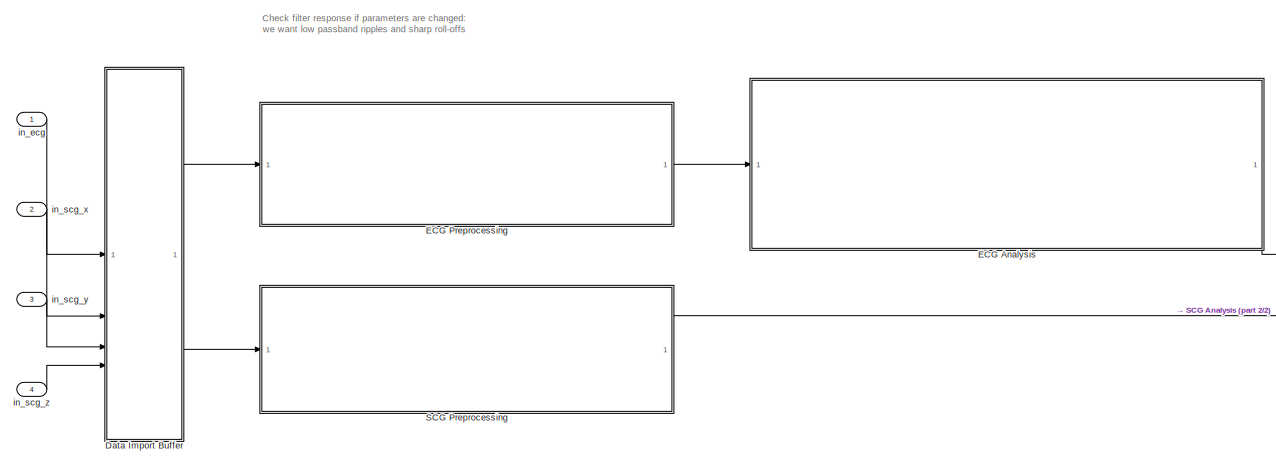
[diagram: root canvas - part 1/2, left side, full height]
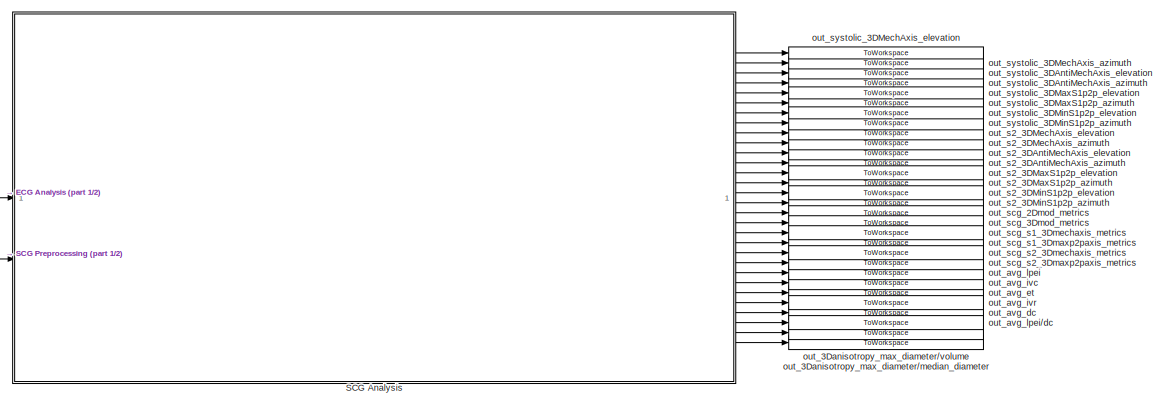
[diagram: root canvas - part 2/2, right side, full height]
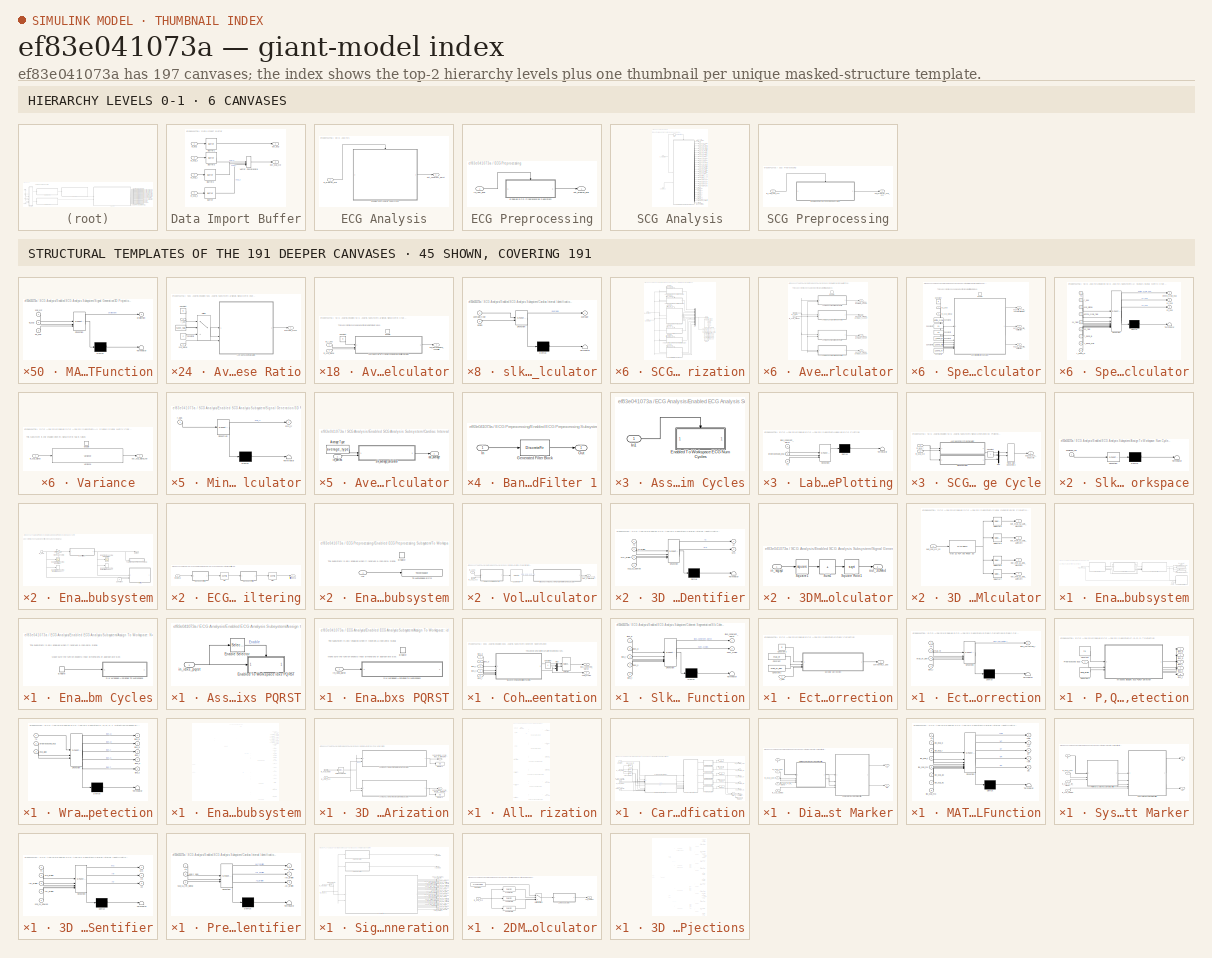
[diagram: thumbnail index - top-2 hierarchy levels (6 canvases) + 45 structural-template representatives of the remaining 191 canvases]
MODEL slx_ef83e041073a
KIND model
CONFIG AbsTol = auto
CONFIG EnableMultiTasking = off
CONFIG FixedStep = 1/fs
CONFIG MaxStep = 1/fs
CONFIG MinStep = auto
CONFIG RelTol = 1e-3
CONFIG SampleTimeConstraint = Unconstrained
CONFIG SolverName = FixedStepDiscrete
CONFIG StartTime = 0.0
CONFIG StopTime = param_sim_time
BLOCK [SubSystem] Data Import Buffer
BLOCK [Buffer] Data Import Buffer/Buffer
  N = param_tot_samples
  OutputFrames = off
BLOCK [Buffer] Data Import Buffer/Buffer1
  N = param_tot_samples
  OutputFrames = off
BLOCK [Buffer] Data Import Buffer/Buffer2
  N = param_tot_samples
  OutputFrames = off
BLOCK [Buffer] Data Import Buffer/Buffer3
  N = param_tot_samples
  OutputFrames = off
BLOCK [Concatenate] Data Import Buffer/Vector Concatenate
  ConcatenateDimension = 2
  Mode = Multidimensional array
  NumInputs = 3
BLOCK [Inport] Data Import Buffer/in_ecg
BLOCK [Inport] Data Import Buffer/in_scg_x
  Port = 2
BLOCK [Inport] Data Import Buffer/in_scg_y
  Port = 3
BLOCK [Inport] Data Import Buffer/in_scg_z
  Port = 4
BLOCK [Outport] Data Import Buffer/out_ecg
  VectorParamsAs1DForOutWhenUnconnected = off
BLOCK [Outport] Data Import Buffer/out_scg_xyz
  Port = 2
  VectorParamsAs1DForOutWhenUnconnected = off
BLOCK [SubSystem] ECG Analysis
BLOCK [SubSystem] ECG Analysis/Enabled ECG Analysis Subsystem
  TreatAsAtomicUnit = on
BLOCK [SubSystem] ECG Analysis/Enabled ECG Analysis Subsystem/Assign To Workspace: Num Cycles
  NameLocation = right
BLOCK [SubSystem] ECG Analysis/Enabled ECG Analysis Subsystem/Assign To Workspace: Num Cycles/Enabled To Workspace ECG Num Cycles
  TreatAsAtomicUnit = on
BLOCK [EnablePort] ECG Analysis/Enabled ECG Analysis Subsystem/Assign To Workspace: Num Cycles/Enabled To Workspace ECG Num Cycles/Enable
  ShowOutputPort = on
BLOCK [SubSystem] ECG Analysis/Enabled ECG Analysis Subsystem/Assign To Workspace: Num Cycles/Enabled To Workspace ECG Num Cycles/Slk Wrapped Assigned To Workspace
  ErrorFcn = Stateflow.Translate.translate
  PermitHierarchicalResolution = ExplicitOnly
  SFBlockType = MATLAB Function
  TreatAsAtomicUnit = on
BLOCK [Demux] ECG Analysis/Enabled ECG Analysis Subsystem/Assign To Workspace: Num Cycles/Enabled To Workspace ECG Num Cycles/Slk Wrapped Assigned To Workspace/ Demux 
  Outputs = 1
BLOCK [S-Function] ECG Analysis/Enabled ECG Analysis Subsystem/Assign To Workspace: Num Cycles/Enabled To Workspace ECG Num Cycles/Slk Wrapped Assigned To Workspace/ SFunction 
  EnableBusSupport = on
  FunctionName = sf_sfun
  PortCounts = [1 1]
  SFcnIsStateOwnerBlock = off
  SFunctionDeploymentMode = off
  Tag = Stateflow S-Function 13
BLOCK [Terminator] ECG Analysis/Enabled ECG Analysis Subsystem/Assign To Workspace: Num Cycles/Enabled To Workspace ECG Num Cycles/Slk Wrapped Assigned To Workspace/ Terminator 
BLOCK [Inport] ECG Analysis/Enabled ECG Analysis Subsystem/Assign To Workspace: Num Cycles/Enabled To Workspace ECG Num Cycles/Slk Wrapped Assigned To Workspace/assigned_var
BLOCK [Inport] ECG Analysis/Enabled ECG Analysis Subsystem/Assign To Workspace: Num Cycles/In1
BLOCK [SubSystem] ECG Analysis/Enabled ECG Analysis Subsystem/Assign To Workspace: idxs PQRST
  NameLocation = right
BLOCK [Selector] ECG Analysis/Enabled ECG Analysis Subsystem/Assign To Workspace: idxs PQRST/Enable Selector
  IndexOptions = Index vector (dialog),Index vector (dialog)
  Indices = [1],[3]
  InputPortWidth = 3
  NumberOfDimensions = 2
  OutputSizes = 1,1
BLOCK [SubSystem] ECG Analysis/Enabled ECG Analysis Subsystem/Assign To Workspace: idxs PQRST/Enabled To Workspace idxs PQRST
  TreatAsAtomicUnit = on
BLOCK [EnablePort] ECG Analysis/Enabled ECG Analysis Subsystem/Assign To Workspace: idxs PQRST/Enabled To Workspace idxs PQRST/Enable
  NameLocation = left
BLOCK [SubSystem] ECG Analysis/Enabled ECG Analysis Subsystem/Assign To Workspace: idxs PQRST/Enabled To Workspace idxs PQRST/Slk Wrapped Assigned to Workspace
  ErrorFcn = Stateflow.Translate.translate
  PermitHierarchicalResolution = ExplicitOnly
  SFBlockType = MATLAB Function
  TreatAsAtomicUnit = on
BLOCK [Demux] ECG Analysis/Enabled ECG Analysis Subsystem/Assign To Workspace: idxs PQRST/Enabled To Workspace idxs PQRST/Slk Wrapped Assigned to Workspace/ Demux 
  Outputs = 1
BLOCK [S-Function] ECG Analysis/Enabled ECG Analysis Subsystem/Assign To Workspace: idxs PQRST/Enabled To Workspace idxs PQRST/Slk Wrapped Assigned to Workspace/ SFunction 
  EnableBusSupport = on
  FunctionName = sf_sfun
  PortCounts = [1 1]
  SFcnIsStateOwnerBlock = off
  SFunctionDeploymentMode = off
  Tag = Stateflow S-Function 14
BLOCK [Terminator] ECG Analysis/Enabled ECG Analysis Subsystem/Assign To Workspace: idxs PQRST/Enabled To Workspace idxs PQRST/Slk Wrapped Assigned to Workspace/ Terminator 
BLOCK [Inport] ECG Analysis/Enabled ECG Analysis Subsystem/Assign To Workspace: idxs PQRST/Enabled To Workspace idxs PQRST/Slk Wrapped Assigned to Workspace/idxs_pqrst
BLOCK [Inport] ECG Analysis/Enabled ECG Analysis Subsystem/Assign To Workspace: idxs PQRST/Enabled To Workspace idxs PQRST/in_idxs_pqrst
  NameLocation = left
BLOCK [Inport] ECG Analysis/Enabled ECG Analysis Subsystem/Assign To Workspace: idxs PQRST/in_idxs_pqrst
BLOCK [SubSystem] ECG Analysis/Enabled ECG Analysis Subsystem/Coherent Segmentation
BLOCK [Constant] ECG Analysis/Enabled ECG Analysis Subsystem/Coherent Segmentation/Constant
BLOCK [Mux] ECG Analysis/Enabled ECG Analysis Subsystem/Coherent Segmentation/Mux
  DisplayOption = bar
  Inputs = 2
BLOCK [Selector] ECG Analysis/Enabled ECG Analysis Subsystem/Coherent Segmentation/Selector
  IndexOptions = Starting and ending indices (port),Index vector (dialog)
  Indices = [1 3],[1 2 3 3 5]
  InputPortWidth = 3
  NumberOfDimensions = 2
  OutputSizes = 1,1
BLOCK [SubSystem] ECG Analysis/Enabled ECG Analysis Subsystem/Coherent Segmentation/Slk Coherent Segmentation Function
  ErrorFcn = Stateflow.Translate.translate
  PermitHierarchicalResolution = ExplicitOnly
  SFBlockType = MATLAB Function
  TreatAsAtomicUnit = on
BLOCK [Demux] ECG Analysis/Enabled ECG Analysis Subsystem/Coherent Segmentation/Slk Coherent Segmentation Function/ Demux 
  Outputs = 1
BLOCK [S-Function] ECG Analysis/Enabled ECG Analysis Subsystem/Coherent Segmentation/Slk Coherent Segmentation Function/ SFunction 
  EnableBusSupport = on
  FunctionName = sf_sfun
  PortCounts = [5 3]
  SFcnIsStateOwnerBlock = off
  SFunctionDeploymentMode = off
  Tag = Stateflow S-Function 1
BLOCK [Terminator] ECG Analysis/Enabled ECG Analysis Subsystem/Coherent Segmentation/Slk Coherent Segmentation Function/ Terminator 
BLOCK [Outport] ECG Analysis/Enabled ECG Analysis Subsystem/Coherent Segmentation/Slk Coherent Segmentation Function/idxs_coherent_pqrst
BLOCK [Inport] ECG Analysis/Enabled ECG Analysis Subsystem/Coherent Segmentation/Slk Coherent Segmentation Function/idxs_p
BLOCK [Inport] ECG Analysis/Enabled ECG Analysis Subsystem/Coherent Segmentation/Slk Coherent Segmentation Function/idxs_q
  Port = 2
BLOCK [Inport] ECG Analysis/Enabled ECG Analysis Subsystem/Coherent Segmentation/Slk Coherent Segmentation Function/idxs_r
  Port = 3
BLOCK [Inport] ECG Analysis/Enabled ECG Analysis Subsystem/Coherent Segmentation/Slk Coherent Segmentation Function/idxs_s
  Port = 4
BLOCK [Inport] ECG Analysis/Enabled ECG Analysis Subsystem/Coherent Segmentation/Slk Coherent Segmentation Function/idxs_t
  Port = 5
BLOCK [Outport] ECG Analysis/Enabled ECG Analysis Subsystem/Coherent Segmentation/Slk Coherent Segmentation Function/num_cycles
  Port = 2
BLOCK [Outport] ECG Analysis/Enabled ECG Analysis Subsystem/Coherent Segmentation/idxs_coherent_pqrst
  NameLocation = right
BLOCK [Inport] ECG Analysis/Enabled ECG Analysis Subsystem/Coherent Segmentation/idxs_p
  NameLocation = left
BLOCK [Inport] ECG Analysis/Enabled ECG Analysis Subsystem/Coherent Segmentation/idxs_q
  NameLocation = left
  Port = 2
BLOCK [Inport] ECG Analysis/Enabled ECG Analysis Subsystem/Coherent Segmentation/idxs_r
  NameLocation = left
  Port = 3
BLOCK [Inport] ECG Analysis/Enabled ECG Analysis Subsystem/Coherent Segmentation/idxs_s
  NameLocation = left
  Port = 4
BLOCK [Inport] ECG Analysis/Enabled ECG Analysis Subsystem/Coherent Segmentation/idxs_t
  NameLocation = left
  Port = 5
BLOCK [Outport] ECG Analysis/Enabled ECG Analysis Subsystem/Coherent Segmentation/num_cycles
  NameLocation = right
  Port = 2
BLOCK [Constant] ECG Analysis/Enabled ECG Analysis Subsystem/Constant
  Value = fs
BLOCK [SubSystem] ECG Analysis/Enabled ECG Analysis Subsystem/Ectopic Correction
BLOCK [Constant] ECG Analysis/Enabled ECG Analysis Subsystem/Ectopic Correction/Constant
  Value = max_hr
BLOCK [Constant] ECG Analysis/Enabled ECG Analysis Subsystem/Ectopic Correction/Constant1
  Value = max_hr_dev
BLOCK [Constant] ECG Analysis/Enabled ECG Analysis Subsystem/Ectopic Correction/Constant2
  Value = fs
BLOCK [SubSystem] ECG Analysis/Enabled ECG Analysis Subsystem/Ectopic Correction/Ectopic Correction
  ErrorFcn = Stateflow.Translate.translate
  PermitHierarchicalResolution = ExplicitOnly
  SFBlockType = MATLAB Function
  TreatAsAtomicUnit = on
BLOCK [Demux] ECG Analysis/Enabled ECG Analysis Subsystem/Ectopic Correction/Ectopic Correction/ Demux 
  Outputs = 1
BLOCK [S-Function] ECG Analysis/Enabled ECG Analysis Subsystem/Ectopic Correction/Ectopic Correction/ SFunction 
  EnableBusSupport = on
  FunctionName = sf_sfun
  PortCounts = [4 2]
  SFcnIsStateOwnerBlock = off
  SFunctionDeploymentMode = off
  Tag = Stateflow S-Function 4
BLOCK [Terminator] ECG Analysis/Enabled ECG Analysis Subsystem/Ectopic Correction/Ectopic Correction/ Terminator 
BLOCK [Inport] ECG Analysis/Enabled ECG Analysis Subsystem/Ectopic Correction/Ectopic Correction/fs
BLOCK [Outport] ECG Analysis/Enabled ECG Analysis Subsystem/Ectopic Correction/Ectopic Correction/idxs_corrected_r
BLOCK [Inport] ECG Analysis/Enabled ECG Analysis Subsystem/Ectopic Correction/Ectopic Correction/idxs_r
  Port = 4
BLOCK [Inport] ECG Analysis/Enabled ECG Analysis Subsystem/Ectopic Correction/Ectopic Correction/max_hr
  Port = 2
BLOCK [Inport] ECG Analysis/Enabled ECG Analysis Subsystem/Ectopic Correction/Ectopic Correction/max_hr_dev
  Port = 3
BLOCK [Outport] ECG Analysis/Enabled ECG Analysis Subsystem/Ectopic Correction/corrected_r_pos
  NameLocation = right
BLOCK [Inport] ECG Analysis/Enabled ECG Analysis Subsystem/Ectopic Correction/r_pos
  NameLocation = left
BLOCK [SubSystem] ECG Analysis/Enabled ECG Analysis Subsystem/Labelled ECG Plotting
  ErrorFcn = Stateflow.Translate.translate
  PermitHierarchicalResolution = ExplicitOnly
  SFBlockType = MATLAB Function
  TreatAsAtomicUnit = on
BLOCK [Demux] ECG Analysis/Enabled ECG Analysis Subsystem/Labelled ECG Plotting/ Demux 
  Outputs = 1
BLOCK [S-Function] ECG Analysis/Enabled ECG Analysis Subsystem/Labelled ECG Plotting/ SFunction 
  EnableBusSupport = on
  FunctionName = sf_sfun
  PortCounts = [3 1]
  SFcnIsStateOwnerBlock = off
  SFunctionDeploymentMode = off
  Tag = Stateflow S-Function 2
BLOCK [Terminator] ECG Analysis/Enabled ECG Analysis Subsystem/Labelled ECG Plotting/ Terminator 
BLOCK [Inport] ECG Analysis/Enabled ECG Analysis Subsystem/Labelled ECG Plotting/fs
  Port = 3
BLOCK [Inport] ECG Analysis/Enabled ECG Analysis Subsystem/Labelled ECG Plotting/idxs_coherent_pqrst
BLOCK [Inport] ECG Analysis/Enabled ECG Analysis Subsystem/Labelled ECG Plotting/preprocessed_ecg
  Port = 2
BLOCK [Display] ECG Analysis/Enabled ECG Analysis Subsystem/Num Cycles
  Decimation = 1
  NameLocation = right
BLOCK [SubSystem] ECG Analysis/Enabled ECG Analysis Subsystem/P,Q,R,S,T Detection
BLOCK [Constant] ECG Analysis/Enabled ECG Analysis Subsystem/P,Q,R,S,T Detection/Constant
  Value = fs
BLOCK [Constant] ECG Analysis/Enabled ECG Analysis Subsystem/P,Q,R,S,T Detection/Constant1
  Value = ecg_algo
BLOCK [Inport] ECG Analysis/Enabled ECG Analysis Subsystem/P,Q,R,S,T Detection/Preprocessed ECG
  NameLocation = left
BLOCK [SubSystem] ECG Analysis/Enabled ECG Analysis Subsystem/P,Q,R,S,T Detection/Wrapped BioSigKit ECG PQRST Detection
  ErrorFcn = Stateflow.Translate.translate
  PermitHierarchicalResolution = ExplicitOnly
  SFBlockType = MATLAB Function
  TreatAsAtomicUnit = on
BLOCK [Demux] ECG Analysis/Enabled ECG Analysis Subsystem/P,Q,R,S,T Detection/Wrapped BioSigKit ECG PQRST Detection/ Demux 
  Outputs = 1
BLOCK [S-Function] ECG Analysis/Enabled ECG Analysis Subsystem/P,Q,R,S,T Detection/Wrapped BioSigKit ECG PQRST Detection/ SFunction 
  EnableBusSupport = on
  FunctionName = sf_sfun
  PortCounts = [3 6]
  SFcnIsStateOwnerBlock = off
  SFunctionDeploymentMode = off
  Tag = Stateflow S-Function 6
BLOCK [Terminator] ECG Analysis/Enabled ECG Analysis Subsystem/P,Q,R,S,T Detection/Wrapped BioSigKit ECG PQRST Detection/ Terminator 
BLOCK [Inport] ECG Analysis/Enabled ECG Analysis Subsystem/P,Q,R,S,T Detection/Wrapped BioSigKit ECG PQRST Detection/ecg_algo
  Port = 3
BLOCK [Inport] ECG Analysis/Enabled ECG Analysis Subsystem/P,Q,R,S,T Detection/Wrapped BioSigKit ECG PQRST Detection/fs
BLOCK [Outport] ECG Analysis/Enabled ECG Analysis Subsystem/P,Q,R,S,T Detection/Wrapped BioSigKit ECG PQRST Detection/idxs_p
BLOCK [Outport] ECG Analysis/Enabled ECG Analysis Subsystem/P,Q,R,S,T Detection/Wrapped BioSigKit ECG PQRST Detection/idxs_q
  Port = 2
BLOCK [Outport] ECG Analysis/Enabled ECG Analysis Subsystem/P,Q,R,S,T Detection/Wrapped BioSigKit ECG PQRST Detection/idxs_r
  Port = 3
BLOCK [Outport] ECG Analysis/Enabled ECG Analysis Subsystem/P,Q,R,S,T Detection/Wrapped BioSigKit ECG PQRST Detection/idxs_s
  Port = 4
BLOCK [Outport] ECG Analysis/Enabled ECG Analysis Subsystem/P,Q,R,S,T Detection/Wrapped BioSigKit ECG PQRST Detection/idxs_t
  Port = 5
BLOCK [Inport] ECG Analysis/Enabled ECG Analysis Subsystem/P,Q,R,S,T Detection/Wrapped BioSigKit ECG PQRST Detection/preprocessed_ecg
  Port = 2
BLOCK [Outport] ECG Analysis/Enabled ECG Analysis Subsystem/P,Q,R,S,T Detection/idxs_p
  NameLocation = right
  VarSizeSig = Yes
BLOCK [Outport] ECG Analysis/Enabled ECG Analysis Subsystem/P,Q,R,S,T Detection/idxs_q
  NameLocation = right
  Port = 2
  VarSizeSig = Yes
BLOCK [Outport] ECG Analysis/Enabled ECG Analysis Subsystem/P,Q,R,S,T Detection/idxs_r
  NameLocation = right
  Port = 3
  VarSizeSig = Yes
BLOCK [Outport] ECG Analysis/Enabled ECG Analysis Subsystem/P,Q,R,S,T Detection/idxs_s
  NameLocation = right
  Port = 4
  VarSizeSig = Yes
BLOCK [Outport] ECG Analysis/Enabled ECG Analysis Subsystem/P,Q,R,S,T Detection/idxs_t
  NameLocation = right
  Port = 5
  VarSizeSig = Yes
BLOCK [EnablePort] ECG Analysis/Enabled ECG Analysis Subsystem/Preprocessed ECG
  NameLocation = left
  PropagateVarSize = During execution
  ShowOutputPort = on
BLOCK [Outport] ECG Analysis/Enabled ECG Analysis Subsystem/idxs_coherent_pqrst
  NameLocation = right
BLOCK [Inport] ECG Analysis/in_preproc_ecg
BLOCK [Outport] ECG Analysis/out_coherent_pqrst
  NameLocation = right
BLOCK [SubSystem] ECG Preprocessing
  NameLocation = top
BLOCK [SubSystem] ECG Preprocessing/Enabled ECG Preprocessing Subsystem
  TreatAsAtomicUnit = on
BLOCK [Constant] ECG Preprocessing/Enabled ECG Preprocessing Subsystem/Constant
  Value = fs
BLOCK [SubSystem] ECG Preprocessing/Enabled ECG Preprocessing Subsystem/ECG Filtfiltering
BLOCK [SubSystem] ECG Preprocessing/Enabled ECG Preprocessing Subsystem/ECG Filtfiltering/Bandpass Filter 1
  CopyFcn = fdesignblkfcn(gcbh, {'CopyFcn'});
  DialogController = fdesignblkfcn
  InitFcn = fdesignblkfcn(gcbh, {'InitFcn'});
  UserDataPersistent = on
BLOCK [DiscreteFir] ECG Preprocessing/Enabled ECG Preprocessing Subsystem/ECG Filtfiltering/Bandpass Filter 1/Generated Filter Block
  Coefficients = [-0.00679485432608760258 -0.00368052369966220989 0.00854312547844450834 -0.00080100055038292311 0.00372672989233903233 -0.000414423493004983272 0.00116500696533589489 -0.00068747703460298674 -0.00013687627970678594 -0.000908036536334603768 -0.000644757715485386033 -0.000872603667353300666 -0.000649980563873023558 -0.000610089182523331809 -0.00038439095041600032 -0.00024106878235529626 -4.036496270...<+49019ch>
  InputPortMap = u0
  InputProcessing = Columns as channels (frame based)
  OutputPortMap = o0
  Tag = BlockMethodSubSystem
BLOCK [Inport] ECG Preprocessing/Enabled ECG Preprocessing Subsystem/ECG Filtfiltering/Bandpass Filter 1/In
BLOCK [Outport] ECG Preprocessing/Enabled ECG Preprocessing Subsystem/ECG Filtfiltering/Bandpass Filter 1/Out
  VectorParamsAs1DForOutWhenUnconnected = off
BLOCK [SubSystem] ECG Preprocessing/Enabled ECG Preprocessing Subsystem/ECG Filtfiltering/Bandpass Filter 2
  CopyFcn = fdesignblkfcn(gcbh, {'CopyFcn'});
  DialogController = fdesignblkfcn
  InitFcn = fdesignblkfcn(gcbh, {'InitFcn'});
  UserDataPersistent = on
BLOCK [DiscreteFir] ECG Preprocessing/Enabled ECG Preprocessing Subsystem/ECG Filtfiltering/Bandpass Filter 2/Generated Filter Block
  Coefficients = [-0.00679485432608760258 -0.00368052369966220989 0.00854312547844450834 -0.00080100055038292311 0.00372672989233903233 -0.000414423493004983272 0.00116500696533589489 -0.00068747703460298674 -0.00013687627970678594 -0.000908036536334603768 -0.000644757715485386033 -0.000872603667353300666 -0.000649980563873023558 -0.000610089182523331809 -0.00038439095041600032 -0.00024106878235529626 -4.036496270...<+49019ch>
  InputPortMap = u0
  InputProcessing = Columns as channels (frame based)
  OutputPortMap = o0
  Tag = BlockMethodSubSystem
BLOCK [Inport] ECG Preprocessing/Enabled ECG Preprocessing Subsystem/ECG Filtfiltering/Bandpass Filter 2/In
BLOCK [Outport] ECG Preprocessing/Enabled ECG Preprocessing Subsystem/ECG Filtfiltering/Bandpass Filter 2/Out
  VectorParamsAs1DForOutWhenUnconnected = off
BLOCK [DSPFlip] ECG Preprocessing/Enabled ECG Preprocessing Subsystem/ECG Filtfiltering/Flip
BLOCK [DSPFlip] ECG Preprocessing/Enabled ECG Preprocessing Subsystem/ECG Filtfiltering/Flip1
BLOCK [Outport] ECG Preprocessing/Enabled ECG Preprocessing Subsystem/ECG Filtfiltering/filtfiltered ecg
  VectorParamsAs1DForOutWhenUnconnected = off
BLOCK [Inport] ECG Preprocessing/Enabled ECG Preprocessing Subsystem/ECG Filtfiltering/input ecg
BLOCK [SpectrumAnalyzer] ECG Preprocessing/Enabled ECG Preprocessing Subsystem/ECG Preprocessing Input (Frequency)
  AveragingMethod = Running
  CenterFrequency = 250
  Commented = on
  DefaultConfigurationName = spbscopes.SpectrumAnalyzerBlockCfg
  FrequencyInputRBWFromPort = 0
  FrequencyInputRBWPort = 0
  FrequencyResolutionMethod = Window length
  FrequencyVectorFromPort = 0
  FrequencyVectorPort = 0
  GraphicalSettings = {"GraphicalSettings":{"SpectralMask":{"CustomReferenceLevel":"0","EnabledMasks":"None","LowerMask":"-Inf","MaskFrequencyOffset":"0","ReferenceLevel":"Custom","SelectedChannel":"1","UpperMask":"Inf"},"Style":{"AxesColor":"[0 0 0]","DisplayName":"","FsEditBoxDirtyState":"true","LabelsColor":"[0.686274509803922 0.686274509803922 0.686274509803922]","LineStyle":"-","LineWidth":"0.5","Marker":"none","M...<+176ch>
  IsFrequencyInputMode = 0
  Method = Welch
  PlotAsTwoSidedSpectrum = off
  SampleRate = 1000
  ScopeSpecificationString = spbscopes.SpectrumAnalyzerBlockCfg('CurrentConfiguration', extmgr.ConfigurationSet(extmgr.Configuration('Core','General UI',true),extmgr.Configuration('Core','Source UI',true),extmgr.Configuration('Sources','WiredSimulink',true),extmgr.Configuration('Visuals','Spectrum',true,'AxesProperties',struct('Color',{[0 0 0],[0 0 0]},'XColor',{[0.686274509803922 0.686274509803922 0.686274509803922],[0.68627...<+2122ch>
  ShowLegend = on
  Span = 500
  SpectralAverages = 10
  StartFrequency = 0
  StopFrequency = 500
  WasSavedAsWebScope = on
  Window = Rectangular
  WindowLength = param_tot_samples/10
  WindowPosition = [1 1 1312 537]
  YLimits = [-135.30878679633289607,-53.597859807423823497]
BLOCK [Scope] ECG Preprocessing/Enabled ECG Preprocessing Subsystem/ECG Preprocessing Input (Time)
  Commented = on
  Floating = off
  NumInputPorts = 1
  ScopeSpecificationString = Simulink.scopes.TimeScopeBlockCfg('CurrentConfiguration', extmgr.ConfigurationSet(extmgr.Configuration('Core','General UI',true),extmgr.Configuration('Core','Source UI',true),extmgr.Configuration('Sources','WiredSimulink',true,'DataLoggingMaxPoints','tot_samples','DataLoggingVariableName','ScopeData1'),extmgr.Configuration('Visuals','Time Domain',true,'InputProcessing','FrameProcessing','Serialize...<+1708ch>
BLOCK [SpectrumAnalyzer] ECG Preprocessing/Enabled ECG Preprocessing Subsystem/ECG Preprocessing Output (Frequency)
  AveragingMethod = Running
  CenterFrequency = 0.00025
  Commented = on
  DefaultConfigurationName = spbscopes.SpectrumAnalyzerBlockCfg
  FrequencyInputRBWFromPort = 0
  FrequencyInputRBWPort = 0
  FrequencyResolutionMethod = Window length
  FrequencyVectorFromPort = 0
  FrequencyVectorPort = 0
  GraphicalSettings = {"GraphicalSettings":{"SpectralMask":{"CustomReferenceLevel":"0","EnabledMasks":"None","LowerMask":"-Inf","MaskFrequencyOffset":"0","ReferenceLevel":"Custom","SelectedChannel":"1","UpperMask":"Inf"},"Style":{"AxesColor":"[0 0 0]","DisplayName":"","FsEditBoxDirtyState":"true","LabelsColor":"[0.686274509803922 0.686274509803922 0.686274509803922]","LineStyle":"-","LineWidth":"0.5","Marker":"none","M...<+176ch>
  IsFrequencyInputMode = 0
  Method = Welch
  PlotAsTwoSidedSpectrum = off
  SampleRate = 1/fs
  SampleRateSource = Property
  ScopeSpecificationString = spbscopes.SpectrumAnalyzerBlockCfg('CurrentConfiguration', extmgr.ConfigurationSet(extmgr.Configuration('Core','General UI',true),extmgr.Configuration('Core','Source UI',true),extmgr.Configuration('Sources','WiredSimulink',true),extmgr.Configuration('Visuals','Spectrum',true,'AxesProperties',struct('Color',{[0 0 0],[0 0 0]},'XColor',{[0.686274509803922 0.686274509803922 0.686274509803922],[0.68627...<+2304ch>
  ShowLegend = on
  Span = 0.0005
  SpectralAverages = 10
  StartFrequency = 0
  StopFrequency = 0.0005
  WasSavedAsWebScope = on
  Window = Rectangular
  WindowLength = param_tot_samples/10
  WindowPosition = [1 1 1312 537]
  YLimits = [-88.467038023731845442,-3.7161177694563978235]
BLOCK [Scope] ECG Preprocessing/Enabled ECG Preprocessing Subsystem/ECG Preprocessing Output (Time)
  Floating = off
  NumInputPorts = 1
  ScopeSpecificationString = Simulink.scopes.TimeScopeBlockCfg('CurrentConfiguration', extmgr.ConfigurationSet(extmgr.Configuration('Core','General UI',true),extmgr.Configuration('Core','Source UI',true),extmgr.Configuration('Sources','WiredSimulink',true,'DataLoggingMaxPoints','tot_samples','DataLoggingVariableName','ScopeData2'),extmgr.Configuration('Visuals','Time Domain',true,'InputProcessing','FrameProcessing','Serialize...<+1735ch>
BLOCK [Outport] ECG Preprocessing/Enabled ECG Preprocessing Subsystem/Output
  VectorParamsAs1DForOutWhenUnconnected = off
BLOCK [SubSystem] ECG Preprocessing/Enabled ECG Preprocessing Subsystem/Plotting
  ErrorFcn = Stateflow.Translate.translate
  PermitHierarchicalResolution = ExplicitOnly
  SFBlockType = MATLAB Function
  TreatAsAtomicUnit = on
BLOCK [Demux] ECG Preprocessing/Enabled ECG Preprocessing Subsystem/Plotting/ Demux 
  Outputs = 1
BLOCK [S-Function] ECG Preprocessing/Enabled ECG Preprocessing Subsystem/Plotting/ SFunction 
  EnableBusSupport = on
  FunctionName = sf_sfun
  PortCounts = [3 1]
  SFcnIsStateOwnerBlock = off
  SFunctionDeploymentMode = off
  Tag = Stateflow S-Function 3
BLOCK [Terminator] ECG Preprocessing/Enabled ECG Preprocessing Subsystem/Plotting/ Terminator 
BLOCK [Inport] ECG Preprocessing/Enabled ECG Preprocessing Subsystem/Plotting/fs
  Port = 3
BLOCK [Inport] ECG Preprocessing/Enabled ECG Preprocessing Subsystem/Plotting/preprocessed_ecg
BLOCK [Inport] ECG Preprocessing/Enabled ECG Preprocessing Subsystem/Plotting/raw_ecg
  Port = 2
BLOCK [SubSystem] ECG Preprocessing/Enabled ECG Preprocessing Subsystem/To Workspace: Processed ECG
BLOCK [SubSystem] ECG Preprocessing/Enabled ECG Preprocessing Subsystem/To Workspace: Processed ECG/Enabled To Workspace ECG Subsystem
  TreatAsAtomicUnit = on
BLOCK [EnablePort] ECG Preprocessing/Enabled ECG Preprocessing Subsystem/To Workspace: Processed ECG/Enabled To Workspace ECG Subsystem/Enable
BLOCK [Inport] ECG Preprocessing/Enabled ECG Preprocessing Subsystem/To Workspace: Processed ECG/Enabled To Workspace ECG Subsystem/In1
BLOCK [ToWorkspace] ECG Preprocessing/Enabled ECG Preprocessing Subsystem/To Workspace: Processed ECG/Enabled To Workspace ECG Subsystem/To Workspace ECG
  FixptAsFi = on
  MaxDataPoints = inf
  SampleTime = -1
  SaveFormat = Structure
  VariableName = out_ecg_preprocessing
BLOCK [Inport] ECG Preprocessing/Enabled ECG Preprocessing Subsystem/To Workspace: Processed ECG/In1
BLOCK [Gain] ECG Preprocessing/Enabled ECG Preprocessing Subsystem/V to mV Conversion
  Gain = param_ecg_gain_mv
BLOCK [EnablePort] ECG Preprocessing/Enabled ECG Preprocessing Subsystem/in_ecg
  ShowOutputPort = on
BLOCK [Inport] ECG Preprocessing/in_raw_ecg
BLOCK [Outport] ECG Preprocessing/out_preproc_ecg
  VectorParamsAs1DForOutWhenUnconnected = off
BLOCK [SubSystem] SCG Analysis
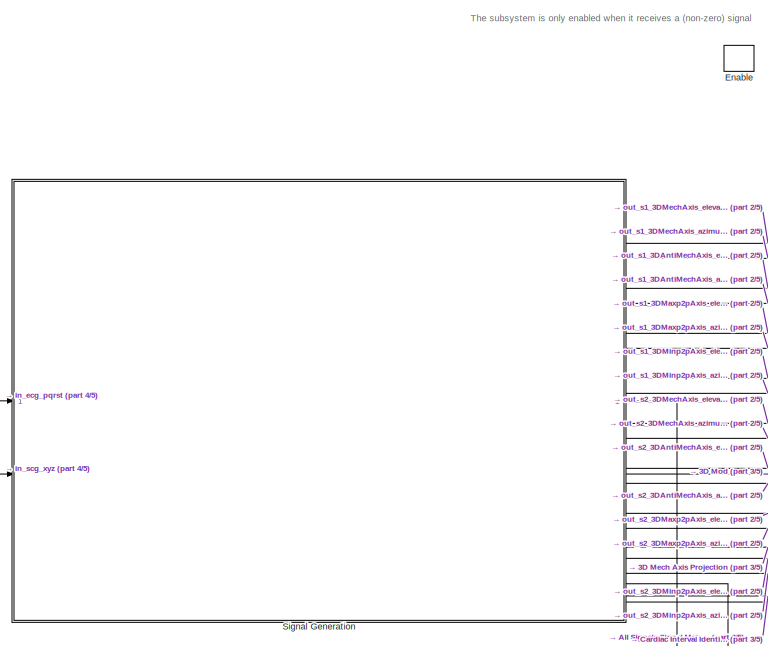
[diagram: SCG Analysis/Enabled SCG Analysis Subsystem - part 1/5, top center region]
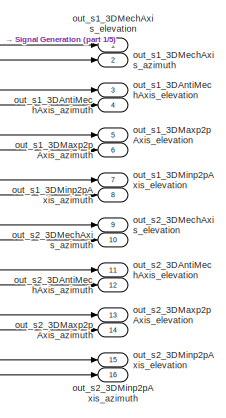
[diagram: SCG Analysis/Enabled SCG Analysis Subsystem - part 2/5, top right region]
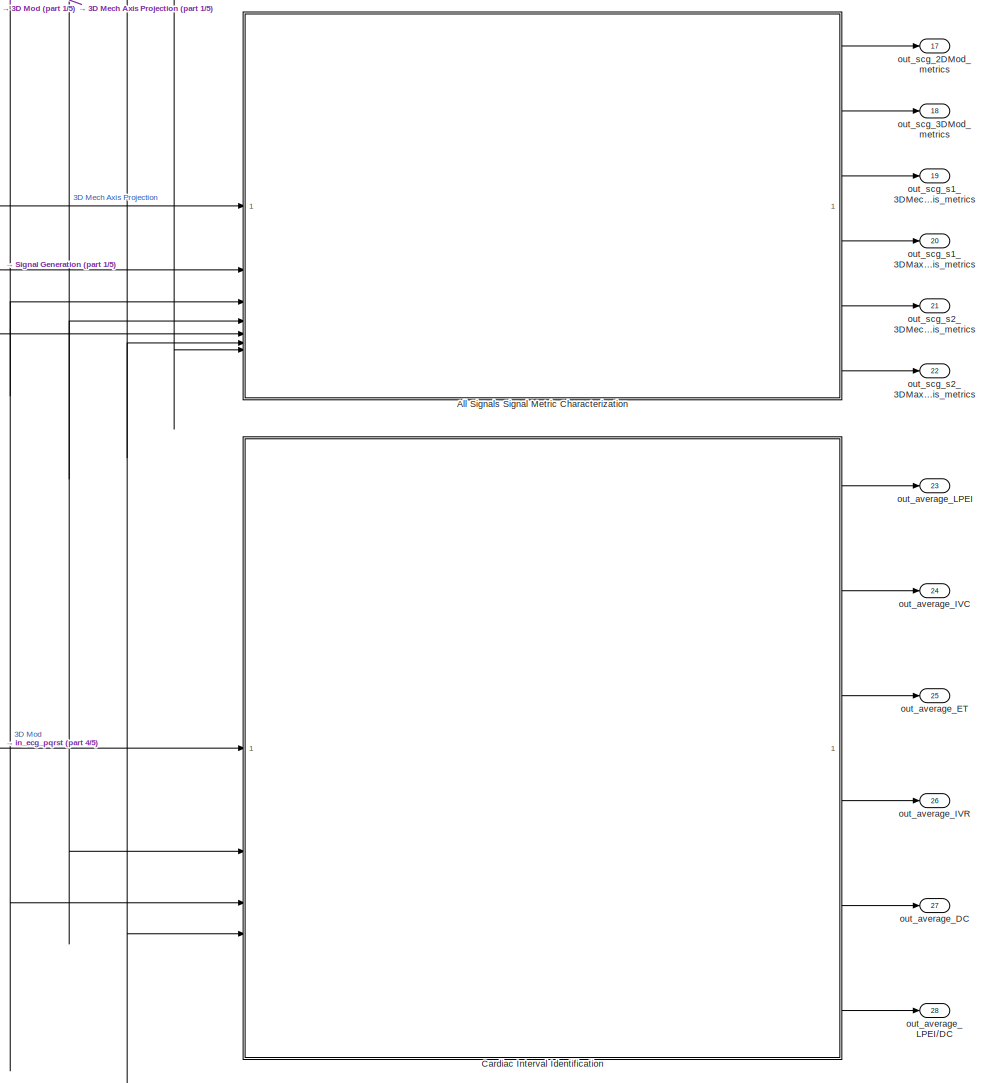
[diagram: SCG Analysis/Enabled SCG Analysis Subsystem - part 3/5, middle right region]
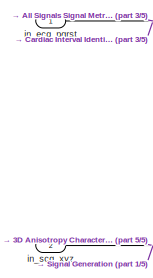
[diagram: SCG Analysis/Enabled SCG Analysis Subsystem - part 4/5, middle left region]
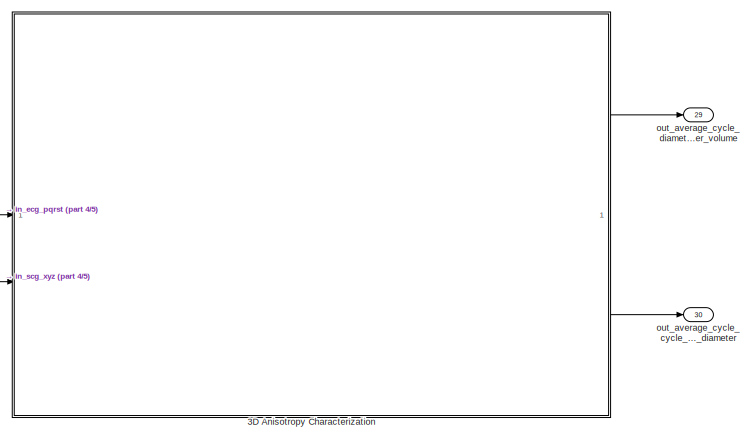
[diagram: SCG Analysis/Enabled SCG Analysis Subsystem - part 5/5, bottom right region]
BLOCK [SubSystem] SCG Analysis/Enabled SCG Analysis Subsystem
  TreatAsAtomicUnit = on
BLOCK [SubSystem] SCG Analysis/Enabled SCG Analysis Subsystem/3D Anisotropy Characterization
BLOCK [SubSystem] SCG Analysis/Enabled SCG Analysis Subsystem/3D Anisotropy Characterization/Average Cycle Max Diameter//Volume Calculator
BLOCK [Selector] SCG Analysis/Enabled SCG Analysis Subsystem/3D Anisotropy Characterization/Average Cycle Max Diameter//Volume Calculator/S1 Selector
  IndexOptions = Index vector (dialog),Index vector (dialog)
  Indices = [1:fs*0.2],[1 2 3]
  InputPortWidth = 3
  NumberOfDimensions = 2
  OutputSizes = 1,1
BLOCK [SubSystem] SCG Analysis/Enabled SCG Analysis Subsystem/3D Anisotropy Characterization/Average Cycle Max Diameter//Volume Calculator/SCG xyz Average Cycle
BLOCK [SubSystem] SCG Analysis/Enabled SCG Analysis Subsystem/3D Anisotropy Characterization/Average Cycle Max Diameter//Volume Calculator/SCG xyz Average Cycle/Average SCGxyz Cycle Calculator
  ErrorFcn = Stateflow.Translate.translate
  NameLocation = top
  PermitHierarchicalResolution = ExplicitOnly
  SFBlockType = MATLAB Function
  TreatAsAtomicUnit = on
BLOCK [Demux] SCG Analysis/Enabled SCG Analysis Subsystem/3D Anisotropy Characterization/Average Cycle Max Diameter//Volume Calculator/SCG xyz Average Cycle/Average SCGxyz Cycle Calculator/ Demux 
  Outputs = 1
BLOCK [S-Function] SCG Analysis/Enabled SCG Analysis Subsystem/3D Anisotropy Characterization/Average Cycle Max Diameter//Volume Calculator/SCG xyz Average Cycle/Average SCGxyz Cycle Calculator/ SFunction 
  EnableBusSupport = on
  FunctionName = sf_sfun
  PortCounts = [2 2]
  SFcnIsStateOwnerBlock = off
  SFunctionDeploymentMode = off
  Tag = Stateflow S-Function 19
BLOCK [Terminator] SCG Analysis/Enabled SCG Analysis Subsystem/3D Anisotropy Characterization/Average Cycle Max Diameter//Volume Calculator/SCG xyz Average Cycle/Average SCGxyz Cycle Calculator/ Terminator 
BLOCK [Inport] SCG Analysis/Enabled SCG Analysis Subsystem/3D Anisotropy Characterization/Average Cycle Max Diameter//Volume Calculator/SCG xyz Average Cycle/Average SCGxyz Cycle Calculator/r_pos
BLOCK [Inport] SCG Analysis/Enabled SCG Analysis Subsystem/3D Anisotropy Characterization/Average Cycle Max Diameter//Volume Calculator/SCG xyz Average Cycle/Average SCGxyz Cycle Calculator/scgxyz
  Port = 2
BLOCK [Outport] SCG Analysis/Enabled SCG Analysis Subsystem/3D Anisotropy Characterization/Average Cycle Max Diameter//Volume Calculator/SCG xyz Average Cycle/Average SCGxyz Cycle Calculator/scgxyz_avgcycle
  VectorParamsAs1DForOutWhenUnconnected = off
BLOCK [Constant] SCG Analysis/Enabled SCG Analysis Subsystem/3D Anisotropy Characterization/Average Cycle Max Diameter//Volume Calculator/SCG xyz Average Cycle/Constant
BLOCK [Selector] SCG Analysis/Enabled SCG Analysis Subsystem/3D Anisotropy Characterization/Average Cycle Max Diameter//Volume Calculator/SCG xyz Average Cycle/Fixed-Size Converter 2
  IndexOptions = Starting and ending indices (port),Index vector (dialog)
  Indices = [1:min(analyses.ecg.RR)],[1 2 3]
  NumberOfDimensions = 2
  OutputSizes = 1,1
BLOCK [SubSystem] SCG Analysis/Enabled SCG Analysis Subsystem/3D Anisotropy Characterization/Average Cycle Max Diameter//Volume Calculator/SCG xyz Average Cycle/Min RR Calculator
  ErrorFcn = Stateflow.Translate.translate
  PermitHierarchicalResolution = ExplicitOnly
  SFBlockType = MATLAB Function
  TreatAsAtomicUnit = on
BLOCK [Demux] SCG Analysis/Enabled SCG Analysis Subsystem/3D Anisotropy Characterization/Average Cycle Max Diameter//Volume Calculator/SCG xyz Average Cycle/Min RR Calculator/ Demux 
  Outputs = 1
BLOCK [S-Function] SCG Analysis/Enabled SCG Analysis Subsystem/3D Anisotropy Characterization/Average Cycle Max Diameter//Volume Calculator/SCG xyz Average Cycle/Min RR Calculator/ SFunction 
  EnableBusSupport = on
  FunctionName = sf_sfun
  PortCounts = [1 2]
  SFcnIsStateOwnerBlock = off
  SFunctionDeploymentMode = off
  Tag = Stateflow S-Function 20
BLOCK [Terminator] SCG Analysis/Enabled SCG Analysis Subsystem/3D Anisotropy Characterization/Average Cycle Max Diameter//Volume Calculator/SCG xyz Average Cycle/Min RR Calculator/ Terminator 
BLOCK [Outport] SCG Analysis/Enabled SCG Analysis Subsystem/3D Anisotropy Characterization/Average Cycle Max Diameter//Volume Calculator/SCG xyz Average Cycle/Min RR Calculator/min_rr
  VectorParamsAs1DForOutWhenUnconnected = off
BLOCK [Inport] SCG Analysis/Enabled SCG Analysis Subsystem/3D Anisotropy Characterization/Average Cycle Max Diameter//Volume Calculator/SCG xyz Average Cycle/Min RR Calculator/r_pos
BLOCK [Mux] SCG Analysis/Enabled SCG Analysis Subsystem/3D Anisotropy Characterization/Average Cycle Max Diameter//Volume Calculator/SCG xyz Average Cycle/Mux
  DisplayOption = bar
  Inputs = 2
BLOCK [Inport] SCG Analysis/Enabled SCG Analysis Subsystem/3D Anisotropy Characterization/Average Cycle Max Diameter//Volume Calculator/SCG xyz Average Cycle/in_ecg_r
  NameLocation = left
BLOCK [Inport] SCG Analysis/Enabled SCG Analysis Subsystem/3D Anisotropy Characterization/Average Cycle Max Diameter//Volume Calculator/SCG xyz Average Cycle/in_scg_xyz
  NameLocation = left
  Port = 2
BLOCK [Outport] SCG Analysis/Enabled SCG Analysis Subsystem/3D Anisotropy Characterization/Average Cycle Max Diameter//Volume Calculator/SCG xyz Average Cycle/out_scg_xyz_avgcycle
  NameLocation = right
  VectorParamsAs1DForOutWhenUnconnected = off
BLOCK [SubSystem] SCG Analysis/Enabled SCG Analysis Subsystem/3D Anisotropy Characterization/Average Cycle Max Diameter//Volume Calculator/Wrapped Average Cycle Max Diameter//Volume Calculator
  ErrorFcn = Stateflow.Translate.translate
  PermitHierarchicalResolution = ExplicitOnly
  SFBlockType = MATLAB Function
  TreatAsAtomicUnit = on
BLOCK [Demux] SCG Analysis/Enabled SCG Analysis Subsystem/3D Anisotropy Characterization/Average Cycle Max Diameter//Volume Calculator/Wrapped Average Cycle Max Diameter//Volume Calculator/ Demux 
  Outputs = 1
BLOCK [S-Function] SCG Analysis/Enabled SCG Analysis Subsystem/3D Anisotropy Characterization/Average Cycle Max Diameter//Volume Calculator/Wrapped Average Cycle Max Diameter//Volume Calculator/ SFunction 
  EnableBusSupport = on
  FunctionName = sf_sfun
  PortCounts = [1 2]
  SFcnIsStateOwnerBlock = off
  SFunctionDeploymentMode = off
  Tag = Stateflow S-Function 18
BLOCK [Terminator] SCG Analysis/Enabled SCG Analysis Subsystem/3D Anisotropy Characterization/Average Cycle Max Diameter//Volume Calculator/Wrapped Average Cycle Max Diameter//Volume Calculator/ Terminator 
BLOCK [Outport] SCG Analysis/Enabled SCG Analysis Subsystem/3D Anisotropy Characterization/Average Cycle Max Diameter//Volume Calculator/Wrapped Average Cycle Max Diameter//Volume Calculator/avg_cycle_max_diameter_over_volume
BLOCK [Inport] SCG Analysis/Enabled SCG Analysis Subsystem/3D Anisotropy Characterization/Average Cycle Max Diameter//Volume Calculator/Wrapped Average Cycle Max Diameter//Volume Calculator/avg_s1_xyz
BLOCK [Inport] SCG Analysis/Enabled SCG Analysis Subsystem/3D Anisotropy Characterization/Average Cycle Max Diameter//Volume Calculator/in_r_pos
  NameLocation = left
BLOCK [Inport] SCG Analysis/Enabled SCG Analysis Subsystem/3D Anisotropy Characterization/Average Cycle Max Diameter//Volume Calculator/in_scg_xyz
  NameLocation = left
  Port = 2
BLOCK [Outport] SCG Analysis/Enabled SCG Analysis Subsystem/3D Anisotropy Characterization/Average Cycle Max Diameter//Volume Calculator/out_average_cycle_max_diameter//volume
  NameLocation = right
BLOCK [SubSystem] SCG Analysis/Enabled SCG Analysis Subsystem/3D Anisotropy Characterization/Average Cycle Max//Median Diameter Calculator
BLOCK [Selector] SCG Analysis/Enabled SCG Analysis Subsystem/3D Anisotropy Characterization/Average Cycle Max//Median Diameter Calculator/S1 Selector
  IndexOptions = Index vector (dialog),Index vector (dialog)
  Indices = [1:fs*0.2],[1 2 3]
  InputPortWidth = 3
  NumberOfDimensions = 2
  OutputSizes = 1,1
BLOCK [SubSystem] SCG Analysis/Enabled SCG Analysis Subsystem/3D Anisotropy Characterization/Average Cycle Max//Median Diameter Calculator/SCG xyz Average Cycle
BLOCK [SubSystem] SCG Analysis/Enabled SCG Analysis Subsystem/3D Anisotropy Characterization/Average Cycle Max//Median Diameter Calculator/SCG xyz Average Cycle/Average SCGxyz Cycle Calculator
  ErrorFcn = Stateflow.Translate.translate
  NameLocation = top
  PermitHierarchicalResolution = ExplicitOnly
  SFBlockType = MATLAB Function
  TreatAsAtomicUnit = on
BLOCK [Demux] SCG Analysis/Enabled SCG Analysis Subsystem/3D Anisotropy Characterization/Average Cycle Max//Median Diameter Calculator/SCG xyz Average Cycle/Average SCGxyz Cycle Calculator/ Demux 
  Outputs = 1
BLOCK [S-Function] SCG Analysis/Enabled SCG Analysis Subsystem/3D Anisotropy Characterization/Average Cycle Max//Median Diameter Calculator/SCG xyz Average Cycle/Average SCGxyz Cycle Calculator/ SFunction 
  EnableBusSupport = on
  FunctionName = sf_sfun
  PortCounts = [2 2]
  SFcnIsStateOwnerBlock = off
  SFunctionDeploymentMode = off
  Tag = Stateflow S-Function 26
BLOCK [Terminator] SCG Analysis/Enabled SCG Analysis Subsystem/3D Anisotropy Characterization/Average Cycle Max//Median Diameter Calculator/SCG xyz Average Cycle/Average SCGxyz Cycle Calculator/ Terminator 
BLOCK [Inport] SCG Analysis/Enabled SCG Analysis Subsystem/3D Anisotropy Characterization/Average Cycle Max//Median Diameter Calculator/SCG xyz Average Cycle/Average SCGxyz Cycle Calculator/r_pos
BLOCK [Inport] SCG Analysis/Enabled SCG Analysis Subsystem/3D Anisotropy Characterization/Average Cycle Max//Median Diameter Calculator/SCG xyz Average Cycle/Average SCGxyz Cycle Calculator/scgxyz
  Port = 2
BLOCK [Outport] SCG Analysis/Enabled SCG Analysis Subsystem/3D Anisotropy Characterization/Average Cycle Max//Median Diameter Calculator/SCG xyz Average Cycle/Average SCGxyz Cycle Calculator/scgxyz_avgcycle
  VectorParamsAs1DForOutWhenUnconnected = off
BLOCK [Constant] SCG Analysis/Enabled SCG Analysis Subsystem/3D Anisotropy Characterization/Average Cycle Max//Median Diameter Calculator/SCG xyz Average Cycle/Constant
BLOCK [Selector] SCG Analysis/Enabled SCG Analysis Subsystem/3D Anisotropy Characterization/Average Cycle Max//Median Diameter Calculator/SCG xyz Average Cycle/Fixed-Size Converter 2
  IndexOptions = Starting and ending indices (port),Index vector (dialog)
  Indices = [1:min(analyses.ecg.RR)],[1 2 3]
  NumberOfDimensions = 2
  OutputSizes = 1,1
BLOCK [SubSystem] SCG Analysis/Enabled SCG Analysis Subsystem/3D Anisotropy Characterization/Average Cycle Max//Median Diameter Calculator/SCG xyz Average Cycle/Min RR Calculator
  ErrorFcn = Stateflow.Translate.translate
  PermitHierarchicalResolution = ExplicitOnly
  SFBlockType = MATLAB Function
  TreatAsAtomicUnit = on
BLOCK [Demux] SCG Analysis/Enabled SCG Analysis Subsystem/3D Anisotropy Characterization/Average Cycle Max//Median Diameter Calculator/SCG xyz Average Cycle/Min RR Calculator/ Demux 
  Outputs = 1
BLOCK [S-Function] SCG Analysis/Enabled SCG Analysis Subsystem/3D Anisotropy Characterization/Average Cycle Max//Median Diameter Calculator/SCG xyz Average Cycle/Min RR Calculator/ SFunction 
  EnableBusSupport = on
  FunctionName = sf_sfun
  PortCounts = [1 2]
  SFcnIsStateOwnerBlock = off
  SFunctionDeploymentMode = off
  Tag = Stateflow S-Function 27
BLOCK [Terminator] SCG Analysis/Enabled SCG Analysis Subsystem/3D Anisotropy Characterization/Average Cycle Max//Median Diameter Calculator/SCG xyz Average Cycle/Min RR Calculator/ Terminator 
BLOCK [Outport] SCG Analysis/Enabled SCG Analysis Subsystem/3D Anisotropy Characterization/Average Cycle Max//Median Diameter Calculator/SCG xyz Average Cycle/Min RR Calculator/min_rr
  VectorParamsAs1DForOutWhenUnconnected = off
BLOCK [Inport] SCG Analysis/Enabled SCG Analysis Subsystem/3D Anisotropy Characterization/Average Cycle Max//Median Diameter Calculator/SCG xyz Average Cycle/Min RR Calculator/r_pos
BLOCK [Mux] SCG Analysis/Enabled SCG Analysis Subsystem/3D Anisotropy Characterization/Average Cycle Max//Median Diameter Calculator/SCG xyz Average Cycle/Mux
  DisplayOption = bar
  Inputs = 2
BLOCK [Inport] SCG Analysis/Enabled SCG Analysis Subsystem/3D Anisotropy Characterization/Average Cycle Max//Median Diameter Calculator/SCG xyz Average Cycle/in_ecg_r
  NameLocation = left
BLOCK [Inport] SCG Analysis/Enabled SCG Analysis Subsystem/3D Anisotropy Characterization/Average Cycle Max//Median Diameter Calculator/SCG xyz Average Cycle/in_scg_xyz
  NameLocation = left
  Port = 2
BLOCK [Outport] SCG Analysis/Enabled SCG Analysis Subsystem/3D Anisotropy Characterization/Average Cycle Max//Median Diameter Calculator/SCG xyz Average Cycle/out_scg_xyz_avgcycle
  NameLocation = right
  VectorParamsAs1DForOutWhenUnconnected = off
BLOCK [SubSystem] SCG Analysis/Enabled SCG Analysis Subsystem/3D Anisotropy Characterization/Average Cycle Max//Median Diameter Calculator/Wrapped Average Cycle Max//Median Diameter Calculator
  ErrorFcn = Stateflow.Translate.translate
  PermitHierarchicalResolution = ExplicitOnly
  SFBlockType = MATLAB Function
  TreatAsAtomicUnit = on
BLOCK [Demux] SCG Analysis/Enabled SCG Analysis Subsystem/3D Anisotropy Characterization/Average Cycle Max//Median Diameter Calculator/Wrapped Average Cycle Max//Median Diameter Calculator/ Demux 
  Outputs = 1
BLOCK [S-Function] SCG Analysis/Enabled SCG Analysis Subsystem/3D Anisotropy Characterization/Average Cycle Max//Median Diameter Calculator/Wrapped Average Cycle Max//Median Diameter Calculator/ SFunction 
  EnableBusSupport = on
  FunctionName = sf_sfun
  PortCounts = [1 2]
  SFcnIsStateOwnerBlock = off
  SFunctionDeploymentMode = off
  Tag = Stateflow S-Function 28
BLOCK [Terminator] SCG Analysis/Enabled SCG Analysis Subsystem/3D Anisotropy Characterization/Average Cycle Max//Median Diameter Calculator/Wrapped Average Cycle Max//Median Diameter Calculator/ Terminator 
BLOCK [Outport] SCG Analysis/Enabled SCG Analysis Subsystem/3D Anisotropy Characterization/Average Cycle Max//Median Diameter Calculator/Wrapped Average Cycle Max//Median Diameter Calculator/avg_cycle_max_over_median_diameter
BLOCK [Inport] SCG Analysis/Enabled SCG Analysis Subsystem/3D Anisotropy Characterization/Average Cycle Max//Median Diameter Calculator/Wrapped Average Cycle Max//Median Diameter Calculator/avg_s1_xyz
BLOCK [Inport] SCG Analysis/Enabled SCG Analysis Subsystem/3D Anisotropy Characterization/Average Cycle Max//Median Diameter Calculator/in_r_pos
  NameLocation = left
BLOCK [Inport] SCG Analysis/Enabled SCG Analysis Subsystem/3D Anisotropy Characterization/Average Cycle Max//Median Diameter Calculator/in_scg_xyz
  NameLocation = left
  Port = 2
BLOCK [Outport] SCG Analysis/Enabled SCG Analysis Subsystem/3D Anisotropy Characterization/Average Cycle Max//Median Diameter Calculator/out_average_cycle_max//median_diameter
  NameLocation = right
BLOCK [Display] SCG Analysis/Enabled SCG Analysis Subsystem/3D Anisotropy Characterization/Display2
  Decimation = 1
BLOCK [Display] SCG Analysis/Enabled SCG Analysis Subsystem/3D Anisotropy Characterization/Display6
  Decimation = 1
BLOCK [Selector] SCG Analysis/Enabled SCG Analysis Subsystem/3D Anisotropy Characterization/R Wave Selector
  IndexOptions = Select all,Index vector (dialog)
  Indices = [1 3],3
  InputPortWidth = 3
  NameLocation = top
  NumberOfDimensions = 2
  OutputSizes = 1,1
BLOCK [Inport] SCG Analysis/Enabled SCG Analysis Subsystem/3D Anisotropy Characterization/in_ecg_pqrst
  NameLocation = left
BLOCK [Inport] SCG Analysis/Enabled SCG Analysis Subsystem/3D Anisotropy Characterization/in_scg_xyz
  NameLocation = left
  Port = 2
BLOCK [Outport] SCG Analysis/Enabled SCG Analysis Subsystem/3D Anisotropy Characterization/out_average_cycle_max//median_diameter
  NameLocation = right
  Port = 2
BLOCK [Outport] SCG Analysis/Enabled SCG Analysis Subsystem/3D Anisotropy Characterization/out_average_cycle_max_diameter//volume
  NameLocation = right
BLOCK [SubSystem] SCG Analysis/Enabled SCG Analysis Subsystem/All Signals Signal Metric Characterization
BLOCK [Selector] SCG Analysis/Enabled SCG Analysis Subsystem/All Signals Signal Metric Characterization/R Wave Selector
  IndexOptions = Select all,Index vector (dialog)
  Indices = [1 3],3
  InputPortWidth = 3
  NameLocation = top
  NumberOfDimensions = 2
  OutputSizes = 1,1
BLOCK [SubSystem] SCG Analysis/Enabled SCG Analysis Subsystem/All Signals Signal Metric Characterization/SCG 2D Mod Signal Metric Characterization
  NameLocation = top
BLOCK [SubSystem] SCG Analysis/Enabled SCG Analysis Subsystem/All Signals Signal Metric Characterization/SCG 2D Mod Signal Metric Characterization/Average Cycle-to-cycle Morphological Variability Calculator
BLOCK [SubSystem] SCG Analysis/Enabled SCG Analysis Subsystem/All Signals Signal Metric Characterization/SCG 2D Mod Signal Metric Characterization/Average Cycle-to-cycle Morphological Variability Calculator/Average Cycle-to-cycle Morphological Variability Calculator
  ErrorFcn = Stateflow.Translate.translate
  PermitHierarchicalResolution = ExplicitOnly
  SFBlockType = MATLAB Function
  TreatAsAtomicUnit = on
BLOCK [Demux] SCG Analysis/Enabled SCG Analysis Subsystem/All Signals Signal Metric Characterization/SCG 2D Mod Signal Metric Characterization/Average Cycle-to-cycle Morphological Variability Calculator/Average Cycle-to-cycle Morphological Variability Calculator/ Demux 
  Outputs = 1
BLOCK [S-Function] SCG Analysis/Enabled SCG Analysis Subsystem/All Signals Signal Metric Characterization/SCG 2D Mod Signal Metric Characterization/Average Cycle-to-cycle Morphological Variability Calculator/Average Cycle-to-cycle Morphological Variability Calculator/ SFunction 
  EnableBusSupport = on
  FunctionName = sf_sfun
  PortCounts = [3 2]
  SFcnIsStateOwnerBlock = off
  SFunctionDeploymentMode = off
  Tag = Stateflow S-Function 61
BLOCK [Terminator] SCG Analysis/Enabled SCG Analysis Subsystem/All Signals Signal Metric Characterization/SCG 2D Mod Signal Metric Characterization/Average Cycle-to-cycle Morphological Variability Calculator/Average Cycle-to-cycle Morphological Variability Calculator/ Terminator 
BLOCK [Inport] SCG Analysis/Enabled SCG Analysis Subsystem/All Signals Signal Metric Characterization/SCG 2D Mod Signal Metric Characterization/Average Cycle-to-cycle Morphological Variability Calculator/Average Cycle-to-cycle Morphological Variability Calculator/fs
BLOCK [Inport] SCG Analysis/Enabled SCG Analysis Subsystem/All Signals Signal Metric Characterization/SCG 2D Mod Signal Metric Characterization/Average Cycle-to-cycle Morphological Variability Calculator/Average Cycle-to-cycle Morphological Variability Calculator/r_pos
  Port = 2
BLOCK [Inport] SCG Analysis/Enabled SCG Analysis Subsystem/All Signals Signal Metric Characterization/SCG 2D Mod Signal Metric Characterization/Average Cycle-to-cycle Morphological Variability Calculator/Average Cycle-to-cycle Morphological Variability Calculator/scg_signal
  Port = 3
BLOCK [Outport] SCG Analysis/Enabled SCG Analysis Subsystem/All Signals Signal Metric Characterization/SCG 2D Mod Signal Metric Characterization/Average Cycle-to-cycle Morphological Variability Calculator/Average Cycle-to-cycle Morphological Variability Calculator/variability
  VectorParamsAs1DForOutWhenUnconnected = off
BLOCK [Constant] SCG Analysis/Enabled SCG Analysis Subsystem/All Signals Signal Metric Characterization/SCG 2D Mod Signal Metric Characterization/Average Cycle-to-cycle Morphological Variability Calculator/Constant
  Value = fs
BLOCK [EnablePort] SCG Analysis/Enabled SCG Analysis Subsystem/All Signals Signal Metric Characterization/SCG 2D Mod Signal Metric Characterization/Average Cycle-to-cycle Morphological Variability Calculator/Enable
BLOCK [Inport] SCG Analysis/Enabled SCG Analysis Subsystem/All Signals Signal Metric Characterization/SCG 2D Mod Signal Metric Characterization/Average Cycle-to-cycle Morphological Variability Calculator/in_r_pos
  NameLocation = left
BLOCK [Inport] SCG Analysis/Enabled SCG Analysis Subsystem/All Signals Signal Metric Characterization/SCG 2D Mod Signal Metric Characterization/Average Cycle-to-cycle Morphological Variability Calculator/in_scg_signal
  NameLocation = left
  Port = 2
BLOCK [Outport] SCG Analysis/Enabled SCG Analysis Subsystem/All Signals Signal Metric Characterization/SCG 2D Mod Signal Metric Characterization/Average Cycle-to-cycle Morphological Variability Calculator/out_morphological_variability
  NameLocation = right
BLOCK [SubSystem] SCG Analysis/Enabled SCG Analysis Subsystem/All Signals Signal Metric Characterization/SCG 2D Mod Signal Metric Characterization/Average S1 peak-to-peak Amplitude Calculator
BLOCK [SubSystem] SCG Analysis/Enabled SCG Analysis Subsystem/All Signals Signal Metric Characterization/SCG 2D Mod Signal Metric Characterization/Average S1 peak-to-peak Amplitude Calculator/Average S1p2p Amplitude Calculator
  ErrorFcn = Stateflow.Translate.translate
  PermitHierarchicalResolution = ExplicitOnly
  SFBlockType = MATLAB Function
  TreatAsAtomicUnit = on
BLOCK [Demux] SCG Analysis/Enabled SCG Analysis Subsystem/All Signals Signal Metric Characterization/SCG 2D Mod Signal Metric Characterization/Average S1 peak-to-peak Amplitude Calculator/Average S1p2p Amplitude Calculator/ Demux 
  Outputs = 1
BLOCK [S-Function] SCG Analysis/Enabled SCG Analysis Subsystem/All Signals Signal Metric Characterization/SCG 2D Mod Signal Metric Characterization/Average S1 peak-to-peak Amplitude Calculator/Average S1p2p Amplitude Calculator/ SFunction 
  EnableBusSupport = on
  FunctionName = sf_sfun
  PortCounts = [3 2]
  SFcnIsStateOwnerBlock = off
  SFunctionDeploymentMode = off
  Tag = Stateflow S-Function 62
BLOCK [Terminator] SCG Analysis/Enabled SCG Analysis Subsystem/All Signals Signal Metric Characterization/SCG 2D Mod Signal Metric Characterization/Average S1 peak-to-peak Amplitude Calculator/Average S1p2p Amplitude Calculator/ Terminator 
BLOCK [Outport] SCG Analysis/Enabled SCG Analysis Subsystem/All Signals Signal Metric Characterization/SCG 2D Mod Signal Metric Characterization/Average S1 peak-to-peak Amplitude Calculator/Average S1p2p Amplitude Calculator/average_s1p2pamp
BLOCK [Inport] SCG Analysis/Enabled SCG Analysis Subsystem/All Signals Signal Metric Characterization/SCG 2D Mod Signal Metric Characterization/Average S1 peak-to-peak Amplitude Calculator/Average S1p2p Amplitude Calculator/fs
BLOCK [Inport] SCG Analysis/Enabled SCG Analysis Subsystem/All Signals Signal Metric Characterization/SCG 2D Mod Signal Metric Characterization/Average S1 peak-to-peak Amplitude Calculator/Average S1p2p Amplitude Calculator/r_pos
  Port = 2
BLOCK [Inport] SCG Analysis/Enabled SCG Analysis Subsystem/All Signals Signal Metric Characterization/SCG 2D Mod Signal Metric Characterization/Average S1 peak-to-peak Amplitude Calculator/Average S1p2p Amplitude Calculator/scg_signal
  Port = 3
BLOCK [Constant] SCG Analysis/Enabled SCG Analysis Subsystem/All Signals Signal Metric Characterization/SCG 2D Mod Signal Metric Characterization/Average S1 peak-to-peak Amplitude Calculator/Constant
  Value = fs
BLOCK [EnablePort] SCG Analysis/Enabled SCG Analysis Subsystem/All Signals Signal Metric Characterization/SCG 2D Mod Signal Metric Characterization/Average S1 peak-to-peak Amplitude Calculator/Enable
BLOCK [Inport] SCG Analysis/Enabled SCG Analysis Subsystem/All Signals Signal Metric Characterization/SCG 2D Mod Signal Metric Characterization/Average S1 peak-to-peak Amplitude Calculator/in_r_pos
  NameLocation = left
BLOCK [Inport] SCG Analysis/Enabled SCG Analysis Subsystem/All Signals Signal Metric Characterization/SCG 2D Mod Signal Metric Characterization/Average S1 peak-to-peak Amplitude Calculator/in_scg_sig
  NameLocation = left
  Port = 2
BLOCK [Outport] SCG Analysis/Enabled SCG Analysis Subsystem/All Signals Signal Metric Characterization/SCG 2D Mod Signal Metric Characterization/Average S1 peak-to-peak Amplitude Calculator/out_average_s1p2pamp
BLOCK [SubSystem] SCG Analysis/Enabled SCG Analysis Subsystem/All Signals Signal Metric Characterization/SCG 2D Mod Signal Metric Characterization/Average S2 peak-to-peak Amplitude Calculator
BLOCK [SubSystem] SCG Analysis/Enabled SCG Analysis Subsystem/All Signals Signal Metric Characterization/SCG 2D Mod Signal Metric Characterization/Average S2 peak-to-peak Amplitude Calculator/Average S2p2p Amplitude Calculator
  ErrorFcn = Stateflow.Translate.translate
  PermitHierarchicalResolution = ExplicitOnly
  SFBlockType = MATLAB Function
  TreatAsAtomicUnit = on
BLOCK [Demux] SCG Analysis/Enabled SCG Analysis Subsystem/All Signals Signal Metric Characterization/SCG 2D Mod Signal Metric Characterization/Average S2 peak-to-peak Amplitude Calculator/Average S2p2p Amplitude Calculator/ Demux 
  Outputs = 1
BLOCK [S-Function] SCG Analysis/Enabled SCG Analysis Subsystem/All Signals Signal Metric Characterization/SCG 2D Mod Signal Metric Characterization/Average S2 peak-to-peak Amplitude Calculator/Average S2p2p Amplitude Calculator/ SFunction 
  EnableBusSupport = on
  FunctionName = sf_sfun
  PortCounts = [3 2]
  SFcnIsStateOwnerBlock = off
  SFunctionDeploymentMode = off
  Tag = Stateflow S-Function 63
BLOCK [Terminator] SCG Analysis/Enabled SCG Analysis Subsystem/All Signals Signal Metric Characterization/SCG 2D Mod Signal Metric Characterization/Average S2 peak-to-peak Amplitude Calculator/Average S2p2p Amplitude Calculator/ Terminator 
BLOCK [Outport] SCG Analysis/Enabled SCG Analysis Subsystem/All Signals Signal Metric Characterization/SCG 2D Mod Signal Metric Characterization/Average S2 peak-to-peak Amplitude Calculator/Average S2p2p Amplitude Calculator/average_s2p2pamp
BLOCK [Inport] SCG Analysis/Enabled SCG Analysis Subsystem/All Signals Signal Metric Characterization/SCG 2D Mod Signal Metric Characterization/Average S2 peak-to-peak Amplitude Calculator/Average S2p2p Amplitude Calculator/fs
BLOCK [Inport] SCG Analysis/Enabled SCG Analysis Subsystem/All Signals Signal Metric Characterization/SCG 2D Mod Signal Metric Characterization/Average S2 peak-to-peak Amplitude Calculator/Average S2p2p Amplitude Calculator/r_pos
  Port = 2
BLOCK [Inport] SCG Analysis/Enabled SCG Analysis Subsystem/All Signals Signal Metric Characterization/SCG 2D Mod Signal Metric Characterization/Average S2 peak-to-peak Amplitude Calculator/Average S2p2p Amplitude Calculator/scg_signal
  Port = 3
BLOCK [Constant] SCG Analysis/Enabled SCG Analysis Subsystem/All Signals Signal Metric Characterization/SCG 2D Mod Signal Metric Characterization/Average S2 peak-to-peak Amplitude Calculator/Constant
  Value = fs
BLOCK [EnablePort] SCG Analysis/Enabled SCG Analysis Subsystem/All Signals Signal Metric Characterization/SCG 2D Mod Signal Metric Characterization/Average S2 peak-to-peak Amplitude Calculator/Enable
BLOCK [Inport] SCG Analysis/Enabled SCG Analysis Subsystem/All Signals Signal Metric Characterization/SCG 2D Mod Signal Metric Characterization/Average S2 peak-to-peak Amplitude Calculator/in_r_pos
  NameLocation = left
BLOCK [Inport] SCG Analysis/Enabled SCG Analysis Subsystem/All Signals Signal Metric Characterization/SCG 2D Mod Signal Metric Characterization/Average S2 peak-to-peak Amplitude Calculator/in_scg_signal
  NameLocation = left
  Port = 2
BLOCK [Outport] SCG Analysis/Enabled SCG Analysis Subsystem/All Signals Signal Metric Characterization/SCG 2D Mod Signal Metric Characterization/Average S2 peak-to-peak Amplitude Calculator/out_scg_signal_average_s2p2pamp
BLOCK [SubSystem] SCG Analysis/Enabled SCG Analysis Subsystem/All Signals Signal Metric Characterization/SCG 2D Mod Signal Metric Characterization/Average Signal-to-Noise Ratio Calculator
BLOCK [SubSystem] SCG Analysis/Enabled SCG Analysis Subsystem/All Signals Signal Metric Characterization/SCG 2D Mod Signal Metric Characterization/Average Signal-to-Noise Ratio Calculator/Average S1 Signal-to-Noise Ratio
BLOCK [Constant] SCG Analysis/Enabled SCG Analysis Subsystem/All Signals Signal Metric Characterization/SCG 2D Mod Signal Metric Characterization/Average Signal-to-Noise Ratio Calculator/Average S1 Signal-to-Noise Ratio/ 
  Value = s1snr_flag
BLOCK [SubSystem] SCG Analysis/Enabled SCG Analysis Subsystem/All Signals Signal Metric Characterization/SCG 2D Mod Signal Metric Characterization/Average Signal-to-Noise Ratio Calculator/Average S1 Signal-to-Noise Ratio/Average S1 SNR Calculator
  ErrorFcn = Stateflow.Translate.translate
  PermitHierarchicalResolution = ExplicitOnly
  SFBlockType = MATLAB Function
  TreatAsAtomicUnit = on
BLOCK [Demux] SCG Analysis/Enabled SCG Analysis Subsystem/All Signals Signal Metric Characterization/SCG 2D Mod Signal Metric Characterization/Average Signal-to-Noise Ratio Calculator/Average S1 Signal-to-Noise Ratio/Average S1 SNR Calculator/ Demux 
  Outputs = 1
BLOCK [S-Function] SCG Analysis/Enabled SCG Analysis Subsystem/All Signals Signal Metric Characterization/SCG 2D Mod Signal Metric Characterization/Average Signal-to-Noise Ratio Calculator/Average S1 Signal-to-Noise Ratio/Average S1 SNR Calculator/ SFunction 
  EnableBusSupport = on
  FunctionName = sf_sfun
  PortCounts = [3 2]
  SFcnIsStateOwnerBlock = off
  SFunctionDeploymentMode = off
  Tag = Stateflow S-Function 64
BLOCK [Terminator] SCG Analysis/Enabled SCG Analysis Subsystem/All Signals Signal Metric Characterization/SCG 2D Mod Signal Metric Characterization/Average Signal-to-Noise Ratio Calculator/Average S1 Signal-to-Noise Ratio/Average S1 SNR Calculator/ Terminator 
BLOCK [Outport] SCG Analysis/Enabled SCG Analysis Subsystem/All Signals Signal Metric Characterization/SCG 2D Mod Signal Metric Characterization/Average Signal-to-Noise Ratio Calculator/Average S1 Signal-to-Noise Ratio/Average S1 SNR Calculator/average_s1_snr
BLOCK [Inport] SCG Analysis/Enabled SCG Analysis Subsystem/All Signals Signal Metric Characterization/SCG 2D Mod Signal Metric Characterization/Average Signal-to-Noise Ratio Calculator/Average S1 Signal-to-Noise Ratio/Average S1 SNR Calculator/fs
BLOCK [Inport] SCG Analysis/Enabled SCG Analysis Subsystem/All Signals Signal Metric Characterization/SCG 2D Mod Signal Metric Characterization/Average Signal-to-Noise Ratio Calculator/Average S1 Signal-to-Noise Ratio/Average S1 SNR Calculator/r_pos
  Port = 2
BLOCK [Inport] SCG Analysis/Enabled SCG Analysis Subsystem/All Signals Signal Metric Characterization/SCG 2D Mod Signal Metric Characterization/Average Signal-to-Noise Ratio Calculator/Average S1 Signal-to-Noise Ratio/Average S1 SNR Calculator/scg_signal
  Port = 3
BLOCK [Constant] SCG Analysis/Enabled SCG Analysis Subsystem/All Signals Signal Metric Characterization/SCG 2D Mod Signal Metric Characterization/Average Signal-to-Noise Ratio Calculator/Average S1 Signal-to-Noise Ratio/Constant
  Value = fs
BLOCK [Constant] SCG Analysis/Enabled SCG Analysis Subsystem/All Signals Signal Metric Characterization/SCG 2D Mod Signal Metric Characterization/Average Signal-to-Noise Ratio Calculator/Average S1 Signal-to-Noise Ratio/Constant1
  Value = 0
BLOCK [Switch] SCG Analysis/Enabled SCG Analysis Subsystem/All Signals Signal Metric Characterization/SCG 2D Mod Signal Metric Characterization/Average Signal-to-Noise Ratio Calculator/Average S1 Signal-to-Noise Ratio/Switch
  AllowDiffInputSizes = on
  Criteria = u2 > Threshold
  InputSameDT = off
  SaturateOnIntegerOverflow = off
BLOCK [Outport] SCG Analysis/Enabled SCG Analysis Subsystem/All Signals Signal Metric Characterization/SCG 2D Mod Signal Metric Characterization/Average Signal-to-Noise Ratio Calculator/Average S1 Signal-to-Noise Ratio/average_s1snr
  NameLocation = right
BLOCK [Inport] SCG Analysis/Enabled SCG Analysis Subsystem/All Signals Signal Metric Characterization/SCG 2D Mod Signal Metric Characterization/Average Signal-to-Noise Ratio Calculator/Average S1 Signal-to-Noise Ratio/r_pos
  NameLocation = left
BLOCK [Inport] SCG Analysis/Enabled SCG Analysis Subsystem/All Signals Signal Metric Characterization/SCG 2D Mod Signal Metric Characterization/Average Signal-to-Noise Ratio Calculator/Average S1 Signal-to-Noise Ratio/scg_signal
  NameLocation = left
  Port = 2
BLOCK [SubSystem] SCG Analysis/Enabled SCG Analysis Subsystem/All Signals Signal Metric Characterization/SCG 2D Mod Signal Metric Characterization/Average Signal-to-Noise Ratio Calculator/Average S1X Signal-to-Noise Ratio
BLOCK [Constant] SCG Analysis/Enabled SCG Analysis Subsystem/All Signals Signal Metric Characterization/SCG 2D Mod Signal Metric Characterization/Average Signal-to-Noise Ratio Calculator/Average S1X Signal-to-Noise Ratio/ 
  Value = s1xsnr_flag
BLOCK [SubSystem] SCG Analysis/Enabled SCG Analysis Subsystem/All Signals Signal Metric Characterization/SCG 2D Mod Signal Metric Characterization/Average Signal-to-Noise Ratio Calculator/Average S1X Signal-to-Noise Ratio/Average S1 SNR Amplitude Calculator
  ErrorFcn = Stateflow.Translate.translate
  PermitHierarchicalResolution = ExplicitOnly
  SFBlockType = MATLAB Function
  TreatAsAtomicUnit = on
BLOCK [Demux] SCG Analysis/Enabled SCG Analysis Subsystem/All Signals Signal Metric Characterization/SCG 2D Mod Signal Metric Characterization/Average Signal-to-Noise Ratio Calculator/Average S1X Signal-to-Noise Ratio/Average S1 SNR Amplitude Calculator/ Demux 
  Outputs = 1
BLOCK [S-Function] SCG Analysis/Enabled SCG Analysis Subsystem/All Signals Signal Metric Characterization/SCG 2D Mod Signal Metric Characterization/Average Signal-to-Noise Ratio Calculator/Average S1X Signal-to-Noise Ratio/Average S1 SNR Amplitude Calculator/ SFunction 
  EnableBusSupport = on
  FunctionName = sf_sfun
  PortCounts = [3 2]
  SFcnIsStateOwnerBlock = off
  SFunctionDeploymentMode = off
  Tag = Stateflow S-Function 65
BLOCK [Terminator] SCG Analysis/Enabled SCG Analysis Subsystem/All Signals Signal Metric Characterization/SCG 2D Mod Signal Metric Characterization/Average Signal-to-Noise Ratio Calculator/Average S1X Signal-to-Noise Ratio/Average S1 SNR Amplitude Calculator/ Terminator 
BLOCK [Outport] SCG Analysis/Enabled SCG Analysis Subsystem/All Signals Signal Metric Characterization/SCG 2D Mod Signal Metric Characterization/Average Signal-to-Noise Ratio Calculator/Average S1X Signal-to-Noise Ratio/Average S1 SNR Amplitude Calculator/average_s1x_snr
BLOCK [Inport] SCG Analysis/Enabled SCG Analysis Subsystem/All Signals Signal Metric Characterization/SCG 2D Mod Signal Metric Characterization/Average Signal-to-Noise Ratio Calculator/Average S1X Signal-to-Noise Ratio/Average S1 SNR Amplitude Calculator/fs
BLOCK [Inport] SCG Analysis/Enabled SCG Analysis Subsystem/All Signals Signal Metric Characterization/SCG 2D Mod Signal Metric Characterization/Average Signal-to-Noise Ratio Calculator/Average S1X Signal-to-Noise Ratio/Average S1 SNR Amplitude Calculator/r_pos
  Port = 2
BLOCK [Inport] SCG Analysis/Enabled SCG Analysis Subsystem/All Signals Signal Metric Characterization/SCG 2D Mod Signal Metric Characterization/Average Signal-to-Noise Ratio Calculator/Average S1X Signal-to-Noise Ratio/Average S1 SNR Amplitude Calculator/scg_signal
  Port = 3
BLOCK [Constant] SCG Analysis/Enabled SCG Analysis Subsystem/All Signals Signal Metric Characterization/SCG 2D Mod Signal Metric Characterization/Average Signal-to-Noise Ratio Calculator/Average S1X Signal-to-Noise Ratio/Constant
  Value = fs
BLOCK [Constant] SCG Analysis/Enabled SCG Analysis Subsystem/All Signals Signal Metric Characterization/SCG 2D Mod Signal Metric Characterization/Average Signal-to-Noise Ratio Calculator/Average S1X Signal-to-Noise Ratio/Constant1
  Value = 0
BLOCK [Switch] SCG Analysis/Enabled SCG Analysis Subsystem/All Signals Signal Metric Characterization/SCG 2D Mod Signal Metric Characterization/Average Signal-to-Noise Ratio Calculator/Average S1X Signal-to-Noise Ratio/Switch
  AllowDiffInputSizes = on
  Criteria = u2 > Threshold
  InputSameDT = off
  SaturateOnIntegerOverflow = off
BLOCK [Outport] SCG Analysis/Enabled SCG Analysis Subsystem/All Signals Signal Metric Characterization/SCG 2D Mod Signal Metric Characterization/Average Signal-to-Noise Ratio Calculator/Average S1X Signal-to-Noise Ratio/average_s1Xsnr
  NameLocation = right
BLOCK [Inport] SCG Analysis/Enabled SCG Analysis Subsystem/All Signals Signal Metric Characterization/SCG 2D Mod Signal Metric Characterization/Average Signal-to-Noise Ratio Calculator/Average S1X Signal-to-Noise Ratio/r_pos
  NameLocation = left
BLOCK [Inport] SCG Analysis/Enabled SCG Analysis Subsystem/All Signals Signal Metric Characterization/SCG 2D Mod Signal Metric Characterization/Average Signal-to-Noise Ratio Calculator/Average S1X Signal-to-Noise Ratio/scg_signal
  NameLocation = left
  Port = 2
BLOCK [SubSystem] SCG Analysis/Enabled SCG Analysis Subsystem/All Signals Signal Metric Characterization/SCG 2D Mod Signal Metric Characterization/Average Signal-to-Noise Ratio Calculator/Average S2 Signal-to-Noise Ratio
BLOCK [Constant] SCG Analysis/Enabled SCG Analysis Subsystem/All Signals Signal Metric Characterization/SCG 2D Mod Signal Metric Characterization/Average Signal-to-Noise Ratio Calculator/Average S2 Signal-to-Noise Ratio/ 
  NameLocation = left
  Value = s2snr_flag
BLOCK [SubSystem] SCG Analysis/Enabled SCG Analysis Subsystem/All Signals Signal Metric Characterization/SCG 2D Mod Signal Metric Characterization/Average Signal-to-Noise Ratio Calculator/Average S2 Signal-to-Noise Ratio/Average S2 SNR Calculator
  ErrorFcn = Stateflow.Translate.translate
  PermitHierarchicalResolution = ExplicitOnly
  SFBlockType = MATLAB Function
  TreatAsAtomicUnit = on
BLOCK [Demux] SCG Analysis/Enabled SCG Analysis Subsystem/All Signals Signal Metric Characterization/SCG 2D Mod Signal Metric Characterization/Average Signal-to-Noise Ratio Calculator/Average S2 Signal-to-Noise Ratio/Average S2 SNR Calculator/ Demux 
  Outputs = 1
BLOCK [S-Function] SCG Analysis/Enabled SCG Analysis Subsystem/All Signals Signal Metric Characterization/SCG 2D Mod Signal Metric Characterization/Average Signal-to-Noise Ratio Calculator/Average S2 Signal-to-Noise Ratio/Average S2 SNR Calculator/ SFunction 
  EnableBusSupport = on
  FunctionName = sf_sfun
  PortCounts = [3 2]
  SFcnIsStateOwnerBlock = off
  SFunctionDeploymentMode = off
  Tag = Stateflow S-Function 66
BLOCK [Terminator] SCG Analysis/Enabled SCG Analysis Subsystem/All Signals Signal Metric Characterization/SCG 2D Mod Signal Metric Characterization/Average Signal-to-Noise Ratio Calculator/Average S2 Signal-to-Noise Ratio/Average S2 SNR Calculator/ Terminator 
BLOCK [Outport] SCG Analysis/Enabled SCG Analysis Subsystem/All Signals Signal Metric Characterization/SCG 2D Mod Signal Metric Characterization/Average Signal-to-Noise Ratio Calculator/Average S2 Signal-to-Noise Ratio/Average S2 SNR Calculator/average_s2_snr
BLOCK [Inport] SCG Analysis/Enabled SCG Analysis Subsystem/All Signals Signal Metric Characterization/SCG 2D Mod Signal Metric Characterization/Average Signal-to-Noise Ratio Calculator/Average S2 Signal-to-Noise Ratio/Average S2 SNR Calculator/fs
BLOCK [Inport] SCG Analysis/Enabled SCG Analysis Subsystem/All Signals Signal Metric Characterization/SCG 2D Mod Signal Metric Characterization/Average Signal-to-Noise Ratio Calculator/Average S2 Signal-to-Noise Ratio/Average S2 SNR Calculator/r_pos
  Port = 2
BLOCK [Inport] SCG Analysis/Enabled SCG Analysis Subsystem/All Signals Signal Metric Characterization/SCG 2D Mod Signal Metric Characterization/Average Signal-to-Noise Ratio Calculator/Average S2 Signal-to-Noise Ratio/Average S2 SNR Calculator/scg_signal
  Port = 3
BLOCK [Constant] SCG Analysis/Enabled SCG Analysis Subsystem/All Signals Signal Metric Characterization/SCG 2D Mod Signal Metric Characterization/Average Signal-to-Noise Ratio Calculator/Average S2 Signal-to-Noise Ratio/Constant
  Value = fs
BLOCK [Constant] SCG Analysis/Enabled SCG Analysis Subsystem/All Signals Signal Metric Characterization/SCG 2D Mod Signal Metric Characterization/Average Signal-to-Noise Ratio Calculator/Average S2 Signal-to-Noise Ratio/Constant1
  Value = 0
BLOCK [Switch] SCG Analysis/Enabled SCG Analysis Subsystem/All Signals Signal Metric Characterization/SCG 2D Mod Signal Metric Characterization/Average Signal-to-Noise Ratio Calculator/Average S2 Signal-to-Noise Ratio/Switch
  AllowDiffInputSizes = on
  Criteria = u2 > Threshold
  InputSameDT = off
  SaturateOnIntegerOverflow = off
BLOCK [Outport] SCG Analysis/Enabled SCG Analysis Subsystem/All Signals Signal Metric Characterization/SCG 2D Mod Signal Metric Characterization/Average Signal-to-Noise Ratio Calculator/Average S2 Signal-to-Noise Ratio/average_s2snr
  NameLocation = right
BLOCK [Inport] SCG Analysis/Enabled SCG Analysis Subsystem/All Signals Signal Metric Characterization/SCG 2D Mod Signal Metric Characterization/Average Signal-to-Noise Ratio Calculator/Average S2 Signal-to-Noise Ratio/r_pos
  NameLocation = left
BLOCK [Inport] SCG Analysis/Enabled SCG Analysis Subsystem/All Signals Signal Metric Characterization/SCG 2D Mod Signal Metric Characterization/Average Signal-to-Noise Ratio Calculator/Average S2 Signal-to-Noise Ratio/scg_signal
  NameLocation = left
  Port = 2
BLOCK [SubSystem] SCG Analysis/Enabled SCG Analysis Subsystem/All Signals Signal Metric Characterization/SCG 2D Mod Signal Metric Characterization/Average Signal-to-Noise Ratio Calculator/Average S2X Signal-to-Noise Ratio
BLOCK [Constant] SCG Analysis/Enabled SCG Analysis Subsystem/All Signals Signal Metric Characterization/SCG 2D Mod Signal Metric Characterization/Average Signal-to-Noise Ratio Calculator/Average S2X Signal-to-Noise Ratio/ 
  NameLocation = left
  Value = s2xsnr_flag
BLOCK [SubSystem] SCG Analysis/Enabled SCG Analysis Subsystem/All Signals Signal Metric Characterization/SCG 2D Mod Signal Metric Characterization/Average Signal-to-Noise Ratio Calculator/Average S2X Signal-to-Noise Ratio/Average S2X SNR Calculator
  ErrorFcn = Stateflow.Translate.translate
  PermitHierarchicalResolution = ExplicitOnly
  SFBlockType = MATLAB Function
  TreatAsAtomicUnit = on
BLOCK [Demux] SCG Analysis/Enabled SCG Analysis Subsystem/All Signals Signal Metric Characterization/SCG 2D Mod Signal Metric Characterization/Average Signal-to-Noise Ratio Calculator/Average S2X Signal-to-Noise Ratio/Average S2X SNR Calculator/ Demux 
  Outputs = 1
BLOCK [S-Function] SCG Analysis/Enabled SCG Analysis Subsystem/All Signals Signal Metric Characterization/SCG 2D Mod Signal Metric Characterization/Average Signal-to-Noise Ratio Calculator/Average S2X Signal-to-Noise Ratio/Average S2X SNR Calculator/ SFunction 
  EnableBusSupport = on
  FunctionName = sf_sfun
  PortCounts = [3 2]
  SFcnIsStateOwnerBlock = off
  SFunctionDeploymentMode = off
  Tag = Stateflow S-Function 67
BLOCK [Terminator] SCG Analysis/Enabled SCG Analysis Subsystem/All Signals Signal Metric Characterization/SCG 2D Mod Signal Metric Characterization/Average Signal-to-Noise Ratio Calculator/Average S2X Signal-to-Noise Ratio/Average S2X SNR Calculator/ Terminator 
BLOCK [Outport] SCG Analysis/Enabled SCG Analysis Subsystem/All Signals Signal Metric Characterization/SCG 2D Mod Signal Metric Characterization/Average Signal-to-Noise Ratio Calculator/Average S2X Signal-to-Noise Ratio/Average S2X SNR Calculator/average_s2x_snr
BLOCK [Inport] SCG Analysis/Enabled SCG Analysis Subsystem/All Signals Signal Metric Characterization/SCG 2D Mod Signal Metric Characterization/Average Signal-to-Noise Ratio Calculator/Average S2X Signal-to-Noise Ratio/Average S2X SNR Calculator/fs
BLOCK [Inport] SCG Analysis/Enabled SCG Analysis Subsystem/All Signals Signal Metric Characterization/SCG 2D Mod Signal Metric Characterization/Average Signal-to-Noise Ratio Calculator/Average S2X Signal-to-Noise Ratio/Average S2X SNR Calculator/r_pos
  Port = 2
BLOCK [Inport] SCG Analysis/Enabled SCG Analysis Subsystem/All Signals Signal Metric Characterization/SCG 2D Mod Signal Metric Characterization/Average Signal-to-Noise Ratio Calculator/Average S2X Signal-to-Noise Ratio/Average S2X SNR Calculator/scg_signal
  Port = 3
BLOCK [Constant] SCG Analysis/Enabled SCG Analysis Subsystem/All Signals Signal Metric Characterization/SCG 2D Mod Signal Metric Characterization/Average Signal-to-Noise Ratio Calculator/Average S2X Signal-to-Noise Ratio/Constant
  Value = fs
BLOCK [Constant] SCG Analysis/Enabled SCG Analysis Subsystem/All Signals Signal Metric Characterization/SCG 2D Mod Signal Metric Characterization/Average Signal-to-Noise Ratio Calculator/Average S2X Signal-to-Noise Ratio/Constant1
  Value = 0
BLOCK [Switch] SCG Analysis/Enabled SCG Analysis Subsystem/All Signals Signal Metric Characterization/SCG 2D Mod Signal Metric Characterization/Average Signal-to-Noise Ratio Calculator/Average S2X Signal-to-Noise Ratio/Switch
  AllowDiffInputSizes = on
  Criteria = u2 > Threshold
  InputSameDT = off
  SaturateOnIntegerOverflow = off
BLOCK [Outport] SCG Analysis/Enabled SCG Analysis Subsystem/All Signals Signal Metric Characterization/SCG 2D Mod Signal Metric Characterization/Average Signal-to-Noise Ratio Calculator/Average S2X Signal-to-Noise Ratio/average_s2Xsnr
  NameLocation = right
BLOCK [Inport] SCG Analysis/Enabled SCG Analysis Subsystem/All Signals Signal Metric Characterization/SCG 2D Mod Signal Metric Characterization/Average Signal-to-Noise Ratio Calculator/Average S2X Signal-to-Noise Ratio/r_pos
  NameLocation = left
BLOCK [Inport] SCG Analysis/Enabled SCG Analysis Subsystem/All Signals Signal Metric Characterization/SCG 2D Mod Signal Metric Characterization/Average Signal-to-Noise Ratio Calculator/Average S2X Signal-to-Noise Ratio/scg_signal
  NameLocation = left
  Port = 2
BLOCK [EnablePort] SCG Analysis/Enabled SCG Analysis Subsystem/All Signals Signal Metric Characterization/SCG 2D Mod Signal Metric Characterization/Average Signal-to-Noise Ratio Calculator/Enable
  PropagateVarSize = During execution
BLOCK [Inport] SCG Analysis/Enabled SCG Analysis Subsystem/All Signals Signal Metric Characterization/SCG 2D Mod Signal Metric Characterization/Average Signal-to-Noise Ratio Calculator/in_r_pos
  NameLocation = left
BLOCK [Inport] SCG Analysis/Enabled SCG Analysis Subsystem/All Signals Signal Metric Characterization/SCG 2D Mod Signal Metric Characterization/Average Signal-to-Noise Ratio Calculator/in_scg_signal
  NameLocation = left
  Port = 2
BLOCK [Outport] SCG Analysis/Enabled SCG Analysis Subsystem/All Signals Signal Metric Characterization/SCG 2D Mod Signal Metric Characterization/Average Signal-to-Noise Ratio Calculator/out_scg_signal_average_s1Xsnr
  NameLocation = right
  Port = 2
BLOCK [Outport] SCG Analysis/Enabled SCG Analysis Subsystem/All Signals Signal Metric Characterization/SCG 2D Mod Signal Metric Characterization/Average Signal-to-Noise Ratio Calculator/out_scg_signal_average_s1snr
  NameLocation = right
BLOCK [Outport] SCG Analysis/Enabled SCG Analysis Subsystem/All Signals Signal Metric Characterization/SCG 2D Mod Signal Metric Characterization/Average Signal-to-Noise Ratio Calculator/out_scg_signal_average_s2Xsnr
  NameLocation = right
  Port = 4
BLOCK [Outport] SCG Analysis/Enabled SCG Analysis Subsystem/All Signals Signal Metric Characterization/SCG 2D Mod Signal Metric Characterization/Average Signal-to-Noise Ratio Calculator/out_scg_signal_average_s2snr
  NameLocation = right
  Port = 3
BLOCK [Constant] SCG Analysis/Enabled SCG Analysis Subsystem/All Signals Signal Metric Characterization/SCG 2D Mod Signal Metric Characterization/Constant
  Value = flag_s1p2p
BLOCK [Constant] SCG Analysis/Enabled SCG Analysis Subsystem/All Signals Signal Metric Characterization/SCG 2D Mod Signal Metric Characterization/Constant1
  Value = flag_s2p2p
BLOCK [Constant] SCG Analysis/Enabled SCG Analysis Subsystem/All Signals Signal Metric Characterization/SCG 2D Mod Signal Metric Characterization/Constant2
  Value = flag_snr
BLOCK [Constant] SCG Analysis/Enabled SCG Analysis Subsystem/All Signals Signal Metric Characterization/SCG 2D Mod Signal Metric Characterization/Constant3
  Value = flag_var
BLOCK [Constant] SCG Analysis/Enabled SCG Analysis Subsystem/All Signals Signal Metric Characterization/SCG 2D Mod Signal Metric Characterization/Constant4
  Value = flag_morphvar
BLOCK [Constant] SCG Analysis/Enabled SCG Analysis Subsystem/All Signals Signal Metric Characterization/SCG 2D Mod Signal Metric Characterization/Constant5
  Value = flag_nsd
BLOCK [Display] SCG Analysis/Enabled SCG Analysis Subsystem/All Signals Signal Metric Characterization/SCG 2D Mod Signal Metric Characterization/Display
  Decimation = 1
BLOCK [Mux] SCG Analysis/Enabled SCG Analysis Subsystem/All Signals Signal Metric Characterization/SCG 2D Mod Signal Metric Characterization/Mux
  DisplayOption = bar
  Inputs = 11
BLOCK [SubSystem] SCG Analysis/Enabled SCG Analysis Subsystem/All Signals Signal Metric Characterization/SCG 2D Mod Signal Metric Characterization/Spectral Distribution Calculator
BLOCK [Constant] SCG Analysis/Enabled SCG Analysis Subsystem/All Signals Signal Metric Characterization/SCG 2D Mod Signal Metric Characterization/Spectral Distribution Calculator/Constant
  Value = fs
BLOCK [Constant] SCG Analysis/Enabled SCG Analysis Subsystem/All Signals Signal Metric Characterization/SCG 2D Mod Signal Metric Characterization/Spectral Distribution Calculator/Constant1
  Value = entire_cycle
BLOCK [Constant] SCG Analysis/Enabled SCG Analysis Subsystem/All Signals Signal Metric Characterization/SCG 2D Mod Signal Metric Characterization/Spectral Distribution Calculator/Constant2
  Value = s1
BLOCK [Constant] SCG Analysis/Enabled SCG Analysis Subsystem/All Signals Signal Metric Characterization/SCG 2D Mod Signal Metric Characterization/Spectral Distribution Calculator/Constant3
  Value = s2
BLOCK [Constant] SCG Analysis/Enabled SCG Analysis Subsystem/All Signals Signal Metric Characterization/SCG 2D Mod Signal Metric Characterization/Spectral Distribution Calculator/Constant4
  Value = f_band_lo
BLOCK [Constant] SCG Analysis/Enabled SCG Analysis Subsystem/All Signals Signal Metric Characterization/SCG 2D Mod Signal Metric Characterization/Spectral Distribution Calculator/Constant5
  Value = f_band_mid
BLOCK [Constant] SCG Analysis/Enabled SCG Analysis Subsystem/All Signals Signal Metric Characterization/SCG 2D Mod Signal Metric Characterization/Spectral Distribution Calculator/Constant6
  Value = f_band_hi
BLOCK [EnablePort] SCG Analysis/Enabled SCG Analysis Subsystem/All Signals Signal Metric Characterization/SCG 2D Mod Signal Metric Characterization/Spectral Distribution Calculator/Enable
BLOCK [SubSystem] SCG Analysis/Enabled SCG Analysis Subsystem/All Signals Signal Metric Characterization/SCG 2D Mod Signal Metric Characterization/Spectral Distribution Calculator/Spectral Distribution Calculator
  ErrorFcn = Stateflow.Translate.translate
  PermitHierarchicalResolution = ExplicitOnly
  SFBlockType = MATLAB Function
  TreatAsAtomicUnit = on
BLOCK [Demux] SCG Analysis/Enabled SCG Analysis Subsystem/All Signals Signal Metric Characterization/SCG 2D Mod Signal Metric Characterization/Spectral Distribution Calculator/Spectral Distribution Calculator/ Demux 
  Outputs = 1
BLOCK [S-Function] SCG Analysis/Enabled SCG Analysis Subsystem/All Signals Signal Metric Characterization/SCG 2D Mod Signal Metric Characterization/Spectral Distribution Calculator/Spectral Distribution Calculator/ SFunction 
  EnableBusSupport = on
  FunctionName = sf_sfun
  PortCounts = [9 4]
  SFcnIsStateOwnerBlock = off
  SFunctionDeploymentMode = off
  Tag = Stateflow S-Function 68
BLOCK [Terminator] SCG Analysis/Enabled SCG Analysis Subsystem/All Signals Signal Metric Characterization/SCG 2D Mod Signal Metric Characterization/Spectral Distribution Calculator/Spectral Distribution Calculator/ Terminator 
BLOCK [Inport] SCG Analysis/Enabled SCG Analysis Subsystem/All Signals Signal Metric Characterization/SCG 2D Mod Signal Metric Characterization/Spectral Distribution Calculator/Spectral Distribution Calculator/entire_cycle_flag
  Port = 4
BLOCK [Outport] SCG Analysis/Enabled SCG Analysis Subsystem/All Signals Signal Metric Characterization/SCG 2D Mod Signal Metric Characterization/Spectral Distribution Calculator/Spectral Distribution Calculator/entire_cycle_nsd
  VectorParamsAs1DForOutWhenUnconnected = off
BLOCK [Inport] SCG Analysis/Enabled SCG Analysis Subsystem/All Signals Signal Metric Characterization/SCG 2D Mod Signal Metric Characterization/Spectral Distribution Calculator/Spectral Distribution Calculator/f_band_hi
  Port = 9
BLOCK [Inport] SCG Analysis/Enabled SCG Analysis Subsystem/All Signals Signal Metric Characterization/SCG 2D Mod Signal Metric Characterization/Spectral Distribution Calculator/Spectral Distribution Calculator/f_band_lo
  Port = 7
BLOCK [Inport] SCG Analysis/Enabled SCG Analysis Subsystem/All Signals Signal Metric Characterization/SCG 2D Mod Signal Metric Characterization/Spectral Distribution Calculator/Spectral Distribution Calculator/f_band_mid
  Port = 8
BLOCK [Inport] SCG Analysis/Enabled SCG Analysis Subsystem/All Signals Signal Metric Characterization/SCG 2D Mod Signal Metric Characterization/Spectral Distribution Calculator/Spectral Distribution Calculator/fs
BLOCK [Inport] SCG Analysis/Enabled SCG Analysis Subsystem/All Signals Signal Metric Characterization/SCG 2D Mod Signal Metric Characterization/Spectral Distribution Calculator/Spectral Distribution Calculator/r_pos
  Port = 2
BLOCK [Inport] SCG Analysis/Enabled SCG Analysis Subsystem/All Signals Signal Metric Characterization/SCG 2D Mod Signal Metric Characterization/Spectral Distribution Calculator/Spectral Distribution Calculator/s1_flag
  Port = 5
BLOCK [Outport] SCG Analysis/Enabled SCG Analysis Subsystem/All Signals Signal Metric Characterization/SCG 2D Mod Signal Metric Characterization/Spectral Distribution Calculator/Spectral Distribution Calculator/s1_nsd
  Port = 2
BLOCK [Inport] SCG Analysis/Enabled SCG Analysis Subsystem/All Signals Signal Metric Characterization/SCG 2D Mod Signal Metric Characterization/Spectral Distribution Calculator/Spectral Distribution Calculator/s2_flag
  Port = 6
BLOCK [Outport] SCG Analysis/Enabled SCG Analysis Subsystem/All Signals Signal Metric Characterization/SCG 2D Mod Signal Metric Characterization/Spectral Distribution Calculator/Spectral Distribution Calculator/s2_nsd
  Port = 3
BLOCK [Inport] SCG Analysis/Enabled SCG Analysis Subsystem/All Signals Signal Metric Characterization/SCG 2D Mod Signal Metric Characterization/Spectral Distribution Calculator/Spectral Distribution Calculator/scg_signal
  Port = 3
BLOCK [Inport] SCG Analysis/Enabled SCG Analysis Subsystem/All Signals Signal Metric Characterization/SCG 2D Mod Signal Metric Characterization/Spectral Distribution Calculator/in_r_pos
  NameLocation = left
BLOCK [Inport] SCG Analysis/Enabled SCG Analysis Subsystem/All Signals Signal Metric Characterization/SCG 2D Mod Signal Metric Characterization/Spectral Distribution Calculator/in_scg_signal
  NameLocation = left
  Port = 2
BLOCK [Outport] SCG Analysis/Enabled SCG Analysis Subsystem/All Signals Signal Metric Characterization/SCG 2D Mod Signal Metric Characterization/Spectral Distribution Calculator/out_entire_cycle_spectral_distribution
  NameLocation = right
BLOCK [Outport] SCG Analysis/Enabled SCG Analysis Subsystem/All Signals Signal Metric Characterization/SCG 2D Mod Signal Metric Characterization/Spectral Distribution Calculator/out_s1_spectral_distribution
  NameLocation = right
  Port = 2
BLOCK [Outport] SCG Analysis/Enabled SCG Analysis Subsystem/All Signals Signal Metric Characterization/SCG 2D Mod Signal Metric Characterization/Spectral Distribution Calculator/out_s2_spectral_distribution
  NameLocation = right
  Port = 3
BLOCK [SubSystem] SCG Analysis/Enabled SCG Analysis Subsystem/All Signals Signal Metric Characterization/SCG 2D Mod Signal Metric Characterization/Variance
BLOCK [EnablePort] SCG Analysis/Enabled SCG Analysis Subsystem/All Signals Signal Metric Characterization/SCG 2D Mod Signal Metric Characterization/Variance/Enable
BLOCK [Reference] SCG Analysis/Enabled SCG Analysis Subsystem/All Signals Signal Metric Characterization/SCG 2D Mod Signal Metric Characterization/Variance/Variance  REF=dspstat3/Variance
  SourceBlock = dspstat3/Variance
  SourceType = Variance
  UserDataPersistent = on
BLOCK [Inport] SCG Analysis/Enabled SCG Analysis Subsystem/All Signals Signal Metric Characterization/SCG 2D Mod Signal Metric Characterization/Variance/in_scg_signal
BLOCK [Outport] SCG Analysis/Enabled SCG Analysis Subsystem/All Signals Signal Metric Characterization/SCG 2D Mod Signal Metric Characterization/Variance/out_scg_signal_var
BLOCK [Inport] SCG Analysis/Enabled SCG Analysis Subsystem/All Signals Signal Metric Characterization/SCG 2D Mod Signal Metric Characterization/in_ecg_idx_r
  NameLocation = left
BLOCK [Inport] SCG Analysis/Enabled SCG Analysis Subsystem/All Signals Signal Metric Characterization/SCG 2D Mod Signal Metric Characterization/in_scg_sig
  NameLocation = left
  Port = 2
BLOCK [Outport] SCG Analysis/Enabled SCG Analysis Subsystem/All Signals Signal Metric Characterization/SCG 2D Mod Signal Metric Characterization/out_metrics
BLOCK [SubSystem] SCG Analysis/Enabled SCG Analysis Subsystem/All Signals Signal Metric Characterization/SCG 3D Mod Signal Metric Characterization
  NameLocation = top
BLOCK [SubSystem] SCG Analysis/Enabled SCG Analysis Subsystem/All Signals Signal Metric Characterization/SCG 3D Mod Signal Metric Characterization/Average Cycle-to-cycle Morphological Variability Calculator
BLOCK [SubSystem] SCG Analysis/Enabled SCG Analysis Subsystem/All Signals Signal Metric Characterization/SCG 3D Mod Signal Metric Characterization/Average Cycle-to-cycle Morphological Variability Calculator/Average Cycle-to-cycle Morphological Variability Calculator
  ErrorFcn = Stateflow.Translate.translate
  PermitHierarchicalResolution = ExplicitOnly
  SFBlockType = MATLAB Function
  TreatAsAtomicUnit = on
BLOCK [Demux] SCG Analysis/Enabled SCG Analysis Subsystem/All Signals Signal Metric Characterization/SCG 3D Mod Signal Metric Characterization/Average Cycle-to-cycle Morphological Variability Calculator/Average Cycle-to-cycle Morphological Variability Calculator/ Demux 
  Outputs = 1
BLOCK [S-Function] SCG Analysis/Enabled SCG Analysis Subsystem/All Signals Signal Metric Characterization/SCG 3D Mod Signal Metric Characterization/Average Cycle-to-cycle Morphological Variability Calculator/Average Cycle-to-cycle Morphological Variability Calculator/ SFunction 
  EnableBusSupport = on
  FunctionName = sf_sfun
  PortCounts = [3 2]
  SFcnIsStateOwnerBlock = off
  SFunctionDeploymentMode = off
  Tag = Stateflow S-Function 7
BLOCK [Terminator] SCG Analysis/Enabled SCG Analysis Subsystem/All Signals Signal Metric Characterization/SCG 3D Mod Signal Metric Characterization/Average Cycle-to-cycle Morphological Variability Calculator/Average Cycle-to-cycle Morphological Variability Calculator/ Terminator 
BLOCK [Inport] SCG Analysis/Enabled SCG Analysis Subsystem/All Signals Signal Metric Characterization/SCG 3D Mod Signal Metric Characterization/Average Cycle-to-cycle Morphological Variability Calculator/Average Cycle-to-cycle Morphological Variability Calculator/fs
BLOCK [Inport] SCG Analysis/Enabled SCG Analysis Subsystem/All Signals Signal Metric Characterization/SCG 3D Mod Signal Metric Characterization/Average Cycle-to-cycle Morphological Variability Calculator/Average Cycle-to-cycle Morphological Variability Calculator/r_pos
  Port = 2
BLOCK [Inport] SCG Analysis/Enabled SCG Analysis Subsystem/All Signals Signal Metric Characterization/SCG 3D Mod Signal Metric Characterization/Average Cycle-to-cycle Morphological Variability Calculator/Average Cycle-to-cycle Morphological Variability Calculator/scg_signal
  Port = 3
BLOCK [Outport] SCG Analysis/Enabled SCG Analysis Subsystem/All Signals Signal Metric Characterization/SCG 3D Mod Signal Metric Characterization/Average Cycle-to-cycle Morphological Variability Calculator/Average Cycle-to-cycle Morphological Variability Calculator/variability
  VectorParamsAs1DForOutWhenUnconnected = off
BLOCK [Constant] SCG Analysis/Enabled SCG Analysis Subsystem/All Signals Signal Metric Characterization/SCG 3D Mod Signal Metric Characterization/Average Cycle-to-cycle Morphological Variability Calculator/Constant
  Value = fs
BLOCK [EnablePort] SCG Analysis/Enabled SCG Analysis Subsystem/All Signals Signal Metric Characterization/SCG 3D Mod Signal Metric Characterization/Average Cycle-to-cycle Morphological Variability Calculator/Enable
BLOCK [Inport] SCG Analysis/Enabled SCG Analysis Subsystem/All Signals Signal Metric Characterization/SCG 3D Mod Signal Metric Characterization/Average Cycle-to-cycle Morphological Variability Calculator/in_r_pos
  NameLocation = left
BLOCK [Inport] SCG Analysis/Enabled SCG Analysis Subsystem/All Signals Signal Metric Characterization/SCG 3D Mod Signal Metric Characterization/Average Cycle-to-cycle Morphological Variability Calculator/in_scg_signal
  NameLocation = left
  Port = 2
BLOCK [Outport] SCG Analysis/Enabled SCG Analysis Subsystem/All Signals Signal Metric Characterization/SCG 3D Mod Signal Metric Characterization/Average Cycle-to-cycle Morphological Variability Calculator/out_morphological_variability
  NameLocation = right
BLOCK [SubSystem] SCG Analysis/Enabled SCG Analysis Subsystem/All Signals Signal Metric Characterization/SCG 3D Mod Signal Metric Characterization/Average S1 peak-to-peak Amplitude Calculator
BLOCK [SubSystem] SCG Analysis/Enabled SCG Analysis Subsystem/All Signals Signal Metric Characterization/SCG 3D Mod Signal Metric Characterization/Average S1 peak-to-peak Amplitude Calculator/Average S1p2p Amplitude Calculator
  ErrorFcn = Stateflow.Translate.translate
  PermitHierarchicalResolution = ExplicitOnly
  SFBlockType = MATLAB Function
  TreatAsAtomicUnit = on
BLOCK [Demux] SCG Analysis/Enabled SCG Analysis Subsystem/All Signals Signal Metric Characterization/SCG 3D Mod Signal Metric Characterization/Average S1 peak-to-peak Amplitude Calculator/Average S1p2p Amplitude Calculator/ Demux 
  Outputs = 1
BLOCK [S-Function] SCG Analysis/Enabled SCG Analysis Subsystem/All Signals Signal Metric Characterization/SCG 3D Mod Signal Metric Characterization/Average S1 peak-to-peak Amplitude Calculator/Average S1p2p Amplitude Calculator/ SFunction 
  EnableBusSupport = on
  FunctionName = sf_sfun
  PortCounts = [3 2]
  SFcnIsStateOwnerBlock = off
  SFunctionDeploymentMode = off
  Tag = Stateflow S-Function 8
BLOCK [Terminator] SCG Analysis/Enabled SCG Analysis Subsystem/All Signals Signal Metric Characterization/SCG 3D Mod Signal Metric Characterization/Average S1 peak-to-peak Amplitude Calculator/Average S1p2p Amplitude Calculator/ Terminator 
BLOCK [Outport] SCG Analysis/Enabled SCG Analysis Subsystem/All Signals Signal Metric Characterization/SCG 3D Mod Signal Metric Characterization/Average S1 peak-to-peak Amplitude Calculator/Average S1p2p Amplitude Calculator/average_s1p2pamp
BLOCK [Inport] SCG Analysis/Enabled SCG Analysis Subsystem/All Signals Signal Metric Characterization/SCG 3D Mod Signal Metric Characterization/Average S1 peak-to-peak Amplitude Calculator/Average S1p2p Amplitude Calculator/fs
BLOCK [Inport] SCG Analysis/Enabled SCG Analysis Subsystem/All Signals Signal Metric Characterization/SCG 3D Mod Signal Metric Characterization/Average S1 peak-to-peak Amplitude Calculator/Average S1p2p Amplitude Calculator/r_pos
  Port = 2
BLOCK [Inport] SCG Analysis/Enabled SCG Analysis Subsystem/All Signals Signal Metric Characterization/SCG 3D Mod Signal Metric Characterization/Average S1 peak-to-peak Amplitude Calculator/Average S1p2p Amplitude Calculator/scg_signal
  Port = 3
BLOCK [Constant] SCG Analysis/Enabled SCG Analysis Subsystem/All Signals Signal Metric Characterization/SCG 3D Mod Signal Metric Characterization/Average S1 peak-to-peak Amplitude Calculator/Constant
  Value = fs
BLOCK [EnablePort] SCG Analysis/Enabled SCG Analysis Subsystem/All Signals Signal Metric Characterization/SCG 3D Mod Signal Metric Characterization/Average S1 peak-to-peak Amplitude Calculator/Enable
BLOCK [Inport] SCG Analysis/Enabled SCG Analysis Subsystem/All Signals Signal Metric Characterization/SCG 3D Mod Signal Metric Characterization/Average S1 peak-to-peak Amplitude Calculator/in_r_pos
  NameLocation = left
BLOCK [Inport] SCG Analysis/Enabled SCG Analysis Subsystem/All Signals Signal Metric Characterization/SCG 3D Mod Signal Metric Characterization/Average S1 peak-to-peak Amplitude Calculator/in_scg_sig
  NameLocation = left
  Port = 2
BLOCK [Outport] SCG Analysis/Enabled SCG Analysis Subsystem/All Signals Signal Metric Characterization/SCG 3D Mod Signal Metric Characterization/Average S1 peak-to-peak Amplitude Calculator/out_average_s1p2pamp
BLOCK [SubSystem] SCG Analysis/Enabled SCG Analysis Subsystem/All Signals Signal Metric Characterization/SCG 3D Mod Signal Metric Characterization/Average S2 peak-to-peak Amplitude Calculator
BLOCK [SubSystem] SCG Analysis/Enabled SCG Analysis Subsystem/All Signals Signal Metric Characterization/SCG 3D Mod Signal Metric Characterization/Average S2 peak-to-peak Amplitude Calculator/Average S2p2p Amplitude Calculator
  ErrorFcn = Stateflow.Translate.translate
  PermitHierarchicalResolution = ExplicitOnly
  SFBlockType = MATLAB Function
  TreatAsAtomicUnit = on
BLOCK [Demux] SCG Analysis/Enabled SCG Analysis Subsystem/All Signals Signal Metric Characterization/SCG 3D Mod Signal Metric Characterization/Average S2 peak-to-peak Amplitude Calculator/Average S2p2p Amplitude Calculator/ Demux 
  Outputs = 1
BLOCK [S-Function] SCG Analysis/Enabled SCG Analysis Subsystem/All Signals Signal Metric Characterization/SCG 3D Mod Signal Metric Characterization/Average S2 peak-to-peak Amplitude Calculator/Average S2p2p Amplitude Calculator/ SFunction 
  EnableBusSupport = on
  FunctionName = sf_sfun
  PortCounts = [3 2]
  SFcnIsStateOwnerBlock = off
  SFunctionDeploymentMode = off
  Tag = Stateflow S-Function 17
BLOCK [Terminator] SCG Analysis/Enabled SCG Analysis Subsystem/All Signals Signal Metric Characterization/SCG 3D Mod Signal Metric Characterization/Average S2 peak-to-peak Amplitude Calculator/Average S2p2p Amplitude Calculator/ Terminator 
BLOCK [Outport] SCG Analysis/Enabled SCG Analysis Subsystem/All Signals Signal Metric Characterization/SCG 3D Mod Signal Metric Characterization/Average S2 peak-to-peak Amplitude Calculator/Average S2p2p Amplitude Calculator/average_s2p2pamp
BLOCK [Inport] SCG Analysis/Enabled SCG Analysis Subsystem/All Signals Signal Metric Characterization/SCG 3D Mod Signal Metric Characterization/Average S2 peak-to-peak Amplitude Calculator/Average S2p2p Amplitude Calculator/fs
BLOCK [Inport] SCG Analysis/Enabled SCG Analysis Subsystem/All Signals Signal Metric Characterization/SCG 3D Mod Signal Metric Characterization/Average S2 peak-to-peak Amplitude Calculator/Average S2p2p Amplitude Calculator/r_pos
  Port = 2
BLOCK [Inport] SCG Analysis/Enabled SCG Analysis Subsystem/All Signals Signal Metric Characterization/SCG 3D Mod Signal Metric Characterization/Average S2 peak-to-peak Amplitude Calculator/Average S2p2p Amplitude Calculator/scg_signal
  Port = 3
BLOCK [Constant] SCG Analysis/Enabled SCG Analysis Subsystem/All Signals Signal Metric Characterization/SCG 3D Mod Signal Metric Characterization/Average S2 peak-to-peak Amplitude Calculator/Constant
  Value = fs
BLOCK [EnablePort] SCG Analysis/Enabled SCG Analysis Subsystem/All Signals Signal Metric Characterization/SCG 3D Mod Signal Metric Characterization/Average S2 peak-to-peak Amplitude Calculator/Enable
BLOCK [Inport] SCG Analysis/Enabled SCG Analysis Subsystem/All Signals Signal Metric Characterization/SCG 3D Mod Signal Metric Characterization/Average S2 peak-to-peak Amplitude Calculator/in_r_pos
  NameLocation = left
BLOCK [Inport] SCG Analysis/Enabled SCG Analysis Subsystem/All Signals Signal Metric Characterization/SCG 3D Mod Signal Metric Characterization/Average S2 peak-to-peak Amplitude Calculator/in_scg_signal
  NameLocation = left
  Port = 2
BLOCK [Outport] SCG Analysis/Enabled SCG Analysis Subsystem/All Signals Signal Metric Characterization/SCG 3D Mod Signal Metric Characterization/Average S2 peak-to-peak Amplitude Calculator/out_scg_signal_average_s2p2pamp
BLOCK [SubSystem] SCG Analysis/Enabled SCG Analysis Subsystem/All Signals Signal Metric Characterization/SCG 3D Mod Signal Metric Characterization/Average Signal-to-Noise Ratio Calculator
BLOCK [SubSystem] SCG Analysis/Enabled SCG Analysis Subsystem/All Signals Signal Metric Characterization/SCG 3D Mod Signal Metric Characterization/Average Signal-to-Noise Ratio Calculator/Average S1 Signal-to-Noise Ratio
BLOCK [Constant] SCG Analysis/Enabled SCG Analysis Subsystem/All Signals Signal Metric Characterization/SCG 3D Mod Signal Metric Characterization/Average Signal-to-Noise Ratio Calculator/Average S1 Signal-to-Noise Ratio/ 
  Value = s1snr_flag
BLOCK [SubSystem] SCG Analysis/Enabled SCG Analysis Subsystem/All Signals Signal Metric Characterization/SCG 3D Mod Signal Metric Characterization/Average Signal-to-Noise Ratio Calculator/Average S1 Signal-to-Noise Ratio/Average S1 SNR Calculator
  ErrorFcn = Stateflow.Translate.translate
  PermitHierarchicalResolution = ExplicitOnly
  SFBlockType = MATLAB Function
  TreatAsAtomicUnit = on
BLOCK [Demux] SCG Analysis/Enabled SCG Analysis Subsystem/All Signals Signal Metric Characterization/SCG 3D Mod Signal Metric Characterization/Average Signal-to-Noise Ratio Calculator/Average S1 Signal-to-Noise Ratio/Average S1 SNR Calculator/ Demux 
  Outputs = 1
BLOCK [S-Function] SCG Analysis/Enabled SCG Analysis Subsystem/All Signals Signal Metric Characterization/SCG 3D Mod Signal Metric Characterization/Average Signal-to-Noise Ratio Calculator/Average S1 Signal-to-Noise Ratio/Average S1 SNR Calculator/ SFunction 
  EnableBusSupport = on
  FunctionName = sf_sfun
  PortCounts = [3 2]
  SFcnIsStateOwnerBlock = off
  SFunctionDeploymentMode = off
  Tag = Stateflow S-Function 21
BLOCK [Terminator] SCG Analysis/Enabled SCG Analysis Subsystem/All Signals Signal Metric Characterization/SCG 3D Mod Signal Metric Characterization/Average Signal-to-Noise Ratio Calculator/Average S1 Signal-to-Noise Ratio/Average S1 SNR Calculator/ Terminator 
BLOCK [Outport] SCG Analysis/Enabled SCG Analysis Subsystem/All Signals Signal Metric Characterization/SCG 3D Mod Signal Metric Characterization/Average Signal-to-Noise Ratio Calculator/Average S1 Signal-to-Noise Ratio/Average S1 SNR Calculator/average_s1_snr
BLOCK [Inport] SCG Analysis/Enabled SCG Analysis Subsystem/All Signals Signal Metric Characterization/SCG 3D Mod Signal Metric Characterization/Average Signal-to-Noise Ratio Calculator/Average S1 Signal-to-Noise Ratio/Average S1 SNR Calculator/fs
BLOCK [Inport] SCG Analysis/Enabled SCG Analysis Subsystem/All Signals Signal Metric Characterization/SCG 3D Mod Signal Metric Characterization/Average Signal-to-Noise Ratio Calculator/Average S1 Signal-to-Noise Ratio/Average S1 SNR Calculator/r_pos
  Port = 2
BLOCK [Inport] SCG Analysis/Enabled SCG Analysis Subsystem/All Signals Signal Metric Characterization/SCG 3D Mod Signal Metric Characterization/Average Signal-to-Noise Ratio Calculator/Average S1 Signal-to-Noise Ratio/Average S1 SNR Calculator/scg_signal
  Port = 3
BLOCK [Constant] SCG Analysis/Enabled SCG Analysis Subsystem/All Signals Signal Metric Characterization/SCG 3D Mod Signal Metric Characterization/Average Signal-to-Noise Ratio Calculator/Average S1 Signal-to-Noise Ratio/Constant
  Value = fs
BLOCK [Constant] SCG Analysis/Enabled SCG Analysis Subsystem/All Signals Signal Metric Characterization/SCG 3D Mod Signal Metric Characterization/Average Signal-to-Noise Ratio Calculator/Average S1 Signal-to-Noise Ratio/Constant1
  Value = 0
BLOCK [Switch] SCG Analysis/Enabled SCG Analysis Subsystem/All Signals Signal Metric Characterization/SCG 3D Mod Signal Metric Characterization/Average Signal-to-Noise Ratio Calculator/Average S1 Signal-to-Noise Ratio/Switch
  AllowDiffInputSizes = on
  Criteria = u2 > Threshold
  InputSameDT = off
  SaturateOnIntegerOverflow = off
BLOCK [Outport] SCG Analysis/Enabled SCG Analysis Subsystem/All Signals Signal Metric Characterization/SCG 3D Mod Signal Metric Characterization/Average Signal-to-Noise Ratio Calculator/Average S1 Signal-to-Noise Ratio/average_s1snr
  NameLocation = right
BLOCK [Inport] SCG Analysis/Enabled SCG Analysis Subsystem/All Signals Signal Metric Characterization/SCG 3D Mod Signal Metric Characterization/Average Signal-to-Noise Ratio Calculator/Average S1 Signal-to-Noise Ratio/r_pos
  NameLocation = left
BLOCK [Inport] SCG Analysis/Enabled SCG Analysis Subsystem/All Signals Signal Metric Characterization/SCG 3D Mod Signal Metric Characterization/Average Signal-to-Noise Ratio Calculator/Average S1 Signal-to-Noise Ratio/scg_signal
  NameLocation = left
  Port = 2
BLOCK [SubSystem] SCG Analysis/Enabled SCG Analysis Subsystem/All Signals Signal Metric Characterization/SCG 3D Mod Signal Metric Characterization/Average Signal-to-Noise Ratio Calculator/Average S1X Signal-to-Noise Ratio
BLOCK [Constant] SCG Analysis/Enabled SCG Analysis Subsystem/All Signals Signal Metric Characterization/SCG 3D Mod Signal Metric Characterization/Average Signal-to-Noise Ratio Calculator/Average S1X Signal-to-Noise Ratio/ 
  Value = s1xsnr_flag
BLOCK [SubSystem] SCG Analysis/Enabled SCG Analysis Subsystem/All Signals Signal Metric Characterization/SCG 3D Mod Signal Metric Characterization/Average Signal-to-Noise Ratio Calculator/Average S1X Signal-to-Noise Ratio/Average S1 SNR Amplitude Calculator
  ErrorFcn = Stateflow.Translate.translate
  PermitHierarchicalResolution = ExplicitOnly
  SFBlockType = MATLAB Function
  TreatAsAtomicUnit = on
BLOCK [Demux] SCG Analysis/Enabled SCG Analysis Subsystem/All Signals Signal Metric Characterization/SCG 3D Mod Signal Metric Characterization/Average Signal-to-Noise Ratio Calculator/Average S1X Signal-to-Noise Ratio/Average S1 SNR Amplitude Calculator/ Demux 
  Outputs = 1
BLOCK [S-Function] SCG Analysis/Enabled SCG Analysis Subsystem/All Signals Signal Metric Characterization/SCG 3D Mod Signal Metric Characterization/Average Signal-to-Noise Ratio Calculator/Average S1X Signal-to-Noise Ratio/Average S1 SNR Amplitude Calculator/ SFunction 
  EnableBusSupport = on
  FunctionName = sf_sfun
  PortCounts = [3 2]
  SFcnIsStateOwnerBlock = off
  SFunctionDeploymentMode = off
  Tag = Stateflow S-Function 22
BLOCK [Terminator] SCG Analysis/Enabled SCG Analysis Subsystem/All Signals Signal Metric Characterization/SCG 3D Mod Signal Metric Characterization/Average Signal-to-Noise Ratio Calculator/Average S1X Signal-to-Noise Ratio/Average S1 SNR Amplitude Calculator/ Terminator 
BLOCK [Outport] SCG Analysis/Enabled SCG Analysis Subsystem/All Signals Signal Metric Characterization/SCG 3D Mod Signal Metric Characterization/Average Signal-to-Noise Ratio Calculator/Average S1X Signal-to-Noise Ratio/Average S1 SNR Amplitude Calculator/average_s1x_snr
BLOCK [Inport] SCG Analysis/Enabled SCG Analysis Subsystem/All Signals Signal Metric Characterization/SCG 3D Mod Signal Metric Characterization/Average Signal-to-Noise Ratio Calculator/Average S1X Signal-to-Noise Ratio/Average S1 SNR Amplitude Calculator/fs
BLOCK [Inport] SCG Analysis/Enabled SCG Analysis Subsystem/All Signals Signal Metric Characterization/SCG 3D Mod Signal Metric Characterization/Average Signal-to-Noise Ratio Calculator/Average S1X Signal-to-Noise Ratio/Average S1 SNR Amplitude Calculator/r_pos
  Port = 2
BLOCK [Inport] SCG Analysis/Enabled SCG Analysis Subsystem/All Signals Signal Metric Characterization/SCG 3D Mod Signal Metric Characterization/Average Signal-to-Noise Ratio Calculator/Average S1X Signal-to-Noise Ratio/Average S1 SNR Amplitude Calculator/scg_signal
  Port = 3
BLOCK [Constant] SCG Analysis/Enabled SCG Analysis Subsystem/All Signals Signal Metric Characterization/SCG 3D Mod Signal Metric Characterization/Average Signal-to-Noise Ratio Calculator/Average S1X Signal-to-Noise Ratio/Constant
  Value = fs
BLOCK [Constant] SCG Analysis/Enabled SCG Analysis Subsystem/All Signals Signal Metric Characterization/SCG 3D Mod Signal Metric Characterization/Average Signal-to-Noise Ratio Calculator/Average S1X Signal-to-Noise Ratio/Constant1
  Value = 0
BLOCK [Switch] SCG Analysis/Enabled SCG Analysis Subsystem/All Signals Signal Metric Characterization/SCG 3D Mod Signal Metric Characterization/Average Signal-to-Noise Ratio Calculator/Average S1X Signal-to-Noise Ratio/Switch
  AllowDiffInputSizes = on
  Criteria = u2 > Threshold
  InputSameDT = off
  SaturateOnIntegerOverflow = off
BLOCK [Outport] SCG Analysis/Enabled SCG Analysis Subsystem/All Signals Signal Metric Characterization/SCG 3D Mod Signal Metric Characterization/Average Signal-to-Noise Ratio Calculator/Average S1X Signal-to-Noise Ratio/average_s1Xsnr
  NameLocation = right
BLOCK [Inport] SCG Analysis/Enabled SCG Analysis Subsystem/All Signals Signal Metric Characterization/SCG 3D Mod Signal Metric Characterization/Average Signal-to-Noise Ratio Calculator/Average S1X Signal-to-Noise Ratio/r_pos
  NameLocation = left
BLOCK [Inport] SCG Analysis/Enabled SCG Analysis Subsystem/All Signals Signal Metric Characterization/SCG 3D Mod Signal Metric Characterization/Average Signal-to-Noise Ratio Calculator/Average S1X Signal-to-Noise Ratio/scg_signal
  NameLocation = left
  Port = 2
BLOCK [SubSystem] SCG Analysis/Enabled SCG Analysis Subsystem/All Signals Signal Metric Characterization/SCG 3D Mod Signal Metric Characterization/Average Signal-to-Noise Ratio Calculator/Average S2 Signal-to-Noise Ratio
BLOCK [Constant] SCG Analysis/Enabled SCG Analysis Subsystem/All Signals Signal Metric Characterization/SCG 3D Mod Signal Metric Characterization/Average Signal-to-Noise Ratio Calculator/Average S2 Signal-to-Noise Ratio/ 
  NameLocation = left
  Value = s2snr_flag
BLOCK [SubSystem] SCG Analysis/Enabled SCG Analysis Subsystem/All Signals Signal Metric Characterization/SCG 3D Mod Signal Metric Characterization/Average Signal-to-Noise Ratio Calculator/Average S2 Signal-to-Noise Ratio/Average S2 SNR Calculator
  ErrorFcn = Stateflow.Translate.translate
  PermitHierarchicalResolution = ExplicitOnly
  SFBlockType = MATLAB Function
  TreatAsAtomicUnit = on
BLOCK [Demux] SCG Analysis/Enabled SCG Analysis Subsystem/All Signals Signal Metric Characterization/SCG 3D Mod Signal Metric Characterization/Average Signal-to-Noise Ratio Calculator/Average S2 Signal-to-Noise Ratio/Average S2 SNR Calculator/ Demux 
  Outputs = 1
BLOCK [S-Function] SCG Analysis/Enabled SCG Analysis Subsystem/All Signals Signal Metric Characterization/SCG 3D Mod Signal Metric Characterization/Average Signal-to-Noise Ratio Calculator/Average S2 Signal-to-Noise Ratio/Average S2 SNR Calculator/ SFunction 
  EnableBusSupport = on
  FunctionName = sf_sfun
  PortCounts = [3 2]
  SFcnIsStateOwnerBlock = off
  SFunctionDeploymentMode = off
  Tag = Stateflow S-Function 23
BLOCK [Terminator] SCG Analysis/Enabled SCG Analysis Subsystem/All Signals Signal Metric Characterization/SCG 3D Mod Signal Metric Characterization/Average Signal-to-Noise Ratio Calculator/Average S2 Signal-to-Noise Ratio/Average S2 SNR Calculator/ Terminator 
BLOCK [Outport] SCG Analysis/Enabled SCG Analysis Subsystem/All Signals Signal Metric Characterization/SCG 3D Mod Signal Metric Characterization/Average Signal-to-Noise Ratio Calculator/Average S2 Signal-to-Noise Ratio/Average S2 SNR Calculator/average_s2_snr
BLOCK [Inport] SCG Analysis/Enabled SCG Analysis Subsystem/All Signals Signal Metric Characterization/SCG 3D Mod Signal Metric Characterization/Average Signal-to-Noise Ratio Calculator/Average S2 Signal-to-Noise Ratio/Average S2 SNR Calculator/fs
BLOCK [Inport] SCG Analysis/Enabled SCG Analysis Subsystem/All Signals Signal Metric Characterization/SCG 3D Mod Signal Metric Characterization/Average Signal-to-Noise Ratio Calculator/Average S2 Signal-to-Noise Ratio/Average S2 SNR Calculator/r_pos
  Port = 2
BLOCK [Inport] SCG Analysis/Enabled SCG Analysis Subsystem/All Signals Signal Metric Characterization/SCG 3D Mod Signal Metric Characterization/Average Signal-to-Noise Ratio Calculator/Average S2 Signal-to-Noise Ratio/Average S2 SNR Calculator/scg_signal
  Port = 3
BLOCK [Constant] SCG Analysis/Enabled SCG Analysis Subsystem/All Signals Signal Metric Characterization/SCG 3D Mod Signal Metric Characterization/Average Signal-to-Noise Ratio Calculator/Average S2 Signal-to-Noise Ratio/Constant
  Value = fs
BLOCK [Constant] SCG Analysis/Enabled SCG Analysis Subsystem/All Signals Signal Metric Characterization/SCG 3D Mod Signal Metric Characterization/Average Signal-to-Noise Ratio Calculator/Average S2 Signal-to-Noise Ratio/Constant1
  Value = 0
BLOCK [Switch] SCG Analysis/Enabled SCG Analysis Subsystem/All Signals Signal Metric Characterization/SCG 3D Mod Signal Metric Characterization/Average Signal-to-Noise Ratio Calculator/Average S2 Signal-to-Noise Ratio/Switch
  AllowDiffInputSizes = on
  Criteria = u2 > Threshold
  InputSameDT = off
  SaturateOnIntegerOverflow = off
BLOCK [Outport] SCG Analysis/Enabled SCG Analysis Subsystem/All Signals Signal Metric Characterization/SCG 3D Mod Signal Metric Characterization/Average Signal-to-Noise Ratio Calculator/Average S2 Signal-to-Noise Ratio/average_s2snr
  NameLocation = right
BLOCK [Inport] SCG Analysis/Enabled SCG Analysis Subsystem/All Signals Signal Metric Characterization/SCG 3D Mod Signal Metric Characterization/Average Signal-to-Noise Ratio Calculator/Average S2 Signal-to-Noise Ratio/r_pos
  NameLocation = left
BLOCK [Inport] SCG Analysis/Enabled SCG Analysis Subsystem/All Signals Signal Metric Characterization/SCG 3D Mod Signal Metric Characterization/Average Signal-to-Noise Ratio Calculator/Average S2 Signal-to-Noise Ratio/scg_signal
  NameLocation = left
  Port = 2
BLOCK [SubSystem] SCG Analysis/Enabled SCG Analysis Subsystem/All Signals Signal Metric Characterization/SCG 3D Mod Signal Metric Characterization/Average Signal-to-Noise Ratio Calculator/Average S2X Signal-to-Noise Ratio
BLOCK [Constant] SCG Analysis/Enabled SCG Analysis Subsystem/All Signals Signal Metric Characterization/SCG 3D Mod Signal Metric Characterization/Average Signal-to-Noise Ratio Calculator/Average S2X Signal-to-Noise Ratio/ 
  NameLocation = left
  Value = s2xsnr_flag
BLOCK [SubSystem] SCG Analysis/Enabled SCG Analysis Subsystem/All Signals Signal Metric Characterization/SCG 3D Mod Signal Metric Characterization/Average Signal-to-Noise Ratio Calculator/Average S2X Signal-to-Noise Ratio/Average S2X SNR Calculator
  ErrorFcn = Stateflow.Translate.translate
  PermitHierarchicalResolution = ExplicitOnly
  SFBlockType = MATLAB Function
  TreatAsAtomicUnit = on
BLOCK [Demux] SCG Analysis/Enabled SCG Analysis Subsystem/All Signals Signal Metric Characterization/SCG 3D Mod Signal Metric Characterization/Average Signal-to-Noise Ratio Calculator/Average S2X Signal-to-Noise Ratio/Average S2X SNR Calculator/ Demux 
  Outputs = 1
BLOCK [S-Function] SCG Analysis/Enabled SCG Analysis Subsystem/All Signals Signal Metric Characterization/SCG 3D Mod Signal Metric Characterization/Average Signal-to-Noise Ratio Calculator/Average S2X Signal-to-Noise Ratio/Average S2X SNR Calculator/ SFunction 
  EnableBusSupport = on
  FunctionName = sf_sfun
  PortCounts = [3 2]
  SFcnIsStateOwnerBlock = off
  SFunctionDeploymentMode = off
  Tag = Stateflow S-Function 24
BLOCK [Terminator] SCG Analysis/Enabled SCG Analysis Subsystem/All Signals Signal Metric Characterization/SCG 3D Mod Signal Metric Characterization/Average Signal-to-Noise Ratio Calculator/Average S2X Signal-to-Noise Ratio/Average S2X SNR Calculator/ Terminator 
BLOCK [Outport] SCG Analysis/Enabled SCG Analysis Subsystem/All Signals Signal Metric Characterization/SCG 3D Mod Signal Metric Characterization/Average Signal-to-Noise Ratio Calculator/Average S2X Signal-to-Noise Ratio/Average S2X SNR Calculator/average_s2x_snr
BLOCK [Inport] SCG Analysis/Enabled SCG Analysis Subsystem/All Signals Signal Metric Characterization/SCG 3D Mod Signal Metric Characterization/Average Signal-to-Noise Ratio Calculator/Average S2X Signal-to-Noise Ratio/Average S2X SNR Calculator/fs
BLOCK [Inport] SCG Analysis/Enabled SCG Analysis Subsystem/All Signals Signal Metric Characterization/SCG 3D Mod Signal Metric Characterization/Average Signal-to-Noise Ratio Calculator/Average S2X Signal-to-Noise Ratio/Average S2X SNR Calculator/r_pos
  Port = 2
BLOCK [Inport] SCG Analysis/Enabled SCG Analysis Subsystem/All Signals Signal Metric Characterization/SCG 3D Mod Signal Metric Characterization/Average Signal-to-Noise Ratio Calculator/Average S2X Signal-to-Noise Ratio/Average S2X SNR Calculator/scg_signal
  Port = 3
BLOCK [Constant] SCG Analysis/Enabled SCG Analysis Subsystem/All Signals Signal Metric Characterization/SCG 3D Mod Signal Metric Characterization/Average Signal-to-Noise Ratio Calculator/Average S2X Signal-to-Noise Ratio/Constant
  Value = fs
BLOCK [Constant] SCG Analysis/Enabled SCG Analysis Subsystem/All Signals Signal Metric Characterization/SCG 3D Mod Signal Metric Characterization/Average Signal-to-Noise Ratio Calculator/Average S2X Signal-to-Noise Ratio/Constant1
  Value = 0
BLOCK [Switch] SCG Analysis/Enabled SCG Analysis Subsystem/All Signals Signal Metric Characterization/SCG 3D Mod Signal Metric Characterization/Average Signal-to-Noise Ratio Calculator/Average S2X Signal-to-Noise Ratio/Switch
  AllowDiffInputSizes = on
  Criteria = u2 > Threshold
  InputSameDT = off
  SaturateOnIntegerOverflow = off
BLOCK [Outport] SCG Analysis/Enabled SCG Analysis Subsystem/All Signals Signal Metric Characterization/SCG 3D Mod Signal Metric Characterization/Average Signal-to-Noise Ratio Calculator/Average S2X Signal-to-Noise Ratio/average_s2Xsnr
  NameLocation = right
BLOCK [Inport] SCG Analysis/Enabled SCG Analysis Subsystem/All Signals Signal Metric Characterization/SCG 3D Mod Signal Metric Characterization/Average Signal-to-Noise Ratio Calculator/Average S2X Signal-to-Noise Ratio/r_pos
  NameLocation = left
BLOCK [Inport] SCG Analysis/Enabled SCG Analysis Subsystem/All Signals Signal Metric Characterization/SCG 3D Mod Signal Metric Characterization/Average Signal-to-Noise Ratio Calculator/Average S2X Signal-to-Noise Ratio/scg_signal
  NameLocation = left
  Port = 2
BLOCK [EnablePort] SCG Analysis/Enabled SCG Analysis Subsystem/All Signals Signal Metric Characterization/SCG 3D Mod Signal Metric Characterization/Average Signal-to-Noise Ratio Calculator/Enable
  PropagateVarSize = During execution
BLOCK [Inport] SCG Analysis/Enabled SCG Analysis Subsystem/All Signals Signal Metric Characterization/SCG 3D Mod Signal Metric Characterization/Average Signal-to-Noise Ratio Calculator/in_r_pos
  NameLocation = left
BLOCK [Inport] SCG Analysis/Enabled SCG Analysis Subsystem/All Signals Signal Metric Characterization/SCG 3D Mod Signal Metric Characterization/Average Signal-to-Noise Ratio Calculator/in_scg_signal
  NameLocation = left
  Port = 2
BLOCK [Outport] SCG Analysis/Enabled SCG Analysis Subsystem/All Signals Signal Metric Characterization/SCG 3D Mod Signal Metric Characterization/Average Signal-to-Noise Ratio Calculator/out_scg_signal_average_s1Xsnr
  NameLocation = right
  Port = 2
BLOCK [Outport] SCG Analysis/Enabled SCG Analysis Subsystem/All Signals Signal Metric Characterization/SCG 3D Mod Signal Metric Characterization/Average Signal-to-Noise Ratio Calculator/out_scg_signal_average_s1snr
  NameLocation = right
BLOCK [Outport] SCG Analysis/Enabled SCG Analysis Subsystem/All Signals Signal Metric Characterization/SCG 3D Mod Signal Metric Characterization/Average Signal-to-Noise Ratio Calculator/out_scg_signal_average_s2Xsnr
  NameLocation = right
  Port = 4
BLOCK [Outport] SCG Analysis/Enabled SCG Analysis Subsystem/All Signals Signal Metric Characterization/SCG 3D Mod Signal Metric Characterization/Average Signal-to-Noise Ratio Calculator/out_scg_signal_average_s2snr
  NameLocation = right
  Port = 3
BLOCK [Constant] SCG Analysis/Enabled SCG Analysis Subsystem/All Signals Signal Metric Characterization/SCG 3D Mod Signal Metric Characterization/Constant
  Value = flag_s1p2p
BLOCK [Constant] SCG Analysis/Enabled SCG Analysis Subsystem/All Signals Signal Metric Characterization/SCG 3D Mod Signal Metric Characterization/Constant1
  Value = flag_s2p2p
BLOCK [Constant] SCG Analysis/Enabled SCG Analysis Subsystem/All Signals Signal Metric Characterization/SCG 3D Mod Signal Metric Characterization/Constant2
  Value = flag_snr
BLOCK [Constant] SCG Analysis/Enabled SCG Analysis Subsystem/All Signals Signal Metric Characterization/SCG 3D Mod Signal Metric Characterization/Constant3
  Value = flag_var
BLOCK [Constant] SCG Analysis/Enabled SCG Analysis Subsystem/All Signals Signal Metric Characterization/SCG 3D Mod Signal Metric Characterization/Constant4
  Value = flag_morphvar
BLOCK [Constant] SCG Analysis/Enabled SCG Analysis Subsystem/All Signals Signal Metric Characterization/SCG 3D Mod Signal Metric Characterization/Constant5
  Value = flag_nsd
BLOCK [Display] SCG Analysis/Enabled SCG Analysis Subsystem/All Signals Signal Metric Characterization/SCG 3D Mod Signal Metric Characterization/Display
  Decimation = 1
BLOCK [Mux] SCG Analysis/Enabled SCG Analysis Subsystem/All Signals Signal Metric Characterization/SCG 3D Mod Signal Metric Characterization/Mux
  DisplayOption = bar
  Inputs = 11
BLOCK [SubSystem] SCG Analysis/Enabled SCG Analysis Subsystem/All Signals Signal Metric Characterization/SCG 3D Mod Signal Metric Characterization/Spectral Distribution Calculator
BLOCK [Constant] SCG Analysis/Enabled SCG Analysis Subsystem/All Signals Signal Metric Characterization/SCG 3D Mod Signal Metric Characterization/Spectral Distribution Calculator/Constant
  Value = fs
BLOCK [Constant] SCG Analysis/Enabled SCG Analysis Subsystem/All Signals Signal Metric Characterization/SCG 3D Mod Signal Metric Characterization/Spectral Distribution Calculator/Constant1
  Value = entire_cycle
BLOCK [Constant] SCG Analysis/Enabled SCG Analysis Subsystem/All Signals Signal Metric Characterization/SCG 3D Mod Signal Metric Characterization/Spectral Distribution Calculator/Constant2
  Value = s1
BLOCK [Constant] SCG Analysis/Enabled SCG Analysis Subsystem/All Signals Signal Metric Characterization/SCG 3D Mod Signal Metric Characterization/Spectral Distribution Calculator/Constant3
  Value = s2
BLOCK [Constant] SCG Analysis/Enabled SCG Analysis Subsystem/All Signals Signal Metric Characterization/SCG 3D Mod Signal Metric Characterization/Spectral Distribution Calculator/Constant4
  Value = f_band_lo
BLOCK [Constant] SCG Analysis/Enabled SCG Analysis Subsystem/All Signals Signal Metric Characterization/SCG 3D Mod Signal Metric Characterization/Spectral Distribution Calculator/Constant5
  Value = f_band_mid
BLOCK [Constant] SCG Analysis/Enabled SCG Analysis Subsystem/All Signals Signal Metric Characterization/SCG 3D Mod Signal Metric Characterization/Spectral Distribution Calculator/Constant6
  Value = f_band_hi
BLOCK [EnablePort] SCG Analysis/Enabled SCG Analysis Subsystem/All Signals Signal Metric Characterization/SCG 3D Mod Signal Metric Characterization/Spectral Distribution Calculator/Enable
BLOCK [SubSystem] SCG Analysis/Enabled SCG Analysis Subsystem/All Signals Signal Metric Characterization/SCG 3D Mod Signal Metric Characterization/Spectral Distribution Calculator/Spectral Distribution Calculator
  ErrorFcn = Stateflow.Translate.translate
  PermitHierarchicalResolution = ExplicitOnly
  SFBlockType = MATLAB Function
  TreatAsAtomicUnit = on
BLOCK [Demux] SCG Analysis/Enabled SCG Analysis Subsystem/All Signals Signal Metric Characterization/SCG 3D Mod Signal Metric Characterization/Spectral Distribution Calculator/Spectral Distribution Calculator/ Demux 
  Outputs = 1
BLOCK [S-Function] SCG Analysis/Enabled SCG Analysis Subsystem/All Signals Signal Metric Characterization/SCG 3D Mod Signal Metric Characterization/Spectral Distribution Calculator/Spectral Distribution Calculator/ SFunction 
  EnableBusSupport = on
  FunctionName = sf_sfun
  PortCounts = [9 4]
  SFcnIsStateOwnerBlock = off
  SFunctionDeploymentMode = off
  Tag = Stateflow S-Function 25
BLOCK [Terminator] SCG Analysis/Enabled SCG Analysis Subsystem/All Signals Signal Metric Characterization/SCG 3D Mod Signal Metric Characterization/Spectral Distribution Calculator/Spectral Distribution Calculator/ Terminator 
BLOCK [Inport] SCG Analysis/Enabled SCG Analysis Subsystem/All Signals Signal Metric Characterization/SCG 3D Mod Signal Metric Characterization/Spectral Distribution Calculator/Spectral Distribution Calculator/entire_cycle_flag
  Port = 4
BLOCK [Outport] SCG Analysis/Enabled SCG Analysis Subsystem/All Signals Signal Metric Characterization/SCG 3D Mod Signal Metric Characterization/Spectral Distribution Calculator/Spectral Distribution Calculator/entire_cycle_nsd
  VectorParamsAs1DForOutWhenUnconnected = off
BLOCK [Inport] SCG Analysis/Enabled SCG Analysis Subsystem/All Signals Signal Metric Characterization/SCG 3D Mod Signal Metric Characterization/Spectral Distribution Calculator/Spectral Distribution Calculator/f_band_hi
  Port = 9
BLOCK [Inport] SCG Analysis/Enabled SCG Analysis Subsystem/All Signals Signal Metric Characterization/SCG 3D Mod Signal Metric Characterization/Spectral Distribution Calculator/Spectral Distribution Calculator/f_band_lo
  Port = 7
BLOCK [Inport] SCG Analysis/Enabled SCG Analysis Subsystem/All Signals Signal Metric Characterization/SCG 3D Mod Signal Metric Characterization/Spectral Distribution Calculator/Spectral Distribution Calculator/f_band_mid
  Port = 8
BLOCK [Inport] SCG Analysis/Enabled SCG Analysis Subsystem/All Signals Signal Metric Characterization/SCG 3D Mod Signal Metric Characterization/Spectral Distribution Calculator/Spectral Distribution Calculator/fs
BLOCK [Inport] SCG Analysis/Enabled SCG Analysis Subsystem/All Signals Signal Metric Characterization/SCG 3D Mod Signal Metric Characterization/Spectral Distribution Calculator/Spectral Distribution Calculator/r_pos
  Port = 2
BLOCK [Inport] SCG Analysis/Enabled SCG Analysis Subsystem/All Signals Signal Metric Characterization/SCG 3D Mod Signal Metric Characterization/Spectral Distribution Calculator/Spectral Distribution Calculator/s1_flag
  Port = 5
BLOCK [Outport] SCG Analysis/Enabled SCG Analysis Subsystem/All Signals Signal Metric Characterization/SCG 3D Mod Signal Metric Characterization/Spectral Distribution Calculator/Spectral Distribution Calculator/s1_nsd
  Port = 2
BLOCK [Inport] SCG Analysis/Enabled SCG Analysis Subsystem/All Signals Signal Metric Characterization/SCG 3D Mod Signal Metric Characterization/Spectral Distribution Calculator/Spectral Distribution Calculator/s2_flag
  Port = 6
BLOCK [Outport] SCG Analysis/Enabled SCG Analysis Subsystem/All Signals Signal Metric Characterization/SCG 3D Mod Signal Metric Characterization/Spectral Distribution Calculator/Spectral Distribution Calculator/s2_nsd
  Port = 3
BLOCK [Inport] SCG Analysis/Enabled SCG Analysis Subsystem/All Signals Signal Metric Characterization/SCG 3D Mod Signal Metric Characterization/Spectral Distribution Calculator/Spectral Distribution Calculator/scg_signal
  Port = 3
BLOCK [Inport] SCG Analysis/Enabled SCG Analysis Subsystem/All Signals Signal Metric Characterization/SCG 3D Mod Signal Metric Characterization/Spectral Distribution Calculator/in_r_pos
  NameLocation = left
BLOCK [Inport] SCG Analysis/Enabled SCG Analysis Subsystem/All Signals Signal Metric Characterization/SCG 3D Mod Signal Metric Characterization/Spectral Distribution Calculator/in_scg_signal
  NameLocation = left
  Port = 2
BLOCK [Outport] SCG Analysis/Enabled SCG Analysis Subsystem/All Signals Signal Metric Characterization/SCG 3D Mod Signal Metric Characterization/Spectral Distribution Calculator/out_entire_cycle_spectral_distribution
  NameLocation = right
BLOCK [Outport] SCG Analysis/Enabled SCG Analysis Subsystem/All Signals Signal Metric Characterization/SCG 3D Mod Signal Metric Characterization/Spectral Distribution Calculator/out_s1_spectral_distribution
  NameLocation = right
  Port = 2
BLOCK [Outport] SCG Analysis/Enabled SCG Analysis Subsystem/All Signals Signal Metric Characterization/SCG 3D Mod Signal Metric Characterization/Spectral Distribution Calculator/out_s2_spectral_distribution
  NameLocation = right
  Port = 3
BLOCK [SubSystem] SCG Analysis/Enabled SCG Analysis Subsystem/All Signals Signal Metric Characterization/SCG 3D Mod Signal Metric Characterization/Variance
BLOCK [EnablePort] SCG Analysis/Enabled SCG Analysis Subsystem/All Signals Signal Metric Characterization/SCG 3D Mod Signal Metric Characterization/Variance/Enable
BLOCK [Reference] SCG Analysis/Enabled SCG Analysis Subsystem/All Signals Signal Metric Characterization/SCG 3D Mod Signal Metric Characterization/Variance/Variance  REF=dspstat3/Variance
  SourceBlock = dspstat3/Variance
  SourceType = Variance
  UserDataPersistent = on
BLOCK [Inport] SCG Analysis/Enabled SCG Analysis Subsystem/All Signals Signal Metric Characterization/SCG 3D Mod Signal Metric Characterization/Variance/in_scg_signal
BLOCK [Outport] SCG Analysis/Enabled SCG Analysis Subsystem/All Signals Signal Metric Characterization/SCG 3D Mod Signal Metric Characterization/Variance/out_scg_signal_var
BLOCK [Inport] SCG Analysis/Enabled SCG Analysis Subsystem/All Signals Signal Metric Characterization/SCG 3D Mod Signal Metric Characterization/in_ecg_idx_r
  NameLocation = left
BLOCK [Inport] SCG Analysis/Enabled SCG Analysis Subsystem/All Signals Signal Metric Characterization/SCG 3D Mod Signal Metric Characterization/in_scg_sig
  NameLocation = left
  Port = 2
BLOCK [Outport] SCG Analysis/Enabled SCG Analysis Subsystem/All Signals Signal Metric Characterization/SCG 3D Mod Signal Metric Characterization/out_metrics
BLOCK [SubSystem] SCG Analysis/Enabled SCG Analysis Subsystem/All Signals Signal Metric Characterization/SCG 3DMaxS2p2pProjection Signal Metric Characterization
  NameLocation = top
BLOCK [SubSystem] SCG Analysis/Enabled SCG Analysis Subsystem/All Signals Signal Metric Characterization/SCG 3DMaxS2p2pProjection Signal Metric Characterization/Average Cycle-to-cycle Morphological Variability Calculator
BLOCK [SubSystem] SCG Analysis/Enabled SCG Analysis Subsystem/All Signals Signal Metric Characterization/SCG 3DMaxS2p2pProjection Signal Metric Characterization/Average Cycle-to-cycle Morphological Variability Calculator/Average Cycle-to-cycle Morphological Variability Calculator
  ErrorFcn = Stateflow.Translate.translate
  PermitHierarchicalResolution = ExplicitOnly
  SFBlockType = MATLAB Function
  TreatAsAtomicUnit = on
BLOCK [Demux] SCG Analysis/Enabled SCG Analysis Subsystem/All Signals Signal Metric Characterization/SCG 3DMaxS2p2pProjection Signal Metric Characterization/Average Cycle-to-cycle Morphological Variability Calculator/Average Cycle-to-cycle Morphological Variability Calculator/ Demux 
  Outputs = 1
BLOCK [S-Function] SCG Analysis/Enabled SCG Analysis Subsystem/All Signals Signal Metric Characterization/SCG 3DMaxS2p2pProjection Signal Metric Characterization/Average Cycle-to-cycle Morphological Variability Calculator/Average Cycle-to-cycle Morphological Variability Calculator/ SFunction 
  EnableBusSupport = on
  FunctionName = sf_sfun
  PortCounts = [3 2]
  SFcnIsStateOwnerBlock = off
  SFunctionDeploymentMode = off
  Tag = Stateflow S-Function 53
BLOCK [Terminator] SCG Analysis/Enabled SCG Analysis Subsystem/All Signals Signal Metric Characterization/SCG 3DMaxS2p2pProjection Signal Metric Characterization/Average Cycle-to-cycle Morphological Variability Calculator/Average Cycle-to-cycle Morphological Variability Calculator/ Terminator 
BLOCK [Inport] SCG Analysis/Enabled SCG Analysis Subsystem/All Signals Signal Metric Characterization/SCG 3DMaxS2p2pProjection Signal Metric Characterization/Average Cycle-to-cycle Morphological Variability Calculator/Average Cycle-to-cycle Morphological Variability Calculator/fs
BLOCK [Inport] SCG Analysis/Enabled SCG Analysis Subsystem/All Signals Signal Metric Characterization/SCG 3DMaxS2p2pProjection Signal Metric Characterization/Average Cycle-to-cycle Morphological Variability Calculator/Average Cycle-to-cycle Morphological Variability Calculator/r_pos
  Port = 2
BLOCK [Inport] SCG Analysis/Enabled SCG Analysis Subsystem/All Signals Signal Metric Characterization/SCG 3DMaxS2p2pProjection Signal Metric Characterization/Average Cycle-to-cycle Morphological Variability Calculator/Average Cycle-to-cycle Morphological Variability Calculator/scg_signal
  Port = 3
BLOCK [Outport] SCG Analysis/Enabled SCG Analysis Subsystem/All Signals Signal Metric Characterization/SCG 3DMaxS2p2pProjection Signal Metric Characterization/Average Cycle-to-cycle Morphological Variability Calculator/Average Cycle-to-cycle Morphological Variability Calculator/variability
  VectorParamsAs1DForOutWhenUnconnected = off
BLOCK [Constant] SCG Analysis/Enabled SCG Analysis Subsystem/All Signals Signal Metric Characterization/SCG 3DMaxS2p2pProjection Signal Metric Characterization/Average Cycle-to-cycle Morphological Variability Calculator/Constant
  Value = fs
BLOCK [EnablePort] SCG Analysis/Enabled SCG Analysis Subsystem/All Signals Signal Metric Characterization/SCG 3DMaxS2p2pProjection Signal Metric Characterization/Average Cycle-to-cycle Morphological Variability Calculator/Enable
BLOCK [Inport] SCG Analysis/Enabled SCG Analysis Subsystem/All Signals Signal Metric Characterization/SCG 3DMaxS2p2pProjection Signal Metric Characterization/Average Cycle-to-cycle Morphological Variability Calculator/in_r_pos
  NameLocation = left
BLOCK [Inport] SCG Analysis/Enabled SCG Analysis Subsystem/All Signals Signal Metric Characterization/SCG 3DMaxS2p2pProjection Signal Metric Characterization/Average Cycle-to-cycle Morphological Variability Calculator/in_scg_signal
  NameLocation = left
  Port = 2
BLOCK [Outport] SCG Analysis/Enabled SCG Analysis Subsystem/All Signals Signal Metric Characterization/SCG 3DMaxS2p2pProjection Signal Metric Characterization/Average Cycle-to-cycle Morphological Variability Calculator/out_morphological_variability
  NameLocation = right
BLOCK [SubSystem] SCG Analysis/Enabled SCG Analysis Subsystem/All Signals Signal Metric Characterization/SCG 3DMaxS2p2pProjection Signal Metric Characterization/Average S1 peak-to-peak Amplitude Calculator
BLOCK [SubSystem] SCG Analysis/Enabled SCG Analysis Subsystem/All Signals Signal Metric Characterization/SCG 3DMaxS2p2pProjection Signal Metric Characterization/Average S1 peak-to-peak Amplitude Calculator/Average S1p2p Amplitude Calculator
  ErrorFcn = Stateflow.Translate.translate
  PermitHierarchicalResolution = ExplicitOnly
  SFBlockType = MATLAB Function
  TreatAsAtomicUnit = on
BLOCK [Demux] SCG Analysis/Enabled SCG Analysis Subsystem/All Signals Signal Metric Characterization/SCG 3DMaxS2p2pProjection Signal Metric Characterization/Average S1 peak-to-peak Amplitude Calculator/Average S1p2p Amplitude Calculator/ Demux 
  Outputs = 1
BLOCK [S-Function] SCG Analysis/Enabled SCG Analysis Subsystem/All Signals Signal Metric Characterization/SCG 3DMaxS2p2pProjection Signal Metric Characterization/Average S1 peak-to-peak Amplitude Calculator/Average S1p2p Amplitude Calculator/ SFunction 
  EnableBusSupport = on
  FunctionName = sf_sfun
  PortCounts = [3 2]
  SFcnIsStateOwnerBlock = off
  SFunctionDeploymentMode = off
  Tag = Stateflow S-Function 54
BLOCK [Terminator] SCG Analysis/Enabled SCG Analysis Subsystem/All Signals Signal Metric Characterization/SCG 3DMaxS2p2pProjection Signal Metric Characterization/Average S1 peak-to-peak Amplitude Calculator/Average S1p2p Amplitude Calculator/ Terminator 
BLOCK [Outport] SCG Analysis/Enabled SCG Analysis Subsystem/All Signals Signal Metric Characterization/SCG 3DMaxS2p2pProjection Signal Metric Characterization/Average S1 peak-to-peak Amplitude Calculator/Average S1p2p Amplitude Calculator/average_s1p2pamp
BLOCK [Inport] SCG Analysis/Enabled SCG Analysis Subsystem/All Signals Signal Metric Characterization/SCG 3DMaxS2p2pProjection Signal Metric Characterization/Average S1 peak-to-peak Amplitude Calculator/Average S1p2p Amplitude Calculator/fs
BLOCK [Inport] SCG Analysis/Enabled SCG Analysis Subsystem/All Signals Signal Metric Characterization/SCG 3DMaxS2p2pProjection Signal Metric Characterization/Average S1 peak-to-peak Amplitude Calculator/Average S1p2p Amplitude Calculator/r_pos
  Port = 2
BLOCK [Inport] SCG Analysis/Enabled SCG Analysis Subsystem/All Signals Signal Metric Characterization/SCG 3DMaxS2p2pProjection Signal Metric Characterization/Average S1 peak-to-peak Amplitude Calculator/Average S1p2p Amplitude Calculator/scg_signal
  Port = 3
BLOCK [Constant] SCG Analysis/Enabled SCG Analysis Subsystem/All Signals Signal Metric Characterization/SCG 3DMaxS2p2pProjection Signal Metric Characterization/Average S1 peak-to-peak Amplitude Calculator/Constant
  Value = fs
BLOCK [EnablePort] SCG Analysis/Enabled SCG Analysis Subsystem/All Signals Signal Metric Characterization/SCG 3DMaxS2p2pProjection Signal Metric Characterization/Average S1 peak-to-peak Amplitude Calculator/Enable
BLOCK [Inport] SCG Analysis/Enabled SCG Analysis Subsystem/All Signals Signal Metric Characterization/SCG 3DMaxS2p2pProjection Signal Metric Characterization/Average S1 peak-to-peak Amplitude Calculator/in_r_pos
  NameLocation = left
BLOCK [Inport] SCG Analysis/Enabled SCG Analysis Subsystem/All Signals Signal Metric Characterization/SCG 3DMaxS2p2pProjection Signal Metric Characterization/Average S1 peak-to-peak Amplitude Calculator/in_scg_sig
  NameLocation = left
  Port = 2
BLOCK [Outport] SCG Analysis/Enabled SCG Analysis Subsystem/All Signals Signal Metric Characterization/SCG 3DMaxS2p2pProjection Signal Metric Characterization/Average S1 peak-to-peak Amplitude Calculator/out_average_s1p2pamp
BLOCK [SubSystem] SCG Analysis/Enabled SCG Analysis Subsystem/All Signals Signal Metric Characterization/SCG 3DMaxS2p2pProjection Signal Metric Characterization/Average S2 peak-to-peak Amplitude Calculator
BLOCK [SubSystem] SCG Analysis/Enabled SCG Analysis Subsystem/All Signals Signal Metric Characterization/SCG 3DMaxS2p2pProjection Signal Metric Characterization/Average S2 peak-to-peak Amplitude Calculator/Average S2p2p Amplitude Calculator
  ErrorFcn = Stateflow.Translate.translate
  PermitHierarchicalResolution = ExplicitOnly
  SFBlockType = MATLAB Function
  TreatAsAtomicUnit = on
BLOCK [Demux] SCG Analysis/Enabled SCG Analysis Subsystem/All Signals Signal Metric Characterization/SCG 3DMaxS2p2pProjection Signal Metric Characterization/Average S2 peak-to-peak Amplitude Calculator/Average S2p2p Amplitude Calculator/ Demux 
  Outputs = 1
BLOCK [S-Function] SCG Analysis/Enabled SCG Analysis Subsystem/All Signals Signal Metric Characterization/SCG 3DMaxS2p2pProjection Signal Metric Characterization/Average S2 peak-to-peak Amplitude Calculator/Average S2p2p Amplitude Calculator/ SFunction 
  EnableBusSupport = on
  FunctionName = sf_sfun
  PortCounts = [3 2]
  SFcnIsStateOwnerBlock = off
  SFunctionDeploymentMode = off
  Tag = Stateflow S-Function 55
BLOCK [Terminator] SCG Analysis/Enabled SCG Analysis Subsystem/All Signals Signal Metric Characterization/SCG 3DMaxS2p2pProjection Signal Metric Characterization/Average S2 peak-to-peak Amplitude Calculator/Average S2p2p Amplitude Calculator/ Terminator 
BLOCK [Outport] SCG Analysis/Enabled SCG Analysis Subsystem/All Signals Signal Metric Characterization/SCG 3DMaxS2p2pProjection Signal Metric Characterization/Average S2 peak-to-peak Amplitude Calculator/Average S2p2p Amplitude Calculator/average_s2p2pamp
BLOCK [Inport] SCG Analysis/Enabled SCG Analysis Subsystem/All Signals Signal Metric Characterization/SCG 3DMaxS2p2pProjection Signal Metric Characterization/Average S2 peak-to-peak Amplitude Calculator/Average S2p2p Amplitude Calculator/fs
BLOCK [Inport] SCG Analysis/Enabled SCG Analysis Subsystem/All Signals Signal Metric Characterization/SCG 3DMaxS2p2pProjection Signal Metric Characterization/Average S2 peak-to-peak Amplitude Calculator/Average S2p2p Amplitude Calculator/r_pos
  Port = 2
BLOCK [Inport] SCG Analysis/Enabled SCG Analysis Subsystem/All Signals Signal Metric Characterization/SCG 3DMaxS2p2pProjection Signal Metric Characterization/Average S2 peak-to-peak Amplitude Calculator/Average S2p2p Amplitude Calculator/scg_signal
  Port = 3
BLOCK [Constant] SCG Analysis/Enabled SCG Analysis Subsystem/All Signals Signal Metric Characterization/SCG 3DMaxS2p2pProjection Signal Metric Characterization/Average S2 peak-to-peak Amplitude Calculator/Constant
  Value = fs
BLOCK [EnablePort] SCG Analysis/Enabled SCG Analysis Subsystem/All Signals Signal Metric Characterization/SCG 3DMaxS2p2pProjection Signal Metric Characterization/Average S2 peak-to-peak Amplitude Calculator/Enable
BLOCK [Inport] SCG Analysis/Enabled SCG Analysis Subsystem/All Signals Signal Metric Characterization/SCG 3DMaxS2p2pProjection Signal Metric Characterization/Average S2 peak-to-peak Amplitude Calculator/in_r_pos
  NameLocation = left
BLOCK [Inport] SCG Analysis/Enabled SCG Analysis Subsystem/All Signals Signal Metric Characterization/SCG 3DMaxS2p2pProjection Signal Metric Characterization/Average S2 peak-to-peak Amplitude Calculator/in_scg_signal
  NameLocation = left
  Port = 2
BLOCK [Outport] SCG Analysis/Enabled SCG Analysis Subsystem/All Signals Signal Metric Characterization/SCG 3DMaxS2p2pProjection Signal Metric Characterization/Average S2 peak-to-peak Amplitude Calculator/out_scg_signal_average_s2p2pamp
BLOCK [SubSystem] SCG Analysis/Enabled SCG Analysis Subsystem/All Signals Signal Metric Characterization/SCG 3DMaxS2p2pProjection Signal Metric Characterization/Average Signal-to-Noise Ratio Calculator
BLOCK [SubSystem] SCG Analysis/Enabled SCG Analysis Subsystem/All Signals Signal Metric Characterization/SCG 3DMaxS2p2pProjection Signal Metric Characterization/Average Signal-to-Noise Ratio Calculator/Average S1 Signal-to-Noise Ratio
BLOCK [Constant] SCG Analysis/Enabled SCG Analysis Subsystem/All Signals Signal Metric Characterization/SCG 3DMaxS2p2pProjection Signal Metric Characterization/Average Signal-to-Noise Ratio Calculator/Average S1 Signal-to-Noise Ratio/ 
  Value = s1snr_flag
BLOCK [SubSystem] SCG Analysis/Enabled SCG Analysis Subsystem/All Signals Signal Metric Characterization/SCG 3DMaxS2p2pProjection Signal Metric Characterization/Average Signal-to-Noise Ratio Calculator/Average S1 Signal-to-Noise Ratio/Average S1 SNR Calculator
  ErrorFcn = Stateflow.Translate.translate
  PermitHierarchicalResolution = ExplicitOnly
  SFBlockType = MATLAB Function
  TreatAsAtomicUnit = on
BLOCK [Demux] SCG Analysis/Enabled SCG Analysis Subsystem/All Signals Signal Metric Characterization/SCG 3DMaxS2p2pProjection Signal Metric Characterization/Average Signal-to-Noise Ratio Calculator/Average S1 Signal-to-Noise Ratio/Average S1 SNR Calculator/ Demux 
  Outputs = 1
BLOCK [S-Function] SCG Analysis/Enabled SCG Analysis Subsystem/All Signals Signal Metric Characterization/SCG 3DMaxS2p2pProjection Signal Metric Characterization/Average Signal-to-Noise Ratio Calculator/Average S1 Signal-to-Noise Ratio/Average S1 SNR Calculator/ SFunction 
  EnableBusSupport = on
  FunctionName = sf_sfun
  PortCounts = [3 2]
  SFcnIsStateOwnerBlock = off
  SFunctionDeploymentMode = off
  Tag = Stateflow S-Function 56
BLOCK [Terminator] SCG Analysis/Enabled SCG Analysis Subsystem/All Signals Signal Metric Characterization/SCG 3DMaxS2p2pProjection Signal Metric Characterization/Average Signal-to-Noise Ratio Calculator/Average S1 Signal-to-Noise Ratio/Average S1 SNR Calculator/ Terminator 
BLOCK [Outport] SCG Analysis/Enabled SCG Analysis Subsystem/All Signals Signal Metric Characterization/SCG 3DMaxS2p2pProjection Signal Metric Characterization/Average Signal-to-Noise Ratio Calculator/Average S1 Signal-to-Noise Ratio/Average S1 SNR Calculator/average_s1_snr
BLOCK [Inport] SCG Analysis/Enabled SCG Analysis Subsystem/All Signals Signal Metric Characterization/SCG 3DMaxS2p2pProjection Signal Metric Characterization/Average Signal-to-Noise Ratio Calculator/Average S1 Signal-to-Noise Ratio/Average S1 SNR Calculator/fs
BLOCK [Inport] SCG Analysis/Enabled SCG Analysis Subsystem/All Signals Signal Metric Characterization/SCG 3DMaxS2p2pProjection Signal Metric Characterization/Average Signal-to-Noise Ratio Calculator/Average S1 Signal-to-Noise Ratio/Average S1 SNR Calculator/r_pos
  Port = 2
BLOCK [Inport] SCG Analysis/Enabled SCG Analysis Subsystem/All Signals Signal Metric Characterization/SCG 3DMaxS2p2pProjection Signal Metric Characterization/Average Signal-to-Noise Ratio Calculator/Average S1 Signal-to-Noise Ratio/Average S1 SNR Calculator/scg_signal
  Port = 3
BLOCK [Constant] SCG Analysis/Enabled SCG Analysis Subsystem/All Signals Signal Metric Characterization/SCG 3DMaxS2p2pProjection Signal Metric Characterization/Average Signal-to-Noise Ratio Calculator/Average S1 Signal-to-Noise Ratio/Constant
  Value = fs
BLOCK [Constant] SCG Analysis/Enabled SCG Analysis Subsystem/All Signals Signal Metric Characterization/SCG 3DMaxS2p2pProjection Signal Metric Characterization/Average Signal-to-Noise Ratio Calculator/Average S1 Signal-to-Noise Ratio/Constant1
  Value = 0
BLOCK [Switch] SCG Analysis/Enabled SCG Analysis Subsystem/All Signals Signal Metric Characterization/SCG 3DMaxS2p2pProjection Signal Metric Characterization/Average Signal-to-Noise Ratio Calculator/Average S1 Signal-to-Noise Ratio/Switch
  AllowDiffInputSizes = on
  Criteria = u2 > Threshold
  InputSameDT = off
  SaturateOnIntegerOverflow = off
BLOCK [Outport] SCG Analysis/Enabled SCG Analysis Subsystem/All Signals Signal Metric Characterization/SCG 3DMaxS2p2pProjection Signal Metric Characterization/Average Signal-to-Noise Ratio Calculator/Average S1 Signal-to-Noise Ratio/average_s1snr
  NameLocation = right
BLOCK [Inport] SCG Analysis/Enabled SCG Analysis Subsystem/All Signals Signal Metric Characterization/SCG 3DMaxS2p2pProjection Signal Metric Characterization/Average Signal-to-Noise Ratio Calculator/Average S1 Signal-to-Noise Ratio/r_pos
  NameLocation = left
BLOCK [Inport] SCG Analysis/Enabled SCG Analysis Subsystem/All Signals Signal Metric Characterization/SCG 3DMaxS2p2pProjection Signal Metric Characterization/Average Signal-to-Noise Ratio Calculator/Average S1 Signal-to-Noise Ratio/scg_signal
  NameLocation = left
  Port = 2
BLOCK [SubSystem] SCG Analysis/Enabled SCG Analysis Subsystem/All Signals Signal Metric Characterization/SCG 3DMaxS2p2pProjection Signal Metric Characterization/Average Signal-to-Noise Ratio Calculator/Average S1X Signal-to-Noise Ratio
BLOCK [Constant] SCG Analysis/Enabled SCG Analysis Subsystem/All Signals Signal Metric Characterization/SCG 3DMaxS2p2pProjection Signal Metric Characterization/Average Signal-to-Noise Ratio Calculator/Average S1X Signal-to-Noise Ratio/ 
  Value = s1xsnr_flag
BLOCK [SubSystem] SCG Analysis/Enabled SCG Analysis Subsystem/All Signals Signal Metric Characterization/SCG 3DMaxS2p2pProjection Signal Metric Characterization/Average Signal-to-Noise Ratio Calculator/Average S1X Signal-to-Noise Ratio/Average S1 SNR Amplitude Calculator
  ErrorFcn = Stateflow.Translate.translate
  PermitHierarchicalResolution = ExplicitOnly
  SFBlockType = MATLAB Function
  TreatAsAtomicUnit = on
BLOCK [Demux] SCG Analysis/Enabled SCG Analysis Subsystem/All Signals Signal Metric Characterization/SCG 3DMaxS2p2pProjection Signal Metric Characterization/Average Signal-to-Noise Ratio Calculator/Average S1X Signal-to-Noise Ratio/Average S1 SNR Amplitude Calculator/ Demux 
  Outputs = 1
BLOCK [S-Function] SCG Analysis/Enabled SCG Analysis Subsystem/All Signals Signal Metric Characterization/SCG 3DMaxS2p2pProjection Signal Metric Characterization/Average Signal-to-Noise Ratio Calculator/Average S1X Signal-to-Noise Ratio/Average S1 SNR Amplitude Calculator/ SFunction 
  EnableBusSupport = on
  FunctionName = sf_sfun
  PortCounts = [3 2]
  SFcnIsStateOwnerBlock = off
  SFunctionDeploymentMode = off
  Tag = Stateflow S-Function 57
BLOCK [Terminator] SCG Analysis/Enabled SCG Analysis Subsystem/All Signals Signal Metric Characterization/SCG 3DMaxS2p2pProjection Signal Metric Characterization/Average Signal-to-Noise Ratio Calculator/Average S1X Signal-to-Noise Ratio/Average S1 SNR Amplitude Calculator/ Terminator 
BLOCK [Outport] SCG Analysis/Enabled SCG Analysis Subsystem/All Signals Signal Metric Characterization/SCG 3DMaxS2p2pProjection Signal Metric Characterization/Average Signal-to-Noise Ratio Calculator/Average S1X Signal-to-Noise Ratio/Average S1 SNR Amplitude Calculator/average_s1x_snr
BLOCK [Inport] SCG Analysis/Enabled SCG Analysis Subsystem/All Signals Signal Metric Characterization/SCG 3DMaxS2p2pProjection Signal Metric Characterization/Average Signal-to-Noise Ratio Calculator/Average S1X Signal-to-Noise Ratio/Average S1 SNR Amplitude Calculator/fs
BLOCK [Inport] SCG Analysis/Enabled SCG Analysis Subsystem/All Signals Signal Metric Characterization/SCG 3DMaxS2p2pProjection Signal Metric Characterization/Average Signal-to-Noise Ratio Calculator/Average S1X Signal-to-Noise Ratio/Average S1 SNR Amplitude Calculator/r_pos
  Port = 2
BLOCK [Inport] SCG Analysis/Enabled SCG Analysis Subsystem/All Signals Signal Metric Characterization/SCG 3DMaxS2p2pProjection Signal Metric Characterization/Average Signal-to-Noise Ratio Calculator/Average S1X Signal-to-Noise Ratio/Average S1 SNR Amplitude Calculator/scg_signal
  Port = 3
BLOCK [Constant] SCG Analysis/Enabled SCG Analysis Subsystem/All Signals Signal Metric Characterization/SCG 3DMaxS2p2pProjection Signal Metric Characterization/Average Signal-to-Noise Ratio Calculator/Average S1X Signal-to-Noise Ratio/Constant
  Value = fs
BLOCK [Constant] SCG Analysis/Enabled SCG Analysis Subsystem/All Signals Signal Metric Characterization/SCG 3DMaxS2p2pProjection Signal Metric Characterization/Average Signal-to-Noise Ratio Calculator/Average S1X Signal-to-Noise Ratio/Constant1
  Value = 0
BLOCK [Switch] SCG Analysis/Enabled SCG Analysis Subsystem/All Signals Signal Metric Characterization/SCG 3DMaxS2p2pProjection Signal Metric Characterization/Average Signal-to-Noise Ratio Calculator/Average S1X Signal-to-Noise Ratio/Switch
  AllowDiffInputSizes = on
  Criteria = u2 > Threshold
  InputSameDT = off
  SaturateOnIntegerOverflow = off
BLOCK [Outport] SCG Analysis/Enabled SCG Analysis Subsystem/All Signals Signal Metric Characterization/SCG 3DMaxS2p2pProjection Signal Metric Characterization/Average Signal-to-Noise Ratio Calculator/Average S1X Signal-to-Noise Ratio/average_s1Xsnr
  NameLocation = right
BLOCK [Inport] SCG Analysis/Enabled SCG Analysis Subsystem/All Signals Signal Metric Characterization/SCG 3DMaxS2p2pProjection Signal Metric Characterization/Average Signal-to-Noise Ratio Calculator/Average S1X Signal-to-Noise Ratio/r_pos
  NameLocation = left
BLOCK [Inport] SCG Analysis/Enabled SCG Analysis Subsystem/All Signals Signal Metric Characterization/SCG 3DMaxS2p2pProjection Signal Metric Characterization/Average Signal-to-Noise Ratio Calculator/Average S1X Signal-to-Noise Ratio/scg_signal
  NameLocation = left
  Port = 2
BLOCK [SubSystem] SCG Analysis/Enabled SCG Analysis Subsystem/All Signals Signal Metric Characterization/SCG 3DMaxS2p2pProjection Signal Metric Characterization/Average Signal-to-Noise Ratio Calculator/Average S2 Signal-to-Noise Ratio
BLOCK [Constant] SCG Analysis/Enabled SCG Analysis Subsystem/All Signals Signal Metric Characterization/SCG 3DMaxS2p2pProjection Signal Metric Characterization/Average Signal-to-Noise Ratio Calculator/Average S2 Signal-to-Noise Ratio/ 
  NameLocation = left
  Value = s2snr_flag
BLOCK [SubSystem] SCG Analysis/Enabled SCG Analysis Subsystem/All Signals Signal Metric Characterization/SCG 3DMaxS2p2pProjection Signal Metric Characterization/Average Signal-to-Noise Ratio Calculator/Average S2 Signal-to-Noise Ratio/Average S2 SNR Calculator
  ErrorFcn = Stateflow.Translate.translate
  PermitHierarchicalResolution = ExplicitOnly
  SFBlockType = MATLAB Function
  TreatAsAtomicUnit = on
BLOCK [Demux] SCG Analysis/Enabled SCG Analysis Subsystem/All Signals Signal Metric Characterization/SCG 3DMaxS2p2pProjection Signal Metric Characterization/Average Signal-to-Noise Ratio Calculator/Average S2 Signal-to-Noise Ratio/Average S2 SNR Calculator/ Demux 
  Outputs = 1
BLOCK [S-Function] SCG Analysis/Enabled SCG Analysis Subsystem/All Signals Signal Metric Characterization/SCG 3DMaxS2p2pProjection Signal Metric Characterization/Average Signal-to-Noise Ratio Calculator/Average S2 Signal-to-Noise Ratio/Average S2 SNR Calculator/ SFunction 
  EnableBusSupport = on
  FunctionName = sf_sfun
  PortCounts = [3 2]
  SFcnIsStateOwnerBlock = off
  SFunctionDeploymentMode = off
  Tag = Stateflow S-Function 58
BLOCK [Terminator] SCG Analysis/Enabled SCG Analysis Subsystem/All Signals Signal Metric Characterization/SCG 3DMaxS2p2pProjection Signal Metric Characterization/Average Signal-to-Noise Ratio Calculator/Average S2 Signal-to-Noise Ratio/Average S2 SNR Calculator/ Terminator 
BLOCK [Outport] SCG Analysis/Enabled SCG Analysis Subsystem/All Signals Signal Metric Characterization/SCG 3DMaxS2p2pProjection Signal Metric Characterization/Average Signal-to-Noise Ratio Calculator/Average S2 Signal-to-Noise Ratio/Average S2 SNR Calculator/average_s2_snr
BLOCK [Inport] SCG Analysis/Enabled SCG Analysis Subsystem/All Signals Signal Metric Characterization/SCG 3DMaxS2p2pProjection Signal Metric Characterization/Average Signal-to-Noise Ratio Calculator/Average S2 Signal-to-Noise Ratio/Average S2 SNR Calculator/fs
BLOCK [Inport] SCG Analysis/Enabled SCG Analysis Subsystem/All Signals Signal Metric Characterization/SCG 3DMaxS2p2pProjection Signal Metric Characterization/Average Signal-to-Noise Ratio Calculator/Average S2 Signal-to-Noise Ratio/Average S2 SNR Calculator/r_pos
  Port = 2
BLOCK [Inport] SCG Analysis/Enabled SCG Analysis Subsystem/All Signals Signal Metric Characterization/SCG 3DMaxS2p2pProjection Signal Metric Characterization/Average Signal-to-Noise Ratio Calculator/Average S2 Signal-to-Noise Ratio/Average S2 SNR Calculator/scg_signal
  Port = 3
BLOCK [Constant] SCG Analysis/Enabled SCG Analysis Subsystem/All Signals Signal Metric Characterization/SCG 3DMaxS2p2pProjection Signal Metric Characterization/Average Signal-to-Noise Ratio Calculator/Average S2 Signal-to-Noise Ratio/Constant
  Value = fs
BLOCK [Constant] SCG Analysis/Enabled SCG Analysis Subsystem/All Signals Signal Metric Characterization/SCG 3DMaxS2p2pProjection Signal Metric Characterization/Average Signal-to-Noise Ratio Calculator/Average S2 Signal-to-Noise Ratio/Constant1
  Value = 0
BLOCK [Switch] SCG Analysis/Enabled SCG Analysis Subsystem/All Signals Signal Metric Characterization/SCG 3DMaxS2p2pProjection Signal Metric Characterization/Average Signal-to-Noise Ratio Calculator/Average S2 Signal-to-Noise Ratio/Switch
  AllowDiffInputSizes = on
  Criteria = u2 > Threshold
  InputSameDT = off
  SaturateOnIntegerOverflow = off
BLOCK [Outport] SCG Analysis/Enabled SCG Analysis Subsystem/All Signals Signal Metric Characterization/SCG 3DMaxS2p2pProjection Signal Metric Characterization/Average Signal-to-Noise Ratio Calculator/Average S2 Signal-to-Noise Ratio/average_s2snr
  NameLocation = right
BLOCK [Inport] SCG Analysis/Enabled SCG Analysis Subsystem/All Signals Signal Metric Characterization/SCG 3DMaxS2p2pProjection Signal Metric Characterization/Average Signal-to-Noise Ratio Calculator/Average S2 Signal-to-Noise Ratio/r_pos
  NameLocation = left
BLOCK [Inport] SCG Analysis/Enabled SCG Analysis Subsystem/All Signals Signal Metric Characterization/SCG 3DMaxS2p2pProjection Signal Metric Characterization/Average Signal-to-Noise Ratio Calculator/Average S2 Signal-to-Noise Ratio/scg_signal
  NameLocation = left
  Port = 2
BLOCK [SubSystem] SCG Analysis/Enabled SCG Analysis Subsystem/All Signals Signal Metric Characterization/SCG 3DMaxS2p2pProjection Signal Metric Characterization/Average Signal-to-Noise Ratio Calculator/Average S2X Signal-to-Noise Ratio
BLOCK [Constant] SCG Analysis/Enabled SCG Analysis Subsystem/All Signals Signal Metric Characterization/SCG 3DMaxS2p2pProjection Signal Metric Characterization/Average Signal-to-Noise Ratio Calculator/Average S2X Signal-to-Noise Ratio/ 
  NameLocation = left
  Value = s2xsnr_flag
BLOCK [SubSystem] SCG Analysis/Enabled SCG Analysis Subsystem/All Signals Signal Metric Characterization/SCG 3DMaxS2p2pProjection Signal Metric Characterization/Average Signal-to-Noise Ratio Calculator/Average S2X Signal-to-Noise Ratio/Average S2X SNR Calculator
  ErrorFcn = Stateflow.Translate.translate
  PermitHierarchicalResolution = ExplicitOnly
  SFBlockType = MATLAB Function
  TreatAsAtomicUnit = on
BLOCK [Demux] SCG Analysis/Enabled SCG Analysis Subsystem/All Signals Signal Metric Characterization/SCG 3DMaxS2p2pProjection Signal Metric Characterization/Average Signal-to-Noise Ratio Calculator/Average S2X Signal-to-Noise Ratio/Average S2X SNR Calculator/ Demux 
  Outputs = 1
BLOCK [S-Function] SCG Analysis/Enabled SCG Analysis Subsystem/All Signals Signal Metric Characterization/SCG 3DMaxS2p2pProjection Signal Metric Characterization/Average Signal-to-Noise Ratio Calculator/Average S2X Signal-to-Noise Ratio/Average S2X SNR Calculator/ SFunction 
  EnableBusSupport = on
  FunctionName = sf_sfun
  PortCounts = [3 2]
  SFcnIsStateOwnerBlock = off
  SFunctionDeploymentMode = off
  Tag = Stateflow S-Function 59
BLOCK [Terminator] SCG Analysis/Enabled SCG Analysis Subsystem/All Signals Signal Metric Characterization/SCG 3DMaxS2p2pProjection Signal Metric Characterization/Average Signal-to-Noise Ratio Calculator/Average S2X Signal-to-Noise Ratio/Average S2X SNR Calculator/ Terminator 
BLOCK [Outport] SCG Analysis/Enabled SCG Analysis Subsystem/All Signals Signal Metric Characterization/SCG 3DMaxS2p2pProjection Signal Metric Characterization/Average Signal-to-Noise Ratio Calculator/Average S2X Signal-to-Noise Ratio/Average S2X SNR Calculator/average_s2x_snr
BLOCK [Inport] SCG Analysis/Enabled SCG Analysis Subsystem/All Signals Signal Metric Characterization/SCG 3DMaxS2p2pProjection Signal Metric Characterization/Average Signal-to-Noise Ratio Calculator/Average S2X Signal-to-Noise Ratio/Average S2X SNR Calculator/fs
BLOCK [Inport] SCG Analysis/Enabled SCG Analysis Subsystem/All Signals Signal Metric Characterization/SCG 3DMaxS2p2pProjection Signal Metric Characterization/Average Signal-to-Noise Ratio Calculator/Average S2X Signal-to-Noise Ratio/Average S2X SNR Calculator/r_pos
  Port = 2
BLOCK [Inport] SCG Analysis/Enabled SCG Analysis Subsystem/All Signals Signal Metric Characterization/SCG 3DMaxS2p2pProjection Signal Metric Characterization/Average Signal-to-Noise Ratio Calculator/Average S2X Signal-to-Noise Ratio/Average S2X SNR Calculator/scg_signal
  Port = 3
BLOCK [Constant] SCG Analysis/Enabled SCG Analysis Subsystem/All Signals Signal Metric Characterization/SCG 3DMaxS2p2pProjection Signal Metric Characterization/Average Signal-to-Noise Ratio Calculator/Average S2X Signal-to-Noise Ratio/Constant
  Value = fs
BLOCK [Constant] SCG Analysis/Enabled SCG Analysis Subsystem/All Signals Signal Metric Characterization/SCG 3DMaxS2p2pProjection Signal Metric Characterization/Average Signal-to-Noise Ratio Calculator/Average S2X Signal-to-Noise Ratio/Constant1
  Value = 0
BLOCK [Switch] SCG Analysis/Enabled SCG Analysis Subsystem/All Signals Signal Metric Characterization/SCG 3DMaxS2p2pProjection Signal Metric Characterization/Average Signal-to-Noise Ratio Calculator/Average S2X Signal-to-Noise Ratio/Switch
  AllowDiffInputSizes = on
  Criteria = u2 > Threshold
  InputSameDT = off
  SaturateOnIntegerOverflow = off
BLOCK [Outport] SCG Analysis/Enabled SCG Analysis Subsystem/All Signals Signal Metric Characterization/SCG 3DMaxS2p2pProjection Signal Metric Characterization/Average Signal-to-Noise Ratio Calculator/Average S2X Signal-to-Noise Ratio/average_s2Xsnr
  NameLocation = right
BLOCK [Inport] SCG Analysis/Enabled SCG Analysis Subsystem/All Signals Signal Metric Characterization/SCG 3DMaxS2p2pProjection Signal Metric Characterization/Average Signal-to-Noise Ratio Calculator/Average S2X Signal-to-Noise Ratio/r_pos
  NameLocation = left
BLOCK [Inport] SCG Analysis/Enabled SCG Analysis Subsystem/All Signals Signal Metric Characterization/SCG 3DMaxS2p2pProjection Signal Metric Characterization/Average Signal-to-Noise Ratio Calculator/Average S2X Signal-to-Noise Ratio/scg_signal
  NameLocation = left
  Port = 2
BLOCK [EnablePort] SCG Analysis/Enabled SCG Analysis Subsystem/All Signals Signal Metric Characterization/SCG 3DMaxS2p2pProjection Signal Metric Characterization/Average Signal-to-Noise Ratio Calculator/Enable
  PropagateVarSize = During execution
BLOCK [Inport] SCG Analysis/Enabled SCG Analysis Subsystem/All Signals Signal Metric Characterization/SCG 3DMaxS2p2pProjection Signal Metric Characterization/Average Signal-to-Noise Ratio Calculator/in_r_pos
  NameLocation = left
BLOCK [Inport] SCG Analysis/Enabled SCG Analysis Subsystem/All Signals Signal Metric Characterization/SCG 3DMaxS2p2pProjection Signal Metric Characterization/Average Signal-to-Noise Ratio Calculator/in_scg_signal
  NameLocation = left
  Port = 2
BLOCK [Outport] SCG Analysis/Enabled SCG Analysis Subsystem/All Signals Signal Metric Characterization/SCG 3DMaxS2p2pProjection Signal Metric Characterization/Average Signal-to-Noise Ratio Calculator/out_scg_signal_average_s1Xsnr
  NameLocation = right
  Port = 2
BLOCK [Outport] SCG Analysis/Enabled SCG Analysis Subsystem/All Signals Signal Metric Characterization/SCG 3DMaxS2p2pProjection Signal Metric Characterization/Average Signal-to-Noise Ratio Calculator/out_scg_signal_average_s1snr
  NameLocation = right
BLOCK [Outport] SCG Analysis/Enabled SCG Analysis Subsystem/All Signals Signal Metric Characterization/SCG 3DMaxS2p2pProjection Signal Metric Characterization/Average Signal-to-Noise Ratio Calculator/out_scg_signal_average_s2Xsnr
  NameLocation = right
  Port = 4
BLOCK [Outport] SCG Analysis/Enabled SCG Analysis Subsystem/All Signals Signal Metric Characterization/SCG 3DMaxS2p2pProjection Signal Metric Characterization/Average Signal-to-Noise Ratio Calculator/out_scg_signal_average_s2snr
  NameLocation = right
  Port = 3
BLOCK [Constant] SCG Analysis/Enabled SCG Analysis Subsystem/All Signals Signal Metric Characterization/SCG 3DMaxS2p2pProjection Signal Metric Characterization/Constant
  Value = flag_s1p2p
BLOCK [Constant] SCG Analysis/Enabled SCG Analysis Subsystem/All Signals Signal Metric Characterization/SCG 3DMaxS2p2pProjection Signal Metric Characterization/Constant1
  Value = flag_s2p2p
BLOCK [Constant] SCG Analysis/Enabled SCG Analysis Subsystem/All Signals Signal Metric Characterization/SCG 3DMaxS2p2pProjection Signal Metric Characterization/Constant2
  Value = flag_snr
BLOCK [Constant] SCG Analysis/Enabled SCG Analysis Subsystem/All Signals Signal Metric Characterization/SCG 3DMaxS2p2pProjection Signal Metric Characterization/Constant3
  Value = flag_var
BLOCK [Constant] SCG Analysis/Enabled SCG Analysis Subsystem/All Signals Signal Metric Characterization/SCG 3DMaxS2p2pProjection Signal Metric Characterization/Constant4
  Value = flag_morphvar
BLOCK [Constant] SCG Analysis/Enabled SCG Analysis Subsystem/All Signals Signal Metric Characterization/SCG 3DMaxS2p2pProjection Signal Metric Characterization/Constant5
  Value = flag_nsd
BLOCK [Display] SCG Analysis/Enabled SCG Analysis Subsystem/All Signals Signal Metric Characterization/SCG 3DMaxS2p2pProjection Signal Metric Characterization/Display
  Decimation = 1
BLOCK [Mux] SCG Analysis/Enabled SCG Analysis Subsystem/All Signals Signal Metric Characterization/SCG 3DMaxS2p2pProjection Signal Metric Characterization/Mux
  DisplayOption = bar
  Inputs = 11
BLOCK [SubSystem] SCG Analysis/Enabled SCG Analysis Subsystem/All Signals Signal Metric Characterization/SCG 3DMaxS2p2pProjection Signal Metric Characterization/Spectral Distribution Calculator
BLOCK [Constant] SCG Analysis/Enabled SCG Analysis Subsystem/All Signals Signal Metric Characterization/SCG 3DMaxS2p2pProjection Signal Metric Characterization/Spectral Distribution Calculator/Constant
  Value = fs
BLOCK [Constant] SCG Analysis/Enabled SCG Analysis Subsystem/All Signals Signal Metric Characterization/SCG 3DMaxS2p2pProjection Signal Metric Characterization/Spectral Distribution Calculator/Constant1
  Value = entire_cycle
BLOCK [Constant] SCG Analysis/Enabled SCG Analysis Subsystem/All Signals Signal Metric Characterization/SCG 3DMaxS2p2pProjection Signal Metric Characterization/Spectral Distribution Calculator/Constant2
  Value = s1
BLOCK [Constant] SCG Analysis/Enabled SCG Analysis Subsystem/All Signals Signal Metric Characterization/SCG 3DMaxS2p2pProjection Signal Metric Characterization/Spectral Distribution Calculator/Constant3
  Value = s2
BLOCK [Constant] SCG Analysis/Enabled SCG Analysis Subsystem/All Signals Signal Metric Characterization/SCG 3DMaxS2p2pProjection Signal Metric Characterization/Spectral Distribution Calculator/Constant4
  Value = f_band_lo
BLOCK [Constant] SCG Analysis/Enabled SCG Analysis Subsystem/All Signals Signal Metric Characterization/SCG 3DMaxS2p2pProjection Signal Metric Characterization/Spectral Distribution Calculator/Constant5
  Value = f_band_mid
BLOCK [Constant] SCG Analysis/Enabled SCG Analysis Subsystem/All Signals Signal Metric Characterization/SCG 3DMaxS2p2pProjection Signal Metric Characterization/Spectral Distribution Calculator/Constant6
  Value = f_band_hi
BLOCK [EnablePort] SCG Analysis/Enabled SCG Analysis Subsystem/All Signals Signal Metric Characterization/SCG 3DMaxS2p2pProjection Signal Metric Characterization/Spectral Distribution Calculator/Enable
BLOCK [SubSystem] SCG Analysis/Enabled SCG Analysis Subsystem/All Signals Signal Metric Characterization/SCG 3DMaxS2p2pProjection Signal Metric Characterization/Spectral Distribution Calculator/Spectral Distribution Calculator
  ErrorFcn = Stateflow.Translate.translate
  PermitHierarchicalResolution = ExplicitOnly
  SFBlockType = MATLAB Function
  TreatAsAtomicUnit = on
BLOCK [Demux] SCG Analysis/Enabled SCG Analysis Subsystem/All Signals Signal Metric Characterization/SCG 3DMaxS2p2pProjection Signal Metric Characterization/Spectral Distribution Calculator/Spectral Distribution Calculator/ Demux 
  Outputs = 1
BLOCK [S-Function] SCG Analysis/Enabled SCG Analysis Subsystem/All Signals Signal Metric Characterization/SCG 3DMaxS2p2pProjection Signal Metric Characterization/Spectral Distribution Calculator/Spectral Distribution Calculator/ SFunction 
  EnableBusSupport = on
  FunctionName = sf_sfun
  PortCounts = [9 4]
  SFcnIsStateOwnerBlock = off
  SFunctionDeploymentMode = off
  Tag = Stateflow S-Function 60
BLOCK [Terminator] SCG Analysis/Enabled SCG Analysis Subsystem/All Signals Signal Metric Characterization/SCG 3DMaxS2p2pProjection Signal Metric Characterization/Spectral Distribution Calculator/Spectral Distribution Calculator/ Terminator 
BLOCK [Inport] SCG Analysis/Enabled SCG Analysis Subsystem/All Signals Signal Metric Characterization/SCG 3DMaxS2p2pProjection Signal Metric Characterization/Spectral Distribution Calculator/Spectral Distribution Calculator/entire_cycle_flag
  Port = 4
BLOCK [Outport] SCG Analysis/Enabled SCG Analysis Subsystem/All Signals Signal Metric Characterization/SCG 3DMaxS2p2pProjection Signal Metric Characterization/Spectral Distribution Calculator/Spectral Distribution Calculator/entire_cycle_nsd
  VectorParamsAs1DForOutWhenUnconnected = off
BLOCK [Inport] SCG Analysis/Enabled SCG Analysis Subsystem/All Signals Signal Metric Characterization/SCG 3DMaxS2p2pProjection Signal Metric Characterization/Spectral Distribution Calculator/Spectral Distribution Calculator/f_band_hi
  Port = 9
BLOCK [Inport] SCG Analysis/Enabled SCG Analysis Subsystem/All Signals Signal Metric Characterization/SCG 3DMaxS2p2pProjection Signal Metric Characterization/Spectral Distribution Calculator/Spectral Distribution Calculator/f_band_lo
  Port = 7
BLOCK [Inport] SCG Analysis/Enabled SCG Analysis Subsystem/All Signals Signal Metric Characterization/SCG 3DMaxS2p2pProjection Signal Metric Characterization/Spectral Distribution Calculator/Spectral Distribution Calculator/f_band_mid
  Port = 8
BLOCK [Inport] SCG Analysis/Enabled SCG Analysis Subsystem/All Signals Signal Metric Characterization/SCG 3DMaxS2p2pProjection Signal Metric Characterization/Spectral Distribution Calculator/Spectral Distribution Calculator/fs
BLOCK [Inport] SCG Analysis/Enabled SCG Analysis Subsystem/All Signals Signal Metric Characterization/SCG 3DMaxS2p2pProjection Signal Metric Characterization/Spectral Distribution Calculator/Spectral Distribution Calculator/r_pos
  Port = 2
BLOCK [Inport] SCG Analysis/Enabled SCG Analysis Subsystem/All Signals Signal Metric Characterization/SCG 3DMaxS2p2pProjection Signal Metric Characterization/Spectral Distribution Calculator/Spectral Distribution Calculator/s1_flag
  Port = 5
BLOCK [Outport] SCG Analysis/Enabled SCG Analysis Subsystem/All Signals Signal Metric Characterization/SCG 3DMaxS2p2pProjection Signal Metric Characterization/Spectral Distribution Calculator/Spectral Distribution Calculator/s1_nsd
  Port = 2
BLOCK [Inport] SCG Analysis/Enabled SCG Analysis Subsystem/All Signals Signal Metric Characterization/SCG 3DMaxS2p2pProjection Signal Metric Characterization/Spectral Distribution Calculator/Spectral Distribution Calculator/s2_flag
  Port = 6
BLOCK [Outport] SCG Analysis/Enabled SCG Analysis Subsystem/All Signals Signal Metric Characterization/SCG 3DMaxS2p2pProjection Signal Metric Characterization/Spectral Distribution Calculator/Spectral Distribution Calculator/s2_nsd
  Port = 3
BLOCK [Inport] SCG Analysis/Enabled SCG Analysis Subsystem/All Signals Signal Metric Characterization/SCG 3DMaxS2p2pProjection Signal Metric Characterization/Spectral Distribution Calculator/Spectral Distribution Calculator/scg_signal
  Port = 3
BLOCK [Inport] SCG Analysis/Enabled SCG Analysis Subsystem/All Signals Signal Metric Characterization/SCG 3DMaxS2p2pProjection Signal Metric Characterization/Spectral Distribution Calculator/in_r_pos
  NameLocation = left
BLOCK [Inport] SCG Analysis/Enabled SCG Analysis Subsystem/All Signals Signal Metric Characterization/SCG 3DMaxS2p2pProjection Signal Metric Characterization/Spectral Distribution Calculator/in_scg_signal
  NameLocation = left
  Port = 2
BLOCK [Outport] SCG Analysis/Enabled SCG Analysis Subsystem/All Signals Signal Metric Characterization/SCG 3DMaxS2p2pProjection Signal Metric Characterization/Spectral Distribution Calculator/out_entire_cycle_spectral_distribution
  NameLocation = right
BLOCK [Outport] SCG Analysis/Enabled SCG Analysis Subsystem/All Signals Signal Metric Characterization/SCG 3DMaxS2p2pProjection Signal Metric Characterization/Spectral Distribution Calculator/out_s1_spectral_distribution
  NameLocation = right
  Port = 2
BLOCK [Outport] SCG Analysis/Enabled SCG Analysis Subsystem/All Signals Signal Metric Characterization/SCG 3DMaxS2p2pProjection Signal Metric Characterization/Spectral Distribution Calculator/out_s2_spectral_distribution
  NameLocation = right
  Port = 3
BLOCK [SubSystem] SCG Analysis/Enabled SCG Analysis Subsystem/All Signals Signal Metric Characterization/SCG 3DMaxS2p2pProjection Signal Metric Characterization/Variance
BLOCK [EnablePort] SCG Analysis/Enabled SCG Analysis Subsystem/All Signals Signal Metric Characterization/SCG 3DMaxS2p2pProjection Signal Metric Characterization/Variance/Enable
BLOCK [Reference] SCG Analysis/Enabled SCG Analysis Subsystem/All Signals Signal Metric Characterization/SCG 3DMaxS2p2pProjection Signal Metric Characterization/Variance/Variance  REF=dspstat3/Variance
  SourceBlock = dspstat3/Variance
  SourceType = Variance
  UserDataPersistent = on
BLOCK [Inport] SCG Analysis/Enabled SCG Analysis Subsystem/All Signals Signal Metric Characterization/SCG 3DMaxS2p2pProjection Signal Metric Characterization/Variance/in_scg_signal
BLOCK [Outport] SCG Analysis/Enabled SCG Analysis Subsystem/All Signals Signal Metric Characterization/SCG 3DMaxS2p2pProjection Signal Metric Characterization/Variance/out_scg_signal_var
BLOCK [Inport] SCG Analysis/Enabled SCG Analysis Subsystem/All Signals Signal Metric Characterization/SCG 3DMaxS2p2pProjection Signal Metric Characterization/in_ecg_idx_r
  NameLocation = left
BLOCK [Inport] SCG Analysis/Enabled SCG Analysis Subsystem/All Signals Signal Metric Characterization/SCG 3DMaxS2p2pProjection Signal Metric Characterization/in_scg_sig
  NameLocation = left
  Port = 2
BLOCK [Outport] SCG Analysis/Enabled SCG Analysis Subsystem/All Signals Signal Metric Characterization/SCG 3DMaxS2p2pProjection Signal Metric Characterization/out_metrics
BLOCK [SubSystem] SCG Analysis/Enabled SCG Analysis Subsystem/All Signals Signal Metric Characterization/SCG S2 3DMechAxis Signal Metric Characterization
  NameLocation = top
BLOCK [SubSystem] SCG Analysis/Enabled SCG Analysis Subsystem/All Signals Signal Metric Characterization/SCG S2 3DMechAxis Signal Metric Characterization/Average Cycle-to-cycle Morphological Variability Calculator
BLOCK [SubSystem] SCG Analysis/Enabled SCG Analysis Subsystem/All Signals Signal Metric Characterization/SCG S2 3DMechAxis Signal Metric Characterization/Average Cycle-to-cycle Morphological Variability Calculator/Average Cycle-to-cycle Morphological Variability Calculator
  ErrorFcn = Stateflow.Translate.translate
  PermitHierarchicalResolution = ExplicitOnly
  SFBlockType = MATLAB Function
  TreatAsAtomicUnit = on
BLOCK [Demux] SCG Analysis/Enabled SCG Analysis Subsystem/All Signals Signal Metric Characterization/SCG S2 3DMechAxis Signal Metric Characterization/Average Cycle-to-cycle Morphological Variability Calculator/Average Cycle-to-cycle Morphological Variability Calculator/ Demux 
  Outputs = 1
BLOCK [S-Function] SCG Analysis/Enabled SCG Analysis Subsystem/All Signals Signal Metric Characterization/SCG S2 3DMechAxis Signal Metric Characterization/Average Cycle-to-cycle Morphological Variability Calculator/Average Cycle-to-cycle Morphological Variability Calculator/ SFunction 
  EnableBusSupport = on
  FunctionName = sf_sfun
  PortCounts = [3 2]
  SFcnIsStateOwnerBlock = off
  SFunctionDeploymentMode = off
  Tag = Stateflow S-Function 45
BLOCK [Terminator] SCG Analysis/Enabled SCG Analysis Subsystem/All Signals Signal Metric Characterization/SCG S2 3DMechAxis Signal Metric Characterization/Average Cycle-to-cycle Morphological Variability Calculator/Average Cycle-to-cycle Morphological Variability Calculator/ Terminator 
BLOCK [Inport] SCG Analysis/Enabled SCG Analysis Subsystem/All Signals Signal Metric Characterization/SCG S2 3DMechAxis Signal Metric Characterization/Average Cycle-to-cycle Morphological Variability Calculator/Average Cycle-to-cycle Morphological Variability Calculator/fs
BLOCK [Inport] SCG Analysis/Enabled SCG Analysis Subsystem/All Signals Signal Metric Characterization/SCG S2 3DMechAxis Signal Metric Characterization/Average Cycle-to-cycle Morphological Variability Calculator/Average Cycle-to-cycle Morphological Variability Calculator/r_pos
  Port = 2
BLOCK [Inport] SCG Analysis/Enabled SCG Analysis Subsystem/All Signals Signal Metric Characterization/SCG S2 3DMechAxis Signal Metric Characterization/Average Cycle-to-cycle Morphological Variability Calculator/Average Cycle-to-cycle Morphological Variability Calculator/scg_signal
  Port = 3
BLOCK [Outport] SCG Analysis/Enabled SCG Analysis Subsystem/All Signals Signal Metric Characterization/SCG S2 3DMechAxis Signal Metric Characterization/Average Cycle-to-cycle Morphological Variability Calculator/Average Cycle-to-cycle Morphological Variability Calculator/variability
  VectorParamsAs1DForOutWhenUnconnected = off
BLOCK [Constant] SCG Analysis/Enabled SCG Analysis Subsystem/All Signals Signal Metric Characterization/SCG S2 3DMechAxis Signal Metric Characterization/Average Cycle-to-cycle Morphological Variability Calculator/Constant
  Value = fs
BLOCK [EnablePort] SCG Analysis/Enabled SCG Analysis Subsystem/All Signals Signal Metric Characterization/SCG S2 3DMechAxis Signal Metric Characterization/Average Cycle-to-cycle Morphological Variability Calculator/Enable
BLOCK [Inport] SCG Analysis/Enabled SCG Analysis Subsystem/All Signals Signal Metric Characterization/SCG S2 3DMechAxis Signal Metric Characterization/Average Cycle-to-cycle Morphological Variability Calculator/in_r_pos
  NameLocation = left
BLOCK [Inport] SCG Analysis/Enabled SCG Analysis Subsystem/All Signals Signal Metric Characterization/SCG S2 3DMechAxis Signal Metric Characterization/Average Cycle-to-cycle Morphological Variability Calculator/in_scg_signal
  NameLocation = left
  Port = 2
BLOCK [Outport] SCG Analysis/Enabled SCG Analysis Subsystem/All Signals Signal Metric Characterization/SCG S2 3DMechAxis Signal Metric Characterization/Average Cycle-to-cycle Morphological Variability Calculator/out_morphological_variability
  NameLocation = right
BLOCK [SubSystem] SCG Analysis/Enabled SCG Analysis Subsystem/All Signals Signal Metric Characterization/SCG S2 3DMechAxis Signal Metric Characterization/Average S1 peak-to-peak Amplitude Calculator
BLOCK [SubSystem] SCG Analysis/Enabled SCG Analysis Subsystem/All Signals Signal Metric Characterization/SCG S2 3DMechAxis Signal Metric Characterization/Average S1 peak-to-peak Amplitude Calculator/Average S1p2p Amplitude Calculator
  ErrorFcn = Stateflow.Translate.translate
  PermitHierarchicalResolution = ExplicitOnly
  SFBlockType = MATLAB Function
  TreatAsAtomicUnit = on
BLOCK [Demux] SCG Analysis/Enabled SCG Analysis Subsystem/All Signals Signal Metric Characterization/SCG S2 3DMechAxis Signal Metric Characterization/Average S1 peak-to-peak Amplitude Calculator/Average S1p2p Amplitude Calculator/ Demux 
  Outputs = 1
BLOCK [S-Function] SCG Analysis/Enabled SCG Analysis Subsystem/All Signals Signal Metric Characterization/SCG S2 3DMechAxis Signal Metric Characterization/Average S1 peak-to-peak Amplitude Calculator/Average S1p2p Amplitude Calculator/ SFunction 
  EnableBusSupport = on
  FunctionName = sf_sfun
  PortCounts = [3 2]
  SFcnIsStateOwnerBlock = off
  SFunctionDeploymentMode = off
  Tag = Stateflow S-Function 46
BLOCK [Terminator] SCG Analysis/Enabled SCG Analysis Subsystem/All Signals Signal Metric Characterization/SCG S2 3DMechAxis Signal Metric Characterization/Average S1 peak-to-peak Amplitude Calculator/Average S1p2p Amplitude Calculator/ Terminator 
BLOCK [Outport] SCG Analysis/Enabled SCG Analysis Subsystem/All Signals Signal Metric Characterization/SCG S2 3DMechAxis Signal Metric Characterization/Average S1 peak-to-peak Amplitude Calculator/Average S1p2p Amplitude Calculator/average_s1p2pamp
BLOCK [Inport] SCG Analysis/Enabled SCG Analysis Subsystem/All Signals Signal Metric Characterization/SCG S2 3DMechAxis Signal Metric Characterization/Average S1 peak-to-peak Amplitude Calculator/Average S1p2p Amplitude Calculator/fs
BLOCK [Inport] SCG Analysis/Enabled SCG Analysis Subsystem/All Signals Signal Metric Characterization/SCG S2 3DMechAxis Signal Metric Characterization/Average S1 peak-to-peak Amplitude Calculator/Average S1p2p Amplitude Calculator/r_pos
  Port = 2
BLOCK [Inport] SCG Analysis/Enabled SCG Analysis Subsystem/All Signals Signal Metric Characterization/SCG S2 3DMechAxis Signal Metric Characterization/Average S1 peak-to-peak Amplitude Calculator/Average S1p2p Amplitude Calculator/scg_signal
  Port = 3
BLOCK [Constant] SCG Analysis/Enabled SCG Analysis Subsystem/All Signals Signal Metric Characterization/SCG S2 3DMechAxis Signal Metric Characterization/Average S1 peak-to-peak Amplitude Calculator/Constant
  Value = fs
BLOCK [EnablePort] SCG Analysis/Enabled SCG Analysis Subsystem/All Signals Signal Metric Characterization/SCG S2 3DMechAxis Signal Metric Characterization/Average S1 peak-to-peak Amplitude Calculator/Enable
BLOCK [Inport] SCG Analysis/Enabled SCG Analysis Subsystem/All Signals Signal Metric Characterization/SCG S2 3DMechAxis Signal Metric Characterization/Average S1 peak-to-peak Amplitude Calculator/in_r_pos
  NameLocation = left
BLOCK [Inport] SCG Analysis/Enabled SCG Analysis Subsystem/All Signals Signal Metric Characterization/SCG S2 3DMechAxis Signal Metric Characterization/Average S1 peak-to-peak Amplitude Calculator/in_scg_sig
  NameLocation = left
  Port = 2
BLOCK [Outport] SCG Analysis/Enabled SCG Analysis Subsystem/All Signals Signal Metric Characterization/SCG S2 3DMechAxis Signal Metric Characterization/Average S1 peak-to-peak Amplitude Calculator/out_average_s1p2pamp
BLOCK [SubSystem] SCG Analysis/Enabled SCG Analysis Subsystem/All Signals Signal Metric Characterization/SCG S2 3DMechAxis Signal Metric Characterization/Average S2 peak-to-peak Amplitude Calculator
BLOCK [SubSystem] SCG Analysis/Enabled SCG Analysis Subsystem/All Signals Signal Metric Characterization/SCG S2 3DMechAxis Signal Metric Characterization/Average S2 peak-to-peak Amplitude Calculator/Average S2p2p Amplitude Calculator
  ErrorFcn = Stateflow.Translate.translate
  PermitHierarchicalResolution = ExplicitOnly
  SFBlockType = MATLAB Function
  TreatAsAtomicUnit = on
BLOCK [Demux] SCG Analysis/Enabled SCG Analysis Subsystem/All Signals Signal Metric Characterization/SCG S2 3DMechAxis Signal Metric Characterization/Average S2 peak-to-peak Amplitude Calculator/Average S2p2p Amplitude Calculator/ Demux 
  Outputs = 1
BLOCK [S-Function] SCG Analysis/Enabled SCG Analysis Subsystem/All Signals Signal Metric Characterization/SCG S2 3DMechAxis Signal Metric Characterization/Average S2 peak-to-peak Amplitude Calculator/Average S2p2p Amplitude Calculator/ SFunction 
  EnableBusSupport = on
  FunctionName = sf_sfun
  PortCounts = [3 2]
  SFcnIsStateOwnerBlock = off
  SFunctionDeploymentMode = off
  Tag = Stateflow S-Function 47
BLOCK [Terminator] SCG Analysis/Enabled SCG Analysis Subsystem/All Signals Signal Metric Characterization/SCG S2 3DMechAxis Signal Metric Characterization/Average S2 peak-to-peak Amplitude Calculator/Average S2p2p Amplitude Calculator/ Terminator 
BLOCK [Outport] SCG Analysis/Enabled SCG Analysis Subsystem/All Signals Signal Metric Characterization/SCG S2 3DMechAxis Signal Metric Characterization/Average S2 peak-to-peak Amplitude Calculator/Average S2p2p Amplitude Calculator/average_s2p2pamp
BLOCK [Inport] SCG Analysis/Enabled SCG Analysis Subsystem/All Signals Signal Metric Characterization/SCG S2 3DMechAxis Signal Metric Characterization/Average S2 peak-to-peak Amplitude Calculator/Average S2p2p Amplitude Calculator/fs
BLOCK [Inport] SCG Analysis/Enabled SCG Analysis Subsystem/All Signals Signal Metric Characterization/SCG S2 3DMechAxis Signal Metric Characterization/Average S2 peak-to-peak Amplitude Calculator/Average S2p2p Amplitude Calculator/r_pos
  Port = 2
BLOCK [Inport] SCG Analysis/Enabled SCG Analysis Subsystem/All Signals Signal Metric Characterization/SCG S2 3DMechAxis Signal Metric Characterization/Average S2 peak-to-peak Amplitude Calculator/Average S2p2p Amplitude Calculator/scg_signal
  Port = 3
BLOCK [Constant] SCG Analysis/Enabled SCG Analysis Subsystem/All Signals Signal Metric Characterization/SCG S2 3DMechAxis Signal Metric Characterization/Average S2 peak-to-peak Amplitude Calculator/Constant
  Value = fs
BLOCK [EnablePort] SCG Analysis/Enabled SCG Analysis Subsystem/All Signals Signal Metric Characterization/SCG S2 3DMechAxis Signal Metric Characterization/Average S2 peak-to-peak Amplitude Calculator/Enable
BLOCK [Inport] SCG Analysis/Enabled SCG Analysis Subsystem/All Signals Signal Metric Characterization/SCG S2 3DMechAxis Signal Metric Characterization/Average S2 peak-to-peak Amplitude Calculator/in_r_pos
  NameLocation = left
BLOCK [Inport] SCG Analysis/Enabled SCG Analysis Subsystem/All Signals Signal Metric Characterization/SCG S2 3DMechAxis Signal Metric Characterization/Average S2 peak-to-peak Amplitude Calculator/in_scg_signal
  NameLocation = left
  Port = 2
BLOCK [Outport] SCG Analysis/Enabled SCG Analysis Subsystem/All Signals Signal Metric Characterization/SCG S2 3DMechAxis Signal Metric Characterization/Average S2 peak-to-peak Amplitude Calculator/out_scg_signal_average_s2p2pamp
BLOCK [SubSystem] SCG Analysis/Enabled SCG Analysis Subsystem/All Signals Signal Metric Characterization/SCG S2 3DMechAxis Signal Metric Characterization/Average Signal-to-Noise Ratio Calculator
BLOCK [SubSystem] SCG Analysis/Enabled SCG Analysis Subsystem/All Signals Signal Metric Characterization/SCG S2 3DMechAxis Signal Metric Characterization/Average Signal-to-Noise Ratio Calculator/Average S1 Signal-to-Noise Ratio
BLOCK [Constant] SCG Analysis/Enabled SCG Analysis Subsystem/All Signals Signal Metric Characterization/SCG S2 3DMechAxis Signal Metric Characterization/Average Signal-to-Noise Ratio Calculator/Average S1 Signal-to-Noise Ratio/ 
  Value = s1snr_flag
BLOCK [SubSystem] SCG Analysis/Enabled SCG Analysis Subsystem/All Signals Signal Metric Characterization/SCG S2 3DMechAxis Signal Metric Characterization/Average Signal-to-Noise Ratio Calculator/Average S1 Signal-to-Noise Ratio/Average S1 SNR Calculator
  ErrorFcn = Stateflow.Translate.translate
  PermitHierarchicalResolution = ExplicitOnly
  SFBlockType = MATLAB Function
  TreatAsAtomicUnit = on
BLOCK [Demux] SCG Analysis/Enabled SCG Analysis Subsystem/All Signals Signal Metric Characterization/SCG S2 3DMechAxis Signal Metric Characterization/Average Signal-to-Noise Ratio Calculator/Average S1 Signal-to-Noise Ratio/Average S1 SNR Calculator/ Demux 
  Outputs = 1
BLOCK [S-Function] SCG Analysis/Enabled SCG Analysis Subsystem/All Signals Signal Metric Characterization/SCG S2 3DMechAxis Signal Metric Characterization/Average Signal-to-Noise Ratio Calculator/Average S1 Signal-to-Noise Ratio/Average S1 SNR Calculator/ SFunction 
  EnableBusSupport = on
  FunctionName = sf_sfun
  PortCounts = [3 2]
  SFcnIsStateOwnerBlock = off
  SFunctionDeploymentMode = off
  Tag = Stateflow S-Function 48
BLOCK [Terminator] SCG Analysis/Enabled SCG Analysis Subsystem/All Signals Signal Metric Characterization/SCG S2 3DMechAxis Signal Metric Characterization/Average Signal-to-Noise Ratio Calculator/Average S1 Signal-to-Noise Ratio/Average S1 SNR Calculator/ Terminator 
BLOCK [Outport] SCG Analysis/Enabled SCG Analysis Subsystem/All Signals Signal Metric Characterization/SCG S2 3DMechAxis Signal Metric Characterization/Average Signal-to-Noise Ratio Calculator/Average S1 Signal-to-Noise Ratio/Average S1 SNR Calculator/average_s1_snr
BLOCK [Inport] SCG Analysis/Enabled SCG Analysis Subsystem/All Signals Signal Metric Characterization/SCG S2 3DMechAxis Signal Metric Characterization/Average Signal-to-Noise Ratio Calculator/Average S1 Signal-to-Noise Ratio/Average S1 SNR Calculator/fs
BLOCK [Inport] SCG Analysis/Enabled SCG Analysis Subsystem/All Signals Signal Metric Characterization/SCG S2 3DMechAxis Signal Metric Characterization/Average Signal-to-Noise Ratio Calculator/Average S1 Signal-to-Noise Ratio/Average S1 SNR Calculator/r_pos
  Port = 2
BLOCK [Inport] SCG Analysis/Enabled SCG Analysis Subsystem/All Signals Signal Metric Characterization/SCG S2 3DMechAxis Signal Metric Characterization/Average Signal-to-Noise Ratio Calculator/Average S1 Signal-to-Noise Ratio/Average S1 SNR Calculator/scg_signal
  Port = 3
BLOCK [Constant] SCG Analysis/Enabled SCG Analysis Subsystem/All Signals Signal Metric Characterization/SCG S2 3DMechAxis Signal Metric Characterization/Average Signal-to-Noise Ratio Calculator/Average S1 Signal-to-Noise Ratio/Constant
  Value = fs
BLOCK [Constant] SCG Analysis/Enabled SCG Analysis Subsystem/All Signals Signal Metric Characterization/SCG S2 3DMechAxis Signal Metric Characterization/Average Signal-to-Noise Ratio Calculator/Average S1 Signal-to-Noise Ratio/Constant1
  Value = 0
BLOCK [Switch] SCG Analysis/Enabled SCG Analysis Subsystem/All Signals Signal Metric Characterization/SCG S2 3DMechAxis Signal Metric Characterization/Average Signal-to-Noise Ratio Calculator/Average S1 Signal-to-Noise Ratio/Switch
  AllowDiffInputSizes = on
  Criteria = u2 > Threshold
  InputSameDT = off
  SaturateOnIntegerOverflow = off
BLOCK [Outport] SCG Analysis/Enabled SCG Analysis Subsystem/All Signals Signal Metric Characterization/SCG S2 3DMechAxis Signal Metric Characterization/Average Signal-to-Noise Ratio Calculator/Average S1 Signal-to-Noise Ratio/average_s1snr
  NameLocation = right
BLOCK [Inport] SCG Analysis/Enabled SCG Analysis Subsystem/All Signals Signal Metric Characterization/SCG S2 3DMechAxis Signal Metric Characterization/Average Signal-to-Noise Ratio Calculator/Average S1 Signal-to-Noise Ratio/r_pos
  NameLocation = left
BLOCK [Inport] SCG Analysis/Enabled SCG Analysis Subsystem/All Signals Signal Metric Characterization/SCG S2 3DMechAxis Signal Metric Characterization/Average Signal-to-Noise Ratio Calculator/Average S1 Signal-to-Noise Ratio/scg_signal
  NameLocation = left
  Port = 2
BLOCK [SubSystem] SCG Analysis/Enabled SCG Analysis Subsystem/All Signals Signal Metric Characterization/SCG S2 3DMechAxis Signal Metric Characterization/Average Signal-to-Noise Ratio Calculator/Average S1X Signal-to-Noise Ratio
BLOCK [Constant] SCG Analysis/Enabled SCG Analysis Subsystem/All Signals Signal Metric Characterization/SCG S2 3DMechAxis Signal Metric Characterization/Average Signal-to-Noise Ratio Calculator/Average S1X Signal-to-Noise Ratio/ 
  Value = s1xsnr_flag
BLOCK [SubSystem] SCG Analysis/Enabled SCG Analysis Subsystem/All Signals Signal Metric Characterization/SCG S2 3DMechAxis Signal Metric Characterization/Average Signal-to-Noise Ratio Calculator/Average S1X Signal-to-Noise Ratio/Average S1 SNR Amplitude Calculator
  ErrorFcn = Stateflow.Translate.translate
  PermitHierarchicalResolution = ExplicitOnly
  SFBlockType = MATLAB Function
  TreatAsAtomicUnit = on
BLOCK [Demux] SCG Analysis/Enabled SCG Analysis Subsystem/All Signals Signal Metric Characterization/SCG S2 3DMechAxis Signal Metric Characterization/Average Signal-to-Noise Ratio Calculator/Average S1X Signal-to-Noise Ratio/Average S1 SNR Amplitude Calculator/ Demux 
  Outputs = 1
BLOCK [S-Function] SCG Analysis/Enabled SCG Analysis Subsystem/All Signals Signal Metric Characterization/SCG S2 3DMechAxis Signal Metric Characterization/Average Signal-to-Noise Ratio Calculator/Average S1X Signal-to-Noise Ratio/Average S1 SNR Amplitude Calculator/ SFunction 
  EnableBusSupport = on
  FunctionName = sf_sfun
  PortCounts = [3 2]
  SFcnIsStateOwnerBlock = off
  SFunctionDeploymentMode = off
  Tag = Stateflow S-Function 49
BLOCK [Terminator] SCG Analysis/Enabled SCG Analysis Subsystem/All Signals Signal Metric Characterization/SCG S2 3DMechAxis Signal Metric Characterization/Average Signal-to-Noise Ratio Calculator/Average S1X Signal-to-Noise Ratio/Average S1 SNR Amplitude Calculator/ Terminator 
BLOCK [Outport] SCG Analysis/Enabled SCG Analysis Subsystem/All Signals Signal Metric Characterization/SCG S2 3DMechAxis Signal Metric Characterization/Average Signal-to-Noise Ratio Calculator/Average S1X Signal-to-Noise Ratio/Average S1 SNR Amplitude Calculator/average_s1x_snr
BLOCK [Inport] SCG Analysis/Enabled SCG Analysis Subsystem/All Signals Signal Metric Characterization/SCG S2 3DMechAxis Signal Metric Characterization/Average Signal-to-Noise Ratio Calculator/Average S1X Signal-to-Noise Ratio/Average S1 SNR Amplitude Calculator/fs
BLOCK [Inport] SCG Analysis/Enabled SCG Analysis Subsystem/All Signals Signal Metric Characterization/SCG S2 3DMechAxis Signal Metric Characterization/Average Signal-to-Noise Ratio Calculator/Average S1X Signal-to-Noise Ratio/Average S1 SNR Amplitude Calculator/r_pos
  Port = 2
BLOCK [Inport] SCG Analysis/Enabled SCG Analysis Subsystem/All Signals Signal Metric Characterization/SCG S2 3DMechAxis Signal Metric Characterization/Average Signal-to-Noise Ratio Calculator/Average S1X Signal-to-Noise Ratio/Average S1 SNR Amplitude Calculator/scg_signal
  Port = 3
BLOCK [Constant] SCG Analysis/Enabled SCG Analysis Subsystem/All Signals Signal Metric Characterization/SCG S2 3DMechAxis Signal Metric Characterization/Average Signal-to-Noise Ratio Calculator/Average S1X Signal-to-Noise Ratio/Constant
  Value = fs
BLOCK [Constant] SCG Analysis/Enabled SCG Analysis Subsystem/All Signals Signal Metric Characterization/SCG S2 3DMechAxis Signal Metric Characterization/Average Signal-to-Noise Ratio Calculator/Average S1X Signal-to-Noise Ratio/Constant1
  Value = 0
BLOCK [Switch] SCG Analysis/Enabled SCG Analysis Subsystem/All Signals Signal Metric Characterization/SCG S2 3DMechAxis Signal Metric Characterization/Average Signal-to-Noise Ratio Calculator/Average S1X Signal-to-Noise Ratio/Switch
  AllowDiffInputSizes = on
  Criteria = u2 > Threshold
  InputSameDT = off
  SaturateOnIntegerOverflow = off
BLOCK [Outport] SCG Analysis/Enabled SCG Analysis Subsystem/All Signals Signal Metric Characterization/SCG S2 3DMechAxis Signal Metric Characterization/Average Signal-to-Noise Ratio Calculator/Average S1X Signal-to-Noise Ratio/average_s1Xsnr
  NameLocation = right
BLOCK [Inport] SCG Analysis/Enabled SCG Analysis Subsystem/All Signals Signal Metric Characterization/SCG S2 3DMechAxis Signal Metric Characterization/Average Signal-to-Noise Ratio Calculator/Average S1X Signal-to-Noise Ratio/r_pos
  NameLocation = left
BLOCK [Inport] SCG Analysis/Enabled SCG Analysis Subsystem/All Signals Signal Metric Characterization/SCG S2 3DMechAxis Signal Metric Characterization/Average Signal-to-Noise Ratio Calculator/Average S1X Signal-to-Noise Ratio/scg_signal
  NameLocation = left
  Port = 2
BLOCK [SubSystem] SCG Analysis/Enabled SCG Analysis Subsystem/All Signals Signal Metric Characterization/SCG S2 3DMechAxis Signal Metric Characterization/Average Signal-to-Noise Ratio Calculator/Average S2 Signal-to-Noise Ratio
BLOCK [Constant] SCG Analysis/Enabled SCG Analysis Subsystem/All Signals Signal Metric Characterization/SCG S2 3DMechAxis Signal Metric Characterization/Average Signal-to-Noise Ratio Calculator/Average S2 Signal-to-Noise Ratio/ 
  NameLocation = left
  Value = s2snr_flag
BLOCK [SubSystem] SCG Analysis/Enabled SCG Analysis Subsystem/All Signals Signal Metric Characterization/SCG S2 3DMechAxis Signal Metric Characterization/Average Signal-to-Noise Ratio Calculator/Average S2 Signal-to-Noise Ratio/Average S2 SNR Calculator
  ErrorFcn = Stateflow.Translate.translate
  PermitHierarchicalResolution = ExplicitOnly
  SFBlockType = MATLAB Function
  TreatAsAtomicUnit = on
BLOCK [Demux] SCG Analysis/Enabled SCG Analysis Subsystem/All Signals Signal Metric Characterization/SCG S2 3DMechAxis Signal Metric Characterization/Average Signal-to-Noise Ratio Calculator/Average S2 Signal-to-Noise Ratio/Average S2 SNR Calculator/ Demux 
  Outputs = 1
BLOCK [S-Function] SCG Analysis/Enabled SCG Analysis Subsystem/All Signals Signal Metric Characterization/SCG S2 3DMechAxis Signal Metric Characterization/Average Signal-to-Noise Ratio Calculator/Average S2 Signal-to-Noise Ratio/Average S2 SNR Calculator/ SFunction 
  EnableBusSupport = on
  FunctionName = sf_sfun
  PortCounts = [3 2]
  SFcnIsStateOwnerBlock = off
  SFunctionDeploymentMode = off
  Tag = Stateflow S-Function 50
BLOCK [Terminator] SCG Analysis/Enabled SCG Analysis Subsystem/All Signals Signal Metric Characterization/SCG S2 3DMechAxis Signal Metric Characterization/Average Signal-to-Noise Ratio Calculator/Average S2 Signal-to-Noise Ratio/Average S2 SNR Calculator/ Terminator 
BLOCK [Outport] SCG Analysis/Enabled SCG Analysis Subsystem/All Signals Signal Metric Characterization/SCG S2 3DMechAxis Signal Metric Characterization/Average Signal-to-Noise Ratio Calculator/Average S2 Signal-to-Noise Ratio/Average S2 SNR Calculator/average_s2_snr
BLOCK [Inport] SCG Analysis/Enabled SCG Analysis Subsystem/All Signals Signal Metric Characterization/SCG S2 3DMechAxis Signal Metric Characterization/Average Signal-to-Noise Ratio Calculator/Average S2 Signal-to-Noise Ratio/Average S2 SNR Calculator/fs
BLOCK [Inport] SCG Analysis/Enabled SCG Analysis Subsystem/All Signals Signal Metric Characterization/SCG S2 3DMechAxis Signal Metric Characterization/Average Signal-to-Noise Ratio Calculator/Average S2 Signal-to-Noise Ratio/Average S2 SNR Calculator/r_pos
  Port = 2
BLOCK [Inport] SCG Analysis/Enabled SCG Analysis Subsystem/All Signals Signal Metric Characterization/SCG S2 3DMechAxis Signal Metric Characterization/Average Signal-to-Noise Ratio Calculator/Average S2 Signal-to-Noise Ratio/Average S2 SNR Calculator/scg_signal
  Port = 3
BLOCK [Constant] SCG Analysis/Enabled SCG Analysis Subsystem/All Signals Signal Metric Characterization/SCG S2 3DMechAxis Signal Metric Characterization/Average Signal-to-Noise Ratio Calculator/Average S2 Signal-to-Noise Ratio/Constant
  Value = fs
BLOCK [Constant] SCG Analysis/Enabled SCG Analysis Subsystem/All Signals Signal Metric Characterization/SCG S2 3DMechAxis Signal Metric Characterization/Average Signal-to-Noise Ratio Calculator/Average S2 Signal-to-Noise Ratio/Constant1
  Value = 0
BLOCK [Switch] SCG Analysis/Enabled SCG Analysis Subsystem/All Signals Signal Metric Characterization/SCG S2 3DMechAxis Signal Metric Characterization/Average Signal-to-Noise Ratio Calculator/Average S2 Signal-to-Noise Ratio/Switch
  AllowDiffInputSizes = on
  Criteria = u2 > Threshold
  InputSameDT = off
  SaturateOnIntegerOverflow = off
BLOCK [Outport] SCG Analysis/Enabled SCG Analysis Subsystem/All Signals Signal Metric Characterization/SCG S2 3DMechAxis Signal Metric Characterization/Average Signal-to-Noise Ratio Calculator/Average S2 Signal-to-Noise Ratio/average_s2snr
  NameLocation = right
BLOCK [Inport] SCG Analysis/Enabled SCG Analysis Subsystem/All Signals Signal Metric Characterization/SCG S2 3DMechAxis Signal Metric Characterization/Average Signal-to-Noise Ratio Calculator/Average S2 Signal-to-Noise Ratio/r_pos
  NameLocation = left
BLOCK [Inport] SCG Analysis/Enabled SCG Analysis Subsystem/All Signals Signal Metric Characterization/SCG S2 3DMechAxis Signal Metric Characterization/Average Signal-to-Noise Ratio Calculator/Average S2 Signal-to-Noise Ratio/scg_signal
  NameLocation = left
  Port = 2
BLOCK [SubSystem] SCG Analysis/Enabled SCG Analysis Subsystem/All Signals Signal Metric Characterization/SCG S2 3DMechAxis Signal Metric Characterization/Average Signal-to-Noise Ratio Calculator/Average S2X Signal-to-Noise Ratio
BLOCK [Constant] SCG Analysis/Enabled SCG Analysis Subsystem/All Signals Signal Metric Characterization/SCG S2 3DMechAxis Signal Metric Characterization/Average Signal-to-Noise Ratio Calculator/Average S2X Signal-to-Noise Ratio/ 
  NameLocation = left
  Value = s2xsnr_flag
BLOCK [SubSystem] SCG Analysis/Enabled SCG Analysis Subsystem/All Signals Signal Metric Characterization/SCG S2 3DMechAxis Signal Metric Characterization/Average Signal-to-Noise Ratio Calculator/Average S2X Signal-to-Noise Ratio/Average S2X SNR Calculator
  ErrorFcn = Stateflow.Translate.translate
  PermitHierarchicalResolution = ExplicitOnly
  SFBlockType = MATLAB Function
  TreatAsAtomicUnit = on
BLOCK [Demux] SCG Analysis/Enabled SCG Analysis Subsystem/All Signals Signal Metric Characterization/SCG S2 3DMechAxis Signal Metric Characterization/Average Signal-to-Noise Ratio Calculator/Average S2X Signal-to-Noise Ratio/Average S2X SNR Calculator/ Demux 
  Outputs = 1
BLOCK [S-Function] SCG Analysis/Enabled SCG Analysis Subsystem/All Signals Signal Metric Characterization/SCG S2 3DMechAxis Signal Metric Characterization/Average Signal-to-Noise Ratio Calculator/Average S2X Signal-to-Noise Ratio/Average S2X SNR Calculator/ SFunction 
  EnableBusSupport = on
  FunctionName = sf_sfun
  PortCounts = [3 2]
  SFcnIsStateOwnerBlock = off
  SFunctionDeploymentMode = off
  Tag = Stateflow S-Function 51
BLOCK [Terminator] SCG Analysis/Enabled SCG Analysis Subsystem/All Signals Signal Metric Characterization/SCG S2 3DMechAxis Signal Metric Characterization/Average Signal-to-Noise Ratio Calculator/Average S2X Signal-to-Noise Ratio/Average S2X SNR Calculator/ Terminator 
BLOCK [Outport] SCG Analysis/Enabled SCG Analysis Subsystem/All Signals Signal Metric Characterization/SCG S2 3DMechAxis Signal Metric Characterization/Average Signal-to-Noise Ratio Calculator/Average S2X Signal-to-Noise Ratio/Average S2X SNR Calculator/average_s2x_snr
BLOCK [Inport] SCG Analysis/Enabled SCG Analysis Subsystem/All Signals Signal Metric Characterization/SCG S2 3DMechAxis Signal Metric Characterization/Average Signal-to-Noise Ratio Calculator/Average S2X Signal-to-Noise Ratio/Average S2X SNR Calculator/fs
BLOCK [Inport] SCG Analysis/Enabled SCG Analysis Subsystem/All Signals Signal Metric Characterization/SCG S2 3DMechAxis Signal Metric Characterization/Average Signal-to-Noise Ratio Calculator/Average S2X Signal-to-Noise Ratio/Average S2X SNR Calculator/r_pos
  Port = 2
BLOCK [Inport] SCG Analysis/Enabled SCG Analysis Subsystem/All Signals Signal Metric Characterization/SCG S2 3DMechAxis Signal Metric Characterization/Average Signal-to-Noise Ratio Calculator/Average S2X Signal-to-Noise Ratio/Average S2X SNR Calculator/scg_signal
  Port = 3
BLOCK [Constant] SCG Analysis/Enabled SCG Analysis Subsystem/All Signals Signal Metric Characterization/SCG S2 3DMechAxis Signal Metric Characterization/Average Signal-to-Noise Ratio Calculator/Average S2X Signal-to-Noise Ratio/Constant
  Value = fs
BLOCK [Constant] SCG Analysis/Enabled SCG Analysis Subsystem/All Signals Signal Metric Characterization/SCG S2 3DMechAxis Signal Metric Characterization/Average Signal-to-Noise Ratio Calculator/Average S2X Signal-to-Noise Ratio/Constant1
  Value = 0
BLOCK [Switch] SCG Analysis/Enabled SCG Analysis Subsystem/All Signals Signal Metric Characterization/SCG S2 3DMechAxis Signal Metric Characterization/Average Signal-to-Noise Ratio Calculator/Average S2X Signal-to-Noise Ratio/Switch
  AllowDiffInputSizes = on
  Criteria = u2 > Threshold
  InputSameDT = off
  SaturateOnIntegerOverflow = off
BLOCK [Outport] SCG Analysis/Enabled SCG Analysis Subsystem/All Signals Signal Metric Characterization/SCG S2 3DMechAxis Signal Metric Characterization/Average Signal-to-Noise Ratio Calculator/Average S2X Signal-to-Noise Ratio/average_s2Xsnr
  NameLocation = right
BLOCK [Inport] SCG Analysis/Enabled SCG Analysis Subsystem/All Signals Signal Metric Characterization/SCG S2 3DMechAxis Signal Metric Characterization/Average Signal-to-Noise Ratio Calculator/Average S2X Signal-to-Noise Ratio/r_pos
  NameLocation = left
BLOCK [Inport] SCG Analysis/Enabled SCG Analysis Subsystem/All Signals Signal Metric Characterization/SCG S2 3DMechAxis Signal Metric Characterization/Average Signal-to-Noise Ratio Calculator/Average S2X Signal-to-Noise Ratio/scg_signal
  NameLocation = left
  Port = 2
BLOCK [EnablePort] SCG Analysis/Enabled SCG Analysis Subsystem/All Signals Signal Metric Characterization/SCG S2 3DMechAxis Signal Metric Characterization/Average Signal-to-Noise Ratio Calculator/Enable
  PropagateVarSize = During execution
BLOCK [Inport] SCG Analysis/Enabled SCG Analysis Subsystem/All Signals Signal Metric Characterization/SCG S2 3DMechAxis Signal Metric Characterization/Average Signal-to-Noise Ratio Calculator/in_r_pos
  NameLocation = left
BLOCK [Inport] SCG Analysis/Enabled SCG Analysis Subsystem/All Signals Signal Metric Characterization/SCG S2 3DMechAxis Signal Metric Characterization/Average Signal-to-Noise Ratio Calculator/in_scg_signal
  NameLocation = left
  Port = 2
BLOCK [Outport] SCG Analysis/Enabled SCG Analysis Subsystem/All Signals Signal Metric Characterization/SCG S2 3DMechAxis Signal Metric Characterization/Average Signal-to-Noise Ratio Calculator/out_scg_signal_average_s1Xsnr
  NameLocation = right
  Port = 2
BLOCK [Outport] SCG Analysis/Enabled SCG Analysis Subsystem/All Signals Signal Metric Characterization/SCG S2 3DMechAxis Signal Metric Characterization/Average Signal-to-Noise Ratio Calculator/out_scg_signal_average_s1snr
  NameLocation = right
BLOCK [Outport] SCG Analysis/Enabled SCG Analysis Subsystem/All Signals Signal Metric Characterization/SCG S2 3DMechAxis Signal Metric Characterization/Average Signal-to-Noise Ratio Calculator/out_scg_signal_average_s2Xsnr
  NameLocation = right
  Port = 4
BLOCK [Outport] SCG Analysis/Enabled SCG Analysis Subsystem/All Signals Signal Metric Characterization/SCG S2 3DMechAxis Signal Metric Characterization/Average Signal-to-Noise Ratio Calculator/out_scg_signal_average_s2snr
  NameLocation = right
  Port = 3
BLOCK [Constant] SCG Analysis/Enabled SCG Analysis Subsystem/All Signals Signal Metric Characterization/SCG S2 3DMechAxis Signal Metric Characterization/Constant
  Value = flag_s1p2p
BLOCK [Constant] SCG Analysis/Enabled SCG Analysis Subsystem/All Signals Signal Metric Characterization/SCG S2 3DMechAxis Signal Metric Characterization/Constant1
  Value = flag_s2p2p
BLOCK [Constant] SCG Analysis/Enabled SCG Analysis Subsystem/All Signals Signal Metric Characterization/SCG S2 3DMechAxis Signal Metric Characterization/Constant2
  Value = flag_snr
BLOCK [Constant] SCG Analysis/Enabled SCG Analysis Subsystem/All Signals Signal Metric Characterization/SCG S2 3DMechAxis Signal Metric Characterization/Constant3
  Value = flag_var
BLOCK [Constant] SCG Analysis/Enabled SCG Analysis Subsystem/All Signals Signal Metric Characterization/SCG S2 3DMechAxis Signal Metric Characterization/Constant4
  Value = flag_morphvar
BLOCK [Constant] SCG Analysis/Enabled SCG Analysis Subsystem/All Signals Signal Metric Characterization/SCG S2 3DMechAxis Signal Metric Characterization/Constant5
  Value = flag_nsd
BLOCK [Display] SCG Analysis/Enabled SCG Analysis Subsystem/All Signals Signal Metric Characterization/SCG S2 3DMechAxis Signal Metric Characterization/Display
  Decimation = 1
BLOCK [Mux] SCG Analysis/Enabled SCG Analysis Subsystem/All Signals Signal Metric Characterization/SCG S2 3DMechAxis Signal Metric Characterization/Mux
  DisplayOption = bar
  Inputs = 11
BLOCK [SubSystem] SCG Analysis/Enabled SCG Analysis Subsystem/All Signals Signal Metric Characterization/SCG S2 3DMechAxis Signal Metric Characterization/Spectral Distribution Calculator
BLOCK [Constant] SCG Analysis/Enabled SCG Analysis Subsystem/All Signals Signal Metric Characterization/SCG S2 3DMechAxis Signal Metric Characterization/Spectral Distribution Calculator/Constant
  Value = fs
BLOCK [Constant] SCG Analysis/Enabled SCG Analysis Subsystem/All Signals Signal Metric Characterization/SCG S2 3DMechAxis Signal Metric Characterization/Spectral Distribution Calculator/Constant1
  Value = entire_cycle
BLOCK [Constant] SCG Analysis/Enabled SCG Analysis Subsystem/All Signals Signal Metric Characterization/SCG S2 3DMechAxis Signal Metric Characterization/Spectral Distribution Calculator/Constant2
  Value = s1
BLOCK [Constant] SCG Analysis/Enabled SCG Analysis Subsystem/All Signals Signal Metric Characterization/SCG S2 3DMechAxis Signal Metric Characterization/Spectral Distribution Calculator/Constant3
  Value = s2
BLOCK [Constant] SCG Analysis/Enabled SCG Analysis Subsystem/All Signals Signal Metric Characterization/SCG S2 3DMechAxis Signal Metric Characterization/Spectral Distribution Calculator/Constant4
  Value = f_band_lo
BLOCK [Constant] SCG Analysis/Enabled SCG Analysis Subsystem/All Signals Signal Metric Characterization/SCG S2 3DMechAxis Signal Metric Characterization/Spectral Distribution Calculator/Constant5
  Value = f_band_mid
BLOCK [Constant] SCG Analysis/Enabled SCG Analysis Subsystem/All Signals Signal Metric Characterization/SCG S2 3DMechAxis Signal Metric Characterization/Spectral Distribution Calculator/Constant6
  Value = f_band_hi
BLOCK [EnablePort] SCG Analysis/Enabled SCG Analysis Subsystem/All Signals Signal Metric Characterization/SCG S2 3DMechAxis Signal Metric Characterization/Spectral Distribution Calculator/Enable
BLOCK [SubSystem] SCG Analysis/Enabled SCG Analysis Subsystem/All Signals Signal Metric Characterization/SCG S2 3DMechAxis Signal Metric Characterization/Spectral Distribution Calculator/Spectral Distribution Calculator
  ErrorFcn = Stateflow.Translate.translate
  PermitHierarchicalResolution = ExplicitOnly
  SFBlockType = MATLAB Function
  TreatAsAtomicUnit = on
BLOCK [Demux] SCG Analysis/Enabled SCG Analysis Subsystem/All Signals Signal Metric Characterization/SCG S2 3DMechAxis Signal Metric Characterization/Spectral Distribution Calculator/Spectral Distribution Calculator/ Demux 
  Outputs = 1
BLOCK [S-Function] SCG Analysis/Enabled SCG Analysis Subsystem/All Signals Signal Metric Characterization/SCG S2 3DMechAxis Signal Metric Characterization/Spectral Distribution Calculator/Spectral Distribution Calculator/ SFunction 
  EnableBusSupport = on
  FunctionName = sf_sfun
  PortCounts = [9 4]
  SFcnIsStateOwnerBlock = off
  SFunctionDeploymentMode = off
  Tag = Stateflow S-Function 52
BLOCK [Terminator] SCG Analysis/Enabled SCG Analysis Subsystem/All Signals Signal Metric Characterization/SCG S2 3DMechAxis Signal Metric Characterization/Spectral Distribution Calculator/Spectral Distribution Calculator/ Terminator 
BLOCK [Inport] SCG Analysis/Enabled SCG Analysis Subsystem/All Signals Signal Metric Characterization/SCG S2 3DMechAxis Signal Metric Characterization/Spectral Distribution Calculator/Spectral Distribution Calculator/entire_cycle_flag
  Port = 4
BLOCK [Outport] SCG Analysis/Enabled SCG Analysis Subsystem/All Signals Signal Metric Characterization/SCG S2 3DMechAxis Signal Metric Characterization/Spectral Distribution Calculator/Spectral Distribution Calculator/entire_cycle_nsd
  VectorParamsAs1DForOutWhenUnconnected = off
BLOCK [Inport] SCG Analysis/Enabled SCG Analysis Subsystem/All Signals Signal Metric Characterization/SCG S2 3DMechAxis Signal Metric Characterization/Spectral Distribution Calculator/Spectral Distribution Calculator/f_band_hi
  Port = 9
BLOCK [Inport] SCG Analysis/Enabled SCG Analysis Subsystem/All Signals Signal Metric Characterization/SCG S2 3DMechAxis Signal Metric Characterization/Spectral Distribution Calculator/Spectral Distribution Calculator/f_band_lo
  Port = 7
BLOCK [Inport] SCG Analysis/Enabled SCG Analysis Subsystem/All Signals Signal Metric Characterization/SCG S2 3DMechAxis Signal Metric Characterization/Spectral Distribution Calculator/Spectral Distribution Calculator/f_band_mid
  Port = 8
BLOCK [Inport] SCG Analysis/Enabled SCG Analysis Subsystem/All Signals Signal Metric Characterization/SCG S2 3DMechAxis Signal Metric Characterization/Spectral Distribution Calculator/Spectral Distribution Calculator/fs
BLOCK [Inport] SCG Analysis/Enabled SCG Analysis Subsystem/All Signals Signal Metric Characterization/SCG S2 3DMechAxis Signal Metric Characterization/Spectral Distribution Calculator/Spectral Distribution Calculator/r_pos
  Port = 2
BLOCK [Inport] SCG Analysis/Enabled SCG Analysis Subsystem/All Signals Signal Metric Characterization/SCG S2 3DMechAxis Signal Metric Characterization/Spectral Distribution Calculator/Spectral Distribution Calculator/s1_flag
  Port = 5
BLOCK [Outport] SCG Analysis/Enabled SCG Analysis Subsystem/All Signals Signal Metric Characterization/SCG S2 3DMechAxis Signal Metric Characterization/Spectral Distribution Calculator/Spectral Distribution Calculator/s1_nsd
  Port = 2
BLOCK [Inport] SCG Analysis/Enabled SCG Analysis Subsystem/All Signals Signal Metric Characterization/SCG S2 3DMechAxis Signal Metric Characterization/Spectral Distribution Calculator/Spectral Distribution Calculator/s2_flag
  Port = 6
BLOCK [Outport] SCG Analysis/Enabled SCG Analysis Subsystem/All Signals Signal Metric Characterization/SCG S2 3DMechAxis Signal Metric Characterization/Spectral Distribution Calculator/Spectral Distribution Calculator/s2_nsd
  Port = 3
BLOCK [Inport] SCG Analysis/Enabled SCG Analysis Subsystem/All Signals Signal Metric Characterization/SCG S2 3DMechAxis Signal Metric Characterization/Spectral Distribution Calculator/Spectral Distribution Calculator/scg_signal
  Port = 3
BLOCK [Inport] SCG Analysis/Enabled SCG Analysis Subsystem/All Signals Signal Metric Characterization/SCG S2 3DMechAxis Signal Metric Characterization/Spectral Distribution Calculator/in_r_pos
  NameLocation = left
BLOCK [Inport] SCG Analysis/Enabled SCG Analysis Subsystem/All Signals Signal Metric Characterization/SCG S2 3DMechAxis Signal Metric Characterization/Spectral Distribution Calculator/in_scg_signal
  NameLocation = left
  Port = 2
BLOCK [Outport] SCG Analysis/Enabled SCG Analysis Subsystem/All Signals Signal Metric Characterization/SCG S2 3DMechAxis Signal Metric Characterization/Spectral Distribution Calculator/out_entire_cycle_spectral_distribution
  NameLocation = right
BLOCK [Outport] SCG Analysis/Enabled SCG Analysis Subsystem/All Signals Signal Metric Characterization/SCG S2 3DMechAxis Signal Metric Characterization/Spectral Distribution Calculator/out_s1_spectral_distribution
  NameLocation = right
  Port = 2
BLOCK [Outport] SCG Analysis/Enabled SCG Analysis Subsystem/All Signals Signal Metric Characterization/SCG S2 3DMechAxis Signal Metric Characterization/Spectral Distribution Calculator/out_s2_spectral_distribution
  NameLocation = right
  Port = 3
BLOCK [SubSystem] SCG Analysis/Enabled SCG Analysis Subsystem/All Signals Signal Metric Characterization/SCG S2 3DMechAxis Signal Metric Characterization/Variance
BLOCK [EnablePort] SCG Analysis/Enabled SCG Analysis Subsystem/All Signals Signal Metric Characterization/SCG S2 3DMechAxis Signal Metric Characterization/Variance/Enable
BLOCK [Reference] SCG Analysis/Enabled SCG Analysis Subsystem/All Signals Signal Metric Characterization/SCG S2 3DMechAxis Signal Metric Characterization/Variance/Variance  REF=dspstat3/Variance
  SourceBlock = dspstat3/Variance
  SourceType = Variance
  UserDataPersistent = on
BLOCK [Inport] SCG Analysis/Enabled SCG Analysis Subsystem/All Signals Signal Metric Characterization/SCG S2 3DMechAxis Signal Metric Characterization/Variance/in_scg_signal
BLOCK [Outport] SCG Analysis/Enabled SCG Analysis Subsystem/All Signals Signal Metric Characterization/SCG S2 3DMechAxis Signal Metric Characterization/Variance/out_scg_signal_var
BLOCK [Inport] SCG Analysis/Enabled SCG Analysis Subsystem/All Signals Signal Metric Characterization/SCG S2 3DMechAxis Signal Metric Characterization/in_ecg_idx_r
  NameLocation = left
BLOCK [Inport] SCG Analysis/Enabled SCG Analysis Subsystem/All Signals Signal Metric Characterization/SCG S2 3DMechAxis Signal Metric Characterization/in_scg_sig
  NameLocation = left
  Port = 2
BLOCK [Outport] SCG Analysis/Enabled SCG Analysis Subsystem/All Signals Signal Metric Characterization/SCG S2 3DMechAxis Signal Metric Characterization/out_metrics
BLOCK [SubSystem] SCG Analysis/Enabled SCG Analysis Subsystem/All Signals Signal Metric Characterization/SCG Systolic 3DMaxS1p2pProjection Signal Metric Characterization
  NameLocation = top
BLOCK [SubSystem] SCG Analysis/Enabled SCG Analysis Subsystem/All Signals Signal Metric Characterization/SCG Systolic 3DMaxS1p2pProjection Signal Metric Characterization/Average Cycle-to-cycle Morphological Variability Calculator
BLOCK [SubSystem] SCG Analysis/Enabled SCG Analysis Subsystem/All Signals Signal Metric Characterization/SCG Systolic 3DMaxS1p2pProjection Signal Metric Characterization/Average Cycle-to-cycle Morphological Variability Calculator/Average Cycle-to-cycle Morphological Variability Calculator
  ErrorFcn = Stateflow.Translate.translate
  PermitHierarchicalResolution = ExplicitOnly
  SFBlockType = MATLAB Function
  TreatAsAtomicUnit = on
BLOCK [Demux] SCG Analysis/Enabled SCG Analysis Subsystem/All Signals Signal Metric Characterization/SCG Systolic 3DMaxS1p2pProjection Signal Metric Characterization/Average Cycle-to-cycle Morphological Variability Calculator/Average Cycle-to-cycle Morphological Variability Calculator/ Demux 
  Outputs = 1
BLOCK [S-Function] SCG Analysis/Enabled SCG Analysis Subsystem/All Signals Signal Metric Characterization/SCG Systolic 3DMaxS1p2pProjection Signal Metric Characterization/Average Cycle-to-cycle Morphological Variability Calculator/Average Cycle-to-cycle Morphological Variability Calculator/ SFunction 
  EnableBusSupport = on
  FunctionName = sf_sfun
  PortCounts = [3 2]
  SFcnIsStateOwnerBlock = off
  SFunctionDeploymentMode = off
  Tag = Stateflow S-Function 37
BLOCK [Terminator] SCG Analysis/Enabled SCG Analysis Subsystem/All Signals Signal Metric Characterization/SCG Systolic 3DMaxS1p2pProjection Signal Metric Characterization/Average Cycle-to-cycle Morphological Variability Calculator/Average Cycle-to-cycle Morphological Variability Calculator/ Terminator 
BLOCK [Inport] SCG Analysis/Enabled SCG Analysis Subsystem/All Signals Signal Metric Characterization/SCG Systolic 3DMaxS1p2pProjection Signal Metric Characterization/Average Cycle-to-cycle Morphological Variability Calculator/Average Cycle-to-cycle Morphological Variability Calculator/fs
BLOCK [Inport] SCG Analysis/Enabled SCG Analysis Subsystem/All Signals Signal Metric Characterization/SCG Systolic 3DMaxS1p2pProjection Signal Metric Characterization/Average Cycle-to-cycle Morphological Variability Calculator/Average Cycle-to-cycle Morphological Variability Calculator/r_pos
  Port = 2
BLOCK [Inport] SCG Analysis/Enabled SCG Analysis Subsystem/All Signals Signal Metric Characterization/SCG Systolic 3DMaxS1p2pProjection Signal Metric Characterization/Average Cycle-to-cycle Morphological Variability Calculator/Average Cycle-to-cycle Morphological Variability Calculator/scg_signal
  Port = 3
BLOCK [Outport] SCG Analysis/Enabled SCG Analysis Subsystem/All Signals Signal Metric Characterization/SCG Systolic 3DMaxS1p2pProjection Signal Metric Characterization/Average Cycle-to-cycle Morphological Variability Calculator/Average Cycle-to-cycle Morphological Variability Calculator/variability
  VectorParamsAs1DForOutWhenUnconnected = off
BLOCK [Constant] SCG Analysis/Enabled SCG Analysis Subsystem/All Signals Signal Metric Characterization/SCG Systolic 3DMaxS1p2pProjection Signal Metric Characterization/Average Cycle-to-cycle Morphological Variability Calculator/Constant
  Value = fs
BLOCK [EnablePort] SCG Analysis/Enabled SCG Analysis Subsystem/All Signals Signal Metric Characterization/SCG Systolic 3DMaxS1p2pProjection Signal Metric Characterization/Average Cycle-to-cycle Morphological Variability Calculator/Enable
BLOCK [Inport] SCG Analysis/Enabled SCG Analysis Subsystem/All Signals Signal Metric Characterization/SCG Systolic 3DMaxS1p2pProjection Signal Metric Characterization/Average Cycle-to-cycle Morphological Variability Calculator/in_r_pos
  NameLocation = left
BLOCK [Inport] SCG Analysis/Enabled SCG Analysis Subsystem/All Signals Signal Metric Characterization/SCG Systolic 3DMaxS1p2pProjection Signal Metric Characterization/Average Cycle-to-cycle Morphological Variability Calculator/in_scg_signal
  NameLocation = left
  Port = 2
BLOCK [Outport] SCG Analysis/Enabled SCG Analysis Subsystem/All Signals Signal Metric Characterization/SCG Systolic 3DMaxS1p2pProjection Signal Metric Characterization/Average Cycle-to-cycle Morphological Variability Calculator/out_morphological_variability
  NameLocation = right
BLOCK [SubSystem] SCG Analysis/Enabled SCG Analysis Subsystem/All Signals Signal Metric Characterization/SCG Systolic 3DMaxS1p2pProjection Signal Metric Characterization/Average S1 peak-to-peak Amplitude Calculator
BLOCK [SubSystem] SCG Analysis/Enabled SCG Analysis Subsystem/All Signals Signal Metric Characterization/SCG Systolic 3DMaxS1p2pProjection Signal Metric Characterization/Average S1 peak-to-peak Amplitude Calculator/Average S1p2p Amplitude Calculator
  ErrorFcn = Stateflow.Translate.translate
  PermitHierarchicalResolution = ExplicitOnly
  SFBlockType = MATLAB Function
  TreatAsAtomicUnit = on
BLOCK [Demux] SCG Analysis/Enabled SCG Analysis Subsystem/All Signals Signal Metric Characterization/SCG Systolic 3DMaxS1p2pProjection Signal Metric Characterization/Average S1 peak-to-peak Amplitude Calculator/Average S1p2p Amplitude Calculator/ Demux 
  Outputs = 1
BLOCK [S-Function] SCG Analysis/Enabled SCG Analysis Subsystem/All Signals Signal Metric Characterization/SCG Systolic 3DMaxS1p2pProjection Signal Metric Characterization/Average S1 peak-to-peak Amplitude Calculator/Average S1p2p Amplitude Calculator/ SFunction 
  EnableBusSupport = on
  FunctionName = sf_sfun
  PortCounts = [3 2]
  SFcnIsStateOwnerBlock = off
  SFunctionDeploymentMode = off
  Tag = Stateflow S-Function 38
BLOCK [Terminator] SCG Analysis/Enabled SCG Analysis Subsystem/All Signals Signal Metric Characterization/SCG Systolic 3DMaxS1p2pProjection Signal Metric Characterization/Average S1 peak-to-peak Amplitude Calculator/Average S1p2p Amplitude Calculator/ Terminator 
BLOCK [Outport] SCG Analysis/Enabled SCG Analysis Subsystem/All Signals Signal Metric Characterization/SCG Systolic 3DMaxS1p2pProjection Signal Metric Characterization/Average S1 peak-to-peak Amplitude Calculator/Average S1p2p Amplitude Calculator/average_s1p2pamp
BLOCK [Inport] SCG Analysis/Enabled SCG Analysis Subsystem/All Signals Signal Metric Characterization/SCG Systolic 3DMaxS1p2pProjection Signal Metric Characterization/Average S1 peak-to-peak Amplitude Calculator/Average S1p2p Amplitude Calculator/fs
BLOCK [Inport] SCG Analysis/Enabled SCG Analysis Subsystem/All Signals Signal Metric Characterization/SCG Systolic 3DMaxS1p2pProjection Signal Metric Characterization/Average S1 peak-to-peak Amplitude Calculator/Average S1p2p Amplitude Calculator/r_pos
  Port = 2
BLOCK [Inport] SCG Analysis/Enabled SCG Analysis Subsystem/All Signals Signal Metric Characterization/SCG Systolic 3DMaxS1p2pProjection Signal Metric Characterization/Average S1 peak-to-peak Amplitude Calculator/Average S1p2p Amplitude Calculator/scg_signal
  Port = 3
BLOCK [Constant] SCG Analysis/Enabled SCG Analysis Subsystem/All Signals Signal Metric Characterization/SCG Systolic 3DMaxS1p2pProjection Signal Metric Characterization/Average S1 peak-to-peak Amplitude Calculator/Constant
  Value = fs
BLOCK [EnablePort] SCG Analysis/Enabled SCG Analysis Subsystem/All Signals Signal Metric Characterization/SCG Systolic 3DMaxS1p2pProjection Signal Metric Characterization/Average S1 peak-to-peak Amplitude Calculator/Enable
BLOCK [Inport] SCG Analysis/Enabled SCG Analysis Subsystem/All Signals Signal Metric Characterization/SCG Systolic 3DMaxS1p2pProjection Signal Metric Characterization/Average S1 peak-to-peak Amplitude Calculator/in_r_pos
  NameLocation = left
BLOCK [Inport] SCG Analysis/Enabled SCG Analysis Subsystem/All Signals Signal Metric Characterization/SCG Systolic 3DMaxS1p2pProjection Signal Metric Characterization/Average S1 peak-to-peak Amplitude Calculator/in_scg_sig
  NameLocation = left
  Port = 2
BLOCK [Outport] SCG Analysis/Enabled SCG Analysis Subsystem/All Signals Signal Metric Characterization/SCG Systolic 3DMaxS1p2pProjection Signal Metric Characterization/Average S1 peak-to-peak Amplitude Calculator/out_average_s1p2pamp
BLOCK [SubSystem] SCG Analysis/Enabled SCG Analysis Subsystem/All Signals Signal Metric Characterization/SCG Systolic 3DMaxS1p2pProjection Signal Metric Characterization/Average S2 peak-to-peak Amplitude Calculator
BLOCK [SubSystem] SCG Analysis/Enabled SCG Analysis Subsystem/All Signals Signal Metric Characterization/SCG Systolic 3DMaxS1p2pProjection Signal Metric Characterization/Average S2 peak-to-peak Amplitude Calculator/Average S2p2p Amplitude Calculator
  ErrorFcn = Stateflow.Translate.translate
  PermitHierarchicalResolution = ExplicitOnly
  SFBlockType = MATLAB Function
  TreatAsAtomicUnit = on
BLOCK [Demux] SCG Analysis/Enabled SCG Analysis Subsystem/All Signals Signal Metric Characterization/SCG Systolic 3DMaxS1p2pProjection Signal Metric Characterization/Average S2 peak-to-peak Amplitude Calculator/Average S2p2p Amplitude Calculator/ Demux 
  Outputs = 1
BLOCK [S-Function] SCG Analysis/Enabled SCG Analysis Subsystem/All Signals Signal Metric Characterization/SCG Systolic 3DMaxS1p2pProjection Signal Metric Characterization/Average S2 peak-to-peak Amplitude Calculator/Average S2p2p Amplitude Calculator/ SFunction 
  EnableBusSupport = on
  FunctionName = sf_sfun
  PortCounts = [3 2]
  SFcnIsStateOwnerBlock = off
  SFunctionDeploymentMode = off
  Tag = Stateflow S-Function 39
BLOCK [Terminator] SCG Analysis/Enabled SCG Analysis Subsystem/All Signals Signal Metric Characterization/SCG Systolic 3DMaxS1p2pProjection Signal Metric Characterization/Average S2 peak-to-peak Amplitude Calculator/Average S2p2p Amplitude Calculator/ Terminator 
BLOCK [Outport] SCG Analysis/Enabled SCG Analysis Subsystem/All Signals Signal Metric Characterization/SCG Systolic 3DMaxS1p2pProjection Signal Metric Characterization/Average S2 peak-to-peak Amplitude Calculator/Average S2p2p Amplitude Calculator/average_s2p2pamp
BLOCK [Inport] SCG Analysis/Enabled SCG Analysis Subsystem/All Signals Signal Metric Characterization/SCG Systolic 3DMaxS1p2pProjection Signal Metric Characterization/Average S2 peak-to-peak Amplitude Calculator/Average S2p2p Amplitude Calculator/fs
BLOCK [Inport] SCG Analysis/Enabled SCG Analysis Subsystem/All Signals Signal Metric Characterization/SCG Systolic 3DMaxS1p2pProjection Signal Metric Characterization/Average S2 peak-to-peak Amplitude Calculator/Average S2p2p Amplitude Calculator/r_pos
  Port = 2
BLOCK [Inport] SCG Analysis/Enabled SCG Analysis Subsystem/All Signals Signal Metric Characterization/SCG Systolic 3DMaxS1p2pProjection Signal Metric Characterization/Average S2 peak-to-peak Amplitude Calculator/Average S2p2p Amplitude Calculator/scg_signal
  Port = 3
BLOCK [Constant] SCG Analysis/Enabled SCG Analysis Subsystem/All Signals Signal Metric Characterization/SCG Systolic 3DMaxS1p2pProjection Signal Metric Characterization/Average S2 peak-to-peak Amplitude Calculator/Constant
  Value = fs
BLOCK [EnablePort] SCG Analysis/Enabled SCG Analysis Subsystem/All Signals Signal Metric Characterization/SCG Systolic 3DMaxS1p2pProjection Signal Metric Characterization/Average S2 peak-to-peak Amplitude Calculator/Enable
BLOCK [Inport] SCG Analysis/Enabled SCG Analysis Subsystem/All Signals Signal Metric Characterization/SCG Systolic 3DMaxS1p2pProjection Signal Metric Characterization/Average S2 peak-to-peak Amplitude Calculator/in_r_pos
  NameLocation = left
BLOCK [Inport] SCG Analysis/Enabled SCG Analysis Subsystem/All Signals Signal Metric Characterization/SCG Systolic 3DMaxS1p2pProjection Signal Metric Characterization/Average S2 peak-to-peak Amplitude Calculator/in_scg_signal
  NameLocation = left
  Port = 2
BLOCK [Outport] SCG Analysis/Enabled SCG Analysis Subsystem/All Signals Signal Metric Characterization/SCG Systolic 3DMaxS1p2pProjection Signal Metric Characterization/Average S2 peak-to-peak Amplitude Calculator/out_scg_signal_average_s2p2pamp
BLOCK [SubSystem] SCG Analysis/Enabled SCG Analysis Subsystem/All Signals Signal Metric Characterization/SCG Systolic 3DMaxS1p2pProjection Signal Metric Characterization/Average Signal-to-Noise Ratio Calculator
BLOCK [SubSystem] SCG Analysis/Enabled SCG Analysis Subsystem/All Signals Signal Metric Characterization/SCG Systolic 3DMaxS1p2pProjection Signal Metric Characterization/Average Signal-to-Noise Ratio Calculator/Average S1 Signal-to-Noise Ratio
BLOCK [Constant] SCG Analysis/Enabled SCG Analysis Subsystem/All Signals Signal Metric Characterization/SCG Systolic 3DMaxS1p2pProjection Signal Metric Characterization/Average Signal-to-Noise Ratio Calculator/Average S1 Signal-to-Noise Ratio/ 
  Value = s1snr_flag
BLOCK [SubSystem] SCG Analysis/Enabled SCG Analysis Subsystem/All Signals Signal Metric Characterization/SCG Systolic 3DMaxS1p2pProjection Signal Metric Characterization/Average Signal-to-Noise Ratio Calculator/Average S1 Signal-to-Noise Ratio/Average S1 SNR Calculator
  ErrorFcn = Stateflow.Translate.translate
  PermitHierarchicalResolution = ExplicitOnly
  SFBlockType = MATLAB Function
  TreatAsAtomicUnit = on
BLOCK [Demux] SCG Analysis/Enabled SCG Analysis Subsystem/All Signals Signal Metric Characterization/SCG Systolic 3DMaxS1p2pProjection Signal Metric Characterization/Average Signal-to-Noise Ratio Calculator/Average S1 Signal-to-Noise Ratio/Average S1 SNR Calculator/ Demux 
  Outputs = 1
BLOCK [S-Function] SCG Analysis/Enabled SCG Analysis Subsystem/All Signals Signal Metric Characterization/SCG Systolic 3DMaxS1p2pProjection Signal Metric Characterization/Average Signal-to-Noise Ratio Calculator/Average S1 Signal-to-Noise Ratio/Average S1 SNR Calculator/ SFunction 
  EnableBusSupport = on
  FunctionName = sf_sfun
  PortCounts = [3 2]
  SFcnIsStateOwnerBlock = off
  SFunctionDeploymentMode = off
  Tag = Stateflow S-Function 40
BLOCK [Terminator] SCG Analysis/Enabled SCG Analysis Subsystem/All Signals Signal Metric Characterization/SCG Systolic 3DMaxS1p2pProjection Signal Metric Characterization/Average Signal-to-Noise Ratio Calculator/Average S1 Signal-to-Noise Ratio/Average S1 SNR Calculator/ Terminator 
BLOCK [Outport] SCG Analysis/Enabled SCG Analysis Subsystem/All Signals Signal Metric Characterization/SCG Systolic 3DMaxS1p2pProjection Signal Metric Characterization/Average Signal-to-Noise Ratio Calculator/Average S1 Signal-to-Noise Ratio/Average S1 SNR Calculator/average_s1_snr
BLOCK [Inport] SCG Analysis/Enabled SCG Analysis Subsystem/All Signals Signal Metric Characterization/SCG Systolic 3DMaxS1p2pProjection Signal Metric Characterization/Average Signal-to-Noise Ratio Calculator/Average S1 Signal-to-Noise Ratio/Average S1 SNR Calculator/fs
BLOCK [Inport] SCG Analysis/Enabled SCG Analysis Subsystem/All Signals Signal Metric Characterization/SCG Systolic 3DMaxS1p2pProjection Signal Metric Characterization/Average Signal-to-Noise Ratio Calculator/Average S1 Signal-to-Noise Ratio/Average S1 SNR Calculator/r_pos
  Port = 2
BLOCK [Inport] SCG Analysis/Enabled SCG Analysis Subsystem/All Signals Signal Metric Characterization/SCG Systolic 3DMaxS1p2pProjection Signal Metric Characterization/Average Signal-to-Noise Ratio Calculator/Average S1 Signal-to-Noise Ratio/Average S1 SNR Calculator/scg_signal
  Port = 3
BLOCK [Constant] SCG Analysis/Enabled SCG Analysis Subsystem/All Signals Signal Metric Characterization/SCG Systolic 3DMaxS1p2pProjection Signal Metric Characterization/Average Signal-to-Noise Ratio Calculator/Average S1 Signal-to-Noise Ratio/Constant
  Value = fs
BLOCK [Constant] SCG Analysis/Enabled SCG Analysis Subsystem/All Signals Signal Metric Characterization/SCG Systolic 3DMaxS1p2pProjection Signal Metric Characterization/Average Signal-to-Noise Ratio Calculator/Average S1 Signal-to-Noise Ratio/Constant1
  Value = 0
BLOCK [Switch] SCG Analysis/Enabled SCG Analysis Subsystem/All Signals Signal Metric Characterization/SCG Systolic 3DMaxS1p2pProjection Signal Metric Characterization/Average Signal-to-Noise Ratio Calculator/Average S1 Signal-to-Noise Ratio/Switch
  AllowDiffInputSizes = on
  Criteria = u2 > Threshold
  InputSameDT = off
  SaturateOnIntegerOverflow = off
BLOCK [Outport] SCG Analysis/Enabled SCG Analysis Subsystem/All Signals Signal Metric Characterization/SCG Systolic 3DMaxS1p2pProjection Signal Metric Characterization/Average Signal-to-Noise Ratio Calculator/Average S1 Signal-to-Noise Ratio/average_s1snr
  NameLocation = right
BLOCK [Inport] SCG Analysis/Enabled SCG Analysis Subsystem/All Signals Signal Metric Characterization/SCG Systolic 3DMaxS1p2pProjection Signal Metric Characterization/Average Signal-to-Noise Ratio Calculator/Average S1 Signal-to-Noise Ratio/r_pos
  NameLocation = left
BLOCK [Inport] SCG Analysis/Enabled SCG Analysis Subsystem/All Signals Signal Metric Characterization/SCG Systolic 3DMaxS1p2pProjection Signal Metric Characterization/Average Signal-to-Noise Ratio Calculator/Average S1 Signal-to-Noise Ratio/scg_signal
  NameLocation = left
  Port = 2
BLOCK [SubSystem] SCG Analysis/Enabled SCG Analysis Subsystem/All Signals Signal Metric Characterization/SCG Systolic 3DMaxS1p2pProjection Signal Metric Characterization/Average Signal-to-Noise Ratio Calculator/Average S1X Signal-to-Noise Ratio
BLOCK [Constant] SCG Analysis/Enabled SCG Analysis Subsystem/All Signals Signal Metric Characterization/SCG Systolic 3DMaxS1p2pProjection Signal Metric Characterization/Average Signal-to-Noise Ratio Calculator/Average S1X Signal-to-Noise Ratio/ 
  Value = s1xsnr_flag
BLOCK [SubSystem] SCG Analysis/Enabled SCG Analysis Subsystem/All Signals Signal Metric Characterization/SCG Systolic 3DMaxS1p2pProjection Signal Metric Characterization/Average Signal-to-Noise Ratio Calculator/Average S1X Signal-to-Noise Ratio/Average S1 SNR Amplitude Calculator
  ErrorFcn = Stateflow.Translate.translate
  PermitHierarchicalResolution = ExplicitOnly
  SFBlockType = MATLAB Function
  TreatAsAtomicUnit = on
BLOCK [Demux] SCG Analysis/Enabled SCG Analysis Subsystem/All Signals Signal Metric Characterization/SCG Systolic 3DMaxS1p2pProjection Signal Metric Characterization/Average Signal-to-Noise Ratio Calculator/Average S1X Signal-to-Noise Ratio/Average S1 SNR Amplitude Calculator/ Demux 
  Outputs = 1
BLOCK [S-Function] SCG Analysis/Enabled SCG Analysis Subsystem/All Signals Signal Metric Characterization/SCG Systolic 3DMaxS1p2pProjection Signal Metric Characterization/Average Signal-to-Noise Ratio Calculator/Average S1X Signal-to-Noise Ratio/Average S1 SNR Amplitude Calculator/ SFunction 
  EnableBusSupport = on
  FunctionName = sf_sfun
  PortCounts = [3 2]
  SFcnIsStateOwnerBlock = off
  SFunctionDeploymentMode = off
  Tag = Stateflow S-Function 41
BLOCK [Terminator] SCG Analysis/Enabled SCG Analysis Subsystem/All Signals Signal Metric Characterization/SCG Systolic 3DMaxS1p2pProjection Signal Metric Characterization/Average Signal-to-Noise Ratio Calculator/Average S1X Signal-to-Noise Ratio/Average S1 SNR Amplitude Calculator/ Terminator 
BLOCK [Outport] SCG Analysis/Enabled SCG Analysis Subsystem/All Signals Signal Metric Characterization/SCG Systolic 3DMaxS1p2pProjection Signal Metric Characterization/Average Signal-to-Noise Ratio Calculator/Average S1X Signal-to-Noise Ratio/Average S1 SNR Amplitude Calculator/average_s1x_snr
BLOCK [Inport] SCG Analysis/Enabled SCG Analysis Subsystem/All Signals Signal Metric Characterization/SCG Systolic 3DMaxS1p2pProjection Signal Metric Characterization/Average Signal-to-Noise Ratio Calculator/Average S1X Signal-to-Noise Ratio/Average S1 SNR Amplitude Calculator/fs
BLOCK [Inport] SCG Analysis/Enabled SCG Analysis Subsystem/All Signals Signal Metric Characterization/SCG Systolic 3DMaxS1p2pProjection Signal Metric Characterization/Average Signal-to-Noise Ratio Calculator/Average S1X Signal-to-Noise Ratio/Average S1 SNR Amplitude Calculator/r_pos
  Port = 2
BLOCK [Inport] SCG Analysis/Enabled SCG Analysis Subsystem/All Signals Signal Metric Characterization/SCG Systolic 3DMaxS1p2pProjection Signal Metric Characterization/Average Signal-to-Noise Ratio Calculator/Average S1X Signal-to-Noise Ratio/Average S1 SNR Amplitude Calculator/scg_signal
  Port = 3
BLOCK [Constant] SCG Analysis/Enabled SCG Analysis Subsystem/All Signals Signal Metric Characterization/SCG Systolic 3DMaxS1p2pProjection Signal Metric Characterization/Average Signal-to-Noise Ratio Calculator/Average S1X Signal-to-Noise Ratio/Constant
  Value = fs
BLOCK [Constant] SCG Analysis/Enabled SCG Analysis Subsystem/All Signals Signal Metric Characterization/SCG Systolic 3DMaxS1p2pProjection Signal Metric Characterization/Average Signal-to-Noise Ratio Calculator/Average S1X Signal-to-Noise Ratio/Constant1
  Value = 0
BLOCK [Switch] SCG Analysis/Enabled SCG Analysis Subsystem/All Signals Signal Metric Characterization/SCG Systolic 3DMaxS1p2pProjection Signal Metric Characterization/Average Signal-to-Noise Ratio Calculator/Average S1X Signal-to-Noise Ratio/Switch
  AllowDiffInputSizes = on
  Criteria = u2 > Threshold
  InputSameDT = off
  SaturateOnIntegerOverflow = off
BLOCK [Outport] SCG Analysis/Enabled SCG Analysis Subsystem/All Signals Signal Metric Characterization/SCG Systolic 3DMaxS1p2pProjection Signal Metric Characterization/Average Signal-to-Noise Ratio Calculator/Average S1X Signal-to-Noise Ratio/average_s1Xsnr
  NameLocation = right
BLOCK [Inport] SCG Analysis/Enabled SCG Analysis Subsystem/All Signals Signal Metric Characterization/SCG Systolic 3DMaxS1p2pProjection Signal Metric Characterization/Average Signal-to-Noise Ratio Calculator/Average S1X Signal-to-Noise Ratio/r_pos
  NameLocation = left
BLOCK [Inport] SCG Analysis/Enabled SCG Analysis Subsystem/All Signals Signal Metric Characterization/SCG Systolic 3DMaxS1p2pProjection Signal Metric Characterization/Average Signal-to-Noise Ratio Calculator/Average S1X Signal-to-Noise Ratio/scg_signal
  NameLocation = left
  Port = 2
BLOCK [SubSystem] SCG Analysis/Enabled SCG Analysis Subsystem/All Signals Signal Metric Characterization/SCG Systolic 3DMaxS1p2pProjection Signal Metric Characterization/Average Signal-to-Noise Ratio Calculator/Average S2 Signal-to-Noise Ratio
BLOCK [Constant] SCG Analysis/Enabled SCG Analysis Subsystem/All Signals Signal Metric Characterization/SCG Systolic 3DMaxS1p2pProjection Signal Metric Characterization/Average Signal-to-Noise Ratio Calculator/Average S2 Signal-to-Noise Ratio/ 
  NameLocation = left
  Value = s2snr_flag
BLOCK [SubSystem] SCG Analysis/Enabled SCG Analysis Subsystem/All Signals Signal Metric Characterization/SCG Systolic 3DMaxS1p2pProjection Signal Metric Characterization/Average Signal-to-Noise Ratio Calculator/Average S2 Signal-to-Noise Ratio/Average S2 SNR Calculator
  ErrorFcn = Stateflow.Translate.translate
  PermitHierarchicalResolution = ExplicitOnly
  SFBlockType = MATLAB Function
  TreatAsAtomicUnit = on
BLOCK [Demux] SCG Analysis/Enabled SCG Analysis Subsystem/All Signals Signal Metric Characterization/SCG Systolic 3DMaxS1p2pProjection Signal Metric Characterization/Average Signal-to-Noise Ratio Calculator/Average S2 Signal-to-Noise Ratio/Average S2 SNR Calculator/ Demux 
  Outputs = 1
BLOCK [S-Function] SCG Analysis/Enabled SCG Analysis Subsystem/All Signals Signal Metric Characterization/SCG Systolic 3DMaxS1p2pProjection Signal Metric Characterization/Average Signal-to-Noise Ratio Calculator/Average S2 Signal-to-Noise Ratio/Average S2 SNR Calculator/ SFunction 
  EnableBusSupport = on
  FunctionName = sf_sfun
  PortCounts = [3 2]
  SFcnIsStateOwnerBlock = off
  SFunctionDeploymentMode = off
  Tag = Stateflow S-Function 42
BLOCK [Terminator] SCG Analysis/Enabled SCG Analysis Subsystem/All Signals Signal Metric Characterization/SCG Systolic 3DMaxS1p2pProjection Signal Metric Characterization/Average Signal-to-Noise Ratio Calculator/Average S2 Signal-to-Noise Ratio/Average S2 SNR Calculator/ Terminator 
BLOCK [Outport] SCG Analysis/Enabled SCG Analysis Subsystem/All Signals Signal Metric Characterization/SCG Systolic 3DMaxS1p2pProjection Signal Metric Characterization/Average Signal-to-Noise Ratio Calculator/Average S2 Signal-to-Noise Ratio/Average S2 SNR Calculator/average_s2_snr
BLOCK [Inport] SCG Analysis/Enabled SCG Analysis Subsystem/All Signals Signal Metric Characterization/SCG Systolic 3DMaxS1p2pProjection Signal Metric Characterization/Average Signal-to-Noise Ratio Calculator/Average S2 Signal-to-Noise Ratio/Average S2 SNR Calculator/fs
BLOCK [Inport] SCG Analysis/Enabled SCG Analysis Subsystem/All Signals Signal Metric Characterization/SCG Systolic 3DMaxS1p2pProjection Signal Metric Characterization/Average Signal-to-Noise Ratio Calculator/Average S2 Signal-to-Noise Ratio/Average S2 SNR Calculator/r_pos
  Port = 2
BLOCK [Inport] SCG Analysis/Enabled SCG Analysis Subsystem/All Signals Signal Metric Characterization/SCG Systolic 3DMaxS1p2pProjection Signal Metric Characterization/Average Signal-to-Noise Ratio Calculator/Average S2 Signal-to-Noise Ratio/Average S2 SNR Calculator/scg_signal
  Port = 3
BLOCK [Constant] SCG Analysis/Enabled SCG Analysis Subsystem/All Signals Signal Metric Characterization/SCG Systolic 3DMaxS1p2pProjection Signal Metric Characterization/Average Signal-to-Noise Ratio Calculator/Average S2 Signal-to-Noise Ratio/Constant
  Value = fs
BLOCK [Constant] SCG Analysis/Enabled SCG Analysis Subsystem/All Signals Signal Metric Characterization/SCG Systolic 3DMaxS1p2pProjection Signal Metric Characterization/Average Signal-to-Noise Ratio Calculator/Average S2 Signal-to-Noise Ratio/Constant1
  Value = 0
BLOCK [Switch] SCG Analysis/Enabled SCG Analysis Subsystem/All Signals Signal Metric Characterization/SCG Systolic 3DMaxS1p2pProjection Signal Metric Characterization/Average Signal-to-Noise Ratio Calculator/Average S2 Signal-to-Noise Ratio/Switch
  AllowDiffInputSizes = on
  Criteria = u2 > Threshold
  InputSameDT = off
  SaturateOnIntegerOverflow = off
BLOCK [Outport] SCG Analysis/Enabled SCG Analysis Subsystem/All Signals Signal Metric Characterization/SCG Systolic 3DMaxS1p2pProjection Signal Metric Characterization/Average Signal-to-Noise Ratio Calculator/Average S2 Signal-to-Noise Ratio/average_s2snr
  NameLocation = right
BLOCK [Inport] SCG Analysis/Enabled SCG Analysis Subsystem/All Signals Signal Metric Characterization/SCG Systolic 3DMaxS1p2pProjection Signal Metric Characterization/Average Signal-to-Noise Ratio Calculator/Average S2 Signal-to-Noise Ratio/r_pos
  NameLocation = left
BLOCK [Inport] SCG Analysis/Enabled SCG Analysis Subsystem/All Signals Signal Metric Characterization/SCG Systolic 3DMaxS1p2pProjection Signal Metric Characterization/Average Signal-to-Noise Ratio Calculator/Average S2 Signal-to-Noise Ratio/scg_signal
  NameLocation = left
  Port = 2
BLOCK [SubSystem] SCG Analysis/Enabled SCG Analysis Subsystem/All Signals Signal Metric Characterization/SCG Systolic 3DMaxS1p2pProjection Signal Metric Characterization/Average Signal-to-Noise Ratio Calculator/Average S2X Signal-to-Noise Ratio
BLOCK [Constant] SCG Analysis/Enabled SCG Analysis Subsystem/All Signals Signal Metric Characterization/SCG Systolic 3DMaxS1p2pProjection Signal Metric Characterization/Average Signal-to-Noise Ratio Calculator/Average S2X Signal-to-Noise Ratio/ 
  NameLocation = left
  Value = s2xsnr_flag
BLOCK [SubSystem] SCG Analysis/Enabled SCG Analysis Subsystem/All Signals Signal Metric Characterization/SCG Systolic 3DMaxS1p2pProjection Signal Metric Characterization/Average Signal-to-Noise Ratio Calculator/Average S2X Signal-to-Noise Ratio/Average S2X SNR Calculator
  ErrorFcn = Stateflow.Translate.translate
  PermitHierarchicalResolution = ExplicitOnly
  SFBlockType = MATLAB Function
  TreatAsAtomicUnit = on
BLOCK [Demux] SCG Analysis/Enabled SCG Analysis Subsystem/All Signals Signal Metric Characterization/SCG Systolic 3DMaxS1p2pProjection Signal Metric Characterization/Average Signal-to-Noise Ratio Calculator/Average S2X Signal-to-Noise Ratio/Average S2X SNR Calculator/ Demux 
  Outputs = 1
BLOCK [S-Function] SCG Analysis/Enabled SCG Analysis Subsystem/All Signals Signal Metric Characterization/SCG Systolic 3DMaxS1p2pProjection Signal Metric Characterization/Average Signal-to-Noise Ratio Calculator/Average S2X Signal-to-Noise Ratio/Average S2X SNR Calculator/ SFunction 
  EnableBusSupport = on
  FunctionName = sf_sfun
  PortCounts = [3 2]
  SFcnIsStateOwnerBlock = off
  SFunctionDeploymentMode = off
  Tag = Stateflow S-Function 43
BLOCK [Terminator] SCG Analysis/Enabled SCG Analysis Subsystem/All Signals Signal Metric Characterization/SCG Systolic 3DMaxS1p2pProjection Signal Metric Characterization/Average Signal-to-Noise Ratio Calculator/Average S2X Signal-to-Noise Ratio/Average S2X SNR Calculator/ Terminator 
BLOCK [Outport] SCG Analysis/Enabled SCG Analysis Subsystem/All Signals Signal Metric Characterization/SCG Systolic 3DMaxS1p2pProjection Signal Metric Characterization/Average Signal-to-Noise Ratio Calculator/Average S2X Signal-to-Noise Ratio/Average S2X SNR Calculator/average_s2x_snr
BLOCK [Inport] SCG Analysis/Enabled SCG Analysis Subsystem/All Signals Signal Metric Characterization/SCG Systolic 3DMaxS1p2pProjection Signal Metric Characterization/Average Signal-to-Noise Ratio Calculator/Average S2X Signal-to-Noise Ratio/Average S2X SNR Calculator/fs
BLOCK [Inport] SCG Analysis/Enabled SCG Analysis Subsystem/All Signals Signal Metric Characterization/SCG Systolic 3DMaxS1p2pProjection Signal Metric Characterization/Average Signal-to-Noise Ratio Calculator/Average S2X Signal-to-Noise Ratio/Average S2X SNR Calculator/r_pos
  Port = 2
BLOCK [Inport] SCG Analysis/Enabled SCG Analysis Subsystem/All Signals Signal Metric Characterization/SCG Systolic 3DMaxS1p2pProjection Signal Metric Characterization/Average Signal-to-Noise Ratio Calculator/Average S2X Signal-to-Noise Ratio/Average S2X SNR Calculator/scg_signal
  Port = 3
BLOCK [Constant] SCG Analysis/Enabled SCG Analysis Subsystem/All Signals Signal Metric Characterization/SCG Systolic 3DMaxS1p2pProjection Signal Metric Characterization/Average Signal-to-Noise Ratio Calculator/Average S2X Signal-to-Noise Ratio/Constant
  Value = fs
BLOCK [Constant] SCG Analysis/Enabled SCG Analysis Subsystem/All Signals Signal Metric Characterization/SCG Systolic 3DMaxS1p2pProjection Signal Metric Characterization/Average Signal-to-Noise Ratio Calculator/Average S2X Signal-to-Noise Ratio/Constant1
  Value = 0
BLOCK [Switch] SCG Analysis/Enabled SCG Analysis Subsystem/All Signals Signal Metric Characterization/SCG Systolic 3DMaxS1p2pProjection Signal Metric Characterization/Average Signal-to-Noise Ratio Calculator/Average S2X Signal-to-Noise Ratio/Switch
  AllowDiffInputSizes = on
  Criteria = u2 > Threshold
  InputSameDT = off
  SaturateOnIntegerOverflow = off
BLOCK [Outport] SCG Analysis/Enabled SCG Analysis Subsystem/All Signals Signal Metric Characterization/SCG Systolic 3DMaxS1p2pProjection Signal Metric Characterization/Average Signal-to-Noise Ratio Calculator/Average S2X Signal-to-Noise Ratio/average_s2Xsnr
  NameLocation = right
BLOCK [Inport] SCG Analysis/Enabled SCG Analysis Subsystem/All Signals Signal Metric Characterization/SCG Systolic 3DMaxS1p2pProjection Signal Metric Characterization/Average Signal-to-Noise Ratio Calculator/Average S2X Signal-to-Noise Ratio/r_pos
  NameLocation = left
BLOCK [Inport] SCG Analysis/Enabled SCG Analysis Subsystem/All Signals Signal Metric Characterization/SCG Systolic 3DMaxS1p2pProjection Signal Metric Characterization/Average Signal-to-Noise Ratio Calculator/Average S2X Signal-to-Noise Ratio/scg_signal
  NameLocation = left
  Port = 2
BLOCK [EnablePort] SCG Analysis/Enabled SCG Analysis Subsystem/All Signals Signal Metric Characterization/SCG Systolic 3DMaxS1p2pProjection Signal Metric Characterization/Average Signal-to-Noise Ratio Calculator/Enable
  PropagateVarSize = During execution
BLOCK [Inport] SCG Analysis/Enabled SCG Analysis Subsystem/All Signals Signal Metric Characterization/SCG Systolic 3DMaxS1p2pProjection Signal Metric Characterization/Average Signal-to-Noise Ratio Calculator/in_r_pos
  NameLocation = left
BLOCK [Inport] SCG Analysis/Enabled SCG Analysis Subsystem/All Signals Signal Metric Characterization/SCG Systolic 3DMaxS1p2pProjection Signal Metric Characterization/Average Signal-to-Noise Ratio Calculator/in_scg_signal
  NameLocation = left
  Port = 2
BLOCK [Outport] SCG Analysis/Enabled SCG Analysis Subsystem/All Signals Signal Metric Characterization/SCG Systolic 3DMaxS1p2pProjection Signal Metric Characterization/Average Signal-to-Noise Ratio Calculator/out_scg_signal_average_s1Xsnr
  NameLocation = right
  Port = 2
BLOCK [Outport] SCG Analysis/Enabled SCG Analysis Subsystem/All Signals Signal Metric Characterization/SCG Systolic 3DMaxS1p2pProjection Signal Metric Characterization/Average Signal-to-Noise Ratio Calculator/out_scg_signal_average_s1snr
  NameLocation = right
BLOCK [Outport] SCG Analysis/Enabled SCG Analysis Subsystem/All Signals Signal Metric Characterization/SCG Systolic 3DMaxS1p2pProjection Signal Metric Characterization/Average Signal-to-Noise Ratio Calculator/out_scg_signal_average_s2Xsnr
  NameLocation = right
  Port = 4
BLOCK [Outport] SCG Analysis/Enabled SCG Analysis Subsystem/All Signals Signal Metric Characterization/SCG Systolic 3DMaxS1p2pProjection Signal Metric Characterization/Average Signal-to-Noise Ratio Calculator/out_scg_signal_average_s2snr
  NameLocation = right
  Port = 3
BLOCK [Constant] SCG Analysis/Enabled SCG Analysis Subsystem/All Signals Signal Metric Characterization/SCG Systolic 3DMaxS1p2pProjection Signal Metric Characterization/Constant
  Value = flag_s1p2p
BLOCK [Constant] SCG Analysis/Enabled SCG Analysis Subsystem/All Signals Signal Metric Characterization/SCG Systolic 3DMaxS1p2pProjection Signal Metric Characterization/Constant1
  Value = flag_s2p2p
BLOCK [Constant] SCG Analysis/Enabled SCG Analysis Subsystem/All Signals Signal Metric Characterization/SCG Systolic 3DMaxS1p2pProjection Signal Metric Characterization/Constant2
  Value = flag_snr
BLOCK [Constant] SCG Analysis/Enabled SCG Analysis Subsystem/All Signals Signal Metric Characterization/SCG Systolic 3DMaxS1p2pProjection Signal Metric Characterization/Constant3
  Value = flag_var
BLOCK [Constant] SCG Analysis/Enabled SCG Analysis Subsystem/All Signals Signal Metric Characterization/SCG Systolic 3DMaxS1p2pProjection Signal Metric Characterization/Constant4
  Value = flag_morphvar
BLOCK [Constant] SCG Analysis/Enabled SCG Analysis Subsystem/All Signals Signal Metric Characterization/SCG Systolic 3DMaxS1p2pProjection Signal Metric Characterization/Constant5
  Value = flag_nsd
BLOCK [Display] SCG Analysis/Enabled SCG Analysis Subsystem/All Signals Signal Metric Characterization/SCG Systolic 3DMaxS1p2pProjection Signal Metric Characterization/Display
  Decimation = 1
BLOCK [Mux] SCG Analysis/Enabled SCG Analysis Subsystem/All Signals Signal Metric Characterization/SCG Systolic 3DMaxS1p2pProjection Signal Metric Characterization/Mux
  DisplayOption = bar
  Inputs = 11
BLOCK [SubSystem] SCG Analysis/Enabled SCG Analysis Subsystem/All Signals Signal Metric Characterization/SCG Systolic 3DMaxS1p2pProjection Signal Metric Characterization/Spectral Distribution Calculator
BLOCK [Constant] SCG Analysis/Enabled SCG Analysis Subsystem/All Signals Signal Metric Characterization/SCG Systolic 3DMaxS1p2pProjection Signal Metric Characterization/Spectral Distribution Calculator/Constant
  Value = fs
BLOCK [Constant] SCG Analysis/Enabled SCG Analysis Subsystem/All Signals Signal Metric Characterization/SCG Systolic 3DMaxS1p2pProjection Signal Metric Characterization/Spectral Distribution Calculator/Constant1
  Value = entire_cycle
BLOCK [Constant] SCG Analysis/Enabled SCG Analysis Subsystem/All Signals Signal Metric Characterization/SCG Systolic 3DMaxS1p2pProjection Signal Metric Characterization/Spectral Distribution Calculator/Constant2
  Value = s1
BLOCK [Constant] SCG Analysis/Enabled SCG Analysis Subsystem/All Signals Signal Metric Characterization/SCG Systolic 3DMaxS1p2pProjection Signal Metric Characterization/Spectral Distribution Calculator/Constant3
  Value = s2
BLOCK [Constant] SCG Analysis/Enabled SCG Analysis Subsystem/All Signals Signal Metric Characterization/SCG Systolic 3DMaxS1p2pProjection Signal Metric Characterization/Spectral Distribution Calculator/Constant4
  Value = f_band_lo
BLOCK [Constant] SCG Analysis/Enabled SCG Analysis Subsystem/All Signals Signal Metric Characterization/SCG Systolic 3DMaxS1p2pProjection Signal Metric Characterization/Spectral Distribution Calculator/Constant5
  Value = f_band_mid
BLOCK [Constant] SCG Analysis/Enabled SCG Analysis Subsystem/All Signals Signal Metric Characterization/SCG Systolic 3DMaxS1p2pProjection Signal Metric Characterization/Spectral Distribution Calculator/Constant6
  Value = f_band_hi
BLOCK [EnablePort] SCG Analysis/Enabled SCG Analysis Subsystem/All Signals Signal Metric Characterization/SCG Systolic 3DMaxS1p2pProjection Signal Metric Characterization/Spectral Distribution Calculator/Enable
BLOCK [SubSystem] SCG Analysis/Enabled SCG Analysis Subsystem/All Signals Signal Metric Characterization/SCG Systolic 3DMaxS1p2pProjection Signal Metric Characterization/Spectral Distribution Calculator/Spectral Distribution Calculator
  ErrorFcn = Stateflow.Translate.translate
  PermitHierarchicalResolution = ExplicitOnly
  SFBlockType = MATLAB Function
  TreatAsAtomicUnit = on
BLOCK [Demux] SCG Analysis/Enabled SCG Analysis Subsystem/All Signals Signal Metric Characterization/SCG Systolic 3DMaxS1p2pProjection Signal Metric Characterization/Spectral Distribution Calculator/Spectral Distribution Calculator/ Demux 
  Outputs = 1
BLOCK [S-Function] SCG Analysis/Enabled SCG Analysis Subsystem/All Signals Signal Metric Characterization/SCG Systolic 3DMaxS1p2pProjection Signal Metric Characterization/Spectral Distribution Calculator/Spectral Distribution Calculator/ SFunction 
  EnableBusSupport = on
  FunctionName = sf_sfun
  PortCounts = [9 4]
  SFcnIsStateOwnerBlock = off
  SFunctionDeploymentMode = off
  Tag = Stateflow S-Function 44
BLOCK [Terminator] SCG Analysis/Enabled SCG Analysis Subsystem/All Signals Signal Metric Characterization/SCG Systolic 3DMaxS1p2pProjection Signal Metric Characterization/Spectral Distribution Calculator/Spectral Distribution Calculator/ Terminator 
BLOCK [Inport] SCG Analysis/Enabled SCG Analysis Subsystem/All Signals Signal Metric Characterization/SCG Systolic 3DMaxS1p2pProjection Signal Metric Characterization/Spectral Distribution Calculator/Spectral Distribution Calculator/entire_cycle_flag
  Port = 4
BLOCK [Outport] SCG Analysis/Enabled SCG Analysis Subsystem/All Signals Signal Metric Characterization/SCG Systolic 3DMaxS1p2pProjection Signal Metric Characterization/Spectral Distribution Calculator/Spectral Distribution Calculator/entire_cycle_nsd
  VectorParamsAs1DForOutWhenUnconnected = off
BLOCK [Inport] SCG Analysis/Enabled SCG Analysis Subsystem/All Signals Signal Metric Characterization/SCG Systolic 3DMaxS1p2pProjection Signal Metric Characterization/Spectral Distribution Calculator/Spectral Distribution Calculator/f_band_hi
  Port = 9
BLOCK [Inport] SCG Analysis/Enabled SCG Analysis Subsystem/All Signals Signal Metric Characterization/SCG Systolic 3DMaxS1p2pProjection Signal Metric Characterization/Spectral Distribution Calculator/Spectral Distribution Calculator/f_band_lo
  Port = 7
BLOCK [Inport] SCG Analysis/Enabled SCG Analysis Subsystem/All Signals Signal Metric Characterization/SCG Systolic 3DMaxS1p2pProjection Signal Metric Characterization/Spectral Distribution Calculator/Spectral Distribution Calculator/f_band_mid
  Port = 8
BLOCK [Inport] SCG Analysis/Enabled SCG Analysis Subsystem/All Signals Signal Metric Characterization/SCG Systolic 3DMaxS1p2pProjection Signal Metric Characterization/Spectral Distribution Calculator/Spectral Distribution Calculator/fs
BLOCK [Inport] SCG Analysis/Enabled SCG Analysis Subsystem/All Signals Signal Metric Characterization/SCG Systolic 3DMaxS1p2pProjection Signal Metric Characterization/Spectral Distribution Calculator/Spectral Distribution Calculator/r_pos
  Port = 2
BLOCK [Inport] SCG Analysis/Enabled SCG Analysis Subsystem/All Signals Signal Metric Characterization/SCG Systolic 3DMaxS1p2pProjection Signal Metric Characterization/Spectral Distribution Calculator/Spectral Distribution Calculator/s1_flag
  Port = 5
BLOCK [Outport] SCG Analysis/Enabled SCG Analysis Subsystem/All Signals Signal Metric Characterization/SCG Systolic 3DMaxS1p2pProjection Signal Metric Characterization/Spectral Distribution Calculator/Spectral Distribution Calculator/s1_nsd
  Port = 2
BLOCK [Inport] SCG Analysis/Enabled SCG Analysis Subsystem/All Signals Signal Metric Characterization/SCG Systolic 3DMaxS1p2pProjection Signal Metric Characterization/Spectral Distribution Calculator/Spectral Distribution Calculator/s2_flag
  Port = 6
BLOCK [Outport] SCG Analysis/Enabled SCG Analysis Subsystem/All Signals Signal Metric Characterization/SCG Systolic 3DMaxS1p2pProjection Signal Metric Characterization/Spectral Distribution Calculator/Spectral Distribution Calculator/s2_nsd
  Port = 3
BLOCK [Inport] SCG Analysis/Enabled SCG Analysis Subsystem/All Signals Signal Metric Characterization/SCG Systolic 3DMaxS1p2pProjection Signal Metric Characterization/Spectral Distribution Calculator/Spectral Distribution Calculator/scg_signal
  Port = 3
BLOCK [Inport] SCG Analysis/Enabled SCG Analysis Subsystem/All Signals Signal Metric Characterization/SCG Systolic 3DMaxS1p2pProjection Signal Metric Characterization/Spectral Distribution Calculator/in_r_pos
  NameLocation = left
BLOCK [Inport] SCG Analysis/Enabled SCG Analysis Subsystem/All Signals Signal Metric Characterization/SCG Systolic 3DMaxS1p2pProjection Signal Metric Characterization/Spectral Distribution Calculator/in_scg_signal
  NameLocation = left
  Port = 2
BLOCK [Outport] SCG Analysis/Enabled SCG Analysis Subsystem/All Signals Signal Metric Characterization/SCG Systolic 3DMaxS1p2pProjection Signal Metric Characterization/Spectral Distribution Calculator/out_entire_cycle_spectral_distribution
  NameLocation = right
BLOCK [Outport] SCG Analysis/Enabled SCG Analysis Subsystem/All Signals Signal Metric Characterization/SCG Systolic 3DMaxS1p2pProjection Signal Metric Characterization/Spectral Distribution Calculator/out_s1_spectral_distribution
  NameLocation = right
  Port = 2
BLOCK [Outport] SCG Analysis/Enabled SCG Analysis Subsystem/All Signals Signal Metric Characterization/SCG Systolic 3DMaxS1p2pProjection Signal Metric Characterization/Spectral Distribution Calculator/out_s2_spectral_distribution
  NameLocation = right
  Port = 3
BLOCK [SubSystem] SCG Analysis/Enabled SCG Analysis Subsystem/All Signals Signal Metric Characterization/SCG Systolic 3DMaxS1p2pProjection Signal Metric Characterization/Variance
BLOCK [EnablePort] SCG Analysis/Enabled SCG Analysis Subsystem/All Signals Signal Metric Characterization/SCG Systolic 3DMaxS1p2pProjection Signal Metric Characterization/Variance/Enable
BLOCK [Reference] SCG Analysis/Enabled SCG Analysis Subsystem/All Signals Signal Metric Characterization/SCG Systolic 3DMaxS1p2pProjection Signal Metric Characterization/Variance/Variance  REF=dspstat3/Variance
  SourceBlock = dspstat3/Variance
  SourceType = Variance
  UserDataPersistent = on
BLOCK [Inport] SCG Analysis/Enabled SCG Analysis Subsystem/All Signals Signal Metric Characterization/SCG Systolic 3DMaxS1p2pProjection Signal Metric Characterization/Variance/in_scg_signal
BLOCK [Outport] SCG Analysis/Enabled SCG Analysis Subsystem/All Signals Signal Metric Characterization/SCG Systolic 3DMaxS1p2pProjection Signal Metric Characterization/Variance/out_scg_signal_var
BLOCK [Inport] SCG Analysis/Enabled SCG Analysis Subsystem/All Signals Signal Metric Characterization/SCG Systolic 3DMaxS1p2pProjection Signal Metric Characterization/in_ecg_idx_r
  NameLocation = left
BLOCK [Inport] SCG Analysis/Enabled SCG Analysis Subsystem/All Signals Signal Metric Characterization/SCG Systolic 3DMaxS1p2pProjection Signal Metric Characterization/in_scg_sig
  NameLocation = left
  Port = 2
BLOCK [Outport] SCG Analysis/Enabled SCG Analysis Subsystem/All Signals Signal Metric Characterization/SCG Systolic 3DMaxS1p2pProjection Signal Metric Characterization/out_metrics
BLOCK [SubSystem] SCG Analysis/Enabled SCG Analysis Subsystem/All Signals Signal Metric Characterization/SCG Systolic 3DMechAxis Signal Metric Characterization
  NameLocation = top
BLOCK [SubSystem] SCG Analysis/Enabled SCG Analysis Subsystem/All Signals Signal Metric Characterization/SCG Systolic 3DMechAxis Signal Metric Characterization/Average Cycle-to-cycle Morphological Variability Calculator
BLOCK [SubSystem] SCG Analysis/Enabled SCG Analysis Subsystem/All Signals Signal Metric Characterization/SCG Systolic 3DMechAxis Signal Metric Characterization/Average Cycle-to-cycle Morphological Variability Calculator/Average Cycle-to-cycle Morphological Variability Calculator
  ErrorFcn = Stateflow.Translate.translate
  PermitHierarchicalResolution = ExplicitOnly
  SFBlockType = MATLAB Function
  TreatAsAtomicUnit = on
BLOCK [Demux] SCG Analysis/Enabled SCG Analysis Subsystem/All Signals Signal Metric Characterization/SCG Systolic 3DMechAxis Signal Metric Characterization/Average Cycle-to-cycle Morphological Variability Calculator/Average Cycle-to-cycle Morphological Variability Calculator/ Demux 
  Outputs = 1
BLOCK [S-Function] SCG Analysis/Enabled SCG Analysis Subsystem/All Signals Signal Metric Characterization/SCG Systolic 3DMechAxis Signal Metric Characterization/Average Cycle-to-cycle Morphological Variability Calculator/Average Cycle-to-cycle Morphological Variability Calculator/ SFunction 
  EnableBusSupport = on
  FunctionName = sf_sfun
  PortCounts = [3 2]
  SFcnIsStateOwnerBlock = off
  SFunctionDeploymentMode = off
  Tag = Stateflow S-Function 29
BLOCK [Terminator] SCG Analysis/Enabled SCG Analysis Subsystem/All Signals Signal Metric Characterization/SCG Systolic 3DMechAxis Signal Metric Characterization/Average Cycle-to-cycle Morphological Variability Calculator/Average Cycle-to-cycle Morphological Variability Calculator/ Terminator 
BLOCK [Inport] SCG Analysis/Enabled SCG Analysis Subsystem/All Signals Signal Metric Characterization/SCG Systolic 3DMechAxis Signal Metric Characterization/Average Cycle-to-cycle Morphological Variability Calculator/Average Cycle-to-cycle Morphological Variability Calculator/fs
BLOCK [Inport] SCG Analysis/Enabled SCG Analysis Subsystem/All Signals Signal Metric Characterization/SCG Systolic 3DMechAxis Signal Metric Characterization/Average Cycle-to-cycle Morphological Variability Calculator/Average Cycle-to-cycle Morphological Variability Calculator/r_pos
  Port = 2
BLOCK [Inport] SCG Analysis/Enabled SCG Analysis Subsystem/All Signals Signal Metric Characterization/SCG Systolic 3DMechAxis Signal Metric Characterization/Average Cycle-to-cycle Morphological Variability Calculator/Average Cycle-to-cycle Morphological Variability Calculator/scg_signal
  Port = 3
BLOCK [Outport] SCG Analysis/Enabled SCG Analysis Subsystem/All Signals Signal Metric Characterization/SCG Systolic 3DMechAxis Signal Metric Characterization/Average Cycle-to-cycle Morphological Variability Calculator/Average Cycle-to-cycle Morphological Variability Calculator/variability
  VectorParamsAs1DForOutWhenUnconnected = off
BLOCK [Constant] SCG Analysis/Enabled SCG Analysis Subsystem/All Signals Signal Metric Characterization/SCG Systolic 3DMechAxis Signal Metric Characterization/Average Cycle-to-cycle Morphological Variability Calculator/Constant
  Value = fs
BLOCK [EnablePort] SCG Analysis/Enabled SCG Analysis Subsystem/All Signals Signal Metric Characterization/SCG Systolic 3DMechAxis Signal Metric Characterization/Average Cycle-to-cycle Morphological Variability Calculator/Enable
BLOCK [Inport] SCG Analysis/Enabled SCG Analysis Subsystem/All Signals Signal Metric Characterization/SCG Systolic 3DMechAxis Signal Metric Characterization/Average Cycle-to-cycle Morphological Variability Calculator/in_r_pos
  NameLocation = left
BLOCK [Inport] SCG Analysis/Enabled SCG Analysis Subsystem/All Signals Signal Metric Characterization/SCG Systolic 3DMechAxis Signal Metric Characterization/Average Cycle-to-cycle Morphological Variability Calculator/in_scg_signal
  NameLocation = left
  Port = 2
BLOCK [Outport] SCG Analysis/Enabled SCG Analysis Subsystem/All Signals Signal Metric Characterization/SCG Systolic 3DMechAxis Signal Metric Characterization/Average Cycle-to-cycle Morphological Variability Calculator/out_morphological_variability
  NameLocation = right
BLOCK [SubSystem] SCG Analysis/Enabled SCG Analysis Subsystem/All Signals Signal Metric Characterization/SCG Systolic 3DMechAxis Signal Metric Characterization/Average S1 peak-to-peak Amplitude Calculator
BLOCK [SubSystem] SCG Analysis/Enabled SCG Analysis Subsystem/All Signals Signal Metric Characterization/SCG Systolic 3DMechAxis Signal Metric Characterization/Average S1 peak-to-peak Amplitude Calculator/Average S1p2p Amplitude Calculator
  ErrorFcn = Stateflow.Translate.translate
  PermitHierarchicalResolution = ExplicitOnly
  SFBlockType = MATLAB Function
  TreatAsAtomicUnit = on
BLOCK [Demux] SCG Analysis/Enabled SCG Analysis Subsystem/All Signals Signal Metric Characterization/SCG Systolic 3DMechAxis Signal Metric Characterization/Average S1 peak-to-peak Amplitude Calculator/Average S1p2p Amplitude Calculator/ Demux 
  Outputs = 1
BLOCK [S-Function] SCG Analysis/Enabled SCG Analysis Subsystem/All Signals Signal Metric Characterization/SCG Systolic 3DMechAxis Signal Metric Characterization/Average S1 peak-to-peak Amplitude Calculator/Average S1p2p Amplitude Calculator/ SFunction 
  EnableBusSupport = on
  FunctionName = sf_sfun
  PortCounts = [3 2]
  SFcnIsStateOwnerBlock = off
  SFunctionDeploymentMode = off
  Tag = Stateflow S-Function 30
BLOCK [Terminator] SCG Analysis/Enabled SCG Analysis Subsystem/All Signals Signal Metric Characterization/SCG Systolic 3DMechAxis Signal Metric Characterization/Average S1 peak-to-peak Amplitude Calculator/Average S1p2p Amplitude Calculator/ Terminator 
BLOCK [Outport] SCG Analysis/Enabled SCG Analysis Subsystem/All Signals Signal Metric Characterization/SCG Systolic 3DMechAxis Signal Metric Characterization/Average S1 peak-to-peak Amplitude Calculator/Average S1p2p Amplitude Calculator/average_s1p2pamp
BLOCK [Inport] SCG Analysis/Enabled SCG Analysis Subsystem/All Signals Signal Metric Characterization/SCG Systolic 3DMechAxis Signal Metric Characterization/Average S1 peak-to-peak Amplitude Calculator/Average S1p2p Amplitude Calculator/fs
BLOCK [Inport] SCG Analysis/Enabled SCG Analysis Subsystem/All Signals Signal Metric Characterization/SCG Systolic 3DMechAxis Signal Metric Characterization/Average S1 peak-to-peak Amplitude Calculator/Average S1p2p Amplitude Calculator/r_pos
  Port = 2
BLOCK [Inport] SCG Analysis/Enabled SCG Analysis Subsystem/All Signals Signal Metric Characterization/SCG Systolic 3DMechAxis Signal Metric Characterization/Average S1 peak-to-peak Amplitude Calculator/Average S1p2p Amplitude Calculator/scg_signal
  Port = 3
BLOCK [Constant] SCG Analysis/Enabled SCG Analysis Subsystem/All Signals Signal Metric Characterization/SCG Systolic 3DMechAxis Signal Metric Characterization/Average S1 peak-to-peak Amplitude Calculator/Constant
  Value = fs
BLOCK [EnablePort] SCG Analysis/Enabled SCG Analysis Subsystem/All Signals Signal Metric Characterization/SCG Systolic 3DMechAxis Signal Metric Characterization/Average S1 peak-to-peak Amplitude Calculator/Enable
BLOCK [Inport] SCG Analysis/Enabled SCG Analysis Subsystem/All Signals Signal Metric Characterization/SCG Systolic 3DMechAxis Signal Metric Characterization/Average S1 peak-to-peak Amplitude Calculator/in_r_pos
  NameLocation = left
BLOCK [Inport] SCG Analysis/Enabled SCG Analysis Subsystem/All Signals Signal Metric Characterization/SCG Systolic 3DMechAxis Signal Metric Characterization/Average S1 peak-to-peak Amplitude Calculator/in_scg_sig
  NameLocation = left
  Port = 2
BLOCK [Outport] SCG Analysis/Enabled SCG Analysis Subsystem/All Signals Signal Metric Characterization/SCG Systolic 3DMechAxis Signal Metric Characterization/Average S1 peak-to-peak Amplitude Calculator/out_average_s1p2pamp
BLOCK [SubSystem] SCG Analysis/Enabled SCG Analysis Subsystem/All Signals Signal Metric Characterization/SCG Systolic 3DMechAxis Signal Metric Characterization/Average S2 peak-to-peak Amplitude Calculator
BLOCK [SubSystem] SCG Analysis/Enabled SCG Analysis Subsystem/All Signals Signal Metric Characterization/SCG Systolic 3DMechAxis Signal Metric Characterization/Average S2 peak-to-peak Amplitude Calculator/Average S2p2p Amplitude Calculator
  ErrorFcn = Stateflow.Translate.translate
  PermitHierarchicalResolution = ExplicitOnly
  SFBlockType = MATLAB Function
  TreatAsAtomicUnit = on
BLOCK [Demux] SCG Analysis/Enabled SCG Analysis Subsystem/All Signals Signal Metric Characterization/SCG Systolic 3DMechAxis Signal Metric Characterization/Average S2 peak-to-peak Amplitude Calculator/Average S2p2p Amplitude Calculator/ Demux 
  Outputs = 1
BLOCK [S-Function] SCG Analysis/Enabled SCG Analysis Subsystem/All Signals Signal Metric Characterization/SCG Systolic 3DMechAxis Signal Metric Characterization/Average S2 peak-to-peak Amplitude Calculator/Average S2p2p Amplitude Calculator/ SFunction 
  EnableBusSupport = on
  FunctionName = sf_sfun
  PortCounts = [3 2]
  SFcnIsStateOwnerBlock = off
  SFunctionDeploymentMode = off
  Tag = Stateflow S-Function 31
BLOCK [Terminator] SCG Analysis/Enabled SCG Analysis Subsystem/All Signals Signal Metric Characterization/SCG Systolic 3DMechAxis Signal Metric Characterization/Average S2 peak-to-peak Amplitude Calculator/Average S2p2p Amplitude Calculator/ Terminator 
BLOCK [Outport] SCG Analysis/Enabled SCG Analysis Subsystem/All Signals Signal Metric Characterization/SCG Systolic 3DMechAxis Signal Metric Characterization/Average S2 peak-to-peak Amplitude Calculator/Average S2p2p Amplitude Calculator/average_s2p2pamp
BLOCK [Inport] SCG Analysis/Enabled SCG Analysis Subsystem/All Signals Signal Metric Characterization/SCG Systolic 3DMechAxis Signal Metric Characterization/Average S2 peak-to-peak Amplitude Calculator/Average S2p2p Amplitude Calculator/fs
BLOCK [Inport] SCG Analysis/Enabled SCG Analysis Subsystem/All Signals Signal Metric Characterization/SCG Systolic 3DMechAxis Signal Metric Characterization/Average S2 peak-to-peak Amplitude Calculator/Average S2p2p Amplitude Calculator/r_pos
  Port = 2
BLOCK [Inport] SCG Analysis/Enabled SCG Analysis Subsystem/All Signals Signal Metric Characterization/SCG Systolic 3DMechAxis Signal Metric Characterization/Average S2 peak-to-peak Amplitude Calculator/Average S2p2p Amplitude Calculator/scg_signal
  Port = 3
BLOCK [Constant] SCG Analysis/Enabled SCG Analysis Subsystem/All Signals Signal Metric Characterization/SCG Systolic 3DMechAxis Signal Metric Characterization/Average S2 peak-to-peak Amplitude Calculator/Constant
  Value = fs
BLOCK [EnablePort] SCG Analysis/Enabled SCG Analysis Subsystem/All Signals Signal Metric Characterization/SCG Systolic 3DMechAxis Signal Metric Characterization/Average S2 peak-to-peak Amplitude Calculator/Enable
BLOCK [Inport] SCG Analysis/Enabled SCG Analysis Subsystem/All Signals Signal Metric Characterization/SCG Systolic 3DMechAxis Signal Metric Characterization/Average S2 peak-to-peak Amplitude Calculator/in_r_pos
  NameLocation = left
BLOCK [Inport] SCG Analysis/Enabled SCG Analysis Subsystem/All Signals Signal Metric Characterization/SCG Systolic 3DMechAxis Signal Metric Characterization/Average S2 peak-to-peak Amplitude Calculator/in_scg_signal
  NameLocation = left
  Port = 2
BLOCK [Outport] SCG Analysis/Enabled SCG Analysis Subsystem/All Signals Signal Metric Characterization/SCG Systolic 3DMechAxis Signal Metric Characterization/Average S2 peak-to-peak Amplitude Calculator/out_scg_signal_average_s2p2pamp
BLOCK [SubSystem] SCG Analysis/Enabled SCG Analysis Subsystem/All Signals Signal Metric Characterization/SCG Systolic 3DMechAxis Signal Metric Characterization/Average Signal-to-Noise Ratio Calculator
BLOCK [SubSystem] SCG Analysis/Enabled SCG Analysis Subsystem/All Signals Signal Metric Characterization/SCG Systolic 3DMechAxis Signal Metric Characterization/Average Signal-to-Noise Ratio Calculator/Average S1 Signal-to-Noise Ratio
BLOCK [Constant] SCG Analysis/Enabled SCG Analysis Subsystem/All Signals Signal Metric Characterization/SCG Systolic 3DMechAxis Signal Metric Characterization/Average Signal-to-Noise Ratio Calculator/Average S1 Signal-to-Noise Ratio/ 
  Value = s1snr_flag
BLOCK [SubSystem] SCG Analysis/Enabled SCG Analysis Subsystem/All Signals Signal Metric Characterization/SCG Systolic 3DMechAxis Signal Metric Characterization/Average Signal-to-Noise Ratio Calculator/Average S1 Signal-to-Noise Ratio/Average S1 SNR Calculator
  ErrorFcn = Stateflow.Translate.translate
  PermitHierarchicalResolution = ExplicitOnly
  SFBlockType = MATLAB Function
  TreatAsAtomicUnit = on
BLOCK [Demux] SCG Analysis/Enabled SCG Analysis Subsystem/All Signals Signal Metric Characterization/SCG Systolic 3DMechAxis Signal Metric Characterization/Average Signal-to-Noise Ratio Calculator/Average S1 Signal-to-Noise Ratio/Average S1 SNR Calculator/ Demux 
  Outputs = 1
BLOCK [S-Function] SCG Analysis/Enabled SCG Analysis Subsystem/All Signals Signal Metric Characterization/SCG Systolic 3DMechAxis Signal Metric Characterization/Average Signal-to-Noise Ratio Calculator/Average S1 Signal-to-Noise Ratio/Average S1 SNR Calculator/ SFunction 
  EnableBusSupport = on
  FunctionName = sf_sfun
  PortCounts = [3 2]
  SFcnIsStateOwnerBlock = off
  SFunctionDeploymentMode = off
  Tag = Stateflow S-Function 32
BLOCK [Terminator] SCG Analysis/Enabled SCG Analysis Subsystem/All Signals Signal Metric Characterization/SCG Systolic 3DMechAxis Signal Metric Characterization/Average Signal-to-Noise Ratio Calculator/Average S1 Signal-to-Noise Ratio/Average S1 SNR Calculator/ Terminator 
BLOCK [Outport] SCG Analysis/Enabled SCG Analysis Subsystem/All Signals Signal Metric Characterization/SCG Systolic 3DMechAxis Signal Metric Characterization/Average Signal-to-Noise Ratio Calculator/Average S1 Signal-to-Noise Ratio/Average S1 SNR Calculator/average_s1_snr
BLOCK [Inport] SCG Analysis/Enabled SCG Analysis Subsystem/All Signals Signal Metric Characterization/SCG Systolic 3DMechAxis Signal Metric Characterization/Average Signal-to-Noise Ratio Calculator/Average S1 Signal-to-Noise Ratio/Average S1 SNR Calculator/fs
BLOCK [Inport] SCG Analysis/Enabled SCG Analysis Subsystem/All Signals Signal Metric Characterization/SCG Systolic 3DMechAxis Signal Metric Characterization/Average Signal-to-Noise Ratio Calculator/Average S1 Signal-to-Noise Ratio/Average S1 SNR Calculator/r_pos
  Port = 2
BLOCK [Inport] SCG Analysis/Enabled SCG Analysis Subsystem/All Signals Signal Metric Characterization/SCG Systolic 3DMechAxis Signal Metric Characterization/Average Signal-to-Noise Ratio Calculator/Average S1 Signal-to-Noise Ratio/Average S1 SNR Calculator/scg_signal
  Port = 3
BLOCK [Constant] SCG Analysis/Enabled SCG Analysis Subsystem/All Signals Signal Metric Characterization/SCG Systolic 3DMechAxis Signal Metric Characterization/Average Signal-to-Noise Ratio Calculator/Average S1 Signal-to-Noise Ratio/Constant
  Value = fs
BLOCK [Constant] SCG Analysis/Enabled SCG Analysis Subsystem/All Signals Signal Metric Characterization/SCG Systolic 3DMechAxis Signal Metric Characterization/Average Signal-to-Noise Ratio Calculator/Average S1 Signal-to-Noise Ratio/Constant1
  Value = 0
BLOCK [Switch] SCG Analysis/Enabled SCG Analysis Subsystem/All Signals Signal Metric Characterization/SCG Systolic 3DMechAxis Signal Metric Characterization/Average Signal-to-Noise Ratio Calculator/Average S1 Signal-to-Noise Ratio/Switch
  AllowDiffInputSizes = on
  Criteria = u2 > Threshold
  InputSameDT = off
  SaturateOnIntegerOverflow = off
BLOCK [Outport] SCG Analysis/Enabled SCG Analysis Subsystem/All Signals Signal Metric Characterization/SCG Systolic 3DMechAxis Signal Metric Characterization/Average Signal-to-Noise Ratio Calculator/Average S1 Signal-to-Noise Ratio/average_s1snr
  NameLocation = right
BLOCK [Inport] SCG Analysis/Enabled SCG Analysis Subsystem/All Signals Signal Metric Characterization/SCG Systolic 3DMechAxis Signal Metric Characterization/Average Signal-to-Noise Ratio Calculator/Average S1 Signal-to-Noise Ratio/r_pos
  NameLocation = left
BLOCK [Inport] SCG Analysis/Enabled SCG Analysis Subsystem/All Signals Signal Metric Characterization/SCG Systolic 3DMechAxis Signal Metric Characterization/Average Signal-to-Noise Ratio Calculator/Average S1 Signal-to-Noise Ratio/scg_signal
  NameLocation = left
  Port = 2
BLOCK [SubSystem] SCG Analysis/Enabled SCG Analysis Subsystem/All Signals Signal Metric Characterization/SCG Systolic 3DMechAxis Signal Metric Characterization/Average Signal-to-Noise Ratio Calculator/Average S1X Signal-to-Noise Ratio
BLOCK [Constant] SCG Analysis/Enabled SCG Analysis Subsystem/All Signals Signal Metric Characterization/SCG Systolic 3DMechAxis Signal Metric Characterization/Average Signal-to-Noise Ratio Calculator/Average S1X Signal-to-Noise Ratio/ 
  Value = s1xsnr_flag
BLOCK [SubSystem] SCG Analysis/Enabled SCG Analysis Subsystem/All Signals Signal Metric Characterization/SCG Systolic 3DMechAxis Signal Metric Characterization/Average Signal-to-Noise Ratio Calculator/Average S1X Signal-to-Noise Ratio/Average S1 SNR Amplitude Calculator
  ErrorFcn = Stateflow.Translate.translate
  PermitHierarchicalResolution = ExplicitOnly
  SFBlockType = MATLAB Function
  TreatAsAtomicUnit = on
BLOCK [Demux] SCG Analysis/Enabled SCG Analysis Subsystem/All Signals Signal Metric Characterization/SCG Systolic 3DMechAxis Signal Metric Characterization/Average Signal-to-Noise Ratio Calculator/Average S1X Signal-to-Noise Ratio/Average S1 SNR Amplitude Calculator/ Demux 
  Outputs = 1
BLOCK [S-Function] SCG Analysis/Enabled SCG Analysis Subsystem/All Signals Signal Metric Characterization/SCG Systolic 3DMechAxis Signal Metric Characterization/Average Signal-to-Noise Ratio Calculator/Average S1X Signal-to-Noise Ratio/Average S1 SNR Amplitude Calculator/ SFunction 
  EnableBusSupport = on
  FunctionName = sf_sfun
  PortCounts = [3 2]
  SFcnIsStateOwnerBlock = off
  SFunctionDeploymentMode = off
  Tag = Stateflow S-Function 33
BLOCK [Terminator] SCG Analysis/Enabled SCG Analysis Subsystem/All Signals Signal Metric Characterization/SCG Systolic 3DMechAxis Signal Metric Characterization/Average Signal-to-Noise Ratio Calculator/Average S1X Signal-to-Noise Ratio/Average S1 SNR Amplitude Calculator/ Terminator 
BLOCK [Outport] SCG Analysis/Enabled SCG Analysis Subsystem/All Signals Signal Metric Characterization/SCG Systolic 3DMechAxis Signal Metric Characterization/Average Signal-to-Noise Ratio Calculator/Average S1X Signal-to-Noise Ratio/Average S1 SNR Amplitude Calculator/average_s1x_snr
BLOCK [Inport] SCG Analysis/Enabled SCG Analysis Subsystem/All Signals Signal Metric Characterization/SCG Systolic 3DMechAxis Signal Metric Characterization/Average Signal-to-Noise Ratio Calculator/Average S1X Signal-to-Noise Ratio/Average S1 SNR Amplitude Calculator/fs
BLOCK [Inport] SCG Analysis/Enabled SCG Analysis Subsystem/All Signals Signal Metric Characterization/SCG Systolic 3DMechAxis Signal Metric Characterization/Average Signal-to-Noise Ratio Calculator/Average S1X Signal-to-Noise Ratio/Average S1 SNR Amplitude Calculator/r_pos
  Port = 2
BLOCK [Inport] SCG Analysis/Enabled SCG Analysis Subsystem/All Signals Signal Metric Characterization/SCG Systolic 3DMechAxis Signal Metric Characterization/Average Signal-to-Noise Ratio Calculator/Average S1X Signal-to-Noise Ratio/Average S1 SNR Amplitude Calculator/scg_signal
  Port = 3
BLOCK [Constant] SCG Analysis/Enabled SCG Analysis Subsystem/All Signals Signal Metric Characterization/SCG Systolic 3DMechAxis Signal Metric Characterization/Average Signal-to-Noise Ratio Calculator/Average S1X Signal-to-Noise Ratio/Constant
  Value = fs
BLOCK [Constant] SCG Analysis/Enabled SCG Analysis Subsystem/All Signals Signal Metric Characterization/SCG Systolic 3DMechAxis Signal Metric Characterization/Average Signal-to-Noise Ratio Calculator/Average S1X Signal-to-Noise Ratio/Constant1
  Value = 0
BLOCK [Switch] SCG Analysis/Enabled SCG Analysis Subsystem/All Signals Signal Metric Characterization/SCG Systolic 3DMechAxis Signal Metric Characterization/Average Signal-to-Noise Ratio Calculator/Average S1X Signal-to-Noise Ratio/Switch
  AllowDiffInputSizes = on
  Criteria = u2 > Threshold
  InputSameDT = off
  SaturateOnIntegerOverflow = off
BLOCK [Outport] SCG Analysis/Enabled SCG Analysis Subsystem/All Signals Signal Metric Characterization/SCG Systolic 3DMechAxis Signal Metric Characterization/Average Signal-to-Noise Ratio Calculator/Average S1X Signal-to-Noise Ratio/average_s1Xsnr
  NameLocation = right
BLOCK [Inport] SCG Analysis/Enabled SCG Analysis Subsystem/All Signals Signal Metric Characterization/SCG Systolic 3DMechAxis Signal Metric Characterization/Average Signal-to-Noise Ratio Calculator/Average S1X Signal-to-Noise Ratio/r_pos
  NameLocation = left
BLOCK [Inport] SCG Analysis/Enabled SCG Analysis Subsystem/All Signals Signal Metric Characterization/SCG Systolic 3DMechAxis Signal Metric Characterization/Average Signal-to-Noise Ratio Calculator/Average S1X Signal-to-Noise Ratio/scg_signal
  NameLocation = left
  Port = 2
BLOCK [SubSystem] SCG Analysis/Enabled SCG Analysis Subsystem/All Signals Signal Metric Characterization/SCG Systolic 3DMechAxis Signal Metric Characterization/Average Signal-to-Noise Ratio Calculator/Average S2 Signal-to-Noise Ratio
BLOCK [Constant] SCG Analysis/Enabled SCG Analysis Subsystem/All Signals Signal Metric Characterization/SCG Systolic 3DMechAxis Signal Metric Characterization/Average Signal-to-Noise Ratio Calculator/Average S2 Signal-to-Noise Ratio/ 
  NameLocation = left
  Value = s2snr_flag
BLOCK [SubSystem] SCG Analysis/Enabled SCG Analysis Subsystem/All Signals Signal Metric Characterization/SCG Systolic 3DMechAxis Signal Metric Characterization/Average Signal-to-Noise Ratio Calculator/Average S2 Signal-to-Noise Ratio/Average S2 SNR Calculator
  ErrorFcn = Stateflow.Translate.translate
  PermitHierarchicalResolution = ExplicitOnly
  SFBlockType = MATLAB Function
  TreatAsAtomicUnit = on
BLOCK [Demux] SCG Analysis/Enabled SCG Analysis Subsystem/All Signals Signal Metric Characterization/SCG Systolic 3DMechAxis Signal Metric Characterization/Average Signal-to-Noise Ratio Calculator/Average S2 Signal-to-Noise Ratio/Average S2 SNR Calculator/ Demux 
  Outputs = 1
BLOCK [S-Function] SCG Analysis/Enabled SCG Analysis Subsystem/All Signals Signal Metric Characterization/SCG Systolic 3DMechAxis Signal Metric Characterization/Average Signal-to-Noise Ratio Calculator/Average S2 Signal-to-Noise Ratio/Average S2 SNR Calculator/ SFunction 
  EnableBusSupport = on
  FunctionName = sf_sfun
  PortCounts = [3 2]
  SFcnIsStateOwnerBlock = off
  SFunctionDeploymentMode = off
  Tag = Stateflow S-Function 34
BLOCK [Terminator] SCG Analysis/Enabled SCG Analysis Subsystem/All Signals Signal Metric Characterization/SCG Systolic 3DMechAxis Signal Metric Characterization/Average Signal-to-Noise Ratio Calculator/Average S2 Signal-to-Noise Ratio/Average S2 SNR Calculator/ Terminator 
BLOCK [Outport] SCG Analysis/Enabled SCG Analysis Subsystem/All Signals Signal Metric Characterization/SCG Systolic 3DMechAxis Signal Metric Characterization/Average Signal-to-Noise Ratio Calculator/Average S2 Signal-to-Noise Ratio/Average S2 SNR Calculator/average_s2_snr
BLOCK [Inport] SCG Analysis/Enabled SCG Analysis Subsystem/All Signals Signal Metric Characterization/SCG Systolic 3DMechAxis Signal Metric Characterization/Average Signal-to-Noise Ratio Calculator/Average S2 Signal-to-Noise Ratio/Average S2 SNR Calculator/fs
BLOCK [Inport] SCG Analysis/Enabled SCG Analysis Subsystem/All Signals Signal Metric Characterization/SCG Systolic 3DMechAxis Signal Metric Characterization/Average Signal-to-Noise Ratio Calculator/Average S2 Signal-to-Noise Ratio/Average S2 SNR Calculator/r_pos
  Port = 2
BLOCK [Inport] SCG Analysis/Enabled SCG Analysis Subsystem/All Signals Signal Metric Characterization/SCG Systolic 3DMechAxis Signal Metric Characterization/Average Signal-to-Noise Ratio Calculator/Average S2 Signal-to-Noise Ratio/Average S2 SNR Calculator/scg_signal
  Port = 3
BLOCK [Constant] SCG Analysis/Enabled SCG Analysis Subsystem/All Signals Signal Metric Characterization/SCG Systolic 3DMechAxis Signal Metric Characterization/Average Signal-to-Noise Ratio Calculator/Average S2 Signal-to-Noise Ratio/Constant
  Value = fs
BLOCK [Constant] SCG Analysis/Enabled SCG Analysis Subsystem/All Signals Signal Metric Characterization/SCG Systolic 3DMechAxis Signal Metric Characterization/Average Signal-to-Noise Ratio Calculator/Average S2 Signal-to-Noise Ratio/Constant1
  Value = 0
BLOCK [Switch] SCG Analysis/Enabled SCG Analysis Subsystem/All Signals Signal Metric Characterization/SCG Systolic 3DMechAxis Signal Metric Characterization/Average Signal-to-Noise Ratio Calculator/Average S2 Signal-to-Noise Ratio/Switch
  AllowDiffInputSizes = on
  Criteria = u2 > Threshold
  InputSameDT = off
  SaturateOnIntegerOverflow = off
BLOCK [Outport] SCG Analysis/Enabled SCG Analysis Subsystem/All Signals Signal Metric Characterization/SCG Systolic 3DMechAxis Signal Metric Characterization/Average Signal-to-Noise Ratio Calculator/Average S2 Signal-to-Noise Ratio/average_s2snr
  NameLocation = right
BLOCK [Inport] SCG Analysis/Enabled SCG Analysis Subsystem/All Signals Signal Metric Characterization/SCG Systolic 3DMechAxis Signal Metric Characterization/Average Signal-to-Noise Ratio Calculator/Average S2 Signal-to-Noise Ratio/r_pos
  NameLocation = left
BLOCK [Inport] SCG Analysis/Enabled SCG Analysis Subsystem/All Signals Signal Metric Characterization/SCG Systolic 3DMechAxis Signal Metric Characterization/Average Signal-to-Noise Ratio Calculator/Average S2 Signal-to-Noise Ratio/scg_signal
  NameLocation = left
  Port = 2
BLOCK [SubSystem] SCG Analysis/Enabled SCG Analysis Subsystem/All Signals Signal Metric Characterization/SCG Systolic 3DMechAxis Signal Metric Characterization/Average Signal-to-Noise Ratio Calculator/Average S2X Signal-to-Noise Ratio
BLOCK [Constant] SCG Analysis/Enabled SCG Analysis Subsystem/All Signals Signal Metric Characterization/SCG Systolic 3DMechAxis Signal Metric Characterization/Average Signal-to-Noise Ratio Calculator/Average S2X Signal-to-Noise Ratio/ 
  NameLocation = left
  Value = s2xsnr_flag
BLOCK [SubSystem] SCG Analysis/Enabled SCG Analysis Subsystem/All Signals Signal Metric Characterization/SCG Systolic 3DMechAxis Signal Metric Characterization/Average Signal-to-Noise Ratio Calculator/Average S2X Signal-to-Noise Ratio/Average S2X SNR Calculator
  ErrorFcn = Stateflow.Translate.translate
  PermitHierarchicalResolution = ExplicitOnly
  SFBlockType = MATLAB Function
  TreatAsAtomicUnit = on
BLOCK [Demux] SCG Analysis/Enabled SCG Analysis Subsystem/All Signals Signal Metric Characterization/SCG Systolic 3DMechAxis Signal Metric Characterization/Average Signal-to-Noise Ratio Calculator/Average S2X Signal-to-Noise Ratio/Average S2X SNR Calculator/ Demux 
  Outputs = 1
BLOCK [S-Function] SCG Analysis/Enabled SCG Analysis Subsystem/All Signals Signal Metric Characterization/SCG Systolic 3DMechAxis Signal Metric Characterization/Average Signal-to-Noise Ratio Calculator/Average S2X Signal-to-Noise Ratio/Average S2X SNR Calculator/ SFunction 
  EnableBusSupport = on
  FunctionName = sf_sfun
  PortCounts = [3 2]
  SFcnIsStateOwnerBlock = off
  SFunctionDeploymentMode = off
  Tag = Stateflow S-Function 35
BLOCK [Terminator] SCG Analysis/Enabled SCG Analysis Subsystem/All Signals Signal Metric Characterization/SCG Systolic 3DMechAxis Signal Metric Characterization/Average Signal-to-Noise Ratio Calculator/Average S2X Signal-to-Noise Ratio/Average S2X SNR Calculator/ Terminator 
BLOCK [Outport] SCG Analysis/Enabled SCG Analysis Subsystem/All Signals Signal Metric Characterization/SCG Systolic 3DMechAxis Signal Metric Characterization/Average Signal-to-Noise Ratio Calculator/Average S2X Signal-to-Noise Ratio/Average S2X SNR Calculator/average_s2x_snr
BLOCK [Inport] SCG Analysis/Enabled SCG Analysis Subsystem/All Signals Signal Metric Characterization/SCG Systolic 3DMechAxis Signal Metric Characterization/Average Signal-to-Noise Ratio Calculator/Average S2X Signal-to-Noise Ratio/Average S2X SNR Calculator/fs
BLOCK [Inport] SCG Analysis/Enabled SCG Analysis Subsystem/All Signals Signal Metric Characterization/SCG Systolic 3DMechAxis Signal Metric Characterization/Average Signal-to-Noise Ratio Calculator/Average S2X Signal-to-Noise Ratio/Average S2X SNR Calculator/r_pos
  Port = 2
BLOCK [Inport] SCG Analysis/Enabled SCG Analysis Subsystem/All Signals Signal Metric Characterization/SCG Systolic 3DMechAxis Signal Metric Characterization/Average Signal-to-Noise Ratio Calculator/Average S2X Signal-to-Noise Ratio/Average S2X SNR Calculator/scg_signal
  Port = 3
BLOCK [Constant] SCG Analysis/Enabled SCG Analysis Subsystem/All Signals Signal Metric Characterization/SCG Systolic 3DMechAxis Signal Metric Characterization/Average Signal-to-Noise Ratio Calculator/Average S2X Signal-to-Noise Ratio/Constant
  Value = fs
BLOCK [Constant] SCG Analysis/Enabled SCG Analysis Subsystem/All Signals Signal Metric Characterization/SCG Systolic 3DMechAxis Signal Metric Characterization/Average Signal-to-Noise Ratio Calculator/Average S2X Signal-to-Noise Ratio/Constant1
  Value = 0
BLOCK [Switch] SCG Analysis/Enabled SCG Analysis Subsystem/All Signals Signal Metric Characterization/SCG Systolic 3DMechAxis Signal Metric Characterization/Average Signal-to-Noise Ratio Calculator/Average S2X Signal-to-Noise Ratio/Switch
  AllowDiffInputSizes = on
  Criteria = u2 > Threshold
  InputSameDT = off
  SaturateOnIntegerOverflow = off
BLOCK [Outport] SCG Analysis/Enabled SCG Analysis Subsystem/All Signals Signal Metric Characterization/SCG Systolic 3DMechAxis Signal Metric Characterization/Average Signal-to-Noise Ratio Calculator/Average S2X Signal-to-Noise Ratio/average_s2Xsnr
  NameLocation = right
BLOCK [Inport] SCG Analysis/Enabled SCG Analysis Subsystem/All Signals Signal Metric Characterization/SCG Systolic 3DMechAxis Signal Metric Characterization/Average Signal-to-Noise Ratio Calculator/Average S2X Signal-to-Noise Ratio/r_pos
  NameLocation = left
BLOCK [Inport] SCG Analysis/Enabled SCG Analysis Subsystem/All Signals Signal Metric Characterization/SCG Systolic 3DMechAxis Signal Metric Characterization/Average Signal-to-Noise Ratio Calculator/Average S2X Signal-to-Noise Ratio/scg_signal
  NameLocation = left
  Port = 2
BLOCK [EnablePort] SCG Analysis/Enabled SCG Analysis Subsystem/All Signals Signal Metric Characterization/SCG Systolic 3DMechAxis Signal Metric Characterization/Average Signal-to-Noise Ratio Calculator/Enable
  PropagateVarSize = During execution
BLOCK [Inport] SCG Analysis/Enabled SCG Analysis Subsystem/All Signals Signal Metric Characterization/SCG Systolic 3DMechAxis Signal Metric Characterization/Average Signal-to-Noise Ratio Calculator/in_r_pos
  NameLocation = left
BLOCK [Inport] SCG Analysis/Enabled SCG Analysis Subsystem/All Signals Signal Metric Characterization/SCG Systolic 3DMechAxis Signal Metric Characterization/Average Signal-to-Noise Ratio Calculator/in_scg_signal
  NameLocation = left
  Port = 2
BLOCK [Outport] SCG Analysis/Enabled SCG Analysis Subsystem/All Signals Signal Metric Characterization/SCG Systolic 3DMechAxis Signal Metric Characterization/Average Signal-to-Noise Ratio Calculator/out_scg_signal_average_s1Xsnr
  NameLocation = right
  Port = 2
BLOCK [Outport] SCG Analysis/Enabled SCG Analysis Subsystem/All Signals Signal Metric Characterization/SCG Systolic 3DMechAxis Signal Metric Characterization/Average Signal-to-Noise Ratio Calculator/out_scg_signal_average_s1snr
  NameLocation = right
BLOCK [Outport] SCG Analysis/Enabled SCG Analysis Subsystem/All Signals Signal Metric Characterization/SCG Systolic 3DMechAxis Signal Metric Characterization/Average Signal-to-Noise Ratio Calculator/out_scg_signal_average_s2Xsnr
  NameLocation = right
  Port = 4
BLOCK [Outport] SCG Analysis/Enabled SCG Analysis Subsystem/All Signals Signal Metric Characterization/SCG Systolic 3DMechAxis Signal Metric Characterization/Average Signal-to-Noise Ratio Calculator/out_scg_signal_average_s2snr
  NameLocation = right
  Port = 3
BLOCK [Constant] SCG Analysis/Enabled SCG Analysis Subsystem/All Signals Signal Metric Characterization/SCG Systolic 3DMechAxis Signal Metric Characterization/Constant
  Value = flag_s1p2p
BLOCK [Constant] SCG Analysis/Enabled SCG Analysis Subsystem/All Signals Signal Metric Characterization/SCG Systolic 3DMechAxis Signal Metric Characterization/Constant1
  Value = flag_s2p2p
BLOCK [Constant] SCG Analysis/Enabled SCG Analysis Subsystem/All Signals Signal Metric Characterization/SCG Systolic 3DMechAxis Signal Metric Characterization/Constant2
  Value = flag_snr
BLOCK [Constant] SCG Analysis/Enabled SCG Analysis Subsystem/All Signals Signal Metric Characterization/SCG Systolic 3DMechAxis Signal Metric Characterization/Constant3
  Value = flag_var
BLOCK [Constant] SCG Analysis/Enabled SCG Analysis Subsystem/All Signals Signal Metric Characterization/SCG Systolic 3DMechAxis Signal Metric Characterization/Constant4
  Value = flag_morphvar
BLOCK [Constant] SCG Analysis/Enabled SCG Analysis Subsystem/All Signals Signal Metric Characterization/SCG Systolic 3DMechAxis Signal Metric Characterization/Constant5
  Value = flag_nsd
BLOCK [Display] SCG Analysis/Enabled SCG Analysis Subsystem/All Signals Signal Metric Characterization/SCG Systolic 3DMechAxis Signal Metric Characterization/Display
  Decimation = 1
BLOCK [Mux] SCG Analysis/Enabled SCG Analysis Subsystem/All Signals Signal Metric Characterization/SCG Systolic 3DMechAxis Signal Metric Characterization/Mux
  DisplayOption = bar
  Inputs = 11
BLOCK [SubSystem] SCG Analysis/Enabled SCG Analysis Subsystem/All Signals Signal Metric Characterization/SCG Systolic 3DMechAxis Signal Metric Characterization/Spectral Distribution Calculator
BLOCK [Constant] SCG Analysis/Enabled SCG Analysis Subsystem/All Signals Signal Metric Characterization/SCG Systolic 3DMechAxis Signal Metric Characterization/Spectral Distribution Calculator/Constant
  Value = fs
BLOCK [Constant] SCG Analysis/Enabled SCG Analysis Subsystem/All Signals Signal Metric Characterization/SCG Systolic 3DMechAxis Signal Metric Characterization/Spectral Distribution Calculator/Constant1
  Value = entire_cycle
BLOCK [Constant] SCG Analysis/Enabled SCG Analysis Subsystem/All Signals Signal Metric Characterization/SCG Systolic 3DMechAxis Signal Metric Characterization/Spectral Distribution Calculator/Constant2
  Value = s1
BLOCK [Constant] SCG Analysis/Enabled SCG Analysis Subsystem/All Signals Signal Metric Characterization/SCG Systolic 3DMechAxis Signal Metric Characterization/Spectral Distribution Calculator/Constant3
  Value = s2
BLOCK [Constant] SCG Analysis/Enabled SCG Analysis Subsystem/All Signals Signal Metric Characterization/SCG Systolic 3DMechAxis Signal Metric Characterization/Spectral Distribution Calculator/Constant4
  Value = f_band_lo
BLOCK [Constant] SCG Analysis/Enabled SCG Analysis Subsystem/All Signals Signal Metric Characterization/SCG Systolic 3DMechAxis Signal Metric Characterization/Spectral Distribution Calculator/Constant5
  Value = f_band_mid
BLOCK [Constant] SCG Analysis/Enabled SCG Analysis Subsystem/All Signals Signal Metric Characterization/SCG Systolic 3DMechAxis Signal Metric Characterization/Spectral Distribution Calculator/Constant6
  Value = f_band_hi
BLOCK [EnablePort] SCG Analysis/Enabled SCG Analysis Subsystem/All Signals Signal Metric Characterization/SCG Systolic 3DMechAxis Signal Metric Characterization/Spectral Distribution Calculator/Enable
BLOCK [SubSystem] SCG Analysis/Enabled SCG Analysis Subsystem/All Signals Signal Metric Characterization/SCG Systolic 3DMechAxis Signal Metric Characterization/Spectral Distribution Calculator/Spectral Distribution Calculator
  ErrorFcn = Stateflow.Translate.translate
  PermitHierarchicalResolution = ExplicitOnly
  SFBlockType = MATLAB Function
  TreatAsAtomicUnit = on
BLOCK [Demux] SCG Analysis/Enabled SCG Analysis Subsystem/All Signals Signal Metric Characterization/SCG Systolic 3DMechAxis Signal Metric Characterization/Spectral Distribution Calculator/Spectral Distribution Calculator/ Demux 
  Outputs = 1
BLOCK [S-Function] SCG Analysis/Enabled SCG Analysis Subsystem/All Signals Signal Metric Characterization/SCG Systolic 3DMechAxis Signal Metric Characterization/Spectral Distribution Calculator/Spectral Distribution Calculator/ SFunction 
  EnableBusSupport = on
  FunctionName = sf_sfun
  PortCounts = [9 4]
  SFcnIsStateOwnerBlock = off
  SFunctionDeploymentMode = off
  Tag = Stateflow S-Function 36
BLOCK [Terminator] SCG Analysis/Enabled SCG Analysis Subsystem/All Signals Signal Metric Characterization/SCG Systolic 3DMechAxis Signal Metric Characterization/Spectral Distribution Calculator/Spectral Distribution Calculator/ Terminator 
BLOCK [Inport] SCG Analysis/Enabled SCG Analysis Subsystem/All Signals Signal Metric Characterization/SCG Systolic 3DMechAxis Signal Metric Characterization/Spectral Distribution Calculator/Spectral Distribution Calculator/entire_cycle_flag
  Port = 4
BLOCK [Outport] SCG Analysis/Enabled SCG Analysis Subsystem/All Signals Signal Metric Characterization/SCG Systolic 3DMechAxis Signal Metric Characterization/Spectral Distribution Calculator/Spectral Distribution Calculator/entire_cycle_nsd
  VectorParamsAs1DForOutWhenUnconnected = off
BLOCK [Inport] SCG Analysis/Enabled SCG Analysis Subsystem/All Signals Signal Metric Characterization/SCG Systolic 3DMechAxis Signal Metric Characterization/Spectral Distribution Calculator/Spectral Distribution Calculator/f_band_hi
  Port = 9
BLOCK [Inport] SCG Analysis/Enabled SCG Analysis Subsystem/All Signals Signal Metric Characterization/SCG Systolic 3DMechAxis Signal Metric Characterization/Spectral Distribution Calculator/Spectral Distribution Calculator/f_band_lo
  Port = 7
BLOCK [Inport] SCG Analysis/Enabled SCG Analysis Subsystem/All Signals Signal Metric Characterization/SCG Systolic 3DMechAxis Signal Metric Characterization/Spectral Distribution Calculator/Spectral Distribution Calculator/f_band_mid
  Port = 8
BLOCK [Inport] SCG Analysis/Enabled SCG Analysis Subsystem/All Signals Signal Metric Characterization/SCG Systolic 3DMechAxis Signal Metric Characterization/Spectral Distribution Calculator/Spectral Distribution Calculator/fs
BLOCK [Inport] SCG Analysis/Enabled SCG Analysis Subsystem/All Signals Signal Metric Characterization/SCG Systolic 3DMechAxis Signal Metric Characterization/Spectral Distribution Calculator/Spectral Distribution Calculator/r_pos
  Port = 2
BLOCK [Inport] SCG Analysis/Enabled SCG Analysis Subsystem/All Signals Signal Metric Characterization/SCG Systolic 3DMechAxis Signal Metric Characterization/Spectral Distribution Calculator/Spectral Distribution Calculator/s1_flag
  Port = 5
BLOCK [Outport] SCG Analysis/Enabled SCG Analysis Subsystem/All Signals Signal Metric Characterization/SCG Systolic 3DMechAxis Signal Metric Characterization/Spectral Distribution Calculator/Spectral Distribution Calculator/s1_nsd
  Port = 2
BLOCK [Inport] SCG Analysis/Enabled SCG Analysis Subsystem/All Signals Signal Metric Characterization/SCG Systolic 3DMechAxis Signal Metric Characterization/Spectral Distribution Calculator/Spectral Distribution Calculator/s2_flag
  Port = 6
BLOCK [Outport] SCG Analysis/Enabled SCG Analysis Subsystem/All Signals Signal Metric Characterization/SCG Systolic 3DMechAxis Signal Metric Characterization/Spectral Distribution Calculator/Spectral Distribution Calculator/s2_nsd
  Port = 3
BLOCK [Inport] SCG Analysis/Enabled SCG Analysis Subsystem/All Signals Signal Metric Characterization/SCG Systolic 3DMechAxis Signal Metric Characterization/Spectral Distribution Calculator/Spectral Distribution Calculator/scg_signal
  Port = 3
BLOCK [Inport] SCG Analysis/Enabled SCG Analysis Subsystem/All Signals Signal Metric Characterization/SCG Systolic 3DMechAxis Signal Metric Characterization/Spectral Distribution Calculator/in_r_pos
  NameLocation = left
BLOCK [Inport] SCG Analysis/Enabled SCG Analysis Subsystem/All Signals Signal Metric Characterization/SCG Systolic 3DMechAxis Signal Metric Characterization/Spectral Distribution Calculator/in_scg_signal
  NameLocation = left
  Port = 2
BLOCK [Outport] SCG Analysis/Enabled SCG Analysis Subsystem/All Signals Signal Metric Characterization/SCG Systolic 3DMechAxis Signal Metric Characterization/Spectral Distribution Calculator/out_entire_cycle_spectral_distribution
  NameLocation = right
BLOCK [Outport] SCG Analysis/Enabled SCG Analysis Subsystem/All Signals Signal Metric Characterization/SCG Systolic 3DMechAxis Signal Metric Characterization/Spectral Distribution Calculator/out_s1_spectral_distribution
  NameLocation = right
  Port = 2
BLOCK [Outport] SCG Analysis/Enabled SCG Analysis Subsystem/All Signals Signal Metric Characterization/SCG Systolic 3DMechAxis Signal Metric Characterization/Spectral Distribution Calculator/out_s2_spectral_distribution
  NameLocation = right
  Port = 3
BLOCK [SubSystem] SCG Analysis/Enabled SCG Analysis Subsystem/All Signals Signal Metric Characterization/SCG Systolic 3DMechAxis Signal Metric Characterization/Variance
BLOCK [EnablePort] SCG Analysis/Enabled SCG Analysis Subsystem/All Signals Signal Metric Characterization/SCG Systolic 3DMechAxis Signal Metric Characterization/Variance/Enable
BLOCK [Reference] SCG Analysis/Enabled SCG Analysis Subsystem/All Signals Signal Metric Characterization/SCG Systolic 3DMechAxis Signal Metric Characterization/Variance/Variance  REF=dspstat3/Variance
  SourceBlock = dspstat3/Variance
  SourceType = Variance
  UserDataPersistent = on
BLOCK [Inport] SCG Analysis/Enabled SCG Analysis Subsystem/All Signals Signal Metric Characterization/SCG Systolic 3DMechAxis Signal Metric Characterization/Variance/in_scg_signal
BLOCK [Outport] SCG Analysis/Enabled SCG Analysis Subsystem/All Signals Signal Metric Characterization/SCG Systolic 3DMechAxis Signal Metric Characterization/Variance/out_scg_signal_var
BLOCK [Inport] SCG Analysis/Enabled SCG Analysis Subsystem/All Signals Signal Metric Characterization/SCG Systolic 3DMechAxis Signal Metric Characterization/in_ecg_idx_r
  NameLocation = left
BLOCK [Inport] SCG Analysis/Enabled SCG Analysis Subsystem/All Signals Signal Metric Characterization/SCG Systolic 3DMechAxis Signal Metric Characterization/in_scg_sig
  NameLocation = left
  Port = 2
BLOCK [Outport] SCG Analysis/Enabled SCG Analysis Subsystem/All Signals Signal Metric Characterization/SCG Systolic 3DMechAxis Signal Metric Characterization/out_metrics
BLOCK [Inport] SCG Analysis/Enabled SCG Analysis Subsystem/All Signals Signal Metric Characterization/in_2DMod
  NameLocation = left
  Port = 2
BLOCK [Inport] SCG Analysis/Enabled SCG Analysis Subsystem/All Signals Signal Metric Characterization/in_3DMaxS1p2p_Projection
  NameLocation = left
  Port = 5
BLOCK [Inport] SCG Analysis/Enabled SCG Analysis Subsystem/All Signals Signal Metric Characterization/in_3DMaxS2p2p_Projection
  NameLocation = left
  Port = 7
BLOCK [Inport] SCG Analysis/Enabled SCG Analysis Subsystem/All Signals Signal Metric Characterization/in_3DMod
  NameLocation = left
  Port = 3
BLOCK [Inport] SCG Analysis/Enabled SCG Analysis Subsystem/All Signals Signal Metric Characterization/in_ecg_pqrst
  NameLocation = left
BLOCK [Inport] SCG Analysis/Enabled SCG Analysis Subsystem/All Signals Signal Metric Characterization/in_s2_3DMechAxis_Projection
  NameLocation = left
  Port = 6
BLOCK [Inport] SCG Analysis/Enabled SCG Analysis Subsystem/All Signals Signal Metric Characterization/in_systolic_3DMechAxis_Projection
  NameLocation = left
  Port = 4
BLOCK [Outport] SCG Analysis/Enabled SCG Analysis Subsystem/All Signals Signal Metric Characterization/out_scg_2DMod_metrics
  NameLocation = right
BLOCK [Outport] SCG Analysis/Enabled SCG Analysis Subsystem/All Signals Signal Metric Characterization/out_scg_3DMaxS2p2pAxis_metrics
  NameLocation = right
  Port = 6
BLOCK [Outport] SCG Analysis/Enabled SCG Analysis Subsystem/All Signals Signal Metric Characterization/out_scg_3DMod_metrics
  NameLocation = right
  Port = 2
BLOCK [Outport] SCG Analysis/Enabled SCG Analysis Subsystem/All Signals Signal Metric Characterization/out_scg_s1_3DMaxp2pAxis_metrics
  NameLocation = right
  Port = 4
BLOCK [Outport] SCG Analysis/Enabled SCG Analysis Subsystem/All Signals Signal Metric Characterization/out_scg_s1_3DMechAxis_metrics
  NameLocation = right
  Port = 3
BLOCK [Outport] SCG Analysis/Enabled SCG Analysis Subsystem/All Signals Signal Metric Characterization/out_scg_s2_3DMechAxis_metrics
  NameLocation = right
  Port = 5
BLOCK [SubSystem] SCG Analysis/Enabled SCG Analysis Subsystem/Cardiac Interval Identification
BLOCK [SubSystem] SCG Analysis/Enabled SCG Analysis Subsystem/Cardiac Interval Identification/Average Calculator
BLOCK [Constant] SCG Analysis/Enabled SCG Analysis Subsystem/Cardiac Interval Identification/Average Calculator/Average Type
  NameLocation = top
  Value = average_type
BLOCK [Inport] SCG Analysis/Enabled SCG Analysis Subsystem/Cardiac Interval Identification/Average Calculator/in_series
BLOCK [Outport] SCG Analysis/Enabled SCG Analysis Subsystem/Cardiac Interval Identification/Average Calculator/out_average
BLOCK [SubSystem] SCG Analysis/Enabled SCG Analysis Subsystem/Cardiac Interval Identification/Average Calculator/slk_average_calculator
  ErrorFcn = Stateflow.Translate.translate
  PermitHierarchicalResolution = ExplicitOnly
  SFBlockType = MATLAB Function
  TreatAsAtomicUnit = on
BLOCK [Demux] SCG Analysis/Enabled SCG Analysis Subsystem/Cardiac Interval Identification/Average Calculator/slk_average_calculator/ Demux 
  Outputs = 1
BLOCK [S-Function] SCG Analysis/Enabled SCG Analysis Subsystem/Cardiac Interval Identification/Average Calculator/slk_average_calculator/ SFunction 
  EnableBusSupport = on
  FunctionName = sf_sfun
  PortCounts = [2 2]
  SFcnIsStateOwnerBlock = off
  SFunctionDeploymentMode = off
  Tag = Stateflow S-Function 139
BLOCK [Terminator] SCG Analysis/Enabled SCG Analysis Subsystem/Cardiac Interval Identification/Average Calculator/slk_average_calculator/ Terminator 
BLOCK [Outport] SCG Analysis/Enabled SCG Analysis Subsystem/Cardiac Interval Identification/Average Calculator/slk_average_calculator/average
BLOCK [Inport] SCG Analysis/Enabled SCG Analysis Subsystem/Cardiac Interval Identification/Average Calculator/slk_average_calculator/average_type
BLOCK [Inport] SCG Analysis/Enabled SCG Analysis Subsystem/Cardiac Interval Identification/Average Calculator/slk_average_calculator/series
  Port = 2
BLOCK [SubSystem] SCG Analysis/Enabled SCG Analysis Subsystem/Cardiac Interval Identification/Average Calculator1
BLOCK [Constant] SCG Analysis/Enabled SCG Analysis Subsystem/Cardiac Interval Identification/Average Calculator1/Average Type
  NameLocation = top
  Value = average_type
BLOCK [Inport] SCG Analysis/Enabled SCG Analysis Subsystem/Cardiac Interval Identification/Average Calculator1/in_series
BLOCK [Outport] SCG Analysis/Enabled SCG Analysis Subsystem/Cardiac Interval Identification/Average Calculator1/out_average
BLOCK [SubSystem] SCG Analysis/Enabled SCG Analysis Subsystem/Cardiac Interval Identification/Average Calculator1/slk_average_calculator
  ErrorFcn = Stateflow.Translate.translate
  PermitHierarchicalResolution = ExplicitOnly
  SFBlockType = MATLAB Function
  TreatAsAtomicUnit = on
BLOCK [Demux] SCG Analysis/Enabled SCG Analysis Subsystem/Cardiac Interval Identification/Average Calculator1/slk_average_calculator/ Demux 
  Outputs = 1
BLOCK [S-Function] SCG Analysis/Enabled SCG Analysis Subsystem/Cardiac Interval Identification/Average Calculator1/slk_average_calculator/ SFunction 
  EnableBusSupport = on
  FunctionName = sf_sfun
  PortCounts = [2 2]
  SFcnIsStateOwnerBlock = off
  SFunctionDeploymentMode = off
  Tag = Stateflow S-Function 141
BLOCK [Terminator] SCG Analysis/Enabled SCG Analysis Subsystem/Cardiac Interval Identification/Average Calculator1/slk_average_calculator/ Terminator 
BLOCK [Outport] SCG Analysis/Enabled SCG Analysis Subsystem/Cardiac Interval Identification/Average Calculator1/slk_average_calculator/average
BLOCK [Inport] SCG Analysis/Enabled SCG Analysis Subsystem/Cardiac Interval Identification/Average Calculator1/slk_average_calculator/average_type
BLOCK [Inport] SCG Analysis/Enabled SCG Analysis Subsystem/Cardiac Interval Identification/Average Calculator1/slk_average_calculator/series
  Port = 2
BLOCK [SubSystem] SCG Analysis/Enabled SCG Analysis Subsystem/Cardiac Interval Identification/Average Calculator2
BLOCK [Constant] SCG Analysis/Enabled SCG Analysis Subsystem/Cardiac Interval Identification/Average Calculator2/Average Type
  NameLocation = top
  Value = average_type
BLOCK [Inport] SCG Analysis/Enabled SCG Analysis Subsystem/Cardiac Interval Identification/Average Calculator2/in_series
BLOCK [Outport] SCG Analysis/Enabled SCG Analysis Subsystem/Cardiac Interval Identification/Average Calculator2/out_average
BLOCK [SubSystem] SCG Analysis/Enabled SCG Analysis Subsystem/Cardiac Interval Identification/Average Calculator2/slk_average_calculator
  ErrorFcn = Stateflow.Translate.translate
  PermitHierarchicalResolution = ExplicitOnly
  SFBlockType = MATLAB Function
  TreatAsAtomicUnit = on
BLOCK [Demux] SCG Analysis/Enabled SCG Analysis Subsystem/Cardiac Interval Identification/Average Calculator2/slk_average_calculator/ Demux 
  Outputs = 1
BLOCK [S-Function] SCG Analysis/Enabled SCG Analysis Subsystem/Cardiac Interval Identification/Average Calculator2/slk_average_calculator/ SFunction 
  EnableBusSupport = on
  FunctionName = sf_sfun
  PortCounts = [2 2]
  SFcnIsStateOwnerBlock = off
  SFunctionDeploymentMode = off
  Tag = Stateflow S-Function 142
BLOCK [Terminator] SCG Analysis/Enabled SCG Analysis Subsystem/Cardiac Interval Identification/Average Calculator2/slk_average_calculator/ Terminator 
BLOCK [Outport] SCG Analysis/Enabled SCG Analysis Subsystem/Cardiac Interval Identification/Average Calculator2/slk_average_calculator/average
BLOCK [Inport] SCG Analysis/Enabled SCG Analysis Subsystem/Cardiac Interval Identification/Average Calculator2/slk_average_calculator/average_type
BLOCK [Inport] SCG Analysis/Enabled SCG Analysis Subsystem/Cardiac Interval Identification/Average Calculator2/slk_average_calculator/series
  Port = 2
BLOCK [SubSystem] SCG Analysis/Enabled SCG Analysis Subsystem/Cardiac Interval Identification/Average Calculator3
BLOCK [Constant] SCG Analysis/Enabled SCG Analysis Subsystem/Cardiac Interval Identification/Average Calculator3/Average Type
  NameLocation = top
  Value = average_type
BLOCK [Inport] SCG Analysis/Enabled SCG Analysis Subsystem/Cardiac Interval Identification/Average Calculator3/in_series
BLOCK [Outport] SCG Analysis/Enabled SCG Analysis Subsystem/Cardiac Interval Identification/Average Calculator3/out_average
BLOCK [SubSystem] SCG Analysis/Enabled SCG Analysis Subsystem/Cardiac Interval Identification/Average Calculator3/slk_average_calculator
  ErrorFcn = Stateflow.Translate.translate
  PermitHierarchicalResolution = ExplicitOnly
  SFBlockType = MATLAB Function
  TreatAsAtomicUnit = on
BLOCK [Demux] SCG Analysis/Enabled SCG Analysis Subsystem/Cardiac Interval Identification/Average Calculator3/slk_average_calculator/ Demux 
  Outputs = 1
BLOCK [S-Function] SCG Analysis/Enabled SCG Analysis Subsystem/Cardiac Interval Identification/Average Calculator3/slk_average_calculator/ SFunction 
  EnableBusSupport = on
  FunctionName = sf_sfun
  PortCounts = [2 2]
  SFcnIsStateOwnerBlock = off
  SFunctionDeploymentMode = off
  Tag = Stateflow S-Function 143
BLOCK [Terminator] SCG Analysis/Enabled SCG Analysis Subsystem/Cardiac Interval Identification/Average Calculator3/slk_average_calculator/ Terminator 
BLOCK [Outport] SCG Analysis/Enabled SCG Analysis Subsystem/Cardiac Interval Identification/Average Calculator3/slk_average_calculator/average
BLOCK [Inport] SCG Analysis/Enabled SCG Analysis Subsystem/Cardiac Interval Identification/Average Calculator3/slk_average_calculator/average_type
BLOCK [Inport] SCG Analysis/Enabled SCG Analysis Subsystem/Cardiac Interval Identification/Average Calculator3/slk_average_calculator/series
  Port = 2
BLOCK [SubSystem] SCG Analysis/Enabled SCG Analysis Subsystem/Cardiac Interval Identification/Average Calculator4
BLOCK [Constant] SCG Analysis/Enabled SCG Analysis Subsystem/Cardiac Interval Identification/Average Calculator4/Average Type
  NameLocation = top
  Value = average_type
BLOCK [Inport] SCG Analysis/Enabled SCG Analysis Subsystem/Cardiac Interval Identification/Average Calculator4/in_series
BLOCK [Outport] SCG Analysis/Enabled SCG Analysis Subsystem/Cardiac Interval Identification/Average Calculator4/out_average
BLOCK [SubSystem] SCG Analysis/Enabled SCG Analysis Subsystem/Cardiac Interval Identification/Average Calculator4/slk_average_calculator
  ErrorFcn = Stateflow.Translate.translate
  PermitHierarchicalResolution = ExplicitOnly
  SFBlockType = MATLAB Function
  TreatAsAtomicUnit = on
BLOCK [Demux] SCG Analysis/Enabled SCG Analysis Subsystem/Cardiac Interval Identification/Average Calculator4/slk_average_calculator/ Demux 
  Outputs = 1
BLOCK [S-Function] SCG Analysis/Enabled SCG Analysis Subsystem/Cardiac Interval Identification/Average Calculator4/slk_average_calculator/ SFunction 
  EnableBusSupport = on
  FunctionName = sf_sfun
  PortCounts = [2 2]
  SFcnIsStateOwnerBlock = off
  SFunctionDeploymentMode = off
  Tag = Stateflow S-Function 144
BLOCK [Terminator] SCG Analysis/Enabled SCG Analysis Subsystem/Cardiac Interval Identification/Average Calculator4/slk_average_calculator/ Terminator 
BLOCK [Outport] SCG Analysis/Enabled SCG Analysis Subsystem/Cardiac Interval Identification/Average Calculator4/slk_average_calculator/average
BLOCK [Inport] SCG Analysis/Enabled SCG Analysis Subsystem/Cardiac Interval Identification/Average Calculator4/slk_average_calculator/average_type
BLOCK [Inport] SCG Analysis/Enabled SCG Analysis Subsystem/Cardiac Interval Identification/Average Calculator4/slk_average_calculator/series
  Port = 2
BLOCK [Constant] SCG Analysis/Enabled SCG Analysis Subsystem/Cardiac Interval Identification/Constant
  Value = fs
BLOCK [SubSystem] SCG Analysis/Enabled SCG Analysis Subsystem/Cardiac Interval Identification/Diastolic Fiducial Point Marker
BLOCK [SubSystem] SCG Analysis/Enabled SCG Analysis Subsystem/Cardiac Interval Identification/Diastolic Fiducial Point Marker/3D Diastolic Fiducial Point Identifier
  ErrorFcn = Stateflow.Translate.translate
  NameLocation = top
  PermitHierarchicalResolution = ExplicitOnly
  SFBlockType = MATLAB Function
  TreatAsAtomicUnit = on
BLOCK [Demux] SCG Analysis/Enabled SCG Analysis Subsystem/Cardiac Interval Identification/Diastolic Fiducial Point Marker/3D Diastolic Fiducial Point Identifier/ Demux 
  Outputs = 1
BLOCK [S-Function] SCG Analysis/Enabled SCG Analysis Subsystem/Cardiac Interval Identification/Diastolic Fiducial Point Marker/3D Diastolic Fiducial Point Identifier/ SFunction 
  EnableBusSupport = on
  FunctionName = sf_sfun
  PortCounts = [4 3]
  SFcnIsStateOwnerBlock = off
  SFunctionDeploymentMode = off
  Tag = Stateflow S-Function 137
BLOCK [Terminator] SCG Analysis/Enabled SCG Analysis Subsystem/Cardiac Interval Identification/Diastolic Fiducial Point Marker/3D Diastolic Fiducial Point Identifier/ Terminator 
BLOCK [Outport] SCG Analysis/Enabled SCG Analysis Subsystem/Cardiac Interval Identification/Diastolic Fiducial Point Marker/3D Diastolic Fiducial Point Identifier/AC
BLOCK [Inport] SCG Analysis/Enabled SCG Analysis Subsystem/Cardiac Interval Identification/Diastolic Fiducial Point Marker/3D Diastolic Fiducial Point Identifier/AC_prelim
  Port = 2
BLOCK [Outport] SCG Analysis/Enabled SCG Analysis Subsystem/Cardiac Interval Identification/Diastolic Fiducial Point Marker/3D Diastolic Fiducial Point Identifier/MO
  Port = 2
BLOCK [Inport] SCG Analysis/Enabled SCG Analysis Subsystem/Cardiac Interval Identification/Diastolic Fiducial Point Marker/3D Diastolic Fiducial Point Identifier/MO_prelim
  Port = 3
BLOCK [Inport] SCG Analysis/Enabled SCG Analysis Subsystem/Cardiac Interval Identification/Diastolic Fiducial Point Marker/3D Diastolic Fiducial Point Identifier/fs
BLOCK [Inport] SCG Analysis/Enabled SCG Analysis Subsystem/Cardiac Interval Identification/Diastolic Fiducial Point Marker/3D Diastolic Fiducial Point Identifier/scg_s2_3DMod
  Port = 4
BLOCK [Outport] SCG Analysis/Enabled SCG Analysis Subsystem/Cardiac Interval Identification/Diastolic Fiducial Point Marker/AC
BLOCK [Outport] SCG Analysis/Enabled SCG Analysis Subsystem/Cardiac Interval Identification/Diastolic Fiducial Point Marker/MO
  Port = 2
BLOCK [SubSystem] SCG Analysis/Enabled SCG Analysis Subsystem/Cardiac Interval Identification/Diastolic Fiducial Point Marker/Preliminary Diastolic Fiducial Point Identifier
  ErrorFcn = Stateflow.Translate.translate
  PermitHierarchicalResolution = ExplicitOnly
  SFBlockType = MATLAB Function
  TreatAsAtomicUnit = on
BLOCK [Demux] SCG Analysis/Enabled SCG Analysis Subsystem/Cardiac Interval Identification/Diastolic Fiducial Point Marker/Preliminary Diastolic Fiducial Point Identifier/ Demux 
  Outputs = 1
BLOCK [S-Function] SCG Analysis/Enabled SCG Analysis Subsystem/Cardiac Interval Identification/Diastolic Fiducial Point Marker/Preliminary Diastolic Fiducial Point Identifier/ SFunction 
  EnableBusSupport = on
  FunctionName = sf_sfun
  PortCounts = [4 3]
  SFcnIsStateOwnerBlock = off
  SFunctionDeploymentMode = off
  Tag = Stateflow S-Function 138
BLOCK [Terminator] SCG Analysis/Enabled SCG Analysis Subsystem/Cardiac Interval Identification/Diastolic Fiducial Point Marker/Preliminary Diastolic Fiducial Point Identifier/ Terminator 
BLOCK [Outport] SCG Analysis/Enabled SCG Analysis Subsystem/Cardiac Interval Identification/Diastolic Fiducial Point Marker/Preliminary Diastolic Fiducial Point Identifier/AC_prelim
BLOCK [Outport] SCG Analysis/Enabled SCG Analysis Subsystem/Cardiac Interval Identification/Diastolic Fiducial Point Marker/Preliminary Diastolic Fiducial Point Identifier/MO_prelim
  Port = 2
BLOCK [Inport] SCG Analysis/Enabled SCG Analysis Subsystem/Cardiac Interval Identification/Diastolic Fiducial Point Marker/Preliminary Diastolic Fiducial Point Identifier/fs
BLOCK [Inport] SCG Analysis/Enabled SCG Analysis Subsystem/Cardiac Interval Identification/Diastolic Fiducial Point Marker/Preliminary Diastolic Fiducial Point Identifier/idx_r
  Port = 2
BLOCK [Inport] SCG Analysis/Enabled SCG Analysis Subsystem/Cardiac Interval Identification/Diastolic Fiducial Point Marker/Preliminary Diastolic Fiducial Point Identifier/idx_t
  Port = 3
BLOCK [Inport] SCG Analysis/Enabled SCG Analysis Subsystem/Cardiac Interval Identification/Diastolic Fiducial Point Marker/Preliminary Diastolic Fiducial Point Identifier/scg_s2_ref_signal
  Port = 4
BLOCK [Inport] SCG Analysis/Enabled SCG Analysis Subsystem/Cardiac Interval Identification/Diastolic Fiducial Point Marker/fs
  NameLocation = left
BLOCK [Inport] SCG Analysis/Enabled SCG Analysis Subsystem/Cardiac Interval Identification/Diastolic Fiducial Point Marker/in_ecg_r_pos
  NameLocation = left
  Port = 2
BLOCK [Inport] SCG Analysis/Enabled SCG Analysis Subsystem/Cardiac Interval Identification/Diastolic Fiducial Point Marker/in_ecg_t_pos
  NameLocation = left
  Port = 3
BLOCK [Inport] SCG Analysis/Enabled SCG Analysis Subsystem/Cardiac Interval Identification/Diastolic Fiducial Point Marker/in_scg_3DMod
  NameLocation = left
  Port = 5
BLOCK [Inport] SCG Analysis/Enabled SCG Analysis Subsystem/Cardiac Interval Identification/Diastolic Fiducial Point Marker/in_scg_s2_ref_signal
  NameLocation = left
  Port = 4
BLOCK [Display] SCG Analysis/Enabled SCG Analysis Subsystem/Cardiac Interval Identification/Display
  Decimation = 1
BLOCK [Display] SCG Analysis/Enabled SCG Analysis Subsystem/Cardiac Interval Identification/Display1
  Decimation = 1
BLOCK [Display] SCG Analysis/Enabled SCG Analysis Subsystem/Cardiac Interval Identification/Display2
  Decimation = 1
BLOCK [Display] SCG Analysis/Enabled SCG Analysis Subsystem/Cardiac Interval Identification/Display3
  Decimation = 1
BLOCK [Display] SCG Analysis/Enabled SCG Analysis Subsystem/Cardiac Interval Identification/Display4
  Decimation = 1
BLOCK [Display] SCG Analysis/Enabled SCG Analysis Subsystem/Cardiac Interval Identification/Display5
  Decimation = 1
BLOCK [Product] SCG Analysis/Enabled SCG Analysis Subsystem/Cardiac Interval Identification/Divide
  Inputs = */
BLOCK [SubSystem] SCG Analysis/Enabled SCG Analysis Subsystem/Cardiac Interval Identification/MATLAB Function
  ErrorFcn = Stateflow.Translate.translate
  PermitHierarchicalResolution = ExplicitOnly
  SFBlockType = MATLAB Function
  TreatAsAtomicUnit = on
BLOCK [Demux] SCG Analysis/Enabled SCG Analysis Subsystem/Cardiac Interval Identification/MATLAB Function/ Demux 
  Outputs = 1
BLOCK [S-Function] SCG Analysis/Enabled SCG Analysis Subsystem/Cardiac Interval Identification/MATLAB Function/ SFunction 
  EnableBusSupport = on
  FunctionName = sf_sfun
  PortCounts = [8 6]
  SFcnIsStateOwnerBlock = off
  SFunctionDeploymentMode = off
  Tag = Stateflow S-Function 140
BLOCK [Terminator] SCG Analysis/Enabled SCG Analysis Subsystem/Cardiac Interval Identification/MATLAB Function/ Terminator 
BLOCK [Outport] SCG Analysis/Enabled SCG Analysis Subsystem/Cardiac Interval Identification/MATLAB Function/DC
  Port = 5
BLOCK [Outport] SCG Analysis/Enabled SCG Analysis Subsystem/Cardiac Interval Identification/MATLAB Function/ET
  Port = 3
BLOCK [Outport] SCG Analysis/Enabled SCG Analysis Subsystem/Cardiac Interval Identification/MATLAB Function/IVC
  Port = 2
BLOCK [Outport] SCG Analysis/Enabled SCG Analysis Subsystem/Cardiac Interval Identification/MATLAB Function/IVR
  Port = 4
BLOCK [Outport] SCG Analysis/Enabled SCG Analysis Subsystem/Cardiac Interval Identification/MATLAB Function/LPEI
BLOCK [Inport] SCG Analysis/Enabled SCG Analysis Subsystem/Cardiac Interval Identification/MATLAB Function/fs
BLOCK [Inport] SCG Analysis/Enabled SCG Analysis Subsystem/Cardiac Interval Identification/MATLAB Function/idx_ecg_q
  Port = 2
BLOCK [Inport] SCG Analysis/Enabled SCG Analysis Subsystem/Cardiac Interval Identification/MATLAB Function/idx_ecg_r
  Port = 3
BLOCK [Inport] SCG Analysis/Enabled SCG Analysis Subsystem/Cardiac Interval Identification/MATLAB Function/idx_ecg_t
  Port = 4
BLOCK [Inport] SCG Analysis/Enabled SCG Analysis Subsystem/Cardiac Interval Identification/MATLAB Function/idx_scg_ac
  Port = 7
BLOCK [Inport] SCG Analysis/Enabled SCG Analysis Subsystem/Cardiac Interval Identification/MATLAB Function/idx_scg_ao
  Port = 6
BLOCK [Inport] SCG Analysis/Enabled SCG Analysis Subsystem/Cardiac Interval Identification/MATLAB Function/idx_scg_mc
  Port = 5
BLOCK [Inport] SCG Analysis/Enabled SCG Analysis Subsystem/Cardiac Interval Identification/MATLAB Function/idx_scg_mo
  Port = 8
BLOCK [Selector] SCG Analysis/Enabled SCG Analysis Subsystem/Cardiac Interval Identification/Q Wave Selector
  IndexOptions = Select all,Index vector (dialog)
  Indices = [1 3],2
  InputPortWidth = 3
  NumberOfDimensions = 2
  OutputSizes = 1,1
BLOCK [Selector] SCG Analysis/Enabled SCG Analysis Subsystem/Cardiac Interval Identification/R Wave Selector
  IndexOptions = Select all,Index vector (dialog)
  Indices = [1 3],3
  InputPortWidth = 3
  NumberOfDimensions = 2
  OutputSizes = 1,1
BLOCK [SubSystem] SCG Analysis/Enabled SCG Analysis Subsystem/Cardiac Interval Identification/Systolic Fiducial Point Marker
  NameLocation = top
BLOCK [SubSystem] SCG Analysis/Enabled SCG Analysis Subsystem/Cardiac Interval Identification/Systolic Fiducial Point Marker/3D Systolic Fiducial Point Identifier
  ErrorFcn = Stateflow.Translate.translate
  NameLocation = top
  PermitHierarchicalResolution = ExplicitOnly
  SFBlockType = MATLAB Function
  TreatAsAtomicUnit = on
BLOCK [Demux] SCG Analysis/Enabled SCG Analysis Subsystem/Cardiac Interval Identification/Systolic Fiducial Point Marker/3D Systolic Fiducial Point Identifier/ Demux 
  Outputs = 1
BLOCK [S-Function] SCG Analysis/Enabled SCG Analysis Subsystem/Cardiac Interval Identification/Systolic Fiducial Point Marker/3D Systolic Fiducial Point Identifier/ SFunction 
  EnableBusSupport = on
  FunctionName = sf_sfun
  PortCounts = [5 4]
  SFcnIsStateOwnerBlock = off
  SFunctionDeploymentMode = off
  Tag = Stateflow S-Function 136
BLOCK [Terminator] SCG Analysis/Enabled SCG Analysis Subsystem/Cardiac Interval Identification/Systolic Fiducial Point Marker/3D Systolic Fiducial Point Identifier/ Terminator 
BLOCK [Outport] SCG Analysis/Enabled SCG Analysis Subsystem/Cardiac Interval Identification/Systolic Fiducial Point Marker/3D Systolic Fiducial Point Identifier/AO
  Port = 3
BLOCK [Inport] SCG Analysis/Enabled SCG Analysis Subsystem/Cardiac Interval Identification/Systolic Fiducial Point Marker/3D Systolic Fiducial Point Identifier/AO_prelim
  Port = 4
BLOCK [Outport] SCG Analysis/Enabled SCG Analysis Subsystem/Cardiac Interval Identification/Systolic Fiducial Point Marker/3D Systolic Fiducial Point Identifier/IM
  Port = 2
BLOCK [Inport] SCG Analysis/Enabled SCG Analysis Subsystem/Cardiac Interval Identification/Systolic Fiducial Point Marker/3D Systolic Fiducial Point Identifier/IM_prelim
  Port = 3
BLOCK [Outport] SCG Analysis/Enabled SCG Analysis Subsystem/Cardiac Interval Identification/Systolic Fiducial Point Marker/3D Systolic Fiducial Point Identifier/MC
BLOCK [Inport] SCG Analysis/Enabled SCG Analysis Subsystem/Cardiac Interval Identification/Systolic Fiducial Point Marker/3D Systolic Fiducial Point Identifier/MC_prelim
  Port = 2
BLOCK [Inport] SCG Analysis/Enabled SCG Analysis Subsystem/Cardiac Interval Identification/Systolic Fiducial Point Marker/3D Systolic Fiducial Point Identifier/fs
BLOCK [Inport] SCG Analysis/Enabled SCG Analysis Subsystem/Cardiac Interval Identification/Systolic Fiducial Point Marker/3D Systolic Fiducial Point Identifier/scg_s1_3DMod
  Port = 5
BLOCK [Outport] SCG Analysis/Enabled SCG Analysis Subsystem/Cardiac Interval Identification/Systolic Fiducial Point Marker/AO
  Port = 2
BLOCK [Outport] SCG Analysis/Enabled SCG Analysis Subsystem/Cardiac Interval Identification/Systolic Fiducial Point Marker/MC
BLOCK [SubSystem] SCG Analysis/Enabled SCG Analysis Subsystem/Cardiac Interval Identification/Systolic Fiducial Point Marker/Preliminary Systolic Fiducial Point Identifier
  ErrorFcn = Stateflow.Translate.translate
  NameLocation = top
  PermitHierarchicalResolution = ExplicitOnly
  SFBlockType = MATLAB Function
  TreatAsAtomicUnit = on
BLOCK [Demux] SCG Analysis/Enabled SCG Analysis Subsystem/Cardiac Interval Identification/Systolic Fiducial Point Marker/Preliminary Systolic Fiducial Point Identifier/ Demux 
  Outputs = 1
BLOCK [S-Function] SCG Analysis/Enabled SCG Analysis Subsystem/Cardiac Interval Identification/Systolic Fiducial Point Marker/Preliminary Systolic Fiducial Point Identifier/ SFunction 
  EnableBusSupport = on
  FunctionName = sf_sfun
  PortCounts = [3 4]
  SFcnIsStateOwnerBlock = off
  SFunctionDeploymentMode = off
  Tag = Stateflow S-Function 101
BLOCK [Terminator] SCG Analysis/Enabled SCG Analysis Subsystem/Cardiac Interval Identification/Systolic Fiducial Point Marker/Preliminary Systolic Fiducial Point Identifier/ Terminator 
BLOCK [Outport] SCG Analysis/Enabled SCG Analysis Subsystem/Cardiac Interval Identification/Systolic Fiducial Point Marker/Preliminary Systolic Fiducial Point Identifier/AO_prelim
  Port = 3
BLOCK [Outport] SCG Analysis/Enabled SCG Analysis Subsystem/Cardiac Interval Identification/Systolic Fiducial Point Marker/Preliminary Systolic Fiducial Point Identifier/IM_prelim
  Port = 2
BLOCK [Outport] SCG Analysis/Enabled SCG Analysis Subsystem/Cardiac Interval Identification/Systolic Fiducial Point Marker/Preliminary Systolic Fiducial Point Identifier/MC_prelim
BLOCK [Inport] SCG Analysis/Enabled SCG Analysis Subsystem/Cardiac Interval Identification/Systolic Fiducial Point Marker/Preliminary Systolic Fiducial Point Identifier/ecg_r_pos
  Port = 2
BLOCK [Inport] SCG Analysis/Enabled SCG Analysis Subsystem/Cardiac Interval Identification/Systolic Fiducial Point Marker/Preliminary Systolic Fiducial Point Identifier/fs
BLOCK [Inport] SCG Analysis/Enabled SCG Analysis Subsystem/Cardiac Interval Identification/Systolic Fiducial Point Marker/Preliminary Systolic Fiducial Point Identifier/scg_s1_ref_signal
  Port = 3
BLOCK [Inport] SCG Analysis/Enabled SCG Analysis Subsystem/Cardiac Interval Identification/Systolic Fiducial Point Marker/fs
  NameLocation = left
BLOCK [Inport] SCG Analysis/Enabled SCG Analysis Subsystem/Cardiac Interval Identification/Systolic Fiducial Point Marker/in_ecg_r_pos
  NameLocation = left
  Port = 2
BLOCK [Inport] SCG Analysis/Enabled SCG Analysis Subsystem/Cardiac Interval Identification/Systolic Fiducial Point Marker/in_scg_3DMod
  NameLocation = left
  Port = 4
BLOCK [Inport] SCG Analysis/Enabled SCG Analysis Subsystem/Cardiac Interval Identification/Systolic Fiducial Point Marker/in_scg_s1_ref_signal
  NameLocation = left
  Port = 3
BLOCK [Selector] SCG Analysis/Enabled SCG Analysis Subsystem/Cardiac Interval Identification/T Wave Selector
  IndexOptions = Select all,Index vector (dialog)
  Indices = [1 3],5
  InputPortWidth = 3
  NumberOfDimensions = 2
  OutputSizes = 1,1
BLOCK [Inport] SCG Analysis/Enabled SCG Analysis Subsystem/Cardiac Interval Identification/in_ecg_pqrst
  NameLocation = left
BLOCK [Inport] SCG Analysis/Enabled SCG Analysis Subsystem/Cardiac Interval Identification/in_scg_3DMod
  NameLocation = left
  Port = 3
BLOCK [Inport] SCG Analysis/Enabled SCG Analysis Subsystem/Cardiac Interval Identification/in_scg_s2_3DMechAxis_projection
  NameLocation = left
  Port = 4
BLOCK [Inport] SCG Analysis/Enabled SCG Analysis Subsystem/Cardiac Interval Identification/in_scg_systyolic_3DMechAxis_projection
  NameLocation = left
  Port = 2
BLOCK [Outport] SCG Analysis/Enabled SCG Analysis Subsystem/Cardiac Interval Identification/out_average_DC
  NameLocation = right
  Port = 5
BLOCK [Outport] SCG Analysis/Enabled SCG Analysis Subsystem/Cardiac Interval Identification/out_average_ET
  NameLocation = right
  Port = 3
BLOCK [Outport] SCG Analysis/Enabled SCG Analysis Subsystem/Cardiac Interval Identification/out_average_IVC
  NameLocation = right
  Port = 2
BLOCK [Outport] SCG Analysis/Enabled SCG Analysis Subsystem/Cardiac Interval Identification/out_average_IVR
  NameLocation = right
  Port = 4
BLOCK [Outport] SCG Analysis/Enabled SCG Analysis Subsystem/Cardiac Interval Identification/out_average_LPEI
  NameLocation = right
BLOCK [Outport] SCG Analysis/Enabled SCG Analysis Subsystem/Cardiac Interval Identification/out_average_LPEI//DC
  NameLocation = right
  Port = 6
BLOCK [EnablePort] SCG Analysis/Enabled SCG Analysis Subsystem/Enable
  PropagateVarSize = During execution
  StatesWhenEnabling = reset
BLOCK [SubSystem] SCG Analysis/Enabled SCG Analysis Subsystem/Signal Generation
BLOCK [SubSystem] SCG Analysis/Enabled SCG Analysis Subsystem/Signal Generation/2DMod Calculator
BLOCK [SubSystem] SCG Analysis/Enabled SCG Analysis Subsystem/Signal Generation/2DMod Calculator/2DMod Calculator
BLOCK [Inport] SCG Analysis/Enabled SCG Analysis Subsystem/Signal Generation/2DMod Calculator/2DMod Calculator/2D Components
BLOCK [Outport] SCG Analysis/Enabled SCG Analysis Subsystem/Signal Generation/2DMod Calculator/2DMod Calculator/2D Modulus
  VectorParamsAs1DForOutWhenUnconnected = off
BLOCK [Sqrt] SCG Analysis/Enabled SCG Analysis Subsystem/Signal Generation/2DMod Calculator/2DMod Calculator/Square Root1
BLOCK [Math] SCG Analysis/Enabled SCG Analysis Subsystem/Signal Generation/2DMod Calculator/2DMod Calculator/Square1
  Operator = square
  SignedPower = on
BLOCK [Sum] SCG Analysis/Enabled SCG Analysis Subsystem/Signal Generation/2DMod Calculator/2DMod Calculator/Sum1
  CollapseDim = 2
  CollapseMode = Specified dimension
  IconShape = rectangular
  Inputs = +
BLOCK [Constant] SCG Analysis/Enabled SCG Analysis Subsystem/Signal Generation/2DMod Calculator/Constant
  Value = xyz2Dcombo
BLOCK [MultiPortSwitch] SCG Analysis/Enabled SCG Analysis Subsystem/Signal Generation/2DMod Calculator/Multiport Switch
  InputSameDT = off
  SaturateOnIntegerOverflow = off
BLOCK [Inport] SCG Analysis/Enabled SCG Analysis Subsystem/Signal Generation/2DMod Calculator/in_scg_xyz
BLOCK [Outport] SCG Analysis/Enabled SCG Analysis Subsystem/Signal Generation/2DMod Calculator/out_2DMod
  VectorParamsAs1DForOutWhenUnconnected = off
BLOCK [Selector] SCG Analysis/Enabled SCG Analysis Subsystem/Signal Generation/2DMod Calculator/xy Selector
  IndexOptions = Select all,Index vector (dialog)
  Indices = [1:min(analyses.ecg.RR)],[1 2]
  NumberOfDimensions = 2
  OutputSizes = 1,1
BLOCK [Selector] SCG Analysis/Enabled SCG Analysis Subsystem/Signal Generation/2DMod Calculator/xz Selector2
  IndexOptions = Select all,Index vector (dialog)
  Indices = [1:min(analyses.ecg.RR)],[1 3]
  NumberOfDimensions = 2
  OutputSizes = 1,1
BLOCK [Selector] SCG Analysis/Enabled SCG Analysis Subsystem/Signal Generation/2DMod Calculator/yz Selector1
  IndexOptions = Select all,Index vector (dialog)
  Indices = [1:min(analyses.ecg.RR)],[2 3]
  NumberOfDimensions = 2
  OutputSizes = 1,1
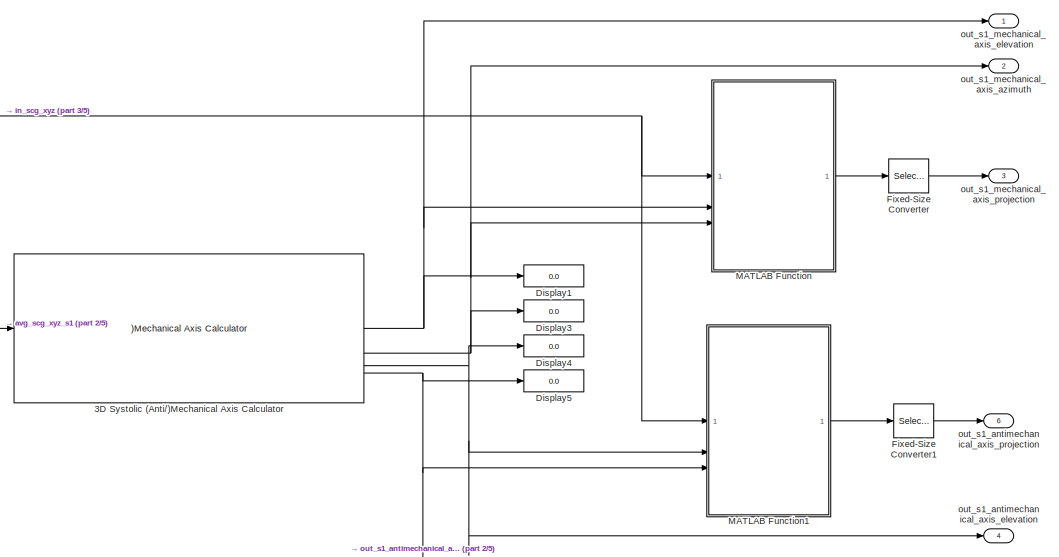
[diagram: SCG Analysis/Enabled SCG Analysis Subsystem/Signal Generation/3D Projections - part 1/5, top right region]
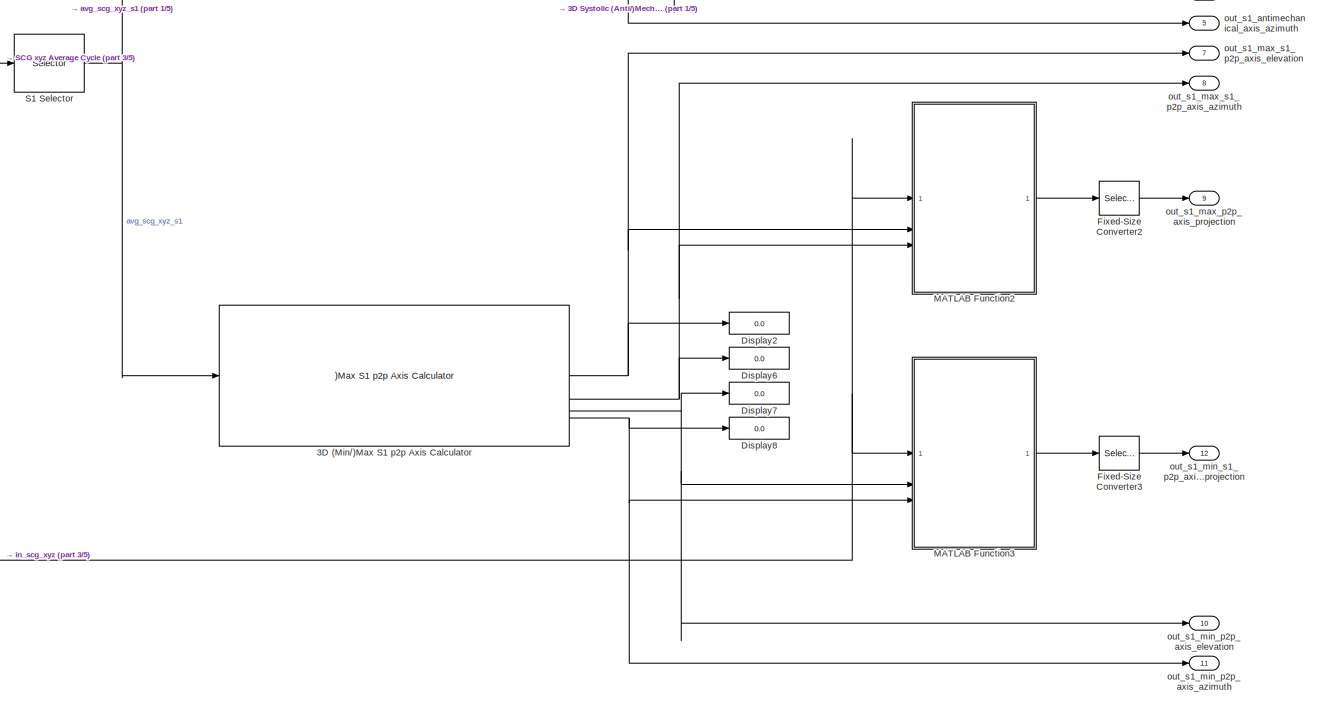
[diagram: SCG Analysis/Enabled SCG Analysis Subsystem/Signal Generation/3D Projections - part 2/5, central region]
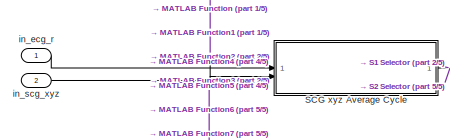
[diagram: SCG Analysis/Enabled SCG Analysis Subsystem/Signal Generation/3D Projections - part 3/5, middle left region]
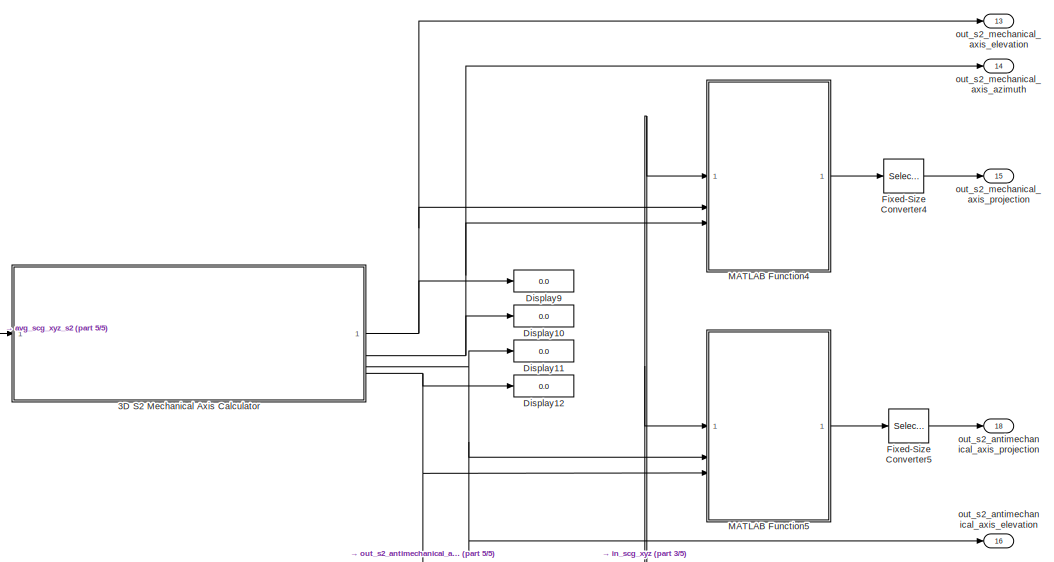
[diagram: SCG Analysis/Enabled SCG Analysis Subsystem/Signal Generation/3D Projections - part 4/5, middle right region]
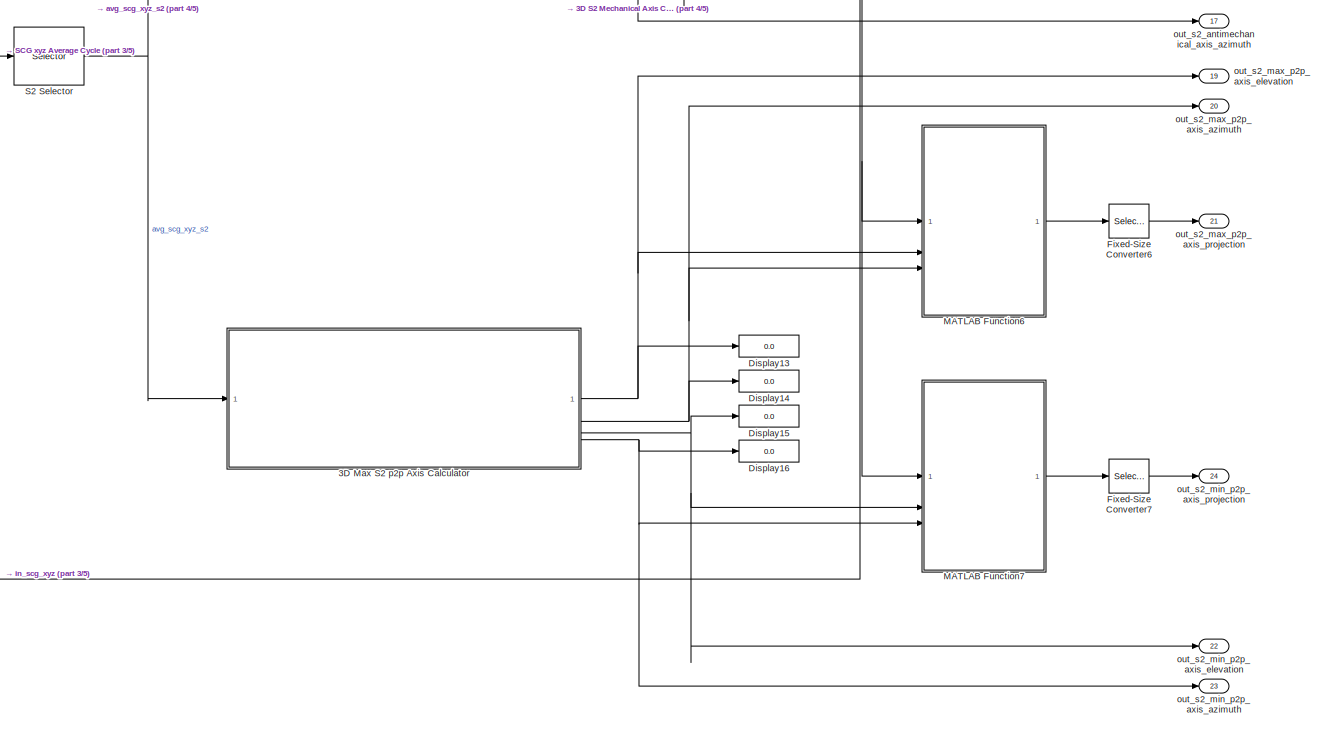
[diagram: SCG Analysis/Enabled SCG Analysis Subsystem/Signal Generation/3D Projections - part 5/5, bottom center region]
BLOCK [SubSystem] SCG Analysis/Enabled SCG Analysis Subsystem/Signal Generation/3D Projections
BLOCK [Reference] SCG Analysis/Enabled SCG Analysis Subsystem/Signal Generation/3D Projections/3D (Min//)Max S1 p2p Axis Calculator  REF=SCGAnalysis_SignalGenerationLib/3D (Min//)Max S1 p2p Axis Calculator
  SourceBlock = SCGAnalysis_SignalGenerationLib/3D (Min//)Max S1 p2p Axis Calculator
BLOCK [SubSystem] SCG Analysis/Enabled SCG Analysis Subsystem/Signal Generation/3D Projections/3D Max S2 p2p Axis Calculator
BLOCK [MATLABFcn] SCG Analysis/Enabled SCG Analysis Subsystem/Signal Generation/3D Projections/3D Max S2 p2p Axis Calculator/Max S2 P2P  Axis Finder 3D
  MATLABFcn = cardiac_max_s2p2p_axis_finder_3D
  Output1D = off
  OutputDimensions = 4
BLOCK [Selector] SCG Analysis/Enabled SCG Analysis Subsystem/Signal Generation/3D Projections/3D Max S2 p2p Axis Calculator/Selector2
  IndexOptions = Index vector (dialog)
  Indices = [1]
  InputPortWidth = 4
  OutputSizes = 1
BLOCK [Selector] SCG Analysis/Enabled SCG Analysis Subsystem/Signal Generation/3D Projections/3D Max S2 p2p Axis Calculator/Selector3
  IndexOptions = Index vector (dialog)
  Indices = [2]
  InputPortWidth = 4
  OutputSizes = 1
BLOCK [Selector] SCG Analysis/Enabled SCG Analysis Subsystem/Signal Generation/3D Projections/3D Max S2 p2p Axis Calculator/Selector6
  IndexOptions = Index vector (dialog)
  Indices = [3]
  InputPortWidth = 4
  OutputSizes = 1
BLOCK [Selector] SCG Analysis/Enabled SCG Analysis Subsystem/Signal Generation/3D Projections/3D Max S2 p2p Axis Calculator/Selector7
  IndexOptions = Index vector (dialog)
  Indices = [4]
  InputPortWidth = 4
  OutputSizes = 1
BLOCK [Inport] SCG Analysis/Enabled SCG Analysis Subsystem/Signal Generation/3D Projections/3D Max S2 p2p Axis Calculator/avg_scg_xyz_s2
  NameLocation = left
BLOCK [Outport] SCG Analysis/Enabled SCG Analysis Subsystem/Signal Generation/3D Projections/3D Max S2 p2p Axis Calculator/out_max_s2_axis_azimuth
  NameLocation = right
  Port = 2
BLOCK [Outport] SCG Analysis/Enabled SCG Analysis Subsystem/Signal Generation/3D Projections/3D Max S2 p2p Axis Calculator/out_max_s2_axis_elevation
  NameLocation = right
BLOCK [Outport] SCG Analysis/Enabled SCG Analysis Subsystem/Signal Generation/3D Projections/3D Max S2 p2p Axis Calculator/out_min_s2_axis_azimuth
  NameLocation = right
  Port = 4
BLOCK [Outport] SCG Analysis/Enabled SCG Analysis Subsystem/Signal Generation/3D Projections/3D Max S2 p2p Axis Calculator/out_min_s2_axis_elevation
  NameLocation = right
  Port = 3
BLOCK [SubSystem] SCG Analysis/Enabled SCG Analysis Subsystem/Signal Generation/3D Projections/3D S2 Mechanical Axis Calculator
BLOCK [MATLABFcn] SCG Analysis/Enabled SCG Analysis Subsystem/Signal Generation/3D Projections/3D S2 Mechanical Axis Calculator/Cardiac Mechanical Diastolic Axis Finder 3D
  MATLABFcn = cardiac_mech_diastolic_axis_finder_3D
  Output1D = off
  OutputDimensions = 4
BLOCK [Selector] SCG Analysis/Enabled SCG Analysis Subsystem/Signal Generation/3D Projections/3D S2 Mechanical Axis Calculator/Selector
  IndexOptions = Index vector (dialog)
  Indices = [1]
  InputPortWidth = 4
  OutputSizes = 1
BLOCK [Selector] SCG Analysis/Enabled SCG Analysis Subsystem/Signal Generation/3D Projections/3D S2 Mechanical Axis Calculator/Selector1
  IndexOptions = Index vector (dialog)
  Indices = [2]
  InputPortWidth = 4
  OutputSizes = 1
BLOCK [Selector] SCG Analysis/Enabled SCG Analysis Subsystem/Signal Generation/3D Projections/3D S2 Mechanical Axis Calculator/Selector4
  IndexOptions = Index vector (dialog)
  Indices = [3]
  InputPortWidth = 4
  OutputSizes = 1
BLOCK [Selector] SCG Analysis/Enabled SCG Analysis Subsystem/Signal Generation/3D Projections/3D S2 Mechanical Axis Calculator/Selector5
  IndexOptions = Index vector (dialog)
  Indices = [4]
  InputPortWidth = 4
  OutputSizes = 1
BLOCK [Inport] SCG Analysis/Enabled SCG Analysis Subsystem/Signal Generation/3D Projections/3D S2 Mechanical Axis Calculator/in_avg_scg_xyz_s2
BLOCK [Outport] SCG Analysis/Enabled SCG Analysis Subsystem/Signal Generation/3D Projections/3D S2 Mechanical Axis Calculator/out_s2_antimech_axis_azimuth
  NameLocation = right
  Port = 4
BLOCK [Outport] SCG Analysis/Enabled SCG Analysis Subsystem/Signal Generation/3D Projections/3D S2 Mechanical Axis Calculator/out_s2_antimech_axis_elevation
  NameLocation = right
  Port = 3
BLOCK [Outport] SCG Analysis/Enabled SCG Analysis Subsystem/Signal Generation/3D Projections/3D S2 Mechanical Axis Calculator/out_s2_mech_axis_azimuth
  NameLocation = right
  Port = 2
BLOCK [Outport] SCG Analysis/Enabled SCG Analysis Subsystem/Signal Generation/3D Projections/3D S2 Mechanical Axis Calculator/out_s2_mech_axis_elevation
  NameLocation = right
BLOCK [Reference] SCG Analysis/Enabled SCG Analysis Subsystem/Signal Generation/3D Projections/3D Systolic (Anti//)Mechanical Axis Calculator  REF=SCGAnalysis_SignalGenerationLib/3D Systolic (Anti//)Mechanical Axis Calculator
  SourceBlock = SCGAnalysis_SignalGenerationLib/3D Systolic (Anti//)Mechanical Axis Calculator
BLOCK [Display] SCG Analysis/Enabled SCG Analysis Subsystem/Signal Generation/3D Projections/Display1
  Decimation = 1
BLOCK [Display] SCG Analysis/Enabled SCG Analysis Subsystem/Signal Generation/3D Projections/Display10
  Decimation = 1
BLOCK [Display] SCG Analysis/Enabled SCG Analysis Subsystem/Signal Generation/3D Projections/Display11
  Decimation = 1
BLOCK [Display] SCG Analysis/Enabled SCG Analysis Subsystem/Signal Generation/3D Projections/Display12
  Decimation = 1
BLOCK [Display] SCG Analysis/Enabled SCG Analysis Subsystem/Signal Generation/3D Projections/Display13
  Decimation = 1
BLOCK [Display] SCG Analysis/Enabled SCG Analysis Subsystem/Signal Generation/3D Projections/Display14
  Decimation = 1
BLOCK [Display] SCG Analysis/Enabled SCG Analysis Subsystem/Signal Generation/3D Projections/Display15
  Decimation = 1
BLOCK [Display] SCG Analysis/Enabled SCG Analysis Subsystem/Signal Generation/3D Projections/Display16
  Decimation = 1
BLOCK [Display] SCG Analysis/Enabled SCG Analysis Subsystem/Signal Generation/3D Projections/Display2
  Decimation = 1
BLOCK [Display] SCG Analysis/Enabled SCG Analysis Subsystem/Signal Generation/3D Projections/Display3
  Decimation = 1
BLOCK [Display] SCG Analysis/Enabled SCG Analysis Subsystem/Signal Generation/3D Projections/Display4
  Decimation = 1
BLOCK [Display] SCG Analysis/Enabled SCG Analysis Subsystem/Signal Generation/3D Projections/Display5
  Decimation = 1
BLOCK [Display] SCG Analysis/Enabled SCG Analysis Subsystem/Signal Generation/3D Projections/Display6
  Decimation = 1
BLOCK [Display] SCG Analysis/Enabled SCG Analysis Subsystem/Signal Generation/3D Projections/Display7
  Decimation = 1
BLOCK [Display] SCG Analysis/Enabled SCG Analysis Subsystem/Signal Generation/3D Projections/Display8
  Decimation = 1
BLOCK [Display] SCG Analysis/Enabled SCG Analysis Subsystem/Signal Generation/3D Projections/Display9
  Decimation = 1
BLOCK [Selector] SCG Analysis/Enabled SCG Analysis Subsystem/Signal Generation/3D Projections/Fixed-Size Converter
  IndexOptions = Index vector (dialog),Index vector (dialog)
  Indices = [1:param_tot_samples],[1]
  NumberOfDimensions = 2
  OutputSizes = 1,1
BLOCK [Selector] SCG Analysis/Enabled SCG Analysis Subsystem/Signal Generation/3D Projections/Fixed-Size Converter1
  IndexOptions = Index vector (dialog),Index vector (dialog)
  Indices = [1:param_tot_samples],[1]
  NumberOfDimensions = 2
  OutputSizes = 1,1
BLOCK [Selector] SCG Analysis/Enabled SCG Analysis Subsystem/Signal Generation/3D Projections/Fixed-Size Converter2
  IndexOptions = Index vector (dialog),Index vector (dialog)
  Indices = [1:param_tot_samples],[1]
  NumberOfDimensions = 2
  OutputSizes = 1,1
BLOCK [Selector] SCG Analysis/Enabled SCG Analysis Subsystem/Signal Generation/3D Projections/Fixed-Size Converter3
  IndexOptions = Index vector (dialog),Index vector (dialog)
  Indices = [1:param_tot_samples],[1]
  NumberOfDimensions = 2
  OutputSizes = 1,1
BLOCK [Selector] SCG Analysis/Enabled SCG Analysis Subsystem/Signal Generation/3D Projections/Fixed-Size Converter4
  IndexOptions = Index vector (dialog),Index vector (dialog)
  Indices = [1:param_tot_samples],[1]
  NumberOfDimensions = 2
  OutputSizes = 1,1
BLOCK [Selector] SCG Analysis/Enabled SCG Analysis Subsystem/Signal Generation/3D Projections/Fixed-Size Converter5
  IndexOptions = Index vector (dialog),Index vector (dialog)
  Indices = [1:param_tot_samples],[1]
  NumberOfDimensions = 2
  OutputSizes = 1,1
BLOCK [Selector] SCG Analysis/Enabled SCG Analysis Subsystem/Signal Generation/3D Projections/Fixed-Size Converter6
  IndexOptions = Index vector (dialog),Index vector (dialog)
  Indices = [1:param_tot_samples],[1]
  NumberOfDimensions = 2
  OutputSizes = 1,1
BLOCK [Selector] SCG Analysis/Enabled SCG Analysis Subsystem/Signal Generation/3D Projections/Fixed-Size Converter7
  IndexOptions = Index vector (dialog),Index vector (dialog)
  Indices = [1:param_tot_samples],[1]
  NumberOfDimensions = 2
  OutputSizes = 1,1
BLOCK [SubSystem] SCG Analysis/Enabled SCG Analysis Subsystem/Signal Generation/3D Projections/MATLAB Function
  ErrorFcn = Stateflow.Translate.translate
  PermitHierarchicalResolution = ExplicitOnly
  SFBlockType = MATLAB Function
  TreatAsAtomicUnit = on
BLOCK [Demux] SCG Analysis/Enabled SCG Analysis Subsystem/Signal Generation/3D Projections/MATLAB Function/ Demux 
  Outputs = 1
BLOCK [S-Function] SCG Analysis/Enabled SCG Analysis Subsystem/Signal Generation/3D Projections/MATLAB Function/ SFunction 
  EnableBusSupport = on
  FunctionName = sf_sfun
  PortCounts = [3 2]
  SFcnIsStateOwnerBlock = off
  SFunctionDeploymentMode = off
  Tag = Stateflow S-Function 9
BLOCK [Terminator] SCG Analysis/Enabled SCG Analysis Subsystem/Signal Generation/3D Projections/MATLAB Function/ Terminator 
BLOCK [Inport] SCG Analysis/Enabled SCG Analysis Subsystem/Signal Generation/3D Projections/MATLAB Function/az_scg
  Port = 3
BLOCK [Inport] SCG Analysis/Enabled SCG Analysis Subsystem/Signal Generation/3D Projections/MATLAB Function/el_scg
  Port = 2
BLOCK [Outport] SCG Analysis/Enabled SCG Analysis Subsystem/Signal Generation/3D Projections/MATLAB Function/projection
BLOCK [Inport] SCG Analysis/Enabled SCG Analysis Subsystem/Signal Generation/3D Projections/MATLAB Function/scg_xyz
BLOCK [SubSystem] SCG Analysis/Enabled SCG Analysis Subsystem/Signal Generation/3D Projections/MATLAB Function1
  ErrorFcn = Stateflow.Translate.translate
  PermitHierarchicalResolution = ExplicitOnly
  SFBlockType = MATLAB Function
  TreatAsAtomicUnit = on
BLOCK [Demux] SCG Analysis/Enabled SCG Analysis Subsystem/Signal Generation/3D Projections/MATLAB Function1/ Demux 
  Outputs = 1
BLOCK [S-Function] SCG Analysis/Enabled SCG Analysis Subsystem/Signal Generation/3D Projections/MATLAB Function1/ SFunction 
  EnableBusSupport = on
  FunctionName = sf_sfun
  PortCounts = [3 2]
  SFcnIsStateOwnerBlock = off
  SFunctionDeploymentMode = off
  Tag = Stateflow S-Function 10
BLOCK [Terminator] SCG Analysis/Enabled SCG Analysis Subsystem/Signal Generation/3D Projections/MATLAB Function1/ Terminator 
BLOCK [Inport] SCG Analysis/Enabled SCG Analysis Subsystem/Signal Generation/3D Projections/MATLAB Function1/az_scg
  Port = 3
BLOCK [Inport] SCG Analysis/Enabled SCG Analysis Subsystem/Signal Generation/3D Projections/MATLAB Function1/el_scg
  Port = 2
BLOCK [Outport] SCG Analysis/Enabled SCG Analysis Subsystem/Signal Generation/3D Projections/MATLAB Function1/projection
BLOCK [Inport] SCG Analysis/Enabled SCG Analysis Subsystem/Signal Generation/3D Projections/MATLAB Function1/scg_xyz
BLOCK [SubSystem] SCG Analysis/Enabled SCG Analysis Subsystem/Signal Generation/3D Projections/MATLAB Function2
  ErrorFcn = Stateflow.Translate.translate
  PermitHierarchicalResolution = ExplicitOnly
  SFBlockType = MATLAB Function
  TreatAsAtomicUnit = on
BLOCK [Demux] SCG Analysis/Enabled SCG Analysis Subsystem/Signal Generation/3D Projections/MATLAB Function2/ Demux 
  Outputs = 1
BLOCK [S-Function] SCG Analysis/Enabled SCG Analysis Subsystem/Signal Generation/3D Projections/MATLAB Function2/ SFunction 
  EnableBusSupport = on
  FunctionName = sf_sfun
  PortCounts = [3 2]
  SFcnIsStateOwnerBlock = off
  SFunctionDeploymentMode = off
  Tag = Stateflow S-Function 11
BLOCK [Terminator] SCG Analysis/Enabled SCG Analysis Subsystem/Signal Generation/3D Projections/MATLAB Function2/ Terminator 
BLOCK [Inport] SCG Analysis/Enabled SCG Analysis Subsystem/Signal Generation/3D Projections/MATLAB Function2/az_scg
  Port = 3
BLOCK [Inport] SCG Analysis/Enabled SCG Analysis Subsystem/Signal Generation/3D Projections/MATLAB Function2/el_scg
  Port = 2
BLOCK [Outport] SCG Analysis/Enabled SCG Analysis Subsystem/Signal Generation/3D Projections/MATLAB Function2/projection
BLOCK [Inport] SCG Analysis/Enabled SCG Analysis Subsystem/Signal Generation/3D Projections/MATLAB Function2/scg_xyz
BLOCK [SubSystem] SCG Analysis/Enabled SCG Analysis Subsystem/Signal Generation/3D Projections/MATLAB Function3
  ErrorFcn = Stateflow.Translate.translate
  PermitHierarchicalResolution = ExplicitOnly
  SFBlockType = MATLAB Function
  TreatAsAtomicUnit = on
BLOCK [Demux] SCG Analysis/Enabled SCG Analysis Subsystem/Signal Generation/3D Projections/MATLAB Function3/ Demux 
  Outputs = 1
BLOCK [S-Function] SCG Analysis/Enabled SCG Analysis Subsystem/Signal Generation/3D Projections/MATLAB Function3/ SFunction 
  EnableBusSupport = on
  FunctionName = sf_sfun
  PortCounts = [3 2]
  SFcnIsStateOwnerBlock = off
  SFunctionDeploymentMode = off
  Tag = Stateflow S-Function 12
BLOCK [Terminator] SCG Analysis/Enabled SCG Analysis Subsystem/Signal Generation/3D Projections/MATLAB Function3/ Terminator 
BLOCK [Inport] SCG Analysis/Enabled SCG Analysis Subsystem/Signal Generation/3D Projections/MATLAB Function3/az_scg
  Port = 3
BLOCK [Inport] SCG Analysis/Enabled SCG Analysis Subsystem/Signal Generation/3D Projections/MATLAB Function3/el_scg
  Port = 2
BLOCK [Outport] SCG Analysis/Enabled SCG Analysis Subsystem/Signal Generation/3D Projections/MATLAB Function3/projection
BLOCK [Inport] SCG Analysis/Enabled SCG Analysis Subsystem/Signal Generation/3D Projections/MATLAB Function3/scg_xyz
BLOCK [SubSystem] SCG Analysis/Enabled SCG Analysis Subsystem/Signal Generation/3D Projections/MATLAB Function4
  ErrorFcn = Stateflow.Translate.translate
  PermitHierarchicalResolution = ExplicitOnly
  SFBlockType = MATLAB Function
  TreatAsAtomicUnit = on
BLOCK [Demux] SCG Analysis/Enabled SCG Analysis Subsystem/Signal Generation/3D Projections/MATLAB Function4/ Demux 
  Outputs = 1
BLOCK [S-Function] SCG Analysis/Enabled SCG Analysis Subsystem/Signal Generation/3D Projections/MATLAB Function4/ SFunction 
  EnableBusSupport = on
  FunctionName = sf_sfun
  PortCounts = [3 2]
  SFcnIsStateOwnerBlock = off
  SFunctionDeploymentMode = off
  Tag = Stateflow S-Function 102
BLOCK [Terminator] SCG Analysis/Enabled SCG Analysis Subsystem/Signal Generation/3D Projections/MATLAB Function4/ Terminator 
BLOCK [Inport] SCG Analysis/Enabled SCG Analysis Subsystem/Signal Generation/3D Projections/MATLAB Function4/az_scg
  Port = 3
BLOCK [Inport] SCG Analysis/Enabled SCG Analysis Subsystem/Signal Generation/3D Projections/MATLAB Function4/el_scg
  Port = 2
BLOCK [Outport] SCG Analysis/Enabled SCG Analysis Subsystem/Signal Generation/3D Projections/MATLAB Function4/projection
BLOCK [Inport] SCG Analysis/Enabled SCG Analysis Subsystem/Signal Generation/3D Projections/MATLAB Function4/scg_xyz
BLOCK [SubSystem] SCG Analysis/Enabled SCG Analysis Subsystem/Signal Generation/3D Projections/MATLAB Function5
  ErrorFcn = Stateflow.Translate.translate
  PermitHierarchicalResolution = ExplicitOnly
  SFBlockType = MATLAB Function
  TreatAsAtomicUnit = on
BLOCK [Demux] SCG Analysis/Enabled SCG Analysis Subsystem/Signal Generation/3D Projections/MATLAB Function5/ Demux 
  Outputs = 1
BLOCK [S-Function] SCG Analysis/Enabled SCG Analysis Subsystem/Signal Generation/3D Projections/MATLAB Function5/ SFunction 
  EnableBusSupport = on
  FunctionName = sf_sfun
  PortCounts = [3 2]
  SFcnIsStateOwnerBlock = off
  SFunctionDeploymentMode = off
  Tag = Stateflow S-Function 103
BLOCK [Terminator] SCG Analysis/Enabled SCG Analysis Subsystem/Signal Generation/3D Projections/MATLAB Function5/ Terminator 
BLOCK [Inport] SCG Analysis/Enabled SCG Analysis Subsystem/Signal Generation/3D Projections/MATLAB Function5/az_scg
  Port = 3
BLOCK [Inport] SCG Analysis/Enabled SCG Analysis Subsystem/Signal Generation/3D Projections/MATLAB Function5/el_scg
  Port = 2
BLOCK [Outport] SCG Analysis/Enabled SCG Analysis Subsystem/Signal Generation/3D Projections/MATLAB Function5/projection
BLOCK [Inport] SCG Analysis/Enabled SCG Analysis Subsystem/Signal Generation/3D Projections/MATLAB Function5/scg_xyz
BLOCK [SubSystem] SCG Analysis/Enabled SCG Analysis Subsystem/Signal Generation/3D Projections/MATLAB Function6
  ErrorFcn = Stateflow.Translate.translate
  PermitHierarchicalResolution = ExplicitOnly
  SFBlockType = MATLAB Function
  TreatAsAtomicUnit = on
BLOCK [Demux] SCG Analysis/Enabled SCG Analysis Subsystem/Signal Generation/3D Projections/MATLAB Function6/ Demux 
  Outputs = 1
BLOCK [S-Function] SCG Analysis/Enabled SCG Analysis Subsystem/Signal Generation/3D Projections/MATLAB Function6/ SFunction 
  EnableBusSupport = on
  FunctionName = sf_sfun
  PortCounts = [3 2]
  SFcnIsStateOwnerBlock = off
  SFunctionDeploymentMode = off
  Tag = Stateflow S-Function 104
BLOCK [Terminator] SCG Analysis/Enabled SCG Analysis Subsystem/Signal Generation/3D Projections/MATLAB Function6/ Terminator 
BLOCK [Inport] SCG Analysis/Enabled SCG Analysis Subsystem/Signal Generation/3D Projections/MATLAB Function6/az_scg
  Port = 3
BLOCK [Inport] SCG Analysis/Enabled SCG Analysis Subsystem/Signal Generation/3D Projections/MATLAB Function6/el_scg
  Port = 2
BLOCK [Outport] SCG Analysis/Enabled SCG Analysis Subsystem/Signal Generation/3D Projections/MATLAB Function6/projection
BLOCK [Inport] SCG Analysis/Enabled SCG Analysis Subsystem/Signal Generation/3D Projections/MATLAB Function6/scg_xyz
BLOCK [SubSystem] SCG Analysis/Enabled SCG Analysis Subsystem/Signal Generation/3D Projections/MATLAB Function7
  ErrorFcn = Stateflow.Translate.translate
  PermitHierarchicalResolution = ExplicitOnly
  SFBlockType = MATLAB Function
  TreatAsAtomicUnit = on
BLOCK [Demux] SCG Analysis/Enabled SCG Analysis Subsystem/Signal Generation/3D Projections/MATLAB Function7/ Demux 
  Outputs = 1
BLOCK [S-Function] SCG Analysis/Enabled SCG Analysis Subsystem/Signal Generation/3D Projections/MATLAB Function7/ SFunction 
  EnableBusSupport = on
  FunctionName = sf_sfun
  PortCounts = [3 2]
  SFcnIsStateOwnerBlock = off
  SFunctionDeploymentMode = off
  Tag = Stateflow S-Function 105
BLOCK [Terminator] SCG Analysis/Enabled SCG Analysis Subsystem/Signal Generation/3D Projections/MATLAB Function7/ Terminator 
BLOCK [Inport] SCG Analysis/Enabled SCG Analysis Subsystem/Signal Generation/3D Projections/MATLAB Function7/az_scg
  Port = 3
BLOCK [Inport] SCG Analysis/Enabled SCG Analysis Subsystem/Signal Generation/3D Projections/MATLAB Function7/el_scg
  Port = 2
BLOCK [Outport] SCG Analysis/Enabled SCG Analysis Subsystem/Signal Generation/3D Projections/MATLAB Function7/projection
BLOCK [Inport] SCG Analysis/Enabled SCG Analysis Subsystem/Signal Generation/3D Projections/MATLAB Function7/scg_xyz
BLOCK [Selector] SCG Analysis/Enabled SCG Analysis Subsystem/Signal Generation/3D Projections/S1 Selector
  IndexOptions = Index vector (dialog),Index vector (dialog)
  Indices = [1:fs*0.2],[1 2 3]
  InputPortWidth = 3
  NumberOfDimensions = 2
  OutputSizes = 1,1
BLOCK [Selector] SCG Analysis/Enabled SCG Analysis Subsystem/Signal Generation/3D Projections/S2 Selector
  IndexOptions = Index vector (dialog),Index vector (dialog)
  Indices = [fs*0.25:fs*0.5],[1 2 3]
  InputPortWidth = 3
  NumberOfDimensions = 2
  OutputSizes = 1,1
BLOCK [SubSystem] SCG Analysis/Enabled SCG Analysis Subsystem/Signal Generation/3D Projections/SCG xyz Average Cycle
BLOCK [SubSystem] SCG Analysis/Enabled SCG Analysis Subsystem/Signal Generation/3D Projections/SCG xyz Average Cycle/Average SCGxyz Cycle Calculator
  ErrorFcn = Stateflow.Translate.translate
  NameLocation = top
  PermitHierarchicalResolution = ExplicitOnly
  SFBlockType = MATLAB Function
  TreatAsAtomicUnit = on
BLOCK [Demux] SCG Analysis/Enabled SCG Analysis Subsystem/Signal Generation/3D Projections/SCG xyz Average Cycle/Average SCGxyz Cycle Calculator/ Demux 
  Outputs = 1
BLOCK [S-Function] SCG Analysis/Enabled SCG Analysis Subsystem/Signal Generation/3D Projections/SCG xyz Average Cycle/Average SCGxyz Cycle Calculator/ SFunction 
  EnableBusSupport = on
  FunctionName = sf_sfun
  PortCounts = [2 2]
  SFcnIsStateOwnerBlock = off
  SFunctionDeploymentMode = off
  Tag = Stateflow S-Function 15
BLOCK [Terminator] SCG Analysis/Enabled SCG Analysis Subsystem/Signal Generation/3D Projections/SCG xyz Average Cycle/Average SCGxyz Cycle Calculator/ Terminator 
BLOCK [Inport] SCG Analysis/Enabled SCG Analysis Subsystem/Signal Generation/3D Projections/SCG xyz Average Cycle/Average SCGxyz Cycle Calculator/r_pos
BLOCK [Inport] SCG Analysis/Enabled SCG Analysis Subsystem/Signal Generation/3D Projections/SCG xyz Average Cycle/Average SCGxyz Cycle Calculator/scgxyz
  Port = 2
BLOCK [Outport] SCG Analysis/Enabled SCG Analysis Subsystem/Signal Generation/3D Projections/SCG xyz Average Cycle/Average SCGxyz Cycle Calculator/scgxyz_avgcycle
  VectorParamsAs1DForOutWhenUnconnected = off
BLOCK [Constant] SCG Analysis/Enabled SCG Analysis Subsystem/Signal Generation/3D Projections/SCG xyz Average Cycle/Constant
BLOCK [Selector] SCG Analysis/Enabled SCG Analysis Subsystem/Signal Generation/3D Projections/SCG xyz Average Cycle/Fixed-Size Converter 2
  IndexOptions = Starting and ending indices (port),Index vector (dialog)
  Indices = [1:min(analyses.ecg.RR)],[1 2 3]
  NumberOfDimensions = 2
  OutputSizes = 1,1
BLOCK [SubSystem] SCG Analysis/Enabled SCG Analysis Subsystem/Signal Generation/3D Projections/SCG xyz Average Cycle/Min RR Calculator
  ErrorFcn = Stateflow.Translate.translate
  PermitHierarchicalResolution = ExplicitOnly
  SFBlockType = MATLAB Function
  TreatAsAtomicUnit = on
BLOCK [Demux] SCG Analysis/Enabled SCG Analysis Subsystem/Signal Generation/3D Projections/SCG xyz Average Cycle/Min RR Calculator/ Demux 
  Outputs = 1
BLOCK [S-Function] SCG Analysis/Enabled SCG Analysis Subsystem/Signal Generation/3D Projections/SCG xyz Average Cycle/Min RR Calculator/ SFunction 
  EnableBusSupport = on
  FunctionName = sf_sfun
  PortCounts = [1 2]
  SFcnIsStateOwnerBlock = off
  SFunctionDeploymentMode = off
  Tag = Stateflow S-Function 16
BLOCK [Terminator] SCG Analysis/Enabled SCG Analysis Subsystem/Signal Generation/3D Projections/SCG xyz Average Cycle/Min RR Calculator/ Terminator 
BLOCK [Outport] SCG Analysis/Enabled SCG Analysis Subsystem/Signal Generation/3D Projections/SCG xyz Average Cycle/Min RR Calculator/min_rr
  VectorParamsAs1DForOutWhenUnconnected = off
BLOCK [Inport] SCG Analysis/Enabled SCG Analysis Subsystem/Signal Generation/3D Projections/SCG xyz Average Cycle/Min RR Calculator/r_pos
BLOCK [Mux] SCG Analysis/Enabled SCG Analysis Subsystem/Signal Generation/3D Projections/SCG xyz Average Cycle/Mux
  DisplayOption = bar
  Inputs = 2
BLOCK [Inport] SCG Analysis/Enabled SCG Analysis Subsystem/Signal Generation/3D Projections/SCG xyz Average Cycle/in_ecg_r
  NameLocation = left
BLOCK [Inport] SCG Analysis/Enabled SCG Analysis Subsystem/Signal Generation/3D Projections/SCG xyz Average Cycle/in_scg_xyz
  NameLocation = left
  Port = 2
BLOCK [Outport] SCG Analysis/Enabled SCG Analysis Subsystem/Signal Generation/3D Projections/SCG xyz Average Cycle/out_scg_xyz_avgcycle
  NameLocation = right
  VectorParamsAs1DForOutWhenUnconnected = off
BLOCK [Inport] SCG Analysis/Enabled SCG Analysis Subsystem/Signal Generation/3D Projections/in_ecg_r
  NameLocation = left
BLOCK [Inport] SCG Analysis/Enabled SCG Analysis Subsystem/Signal Generation/3D Projections/in_scg_xyz
  NameLocation = left
  Port = 2
BLOCK [Outport] SCG Analysis/Enabled SCG Analysis Subsystem/Signal Generation/3D Projections/out_s1_antimechanical_axis_azimuth
  NameLocation = right
  Port = 5
BLOCK [Outport] SCG Analysis/Enabled SCG Analysis Subsystem/Signal Generation/3D Projections/out_s1_antimechanical_axis_elevation
  NameLocation = right
  Port = 4
BLOCK [Outport] SCG Analysis/Enabled SCG Analysis Subsystem/Signal Generation/3D Projections/out_s1_antimechanical_axis_projection
  NameLocation = right
  Port = 6
BLOCK [Outport] SCG Analysis/Enabled SCG Analysis Subsystem/Signal Generation/3D Projections/out_s1_max_p2p_axis_projection
  NameLocation = right
  Port = 9
BLOCK [Outport] SCG Analysis/Enabled SCG Analysis Subsystem/Signal Generation/3D Projections/out_s1_max_s1_p2p_axis_azimuth
  NameLocation = right
  Port = 8
BLOCK [Outport] SCG Analysis/Enabled SCG Analysis Subsystem/Signal Generation/3D Projections/out_s1_max_s1_p2p_axis_elevation
  NameLocation = right
  Port = 7
BLOCK [Outport] SCG Analysis/Enabled SCG Analysis Subsystem/Signal Generation/3D Projections/out_s1_mechanical_axis_azimuth
  NameLocation = right
  Port = 2
BLOCK [Outport] SCG Analysis/Enabled SCG Analysis Subsystem/Signal Generation/3D Projections/out_s1_mechanical_axis_elevation
  NameLocation = right
BLOCK [Outport] SCG Analysis/Enabled SCG Analysis Subsystem/Signal Generation/3D Projections/out_s1_mechanical_axis_projection
  NameLocation = right
  Port = 3
BLOCK [Outport] SCG Analysis/Enabled SCG Analysis Subsystem/Signal Generation/3D Projections/out_s1_min_p2p_axis_azimuth
  NameLocation = right
  Port = 11
BLOCK [Outport] SCG Analysis/Enabled SCG Analysis Subsystem/Signal Generation/3D Projections/out_s1_min_p2p_axis_elevation
  NameLocation = right
  Port = 10
BLOCK [Outport] SCG Analysis/Enabled SCG Analysis Subsystem/Signal Generation/3D Projections/out_s1_min_s1_p2p_axis_projection
  NameLocation = right
  Port = 12
BLOCK [Outport] SCG Analysis/Enabled SCG Analysis Subsystem/Signal Generation/3D Projections/out_s2_antimechanical_axis_azimuth
  NameLocation = right
  Port = 17
BLOCK [Outport] SCG Analysis/Enabled SCG Analysis Subsystem/Signal Generation/3D Projections/out_s2_antimechanical_axis_elevation
  NameLocation = right
  Port = 16
BLOCK [Outport] SCG Analysis/Enabled SCG Analysis Subsystem/Signal Generation/3D Projections/out_s2_antimechanical_axis_projection
  NameLocation = right
  Port = 18
BLOCK [Outport] SCG Analysis/Enabled SCG Analysis Subsystem/Signal Generation/3D Projections/out_s2_max_p2p_axis_azimuth
  NameLocation = right
  Port = 20
BLOCK [Outport] SCG Analysis/Enabled SCG Analysis Subsystem/Signal Generation/3D Projections/out_s2_max_p2p_axis_elevation
  NameLocation = right
  Port = 19
BLOCK [Outport] SCG Analysis/Enabled SCG Analysis Subsystem/Signal Generation/3D Projections/out_s2_max_p2p_axis_projection
  NameLocation = right
  Port = 21
BLOCK [Outport] SCG Analysis/Enabled SCG Analysis Subsystem/Signal Generation/3D Projections/out_s2_mechanical_axis_azimuth
  NameLocation = right
  Port = 14
BLOCK [Outport] SCG Analysis/Enabled SCG Analysis Subsystem/Signal Generation/3D Projections/out_s2_mechanical_axis_elevation
  NameLocation = right
  Port = 13
BLOCK [Outport] SCG Analysis/Enabled SCG Analysis Subsystem/Signal Generation/3D Projections/out_s2_mechanical_axis_projection
  NameLocation = right
  Port = 15
BLOCK [Outport] SCG Analysis/Enabled SCG Analysis Subsystem/Signal Generation/3D Projections/out_s2_min_p2p_axis_azimuth
  NameLocation = right
  Port = 23
BLOCK [Outport] SCG Analysis/Enabled SCG Analysis Subsystem/Signal Generation/3D Projections/out_s2_min_p2p_axis_elevation
  NameLocation = right
  Port = 22
BLOCK [Outport] SCG Analysis/Enabled SCG Analysis Subsystem/Signal Generation/3D Projections/out_s2_min_p2p_axis_projection
  NameLocation = right
  Port = 24
BLOCK [SubSystem] SCG Analysis/Enabled SCG Analysis Subsystem/Signal Generation/3DMod Calculator
BLOCK [Sqrt] SCG Analysis/Enabled SCG Analysis Subsystem/Signal Generation/3DMod Calculator/Square Root1
BLOCK [Math] SCG Analysis/Enabled SCG Analysis Subsystem/Signal Generation/3DMod Calculator/Square1
  Operator = square
  SignedPower = on
BLOCK [Sum] SCG Analysis/Enabled SCG Analysis Subsystem/Signal Generation/3DMod Calculator/Sum1
  CollapseDim = 2
  CollapseMode = Specified dimension
  IconShape = rectangular
  Inputs = +
BLOCK [Inport] SCG Analysis/Enabled SCG Analysis Subsystem/Signal Generation/3DMod Calculator/in_scgxyz
BLOCK [Outport] SCG Analysis/Enabled SCG Analysis Subsystem/Signal Generation/3DMod Calculator/out_3DMod
  VectorParamsAs1DForOutWhenUnconnected = off
BLOCK [Selector] SCG Analysis/Enabled SCG Analysis Subsystem/Signal Generation/R Wave Selector
  IndexOptions = Select all,Index vector (dialog)
  Indices = [1 3],3
  InputPortWidth = 3
  NumberOfDimensions = 2
  OutputSizes = 1,1
BLOCK [Inport] SCG Analysis/Enabled SCG Analysis Subsystem/Signal Generation/in_ecg_pqrst
BLOCK [Inport] SCG Analysis/Enabled SCG Analysis Subsystem/Signal Generation/in_scg_xyz
  Port = 2
BLOCK [Outport] SCG Analysis/Enabled SCG Analysis Subsystem/Signal Generation/out_2DMod
  NameLocation = right
BLOCK [Outport] SCG Analysis/Enabled SCG Analysis Subsystem/Signal Generation/out_3DMod
  NameLocation = right
  Port = 2
BLOCK [Outport] SCG Analysis/Enabled SCG Analysis Subsystem/Signal Generation/out_s1_antimechanical_axis_azimuth
  NameLocation = right
  Port = 7
BLOCK [Outport] SCG Analysis/Enabled SCG Analysis Subsystem/Signal Generation/out_s1_antimechanical_axis_elevation
  NameLocation = right
  Port = 6
BLOCK [Outport] SCG Analysis/Enabled SCG Analysis Subsystem/Signal Generation/out_s1_antimechanical_axis_projection
  NameLocation = right
  Port = 8
BLOCK [Outport] SCG Analysis/Enabled SCG Analysis Subsystem/Signal Generation/out_s1_max_p2p_axis_azimuth
  NameLocation = right
  Port = 10
BLOCK [Outport] SCG Analysis/Enabled SCG Analysis Subsystem/Signal Generation/out_s1_max_p2p_axis_elevation
  NameLocation = right
  Port = 9
BLOCK [Outport] SCG Analysis/Enabled SCG Analysis Subsystem/Signal Generation/out_s1_max_p2p_projection
  NameLocation = right
  Port = 11
BLOCK [Outport] SCG Analysis/Enabled SCG Analysis Subsystem/Signal Generation/out_s1_mechanical_axis_azimuth
  NameLocation = right
  Port = 4
BLOCK [Outport] SCG Analysis/Enabled SCG Analysis Subsystem/Signal Generation/out_s1_mechanical_axis_elevation
  NameLocation = right
  Port = 3
BLOCK [Outport] SCG Analysis/Enabled SCG Analysis Subsystem/Signal Generation/out_s1_mechanical_axis_projection
  NameLocation = right
  Port = 5
BLOCK [Outport] SCG Analysis/Enabled SCG Analysis Subsystem/Signal Generation/out_s1_min_p2p_axis_azimuth
  NameLocation = right
  Port = 13
BLOCK [Outport] SCG Analysis/Enabled SCG Analysis Subsystem/Signal Generation/out_s1_min_p2p_axis_elevation
  NameLocation = right
  Port = 12
BLOCK [Outport] SCG Analysis/Enabled SCG Analysis Subsystem/Signal Generation/out_s1_min_p2p_axis_projection
  NameLocation = right
  Port = 14
BLOCK [Outport] SCG Analysis/Enabled SCG Analysis Subsystem/Signal Generation/out_s2_antimechanical_axis_azimuth
  NameLocation = right
  Port = 19
BLOCK [Outport] SCG Analysis/Enabled SCG Analysis Subsystem/Signal Generation/out_s2_antimechanical_axis_elevation
  NameLocation = right
  Port = 18
BLOCK [Outport] SCG Analysis/Enabled SCG Analysis Subsystem/Signal Generation/out_s2_antimechanical_axis_projection
  NameLocation = right
  Port = 20
BLOCK [Outport] SCG Analysis/Enabled SCG Analysis Subsystem/Signal Generation/out_s2_max_p2p_axis_azimuth
  NameLocation = right
  Port = 22
BLOCK [Outport] SCG Analysis/Enabled SCG Analysis Subsystem/Signal Generation/out_s2_max_p2p_axis_elevation
  NameLocation = right
  Port = 21
BLOCK [Outport] SCG Analysis/Enabled SCG Analysis Subsystem/Signal Generation/out_s2_max_p2p_projection
  NameLocation = right
  Port = 23
BLOCK [Outport] SCG Analysis/Enabled SCG Analysis Subsystem/Signal Generation/out_s2_mechanical_axis_azimuth
  NameLocation = right
  Port = 16
BLOCK [Outport] SCG Analysis/Enabled SCG Analysis Subsystem/Signal Generation/out_s2_mechanical_axis_elevation
  NameLocation = right
  Port = 15
BLOCK [Outport] SCG Analysis/Enabled SCG Analysis Subsystem/Signal Generation/out_s2_mechanical_axis_projection
  NameLocation = right
  Port = 17
BLOCK [Outport] SCG Analysis/Enabled SCG Analysis Subsystem/Signal Generation/out_s2_min_p2p_axis_azimuth
  NameLocation = right
  Port = 25
BLOCK [Outport] SCG Analysis/Enabled SCG Analysis Subsystem/Signal Generation/out_s2_min_p2p_axis_elevation
  NameLocation = right
  Port = 24
BLOCK [Outport] SCG Analysis/Enabled SCG Analysis Subsystem/Signal Generation/out_s2_min_p2p_axis_projection
  NameLocation = right
  Port = 26
BLOCK [Inport] SCG Analysis/Enabled SCG Analysis Subsystem/in_ecg_pqrst
  NameLocation = left
BLOCK [Inport] SCG Analysis/Enabled SCG Analysis Subsystem/in_scg_xyz
  NameLocation = left
  Port = 2
BLOCK [Outport] SCG Analysis/Enabled SCG Analysis Subsystem/out_average_DC
  NameLocation = right
  Port = 27
BLOCK [Outport] SCG Analysis/Enabled SCG Analysis Subsystem/out_average_ET
  NameLocation = right
  Port = 25
BLOCK [Outport] SCG Analysis/Enabled SCG Analysis Subsystem/out_average_IVC
  NameLocation = right
  Port = 24
BLOCK [Outport] SCG Analysis/Enabled SCG Analysis Subsystem/out_average_IVR
  NameLocation = right
  Port = 26
BLOCK [Outport] SCG Analysis/Enabled SCG Analysis Subsystem/out_average_LPEI
  NameLocation = right
  Port = 23
BLOCK [Outport] SCG Analysis/Enabled SCG Analysis Subsystem/out_average_LPEI//DC
  NameLocation = right
  Port = 28
BLOCK [Outport] SCG Analysis/Enabled SCG Analysis Subsystem/out_average_cycle_cycle_max//median_diameter
  NameLocation = right
  Port = 30
  VectorParamsAs1DForOutWhenUnconnected = off
BLOCK [Outport] SCG Analysis/Enabled SCG Analysis Subsystem/out_average_cycle_diameter_over_volume
  NameLocation = right
  Port = 29
  VectorParamsAs1DForOutWhenUnconnected = off
BLOCK [Outport] SCG Analysis/Enabled SCG Analysis Subsystem/out_s1_3DAntiMechAxis_azimuth
  NameLocation = right
  Port = 4
  VectorParamsAs1DForOutWhenUnconnected = off
BLOCK [Outport] SCG Analysis/Enabled SCG Analysis Subsystem/out_s1_3DAntiMechAxis_elevation
  NameLocation = right
  Port = 3
  VectorParamsAs1DForOutWhenUnconnected = off
BLOCK [Outport] SCG Analysis/Enabled SCG Analysis Subsystem/out_s1_3DMaxp2pAxis_azimuth
  NameLocation = right
  Port = 6
  VectorParamsAs1DForOutWhenUnconnected = off
BLOCK [Outport] SCG Analysis/Enabled SCG Analysis Subsystem/out_s1_3DMaxp2pAxis_elevation
  NameLocation = right
  Port = 5
  VectorParamsAs1DForOutWhenUnconnected = off
BLOCK [Outport] SCG Analysis/Enabled SCG Analysis Subsystem/out_s1_3DMechAxis_azimuth
  NameLocation = right
  Port = 2
  VectorParamsAs1DForOutWhenUnconnected = off
BLOCK [Outport] SCG Analysis/Enabled SCG Analysis Subsystem/out_s1_3DMechAxis_elevation
  NameLocation = right
  VectorParamsAs1DForOutWhenUnconnected = off
BLOCK [Outport] SCG Analysis/Enabled SCG Analysis Subsystem/out_s1_3DMinp2pAxis_azimuth
  NameLocation = right
  Port = 8
  VectorParamsAs1DForOutWhenUnconnected = off
BLOCK [Outport] SCG Analysis/Enabled SCG Analysis Subsystem/out_s1_3DMinp2pAxis_elevation
  NameLocation = right
  Port = 7
  VectorParamsAs1DForOutWhenUnconnected = off
BLOCK [Outport] SCG Analysis/Enabled SCG Analysis Subsystem/out_s2_3DAntiMechAxis_azimuth
  NameLocation = right
  Port = 12
  VectorParamsAs1DForOutWhenUnconnected = off
BLOCK [Outport] SCG Analysis/Enabled SCG Analysis Subsystem/out_s2_3DAntiMechAxis_elevation
  NameLocation = right
  Port = 11
  VectorParamsAs1DForOutWhenUnconnected = off
BLOCK [Outport] SCG Analysis/Enabled SCG Analysis Subsystem/out_s2_3DMaxp2pAxis_azimuth
  NameLocation = right
  Port = 14
  VectorParamsAs1DForOutWhenUnconnected = off
BLOCK [Outport] SCG Analysis/Enabled SCG Analysis Subsystem/out_s2_3DMaxp2pAxis_elevation
  NameLocation = right
  Port = 13
  VectorParamsAs1DForOutWhenUnconnected = off
BLOCK [Outport] SCG Analysis/Enabled SCG Analysis Subsystem/out_s2_3DMechAxis_azimuth
  NameLocation = right
  Port = 10
  VectorParamsAs1DForOutWhenUnconnected = off
BLOCK [Outport] SCG Analysis/Enabled SCG Analysis Subsystem/out_s2_3DMechAxis_elevation
  NameLocation = right
  Port = 9
  VectorParamsAs1DForOutWhenUnconnected = off
BLOCK [Outport] SCG Analysis/Enabled SCG Analysis Subsystem/out_s2_3DMinp2pAxis_azimuth
  NameLocation = right
  Port = 16
  VectorParamsAs1DForOutWhenUnconnected = off
BLOCK [Outport] SCG Analysis/Enabled SCG Analysis Subsystem/out_s2_3DMinp2pAxis_elevation
  NameLocation = right
  Port = 15
  VectorParamsAs1DForOutWhenUnconnected = off
BLOCK [Outport] SCG Analysis/Enabled SCG Analysis Subsystem/out_scg_2DMod_metrics
  NameLocation = right
  Port = 17
BLOCK [Outport] SCG Analysis/Enabled SCG Analysis Subsystem/out_scg_3DMod_metrics
  NameLocation = right
  Port = 18
BLOCK [Outport] SCG Analysis/Enabled SCG Analysis Subsystem/out_scg_s1_3DMaxp2pAxis_metrics
  NameLocation = right
  Port = 20
BLOCK [Outport] SCG Analysis/Enabled SCG Analysis Subsystem/out_scg_s1_3DMechAxis_metrics
  NameLocation = right
  Port = 19
BLOCK [Outport] SCG Analysis/Enabled SCG Analysis Subsystem/out_scg_s2_3DMaxp2pAxis_metrics
  NameLocation = right
  Port = 22
BLOCK [Outport] SCG Analysis/Enabled SCG Analysis Subsystem/out_scg_s2_3DMechAxis_metrics
  NameLocation = right
  Port = 21
BLOCK [Width] SCG Analysis/Width 
BLOCK [Inport] SCG Analysis/in_ecg_pqrst
BLOCK [Inport] SCG Analysis/in_scg_xyz
  Port = 2
BLOCK [Outport] SCG Analysis/out_3Danisotropy_max_diameter//median_diameter
  NameLocation = right
  Port = 30
  VectorParamsAs1DForOutWhenUnconnected = off
BLOCK [Outport] SCG Analysis/out_3Danisotropy_max_diameter//volume
  NameLocation = right
  Port = 29
  VectorParamsAs1DForOutWhenUnconnected = off
BLOCK [Outport] SCG Analysis/out_avg_dc
  NameLocation = right
  Port = 27
  VectorParamsAs1DForOutWhenUnconnected = off
BLOCK [Outport] SCG Analysis/out_avg_et
  NameLocation = right
  Port = 25
  VectorParamsAs1DForOutWhenUnconnected = off
BLOCK [Outport] SCG Analysis/out_avg_ivc
  NameLocation = right
  Port = 24
  VectorParamsAs1DForOutWhenUnconnected = off
BLOCK [Outport] SCG Analysis/out_avg_ivr
  NameLocation = right
  Port = 26
  VectorParamsAs1DForOutWhenUnconnected = off
BLOCK [Outport] SCG Analysis/out_avg_lpei
  NameLocation = right
  Port = 23
  VectorParamsAs1DForOutWhenUnconnected = off
BLOCK [Outport] SCG Analysis/out_avg_lpei//dc
  NameLocation = right
  Port = 28
  VectorParamsAs1DForOutWhenUnconnected = off
BLOCK [Outport] SCG Analysis/out_s1_3DAntiMechAxis_azimuth
  NameLocation = right
  Port = 4
  VectorParamsAs1DForOutWhenUnconnected = off
BLOCK [Outport] SCG Analysis/out_s1_3DAntiMechAxis_elevation
  NameLocation = right
  Port = 3
  VectorParamsAs1DForOutWhenUnconnected = off
BLOCK [Outport] SCG Analysis/out_s1_3DMaxp2pAxis_azimuth
  NameLocation = right
  Port = 6
  VectorParamsAs1DForOutWhenUnconnected = off
BLOCK [Outport] SCG Analysis/out_s1_3DMaxp2pAxis_elevation
  NameLocation = right
  Port = 5
  VectorParamsAs1DForOutWhenUnconnected = off
BLOCK [Outport] SCG Analysis/out_s1_3DMechAxis_azimuth
  NameLocation = right
  Port = 2
  VectorParamsAs1DForOutWhenUnconnected = off
BLOCK [Outport] SCG Analysis/out_s1_3DMinp2pAxis_azimuth
  NameLocation = right
  Port = 8
  VectorParamsAs1DForOutWhenUnconnected = off
BLOCK [Outport] SCG Analysis/out_s1_3DMinp2pAxis_elevation
  NameLocation = right
  Port = 7
  VectorParamsAs1DForOutWhenUnconnected = off
BLOCK [Outport] SCG Analysis/out_s2_3DAntiMechAxis_azimuth
  NameLocation = right
  Port = 12
  VectorParamsAs1DForOutWhenUnconnected = off
BLOCK [Outport] SCG Analysis/out_s2_3DAntiMechAxis_elevation
  NameLocation = right
  Port = 11
  VectorParamsAs1DForOutWhenUnconnected = off
BLOCK [Outport] SCG Analysis/out_s2_3DMaxp2pAxis_azimuth
  NameLocation = right
  Port = 14
  VectorParamsAs1DForOutWhenUnconnected = off
BLOCK [Outport] SCG Analysis/out_s2_3DMaxp2pAxis_elevation
  NameLocation = right
  Port = 13
  VectorParamsAs1DForOutWhenUnconnected = off
BLOCK [Outport] SCG Analysis/out_s2_3DMechAxis_azimuth
  NameLocation = right
  Port = 10
  VectorParamsAs1DForOutWhenUnconnected = off
BLOCK [Outport] SCG Analysis/out_s2_3DMechAxis_elevation
  NameLocation = right
  Port = 9
  VectorParamsAs1DForOutWhenUnconnected = off
BLOCK [Outport] SCG Analysis/out_s2_3DMinp2pAxis_azimuth
  NameLocation = right
  Port = 16
  VectorParamsAs1DForOutWhenUnconnected = off
BLOCK [Outport] SCG Analysis/out_s2_3DMinp2pAxis_elevation
  NameLocation = right
  Port = 15
  VectorParamsAs1DForOutWhenUnconnected = off
BLOCK [Outport] SCG Analysis/out_scg_2DMod_metrics
  NameLocation = right
  Port = 17
  VectorParamsAs1DForOutWhenUnconnected = off
BLOCK [Outport] SCG Analysis/out_scg_3DMod_metrics
  NameLocation = right
  Port = 18
  VectorParamsAs1DForOutWhenUnconnected = off
BLOCK [Outport] SCG Analysis/out_scg_s1_3DMaxp2pAxis_metrics
  NameLocation = right
  Port = 20
  VectorParamsAs1DForOutWhenUnconnected = off
BLOCK [Outport] SCG Analysis/out_scg_s1_3DMechAxis_metrics
  NameLocation = right
  Port = 19
  VectorParamsAs1DForOutWhenUnconnected = off
BLOCK [Outport] SCG Analysis/out_scg_s2_3DMaxp2pAxis_metrics
  NameLocation = right
  Port = 22
  VectorParamsAs1DForOutWhenUnconnected = off
BLOCK [Outport] SCG Analysis/out_scg_s2_3DMechAxis_metrics
  NameLocation = right
  Port = 21
  VectorParamsAs1DForOutWhenUnconnected = off
BLOCK [Outport] SCG Analysis/out_systolic_3DMechAxis_elevation
  NameLocation = right
  VectorParamsAs1DForOutWhenUnconnected = off
BLOCK [SubSystem] SCG Preprocessing
BLOCK [SubSystem] SCG Preprocessing/Enabled SCG Preprocessing Subsystem
  TreatAsAtomicUnit = on
BLOCK [Constant] SCG Preprocessing/Enabled SCG Preprocessing Subsystem/Constant
  Value = fs
BLOCK [SubSystem] SCG Preprocessing/Enabled SCG Preprocessing Subsystem/Filtfiltering
BLOCK [Inport] SCG Preprocessing/Enabled SCG Preprocessing Subsystem/Filtfiltering/ input SCG
BLOCK [SubSystem] SCG Preprocessing/Enabled SCG Preprocessing Subsystem/Filtfiltering/Bandpass Filter 1
  CopyFcn = fdesignblkfcn(gcbh, {'CopyFcn'});
  DialogController = fdesignblkfcn
  InitFcn = fdesignblkfcn(gcbh, {'InitFcn'});
  UserDataPersistent = on
BLOCK [DiscreteFir] SCG Preprocessing/Enabled SCG Preprocessing Subsystem/Filtfiltering/Bandpass Filter 1/Generated Filter Block
  Coefficients = [-0.00978480817658140822 0.00796999512757773539 0.00147001916949499392 -0.00206976963634824965 -0.00243890991203668658 -0.000924134149516313568 0.000721734906667209327 0.00129711475091750009 0.00065625391365372091 -0.000505332991407668681 -0.00128012722911580298 -0.00118584056106419973 -0.00039637962604269618 0.000462570629013598245 0.000795239340671749051 0.000413152706796936372 -0.00037351837793...<+17526ch>
  InputPortMap = u0
  InputProcessing = Columns as channels (frame based)
  OutputPortMap = o0
  Tag = BlockMethodSubSystem
BLOCK [Inport] SCG Preprocessing/Enabled SCG Preprocessing Subsystem/Filtfiltering/Bandpass Filter 1/In
BLOCK [Outport] SCG Preprocessing/Enabled SCG Preprocessing Subsystem/Filtfiltering/Bandpass Filter 1/Out
  VectorParamsAs1DForOutWhenUnconnected = off
BLOCK [SubSystem] SCG Preprocessing/Enabled SCG Preprocessing Subsystem/Filtfiltering/Bandpass Filter 2
  CopyFcn = fdesignblkfcn(gcbh, {'CopyFcn'});
  DialogController = fdesignblkfcn
  InitFcn = fdesignblkfcn(gcbh, {'InitFcn'});
  UserDataPersistent = on
BLOCK [DiscreteFir] SCG Preprocessing/Enabled SCG Preprocessing Subsystem/Filtfiltering/Bandpass Filter 2/Generated Filter Block
  Coefficients = [-0.00978480817658140822 0.00796999512757773539 0.00147001916949499392 -0.00206976963634824965 -0.00243890991203668658 -0.000924134149516313568 0.000721734906667209327 0.00129711475091750009 0.00065625391365372091 -0.000505332991407668681 -0.00128012722911580298 -0.00118584056106419973 -0.00039637962604269618 0.000462570629013598245 0.000795239340671749051 0.000413152706796936372 -0.00037351837793...<+17526ch>
  InputPortMap = u0
  InputProcessing = Columns as channels (frame based)
  OutputPortMap = o0
  Tag = BlockMethodSubSystem
BLOCK [Inport] SCG Preprocessing/Enabled SCG Preprocessing Subsystem/Filtfiltering/Bandpass Filter 2/In
BLOCK [Outport] SCG Preprocessing/Enabled SCG Preprocessing Subsystem/Filtfiltering/Bandpass Filter 2/Out
  VectorParamsAs1DForOutWhenUnconnected = off
BLOCK [DSPFlip] SCG Preprocessing/Enabled SCG Preprocessing Subsystem/Filtfiltering/Flip
BLOCK [DSPFlip] SCG Preprocessing/Enabled SCG Preprocessing Subsystem/Filtfiltering/Flip1
BLOCK [Outport] SCG Preprocessing/Enabled SCG Preprocessing Subsystem/Filtfiltering/filtfiltered SCG
  VectorParamsAs1DForOutWhenUnconnected = off
BLOCK [SubSystem] SCG Preprocessing/Enabled SCG Preprocessing Subsystem/Plotting
  ErrorFcn = Stateflow.Translate.translate
  PermitHierarchicalResolution = ExplicitOnly
  SFBlockType = MATLAB Function
  TreatAsAtomicUnit = on
BLOCK [Demux] SCG Preprocessing/Enabled SCG Preprocessing Subsystem/Plotting/ Demux 
  Outputs = 1
BLOCK [S-Function] SCG Preprocessing/Enabled SCG Preprocessing Subsystem/Plotting/ SFunction 
  EnableBusSupport = on
  FunctionName = sf_sfun
  PortCounts = [3 1]
  SFcnIsStateOwnerBlock = off
  SFunctionDeploymentMode = off
  Tag = Stateflow S-Function 5
BLOCK [Terminator] SCG Preprocessing/Enabled SCG Preprocessing Subsystem/Plotting/ Terminator 
BLOCK [Inport] SCG Preprocessing/Enabled SCG Preprocessing Subsystem/Plotting/fs
  Port = 3
BLOCK [Inport] SCG Preprocessing/Enabled SCG Preprocessing Subsystem/Plotting/preprocessed_scg_xyz
BLOCK [Inport] SCG Preprocessing/Enabled SCG Preprocessing Subsystem/Plotting/raw_scg_xyz
  Port = 2
BLOCK [SpectrumAnalyzer] SCG Preprocessing/Enabled SCG Preprocessing Subsystem/SCG Preprocessing Input (Frequency)
  AveragingMethod = Running
  CenterFrequency = 250
  Commented = on
  DefaultConfigurationName = spbscopes.SpectrumAnalyzerBlockCfg
  FrequencyInputRBWFromPort = 0
  FrequencyInputRBWPort = 0
  FrequencyResolutionMethod = Window length
  FrequencyVectorFromPort = 0
  FrequencyVectorPort = 0
  GraphicalSettings = {"GraphicalSettings":{"SpectralMask":{"CustomReferenceLevel":"0","EnabledMasks":"None","LowerMask":"-Inf","MaskFrequencyOffset":"0","ReferenceLevel":"Custom","SelectedChannel":"1","UpperMask":"Inf"},"Style":{"AxesColor":"[0 0 0]","LabelsColor":"[0.686274509803922 0.686274509803922 0.686274509803922]","LineColor":"[[1 1 0.0666666666666667],[0.0745098039215686 0.623529411764706 1],[1 0.4117647058823...<+191ch>
  IsFrequencyInputMode = 0
  Method = Welch
  PlotAsTwoSidedSpectrum = off
  SampleRate = 1000
  ScopeSpecificationString = spbscopes.SpectrumAnalyzerBlockCfg('CurrentConfiguration', extmgr.ConfigurationSet(extmgr.Configuration('Core','General UI',true),extmgr.Configuration('Core','Source UI',true),extmgr.Configuration('Sources','WiredSimulink',true),extmgr.Configuration('Sources','SimulinkEvent',false),extmgr.Configuration('Sources','Simulink',false),extmgr.Configuration('Sources','SPTool',false),extmgr.Configuration(...<+3857ch>
  ShowLegend = on
  Span = 500
  SpectralAverages = 10
  StartFrequency = 0
  StopFrequency = 500
  WasSavedAsWebScope = on
  Window = Rectangular
  WindowLength = param_tot_samples/10
  WindowPosition = [1 1 1312 537]
  YLimits = [-95.620326188963844061,-23.201044461318168999]
BLOCK [Scope] SCG Preprocessing/Enabled SCG Preprocessing Subsystem/SCG Preprocessing Input (Time)
  Commented = on
  Floating = off
  NumInputPorts = 1
  ScopeSpecificationString = Simulink.scopes.TimeScopeBlockCfg('CurrentConfiguration', extmgr.ConfigurationSet(extmgr.Configuration('Core','General UI',true),extmgr.Configuration('Core','Source UI',true),extmgr.Configuration('Sources','WiredSimulink',true,'DataLoggingMaxPoints','tot_samples','DataLoggingVariableName','ScopeData3'),extmgr.Configuration('Visuals','Time Domain',true,'InputProcessing','FrameProcessing','Serialize...<+1769ch>
BLOCK [SpectrumAnalyzer] SCG Preprocessing/Enabled SCG Preprocessing Subsystem/SCG Preprocessing Output (Frequency)
  AveragingMethod = Running
  AxesScaling = Manual
  CenterFrequency = 250
  Commented = on
  DefaultConfigurationName = spbscopes.SpectrumAnalyzerBlockCfg
  FrequencyInputRBWFromPort = 0
  FrequencyInputRBWPort = 0
  FrequencyResolutionMethod = Window length
  FrequencyVectorFromPort = 0
  FrequencyVectorPort = 0
  GraphicalSettings = {"GraphicalSettings":{"SpectralMask":{"CustomReferenceLevel":"0","EnabledMasks":"None","LowerMask":"-Inf","MaskFrequencyOffset":"0","ReferenceLevel":"Custom","SelectedChannel":"1","UpperMask":"Inf"},"Style":{"AxesColor":"[0 0 0]","LabelsColor":"[0.686274509803922 0.686274509803922 0.686274509803922]","LineColor":"[[1 1 0.0666666666666667],[0.0745098039215686 0.623529411764706 1],[1 0.4117647058823...<+239ch>
  IsFrequencyInputMode = 0
  Method = Welch
  PlotAsTwoSidedSpectrum = off
  SampleRate = 1000
  ScopeSpecificationString = spbscopes.SpectrumAnalyzerBlockCfg('CurrentConfiguration', extmgr.ConfigurationSet(extmgr.Configuration('Core','General UI',true),extmgr.Configuration('Core','Source UI',true),extmgr.Configuration('Sources','WiredSimulink',true),extmgr.Configuration('Sources','SimulinkEvent',false),extmgr.Configuration('Sources','Simulink',false),extmgr.Configuration('Sources','SPTool',false),extmgr.Configuration(...<+3927ch>
  ShowLegend = on
  Span = 500
  SpectralAverages = 10
  StartFrequency = 0
  StopFrequency = 500
  WasSavedAsWebScope = on
  Window = Rectangular
  WindowLength = param_tot_samples/10
  WindowPosition = [1 1 1312 537]
  YLimits = [-56.189595382211429353,39.464899614417547014]
BLOCK [Scope] SCG Preprocessing/Enabled SCG Preprocessing Subsystem/SCG Preprocessing Output (Time)
  Commented = on
  Floating = off
  NumInputPorts = 1
  ScopeSpecificationString = Simulink.scopes.TimeScopeBlockCfg('CurrentConfiguration', extmgr.ConfigurationSet(extmgr.Configuration('Core','General UI',true),extmgr.Configuration('Core','Source UI',true),extmgr.Configuration('Sources','WiredSimulink',true,'DataLoggingMaxPoints','tot_samples'),extmgr.Configuration('Visuals','Time Domain',true,'InputProcessing','FrameProcessing','SerializedDisplays',{struct('MinYLimReal','-50.6...<+1764ch>
BLOCK [SubSystem] SCG Preprocessing/Enabled SCG Preprocessing Subsystem/To Workspace: Processed SCGxyz
BLOCK [Inport] SCG Preprocessing/Enabled SCG Preprocessing Subsystem/To Workspace: Processed SCGxyz/In1
BLOCK [SubSystem] SCG Preprocessing/Enabled SCG Preprocessing Subsystem/To Workspace: Processed SCGxyz/To Workspace SCG Enabled Subsystem
  TreatAsAtomicUnit = on
BLOCK [EnablePort] SCG Preprocessing/Enabled SCG Preprocessing Subsystem/To Workspace: Processed SCGxyz/To Workspace SCG Enabled Subsystem/Enable
BLOCK [Inport] SCG Preprocessing/Enabled SCG Preprocessing Subsystem/To Workspace: Processed SCGxyz/To Workspace SCG Enabled Subsystem/In1
BLOCK [ToWorkspace] SCG Preprocessing/Enabled SCG Preprocessing Subsystem/To Workspace: Processed SCGxyz/To Workspace SCG Enabled Subsystem/To Workspace SCG
  FixptAsFi = on
  MaxDataPoints = inf
  SampleTime = -1
  SaveFormat = Structure
  VariableName = out_scg_xyz_preprocessing
BLOCK [Gain] SCG Preprocessing/Enabled SCG Preprocessing Subsystem/V to mg Conversion
  Gain = param_scg_gain_mg
BLOCK [EnablePort] SCG Preprocessing/Enabled SCG Preprocessing Subsystem/in_scg_xyz
  ShowOutputPort = on
BLOCK [Outport] SCG Preprocessing/Enabled SCG Preprocessing Subsystem/out_preprocessed_scg_xyz
  VectorParamsAs1DForOutWhenUnconnected = off
BLOCK [Inport] SCG Preprocessing/in_raw_scg_xyz
BLOCK [Outport] SCG Preprocessing/out_preproc_scg_xyz
  VectorParamsAs1DForOutWhenUnconnected = off
BLOCK [Inport] in_ecg
  NameLocation = left
  SampleTime = 1/fs
BLOCK [Inport] in_scg_x
  NameLocation = left
  Port = 2
  SampleTime = 1/fs
BLOCK [Inport] in_scg_y
  NameLocation = left
  Port = 3
  SampleTime = 1/fs
BLOCK [Inport] in_scg_z
  NameLocation = left
  Port = 4
  SampleTime = 1/fs
BLOCK [ToWorkspace] out_3Danisotropy_max_diameter//median_diameter
  FixptAsFi = on
  MaxDataPoints = 1
  NameLocation = right
  SampleTime = -1
  VariableName = out_3Danisotropy_max_diameter_over_median_diameter
BLOCK [ToWorkspace] out_3Danisotropy_max_diameter//volume
  FixptAsFi = on
  MaxDataPoints = 1
  NameLocation = right
  SampleTime = -1
  VariableName = out_3Danisotropy_max_diameter_over_volume
BLOCK [ToWorkspace] out_avg_dc
  FixptAsFi = on
  MaxDataPoints = 1
  NameLocation = right
  SampleTime = -1
  VariableName = out_avg_dc
BLOCK [ToWorkspace] out_avg_et
  FixptAsFi = on
  MaxDataPoints = 1
  NameLocation = right
  SampleTime = -1
  VariableName = out_avg_et
BLOCK [ToWorkspace] out_avg_ivc
  FixptAsFi = on
  MaxDataPoints = 1
  NameLocation = right
  SampleTime = -1
  VariableName = out_avg_ivc
BLOCK [ToWorkspace] out_avg_ivr
  FixptAsFi = on
  MaxDataPoints = 1
  NameLocation = right
  SampleTime = -1
  VariableName = out_avg_ivr
BLOCK [ToWorkspace] out_avg_lpei
  FixptAsFi = on
  MaxDataPoints = 1
  NameLocation = right
  SampleTime = -1
  VariableName = out_avg_lpei
BLOCK [ToWorkspace] out_avg_lpei//dc
  FixptAsFi = on
  MaxDataPoints = 1
  NameLocation = right
  SampleTime = -1
  VariableName = out_avg_lpei_to_dc
BLOCK [ToWorkspace] out_s2_3DAntiMechAxis_azimuth
  FixptAsFi = on
  MaxDataPoints = 1
  NameLocation = right
  SampleTime = -1
  VariableName = out_s2_3Dantimech_azimuth
BLOCK [ToWorkspace] out_s2_3DAntiMechAxis_elevation
  FixptAsFi = on
  MaxDataPoints = 1
  NameLocation = right
  SampleTime = -1
  VariableName = out_s2_3Dantimech_elevation
BLOCK [ToWorkspace] out_s2_3DMaxS1p2p_azimuth
  FixptAsFi = on
  MaxDataPoints = 1
  NameLocation = right
  SampleTime = -1
  VariableName = out_s2_3Dmaxp2p_azimuth
BLOCK [ToWorkspace] out_s2_3DMaxS1p2p_elevation
  FixptAsFi = on
  MaxDataPoints = 1
  NameLocation = right
  SampleTime = -1
  VariableName = out_s2_3Dmaxp2p_elevation
BLOCK [ToWorkspace] out_s2_3DMechAxis_azimuth
  FixptAsFi = on
  MaxDataPoints = 1
  NameLocation = right
  SampleTime = -1
  VariableName = out_s2_3Dmech_azimuth
BLOCK [ToWorkspace] out_s2_3DMechAxis_elevation
  FixptAsFi = on
  MaxDataPoints = 1
  NameLocation = right
  SampleTime = -1
  VariableName = out_s2_3Dmech_elevation
BLOCK [ToWorkspace] out_s2_3DMinS1p2p_azimuth
  FixptAsFi = on
  MaxDataPoints = 1
  NameLocation = right
  SampleTime = -1
  VariableName = out_s2_3Dminp2p_azimuth
BLOCK [ToWorkspace] out_s2_3DMinS1p2p_elevation
  FixptAsFi = on
  MaxDataPoints = 1
  NameLocation = right
  SampleTime = -1
  VariableName = out_s2_3Dminp2p_elevation
BLOCK [ToWorkspace] out_scg_2Dmod_metrics
  FixptAsFi = on
  MaxDataPoints = inf
  NameLocation = right
  SampleTime = -1
  VariableName = out_scg_2Dmod_metrics
BLOCK [ToWorkspace] out_scg_3Dmod_metrics
  FixptAsFi = on
  MaxDataPoints = inf
  NameLocation = right
  SampleTime = -1
  VariableName = out_scg_3Dmod_metrics
BLOCK [ToWorkspace] out_scg_s1_3Dmaxp2paxis_metrics
  FixptAsFi = on
  MaxDataPoints = inf
  NameLocation = right
  SampleTime = -1
  VariableName = out_scg_s1_3Dmaxp2paxis_metrics
BLOCK [ToWorkspace] out_scg_s1_3Dmechaxis_metrics
  FixptAsFi = on
  MaxDataPoints = inf
  NameLocation = right
  SampleTime = -1
  VariableName = out_scg_s1_3Dmechaxis_metrics
BLOCK [ToWorkspace] out_scg_s2_3Dmaxp2paxis_metrics
  FixptAsFi = on
  MaxDataPoints = inf
  NameLocation = right
  SampleTime = -1
  VariableName = out_scg_s2_3Dmaxp2paxis_metrics
BLOCK [ToWorkspace] out_scg_s2_3Dmechaxis_metrics
  FixptAsFi = on
  MaxDataPoints = inf
  NameLocation = right
  SampleTime = -1
  VariableName = out_scg_s2_3Dmechaxis_metrics
BLOCK [ToWorkspace] out_systolic_3DAntiMechAxis_azimuth
  FixptAsFi = on
  MaxDataPoints = 1
  NameLocation = right
  SampleTime = -1
  VariableName = out_s1_3Dantimech_azimuth
BLOCK [ToWorkspace] out_systolic_3DAntiMechAxis_elevation
  FixptAsFi = on
  MaxDataPoints = 1
  NameLocation = right
  SampleTime = -1
  VariableName = out_s1_3Dantimech_elevation
BLOCK [ToWorkspace] out_systolic_3DMaxS1p2p_azimuth
  FixptAsFi = on
  MaxDataPoints = 1
  NameLocation = right
  SampleTime = -1
  VariableName = out_s1_3Dmaxp2p_azimuth
BLOCK [ToWorkspace] out_systolic_3DMaxS1p2p_elevation
  FixptAsFi = on
  MaxDataPoints = 1
  NameLocation = right
  SampleTime = -1
  VariableName = out_s1_3Dmaxp2p_elevation
BLOCK [ToWorkspace] out_systolic_3DMechAxis_azimuth
  FixptAsFi = on
  MaxDataPoints = 1
  NameLocation = right
  SampleTime = -1
  VariableName = out_s1_3Dmech_azimuth
BLOCK [ToWorkspace] out_systolic_3DMechAxis_elevation
  FixptAsFi = on
  MaxDataPoints = 1
  NameLocation = right
  SampleTime = -1
  VariableName = out_s1_3Dmech_elevation
BLOCK [ToWorkspace] out_systolic_3DMinS1p2p_azimuth
  FixptAsFi = on
  MaxDataPoints = 1
  NameLocation = right
  SampleTime = -1
  VariableName = out_s1_3Dminp2p_azimuth
BLOCK [ToWorkspace] out_systolic_3DMinS1p2p_elevation
  FixptAsFi = on
  MaxDataPoints = 1
  NameLocation = right
  SampleTime = -1
  VariableName = out_s1_3Dminp2p_elevation
ANNOTATION (root): Check filter response if parameters are changed: we want low passband ripples and sharp roll-offs
ANNOTATION ECG Analysis/Enabled ECG Analysis Subsystem: The subsystem is only enabled when it receives a (non-zero) signal
ANNOTATION ECG Analysis/Enabled ECG Analysis Subsystem/Assign To Workspace: Num Cycles/Enabled To Workspace ECG Num Cycles: Make sure the funtion expects input dimensions of appropriate size.
ANNOTATION ECG Analysis/Enabled ECG Analysis Subsystem/Assign To Workspace: Num Cycles/Enabled To Workspace ECG Num Cycles: The subsystem is only enabled when it receives a (non-zero) signal
ANNOTATION ECG Analysis/Enabled ECG Analysis Subsystem/Assign To Workspace: idxs PQRST/Enabled To Workspace idxs PQRST: Make sure the funtion expects input dimensions of appropriate size.
ANNOTATION ECG Analysis/Enabled ECG Analysis Subsystem/Assign To Workspace: idxs PQRST/Enabled To Workspace idxs PQRST: The subsystem is only enabled when it receives a (non-zero) signal
ANNOTATION ECG Analysis/Enabled ECG Analysis Subsystem/Coherent Segmentation: This selector gets rid of the nan's after the detected cycles.
ANNOTATION ECG Preprocessing/Enabled ECG Preprocessing Subsystem: The subsystem is only enabled when it receives a (non-zero) signal
ANNOTATION ECG Preprocessing/Enabled ECG Preprocessing Subsystem/To Workspace: Processed ECG/Enabled To Workspace ECG Subsystem: The subsystem is only enabled when it receives a (non-zero) signal
ANNOTATION SCG Analysis: Simple trick to use the variable-size PQRST position signals as an enable signal.
ANNOTATION SCG Analysis/Enabled SCG Analysis Subsystem: The subsystem is only enabled when it receives a (non-zero) signal
ANNOTATION SCG Analysis/Enabled SCG Analysis Subsystem/All Signals Signal Metric Characterization/SCG 2D Mod Signal Metric Characterization: Morphological Variability
ANNOTATION SCG Analysis/Enabled SCG Analysis Subsystem/All Signals Signal Metric Characterization/SCG 2D Mod Signal Metric Characterization: S1 P2P Amplitude
ANNOTATION SCG Analysis/Enabled SCG Analysis Subsystem/All Signals Signal Metric Characterization/SCG 2D Mod Signal Metric Characterization: S1 SNR
ANNOTATION SCG Analysis/Enabled SCG Analysis Subsystem/All Signals Signal Metric Characterization/SCG 2D Mod Signal Metric Characterization: S1X SNR
ANNOTATION SCG Analysis/Enabled SCG Analysis Subsystem/All Signals Signal Metric Characterization/SCG 2D Mod Signal Metric Characterization: S2 P2P Amplitude
ANNOTATION SCG Analysis/Enabled SCG Analysis Subsystem/All Signals Signal Metric Characterization/SCG 2D Mod Signal Metric Characterization: S2 SNR
ANNOTATION SCG Analysis/Enabled SCG Analysis Subsystem/All Signals Signal Metric Characterization/SCG 2D Mod Signal Metric Characterization: S2X SNR
ANNOTATION SCG Analysis/Enabled SCG Analysis Subsystem/All Signals Signal Metric Characterization/SCG 2D Mod Signal Metric Characterization: Spectral Distribution: Entire Cycle (Hi)
ANNOTATION SCG Analysis/Enabled SCG Analysis Subsystem/All Signals Signal Metric Characterization/SCG 2D Mod Signal Metric Characterization: Spectral Distribution: Entire Cycle (Lo)
ANNOTATION SCG Analysis/Enabled SCG Analysis Subsystem/All Signals Signal Metric Characterization/SCG 2D Mod Signal Metric Characterization: Spectral Distribution: Entire Cycle (Mid)
ANNOTATION SCG Analysis/Enabled SCG Analysis Subsystem/All Signals Signal Metric Characterization/SCG 2D Mod Signal Metric Characterization: Spectral Distribution: S1 (Hi)
ANNOTATION SCG Analysis/Enabled SCG Analysis Subsystem/All Signals Signal Metric Characterization/SCG 2D Mod Signal Metric Characterization: Spectral Distribution: S1 (Lo)
ANNOTATION SCG Analysis/Enabled SCG Analysis Subsystem/All Signals Signal Metric Characterization/SCG 2D Mod Signal Metric Characterization: Spectral Distribution: S1 (Mid)
ANNOTATION SCG Analysis/Enabled SCG Analysis Subsystem/All Signals Signal Metric Characterization/SCG 2D Mod Signal Metric Characterization: Spectral Distribution: S2 (Hi)
ANNOTATION SCG Analysis/Enabled SCG Analysis Subsystem/All Signals Signal Metric Characterization/SCG 2D Mod Signal Metric Characterization: Spectral Distribution: S2 (Lo)
ANNOTATION SCG Analysis/Enabled SCG Analysis Subsystem/All Signals Signal Metric Characterization/SCG 2D Mod Signal Metric Characterization: Spectral Distribution: S2 (Mid)
ANNOTATION SCG Analysis/Enabled SCG Analysis Subsystem/All Signals Signal Metric Characterization/SCG 2D Mod Signal Metric Characterization: Var
ANNOTATION SCG Analysis/Enabled SCG Analysis Subsystem/All Signals Signal Metric Characterization/SCG 2D Mod Signal Metric Characterization/Average Cycle-to-cycle Morphological Variability Calculator: This subsystem is only enabled when its signal metric flag is raised.
ANNOTATION SCG Analysis/Enabled SCG Analysis Subsystem/All Signals Signal Metric Characterization/SCG 2D Mod Signal Metric Characterization/Average S1 peak-to-peak Amplitude Calculator: This subsystem is only enabled when its signal metric flag is raised.
ANNOTATION SCG Analysis/Enabled SCG Analysis Subsystem/All Signals Signal Metric Characterization/SCG 2D Mod Signal Metric Characterization/Average S2 peak-to-peak Amplitude Calculator: This subsystem is only enabled when its signal metric flag is raised.
ANNOTATION SCG Analysis/Enabled SCG Analysis Subsystem/All Signals Signal Metric Characterization/SCG 2D Mod Signal Metric Characterization/Average Signal-to-Noise Ratio Calculator: This subsystem is only enabled when its signal metric flag is raised.
ANNOTATION SCG Analysis/Enabled SCG Analysis Subsystem/All Signals Signal Metric Characterization/SCG 2D Mod Signal Metric Characterization/Spectral Distribution Calculator: This subsystem is only enabled when its signal metric flag is raised.
ANNOTATION SCG Analysis/Enabled SCG Analysis Subsystem/All Signals Signal Metric Characterization/SCG 2D Mod Signal Metric Characterization/Variance: This subsystem is only enabled when its signal metric flag is raised.
ANNOTATION SCG Analysis/Enabled SCG Analysis Subsystem/All Signals Signal Metric Characterization/SCG 3D Mod Signal Metric Characterization: Morphological Variability
ANNOTATION SCG Analysis/Enabled SCG Analysis Subsystem/All Signals Signal Metric Characterization/SCG 3D Mod Signal Metric Characterization: S1 P2P Amplitude
ANNOTATION SCG Analysis/Enabled SCG Analysis Subsystem/All Signals Signal Metric Characterization/SCG 3D Mod Signal Metric Characterization: S1 SNR
ANNOTATION SCG Analysis/Enabled SCG Analysis Subsystem/All Signals Signal Metric Characterization/SCG 3D Mod Signal Metric Characterization: S1X SNR
ANNOTATION SCG Analysis/Enabled SCG Analysis Subsystem/All Signals Signal Metric Characterization/SCG 3D Mod Signal Metric Characterization: S2 P2P Amplitude
ANNOTATION SCG Analysis/Enabled SCG Analysis Subsystem/All Signals Signal Metric Characterization/SCG 3D Mod Signal Metric Characterization: S2 SNR
ANNOTATION SCG Analysis/Enabled SCG Analysis Subsystem/All Signals Signal Metric Characterization/SCG 3D Mod Signal Metric Characterization: S2X SNR
ANNOTATION SCG Analysis/Enabled SCG Analysis Subsystem/All Signals Signal Metric Characterization/SCG 3D Mod Signal Metric Characterization: Spectral Distribution: Entire Cycle (Hi)
ANNOTATION SCG Analysis/Enabled SCG Analysis Subsystem/All Signals Signal Metric Characterization/SCG 3D Mod Signal Metric Characterization: Spectral Distribution: Entire Cycle (Lo)
ANNOTATION SCG Analysis/Enabled SCG Analysis Subsystem/All Signals Signal Metric Characterization/SCG 3D Mod Signal Metric Characterization: Spectral Distribution: Entire Cycle (Mid)
ANNOTATION SCG Analysis/Enabled SCG Analysis Subsystem/All Signals Signal Metric Characterization/SCG 3D Mod Signal Metric Characterization: Spectral Distribution: S1 (Hi)
ANNOTATION SCG Analysis/Enabled SCG Analysis Subsystem/All Signals Signal Metric Characterization/SCG 3D Mod Signal Metric Characterization: Spectral Distribution: S1 (Lo)
ANNOTATION SCG Analysis/Enabled SCG Analysis Subsystem/All Signals Signal Metric Characterization/SCG 3D Mod Signal Metric Characterization: Spectral Distribution: S1 (Mid)
ANNOTATION SCG Analysis/Enabled SCG Analysis Subsystem/All Signals Signal Metric Characterization/SCG 3D Mod Signal Metric Characterization: Spectral Distribution: S2 (Hi)
ANNOTATION SCG Analysis/Enabled SCG Analysis Subsystem/All Signals Signal Metric Characterization/SCG 3D Mod Signal Metric Characterization: Spectral Distribution: S2 (Lo)
ANNOTATION SCG Analysis/Enabled SCG Analysis Subsystem/All Signals Signal Metric Characterization/SCG 3D Mod Signal Metric Characterization: Spectral Distribution: S2 (Mid)
ANNOTATION SCG Analysis/Enabled SCG Analysis Subsystem/All Signals Signal Metric Characterization/SCG 3D Mod Signal Metric Characterization: Var
ANNOTATION SCG Analysis/Enabled SCG Analysis Subsystem/All Signals Signal Metric Characterization/SCG 3D Mod Signal Metric Characterization/Average Cycle-to-cycle Morphological Variability Calculator: This subsystem is only enabled when its signal metric flag is raised.
ANNOTATION SCG Analysis/Enabled SCG Analysis Subsystem/All Signals Signal Metric Characterization/SCG 3D Mod Signal Metric Characterization/Average S1 peak-to-peak Amplitude Calculator: This subsystem is only enabled when its signal metric flag is raised.
ANNOTATION SCG Analysis/Enabled SCG Analysis Subsystem/All Signals Signal Metric Characterization/SCG 3D Mod Signal Metric Characterization/Average S2 peak-to-peak Amplitude Calculator: This subsystem is only enabled when its signal metric flag is raised.
ANNOTATION SCG Analysis/Enabled SCG Analysis Subsystem/All Signals Signal Metric Characterization/SCG 3D Mod Signal Metric Characterization/Average Signal-to-Noise Ratio Calculator: This subsystem is only enabled when its signal metric flag is raised.
ANNOTATION SCG Analysis/Enabled SCG Analysis Subsystem/All Signals Signal Metric Characterization/SCG 3D Mod Signal Metric Characterization/Spectral Distribution Calculator: This subsystem is only enabled when its signal metric flag is raised.
ANNOTATION SCG Analysis/Enabled SCG Analysis Subsystem/All Signals Signal Metric Characterization/SCG 3D Mod Signal Metric Characterization/Variance: This subsystem is only enabled when its signal metric flag is raised.
ANNOTATION SCG Analysis/Enabled SCG Analysis Subsystem/All Signals Signal Metric Characterization/SCG 3DMaxS2p2pProjection Signal Metric Characterization: Morphological Variability
ANNOTATION SCG Analysis/Enabled SCG Analysis Subsystem/All Signals Signal Metric Characterization/SCG 3DMaxS2p2pProjection Signal Metric Characterization: S1 P2P Amplitude
ANNOTATION SCG Analysis/Enabled SCG Analysis Subsystem/All Signals Signal Metric Characterization/SCG 3DMaxS2p2pProjection Signal Metric Characterization: S1 SNR
ANNOTATION SCG Analysis/Enabled SCG Analysis Subsystem/All Signals Signal Metric Characterization/SCG 3DMaxS2p2pProjection Signal Metric Characterization: S1X SNR
ANNOTATION SCG Analysis/Enabled SCG Analysis Subsystem/All Signals Signal Metric Characterization/SCG 3DMaxS2p2pProjection Signal Metric Characterization: S2 P2P Amplitude
ANNOTATION SCG Analysis/Enabled SCG Analysis Subsystem/All Signals Signal Metric Characterization/SCG 3DMaxS2p2pProjection Signal Metric Characterization: S2 SNR
ANNOTATION SCG Analysis/Enabled SCG Analysis Subsystem/All Signals Signal Metric Characterization/SCG 3DMaxS2p2pProjection Signal Metric Characterization: S2X SNR
ANNOTATION SCG Analysis/Enabled SCG Analysis Subsystem/All Signals Signal Metric Characterization/SCG 3DMaxS2p2pProjection Signal Metric Characterization: Spectral Distribution: Entire Cycle (Hi)
ANNOTATION SCG Analysis/Enabled SCG Analysis Subsystem/All Signals Signal Metric Characterization/SCG 3DMaxS2p2pProjection Signal Metric Characterization: Spectral Distribution: Entire Cycle (Lo)
ANNOTATION SCG Analysis/Enabled SCG Analysis Subsystem/All Signals Signal Metric Characterization/SCG 3DMaxS2p2pProjection Signal Metric Characterization: Spectral Distribution: Entire Cycle (Mid)
ANNOTATION SCG Analysis/Enabled SCG Analysis Subsystem/All Signals Signal Metric Characterization/SCG 3DMaxS2p2pProjection Signal Metric Characterization: Spectral Distribution: S1 (Hi)
ANNOTATION SCG Analysis/Enabled SCG Analysis Subsystem/All Signals Signal Metric Characterization/SCG 3DMaxS2p2pProjection Signal Metric Characterization: Spectral Distribution: S1 (Lo)
ANNOTATION SCG Analysis/Enabled SCG Analysis Subsystem/All Signals Signal Metric Characterization/SCG 3DMaxS2p2pProjection Signal Metric Characterization: Spectral Distribution: S1 (Mid)
ANNOTATION SCG Analysis/Enabled SCG Analysis Subsystem/All Signals Signal Metric Characterization/SCG 3DMaxS2p2pProjection Signal Metric Characterization: Spectral Distribution: S2 (Hi)
ANNOTATION SCG Analysis/Enabled SCG Analysis Subsystem/All Signals Signal Metric Characterization/SCG 3DMaxS2p2pProjection Signal Metric Characterization: Spectral Distribution: S2 (Lo)
ANNOTATION SCG Analysis/Enabled SCG Analysis Subsystem/All Signals Signal Metric Characterization/SCG 3DMaxS2p2pProjection Signal Metric Characterization: Spectral Distribution: S2 (Mid)
ANNOTATION SCG Analysis/Enabled SCG Analysis Subsystem/All Signals Signal Metric Characterization/SCG 3DMaxS2p2pProjection Signal Metric Characterization: Var
ANNOTATION SCG Analysis/Enabled SCG Analysis Subsystem/All Signals Signal Metric Characterization/SCG 3DMaxS2p2pProjection Signal Metric Characterization/Average Cycle-to-cycle Morphological Variability Calculator: This subsystem is only enabled when its signal metric flag is raised.
ANNOTATION SCG Analysis/Enabled SCG Analysis Subsystem/All Signals Signal Metric Characterization/SCG 3DMaxS2p2pProjection Signal Metric Characterization/Average S1 peak-to-peak Amplitude Calculator: This subsystem is only enabled when its signal metric flag is raised.
ANNOTATION SCG Analysis/Enabled SCG Analysis Subsystem/All Signals Signal Metric Characterization/SCG 3DMaxS2p2pProjection Signal Metric Characterization/Average S2 peak-to-peak Amplitude Calculator: This subsystem is only enabled when its signal metric flag is raised.
ANNOTATION SCG Analysis/Enabled SCG Analysis Subsystem/All Signals Signal Metric Characterization/SCG 3DMaxS2p2pProjection Signal Metric Characterization/Average Signal-to-Noise Ratio Calculator: This subsystem is only enabled when its signal metric flag is raised.
ANNOTATION SCG Analysis/Enabled SCG Analysis Subsystem/All Signals Signal Metric Characterization/SCG 3DMaxS2p2pProjection Signal Metric Characterization/Spectral Distribution Calculator: This subsystem is only enabled when its signal metric flag is raised.
ANNOTATION SCG Analysis/Enabled SCG Analysis Subsystem/All Signals Signal Metric Characterization/SCG 3DMaxS2p2pProjection Signal Metric Characterization/Variance: This subsystem is only enabled when its signal metric flag is raised.
ANNOTATION SCG Analysis/Enabled SCG Analysis Subsystem/All Signals Signal Metric Characterization/SCG S2 3DMechAxis Signal Metric Characterization: Morphological Variability
ANNOTATION SCG Analysis/Enabled SCG Analysis Subsystem/All Signals Signal Metric Characterization/SCG S2 3DMechAxis Signal Metric Characterization: S1 P2P Amplitude
ANNOTATION SCG Analysis/Enabled SCG Analysis Subsystem/All Signals Signal Metric Characterization/SCG S2 3DMechAxis Signal Metric Characterization: S1 SNR
ANNOTATION SCG Analysis/Enabled SCG Analysis Subsystem/All Signals Signal Metric Characterization/SCG S2 3DMechAxis Signal Metric Characterization: S1X SNR
ANNOTATION SCG Analysis/Enabled SCG Analysis Subsystem/All Signals Signal Metric Characterization/SCG S2 3DMechAxis Signal Metric Characterization: S2 P2P Amplitude
ANNOTATION SCG Analysis/Enabled SCG Analysis Subsystem/All Signals Signal Metric Characterization/SCG S2 3DMechAxis Signal Metric Characterization: S2 SNR
ANNOTATION SCG Analysis/Enabled SCG Analysis Subsystem/All Signals Signal Metric Characterization/SCG S2 3DMechAxis Signal Metric Characterization: S2X SNR
ANNOTATION SCG Analysis/Enabled SCG Analysis Subsystem/All Signals Signal Metric Characterization/SCG S2 3DMechAxis Signal Metric Characterization: Spectral Distribution: Entire Cycle (Hi)
ANNOTATION SCG Analysis/Enabled SCG Analysis Subsystem/All Signals Signal Metric Characterization/SCG S2 3DMechAxis Signal Metric Characterization: Spectral Distribution: Entire Cycle (Lo)
ANNOTATION SCG Analysis/Enabled SCG Analysis Subsystem/All Signals Signal Metric Characterization/SCG S2 3DMechAxis Signal Metric Characterization: Spectral Distribution: Entire Cycle (Mid)
ANNOTATION SCG Analysis/Enabled SCG Analysis Subsystem/All Signals Signal Metric Characterization/SCG S2 3DMechAxis Signal Metric Characterization: Spectral Distribution: S1 (Hi)
ANNOTATION SCG Analysis/Enabled SCG Analysis Subsystem/All Signals Signal Metric Characterization/SCG S2 3DMechAxis Signal Metric Characterization: Spectral Distribution: S1 (Lo)
ANNOTATION SCG Analysis/Enabled SCG Analysis Subsystem/All Signals Signal Metric Characterization/SCG S2 3DMechAxis Signal Metric Characterization: Spectral Distribution: S1 (Mid)
ANNOTATION SCG Analysis/Enabled SCG Analysis Subsystem/All Signals Signal Metric Characterization/SCG S2 3DMechAxis Signal Metric Characterization: Spectral Distribution: S2 (Hi)
ANNOTATION SCG Analysis/Enabled SCG Analysis Subsystem/All Signals Signal Metric Characterization/SCG S2 3DMechAxis Signal Metric Characterization: Spectral Distribution: S2 (Lo)
ANNOTATION SCG Analysis/Enabled SCG Analysis Subsystem/All Signals Signal Metric Characterization/SCG S2 3DMechAxis Signal Metric Characterization: Spectral Distribution: S2 (Mid)
ANNOTATION SCG Analysis/Enabled SCG Analysis Subsystem/All Signals Signal Metric Characterization/SCG S2 3DMechAxis Signal Metric Characterization: Var
ANNOTATION SCG Analysis/Enabled SCG Analysis Subsystem/All Signals Signal Metric Characterization/SCG S2 3DMechAxis Signal Metric Characterization/Average Cycle-to-cycle Morphological Variability Calculator: This subsystem is only enabled when its signal metric flag is raised.
ANNOTATION SCG Analysis/Enabled SCG Analysis Subsystem/All Signals Signal Metric Characterization/SCG S2 3DMechAxis Signal Metric Characterization/Average S1 peak-to-peak Amplitude Calculator: This subsystem is only enabled when its signal metric flag is raised.
ANNOTATION SCG Analysis/Enabled SCG Analysis Subsystem/All Signals Signal Metric Characterization/SCG S2 3DMechAxis Signal Metric Characterization/Average S2 peak-to-peak Amplitude Calculator: This subsystem is only enabled when its signal metric flag is raised.
ANNOTATION SCG Analysis/Enabled SCG Analysis Subsystem/All Signals Signal Metric Characterization/SCG S2 3DMechAxis Signal Metric Characterization/Average Signal-to-Noise Ratio Calculator: This subsystem is only enabled when its signal metric flag is raised.
ANNOTATION SCG Analysis/Enabled SCG Analysis Subsystem/All Signals Signal Metric Characterization/SCG S2 3DMechAxis Signal Metric Characterization/Spectral Distribution Calculator: This subsystem is only enabled when its signal metric flag is raised.
ANNOTATION SCG Analysis/Enabled SCG Analysis Subsystem/All Signals Signal Metric Characterization/SCG S2 3DMechAxis Signal Metric Characterization/Variance: This subsystem is only enabled when its signal metric flag is raised.
ANNOTATION SCG Analysis/Enabled SCG Analysis Subsystem/All Signals Signal Metric Characterization/SCG Systolic 3DMaxS1p2pProjection Signal Metric Characterization: Morphological Variability
ANNOTATION SCG Analysis/Enabled SCG Analysis Subsystem/All Signals Signal Metric Characterization/SCG Systolic 3DMaxS1p2pProjection Signal Metric Characterization: S1 P2P Amplitude
ANNOTATION SCG Analysis/Enabled SCG Analysis Subsystem/All Signals Signal Metric Characterization/SCG Systolic 3DMaxS1p2pProjection Signal Metric Characterization: S1 SNR
ANNOTATION SCG Analysis/Enabled SCG Analysis Subsystem/All Signals Signal Metric Characterization/SCG Systolic 3DMaxS1p2pProjection Signal Metric Characterization: S1X SNR
ANNOTATION SCG Analysis/Enabled SCG Analysis Subsystem/All Signals Signal Metric Characterization/SCG Systolic 3DMaxS1p2pProjection Signal Metric Characterization: S2 P2P Amplitude
ANNOTATION SCG Analysis/Enabled SCG Analysis Subsystem/All Signals Signal Metric Characterization/SCG Systolic 3DMaxS1p2pProjection Signal Metric Characterization: S2 SNR
ANNOTATION SCG Analysis/Enabled SCG Analysis Subsystem/All Signals Signal Metric Characterization/SCG Systolic 3DMaxS1p2pProjection Signal Metric Characterization: S2X SNR
ANNOTATION SCG Analysis/Enabled SCG Analysis Subsystem/All Signals Signal Metric Characterization/SCG Systolic 3DMaxS1p2pProjection Signal Metric Characterization: Spectral Distribution: Entire Cycle (Hi)
ANNOTATION SCG Analysis/Enabled SCG Analysis Subsystem/All Signals Signal Metric Characterization/SCG Systolic 3DMaxS1p2pProjection Signal Metric Characterization: Spectral Distribution: Entire Cycle (Lo)
ANNOTATION SCG Analysis/Enabled SCG Analysis Subsystem/All Signals Signal Metric Characterization/SCG Systolic 3DMaxS1p2pProjection Signal Metric Characterization: Spectral Distribution: Entire Cycle (Mid)
ANNOTATION SCG Analysis/Enabled SCG Analysis Subsystem/All Signals Signal Metric Characterization/SCG Systolic 3DMaxS1p2pProjection Signal Metric Characterization: Spectral Distribution: S1 (Hi)
ANNOTATION SCG Analysis/Enabled SCG Analysis Subsystem/All Signals Signal Metric Characterization/SCG Systolic 3DMaxS1p2pProjection Signal Metric Characterization: Spectral Distribution: S1 (Lo)
ANNOTATION SCG Analysis/Enabled SCG Analysis Subsystem/All Signals Signal Metric Characterization/SCG Systolic 3DMaxS1p2pProjection Signal Metric Characterization: Spectral Distribution: S1 (Mid)
ANNOTATION SCG Analysis/Enabled SCG Analysis Subsystem/All Signals Signal Metric Characterization/SCG Systolic 3DMaxS1p2pProjection Signal Metric Characterization: Spectral Distribution: S2 (Hi)
ANNOTATION SCG Analysis/Enabled SCG Analysis Subsystem/All Signals Signal Metric Characterization/SCG Systolic 3DMaxS1p2pProjection Signal Metric Characterization: Spectral Distribution: S2 (Lo)
ANNOTATION SCG Analysis/Enabled SCG Analysis Subsystem/All Signals Signal Metric Characterization/SCG Systolic 3DMaxS1p2pProjection Signal Metric Characterization: Spectral Distribution: S2 (Mid)
ANNOTATION SCG Analysis/Enabled SCG Analysis Subsystem/All Signals Signal Metric Characterization/SCG Systolic 3DMaxS1p2pProjection Signal Metric Characterization: Var
ANNOTATION SCG Analysis/Enabled SCG Analysis Subsystem/All Signals Signal Metric Characterization/SCG Systolic 3DMaxS1p2pProjection Signal Metric Characterization/Average Cycle-to-cycle Morphological Variability Calculator: This subsystem is only enabled when its signal metric flag is raised.
ANNOTATION SCG Analysis/Enabled SCG Analysis Subsystem/All Signals Signal Metric Characterization/SCG Systolic 3DMaxS1p2pProjection Signal Metric Characterization/Average S1 peak-to-peak Amplitude Calculator: This subsystem is only enabled when its signal metric flag is raised.
ANNOTATION SCG Analysis/Enabled SCG Analysis Subsystem/All Signals Signal Metric Characterization/SCG Systolic 3DMaxS1p2pProjection Signal Metric Characterization/Average S2 peak-to-peak Amplitude Calculator: This subsystem is only enabled when its signal metric flag is raised.
ANNOTATION SCG Analysis/Enabled SCG Analysis Subsystem/All Signals Signal Metric Characterization/SCG Systolic 3DMaxS1p2pProjection Signal Metric Characterization/Average Signal-to-Noise Ratio Calculator: This subsystem is only enabled when its signal metric flag is raised.
ANNOTATION SCG Analysis/Enabled SCG Analysis Subsystem/All Signals Signal Metric Characterization/SCG Systolic 3DMaxS1p2pProjection Signal Metric Characterization/Spectral Distribution Calculator: This subsystem is only enabled when its signal metric flag is raised.
ANNOTATION SCG Analysis/Enabled SCG Analysis Subsystem/All Signals Signal Metric Characterization/SCG Systolic 3DMaxS1p2pProjection Signal Metric Characterization/Variance: This subsystem is only enabled when its signal metric flag is raised.
ANNOTATION SCG Analysis/Enabled SCG Analysis Subsystem/All Signals Signal Metric Characterization/SCG Systolic 3DMechAxis Signal Metric Characterization: Morphological Variability
ANNOTATION SCG Analysis/Enabled SCG Analysis Subsystem/All Signals Signal Metric Characterization/SCG Systolic 3DMechAxis Signal Metric Characterization: S1 P2P Amplitude
ANNOTATION SCG Analysis/Enabled SCG Analysis Subsystem/All Signals Signal Metric Characterization/SCG Systolic 3DMechAxis Signal Metric Characterization: S1 SNR
ANNOTATION SCG Analysis/Enabled SCG Analysis Subsystem/All Signals Signal Metric Characterization/SCG Systolic 3DMechAxis Signal Metric Characterization: S1X SNR
ANNOTATION SCG Analysis/Enabled SCG Analysis Subsystem/All Signals Signal Metric Characterization/SCG Systolic 3DMechAxis Signal Metric Characterization: S2 P2P Amplitude
ANNOTATION SCG Analysis/Enabled SCG Analysis Subsystem/All Signals Signal Metric Characterization/SCG Systolic 3DMechAxis Signal Metric Characterization: S2 SNR
ANNOTATION SCG Analysis/Enabled SCG Analysis Subsystem/All Signals Signal Metric Characterization/SCG Systolic 3DMechAxis Signal Metric Characterization: S2X SNR
ANNOTATION SCG Analysis/Enabled SCG Analysis Subsystem/All Signals Signal Metric Characterization/SCG Systolic 3DMechAxis Signal Metric Characterization: Spectral Distribution: Entire Cycle (Hi)
ANNOTATION SCG Analysis/Enabled SCG Analysis Subsystem/All Signals Signal Metric Characterization/SCG Systolic 3DMechAxis Signal Metric Characterization: Spectral Distribution: Entire Cycle (Lo)
ANNOTATION SCG Analysis/Enabled SCG Analysis Subsystem/All Signals Signal Metric Characterization/SCG Systolic 3DMechAxis Signal Metric Characterization: Spectral Distribution: Entire Cycle (Mid)
ANNOTATION SCG Analysis/Enabled SCG Analysis Subsystem/All Signals Signal Metric Characterization/SCG Systolic 3DMechAxis Signal Metric Characterization: Spectral Distribution: S1 (Hi)
ANNOTATION SCG Analysis/Enabled SCG Analysis Subsystem/All Signals Signal Metric Characterization/SCG Systolic 3DMechAxis Signal Metric Characterization: Spectral Distribution: S1 (Lo)
ANNOTATION SCG Analysis/Enabled SCG Analysis Subsystem/All Signals Signal Metric Characterization/SCG Systolic 3DMechAxis Signal Metric Characterization: Spectral Distribution: S1 (Mid)
ANNOTATION SCG Analysis/Enabled SCG Analysis Subsystem/All Signals Signal Metric Characterization/SCG Systolic 3DMechAxis Signal Metric Characterization: Spectral Distribution: S2 (Hi)
ANNOTATION SCG Analysis/Enabled SCG Analysis Subsystem/All Signals Signal Metric Characterization/SCG Systolic 3DMechAxis Signal Metric Characterization: Spectral Distribution: S2 (Lo)
ANNOTATION SCG Analysis/Enabled SCG Analysis Subsystem/All Signals Signal Metric Characterization/SCG Systolic 3DMechAxis Signal Metric Characterization: Spectral Distribution: S2 (Mid)
ANNOTATION SCG Analysis/Enabled SCG Analysis Subsystem/All Signals Signal Metric Characterization/SCG Systolic 3DMechAxis Signal Metric Characterization: Var
ANNOTATION SCG Analysis/Enabled SCG Analysis Subsystem/All Signals Signal Metric Characterization/SCG Systolic 3DMechAxis Signal Metric Characterization/Average Cycle-to-cycle Morphological Variability Calculator: This subsystem is only enabled when its signal metric flag is raised.
ANNOTATION SCG Analysis/Enabled SCG Analysis Subsystem/All Signals Signal Metric Characterization/SCG Systolic 3DMechAxis Signal Metric Characterization/Average S1 peak-to-peak Amplitude Calculator: This subsystem is only enabled when its signal metric flag is raised.
ANNOTATION SCG Analysis/Enabled SCG Analysis Subsystem/All Signals Signal Metric Characterization/SCG Systolic 3DMechAxis Signal Metric Characterization/Average S2 peak-to-peak Amplitude Calculator: This subsystem is only enabled when its signal metric flag is raised.
ANNOTATION SCG Analysis/Enabled SCG Analysis Subsystem/All Signals Signal Metric Characterization/SCG Systolic 3DMechAxis Signal Metric Characterization/Average Signal-to-Noise Ratio Calculator: This subsystem is only enabled when its signal metric flag is raised.
ANNOTATION SCG Analysis/Enabled SCG Analysis Subsystem/All Signals Signal Metric Characterization/SCG Systolic 3DMechAxis Signal Metric Characterization/Spectral Distribution Calculator: This subsystem is only enabled when its signal metric flag is raised.
ANNOTATION SCG Analysis/Enabled SCG Analysis Subsystem/All Signals Signal Metric Characterization/SCG Systolic 3DMechAxis Signal Metric Characterization/Variance: This subsystem is only enabled when its signal metric flag is raised.
ANNOTATION SCG Preprocessing/Enabled SCG Preprocessing Subsystem: The subsystem is only enabled when it receives a (non-zero) signal
ANNOTATION SCG Preprocessing/Enabled SCG Preprocessing Subsystem/To Workspace: Processed SCGxyz/To Workspace SCG Enabled Subsystem: The subsystem is only enabled when it receives a (non-zero) signal
LINE Data Import Buffer/Buffer1:1 -> Data Import Buffer/out_ecg:1
LINE Data Import Buffer/Buffer2:1 -> Data Import Buffer/Vector Concatenate:2
LINE Data Import Buffer/Buffer3:1 -> Data Import Buffer/Vector Concatenate:1
LINE Data Import Buffer/Buffer:1 -> Data Import Buffer/Vector Concatenate:3
LINE Data Import Buffer/Vector Concatenate:1 -> Data Import Buffer/out_scg_xyz:1
LINE Data Import Buffer/in_ecg:1 -> Data Import Buffer/Buffer1:1
LINE Data Import Buffer/in_scg_x:1 -> Data Import Buffer/Buffer3:1
LINE Data Import Buffer/in_scg_y:1 -> Data Import Buffer/Buffer2:1
LINE Data Import Buffer/in_scg_z:1 -> Data Import Buffer/Buffer:1
LINE Data Import Buffer:1 -> ECG Preprocessing:1
LINE Data Import Buffer:2 -> SCG Preprocessing:1
LINE ECG Analysis/Enabled ECG Analysis Subsystem/Assign To Workspace: Num Cycles/Enabled To Workspace ECG Num Cycles/Enable:1 -> ECG Analysis/Enabled ECG Analysis Subsystem/Assign To Workspace: Num Cycles/Enabled To Workspace ECG Num Cycles/Slk Wrapped Assigned To Workspace:1
LINE ECG Analysis/Enabled ECG Analysis Subsystem/Assign To Workspace: Num Cycles/In1:1 -> ECG Analysis/Enabled ECG Analysis Subsystem/Assign To Workspace: Num Cycles/Enabled To Workspace ECG Num Cycles:enable
LINE ECG Analysis/Enabled ECG Analysis Subsystem/Assign To Workspace: idxs PQRST/Enable Selector:1 -> ECG Analysis/Enabled ECG Analysis Subsystem/Assign To Workspace: idxs PQRST/Enabled To Workspace idxs PQRST:enable
LINE ECG Analysis/Enabled ECG Analysis Subsystem/Assign To Workspace: idxs PQRST/Enabled To Workspace idxs PQRST/in_idxs_pqrst:1 -> ECG Analysis/Enabled ECG Analysis Subsystem/Assign To Workspace: idxs PQRST/Enabled To Workspace idxs PQRST/Slk Wrapped Assigned to Workspace:1
NET ECG Analysis/Enabled ECG Analysis Subsystem/Assign To Workspace: idxs PQRST/in_idxs_pqrst:1 -> ECG Analysis/Enabled ECG Analysis Subsystem/Assign To Workspace: idxs PQRST/Enable Selector:1, ECG Analysis/Enabled ECG Analysis Subsystem/Assign To Workspace: idxs PQRST/Enabled To Workspace idxs PQRST:1
LINE ECG Analysis/Enabled ECG Analysis Subsystem/Coherent Segmentation/Constant:1 -> ECG Analysis/Enabled ECG Analysis Subsystem/Coherent Segmentation/Mux:1
LINE ECG Analysis/Enabled ECG Analysis Subsystem/Coherent Segmentation/Mux:1 -> ECG Analysis/Enabled ECG Analysis Subsystem/Coherent Segmentation/Selector:2
LINE ECG Analysis/Enabled ECG Analysis Subsystem/Coherent Segmentation/Selector:1 -> ECG Analysis/Enabled ECG Analysis Subsystem/Coherent Segmentation/idxs_coherent_pqrst:1
LINE ECG Analysis/Enabled ECG Analysis Subsystem/Coherent Segmentation/Slk Coherent Segmentation Function:1 -> ECG Analysis/Enabled ECG Analysis Subsystem/Coherent Segmentation/Selector:1
NET ECG Analysis/Enabled ECG Analysis Subsystem/Coherent Segmentation/Slk Coherent Segmentation Function:2 -> ECG Analysis/Enabled ECG Analysis Subsystem/Coherent Segmentation/Mux:2, ECG Analysis/Enabled ECG Analysis Subsystem/Coherent Segmentation/num_cycles:1
LINE ECG Analysis/Enabled ECG Analysis Subsystem/Coherent Segmentation/idxs_p:1 -> ECG Analysis/Enabled ECG Analysis Subsystem/Coherent Segmentation/Slk Coherent Segmentation Function:1
LINE ECG Analysis/Enabled ECG Analysis Subsystem/Coherent Segmentation/idxs_q:1 -> ECG Analysis/Enabled ECG Analysis Subsystem/Coherent Segmentation/Slk Coherent Segmentation Function:2
LINE ECG Analysis/Enabled ECG Analysis Subsystem/Coherent Segmentation/idxs_r:1 -> ECG Analysis/Enabled ECG Analysis Subsystem/Coherent Segmentation/Slk Coherent Segmentation Function:3
LINE ECG Analysis/Enabled ECG Analysis Subsystem/Coherent Segmentation/idxs_s:1 -> ECG Analysis/Enabled ECG Analysis Subsystem/Coherent Segmentation/Slk Coherent Segmentation Function:4
LINE ECG Analysis/Enabled ECG Analysis Subsystem/Coherent Segmentation/idxs_t:1 -> ECG Analysis/Enabled ECG Analysis Subsystem/Coherent Segmentation/Slk Coherent Segmentation Function:5
NET ECG Analysis/Enabled ECG Analysis Subsystem/Coherent Segmentation:1 -> ECG Analysis/Enabled ECG Analysis Subsystem/Assign To Workspace: idxs PQRST:1, ECG Analysis/Enabled ECG Analysis Subsystem/Labelled ECG Plotting:1, ECG Analysis/Enabled ECG Analysis Subsystem/idxs_coherent_pqrst:1
NET ECG Analysis/Enabled ECG Analysis Subsystem/Coherent Segmentation:2 -> ECG Analysis/Enabled ECG Analysis Subsystem/Assign To Workspace: Num Cycles:1, ECG Analysis/Enabled ECG Analysis Subsystem/Num Cycles:1
LINE ECG Analysis/Enabled ECG Analysis Subsystem/Constant:1 -> ECG Analysis/Enabled ECG Analysis Subsystem/Labelled ECG Plotting:3
LINE ECG Analysis/Enabled ECG Analysis Subsystem/Ectopic Correction/Constant1:1 -> ECG Analysis/Enabled ECG Analysis Subsystem/Ectopic Correction/Ectopic Correction:3
LINE ECG Analysis/Enabled ECG Analysis Subsystem/Ectopic Correction/Constant2:1 -> ECG Analysis/Enabled ECG Analysis Subsystem/Ectopic Correction/Ectopic Correction:1
LINE ECG Analysis/Enabled ECG Analysis Subsystem/Ectopic Correction/Constant:1 -> ECG Analysis/Enabled ECG Analysis Subsystem/Ectopic Correction/Ectopic Correction:2
LINE ECG Analysis/Enabled ECG Analysis Subsystem/Ectopic Correction/Ectopic Correction:1 -> ECG Analysis/Enabled ECG Analysis Subsystem/Ectopic Correction/corrected_r_pos:1
LINE ECG Analysis/Enabled ECG Analysis Subsystem/Ectopic Correction/r_pos:1 -> ECG Analysis/Enabled ECG Analysis Subsystem/Ectopic Correction/Ectopic Correction:4
LINE ECG Analysis/Enabled ECG Analysis Subsystem/Ectopic Correction:1 -> ECG Analysis/Enabled ECG Analysis Subsystem/Coherent Segmentation:3
LINE ECG Analysis/Enabled ECG Analysis Subsystem/P,Q,R,S,T Detection/Constant1:1 -> ECG Analysis/Enabled ECG Analysis Subsystem/P,Q,R,S,T Detection/Wrapped BioSigKit ECG PQRST Detection:3
LINE ECG Analysis/Enabled ECG Analysis Subsystem/P,Q,R,S,T Detection/Constant:1 -> ECG Analysis/Enabled ECG Analysis Subsystem/P,Q,R,S,T Detection/Wrapped BioSigKit ECG PQRST Detection:1
LINE ECG Analysis/Enabled ECG Analysis Subsystem/P,Q,R,S,T Detection/Preprocessed ECG:1 -> ECG Analysis/Enabled ECG Analysis Subsystem/P,Q,R,S,T Detection/Wrapped BioSigKit ECG PQRST Detection:2
LINE ECG Analysis/Enabled ECG Analysis Subsystem/P,Q,R,S,T Detection/Wrapped BioSigKit ECG PQRST Detection:1 -> ECG Analysis/Enabled ECG Analysis Subsystem/P,Q,R,S,T Detection/idxs_p:1
LINE ECG Analysis/Enabled ECG Analysis Subsystem/P,Q,R,S,T Detection/Wrapped BioSigKit ECG PQRST Detection:2 -> ECG Analysis/Enabled ECG Analysis Subsystem/P,Q,R,S,T Detection/idxs_q:1
LINE ECG Analysis/Enabled ECG Analysis Subsystem/P,Q,R,S,T Detection/Wrapped BioSigKit ECG PQRST Detection:3 -> ECG Analysis/Enabled ECG Analysis Subsystem/P,Q,R,S,T Detection/idxs_r:1
LINE ECG Analysis/Enabled ECG Analysis Subsystem/P,Q,R,S,T Detection/Wrapped BioSigKit ECG PQRST Detection:4 -> ECG Analysis/Enabled ECG Analysis Subsystem/P,Q,R,S,T Detection/idxs_s:1
LINE ECG Analysis/Enabled ECG Analysis Subsystem/P,Q,R,S,T Detection/Wrapped BioSigKit ECG PQRST Detection:5 -> ECG Analysis/Enabled ECG Analysis Subsystem/P,Q,R,S,T Detection/idxs_t:1
LINE ECG Analysis/Enabled ECG Analysis Subsystem/P,Q,R,S,T Detection:1 -> ECG Analysis/Enabled ECG Analysis Subsystem/Coherent Segmentation:1
LINE ECG Analysis/Enabled ECG Analysis Subsystem/P,Q,R,S,T Detection:2 -> ECG Analysis/Enabled ECG Analysis Subsystem/Coherent Segmentation:2
LINE ECG Analysis/Enabled ECG Analysis Subsystem/P,Q,R,S,T Detection:3 -> ECG Analysis/Enabled ECG Analysis Subsystem/Ectopic Correction:1
LINE ECG Analysis/Enabled ECG Analysis Subsystem/P,Q,R,S,T Detection:4 -> ECG Analysis/Enabled ECG Analysis Subsystem/Coherent Segmentation:4
LINE ECG Analysis/Enabled ECG Analysis Subsystem/P,Q,R,S,T Detection:5 -> ECG Analysis/Enabled ECG Analysis Subsystem/Coherent Segmentation:5
NET ECG Analysis/Enabled ECG Analysis Subsystem/Preprocessed ECG:1 -> ECG Analysis/Enabled ECG Analysis Subsystem/Labelled ECG Plotting:2, ECG Analysis/Enabled ECG Analysis Subsystem/P,Q,R,S,T Detection:1
LINE ECG Analysis/Enabled ECG Analysis Subsystem:1 -> ECG Analysis/out_coherent_pqrst:1
LINE ECG Analysis/in_preproc_ecg:1 -> ECG Analysis/Enabled ECG Analysis Subsystem:enable
LINE ECG Analysis:1 -> SCG Analysis:1
LINE ECG Preprocessing/Enabled ECG Preprocessing Subsystem/Constant:1 -> ECG Preprocessing/Enabled ECG Preprocessing Subsystem/Plotting:3
LINE ECG Preprocessing/Enabled ECG Preprocessing Subsystem/ECG Filtfiltering/Bandpass Filter 1:1 -> ECG Preprocessing/Enabled ECG Preprocessing Subsystem/ECG Filtfiltering/Flip:1
LINE ECG Preprocessing/Enabled ECG Preprocessing Subsystem/ECG Filtfiltering/Bandpass Filter 2:1 -> ECG Preprocessing/Enabled ECG Preprocessing Subsystem/ECG Filtfiltering/Flip1:1
LINE ECG Preprocessing/Enabled ECG Preprocessing Subsystem/ECG Filtfiltering/Flip1:1 -> ECG Preprocessing/Enabled ECG Preprocessing Subsystem/ECG Filtfiltering/filtfiltered ecg:1
LINE ECG Preprocessing/Enabled ECG Preprocessing Subsystem/ECG Filtfiltering/Flip:1 -> ECG Preprocessing/Enabled ECG Preprocessing Subsystem/ECG Filtfiltering/Bandpass Filter 2:1
LINE ECG Preprocessing/Enabled ECG Preprocessing Subsystem/ECG Filtfiltering/input ecg:1 -> ECG Preprocessing/Enabled ECG Preprocessing Subsystem/ECG Filtfiltering/Bandpass Filter 1:1
NET ECG Preprocessing/Enabled ECG Preprocessing Subsystem/ECG Filtfiltering:1 -> ECG Preprocessing/Enabled ECG Preprocessing Subsystem/ECG Preprocessing Output (Frequency):1, ECG Preprocessing/Enabled ECG Preprocessing Subsystem/ECG Preprocessing Output (Time):1, ECG Preprocessing/Enabled ECG Preprocessing Subsystem/Output:1, ECG Preprocessing/Enabled ECG Preprocessing Subsystem/Plotting:1, ECG Preprocessing/Enabled ECG Preprocessing Subsystem/To Workspace: Processed ECG:1
LINE ECG Preprocessing/Enabled ECG Preprocessing Subsystem/To Workspace: Processed ECG/Enabled To Workspace ECG Subsystem/In1:1 -> ECG Preprocessing/Enabled ECG Preprocessing Subsystem/To Workspace: Processed ECG/Enabled To Workspace ECG Subsystem/To Workspace ECG:1
NET ECG Preprocessing/Enabled ECG Preprocessing Subsystem/To Workspace: Processed ECG/In1:1 -> ECG Preprocessing/Enabled ECG Preprocessing Subsystem/To Workspace: Processed ECG/Enabled To Workspace ECG Subsystem:1, ECG Preprocessing/Enabled ECG Preprocessing Subsystem/To Workspace: Processed ECG/Enabled To Workspace ECG Subsystem:enable
LINE ECG Preprocessing/Enabled ECG Preprocessing Subsystem/V to mV Conversion:1 -> ECG Preprocessing/Enabled ECG Preprocessing Subsystem/ECG Filtfiltering:1
NET ECG Preprocessing/Enabled ECG Preprocessing Subsystem/in_ecg:1 -> ECG Preprocessing/Enabled ECG Preprocessing Subsystem/ECG Preprocessing Input (Frequency):1, ECG Preprocessing/Enabled ECG Preprocessing Subsystem/ECG Preprocessing Input (Time):1, ECG Preprocessing/Enabled ECG Preprocessing Subsystem/Plotting:2, ECG Preprocessing/Enabled ECG Preprocessing Subsystem/V to mV Conversion:1
LINE ECG Preprocessing/Enabled ECG Preprocessing Subsystem:1 -> ECG Preprocessing/out_preproc_ecg:1
LINE ECG Preprocessing/in_raw_ecg:1 -> ECG Preprocessing/Enabled ECG Preprocessing Subsystem:enable
LINE ECG Preprocessing:1 -> ECG Analysis:1
LINE SCG Analysis/Enabled SCG Analysis Subsystem/3D Anisotropy Characterization/Average Cycle Max Diameter//Volume Calculator/S1 Selector:1 -> SCG Analysis/Enabled SCG Analysis Subsystem/3D Anisotropy Characterization/Average Cycle Max Diameter//Volume Calculator/Wrapped Average Cycle Max Diameter//Volume Calculator:1
LINE SCG Analysis/Enabled SCG Analysis Subsystem/3D Anisotropy Characterization/Average Cycle Max Diameter//Volume Calculator/SCG xyz Average Cycle/Average SCGxyz Cycle Calculator:1 -> SCG Analysis/Enabled SCG Analysis Subsystem/3D Anisotropy Characterization/Average Cycle Max Diameter//Volume Calculator/SCG xyz Average Cycle/Fixed-Size Converter 2:1
LINE SCG Analysis/Enabled SCG Analysis Subsystem/3D Anisotropy Characterization/Average Cycle Max Diameter//Volume Calculator/SCG xyz Average Cycle/Constant:1 -> SCG Analysis/Enabled SCG Analysis Subsystem/3D Anisotropy Characterization/Average Cycle Max Diameter//Volume Calculator/SCG xyz Average Cycle/Mux:1
LINE SCG Analysis/Enabled SCG Analysis Subsystem/3D Anisotropy Characterization/Average Cycle Max Diameter//Volume Calculator/SCG xyz Average Cycle/Fixed-Size Converter 2:1 -> SCG Analysis/Enabled SCG Analysis Subsystem/3D Anisotropy Characterization/Average Cycle Max Diameter//Volume Calculator/SCG xyz Average Cycle/out_scg_xyz_avgcycle:1
LINE SCG Analysis/Enabled SCG Analysis Subsystem/3D Anisotropy Characterization/Average Cycle Max Diameter//Volume Calculator/SCG xyz Average Cycle/Min RR Calculator:1 -> SCG Analysis/Enabled SCG Analysis Subsystem/3D Anisotropy Characterization/Average Cycle Max Diameter//Volume Calculator/SCG xyz Average Cycle/Mux:2
LINE SCG Analysis/Enabled SCG Analysis Subsystem/3D Anisotropy Characterization/Average Cycle Max Diameter//Volume Calculator/SCG xyz Average Cycle/Mux:1 -> SCG Analysis/Enabled SCG Analysis Subsystem/3D Anisotropy Characterization/Average Cycle Max Diameter//Volume Calculator/SCG xyz Average Cycle/Fixed-Size Converter 2:2
NET SCG Analysis/Enabled SCG Analysis Subsystem/3D Anisotropy Characterization/Average Cycle Max Diameter//Volume Calculator/SCG xyz Average Cycle/in_ecg_r:1 -> SCG Analysis/Enabled SCG Analysis Subsystem/3D Anisotropy Characterization/Average Cycle Max Diameter//Volume Calculator/SCG xyz Average Cycle/Average SCGxyz Cycle Calculator:1, SCG Analysis/Enabled SCG Analysis Subsystem/3D Anisotropy Characterization/Average Cycle Max Diameter//Volume Calculator/SCG xyz Average Cycle/Min RR Calculator:1
LINE SCG Analysis/Enabled SCG Analysis Subsystem/3D Anisotropy Characterization/Average Cycle Max Diameter//Volume Calculator/SCG xyz Average Cycle/in_scg_xyz:1 -> SCG Analysis/Enabled SCG Analysis Subsystem/3D Anisotropy Characterization/Average Cycle Max Diameter//Volume Calculator/SCG xyz Average Cycle/Average SCGxyz Cycle Calculator:2
LINE SCG Analysis/Enabled SCG Analysis Subsystem/3D Anisotropy Characterization/Average Cycle Max Diameter//Volume Calculator/SCG xyz Average Cycle:1 -> SCG Analysis/Enabled SCG Analysis Subsystem/3D Anisotropy Characterization/Average Cycle Max Diameter//Volume Calculator/S1 Selector:1
LINE SCG Analysis/Enabled SCG Analysis Subsystem/3D Anisotropy Characterization/Average Cycle Max Diameter//Volume Calculator/Wrapped Average Cycle Max Diameter//Volume Calculator:1 -> SCG Analysis/Enabled SCG Analysis Subsystem/3D Anisotropy Characterization/Average Cycle Max Diameter//Volume Calculator/out_average_cycle_max_diameter//volume:1
LINE SCG Analysis/Enabled SCG Analysis Subsystem/3D Anisotropy Characterization/Average Cycle Max Diameter//Volume Calculator/in_r_pos:1 -> SCG Analysis/Enabled SCG Analysis Subsystem/3D Anisotropy Characterization/Average Cycle Max Diameter//Volume Calculator/SCG xyz Average Cycle:1
LINE SCG Analysis/Enabled SCG Analysis Subsystem/3D Anisotropy Characterization/Average Cycle Max Diameter//Volume Calculator/in_scg_xyz:1 -> SCG Analysis/Enabled SCG Analysis Subsystem/3D Anisotropy Characterization/Average Cycle Max Diameter//Volume Calculator/SCG xyz Average Cycle:2
NET SCG Analysis/Enabled SCG Analysis Subsystem/3D Anisotropy Characterization/Average Cycle Max Diameter//Volume Calculator:1 -> SCG Analysis/Enabled SCG Analysis Subsystem/3D Anisotropy Characterization/Display2:1, SCG Analysis/Enabled SCG Analysis Subsystem/3D Anisotropy Characterization/out_average_cycle_max_diameter//volume:1
LINE SCG Analysis/Enabled SCG Analysis Subsystem/3D Anisotropy Characterization/Average Cycle Max//Median Diameter Calculator/S1 Selector:1 -> SCG Analysis/Enabled SCG Analysis Subsystem/3D Anisotropy Characterization/Average Cycle Max//Median Diameter Calculator/Wrapped Average Cycle Max//Median Diameter Calculator:1
LINE SCG Analysis/Enabled SCG Analysis Subsystem/3D Anisotropy Characterization/Average Cycle Max//Median Diameter Calculator/SCG xyz Average Cycle/Average SCGxyz Cycle Calculator:1 -> SCG Analysis/Enabled SCG Analysis Subsystem/3D Anisotropy Characterization/Average Cycle Max//Median Diameter Calculator/SCG xyz Average Cycle/Fixed-Size Converter 2:1
LINE SCG Analysis/Enabled SCG Analysis Subsystem/3D Anisotropy Characterization/Average Cycle Max//Median Diameter Calculator/SCG xyz Average Cycle/Constant:1 -> SCG Analysis/Enabled SCG Analysis Subsystem/3D Anisotropy Characterization/Average Cycle Max//Median Diameter Calculator/SCG xyz Average Cycle/Mux:1
LINE SCG Analysis/Enabled SCG Analysis Subsystem/3D Anisotropy Characterization/Average Cycle Max//Median Diameter Calculator/SCG xyz Average Cycle/Fixed-Size Converter 2:1 -> SCG Analysis/Enabled SCG Analysis Subsystem/3D Anisotropy Characterization/Average Cycle Max//Median Diameter Calculator/SCG xyz Average Cycle/out_scg_xyz_avgcycle:1
LINE SCG Analysis/Enabled SCG Analysis Subsystem/3D Anisotropy Characterization/Average Cycle Max//Median Diameter Calculator/SCG xyz Average Cycle/Min RR Calculator:1 -> SCG Analysis/Enabled SCG Analysis Subsystem/3D Anisotropy Characterization/Average Cycle Max//Median Diameter Calculator/SCG xyz Average Cycle/Mux:2
LINE SCG Analysis/Enabled SCG Analysis Subsystem/3D Anisotropy Characterization/Average Cycle Max//Median Diameter Calculator/SCG xyz Average Cycle/Mux:1 -> SCG Analysis/Enabled SCG Analysis Subsystem/3D Anisotropy Characterization/Average Cycle Max//Median Diameter Calculator/SCG xyz Average Cycle/Fixed-Size Converter 2:2
NET SCG Analysis/Enabled SCG Analysis Subsystem/3D Anisotropy Characterization/Average Cycle Max//Median Diameter Calculator/SCG xyz Average Cycle/in_ecg_r:1 -> SCG Analysis/Enabled SCG Analysis Subsystem/3D Anisotropy Characterization/Average Cycle Max//Median Diameter Calculator/SCG xyz Average Cycle/Average SCGxyz Cycle Calculator:1, SCG Analysis/Enabled SCG Analysis Subsystem/3D Anisotropy Characterization/Average Cycle Max//Median Diameter Calculator/SCG xyz Average Cycle/Min RR Calculator:1
LINE SCG Analysis/Enabled SCG Analysis Subsystem/3D Anisotropy Characterization/Average Cycle Max//Median Diameter Calculator/SCG xyz Average Cycle/in_scg_xyz:1 -> SCG Analysis/Enabled SCG Analysis Subsystem/3D Anisotropy Characterization/Average Cycle Max//Median Diameter Calculator/SCG xyz Average Cycle/Average SCGxyz Cycle Calculator:2
LINE SCG Analysis/Enabled SCG Analysis Subsystem/3D Anisotropy Characterization/Average Cycle Max//Median Diameter Calculator/SCG xyz Average Cycle:1 -> SCG Analysis/Enabled SCG Analysis Subsystem/3D Anisotropy Characterization/Average Cycle Max//Median Diameter Calculator/S1 Selector:1
LINE SCG Analysis/Enabled SCG Analysis Subsystem/3D Anisotropy Characterization/Average Cycle Max//Median Diameter Calculator/Wrapped Average Cycle Max//Median Diameter Calculator:1 -> SCG Analysis/Enabled SCG Analysis Subsystem/3D Anisotropy Characterization/Average Cycle Max//Median Diameter Calculator/out_average_cycle_max//median_diameter:1
LINE SCG Analysis/Enabled SCG Analysis Subsystem/3D Anisotropy Characterization/Average Cycle Max//Median Diameter Calculator/in_r_pos:1 -> SCG Analysis/Enabled SCG Analysis Subsystem/3D Anisotropy Characterization/Average Cycle Max//Median Diameter Calculator/SCG xyz Average Cycle:1
LINE SCG Analysis/Enabled SCG Analysis Subsystem/3D Anisotropy Characterization/Average Cycle Max//Median Diameter Calculator/in_scg_xyz:1 -> SCG Analysis/Enabled SCG Analysis Subsystem/3D Anisotropy Characterization/Average Cycle Max//Median Diameter Calculator/SCG xyz Average Cycle:2
NET SCG Analysis/Enabled SCG Analysis Subsystem/3D Anisotropy Characterization/Average Cycle Max//Median Diameter Calculator:1 -> SCG Analysis/Enabled SCG Analysis Subsystem/3D Anisotropy Characterization/Display6:1, SCG Analysis/Enabled SCG Analysis Subsystem/3D Anisotropy Characterization/out_average_cycle_max//median_diameter:1
NET SCG Analysis/Enabled SCG Analysis Subsystem/3D Anisotropy Characterization/R Wave Selector:1 -> SCG Analysis/Enabled SCG Analysis Subsystem/3D Anisotropy Characterization/Average Cycle Max Diameter//Volume Calculator:1, SCG Analysis/Enabled SCG Analysis Subsystem/3D Anisotropy Characterization/Average Cycle Max//Median Diameter Calculator:1
LINE SCG Analysis/Enabled SCG Analysis Subsystem/3D Anisotropy Characterization/in_ecg_pqrst:1 -> SCG Analysis/Enabled SCG Analysis Subsystem/3D Anisotropy Characterization/R Wave Selector:1
NET SCG Analysis/Enabled SCG Analysis Subsystem/3D Anisotropy Characterization/in_scg_xyz:1 -> SCG Analysis/Enabled SCG Analysis Subsystem/3D Anisotropy Characterization/Average Cycle Max Diameter//Volume Calculator:2, SCG Analysis/Enabled SCG Analysis Subsystem/3D Anisotropy Characterization/Average Cycle Max//Median Diameter Calculator:2
LINE SCG Analysis/Enabled SCG Analysis Subsystem/3D Anisotropy Characterization:1 -> SCG Analysis/Enabled SCG Analysis Subsystem/out_average_cycle_diameter_over_volume:1
LINE SCG Analysis/Enabled SCG Analysis Subsystem/3D Anisotropy Characterization:2 -> SCG Analysis/Enabled SCG Analysis Subsystem/out_average_cycle_cycle_max//median_diameter:1
NET SCG Analysis/Enabled SCG Analysis Subsystem/All Signals Signal Metric Characterization/R Wave Selector:1 -> SCG Analysis/Enabled SCG Analysis Subsystem/All Signals Signal Metric Characterization/SCG 2D Mod Signal Metric Characterization:1, SCG Analysis/Enabled SCG Analysis Subsystem/All Signals Signal Metric Characterization/SCG 3D Mod Signal Metric Characterization:1, SCG Analysis/Enabled SCG Analysis Subsystem/All Signals Signal Metric Characterization/SCG 3DMaxS2p2pProjection Signal Metric Characterization:1, SCG Analysis/Enabled SCG Analysis Subsystem/All Signals Signal Metric Characterization/SCG S2 3DMechAxis Signal Metric Characterization:1, SCG Analysis/Enabled SCG Analysis Subsystem/All Signals Signal Metric Characterization/SCG Systolic 3DMaxS1p2pProjection Signal Metric Characterization:1, SCG Analysis/Enabled SCG Analysis Subsystem/All Signals Signal Metric Characterization/SCG Systolic 3DMechAxis Signal Metric Characterization:1
LINE SCG Analysis/Enabled SCG Analysis Subsystem/All Signals Signal Metric Characterization/SCG 2D Mod Signal Metric Characterization/Average Cycle-to-cycle Morphological Variability Calculator/Average Cycle-to-cycle Morphological Variability Calculator:1 -> SCG Analysis/Enabled SCG Analysis Subsystem/All Signals Signal Metric Characterization/SCG 2D Mod Signal Metric Characterization/Average Cycle-to-cycle Morphological Variability Calculator/out_morphological_variability:1
LINE SCG Analysis/Enabled SCG Analysis Subsystem/All Signals Signal Metric Characterization/SCG 2D Mod Signal Metric Characterization/Average Cycle-to-cycle Morphological Variability Calculator/Constant:1 -> SCG Analysis/Enabled SCG Analysis Subsystem/All Signals Signal Metric Characterization/SCG 2D Mod Signal Metric Characterization/Average Cycle-to-cycle Morphological Variability Calculator/Average Cycle-to-cycle Morphological Variability Calculator:1
LINE SCG Analysis/Enabled SCG Analysis Subsystem/All Signals Signal Metric Characterization/SCG 2D Mod Signal Metric Characterization/Average Cycle-to-cycle Morphological Variability Calculator/in_r_pos:1 -> SCG Analysis/Enabled SCG Analysis Subsystem/All Signals Signal Metric Characterization/SCG 2D Mod Signal Metric Characterization/Average Cycle-to-cycle Morphological Variability Calculator/Average Cycle-to-cycle Morphological Variability Calculator:2
LINE SCG Analysis/Enabled SCG Analysis Subsystem/All Signals Signal Metric Characterization/SCG 2D Mod Signal Metric Characterization/Average Cycle-to-cycle Morphological Variability Calculator/in_scg_signal:1 -> SCG Analysis/Enabled SCG Analysis Subsystem/All Signals Signal Metric Characterization/SCG 2D Mod Signal Metric Characterization/Average Cycle-to-cycle Morphological Variability Calculator/Average Cycle-to-cycle Morphological Variability Calculator:3
LINE SCG Analysis/Enabled SCG Analysis Subsystem/All Signals Signal Metric Characterization/SCG 2D Mod Signal Metric Characterization/Average Cycle-to-cycle Morphological Variability Calculator:1 -> SCG Analysis/Enabled SCG Analysis Subsystem/All Signals Signal Metric Characterization/SCG 2D Mod Signal Metric Characterization/Mux:8
LINE SCG Analysis/Enabled SCG Analysis Subsystem/All Signals Signal Metric Characterization/SCG 2D Mod Signal Metric Characterization/Average S1 peak-to-peak Amplitude Calculator/Average S1p2p Amplitude Calculator:1 -> SCG Analysis/Enabled SCG Analysis Subsystem/All Signals Signal Metric Characterization/SCG 2D Mod Signal Metric Characterization/Average S1 peak-to-peak Amplitude Calculator/out_average_s1p2pamp:1
LINE SCG Analysis/Enabled SCG Analysis Subsystem/All Signals Signal Metric Characterization/SCG 2D Mod Signal Metric Characterization/Average S1 peak-to-peak Amplitude Calculator/Constant:1 -> SCG Analysis/Enabled SCG Analysis Subsystem/All Signals Signal Metric Characterization/SCG 2D Mod Signal Metric Characterization/Average S1 peak-to-peak Amplitude Calculator/Average S1p2p Amplitude Calculator:1
LINE SCG Analysis/Enabled SCG Analysis Subsystem/All Signals Signal Metric Characterization/SCG 2D Mod Signal Metric Characterization/Average S1 peak-to-peak Amplitude Calculator/in_r_pos:1 -> SCG Analysis/Enabled SCG Analysis Subsystem/All Signals Signal Metric Characterization/SCG 2D Mod Signal Metric Characterization/Average S1 peak-to-peak Amplitude Calculator/Average S1p2p Amplitude Calculator:2
LINE SCG Analysis/Enabled SCG Analysis Subsystem/All Signals Signal Metric Characterization/SCG 2D Mod Signal Metric Characterization/Average S1 peak-to-peak Amplitude Calculator/in_scg_sig:1 -> SCG Analysis/Enabled SCG Analysis Subsystem/All Signals Signal Metric Characterization/SCG 2D Mod Signal Metric Characterization/Average S1 peak-to-peak Amplitude Calculator/Average S1p2p Amplitude Calculator:3
LINE SCG Analysis/Enabled SCG Analysis Subsystem/All Signals Signal Metric Characterization/SCG 2D Mod Signal Metric Characterization/Average S1 peak-to-peak Amplitude Calculator:1 -> SCG Analysis/Enabled SCG Analysis Subsystem/All Signals Signal Metric Characterization/SCG 2D Mod Signal Metric Characterization/Mux:1
LINE SCG Analysis/Enabled SCG Analysis Subsystem/All Signals Signal Metric Characterization/SCG 2D Mod Signal Metric Characterization/Average S2 peak-to-peak Amplitude Calculator/Average S2p2p Amplitude Calculator:1 -> SCG Analysis/Enabled SCG Analysis Subsystem/All Signals Signal Metric Characterization/SCG 2D Mod Signal Metric Characterization/Average S2 peak-to-peak Amplitude Calculator/out_scg_signal_average_s2p2pamp:1
LINE SCG Analysis/Enabled SCG Analysis Subsystem/All Signals Signal Metric Characterization/SCG 2D Mod Signal Metric Characterization/Average S2 peak-to-peak Amplitude Calculator/Constant:1 -> SCG Analysis/Enabled SCG Analysis Subsystem/All Signals Signal Metric Characterization/SCG 2D Mod Signal Metric Characterization/Average S2 peak-to-peak Amplitude Calculator/Average S2p2p Amplitude Calculator:1
LINE SCG Analysis/Enabled SCG Analysis Subsystem/All Signals Signal Metric Characterization/SCG 2D Mod Signal Metric Characterization/Average S2 peak-to-peak Amplitude Calculator/in_r_pos:1 -> SCG Analysis/Enabled SCG Analysis Subsystem/All Signals Signal Metric Characterization/SCG 2D Mod Signal Metric Characterization/Average S2 peak-to-peak Amplitude Calculator/Average S2p2p Amplitude Calculator:2
LINE SCG Analysis/Enabled SCG Analysis Subsystem/All Signals Signal Metric Characterization/SCG 2D Mod Signal Metric Characterization/Average S2 peak-to-peak Amplitude Calculator/in_scg_signal:1 -> SCG Analysis/Enabled SCG Analysis Subsystem/All Signals Signal Metric Characterization/SCG 2D Mod Signal Metric Characterization/Average S2 peak-to-peak Amplitude Calculator/Average S2p2p Amplitude Calculator:3
LINE SCG Analysis/Enabled SCG Analysis Subsystem/All Signals Signal Metric Characterization/SCG 2D Mod Signal Metric Characterization/Average S2 peak-to-peak Amplitude Calculator:1 -> SCG Analysis/Enabled SCG Analysis Subsystem/All Signals Signal Metric Characterization/SCG 2D Mod Signal Metric Characterization/Mux:2
LINE SCG Analysis/Enabled SCG Analysis Subsystem/All Signals Signal Metric Characterization/SCG 2D Mod Signal Metric Characterization/Average Signal-to-Noise Ratio Calculator/Average S1 Signal-to-Noise Ratio/ :1 -> SCG Analysis/Enabled SCG Analysis Subsystem/All Signals Signal Metric Characterization/SCG 2D Mod Signal Metric Characterization/Average Signal-to-Noise Ratio Calculator/Average S1 Signal-to-Noise Ratio/Switch:2
LINE SCG Analysis/Enabled SCG Analysis Subsystem/All Signals Signal Metric Characterization/SCG 2D Mod Signal Metric Characterization/Average Signal-to-Noise Ratio Calculator/Average S1 Signal-to-Noise Ratio/Average S1 SNR Calculator:1 -> SCG Analysis/Enabled SCG Analysis Subsystem/All Signals Signal Metric Characterization/SCG 2D Mod Signal Metric Characterization/Average Signal-to-Noise Ratio Calculator/Average S1 Signal-to-Noise Ratio/average_s1snr:1
LINE SCG Analysis/Enabled SCG Analysis Subsystem/All Signals Signal Metric Characterization/SCG 2D Mod Signal Metric Characterization/Average Signal-to-Noise Ratio Calculator/Average S1 Signal-to-Noise Ratio/Constant1:1 -> SCG Analysis/Enabled SCG Analysis Subsystem/All Signals Signal Metric Characterization/SCG 2D Mod Signal Metric Characterization/Average Signal-to-Noise Ratio Calculator/Average S1 Signal-to-Noise Ratio/Switch:3
LINE SCG Analysis/Enabled SCG Analysis Subsystem/All Signals Signal Metric Characterization/SCG 2D Mod Signal Metric Characterization/Average Signal-to-Noise Ratio Calculator/Average S1 Signal-to-Noise Ratio/Constant:1 -> SCG Analysis/Enabled SCG Analysis Subsystem/All Signals Signal Metric Characterization/SCG 2D Mod Signal Metric Characterization/Average Signal-to-Noise Ratio Calculator/Average S1 Signal-to-Noise Ratio/Average S1 SNR Calculator:1
LINE SCG Analysis/Enabled SCG Analysis Subsystem/All Signals Signal Metric Characterization/SCG 2D Mod Signal Metric Characterization/Average Signal-to-Noise Ratio Calculator/Average S1 Signal-to-Noise Ratio/Switch:1 -> SCG Analysis/Enabled SCG Analysis Subsystem/All Signals Signal Metric Characterization/SCG 2D Mod Signal Metric Characterization/Average Signal-to-Noise Ratio Calculator/Average S1 Signal-to-Noise Ratio/Average S1 SNR Calculator:2
LINE SCG Analysis/Enabled SCG Analysis Subsystem/All Signals Signal Metric Characterization/SCG 2D Mod Signal Metric Characterization/Average Signal-to-Noise Ratio Calculator/Average S1 Signal-to-Noise Ratio/r_pos:1 -> SCG Analysis/Enabled SCG Analysis Subsystem/All Signals Signal Metric Characterization/SCG 2D Mod Signal Metric Characterization/Average Signal-to-Noise Ratio Calculator/Average S1 Signal-to-Noise Ratio/Switch:1
LINE SCG Analysis/Enabled SCG Analysis Subsystem/All Signals Signal Metric Characterization/SCG 2D Mod Signal Metric Characterization/Average Signal-to-Noise Ratio Calculator/Average S1 Signal-to-Noise Ratio/scg_signal:1 -> SCG Analysis/Enabled SCG Analysis Subsystem/All Signals Signal Metric Characterization/SCG 2D Mod Signal Metric Characterization/Average Signal-to-Noise Ratio Calculator/Average S1 Signal-to-Noise Ratio/Average S1 SNR Calculator:3
LINE SCG Analysis/Enabled SCG Analysis Subsystem/All Signals Signal Metric Characterization/SCG 2D Mod Signal Metric Characterization/Average Signal-to-Noise Ratio Calculator/Average S1 Signal-to-Noise Ratio:1 -> SCG Analysis/Enabled SCG Analysis Subsystem/All Signals Signal Metric Characterization/SCG 2D Mod Signal Metric Characterization/Average Signal-to-Noise Ratio Calculator/out_scg_signal_average_s1snr:1
LINE SCG Analysis/Enabled SCG Analysis Subsystem/All Signals Signal Metric Characterization/SCG 2D Mod Signal Metric Characterization/Average Signal-to-Noise Ratio Calculator/Average S1X Signal-to-Noise Ratio/ :1 -> SCG Analysis/Enabled SCG Analysis Subsystem/All Signals Signal Metric Characterization/SCG 2D Mod Signal Metric Characterization/Average Signal-to-Noise Ratio Calculator/Average S1X Signal-to-Noise Ratio/Switch:2
LINE SCG Analysis/Enabled SCG Analysis Subsystem/All Signals Signal Metric Characterization/SCG 2D Mod Signal Metric Characterization/Average Signal-to-Noise Ratio Calculator/Average S1X Signal-to-Noise Ratio/Average S1 SNR Amplitude Calculator:1 -> SCG Analysis/Enabled SCG Analysis Subsystem/All Signals Signal Metric Characterization/SCG 2D Mod Signal Metric Characterization/Average Signal-to-Noise Ratio Calculator/Average S1X Signal-to-Noise Ratio/average_s1Xsnr:1
LINE SCG Analysis/Enabled SCG Analysis Subsystem/All Signals Signal Metric Characterization/SCG 2D Mod Signal Metric Characterization/Average Signal-to-Noise Ratio Calculator/Average S1X Signal-to-Noise Ratio/Constant1:1 -> SCG Analysis/Enabled SCG Analysis Subsystem/All Signals Signal Metric Characterization/SCG 2D Mod Signal Metric Characterization/Average Signal-to-Noise Ratio Calculator/Average S1X Signal-to-Noise Ratio/Switch:3
LINE SCG Analysis/Enabled SCG Analysis Subsystem/All Signals Signal Metric Characterization/SCG 2D Mod Signal Metric Characterization/Average Signal-to-Noise Ratio Calculator/Average S1X Signal-to-Noise Ratio/Constant:1 -> SCG Analysis/Enabled SCG Analysis Subsystem/All Signals Signal Metric Characterization/SCG 2D Mod Signal Metric Characterization/Average Signal-to-Noise Ratio Calculator/Average S1X Signal-to-Noise Ratio/Average S1 SNR Amplitude Calculator:1
LINE SCG Analysis/Enabled SCG Analysis Subsystem/All Signals Signal Metric Characterization/SCG 2D Mod Signal Metric Characterization/Average Signal-to-Noise Ratio Calculator/Average S1X Signal-to-Noise Ratio/Switch:1 -> SCG Analysis/Enabled SCG Analysis Subsystem/All Signals Signal Metric Characterization/SCG 2D Mod Signal Metric Characterization/Average Signal-to-Noise Ratio Calculator/Average S1X Signal-to-Noise Ratio/Average S1 SNR Amplitude Calculator:2
LINE SCG Analysis/Enabled SCG Analysis Subsystem/All Signals Signal Metric Characterization/SCG 2D Mod Signal Metric Characterization/Average Signal-to-Noise Ratio Calculator/Average S1X Signal-to-Noise Ratio/r_pos:1 -> SCG Analysis/Enabled SCG Analysis Subsystem/All Signals Signal Metric Characterization/SCG 2D Mod Signal Metric Characterization/Average Signal-to-Noise Ratio Calculator/Average S1X Signal-to-Noise Ratio/Switch:1
LINE SCG Analysis/Enabled SCG Analysis Subsystem/All Signals Signal Metric Characterization/SCG 2D Mod Signal Metric Characterization/Average Signal-to-Noise Ratio Calculator/Average S1X Signal-to-Noise Ratio/scg_signal:1 -> SCG Analysis/Enabled SCG Analysis Subsystem/All Signals Signal Metric Characterization/SCG 2D Mod Signal Metric Characterization/Average Signal-to-Noise Ratio Calculator/Average S1X Signal-to-Noise Ratio/Average S1 SNR Amplitude Calculator:3
LINE SCG Analysis/Enabled SCG Analysis Subsystem/All Signals Signal Metric Characterization/SCG 2D Mod Signal Metric Characterization/Average Signal-to-Noise Ratio Calculator/Average S1X Signal-to-Noise Ratio:1 -> SCG Analysis/Enabled SCG Analysis Subsystem/All Signals Signal Metric Characterization/SCG 2D Mod Signal Metric Characterization/Average Signal-to-Noise Ratio Calculator/out_scg_signal_average_s1Xsnr:1
LINE SCG Analysis/Enabled SCG Analysis Subsystem/All Signals Signal Metric Characterization/SCG 2D Mod Signal Metric Characterization/Average Signal-to-Noise Ratio Calculator/Average S2 Signal-to-Noise Ratio/ :1 -> SCG Analysis/Enabled SCG Analysis Subsystem/All Signals Signal Metric Characterization/SCG 2D Mod Signal Metric Characterization/Average Signal-to-Noise Ratio Calculator/Average S2 Signal-to-Noise Ratio/Switch:2
LINE SCG Analysis/Enabled SCG Analysis Subsystem/All Signals Signal Metric Characterization/SCG 2D Mod Signal Metric Characterization/Average Signal-to-Noise Ratio Calculator/Average S2 Signal-to-Noise Ratio/Average S2 SNR Calculator:1 -> SCG Analysis/Enabled SCG Analysis Subsystem/All Signals Signal Metric Characterization/SCG 2D Mod Signal Metric Characterization/Average Signal-to-Noise Ratio Calculator/Average S2 Signal-to-Noise Ratio/average_s2snr:1
LINE SCG Analysis/Enabled SCG Analysis Subsystem/All Signals Signal Metric Characterization/SCG 2D Mod Signal Metric Characterization/Average Signal-to-Noise Ratio Calculator/Average S2 Signal-to-Noise Ratio/Constant1:1 -> SCG Analysis/Enabled SCG Analysis Subsystem/All Signals Signal Metric Characterization/SCG 2D Mod Signal Metric Characterization/Average Signal-to-Noise Ratio Calculator/Average S2 Signal-to-Noise Ratio/Switch:3
LINE SCG Analysis/Enabled SCG Analysis Subsystem/All Signals Signal Metric Characterization/SCG 2D Mod Signal Metric Characterization/Average Signal-to-Noise Ratio Calculator/Average S2 Signal-to-Noise Ratio/Constant:1 -> SCG Analysis/Enabled SCG Analysis Subsystem/All Signals Signal Metric Characterization/SCG 2D Mod Signal Metric Characterization/Average Signal-to-Noise Ratio Calculator/Average S2 Signal-to-Noise Ratio/Average S2 SNR Calculator:1
LINE SCG Analysis/Enabled SCG Analysis Subsystem/All Signals Signal Metric Characterization/SCG 2D Mod Signal Metric Characterization/Average Signal-to-Noise Ratio Calculator/Average S2 Signal-to-Noise Ratio/Switch:1 -> SCG Analysis/Enabled SCG Analysis Subsystem/All Signals Signal Metric Characterization/SCG 2D Mod Signal Metric Characterization/Average Signal-to-Noise Ratio Calculator/Average S2 Signal-to-Noise Ratio/Average S2 SNR Calculator:2
LINE SCG Analysis/Enabled SCG Analysis Subsystem/All Signals Signal Metric Characterization/SCG 2D Mod Signal Metric Characterization/Average Signal-to-Noise Ratio Calculator/Average S2 Signal-to-Noise Ratio/r_pos:1 -> SCG Analysis/Enabled SCG Analysis Subsystem/All Signals Signal Metric Characterization/SCG 2D Mod Signal Metric Characterization/Average Signal-to-Noise Ratio Calculator/Average S2 Signal-to-Noise Ratio/Switch:1
LINE SCG Analysis/Enabled SCG Analysis Subsystem/All Signals Signal Metric Characterization/SCG 2D Mod Signal Metric Characterization/Average Signal-to-Noise Ratio Calculator/Average S2 Signal-to-Noise Ratio/scg_signal:1 -> SCG Analysis/Enabled SCG Analysis Subsystem/All Signals Signal Metric Characterization/SCG 2D Mod Signal Metric Characterization/Average Signal-to-Noise Ratio Calculator/Average S2 Signal-to-Noise Ratio/Average S2 SNR Calculator:3
LINE SCG Analysis/Enabled SCG Analysis Subsystem/All Signals Signal Metric Characterization/SCG 2D Mod Signal Metric Characterization/Average Signal-to-Noise Ratio Calculator/Average S2 Signal-to-Noise Ratio:1 -> SCG Analysis/Enabled SCG Analysis Subsystem/All Signals Signal Metric Characterization/SCG 2D Mod Signal Metric Characterization/Average Signal-to-Noise Ratio Calculator/out_scg_signal_average_s2snr:1
LINE SCG Analysis/Enabled SCG Analysis Subsystem/All Signals Signal Metric Characterization/SCG 2D Mod Signal Metric Characterization/Average Signal-to-Noise Ratio Calculator/Average S2X Signal-to-Noise Ratio/ :1 -> SCG Analysis/Enabled SCG Analysis Subsystem/All Signals Signal Metric Characterization/SCG 2D Mod Signal Metric Characterization/Average Signal-to-Noise Ratio Calculator/Average S2X Signal-to-Noise Ratio/Switch:2
LINE SCG Analysis/Enabled SCG Analysis Subsystem/All Signals Signal Metric Characterization/SCG 2D Mod Signal Metric Characterization/Average Signal-to-Noise Ratio Calculator/Average S2X Signal-to-Noise Ratio/Average S2X SNR Calculator:1 -> SCG Analysis/Enabled SCG Analysis Subsystem/All Signals Signal Metric Characterization/SCG 2D Mod Signal Metric Characterization/Average Signal-to-Noise Ratio Calculator/Average S2X Signal-to-Noise Ratio/average_s2Xsnr:1
LINE SCG Analysis/Enabled SCG Analysis Subsystem/All Signals Signal Metric Characterization/SCG 2D Mod Signal Metric Characterization/Average Signal-to-Noise Ratio Calculator/Average S2X Signal-to-Noise Ratio/Constant1:1 -> SCG Analysis/Enabled SCG Analysis Subsystem/All Signals Signal Metric Characterization/SCG 2D Mod Signal Metric Characterization/Average Signal-to-Noise Ratio Calculator/Average S2X Signal-to-Noise Ratio/Switch:3
LINE SCG Analysis/Enabled SCG Analysis Subsystem/All Signals Signal Metric Characterization/SCG 2D Mod Signal Metric Characterization/Average Signal-to-Noise Ratio Calculator/Average S2X Signal-to-Noise Ratio/Constant:1 -> SCG Analysis/Enabled SCG Analysis Subsystem/All Signals Signal Metric Characterization/SCG 2D Mod Signal Metric Characterization/Average Signal-to-Noise Ratio Calculator/Average S2X Signal-to-Noise Ratio/Average S2X SNR Calculator:1
LINE SCG Analysis/Enabled SCG Analysis Subsystem/All Signals Signal Metric Characterization/SCG 2D Mod Signal Metric Characterization/Average Signal-to-Noise Ratio Calculator/Average S2X Signal-to-Noise Ratio/Switch:1 -> SCG Analysis/Enabled SCG Analysis Subsystem/All Signals Signal Metric Characterization/SCG 2D Mod Signal Metric Characterization/Average Signal-to-Noise Ratio Calculator/Average S2X Signal-to-Noise Ratio/Average S2X SNR Calculator:2
LINE SCG Analysis/Enabled SCG Analysis Subsystem/All Signals Signal Metric Characterization/SCG 2D Mod Signal Metric Characterization/Average Signal-to-Noise Ratio Calculator/Average S2X Signal-to-Noise Ratio/r_pos:1 -> SCG Analysis/Enabled SCG Analysis Subsystem/All Signals Signal Metric Characterization/SCG 2D Mod Signal Metric Characterization/Average Signal-to-Noise Ratio Calculator/Average S2X Signal-to-Noise Ratio/Switch:1
LINE SCG Analysis/Enabled SCG Analysis Subsystem/All Signals Signal Metric Characterization/SCG 2D Mod Signal Metric Characterization/Average Signal-to-Noise Ratio Calculator/Average S2X Signal-to-Noise Ratio/scg_signal:1 -> SCG Analysis/Enabled SCG Analysis Subsystem/All Signals Signal Metric Characterization/SCG 2D Mod Signal Metric Characterization/Average Signal-to-Noise Ratio Calculator/Average S2X Signal-to-Noise Ratio/Average S2X SNR Calculator:3
LINE SCG Analysis/Enabled SCG Analysis Subsystem/All Signals Signal Metric Characterization/SCG 2D Mod Signal Metric Characterization/Average Signal-to-Noise Ratio Calculator/Average S2X Signal-to-Noise Ratio:1 -> SCG Analysis/Enabled SCG Analysis Subsystem/All Signals Signal Metric Characterization/SCG 2D Mod Signal Metric Characterization/Average Signal-to-Noise Ratio Calculator/out_scg_signal_average_s2Xsnr:1
NET SCG Analysis/Enabled SCG Analysis Subsystem/All Signals Signal Metric Characterization/SCG 2D Mod Signal Metric Characterization/Average Signal-to-Noise Ratio Calculator/in_r_pos:1 -> SCG Analysis/Enabled SCG Analysis Subsystem/All Signals Signal Metric Characterization/SCG 2D Mod Signal Metric Characterization/Average Signal-to-Noise Ratio Calculator/Average S1 Signal-to-Noise Ratio:1, SCG Analysis/Enabled SCG Analysis Subsystem/All Signals Signal Metric Characterization/SCG 2D Mod Signal Metric Characterization/Average Signal-to-Noise Ratio Calculator/Average S1X Signal-to-Noise Ratio:1, SCG Analysis/Enabled SCG Analysis Subsystem/All Signals Signal Metric Characterization/SCG 2D Mod Signal Metric Characterization/Average Signal-to-Noise Ratio Calculator/Average S2 Signal-to-Noise Ratio:1, SCG Analysis/Enabled SCG Analysis Subsystem/All Signals Signal Metric Characterization/SCG 2D Mod Signal Metric Characterization/Average Signal-to-Noise Ratio Calculator/Average S2X Signal-to-Noise Ratio:1
NET SCG Analysis/Enabled SCG Analysis Subsystem/All Signals Signal Metric Characterization/SCG 2D Mod Signal Metric Characterization/Average Signal-to-Noise Ratio Calculator/in_scg_signal:1 -> SCG Analysis/Enabled SCG Analysis Subsystem/All Signals Signal Metric Characterization/SCG 2D Mod Signal Metric Characterization/Average Signal-to-Noise Ratio Calculator/Average S1 Signal-to-Noise Ratio:2, SCG Analysis/Enabled SCG Analysis Subsystem/All Signals Signal Metric Characterization/SCG 2D Mod Signal Metric Characterization/Average Signal-to-Noise Ratio Calculator/Average S1X Signal-to-Noise Ratio:2, SCG Analysis/Enabled SCG Analysis Subsystem/All Signals Signal Metric Characterization/SCG 2D Mod Signal Metric Characterization/Average Signal-to-Noise Ratio Calculator/Average S2 Signal-to-Noise Ratio:2, SCG Analysis/Enabled SCG Analysis Subsystem/All Signals Signal Metric Characterization/SCG 2D Mod Signal Metric Characterization/Average Signal-to-Noise Ratio Calculator/Average S2X Signal-to-Noise Ratio:2
LINE SCG Analysis/Enabled SCG Analysis Subsystem/All Signals Signal Metric Characterization/SCG 2D Mod Signal Metric Characterization/Average Signal-to-Noise Ratio Calculator:1 -> SCG Analysis/Enabled SCG Analysis Subsystem/All Signals Signal Metric Characterization/SCG 2D Mod Signal Metric Characterization/Mux:3
LINE SCG Analysis/Enabled SCG Analysis Subsystem/All Signals Signal Metric Characterization/SCG 2D Mod Signal Metric Characterization/Average Signal-to-Noise Ratio Calculator:2 -> SCG Analysis/Enabled SCG Analysis Subsystem/All Signals Signal Metric Characterization/SCG 2D Mod Signal Metric Characterization/Mux:4
LINE SCG Analysis/Enabled SCG Analysis Subsystem/All Signals Signal Metric Characterization/SCG 2D Mod Signal Metric Characterization/Average Signal-to-Noise Ratio Calculator:3 -> SCG Analysis/Enabled SCG Analysis Subsystem/All Signals Signal Metric Characterization/SCG 2D Mod Signal Metric Characterization/Mux:5
LINE SCG Analysis/Enabled SCG Analysis Subsystem/All Signals Signal Metric Characterization/SCG 2D Mod Signal Metric Characterization/Average Signal-to-Noise Ratio Calculator:4 -> SCG Analysis/Enabled SCG Analysis Subsystem/All Signals Signal Metric Characterization/SCG 2D Mod Signal Metric Characterization/Mux:6
LINE SCG Analysis/Enabled SCG Analysis Subsystem/All Signals Signal Metric Characterization/SCG 2D Mod Signal Metric Characterization/Constant1:1 -> SCG Analysis/Enabled SCG Analysis Subsystem/All Signals Signal Metric Characterization/SCG 2D Mod Signal Metric Characterization/Average S2 peak-to-peak Amplitude Calculator:enable
LINE SCG Analysis/Enabled SCG Analysis Subsystem/All Signals Signal Metric Characterization/SCG 2D Mod Signal Metric Characterization/Constant2:1 -> SCG Analysis/Enabled SCG Analysis Subsystem/All Signals Signal Metric Characterization/SCG 2D Mod Signal Metric Characterization/Average Signal-to-Noise Ratio Calculator:enable
LINE SCG Analysis/Enabled SCG Analysis Subsystem/All Signals Signal Metric Characterization/SCG 2D Mod Signal Metric Characterization/Constant3:1 -> SCG Analysis/Enabled SCG Analysis Subsystem/All Signals Signal Metric Characterization/SCG 2D Mod Signal Metric Characterization/Variance:enable
LINE SCG Analysis/Enabled SCG Analysis Subsystem/All Signals Signal Metric Characterization/SCG 2D Mod Signal Metric Characterization/Constant4:1 -> SCG Analysis/Enabled SCG Analysis Subsystem/All Signals Signal Metric Characterization/SCG 2D Mod Signal Metric Characterization/Average Cycle-to-cycle Morphological Variability Calculator:enable
LINE SCG Analysis/Enabled SCG Analysis Subsystem/All Signals Signal Metric Characterization/SCG 2D Mod Signal Metric Characterization/Constant5:1 -> SCG Analysis/Enabled SCG Analysis Subsystem/All Signals Signal Metric Characterization/SCG 2D Mod Signal Metric Characterization/Spectral Distribution Calculator:enable
LINE SCG Analysis/Enabled SCG Analysis Subsystem/All Signals Signal Metric Characterization/SCG 2D Mod Signal Metric Characterization/Constant:1 -> SCG Analysis/Enabled SCG Analysis Subsystem/All Signals Signal Metric Characterization/SCG 2D Mod Signal Metric Characterization/Average S1 peak-to-peak Amplitude Calculator:enable
NET SCG Analysis/Enabled SCG Analysis Subsystem/All Signals Signal Metric Characterization/SCG 2D Mod Signal Metric Characterization/Mux:1 -> SCG Analysis/Enabled SCG Analysis Subsystem/All Signals Signal Metric Characterization/SCG 2D Mod Signal Metric Characterization/Display:1, SCG Analysis/Enabled SCG Analysis Subsystem/All Signals Signal Metric Characterization/SCG 2D Mod Signal Metric Characterization/out_metrics:1
LINE SCG Analysis/Enabled SCG Analysis Subsystem/All Signals Signal Metric Characterization/SCG 2D Mod Signal Metric Characterization/Spectral Distribution Calculator/Constant1:1 -> SCG Analysis/Enabled SCG Analysis Subsystem/All Signals Signal Metric Characterization/SCG 2D Mod Signal Metric Characterization/Spectral Distribution Calculator/Spectral Distribution Calculator:4
LINE SCG Analysis/Enabled SCG Analysis Subsystem/All Signals Signal Metric Characterization/SCG 2D Mod Signal Metric Characterization/Spectral Distribution Calculator/Constant2:1 -> SCG Analysis/Enabled SCG Analysis Subsystem/All Signals Signal Metric Characterization/SCG 2D Mod Signal Metric Characterization/Spectral Distribution Calculator/Spectral Distribution Calculator:5
LINE SCG Analysis/Enabled SCG Analysis Subsystem/All Signals Signal Metric Characterization/SCG 2D Mod Signal Metric Characterization/Spectral Distribution Calculator/Constant3:1 -> SCG Analysis/Enabled SCG Analysis Subsystem/All Signals Signal Metric Characterization/SCG 2D Mod Signal Metric Characterization/Spectral Distribution Calculator/Spectral Distribution Calculator:6
LINE SCG Analysis/Enabled SCG Analysis Subsystem/All Signals Signal Metric Characterization/SCG 2D Mod Signal Metric Characterization/Spectral Distribution Calculator/Constant4:1 -> SCG Analysis/Enabled SCG Analysis Subsystem/All Signals Signal Metric Characterization/SCG 2D Mod Signal Metric Characterization/Spectral Distribution Calculator/Spectral Distribution Calculator:7
LINE SCG Analysis/Enabled SCG Analysis Subsystem/All Signals Signal Metric Characterization/SCG 2D Mod Signal Metric Characterization/Spectral Distribution Calculator/Constant5:1 -> SCG Analysis/Enabled SCG Analysis Subsystem/All Signals Signal Metric Characterization/SCG 2D Mod Signal Metric Characterization/Spectral Distribution Calculator/Spectral Distribution Calculator:8
LINE SCG Analysis/Enabled SCG Analysis Subsystem/All Signals Signal Metric Characterization/SCG 2D Mod Signal Metric Characterization/Spectral Distribution Calculator/Constant6:1 -> SCG Analysis/Enabled SCG Analysis Subsystem/All Signals Signal Metric Characterization/SCG 2D Mod Signal Metric Characterization/Spectral Distribution Calculator/Spectral Distribution Calculator:9
LINE SCG Analysis/Enabled SCG Analysis Subsystem/All Signals Signal Metric Characterization/SCG 2D Mod Signal Metric Characterization/Spectral Distribution Calculator/Constant:1 -> SCG Analysis/Enabled SCG Analysis Subsystem/All Signals Signal Metric Characterization/SCG 2D Mod Signal Metric Characterization/Spectral Distribution Calculator/Spectral Distribution Calculator:1
LINE SCG Analysis/Enabled SCG Analysis Subsystem/All Signals Signal Metric Characterization/SCG 2D Mod Signal Metric Characterization/Spectral Distribution Calculator/Spectral Distribution Calculator:1 -> SCG Analysis/Enabled SCG Analysis Subsystem/All Signals Signal Metric Characterization/SCG 2D Mod Signal Metric Characterization/Spectral Distribution Calculator/out_entire_cycle_spectral_distribution:1
LINE SCG Analysis/Enabled SCG Analysis Subsystem/All Signals Signal Metric Characterization/SCG 2D Mod Signal Metric Characterization/Spectral Distribution Calculator/Spectral Distribution Calculator:2 -> SCG Analysis/Enabled SCG Analysis Subsystem/All Signals Signal Metric Characterization/SCG 2D Mod Signal Metric Characterization/Spectral Distribution Calculator/out_s1_spectral_distribution:1
LINE SCG Analysis/Enabled SCG Analysis Subsystem/All Signals Signal Metric Characterization/SCG 2D Mod Signal Metric Characterization/Spectral Distribution Calculator/Spectral Distribution Calculator:3 -> SCG Analysis/Enabled SCG Analysis Subsystem/All Signals Signal Metric Characterization/SCG 2D Mod Signal Metric Characterization/Spectral Distribution Calculator/out_s2_spectral_distribution:1
LINE SCG Analysis/Enabled SCG Analysis Subsystem/All Signals Signal Metric Characterization/SCG 2D Mod Signal Metric Characterization/Spectral Distribution Calculator/in_r_pos:1 -> SCG Analysis/Enabled SCG Analysis Subsystem/All Signals Signal Metric Characterization/SCG 2D Mod Signal Metric Characterization/Spectral Distribution Calculator/Spectral Distribution Calculator:2
LINE SCG Analysis/Enabled SCG Analysis Subsystem/All Signals Signal Metric Characterization/SCG 2D Mod Signal Metric Characterization/Spectral Distribution Calculator/in_scg_signal:1 -> SCG Analysis/Enabled SCG Analysis Subsystem/All Signals Signal Metric Characterization/SCG 2D Mod Signal Metric Characterization/Spectral Distribution Calculator/Spectral Distribution Calculator:3
LINE SCG Analysis/Enabled SCG Analysis Subsystem/All Signals Signal Metric Characterization/SCG 2D Mod Signal Metric Characterization/Spectral Distribution Calculator:1 -> SCG Analysis/Enabled SCG Analysis Subsystem/All Signals Signal Metric Characterization/SCG 2D Mod Signal Metric Characterization/Mux:9
LINE SCG Analysis/Enabled SCG Analysis Subsystem/All Signals Signal Metric Characterization/SCG 2D Mod Signal Metric Characterization/Spectral Distribution Calculator:2 -> SCG Analysis/Enabled SCG Analysis Subsystem/All Signals Signal Metric Characterization/SCG 2D Mod Signal Metric Characterization/Mux:10
LINE SCG Analysis/Enabled SCG Analysis Subsystem/All Signals Signal Metric Characterization/SCG 2D Mod Signal Metric Characterization/Spectral Distribution Calculator:3 -> SCG Analysis/Enabled SCG Analysis Subsystem/All Signals Signal Metric Characterization/SCG 2D Mod Signal Metric Characterization/Mux:11
LINE SCG Analysis/Enabled SCG Analysis Subsystem/All Signals Signal Metric Characterization/SCG 2D Mod Signal Metric Characterization/Variance/Variance:1 -> SCG Analysis/Enabled SCG Analysis Subsystem/All Signals Signal Metric Characterization/SCG 2D Mod Signal Metric Characterization/Variance/out_scg_signal_var:1
LINE SCG Analysis/Enabled SCG Analysis Subsystem/All Signals Signal Metric Characterization/SCG 2D Mod Signal Metric Characterization/Variance/in_scg_signal:1 -> SCG Analysis/Enabled SCG Analysis Subsystem/All Signals Signal Metric Characterization/SCG 2D Mod Signal Metric Characterization/Variance/Variance:1
LINE SCG Analysis/Enabled SCG Analysis Subsystem/All Signals Signal Metric Characterization/SCG 2D Mod Signal Metric Characterization/Variance:1 -> SCG Analysis/Enabled SCG Analysis Subsystem/All Signals Signal Metric Characterization/SCG 2D Mod Signal Metric Characterization/Mux:7
NET SCG Analysis/Enabled SCG Analysis Subsystem/All Signals Signal Metric Characterization/SCG 2D Mod Signal Metric Characterization/in_ecg_idx_r:1 -> SCG Analysis/Enabled SCG Analysis Subsystem/All Signals Signal Metric Characterization/SCG 2D Mod Signal Metric Characterization/Average Cycle-to-cycle Morphological Variability Calculator:1, SCG Analysis/Enabled SCG Analysis Subsystem/All Signals Signal Metric Characterization/SCG 2D Mod Signal Metric Characterization/Average S1 peak-to-peak Amplitude Calculator:1, SCG Analysis/Enabled SCG Analysis Subsystem/All Signals Signal Metric Characterization/SCG 2D Mod Signal Metric Characterization/Average S2 peak-to-peak Amplitude Calculator:1, SCG Analysis/Enabled SCG Analysis Subsystem/All Signals Signal Metric Characterization/SCG 2D Mod Signal Metric Characterization/Average Signal-to-Noise Ratio Calculator:1, SCG Analysis/Enabled SCG Analysis Subsystem/All Signals Signal Metric Characterization/SCG 2D Mod Signal Metric Characterization/Spectral Distribution Calculator:1
NET SCG Analysis/Enabled SCG Analysis Subsystem/All Signals Signal Metric Characterization/SCG 2D Mod Signal Metric Characterization/in_scg_sig:1 -> SCG Analysis/Enabled SCG Analysis Subsystem/All Signals Signal Metric Characterization/SCG 2D Mod Signal Metric Characterization/Average Cycle-to-cycle Morphological Variability Calculator:2, SCG Analysis/Enabled SCG Analysis Subsystem/All Signals Signal Metric Characterization/SCG 2D Mod Signal Metric Characterization/Average S1 peak-to-peak Amplitude Calculator:2, SCG Analysis/Enabled SCG Analysis Subsystem/All Signals Signal Metric Characterization/SCG 2D Mod Signal Metric Characterization/Average S2 peak-to-peak Amplitude Calculator:2, SCG Analysis/Enabled SCG Analysis Subsystem/All Signals Signal Metric Characterization/SCG 2D Mod Signal Metric Characterization/Average Signal-to-Noise Ratio Calculator:2, SCG Analysis/Enabled SCG Analysis Subsystem/All Signals Signal Metric Characterization/SCG 2D Mod Signal Metric Characterization/Spectral Distribution Calculator:2, SCG Analysis/Enabled SCG Analysis Subsystem/All Signals Signal Metric Characterization/SCG 2D Mod Signal Metric Characterization/Variance:1
LINE SCG Analysis/Enabled SCG Analysis Subsystem/All Signals Signal Metric Characterization/SCG 2D Mod Signal Metric Characterization:1 -> SCG Analysis/Enabled SCG Analysis Subsystem/All Signals Signal Metric Characterization/out_scg_2DMod_metrics:1
LINE SCG Analysis/Enabled SCG Analysis Subsystem/All Signals Signal Metric Characterization/SCG 3D Mod Signal Metric Characterization/Average Cycle-to-cycle Morphological Variability Calculator/Average Cycle-to-cycle Morphological Variability Calculator:1 -> SCG Analysis/Enabled SCG Analysis Subsystem/All Signals Signal Metric Characterization/SCG 3D Mod Signal Metric Characterization/Average Cycle-to-cycle Morphological Variability Calculator/out_morphological_variability:1
LINE SCG Analysis/Enabled SCG Analysis Subsystem/All Signals Signal Metric Characterization/SCG 3D Mod Signal Metric Characterization/Average Cycle-to-cycle Morphological Variability Calculator/Constant:1 -> SCG Analysis/Enabled SCG Analysis Subsystem/All Signals Signal Metric Characterization/SCG 3D Mod Signal Metric Characterization/Average Cycle-to-cycle Morphological Variability Calculator/Average Cycle-to-cycle Morphological Variability Calculator:1
LINE SCG Analysis/Enabled SCG Analysis Subsystem/All Signals Signal Metric Characterization/SCG 3D Mod Signal Metric Characterization/Average Cycle-to-cycle Morphological Variability Calculator/in_r_pos:1 -> SCG Analysis/Enabled SCG Analysis Subsystem/All Signals Signal Metric Characterization/SCG 3D Mod Signal Metric Characterization/Average Cycle-to-cycle Morphological Variability Calculator/Average Cycle-to-cycle Morphological Variability Calculator:2
LINE SCG Analysis/Enabled SCG Analysis Subsystem/All Signals Signal Metric Characterization/SCG 3D Mod Signal Metric Characterization/Average Cycle-to-cycle Morphological Variability Calculator/in_scg_signal:1 -> SCG Analysis/Enabled SCG Analysis Subsystem/All Signals Signal Metric Characterization/SCG 3D Mod Signal Metric Characterization/Average Cycle-to-cycle Morphological Variability Calculator/Average Cycle-to-cycle Morphological Variability Calculator:3
LINE SCG Analysis/Enabled SCG Analysis Subsystem/All Signals Signal Metric Characterization/SCG 3D Mod Signal Metric Characterization/Average Cycle-to-cycle Morphological Variability Calculator:1 -> SCG Analysis/Enabled SCG Analysis Subsystem/All Signals Signal Metric Characterization/SCG 3D Mod Signal Metric Characterization/Mux:8
LINE SCG Analysis/Enabled SCG Analysis Subsystem/All Signals Signal Metric Characterization/SCG 3D Mod Signal Metric Characterization/Average S1 peak-to-peak Amplitude Calculator/Average S1p2p Amplitude Calculator:1 -> SCG Analysis/Enabled SCG Analysis Subsystem/All Signals Signal Metric Characterization/SCG 3D Mod Signal Metric Characterization/Average S1 peak-to-peak Amplitude Calculator/out_average_s1p2pamp:1
LINE SCG Analysis/Enabled SCG Analysis Subsystem/All Signals Signal Metric Characterization/SCG 3D Mod Signal Metric Characterization/Average S1 peak-to-peak Amplitude Calculator/Constant:1 -> SCG Analysis/Enabled SCG Analysis Subsystem/All Signals Signal Metric Characterization/SCG 3D Mod Signal Metric Characterization/Average S1 peak-to-peak Amplitude Calculator/Average S1p2p Amplitude Calculator:1
LINE SCG Analysis/Enabled SCG Analysis Subsystem/All Signals Signal Metric Characterization/SCG 3D Mod Signal Metric Characterization/Average S1 peak-to-peak Amplitude Calculator/in_r_pos:1 -> SCG Analysis/Enabled SCG Analysis Subsystem/All Signals Signal Metric Characterization/SCG 3D Mod Signal Metric Characterization/Average S1 peak-to-peak Amplitude Calculator/Average S1p2p Amplitude Calculator:2
LINE SCG Analysis/Enabled SCG Analysis Subsystem/All Signals Signal Metric Characterization/SCG 3D Mod Signal Metric Characterization/Average S1 peak-to-peak Amplitude Calculator/in_scg_sig:1 -> SCG Analysis/Enabled SCG Analysis Subsystem/All Signals Signal Metric Characterization/SCG 3D Mod Signal Metric Characterization/Average S1 peak-to-peak Amplitude Calculator/Average S1p2p Amplitude Calculator:3
LINE SCG Analysis/Enabled SCG Analysis Subsystem/All Signals Signal Metric Characterization/SCG 3D Mod Signal Metric Characterization/Average S1 peak-to-peak Amplitude Calculator:1 -> SCG Analysis/Enabled SCG Analysis Subsystem/All Signals Signal Metric Characterization/SCG 3D Mod Signal Metric Characterization/Mux:1
LINE SCG Analysis/Enabled SCG Analysis Subsystem/All Signals Signal Metric Characterization/SCG 3D Mod Signal Metric Characterization/Average S2 peak-to-peak Amplitude Calculator/Average S2p2p Amplitude Calculator:1 -> SCG Analysis/Enabled SCG Analysis Subsystem/All Signals Signal Metric Characterization/SCG 3D Mod Signal Metric Characterization/Average S2 peak-to-peak Amplitude Calculator/out_scg_signal_average_s2p2pamp:1
LINE SCG Analysis/Enabled SCG Analysis Subsystem/All Signals Signal Metric Characterization/SCG 3D Mod Signal Metric Characterization/Average S2 peak-to-peak Amplitude Calculator/Constant:1 -> SCG Analysis/Enabled SCG Analysis Subsystem/All Signals Signal Metric Characterization/SCG 3D Mod Signal Metric Characterization/Average S2 peak-to-peak Amplitude Calculator/Average S2p2p Amplitude Calculator:1
LINE SCG Analysis/Enabled SCG Analysis Subsystem/All Signals Signal Metric Characterization/SCG 3D Mod Signal Metric Characterization/Average S2 peak-to-peak Amplitude Calculator/in_r_pos:1 -> SCG Analysis/Enabled SCG Analysis Subsystem/All Signals Signal Metric Characterization/SCG 3D Mod Signal Metric Characterization/Average S2 peak-to-peak Amplitude Calculator/Average S2p2p Amplitude Calculator:2
LINE SCG Analysis/Enabled SCG Analysis Subsystem/All Signals Signal Metric Characterization/SCG 3D Mod Signal Metric Characterization/Average S2 peak-to-peak Amplitude Calculator/in_scg_signal:1 -> SCG Analysis/Enabled SCG Analysis Subsystem/All Signals Signal Metric Characterization/SCG 3D Mod Signal Metric Characterization/Average S2 peak-to-peak Amplitude Calculator/Average S2p2p Amplitude Calculator:3
LINE SCG Analysis/Enabled SCG Analysis Subsystem/All Signals Signal Metric Characterization/SCG 3D Mod Signal Metric Characterization/Average S2 peak-to-peak Amplitude Calculator:1 -> SCG Analysis/Enabled SCG Analysis Subsystem/All Signals Signal Metric Characterization/SCG 3D Mod Signal Metric Characterization/Mux:2
LINE SCG Analysis/Enabled SCG Analysis Subsystem/All Signals Signal Metric Characterization/SCG 3D Mod Signal Metric Characterization/Average Signal-to-Noise Ratio Calculator/Average S1 Signal-to-Noise Ratio/ :1 -> SCG Analysis/Enabled SCG Analysis Subsystem/All Signals Signal Metric Characterization/SCG 3D Mod Signal Metric Characterization/Average Signal-to-Noise Ratio Calculator/Average S1 Signal-to-Noise Ratio/Switch:2
LINE SCG Analysis/Enabled SCG Analysis Subsystem/All Signals Signal Metric Characterization/SCG 3D Mod Signal Metric Characterization/Average Signal-to-Noise Ratio Calculator/Average S1 Signal-to-Noise Ratio/Average S1 SNR Calculator:1 -> SCG Analysis/Enabled SCG Analysis Subsystem/All Signals Signal Metric Characterization/SCG 3D Mod Signal Metric Characterization/Average Signal-to-Noise Ratio Calculator/Average S1 Signal-to-Noise Ratio/average_s1snr:1
LINE SCG Analysis/Enabled SCG Analysis Subsystem/All Signals Signal Metric Characterization/SCG 3D Mod Signal Metric Characterization/Average Signal-to-Noise Ratio Calculator/Average S1 Signal-to-Noise Ratio/Constant1:1 -> SCG Analysis/Enabled SCG Analysis Subsystem/All Signals Signal Metric Characterization/SCG 3D Mod Signal Metric Characterization/Average Signal-to-Noise Ratio Calculator/Average S1 Signal-to-Noise Ratio/Switch:3
LINE SCG Analysis/Enabled SCG Analysis Subsystem/All Signals Signal Metric Characterization/SCG 3D Mod Signal Metric Characterization/Average Signal-to-Noise Ratio Calculator/Average S1 Signal-to-Noise Ratio/Constant:1 -> SCG Analysis/Enabled SCG Analysis Subsystem/All Signals Signal Metric Characterization/SCG 3D Mod Signal Metric Characterization/Average Signal-to-Noise Ratio Calculator/Average S1 Signal-to-Noise Ratio/Average S1 SNR Calculator:1
LINE SCG Analysis/Enabled SCG Analysis Subsystem/All Signals Signal Metric Characterization/SCG 3D Mod Signal Metric Characterization/Average Signal-to-Noise Ratio Calculator/Average S1 Signal-to-Noise Ratio/Switch:1 -> SCG Analysis/Enabled SCG Analysis Subsystem/All Signals Signal Metric Characterization/SCG 3D Mod Signal Metric Characterization/Average Signal-to-Noise Ratio Calculator/Average S1 Signal-to-Noise Ratio/Average S1 SNR Calculator:2
LINE SCG Analysis/Enabled SCG Analysis Subsystem/All Signals Signal Metric Characterization/SCG 3D Mod Signal Metric Characterization/Average Signal-to-Noise Ratio Calculator/Average S1 Signal-to-Noise Ratio/r_pos:1 -> SCG Analysis/Enabled SCG Analysis Subsystem/All Signals Signal Metric Characterization/SCG 3D Mod Signal Metric Characterization/Average Signal-to-Noise Ratio Calculator/Average S1 Signal-to-Noise Ratio/Switch:1
LINE SCG Analysis/Enabled SCG Analysis Subsystem/All Signals Signal Metric Characterization/SCG 3D Mod Signal Metric Characterization/Average Signal-to-Noise Ratio Calculator/Average S1 Signal-to-Noise Ratio/scg_signal:1 -> SCG Analysis/Enabled SCG Analysis Subsystem/All Signals Signal Metric Characterization/SCG 3D Mod Signal Metric Characterization/Average Signal-to-Noise Ratio Calculator/Average S1 Signal-to-Noise Ratio/Average S1 SNR Calculator:3
LINE SCG Analysis/Enabled SCG Analysis Subsystem/All Signals Signal Metric Characterization/SCG 3D Mod Signal Metric Characterization/Average Signal-to-Noise Ratio Calculator/Average S1 Signal-to-Noise Ratio:1 -> SCG Analysis/Enabled SCG Analysis Subsystem/All Signals Signal Metric Characterization/SCG 3D Mod Signal Metric Characterization/Average Signal-to-Noise Ratio Calculator/out_scg_signal_average_s1snr:1
LINE SCG Analysis/Enabled SCG Analysis Subsystem/All Signals Signal Metric Characterization/SCG 3D Mod Signal Metric Characterization/Average Signal-to-Noise Ratio Calculator/Average S1X Signal-to-Noise Ratio/ :1 -> SCG Analysis/Enabled SCG Analysis Subsystem/All Signals Signal Metric Characterization/SCG 3D Mod Signal Metric Characterization/Average Signal-to-Noise Ratio Calculator/Average S1X Signal-to-Noise Ratio/Switch:2
LINE SCG Analysis/Enabled SCG Analysis Subsystem/All Signals Signal Metric Characterization/SCG 3D Mod Signal Metric Characterization/Average Signal-to-Noise Ratio Calculator/Average S1X Signal-to-Noise Ratio/Average S1 SNR Amplitude Calculator:1 -> SCG Analysis/Enabled SCG Analysis Subsystem/All Signals Signal Metric Characterization/SCG 3D Mod Signal Metric Characterization/Average Signal-to-Noise Ratio Calculator/Average S1X Signal-to-Noise Ratio/average_s1Xsnr:1
LINE SCG Analysis/Enabled SCG Analysis Subsystem/All Signals Signal Metric Characterization/SCG 3D Mod Signal Metric Characterization/Average Signal-to-Noise Ratio Calculator/Average S1X Signal-to-Noise Ratio/Constant1:1 -> SCG Analysis/Enabled SCG Analysis Subsystem/All Signals Signal Metric Characterization/SCG 3D Mod Signal Metric Characterization/Average Signal-to-Noise Ratio Calculator/Average S1X Signal-to-Noise Ratio/Switch:3
LINE SCG Analysis/Enabled SCG Analysis Subsystem/All Signals Signal Metric Characterization/SCG 3D Mod Signal Metric Characterization/Average Signal-to-Noise Ratio Calculator/Average S1X Signal-to-Noise Ratio/Constant:1 -> SCG Analysis/Enabled SCG Analysis Subsystem/All Signals Signal Metric Characterization/SCG 3D Mod Signal Metric Characterization/Average Signal-to-Noise Ratio Calculator/Average S1X Signal-to-Noise Ratio/Average S1 SNR Amplitude Calculator:1
LINE SCG Analysis/Enabled SCG Analysis Subsystem/All Signals Signal Metric Characterization/SCG 3D Mod Signal Metric Characterization/Average Signal-to-Noise Ratio Calculator/Average S1X Signal-to-Noise Ratio/Switch:1 -> SCG Analysis/Enabled SCG Analysis Subsystem/All Signals Signal Metric Characterization/SCG 3D Mod Signal Metric Characterization/Average Signal-to-Noise Ratio Calculator/Average S1X Signal-to-Noise Ratio/Average S1 SNR Amplitude Calculator:2
LINE SCG Analysis/Enabled SCG Analysis Subsystem/All Signals Signal Metric Characterization/SCG 3D Mod Signal Metric Characterization/Average Signal-to-Noise Ratio Calculator/Average S1X Signal-to-Noise Ratio/r_pos:1 -> SCG Analysis/Enabled SCG Analysis Subsystem/All Signals Signal Metric Characterization/SCG 3D Mod Signal Metric Characterization/Average Signal-to-Noise Ratio Calculator/Average S1X Signal-to-Noise Ratio/Switch:1
LINE SCG Analysis/Enabled SCG Analysis Subsystem/All Signals Signal Metric Characterization/SCG 3D Mod Signal Metric Characterization/Average Signal-to-Noise Ratio Calculator/Average S1X Signal-to-Noise Ratio/scg_signal:1 -> SCG Analysis/Enabled SCG Analysis Subsystem/All Signals Signal Metric Characterization/SCG 3D Mod Signal Metric Characterization/Average Signal-to-Noise Ratio Calculator/Average S1X Signal-to-Noise Ratio/Average S1 SNR Amplitude Calculator:3
LINE SCG Analysis/Enabled SCG Analysis Subsystem/All Signals Signal Metric Characterization/SCG 3D Mod Signal Metric Characterization/Average Signal-to-Noise Ratio Calculator/Average S1X Signal-to-Noise Ratio:1 -> SCG Analysis/Enabled SCG Analysis Subsystem/All Signals Signal Metric Characterization/SCG 3D Mod Signal Metric Characterization/Average Signal-to-Noise Ratio Calculator/out_scg_signal_average_s1Xsnr:1
LINE SCG Analysis/Enabled SCG Analysis Subsystem/All Signals Signal Metric Characterization/SCG 3D Mod Signal Metric Characterization/Average Signal-to-Noise Ratio Calculator/Average S2 Signal-to-Noise Ratio/ :1 -> SCG Analysis/Enabled SCG Analysis Subsystem/All Signals Signal Metric Characterization/SCG 3D Mod Signal Metric Characterization/Average Signal-to-Noise Ratio Calculator/Average S2 Signal-to-Noise Ratio/Switch:2
LINE SCG Analysis/Enabled SCG Analysis Subsystem/All Signals Signal Metric Characterization/SCG 3D Mod Signal Metric Characterization/Average Signal-to-Noise Ratio Calculator/Average S2 Signal-to-Noise Ratio/Average S2 SNR Calculator:1 -> SCG Analysis/Enabled SCG Analysis Subsystem/All Signals Signal Metric Characterization/SCG 3D Mod Signal Metric Characterization/Average Signal-to-Noise Ratio Calculator/Average S2 Signal-to-Noise Ratio/average_s2snr:1
LINE SCG Analysis/Enabled SCG Analysis Subsystem/All Signals Signal Metric Characterization/SCG 3D Mod Signal Metric Characterization/Average Signal-to-Noise Ratio Calculator/Average S2 Signal-to-Noise Ratio/Constant1:1 -> SCG Analysis/Enabled SCG Analysis Subsystem/All Signals Signal Metric Characterization/SCG 3D Mod Signal Metric Characterization/Average Signal-to-Noise Ratio Calculator/Average S2 Signal-to-Noise Ratio/Switch:3
LINE SCG Analysis/Enabled SCG Analysis Subsystem/All Signals Signal Metric Characterization/SCG 3D Mod Signal Metric Characterization/Average Signal-to-Noise Ratio Calculator/Average S2 Signal-to-Noise Ratio/Constant:1 -> SCG Analysis/Enabled SCG Analysis Subsystem/All Signals Signal Metric Characterization/SCG 3D Mod Signal Metric Characterization/Average Signal-to-Noise Ratio Calculator/Average S2 Signal-to-Noise Ratio/Average S2 SNR Calculator:1
LINE SCG Analysis/Enabled SCG Analysis Subsystem/All Signals Signal Metric Characterization/SCG 3D Mod Signal Metric Characterization/Average Signal-to-Noise Ratio Calculator/Average S2 Signal-to-Noise Ratio/Switch:1 -> SCG Analysis/Enabled SCG Analysis Subsystem/All Signals Signal Metric Characterization/SCG 3D Mod Signal Metric Characterization/Average Signal-to-Noise Ratio Calculator/Average S2 Signal-to-Noise Ratio/Average S2 SNR Calculator:2
LINE SCG Analysis/Enabled SCG Analysis Subsystem/All Signals Signal Metric Characterization/SCG 3D Mod Signal Metric Characterization/Average Signal-to-Noise Ratio Calculator/Average S2 Signal-to-Noise Ratio/r_pos:1 -> SCG Analysis/Enabled SCG Analysis Subsystem/All Signals Signal Metric Characterization/SCG 3D Mod Signal Metric Characterization/Average Signal-to-Noise Ratio Calculator/Average S2 Signal-to-Noise Ratio/Switch:1
LINE SCG Analysis/Enabled SCG Analysis Subsystem/All Signals Signal Metric Characterization/SCG 3D Mod Signal Metric Characterization/Average Signal-to-Noise Ratio Calculator/Average S2 Signal-to-Noise Ratio/scg_signal:1 -> SCG Analysis/Enabled SCG Analysis Subsystem/All Signals Signal Metric Characterization/SCG 3D Mod Signal Metric Characterization/Average Signal-to-Noise Ratio Calculator/Average S2 Signal-to-Noise Ratio/Average S2 SNR Calculator:3
LINE SCG Analysis/Enabled SCG Analysis Subsystem/All Signals Signal Metric Characterization/SCG 3D Mod Signal Metric Characterization/Average Signal-to-Noise Ratio Calculator/Average S2 Signal-to-Noise Ratio:1 -> SCG Analysis/Enabled SCG Analysis Subsystem/All Signals Signal Metric Characterization/SCG 3D Mod Signal Metric Characterization/Average Signal-to-Noise Ratio Calculator/out_scg_signal_average_s2snr:1
LINE SCG Analysis/Enabled SCG Analysis Subsystem/All Signals Signal Metric Characterization/SCG 3D Mod Signal Metric Characterization/Average Signal-to-Noise Ratio Calculator/Average S2X Signal-to-Noise Ratio/ :1 -> SCG Analysis/Enabled SCG Analysis Subsystem/All Signals Signal Metric Characterization/SCG 3D Mod Signal Metric Characterization/Average Signal-to-Noise Ratio Calculator/Average S2X Signal-to-Noise Ratio/Switch:2
LINE SCG Analysis/Enabled SCG Analysis Subsystem/All Signals Signal Metric Characterization/SCG 3D Mod Signal Metric Characterization/Average Signal-to-Noise Ratio Calculator/Average S2X Signal-to-Noise Ratio/Average S2X SNR Calculator:1 -> SCG Analysis/Enabled SCG Analysis Subsystem/All Signals Signal Metric Characterization/SCG 3D Mod Signal Metric Characterization/Average Signal-to-Noise Ratio Calculator/Average S2X Signal-to-Noise Ratio/average_s2Xsnr:1
LINE SCG Analysis/Enabled SCG Analysis Subsystem/All Signals Signal Metric Characterization/SCG 3D Mod Signal Metric Characterization/Average Signal-to-Noise Ratio Calculator/Average S2X Signal-to-Noise Ratio/Constant1:1 -> SCG Analysis/Enabled SCG Analysis Subsystem/All Signals Signal Metric Characterization/SCG 3D Mod Signal Metric Characterization/Average Signal-to-Noise Ratio Calculator/Average S2X Signal-to-Noise Ratio/Switch:3
LINE SCG Analysis/Enabled SCG Analysis Subsystem/All Signals Signal Metric Characterization/SCG 3D Mod Signal Metric Characterization/Average Signal-to-Noise Ratio Calculator/Average S2X Signal-to-Noise Ratio/Constant:1 -> SCG Analysis/Enabled SCG Analysis Subsystem/All Signals Signal Metric Characterization/SCG 3D Mod Signal Metric Characterization/Average Signal-to-Noise Ratio Calculator/Average S2X Signal-to-Noise Ratio/Average S2X SNR Calculator:1
LINE SCG Analysis/Enabled SCG Analysis Subsystem/All Signals Signal Metric Characterization/SCG 3D Mod Signal Metric Characterization/Average Signal-to-Noise Ratio Calculator/Average S2X Signal-to-Noise Ratio/Switch:1 -> SCG Analysis/Enabled SCG Analysis Subsystem/All Signals Signal Metric Characterization/SCG 3D Mod Signal Metric Characterization/Average Signal-to-Noise Ratio Calculator/Average S2X Signal-to-Noise Ratio/Average S2X SNR Calculator:2
LINE SCG Analysis/Enabled SCG Analysis Subsystem/All Signals Signal Metric Characterization/SCG 3D Mod Signal Metric Characterization/Average Signal-to-Noise Ratio Calculator/Average S2X Signal-to-Noise Ratio/r_pos:1 -> SCG Analysis/Enabled SCG Analysis Subsystem/All Signals Signal Metric Characterization/SCG 3D Mod Signal Metric Characterization/Average Signal-to-Noise Ratio Calculator/Average S2X Signal-to-Noise Ratio/Switch:1
LINE SCG Analysis/Enabled SCG Analysis Subsystem/All Signals Signal Metric Characterization/SCG 3D Mod Signal Metric Characterization/Average Signal-to-Noise Ratio Calculator/Average S2X Signal-to-Noise Ratio/scg_signal:1 -> SCG Analysis/Enabled SCG Analysis Subsystem/All Signals Signal Metric Characterization/SCG 3D Mod Signal Metric Characterization/Average Signal-to-Noise Ratio Calculator/Average S2X Signal-to-Noise Ratio/Average S2X SNR Calculator:3
LINE SCG Analysis/Enabled SCG Analysis Subsystem/All Signals Signal Metric Characterization/SCG 3D Mod Signal Metric Characterization/Average Signal-to-Noise Ratio Calculator/Average S2X Signal-to-Noise Ratio:1 -> SCG Analysis/Enabled SCG Analysis Subsystem/All Signals Signal Metric Characterization/SCG 3D Mod Signal Metric Characterization/Average Signal-to-Noise Ratio Calculator/out_scg_signal_average_s2Xsnr:1
NET SCG Analysis/Enabled SCG Analysis Subsystem/All Signals Signal Metric Characterization/SCG 3D Mod Signal Metric Characterization/Average Signal-to-Noise Ratio Calculator/in_r_pos:1 -> SCG Analysis/Enabled SCG Analysis Subsystem/All Signals Signal Metric Characterization/SCG 3D Mod Signal Metric Characterization/Average Signal-to-Noise Ratio Calculator/Average S1 Signal-to-Noise Ratio:1, SCG Analysis/Enabled SCG Analysis Subsystem/All Signals Signal Metric Characterization/SCG 3D Mod Signal Metric Characterization/Average Signal-to-Noise Ratio Calculator/Average S1X Signal-to-Noise Ratio:1, SCG Analysis/Enabled SCG Analysis Subsystem/All Signals Signal Metric Characterization/SCG 3D Mod Signal Metric Characterization/Average Signal-to-Noise Ratio Calculator/Average S2 Signal-to-Noise Ratio:1, SCG Analysis/Enabled SCG Analysis Subsystem/All Signals Signal Metric Characterization/SCG 3D Mod Signal Metric Characterization/Average Signal-to-Noise Ratio Calculator/Average S2X Signal-to-Noise Ratio:1
NET SCG Analysis/Enabled SCG Analysis Subsystem/All Signals Signal Metric Characterization/SCG 3D Mod Signal Metric Characterization/Average Signal-to-Noise Ratio Calculator/in_scg_signal:1 -> SCG Analysis/Enabled SCG Analysis Subsystem/All Signals Signal Metric Characterization/SCG 3D Mod Signal Metric Characterization/Average Signal-to-Noise Ratio Calculator/Average S1 Signal-to-Noise Ratio:2, SCG Analysis/Enabled SCG Analysis Subsystem/All Signals Signal Metric Characterization/SCG 3D Mod Signal Metric Characterization/Average Signal-to-Noise Ratio Calculator/Average S1X Signal-to-Noise Ratio:2, SCG Analysis/Enabled SCG Analysis Subsystem/All Signals Signal Metric Characterization/SCG 3D Mod Signal Metric Characterization/Average Signal-to-Noise Ratio Calculator/Average S2 Signal-to-Noise Ratio:2, SCG Analysis/Enabled SCG Analysis Subsystem/All Signals Signal Metric Characterization/SCG 3D Mod Signal Metric Characterization/Average Signal-to-Noise Ratio Calculator/Average S2X Signal-to-Noise Ratio:2
LINE SCG Analysis/Enabled SCG Analysis Subsystem/All Signals Signal Metric Characterization/SCG 3D Mod Signal Metric Characterization/Average Signal-to-Noise Ratio Calculator:1 -> SCG Analysis/Enabled SCG Analysis Subsystem/All Signals Signal Metric Characterization/SCG 3D Mod Signal Metric Characterization/Mux:3
LINE SCG Analysis/Enabled SCG Analysis Subsystem/All Signals Signal Metric Characterization/SCG 3D Mod Signal Metric Characterization/Average Signal-to-Noise Ratio Calculator:2 -> SCG Analysis/Enabled SCG Analysis Subsystem/All Signals Signal Metric Characterization/SCG 3D Mod Signal Metric Characterization/Mux:4
LINE SCG Analysis/Enabled SCG Analysis Subsystem/All Signals Signal Metric Characterization/SCG 3D Mod Signal Metric Characterization/Average Signal-to-Noise Ratio Calculator:3 -> SCG Analysis/Enabled SCG Analysis Subsystem/All Signals Signal Metric Characterization/SCG 3D Mod Signal Metric Characterization/Mux:5
LINE SCG Analysis/Enabled SCG Analysis Subsystem/All Signals Signal Metric Characterization/SCG 3D Mod Signal Metric Characterization/Average Signal-to-Noise Ratio Calculator:4 -> SCG Analysis/Enabled SCG Analysis Subsystem/All Signals Signal Metric Characterization/SCG 3D Mod Signal Metric Characterization/Mux:6
LINE SCG Analysis/Enabled SCG Analysis Subsystem/All Signals Signal Metric Characterization/SCG 3D Mod Signal Metric Characterization/Constant1:1 -> SCG Analysis/Enabled SCG Analysis Subsystem/All Signals Signal Metric Characterization/SCG 3D Mod Signal Metric Characterization/Average S2 peak-to-peak Amplitude Calculator:enable
LINE SCG Analysis/Enabled SCG Analysis Subsystem/All Signals Signal Metric Characterization/SCG 3D Mod Signal Metric Characterization/Constant2:1 -> SCG Analysis/Enabled SCG Analysis Subsystem/All Signals Signal Metric Characterization/SCG 3D Mod Signal Metric Characterization/Average Signal-to-Noise Ratio Calculator:enable
LINE SCG Analysis/Enabled SCG Analysis Subsystem/All Signals Signal Metric Characterization/SCG 3D Mod Signal Metric Characterization/Constant3:1 -> SCG Analysis/Enabled SCG Analysis Subsystem/All Signals Signal Metric Characterization/SCG 3D Mod Signal Metric Characterization/Variance:enable
LINE SCG Analysis/Enabled SCG Analysis Subsystem/All Signals Signal Metric Characterization/SCG 3D Mod Signal Metric Characterization/Constant4:1 -> SCG Analysis/Enabled SCG Analysis Subsystem/All Signals Signal Metric Characterization/SCG 3D Mod Signal Metric Characterization/Average Cycle-to-cycle Morphological Variability Calculator:enable
LINE SCG Analysis/Enabled SCG Analysis Subsystem/All Signals Signal Metric Characterization/SCG 3D Mod Signal Metric Characterization/Constant5:1 -> SCG Analysis/Enabled SCG Analysis Subsystem/All Signals Signal Metric Characterization/SCG 3D Mod Signal Metric Characterization/Spectral Distribution Calculator:enable
LINE SCG Analysis/Enabled SCG Analysis Subsystem/All Signals Signal Metric Characterization/SCG 3D Mod Signal Metric Characterization/Constant:1 -> SCG Analysis/Enabled SCG Analysis Subsystem/All Signals Signal Metric Characterization/SCG 3D Mod Signal Metric Characterization/Average S1 peak-to-peak Amplitude Calculator:enable
NET SCG Analysis/Enabled SCG Analysis Subsystem/All Signals Signal Metric Characterization/SCG 3D Mod Signal Metric Characterization/Mux:1 -> SCG Analysis/Enabled SCG Analysis Subsystem/All Signals Signal Metric Characterization/SCG 3D Mod Signal Metric Characterization/Display:1, SCG Analysis/Enabled SCG Analysis Subsystem/All Signals Signal Metric Characterization/SCG 3D Mod Signal Metric Characterization/out_metrics:1
LINE SCG Analysis/Enabled SCG Analysis Subsystem/All Signals Signal Metric Characterization/SCG 3D Mod Signal Metric Characterization/Spectral Distribution Calculator/Constant1:1 -> SCG Analysis/Enabled SCG Analysis Subsystem/All Signals Signal Metric Characterization/SCG 3D Mod Signal Metric Characterization/Spectral Distribution Calculator/Spectral Distribution Calculator:4
LINE SCG Analysis/Enabled SCG Analysis Subsystem/All Signals Signal Metric Characterization/SCG 3D Mod Signal Metric Characterization/Spectral Distribution Calculator/Constant2:1 -> SCG Analysis/Enabled SCG Analysis Subsystem/All Signals Signal Metric Characterization/SCG 3D Mod Signal Metric Characterization/Spectral Distribution Calculator/Spectral Distribution Calculator:5
LINE SCG Analysis/Enabled SCG Analysis Subsystem/All Signals Signal Metric Characterization/SCG 3D Mod Signal Metric Characterization/Spectral Distribution Calculator/Constant3:1 -> SCG Analysis/Enabled SCG Analysis Subsystem/All Signals Signal Metric Characterization/SCG 3D Mod Signal Metric Characterization/Spectral Distribution Calculator/Spectral Distribution Calculator:6
LINE SCG Analysis/Enabled SCG Analysis Subsystem/All Signals Signal Metric Characterization/SCG 3D Mod Signal Metric Characterization/Spectral Distribution Calculator/Constant4:1 -> SCG Analysis/Enabled SCG Analysis Subsystem/All Signals Signal Metric Characterization/SCG 3D Mod Signal Metric Characterization/Spectral Distribution Calculator/Spectral Distribution Calculator:7
LINE SCG Analysis/Enabled SCG Analysis Subsystem/All Signals Signal Metric Characterization/SCG 3D Mod Signal Metric Characterization/Spectral Distribution Calculator/Constant5:1 -> SCG Analysis/Enabled SCG Analysis Subsystem/All Signals Signal Metric Characterization/SCG 3D Mod Signal Metric Characterization/Spectral Distribution Calculator/Spectral Distribution Calculator:8
LINE SCG Analysis/Enabled SCG Analysis Subsystem/All Signals Signal Metric Characterization/SCG 3D Mod Signal Metric Characterization/Spectral Distribution Calculator/Constant6:1 -> SCG Analysis/Enabled SCG Analysis Subsystem/All Signals Signal Metric Characterization/SCG 3D Mod Signal Metric Characterization/Spectral Distribution Calculator/Spectral Distribution Calculator:9
LINE SCG Analysis/Enabled SCG Analysis Subsystem/All Signals Signal Metric Characterization/SCG 3D Mod Signal Metric Characterization/Spectral Distribution Calculator/Constant:1 -> SCG Analysis/Enabled SCG Analysis Subsystem/All Signals Signal Metric Characterization/SCG 3D Mod Signal Metric Characterization/Spectral Distribution Calculator/Spectral Distribution Calculator:1
LINE SCG Analysis/Enabled SCG Analysis Subsystem/All Signals Signal Metric Characterization/SCG 3D Mod Signal Metric Characterization/Spectral Distribution Calculator/Spectral Distribution Calculator:1 -> SCG Analysis/Enabled SCG Analysis Subsystem/All Signals Signal Metric Characterization/SCG 3D Mod Signal Metric Characterization/Spectral Distribution Calculator/out_entire_cycle_spectral_distribution:1
LINE SCG Analysis/Enabled SCG Analysis Subsystem/All Signals Signal Metric Characterization/SCG 3D Mod Signal Metric Characterization/Spectral Distribution Calculator/Spectral Distribution Calculator:2 -> SCG Analysis/Enabled SCG Analysis Subsystem/All Signals Signal Metric Characterization/SCG 3D Mod Signal Metric Characterization/Spectral Distribution Calculator/out_s1_spectral_distribution:1
LINE SCG Analysis/Enabled SCG Analysis Subsystem/All Signals Signal Metric Characterization/SCG 3D Mod Signal Metric Characterization/Spectral Distribution Calculator/Spectral Distribution Calculator:3 -> SCG Analysis/Enabled SCG Analysis Subsystem/All Signals Signal Metric Characterization/SCG 3D Mod Signal Metric Characterization/Spectral Distribution Calculator/out_s2_spectral_distribution:1
LINE SCG Analysis/Enabled SCG Analysis Subsystem/All Signals Signal Metric Characterization/SCG 3D Mod Signal Metric Characterization/Spectral Distribution Calculator/in_r_pos:1 -> SCG Analysis/Enabled SCG Analysis Subsystem/All Signals Signal Metric Characterization/SCG 3D Mod Signal Metric Characterization/Spectral Distribution Calculator/Spectral Distribution Calculator:2
LINE SCG Analysis/Enabled SCG Analysis Subsystem/All Signals Signal Metric Characterization/SCG 3D Mod Signal Metric Characterization/Spectral Distribution Calculator/in_scg_signal:1 -> SCG Analysis/Enabled SCG Analysis Subsystem/All Signals Signal Metric Characterization/SCG 3D Mod Signal Metric Characterization/Spectral Distribution Calculator/Spectral Distribution Calculator:3
LINE SCG Analysis/Enabled SCG Analysis Subsystem/All Signals Signal Metric Characterization/SCG 3D Mod Signal Metric Characterization/Spectral Distribution Calculator:1 -> SCG Analysis/Enabled SCG Analysis Subsystem/All Signals Signal Metric Characterization/SCG 3D Mod Signal Metric Characterization/Mux:9
LINE SCG Analysis/Enabled SCG Analysis Subsystem/All Signals Signal Metric Characterization/SCG 3D Mod Signal Metric Characterization/Spectral Distribution Calculator:2 -> SCG Analysis/Enabled SCG Analysis Subsystem/All Signals Signal Metric Characterization/SCG 3D Mod Signal Metric Characterization/Mux:10
LINE SCG Analysis/Enabled SCG Analysis Subsystem/All Signals Signal Metric Characterization/SCG 3D Mod Signal Metric Characterization/Spectral Distribution Calculator:3 -> SCG Analysis/Enabled SCG Analysis Subsystem/All Signals Signal Metric Characterization/SCG 3D Mod Signal Metric Characterization/Mux:11
LINE SCG Analysis/Enabled SCG Analysis Subsystem/All Signals Signal Metric Characterization/SCG 3D Mod Signal Metric Characterization/Variance/Variance:1 -> SCG Analysis/Enabled SCG Analysis Subsystem/All Signals Signal Metric Characterization/SCG 3D Mod Signal Metric Characterization/Variance/out_scg_signal_var:1
LINE SCG Analysis/Enabled SCG Analysis Subsystem/All Signals Signal Metric Characterization/SCG 3D Mod Signal Metric Characterization/Variance/in_scg_signal:1 -> SCG Analysis/Enabled SCG Analysis Subsystem/All Signals Signal Metric Characterization/SCG 3D Mod Signal Metric Characterization/Variance/Variance:1
LINE SCG Analysis/Enabled SCG Analysis Subsystem/All Signals Signal Metric Characterization/SCG 3D Mod Signal Metric Characterization/Variance:1 -> SCG Analysis/Enabled SCG Analysis Subsystem/All Signals Signal Metric Characterization/SCG 3D Mod Signal Metric Characterization/Mux:7
NET SCG Analysis/Enabled SCG Analysis Subsystem/All Signals Signal Metric Characterization/SCG 3D Mod Signal Metric Characterization/in_ecg_idx_r:1 -> SCG Analysis/Enabled SCG Analysis Subsystem/All Signals Signal Metric Characterization/SCG 3D Mod Signal Metric Characterization/Average Cycle-to-cycle Morphological Variability Calculator:1, SCG Analysis/Enabled SCG Analysis Subsystem/All Signals Signal Metric Characterization/SCG 3D Mod Signal Metric Characterization/Average S1 peak-to-peak Amplitude Calculator:1, SCG Analysis/Enabled SCG Analysis Subsystem/All Signals Signal Metric Characterization/SCG 3D Mod Signal Metric Characterization/Average S2 peak-to-peak Amplitude Calculator:1, SCG Analysis/Enabled SCG Analysis Subsystem/All Signals Signal Metric Characterization/SCG 3D Mod Signal Metric Characterization/Average Signal-to-Noise Ratio Calculator:1, SCG Analysis/Enabled SCG Analysis Subsystem/All Signals Signal Metric Characterization/SCG 3D Mod Signal Metric Characterization/Spectral Distribution Calculator:1
NET SCG Analysis/Enabled SCG Analysis Subsystem/All Signals Signal Metric Characterization/SCG 3D Mod Signal Metric Characterization/in_scg_sig:1 -> SCG Analysis/Enabled SCG Analysis Subsystem/All Signals Signal Metric Characterization/SCG 3D Mod Signal Metric Characterization/Average Cycle-to-cycle Morphological Variability Calculator:2, SCG Analysis/Enabled SCG Analysis Subsystem/All Signals Signal Metric Characterization/SCG 3D Mod Signal Metric Characterization/Average S1 peak-to-peak Amplitude Calculator:2, SCG Analysis/Enabled SCG Analysis Subsystem/All Signals Signal Metric Characterization/SCG 3D Mod Signal Metric Characterization/Average S2 peak-to-peak Amplitude Calculator:2, SCG Analysis/Enabled SCG Analysis Subsystem/All Signals Signal Metric Characterization/SCG 3D Mod Signal Metric Characterization/Average Signal-to-Noise Ratio Calculator:2, SCG Analysis/Enabled SCG Analysis Subsystem/All Signals Signal Metric Characterization/SCG 3D Mod Signal Metric Characterization/Spectral Distribution Calculator:2, SCG Analysis/Enabled SCG Analysis Subsystem/All Signals Signal Metric Characterization/SCG 3D Mod Signal Metric Characterization/Variance:1
LINE SCG Analysis/Enabled SCG Analysis Subsystem/All Signals Signal Metric Characterization/SCG 3D Mod Signal Metric Characterization:1 -> SCG Analysis/Enabled SCG Analysis Subsystem/All Signals Signal Metric Characterization/out_scg_3DMod_metrics:1
LINE SCG Analysis/Enabled SCG Analysis Subsystem/All Signals Signal Metric Characterization/SCG 3DMaxS2p2pProjection Signal Metric Characterization/Average Cycle-to-cycle Morphological Variability Calculator/Average Cycle-to-cycle Morphological Variability Calculator:1 -> SCG Analysis/Enabled SCG Analysis Subsystem/All Signals Signal Metric Characterization/SCG 3DMaxS2p2pProjection Signal Metric Characterization/Average Cycle-to-cycle Morphological Variability Calculator/out_morphological_variability:1
LINE SCG Analysis/Enabled SCG Analysis Subsystem/All Signals Signal Metric Characterization/SCG 3DMaxS2p2pProjection Signal Metric Characterization/Average Cycle-to-cycle Morphological Variability Calculator/Constant:1 -> SCG Analysis/Enabled SCG Analysis Subsystem/All Signals Signal Metric Characterization/SCG 3DMaxS2p2pProjection Signal Metric Characterization/Average Cycle-to-cycle Morphological Variability Calculator/Average Cycle-to-cycle Morphological Variability Calculator:1
LINE SCG Analysis/Enabled SCG Analysis Subsystem/All Signals Signal Metric Characterization/SCG 3DMaxS2p2pProjection Signal Metric Characterization/Average Cycle-to-cycle Morphological Variability Calculator/in_r_pos:1 -> SCG Analysis/Enabled SCG Analysis Subsystem/All Signals Signal Metric Characterization/SCG 3DMaxS2p2pProjection Signal Metric Characterization/Average Cycle-to-cycle Morphological Variability Calculator/Average Cycle-to-cycle Morphological Variability Calculator:2
LINE SCG Analysis/Enabled SCG Analysis Subsystem/All Signals Signal Metric Characterization/SCG 3DMaxS2p2pProjection Signal Metric Characterization/Average Cycle-to-cycle Morphological Variability Calculator/in_scg_signal:1 -> SCG Analysis/Enabled SCG Analysis Subsystem/All Signals Signal Metric Characterization/SCG 3DMaxS2p2pProjection Signal Metric Characterization/Average Cycle-to-cycle Morphological Variability Calculator/Average Cycle-to-cycle Morphological Variability Calculator:3
LINE SCG Analysis/Enabled SCG Analysis Subsystem/All Signals Signal Metric Characterization/SCG 3DMaxS2p2pProjection Signal Metric Characterization/Average Cycle-to-cycle Morphological Variability Calculator:1 -> SCG Analysis/Enabled SCG Analysis Subsystem/All Signals Signal Metric Characterization/SCG 3DMaxS2p2pProjection Signal Metric Characterization/Mux:8
LINE SCG Analysis/Enabled SCG Analysis Subsystem/All Signals Signal Metric Characterization/SCG 3DMaxS2p2pProjection Signal Metric Characterization/Average S1 peak-to-peak Amplitude Calculator/Average S1p2p Amplitude Calculator:1 -> SCG Analysis/Enabled SCG Analysis Subsystem/All Signals Signal Metric Characterization/SCG 3DMaxS2p2pProjection Signal Metric Characterization/Average S1 peak-to-peak Amplitude Calculator/out_average_s1p2pamp:1
LINE SCG Analysis/Enabled SCG Analysis Subsystem/All Signals Signal Metric Characterization/SCG 3DMaxS2p2pProjection Signal Metric Characterization/Average S1 peak-to-peak Amplitude Calculator/Constant:1 -> SCG Analysis/Enabled SCG Analysis Subsystem/All Signals Signal Metric Characterization/SCG 3DMaxS2p2pProjection Signal Metric Characterization/Average S1 peak-to-peak Amplitude Calculator/Average S1p2p Amplitude Calculator:1
LINE SCG Analysis/Enabled SCG Analysis Subsystem/All Signals Signal Metric Characterization/SCG 3DMaxS2p2pProjection Signal Metric Characterization/Average S1 peak-to-peak Amplitude Calculator/in_r_pos:1 -> SCG Analysis/Enabled SCG Analysis Subsystem/All Signals Signal Metric Characterization/SCG 3DMaxS2p2pProjection Signal Metric Characterization/Average S1 peak-to-peak Amplitude Calculator/Average S1p2p Amplitude Calculator:2
LINE SCG Analysis/Enabled SCG Analysis Subsystem/All Signals Signal Metric Characterization/SCG 3DMaxS2p2pProjection Signal Metric Characterization/Average S1 peak-to-peak Amplitude Calculator/in_scg_sig:1 -> SCG Analysis/Enabled SCG Analysis Subsystem/All Signals Signal Metric Characterization/SCG 3DMaxS2p2pProjection Signal Metric Characterization/Average S1 peak-to-peak Amplitude Calculator/Average S1p2p Amplitude Calculator:3
LINE SCG Analysis/Enabled SCG Analysis Subsystem/All Signals Signal Metric Characterization/SCG 3DMaxS2p2pProjection Signal Metric Characterization/Average S1 peak-to-peak Amplitude Calculator:1 -> SCG Analysis/Enabled SCG Analysis Subsystem/All Signals Signal Metric Characterization/SCG 3DMaxS2p2pProjection Signal Metric Characterization/Mux:1
LINE SCG Analysis/Enabled SCG Analysis Subsystem/All Signals Signal Metric Characterization/SCG 3DMaxS2p2pProjection Signal Metric Characterization/Average S2 peak-to-peak Amplitude Calculator/Average S2p2p Amplitude Calculator:1 -> SCG Analysis/Enabled SCG Analysis Subsystem/All Signals Signal Metric Characterization/SCG 3DMaxS2p2pProjection Signal Metric Characterization/Average S2 peak-to-peak Amplitude Calculator/out_scg_signal_average_s2p2pamp:1
LINE SCG Analysis/Enabled SCG Analysis Subsystem/All Signals Signal Metric Characterization/SCG 3DMaxS2p2pProjection Signal Metric Characterization/Average S2 peak-to-peak Amplitude Calculator/Constant:1 -> SCG Analysis/Enabled SCG Analysis Subsystem/All Signals Signal Metric Characterization/SCG 3DMaxS2p2pProjection Signal Metric Characterization/Average S2 peak-to-peak Amplitude Calculator/Average S2p2p Amplitude Calculator:1
LINE SCG Analysis/Enabled SCG Analysis Subsystem/All Signals Signal Metric Characterization/SCG 3DMaxS2p2pProjection Signal Metric Characterization/Average S2 peak-to-peak Amplitude Calculator/in_r_pos:1 -> SCG Analysis/Enabled SCG Analysis Subsystem/All Signals Signal Metric Characterization/SCG 3DMaxS2p2pProjection Signal Metric Characterization/Average S2 peak-to-peak Amplitude Calculator/Average S2p2p Amplitude Calculator:2
LINE SCG Analysis/Enabled SCG Analysis Subsystem/All Signals Signal Metric Characterization/SCG 3DMaxS2p2pProjection Signal Metric Characterization/Average S2 peak-to-peak Amplitude Calculator/in_scg_signal:1 -> SCG Analysis/Enabled SCG Analysis Subsystem/All Signals Signal Metric Characterization/SCG 3DMaxS2p2pProjection Signal Metric Characterization/Average S2 peak-to-peak Amplitude Calculator/Average S2p2p Amplitude Calculator:3
LINE SCG Analysis/Enabled SCG Analysis Subsystem/All Signals Signal Metric Characterization/SCG 3DMaxS2p2pProjection Signal Metric Characterization/Average S2 peak-to-peak Amplitude Calculator:1 -> SCG Analysis/Enabled SCG Analysis Subsystem/All Signals Signal Metric Characterization/SCG 3DMaxS2p2pProjection Signal Metric Characterization/Mux:2
LINE SCG Analysis/Enabled SCG Analysis Subsystem/All Signals Signal Metric Characterization/SCG 3DMaxS2p2pProjection Signal Metric Characterization/Average Signal-to-Noise Ratio Calculator/Average S1 Signal-to-Noise Ratio/ :1 -> SCG Analysis/Enabled SCG Analysis Subsystem/All Signals Signal Metric Characterization/SCG 3DMaxS2p2pProjection Signal Metric Characterization/Average Signal-to-Noise Ratio Calculator/Average S1 Signal-to-Noise Ratio/Switch:2
LINE SCG Analysis/Enabled SCG Analysis Subsystem/All Signals Signal Metric Characterization/SCG 3DMaxS2p2pProjection Signal Metric Characterization/Average Signal-to-Noise Ratio Calculator/Average S1 Signal-to-Noise Ratio/Average S1 SNR Calculator:1 -> SCG Analysis/Enabled SCG Analysis Subsystem/All Signals Signal Metric Characterization/SCG 3DMaxS2p2pProjection Signal Metric Characterization/Average Signal-to-Noise Ratio Calculator/Average S1 Signal-to-Noise Ratio/average_s1snr:1
LINE SCG Analysis/Enabled SCG Analysis Subsystem/All Signals Signal Metric Characterization/SCG 3DMaxS2p2pProjection Signal Metric Characterization/Average Signal-to-Noise Ratio Calculator/Average S1 Signal-to-Noise Ratio/Constant1:1 -> SCG Analysis/Enabled SCG Analysis Subsystem/All Signals Signal Metric Characterization/SCG 3DMaxS2p2pProjection Signal Metric Characterization/Average Signal-to-Noise Ratio Calculator/Average S1 Signal-to-Noise Ratio/Switch:3
LINE SCG Analysis/Enabled SCG Analysis Subsystem/All Signals Signal Metric Characterization/SCG 3DMaxS2p2pProjection Signal Metric Characterization/Average Signal-to-Noise Ratio Calculator/Average S1 Signal-to-Noise Ratio/Constant:1 -> SCG Analysis/Enabled SCG Analysis Subsystem/All Signals Signal Metric Characterization/SCG 3DMaxS2p2pProjection Signal Metric Characterization/Average Signal-to-Noise Ratio Calculator/Average S1 Signal-to-Noise Ratio/Average S1 SNR Calculator:1
LINE SCG Analysis/Enabled SCG Analysis Subsystem/All Signals Signal Metric Characterization/SCG 3DMaxS2p2pProjection Signal Metric Characterization/Average Signal-to-Noise Ratio Calculator/Average S1 Signal-to-Noise Ratio/Switch:1 -> SCG Analysis/Enabled SCG Analysis Subsystem/All Signals Signal Metric Characterization/SCG 3DMaxS2p2pProjection Signal Metric Characterization/Average Signal-to-Noise Ratio Calculator/Average S1 Signal-to-Noise Ratio/Average S1 SNR Calculator:2
LINE SCG Analysis/Enabled SCG Analysis Subsystem/All Signals Signal Metric Characterization/SCG 3DMaxS2p2pProjection Signal Metric Characterization/Average Signal-to-Noise Ratio Calculator/Average S1 Signal-to-Noise Ratio/r_pos:1 -> SCG Analysis/Enabled SCG Analysis Subsystem/All Signals Signal Metric Characterization/SCG 3DMaxS2p2pProjection Signal Metric Characterization/Average Signal-to-Noise Ratio Calculator/Average S1 Signal-to-Noise Ratio/Switch:1
LINE SCG Analysis/Enabled SCG Analysis Subsystem/All Signals Signal Metric Characterization/SCG 3DMaxS2p2pProjection Signal Metric Characterization/Average Signal-to-Noise Ratio Calculator/Average S1 Signal-to-Noise Ratio/scg_signal:1 -> SCG Analysis/Enabled SCG Analysis Subsystem/All Signals Signal Metric Characterization/SCG 3DMaxS2p2pProjection Signal Metric Characterization/Average Signal-to-Noise Ratio Calculator/Average S1 Signal-to-Noise Ratio/Average S1 SNR Calculator:3
LINE SCG Analysis/Enabled SCG Analysis Subsystem/All Signals Signal Metric Characterization/SCG 3DMaxS2p2pProjection Signal Metric Characterization/Average Signal-to-Noise Ratio Calculator/Average S1 Signal-to-Noise Ratio:1 -> SCG Analysis/Enabled SCG Analysis Subsystem/All Signals Signal Metric Characterization/SCG 3DMaxS2p2pProjection Signal Metric Characterization/Average Signal-to-Noise Ratio Calculator/out_scg_signal_average_s1snr:1
LINE SCG Analysis/Enabled SCG Analysis Subsystem/All Signals Signal Metric Characterization/SCG 3DMaxS2p2pProjection Signal Metric Characterization/Average Signal-to-Noise Ratio Calculator/Average S1X Signal-to-Noise Ratio/ :1 -> SCG Analysis/Enabled SCG Analysis Subsystem/All Signals Signal Metric Characterization/SCG 3DMaxS2p2pProjection Signal Metric Characterization/Average Signal-to-Noise Ratio Calculator/Average S1X Signal-to-Noise Ratio/Switch:2
LINE SCG Analysis/Enabled SCG Analysis Subsystem/All Signals Signal Metric Characterization/SCG 3DMaxS2p2pProjection Signal Metric Characterization/Average Signal-to-Noise Ratio Calculator/Average S1X Signal-to-Noise Ratio/Average S1 SNR Amplitude Calculator:1 -> SCG Analysis/Enabled SCG Analysis Subsystem/All Signals Signal Metric Characterization/SCG 3DMaxS2p2pProjection Signal Metric Characterization/Average Signal-to-Noise Ratio Calculator/Average S1X Signal-to-Noise Ratio/average_s1Xsnr:1
LINE SCG Analysis/Enabled SCG Analysis Subsystem/All Signals Signal Metric Characterization/SCG 3DMaxS2p2pProjection Signal Metric Characterization/Average Signal-to-Noise Ratio Calculator/Average S1X Signal-to-Noise Ratio/Constant1:1 -> SCG Analysis/Enabled SCG Analysis Subsystem/All Signals Signal Metric Characterization/SCG 3DMaxS2p2pProjection Signal Metric Characterization/Average Signal-to-Noise Ratio Calculator/Average S1X Signal-to-Noise Ratio/Switch:3
LINE SCG Analysis/Enabled SCG Analysis Subsystem/All Signals Signal Metric Characterization/SCG 3DMaxS2p2pProjection Signal Metric Characterization/Average Signal-to-Noise Ratio Calculator/Average S1X Signal-to-Noise Ratio/Constant:1 -> SCG Analysis/Enabled SCG Analysis Subsystem/All Signals Signal Metric Characterization/SCG 3DMaxS2p2pProjection Signal Metric Characterization/Average Signal-to-Noise Ratio Calculator/Average S1X Signal-to-Noise Ratio/Average S1 SNR Amplitude Calculator:1
LINE SCG Analysis/Enabled SCG Analysis Subsystem/All Signals Signal Metric Characterization/SCG 3DMaxS2p2pProjection Signal Metric Characterization/Average Signal-to-Noise Ratio Calculator/Average S1X Signal-to-Noise Ratio/Switch:1 -> SCG Analysis/Enabled SCG Analysis Subsystem/All Signals Signal Metric Characterization/SCG 3DMaxS2p2pProjection Signal Metric Characterization/Average Signal-to-Noise Ratio Calculator/Average S1X Signal-to-Noise Ratio/Average S1 SNR Amplitude Calculator:2
LINE SCG Analysis/Enabled SCG Analysis Subsystem/All Signals Signal Metric Characterization/SCG 3DMaxS2p2pProjection Signal Metric Characterization/Average Signal-to-Noise Ratio Calculator/Average S1X Signal-to-Noise Ratio/r_pos:1 -> SCG Analysis/Enabled SCG Analysis Subsystem/All Signals Signal Metric Characterization/SCG 3DMaxS2p2pProjection Signal Metric Characterization/Average Signal-to-Noise Ratio Calculator/Average S1X Signal-to-Noise Ratio/Switch:1
LINE SCG Analysis/Enabled SCG Analysis Subsystem/All Signals Signal Metric Characterization/SCG 3DMaxS2p2pProjection Signal Metric Characterization/Average Signal-to-Noise Ratio Calculator/Average S1X Signal-to-Noise Ratio/scg_signal:1 -> SCG Analysis/Enabled SCG Analysis Subsystem/All Signals Signal Metric Characterization/SCG 3DMaxS2p2pProjection Signal Metric Characterization/Average Signal-to-Noise Ratio Calculator/Average S1X Signal-to-Noise Ratio/Average S1 SNR Amplitude Calculator:3
LINE SCG Analysis/Enabled SCG Analysis Subsystem/All Signals Signal Metric Characterization/SCG 3DMaxS2p2pProjection Signal Metric Characterization/Average Signal-to-Noise Ratio Calculator/Average S1X Signal-to-Noise Ratio:1 -> SCG Analysis/Enabled SCG Analysis Subsystem/All Signals Signal Metric Characterization/SCG 3DMaxS2p2pProjection Signal Metric Characterization/Average Signal-to-Noise Ratio Calculator/out_scg_signal_average_s1Xsnr:1
LINE SCG Analysis/Enabled SCG Analysis Subsystem/All Signals Signal Metric Characterization/SCG 3DMaxS2p2pProjection Signal Metric Characterization/Average Signal-to-Noise Ratio Calculator/Average S2 Signal-to-Noise Ratio/ :1 -> SCG Analysis/Enabled SCG Analysis Subsystem/All Signals Signal Metric Characterization/SCG 3DMaxS2p2pProjection Signal Metric Characterization/Average Signal-to-Noise Ratio Calculator/Average S2 Signal-to-Noise Ratio/Switch:2
LINE SCG Analysis/Enabled SCG Analysis Subsystem/All Signals Signal Metric Characterization/SCG 3DMaxS2p2pProjection Signal Metric Characterization/Average Signal-to-Noise Ratio Calculator/Average S2 Signal-to-Noise Ratio/Average S2 SNR Calculator:1 -> SCG Analysis/Enabled SCG Analysis Subsystem/All Signals Signal Metric Characterization/SCG 3DMaxS2p2pProjection Signal Metric Characterization/Average Signal-to-Noise Ratio Calculator/Average S2 Signal-to-Noise Ratio/average_s2snr:1
LINE SCG Analysis/Enabled SCG Analysis Subsystem/All Signals Signal Metric Characterization/SCG 3DMaxS2p2pProjection Signal Metric Characterization/Average Signal-to-Noise Ratio Calculator/Average S2 Signal-to-Noise Ratio/Constant1:1 -> SCG Analysis/Enabled SCG Analysis Subsystem/All Signals Signal Metric Characterization/SCG 3DMaxS2p2pProjection Signal Metric Characterization/Average Signal-to-Noise Ratio Calculator/Average S2 Signal-to-Noise Ratio/Switch:3
LINE SCG Analysis/Enabled SCG Analysis Subsystem/All Signals Signal Metric Characterization/SCG 3DMaxS2p2pProjection Signal Metric Characterization/Average Signal-to-Noise Ratio Calculator/Average S2 Signal-to-Noise Ratio/Constant:1 -> SCG Analysis/Enabled SCG Analysis Subsystem/All Signals Signal Metric Characterization/SCG 3DMaxS2p2pProjection Signal Metric Characterization/Average Signal-to-Noise Ratio Calculator/Average S2 Signal-to-Noise Ratio/Average S2 SNR Calculator:1
LINE SCG Analysis/Enabled SCG Analysis Subsystem/All Signals Signal Metric Characterization/SCG 3DMaxS2p2pProjection Signal Metric Characterization/Average Signal-to-Noise Ratio Calculator/Average S2 Signal-to-Noise Ratio/Switch:1 -> SCG Analysis/Enabled SCG Analysis Subsystem/All Signals Signal Metric Characterization/SCG 3DMaxS2p2pProjection Signal Metric Characterization/Average Signal-to-Noise Ratio Calculator/Average S2 Signal-to-Noise Ratio/Average S2 SNR Calculator:2
LINE SCG Analysis/Enabled SCG Analysis Subsystem/All Signals Signal Metric Characterization/SCG 3DMaxS2p2pProjection Signal Metric Characterization/Average Signal-to-Noise Ratio Calculator/Average S2 Signal-to-Noise Ratio/r_pos:1 -> SCG Analysis/Enabled SCG Analysis Subsystem/All Signals Signal Metric Characterization/SCG 3DMaxS2p2pProjection Signal Metric Characterization/Average Signal-to-Noise Ratio Calculator/Average S2 Signal-to-Noise Ratio/Switch:1
LINE SCG Analysis/Enabled SCG Analysis Subsystem/All Signals Signal Metric Characterization/SCG 3DMaxS2p2pProjection Signal Metric Characterization/Average Signal-to-Noise Ratio Calculator/Average S2 Signal-to-Noise Ratio/scg_signal:1 -> SCG Analysis/Enabled SCG Analysis Subsystem/All Signals Signal Metric Characterization/SCG 3DMaxS2p2pProjection Signal Metric Characterization/Average Signal-to-Noise Ratio Calculator/Average S2 Signal-to-Noise Ratio/Average S2 SNR Calculator:3
LINE SCG Analysis/Enabled SCG Analysis Subsystem/All Signals Signal Metric Characterization/SCG 3DMaxS2p2pProjection Signal Metric Characterization/Average Signal-to-Noise Ratio Calculator/Average S2 Signal-to-Noise Ratio:1 -> SCG Analysis/Enabled SCG Analysis Subsystem/All Signals Signal Metric Characterization/SCG 3DMaxS2p2pProjection Signal Metric Characterization/Average Signal-to-Noise Ratio Calculator/out_scg_signal_average_s2snr:1
LINE SCG Analysis/Enabled SCG Analysis Subsystem/All Signals Signal Metric Characterization/SCG 3DMaxS2p2pProjection Signal Metric Characterization/Average Signal-to-Noise Ratio Calculator/Average S2X Signal-to-Noise Ratio/ :1 -> SCG Analysis/Enabled SCG Analysis Subsystem/All Signals Signal Metric Characterization/SCG 3DMaxS2p2pProjection Signal Metric Characterization/Average Signal-to-Noise Ratio Calculator/Average S2X Signal-to-Noise Ratio/Switch:2
LINE SCG Analysis/Enabled SCG Analysis Subsystem/All Signals Signal Metric Characterization/SCG 3DMaxS2p2pProjection Signal Metric Characterization/Average Signal-to-Noise Ratio Calculator/Average S2X Signal-to-Noise Ratio/Average S2X SNR Calculator:1 -> SCG Analysis/Enabled SCG Analysis Subsystem/All Signals Signal Metric Characterization/SCG 3DMaxS2p2pProjection Signal Metric Characterization/Average Signal-to-Noise Ratio Calculator/Average S2X Signal-to-Noise Ratio/average_s2Xsnr:1
LINE SCG Analysis/Enabled SCG Analysis Subsystem/All Signals Signal Metric Characterization/SCG 3DMaxS2p2pProjection Signal Metric Characterization/Average Signal-to-Noise Ratio Calculator/Average S2X Signal-to-Noise Ratio/Constant1:1 -> SCG Analysis/Enabled SCG Analysis Subsystem/All Signals Signal Metric Characterization/SCG 3DMaxS2p2pProjection Signal Metric Characterization/Average Signal-to-Noise Ratio Calculator/Average S2X Signal-to-Noise Ratio/Switch:3
LINE SCG Analysis/Enabled SCG Analysis Subsystem/All Signals Signal Metric Characterization/SCG 3DMaxS2p2pProjection Signal Metric Characterization/Average Signal-to-Noise Ratio Calculator/Average S2X Signal-to-Noise Ratio/Constant:1 -> SCG Analysis/Enabled SCG Analysis Subsystem/All Signals Signal Metric Characterization/SCG 3DMaxS2p2pProjection Signal Metric Characterization/Average Signal-to-Noise Ratio Calculator/Average S2X Signal-to-Noise Ratio/Average S2X SNR Calculator:1
LINE SCG Analysis/Enabled SCG Analysis Subsystem/All Signals Signal Metric Characterization/SCG 3DMaxS2p2pProjection Signal Metric Characterization/Average Signal-to-Noise Ratio Calculator/Average S2X Signal-to-Noise Ratio/Switch:1 -> SCG Analysis/Enabled SCG Analysis Subsystem/All Signals Signal Metric Characterization/SCG 3DMaxS2p2pProjection Signal Metric Characterization/Average Signal-to-Noise Ratio Calculator/Average S2X Signal-to-Noise Ratio/Average S2X SNR Calculator:2
LINE SCG Analysis/Enabled SCG Analysis Subsystem/All Signals Signal Metric Characterization/SCG 3DMaxS2p2pProjection Signal Metric Characterization/Average Signal-to-Noise Ratio Calculator/Average S2X Signal-to-Noise Ratio/r_pos:1 -> SCG Analysis/Enabled SCG Analysis Subsystem/All Signals Signal Metric Characterization/SCG 3DMaxS2p2pProjection Signal Metric Characterization/Average Signal-to-Noise Ratio Calculator/Average S2X Signal-to-Noise Ratio/Switch:1
LINE SCG Analysis/Enabled SCG Analysis Subsystem/All Signals Signal Metric Characterization/SCG 3DMaxS2p2pProjection Signal Metric Characterization/Average Signal-to-Noise Ratio Calculator/Average S2X Signal-to-Noise Ratio/scg_signal:1 -> SCG Analysis/Enabled SCG Analysis Subsystem/All Signals Signal Metric Characterization/SCG 3DMaxS2p2pProjection Signal Metric Characterization/Average Signal-to-Noise Ratio Calculator/Average S2X Signal-to-Noise Ratio/Average S2X SNR Calculator:3
LINE SCG Analysis/Enabled SCG Analysis Subsystem/All Signals Signal Metric Characterization/SCG 3DMaxS2p2pProjection Signal Metric Characterization/Average Signal-to-Noise Ratio Calculator/Average S2X Signal-to-Noise Ratio:1 -> SCG Analysis/Enabled SCG Analysis Subsystem/All Signals Signal Metric Characterization/SCG 3DMaxS2p2pProjection Signal Metric Characterization/Average Signal-to-Noise Ratio Calculator/out_scg_signal_average_s2Xsnr:1
NET SCG Analysis/Enabled SCG Analysis Subsystem/All Signals Signal Metric Characterization/SCG 3DMaxS2p2pProjection Signal Metric Characterization/Average Signal-to-Noise Ratio Calculator/in_r_pos:1 -> SCG Analysis/Enabled SCG Analysis Subsystem/All Signals Signal Metric Characterization/SCG 3DMaxS2p2pProjection Signal Metric Characterization/Average Signal-to-Noise Ratio Calculator/Average S1 Signal-to-Noise Ratio:1, SCG Analysis/Enabled SCG Analysis Subsystem/All Signals Signal Metric Characterization/SCG 3DMaxS2p2pProjection Signal Metric Characterization/Average Signal-to-Noise Ratio Calculator/Average S1X Signal-to-Noise Ratio:1, SCG Analysis/Enabled SCG Analysis Subsystem/All Signals Signal Metric Characterization/SCG 3DMaxS2p2pProjection Signal Metric Characterization/Average Signal-to-Noise Ratio Calculator/Average S2 Signal-to-Noise Ratio:1, SCG Analysis/Enabled SCG Analysis Subsystem/All Signals Signal Metric Characterization/SCG 3DMaxS2p2pProjection Signal Metric Characterization/Average Signal-to-Noise Ratio Calculator/Average S2X Signal-to-Noise Ratio:1
NET SCG Analysis/Enabled SCG Analysis Subsystem/All Signals Signal Metric Characterization/SCG 3DMaxS2p2pProjection Signal Metric Characterization/Average Signal-to-Noise Ratio Calculator/in_scg_signal:1 -> SCG Analysis/Enabled SCG Analysis Subsystem/All Signals Signal Metric Characterization/SCG 3DMaxS2p2pProjection Signal Metric Characterization/Average Signal-to-Noise Ratio Calculator/Average S1 Signal-to-Noise Ratio:2, SCG Analysis/Enabled SCG Analysis Subsystem/All Signals Signal Metric Characterization/SCG 3DMaxS2p2pProjection Signal Metric Characterization/Average Signal-to-Noise Ratio Calculator/Average S1X Signal-to-Noise Ratio:2, SCG Analysis/Enabled SCG Analysis Subsystem/All Signals Signal Metric Characterization/SCG 3DMaxS2p2pProjection Signal Metric Characterization/Average Signal-to-Noise Ratio Calculator/Average S2 Signal-to-Noise Ratio:2, SCG Analysis/Enabled SCG Analysis Subsystem/All Signals Signal Metric Characterization/SCG 3DMaxS2p2pProjection Signal Metric Characterization/Average Signal-to-Noise Ratio Calculator/Average S2X Signal-to-Noise Ratio:2
LINE SCG Analysis/Enabled SCG Analysis Subsystem/All Signals Signal Metric Characterization/SCG 3DMaxS2p2pProjection Signal Metric Characterization/Average Signal-to-Noise Ratio Calculator:1 -> SCG Analysis/Enabled SCG Analysis Subsystem/All Signals Signal Metric Characterization/SCG 3DMaxS2p2pProjection Signal Metric Characterization/Mux:3
LINE SCG Analysis/Enabled SCG Analysis Subsystem/All Signals Signal Metric Characterization/SCG 3DMaxS2p2pProjection Signal Metric Characterization/Average Signal-to-Noise Ratio Calculator:2 -> SCG Analysis/Enabled SCG Analysis Subsystem/All Signals Signal Metric Characterization/SCG 3DMaxS2p2pProjection Signal Metric Characterization/Mux:4
LINE SCG Analysis/Enabled SCG Analysis Subsystem/All Signals Signal Metric Characterization/SCG 3DMaxS2p2pProjection Signal Metric Characterization/Average Signal-to-Noise Ratio Calculator:3 -> SCG Analysis/Enabled SCG Analysis Subsystem/All Signals Signal Metric Characterization/SCG 3DMaxS2p2pProjection Signal Metric Characterization/Mux:5
LINE SCG Analysis/Enabled SCG Analysis Subsystem/All Signals Signal Metric Characterization/SCG 3DMaxS2p2pProjection Signal Metric Characterization/Average Signal-to-Noise Ratio Calculator:4 -> SCG Analysis/Enabled SCG Analysis Subsystem/All Signals Signal Metric Characterization/SCG 3DMaxS2p2pProjection Signal Metric Characterization/Mux:6
LINE SCG Analysis/Enabled SCG Analysis Subsystem/All Signals Signal Metric Characterization/SCG 3DMaxS2p2pProjection Signal Metric Characterization/Constant1:1 -> SCG Analysis/Enabled SCG Analysis Subsystem/All Signals Signal Metric Characterization/SCG 3DMaxS2p2pProjection Signal Metric Characterization/Average S2 peak-to-peak Amplitude Calculator:enable
LINE SCG Analysis/Enabled SCG Analysis Subsystem/All Signals Signal Metric Characterization/SCG 3DMaxS2p2pProjection Signal Metric Characterization/Constant2:1 -> SCG Analysis/Enabled SCG Analysis Subsystem/All Signals Signal Metric Characterization/SCG 3DMaxS2p2pProjection Signal Metric Characterization/Average Signal-to-Noise Ratio Calculator:enable
LINE SCG Analysis/Enabled SCG Analysis Subsystem/All Signals Signal Metric Characterization/SCG 3DMaxS2p2pProjection Signal Metric Characterization/Constant3:1 -> SCG Analysis/Enabled SCG Analysis Subsystem/All Signals Signal Metric Characterization/SCG 3DMaxS2p2pProjection Signal Metric Characterization/Variance:enable
LINE SCG Analysis/Enabled SCG Analysis Subsystem/All Signals Signal Metric Characterization/SCG 3DMaxS2p2pProjection Signal Metric Characterization/Constant4:1 -> SCG Analysis/Enabled SCG Analysis Subsystem/All Signals Signal Metric Characterization/SCG 3DMaxS2p2pProjection Signal Metric Characterization/Average Cycle-to-cycle Morphological Variability Calculator:enable
LINE SCG Analysis/Enabled SCG Analysis Subsystem/All Signals Signal Metric Characterization/SCG 3DMaxS2p2pProjection Signal Metric Characterization/Constant5:1 -> SCG Analysis/Enabled SCG Analysis Subsystem/All Signals Signal Metric Characterization/SCG 3DMaxS2p2pProjection Signal Metric Characterization/Spectral Distribution Calculator:enable
LINE SCG Analysis/Enabled SCG Analysis Subsystem/All Signals Signal Metric Characterization/SCG 3DMaxS2p2pProjection Signal Metric Characterization/Constant:1 -> SCG Analysis/Enabled SCG Analysis Subsystem/All Signals Signal Metric Characterization/SCG 3DMaxS2p2pProjection Signal Metric Characterization/Average S1 peak-to-peak Amplitude Calculator:enable
NET SCG Analysis/Enabled SCG Analysis Subsystem/All Signals Signal Metric Characterization/SCG 3DMaxS2p2pProjection Signal Metric Characterization/Mux:1 -> SCG Analysis/Enabled SCG Analysis Subsystem/All Signals Signal Metric Characterization/SCG 3DMaxS2p2pProjection Signal Metric Characterization/Display:1, SCG Analysis/Enabled SCG Analysis Subsystem/All Signals Signal Metric Characterization/SCG 3DMaxS2p2pProjection Signal Metric Characterization/out_metrics:1
LINE SCG Analysis/Enabled SCG Analysis Subsystem/All Signals Signal Metric Characterization/SCG 3DMaxS2p2pProjection Signal Metric Characterization/Spectral Distribution Calculator/Constant1:1 -> SCG Analysis/Enabled SCG Analysis Subsystem/All Signals Signal Metric Characterization/SCG 3DMaxS2p2pProjection Signal Metric Characterization/Spectral Distribution Calculator/Spectral Distribution Calculator:4
LINE SCG Analysis/Enabled SCG Analysis Subsystem/All Signals Signal Metric Characterization/SCG 3DMaxS2p2pProjection Signal Metric Characterization/Spectral Distribution Calculator/Constant2:1 -> SCG Analysis/Enabled SCG Analysis Subsystem/All Signals Signal Metric Characterization/SCG 3DMaxS2p2pProjection Signal Metric Characterization/Spectral Distribution Calculator/Spectral Distribution Calculator:5
LINE SCG Analysis/Enabled SCG Analysis Subsystem/All Signals Signal Metric Characterization/SCG 3DMaxS2p2pProjection Signal Metric Characterization/Spectral Distribution Calculator/Constant3:1 -> SCG Analysis/Enabled SCG Analysis Subsystem/All Signals Signal Metric Characterization/SCG 3DMaxS2p2pProjection Signal Metric Characterization/Spectral Distribution Calculator/Spectral Distribution Calculator:6
LINE SCG Analysis/Enabled SCG Analysis Subsystem/All Signals Signal Metric Characterization/SCG 3DMaxS2p2pProjection Signal Metric Characterization/Spectral Distribution Calculator/Constant4:1 -> SCG Analysis/Enabled SCG Analysis Subsystem/All Signals Signal Metric Characterization/SCG 3DMaxS2p2pProjection Signal Metric Characterization/Spectral Distribution Calculator/Spectral Distribution Calculator:7
LINE SCG Analysis/Enabled SCG Analysis Subsystem/All Signals Signal Metric Characterization/SCG 3DMaxS2p2pProjection Signal Metric Characterization/Spectral Distribution Calculator/Constant5:1 -> SCG Analysis/Enabled SCG Analysis Subsystem/All Signals Signal Metric Characterization/SCG 3DMaxS2p2pProjection Signal Metric Characterization/Spectral Distribution Calculator/Spectral Distribution Calculator:8
LINE SCG Analysis/Enabled SCG Analysis Subsystem/All Signals Signal Metric Characterization/SCG 3DMaxS2p2pProjection Signal Metric Characterization/Spectral Distribution Calculator/Constant6:1 -> SCG Analysis/Enabled SCG Analysis Subsystem/All Signals Signal Metric Characterization/SCG 3DMaxS2p2pProjection Signal Metric Characterization/Spectral Distribution Calculator/Spectral Distribution Calculator:9
LINE SCG Analysis/Enabled SCG Analysis Subsystem/All Signals Signal Metric Characterization/SCG 3DMaxS2p2pProjection Signal Metric Characterization/Spectral Distribution Calculator/Constant:1 -> SCG Analysis/Enabled SCG Analysis Subsystem/All Signals Signal Metric Characterization/SCG 3DMaxS2p2pProjection Signal Metric Characterization/Spectral Distribution Calculator/Spectral Distribution Calculator:1
LINE SCG Analysis/Enabled SCG Analysis Subsystem/All Signals Signal Metric Characterization/SCG 3DMaxS2p2pProjection Signal Metric Characterization/Spectral Distribution Calculator/Spectral Distribution Calculator:1 -> SCG Analysis/Enabled SCG Analysis Subsystem/All Signals Signal Metric Characterization/SCG 3DMaxS2p2pProjection Signal Metric Characterization/Spectral Distribution Calculator/out_entire_cycle_spectral_distribution:1
LINE SCG Analysis/Enabled SCG Analysis Subsystem/All Signals Signal Metric Characterization/SCG 3DMaxS2p2pProjection Signal Metric Characterization/Spectral Distribution Calculator/Spectral Distribution Calculator:2 -> SCG Analysis/Enabled SCG Analysis Subsystem/All Signals Signal Metric Characterization/SCG 3DMaxS2p2pProjection Signal Metric Characterization/Spectral Distribution Calculator/out_s1_spectral_distribution:1
LINE SCG Analysis/Enabled SCG Analysis Subsystem/All Signals Signal Metric Characterization/SCG 3DMaxS2p2pProjection Signal Metric Characterization/Spectral Distribution Calculator/Spectral Distribution Calculator:3 -> SCG Analysis/Enabled SCG Analysis Subsystem/All Signals Signal Metric Characterization/SCG 3DMaxS2p2pProjection Signal Metric Characterization/Spectral Distribution Calculator/out_s2_spectral_distribution:1
LINE SCG Analysis/Enabled SCG Analysis Subsystem/All Signals Signal Metric Characterization/SCG 3DMaxS2p2pProjection Signal Metric Characterization/Spectral Distribution Calculator/in_r_pos:1 -> SCG Analysis/Enabled SCG Analysis Subsystem/All Signals Signal Metric Characterization/SCG 3DMaxS2p2pProjection Signal Metric Characterization/Spectral Distribution Calculator/Spectral Distribution Calculator:2
LINE SCG Analysis/Enabled SCG Analysis Subsystem/All Signals Signal Metric Characterization/SCG 3DMaxS2p2pProjection Signal Metric Characterization/Spectral Distribution Calculator/in_scg_signal:1 -> SCG Analysis/Enabled SCG Analysis Subsystem/All Signals Signal Metric Characterization/SCG 3DMaxS2p2pProjection Signal Metric Characterization/Spectral Distribution Calculator/Spectral Distribution Calculator:3
LINE SCG Analysis/Enabled SCG Analysis Subsystem/All Signals Signal Metric Characterization/SCG 3DMaxS2p2pProjection Signal Metric Characterization/Spectral Distribution Calculator:1 -> SCG Analysis/Enabled SCG Analysis Subsystem/All Signals Signal Metric Characterization/SCG 3DMaxS2p2pProjection Signal Metric Characterization/Mux:9
LINE SCG Analysis/Enabled SCG Analysis Subsystem/All Signals Signal Metric Characterization/SCG 3DMaxS2p2pProjection Signal Metric Characterization/Spectral Distribution Calculator:2 -> SCG Analysis/Enabled SCG Analysis Subsystem/All Signals Signal Metric Characterization/SCG 3DMaxS2p2pProjection Signal Metric Characterization/Mux:10
LINE SCG Analysis/Enabled SCG Analysis Subsystem/All Signals Signal Metric Characterization/SCG 3DMaxS2p2pProjection Signal Metric Characterization/Spectral Distribution Calculator:3 -> SCG Analysis/Enabled SCG Analysis Subsystem/All Signals Signal Metric Characterization/SCG 3DMaxS2p2pProjection Signal Metric Characterization/Mux:11
LINE SCG Analysis/Enabled SCG Analysis Subsystem/All Signals Signal Metric Characterization/SCG 3DMaxS2p2pProjection Signal Metric Characterization/Variance/Variance:1 -> SCG Analysis/Enabled SCG Analysis Subsystem/All Signals Signal Metric Characterization/SCG 3DMaxS2p2pProjection Signal Metric Characterization/Variance/out_scg_signal_var:1
LINE SCG Analysis/Enabled SCG Analysis Subsystem/All Signals Signal Metric Characterization/SCG 3DMaxS2p2pProjection Signal Metric Characterization/Variance/in_scg_signal:1 -> SCG Analysis/Enabled SCG Analysis Subsystem/All Signals Signal Metric Characterization/SCG 3DMaxS2p2pProjection Signal Metric Characterization/Variance/Variance:1
LINE SCG Analysis/Enabled SCG Analysis Subsystem/All Signals Signal Metric Characterization/SCG 3DMaxS2p2pProjection Signal Metric Characterization/Variance:1 -> SCG Analysis/Enabled SCG Analysis Subsystem/All Signals Signal Metric Characterization/SCG 3DMaxS2p2pProjection Signal Metric Characterization/Mux:7
NET SCG Analysis/Enabled SCG Analysis Subsystem/All Signals Signal Metric Characterization/SCG 3DMaxS2p2pProjection Signal Metric Characterization/in_ecg_idx_r:1 -> SCG Analysis/Enabled SCG Analysis Subsystem/All Signals Signal Metric Characterization/SCG 3DMaxS2p2pProjection Signal Metric Characterization/Average Cycle-to-cycle Morphological Variability Calculator:1, SCG Analysis/Enabled SCG Analysis Subsystem/All Signals Signal Metric Characterization/SCG 3DMaxS2p2pProjection Signal Metric Characterization/Average S1 peak-to-peak Amplitude Calculator:1, SCG Analysis/Enabled SCG Analysis Subsystem/All Signals Signal Metric Characterization/SCG 3DMaxS2p2pProjection Signal Metric Characterization/Average S2 peak-to-peak Amplitude Calculator:1, SCG Analysis/Enabled SCG Analysis Subsystem/All Signals Signal Metric Characterization/SCG 3DMaxS2p2pProjection Signal Metric Characterization/Average Signal-to-Noise Ratio Calculator:1, SCG Analysis/Enabled SCG Analysis Subsystem/All Signals Signal Metric Characterization/SCG 3DMaxS2p2pProjection Signal Metric Characterization/Spectral Distribution Calculator:1
NET SCG Analysis/Enabled SCG Analysis Subsystem/All Signals Signal Metric Characterization/SCG 3DMaxS2p2pProjection Signal Metric Characterization/in_scg_sig:1 -> SCG Analysis/Enabled SCG Analysis Subsystem/All Signals Signal Metric Characterization/SCG 3DMaxS2p2pProjection Signal Metric Characterization/Average Cycle-to-cycle Morphological Variability Calculator:2, SCG Analysis/Enabled SCG Analysis Subsystem/All Signals Signal Metric Characterization/SCG 3DMaxS2p2pProjection Signal Metric Characterization/Average S1 peak-to-peak Amplitude Calculator:2, SCG Analysis/Enabled SCG Analysis Subsystem/All Signals Signal Metric Characterization/SCG 3DMaxS2p2pProjection Signal Metric Characterization/Average S2 peak-to-peak Amplitude Calculator:2, SCG Analysis/Enabled SCG Analysis Subsystem/All Signals Signal Metric Characterization/SCG 3DMaxS2p2pProjection Signal Metric Characterization/Average Signal-to-Noise Ratio Calculator:2, SCG Analysis/Enabled SCG Analysis Subsystem/All Signals Signal Metric Characterization/SCG 3DMaxS2p2pProjection Signal Metric Characterization/Spectral Distribution Calculator:2, SCG Analysis/Enabled SCG Analysis Subsystem/All Signals Signal Metric Characterization/SCG 3DMaxS2p2pProjection Signal Metric Characterization/Variance:1
LINE SCG Analysis/Enabled SCG Analysis Subsystem/All Signals Signal Metric Characterization/SCG 3DMaxS2p2pProjection Signal Metric Characterization:1 -> SCG Analysis/Enabled SCG Analysis Subsystem/All Signals Signal Metric Characterization/out_scg_3DMaxS2p2pAxis_metrics:1
LINE SCG Analysis/Enabled SCG Analysis Subsystem/All Signals Signal Metric Characterization/SCG S2 3DMechAxis Signal Metric Characterization/Average Cycle-to-cycle Morphological Variability Calculator/Average Cycle-to-cycle Morphological Variability Calculator:1 -> SCG Analysis/Enabled SCG Analysis Subsystem/All Signals Signal Metric Characterization/SCG S2 3DMechAxis Signal Metric Characterization/Average Cycle-to-cycle Morphological Variability Calculator/out_morphological_variability:1
LINE SCG Analysis/Enabled SCG Analysis Subsystem/All Signals Signal Metric Characterization/SCG S2 3DMechAxis Signal Metric Characterization/Average Cycle-to-cycle Morphological Variability Calculator/Constant:1 -> SCG Analysis/Enabled SCG Analysis Subsystem/All Signals Signal Metric Characterization/SCG S2 3DMechAxis Signal Metric Characterization/Average Cycle-to-cycle Morphological Variability Calculator/Average Cycle-to-cycle Morphological Variability Calculator:1
LINE SCG Analysis/Enabled SCG Analysis Subsystem/All Signals Signal Metric Characterization/SCG S2 3DMechAxis Signal Metric Characterization/Average Cycle-to-cycle Morphological Variability Calculator/in_r_pos:1 -> SCG Analysis/Enabled SCG Analysis Subsystem/All Signals Signal Metric Characterization/SCG S2 3DMechAxis Signal Metric Characterization/Average Cycle-to-cycle Morphological Variability Calculator/Average Cycle-to-cycle Morphological Variability Calculator:2
LINE SCG Analysis/Enabled SCG Analysis Subsystem/All Signals Signal Metric Characterization/SCG S2 3DMechAxis Signal Metric Characterization/Average Cycle-to-cycle Morphological Variability Calculator/in_scg_signal:1 -> SCG Analysis/Enabled SCG Analysis Subsystem/All Signals Signal Metric Characterization/SCG S2 3DMechAxis Signal Metric Characterization/Average Cycle-to-cycle Morphological Variability Calculator/Average Cycle-to-cycle Morphological Variability Calculator:3
LINE SCG Analysis/Enabled SCG Analysis Subsystem/All Signals Signal Metric Characterization/SCG S2 3DMechAxis Signal Metric Characterization/Average Cycle-to-cycle Morphological Variability Calculator:1 -> SCG Analysis/Enabled SCG Analysis Subsystem/All Signals Signal Metric Characterization/SCG S2 3DMechAxis Signal Metric Characterization/Mux:8
LINE SCG Analysis/Enabled SCG Analysis Subsystem/All Signals Signal Metric Characterization/SCG S2 3DMechAxis Signal Metric Characterization/Average S1 peak-to-peak Amplitude Calculator/Average S1p2p Amplitude Calculator:1 -> SCG Analysis/Enabled SCG Analysis Subsystem/All Signals Signal Metric Characterization/SCG S2 3DMechAxis Signal Metric Characterization/Average S1 peak-to-peak Amplitude Calculator/out_average_s1p2pamp:1
LINE SCG Analysis/Enabled SCG Analysis Subsystem/All Signals Signal Metric Characterization/SCG S2 3DMechAxis Signal Metric Characterization/Average S1 peak-to-peak Amplitude Calculator/Constant:1 -> SCG Analysis/Enabled SCG Analysis Subsystem/All Signals Signal Metric Characterization/SCG S2 3DMechAxis Signal Metric Characterization/Average S1 peak-to-peak Amplitude Calculator/Average S1p2p Amplitude Calculator:1
LINE SCG Analysis/Enabled SCG Analysis Subsystem/All Signals Signal Metric Characterization/SCG S2 3DMechAxis Signal Metric Characterization/Average S1 peak-to-peak Amplitude Calculator/in_r_pos:1 -> SCG Analysis/Enabled SCG Analysis Subsystem/All Signals Signal Metric Characterization/SCG S2 3DMechAxis Signal Metric Characterization/Average S1 peak-to-peak Amplitude Calculator/Average S1p2p Amplitude Calculator:2
LINE SCG Analysis/Enabled SCG Analysis Subsystem/All Signals Signal Metric Characterization/SCG S2 3DMechAxis Signal Metric Characterization/Average S1 peak-to-peak Amplitude Calculator/in_scg_sig:1 -> SCG Analysis/Enabled SCG Analysis Subsystem/All Signals Signal Metric Characterization/SCG S2 3DMechAxis Signal Metric Characterization/Average S1 peak-to-peak Amplitude Calculator/Average S1p2p Amplitude Calculator:3
LINE SCG Analysis/Enabled SCG Analysis Subsystem/All Signals Signal Metric Characterization/SCG S2 3DMechAxis Signal Metric Characterization/Average S1 peak-to-peak Amplitude Calculator:1 -> SCG Analysis/Enabled SCG Analysis Subsystem/All Signals Signal Metric Characterization/SCG S2 3DMechAxis Signal Metric Characterization/Mux:1
LINE SCG Analysis/Enabled SCG Analysis Subsystem/All Signals Signal Metric Characterization/SCG S2 3DMechAxis Signal Metric Characterization/Average S2 peak-to-peak Amplitude Calculator/Average S2p2p Amplitude Calculator:1 -> SCG Analysis/Enabled SCG Analysis Subsystem/All Signals Signal Metric Characterization/SCG S2 3DMechAxis Signal Metric Characterization/Average S2 peak-to-peak Amplitude Calculator/out_scg_signal_average_s2p2pamp:1
LINE SCG Analysis/Enabled SCG Analysis Subsystem/All Signals Signal Metric Characterization/SCG S2 3DMechAxis Signal Metric Characterization/Average S2 peak-to-peak Amplitude Calculator/Constant:1 -> SCG Analysis/Enabled SCG Analysis Subsystem/All Signals Signal Metric Characterization/SCG S2 3DMechAxis Signal Metric Characterization/Average S2 peak-to-peak Amplitude Calculator/Average S2p2p Amplitude Calculator:1
LINE SCG Analysis/Enabled SCG Analysis Subsystem/All Signals Signal Metric Characterization/SCG S2 3DMechAxis Signal Metric Characterization/Average S2 peak-to-peak Amplitude Calculator/in_r_pos:1 -> SCG Analysis/Enabled SCG Analysis Subsystem/All Signals Signal Metric Characterization/SCG S2 3DMechAxis Signal Metric Characterization/Average S2 peak-to-peak Amplitude Calculator/Average S2p2p Amplitude Calculator:2
LINE SCG Analysis/Enabled SCG Analysis Subsystem/All Signals Signal Metric Characterization/SCG S2 3DMechAxis Signal Metric Characterization/Average S2 peak-to-peak Amplitude Calculator/in_scg_signal:1 -> SCG Analysis/Enabled SCG Analysis Subsystem/All Signals Signal Metric Characterization/SCG S2 3DMechAxis Signal Metric Characterization/Average S2 peak-to-peak Amplitude Calculator/Average S2p2p Amplitude Calculator:3
LINE SCG Analysis/Enabled SCG Analysis Subsystem/All Signals Signal Metric Characterization/SCG S2 3DMechAxis Signal Metric Characterization/Average S2 peak-to-peak Amplitude Calculator:1 -> SCG Analysis/Enabled SCG Analysis Subsystem/All Signals Signal Metric Characterization/SCG S2 3DMechAxis Signal Metric Characterization/Mux:2
LINE SCG Analysis/Enabled SCG Analysis Subsystem/All Signals Signal Metric Characterization/SCG S2 3DMechAxis Signal Metric Characterization/Average Signal-to-Noise Ratio Calculator/Average S1 Signal-to-Noise Ratio/ :1 -> SCG Analysis/Enabled SCG Analysis Subsystem/All Signals Signal Metric Characterization/SCG S2 3DMechAxis Signal Metric Characterization/Average Signal-to-Noise Ratio Calculator/Average S1 Signal-to-Noise Ratio/Switch:2
LINE SCG Analysis/Enabled SCG Analysis Subsystem/All Signals Signal Metric Characterization/SCG S2 3DMechAxis Signal Metric Characterization/Average Signal-to-Noise Ratio Calculator/Average S1 Signal-to-Noise Ratio/Average S1 SNR Calculator:1 -> SCG Analysis/Enabled SCG Analysis Subsystem/All Signals Signal Metric Characterization/SCG S2 3DMechAxis Signal Metric Characterization/Average Signal-to-Noise Ratio Calculator/Average S1 Signal-to-Noise Ratio/average_s1snr:1
LINE SCG Analysis/Enabled SCG Analysis Subsystem/All Signals Signal Metric Characterization/SCG S2 3DMechAxis Signal Metric Characterization/Average Signal-to-Noise Ratio Calculator/Average S1 Signal-to-Noise Ratio/Constant1:1 -> SCG Analysis/Enabled SCG Analysis Subsystem/All Signals Signal Metric Characterization/SCG S2 3DMechAxis Signal Metric Characterization/Average Signal-to-Noise Ratio Calculator/Average S1 Signal-to-Noise Ratio/Switch:3
LINE SCG Analysis/Enabled SCG Analysis Subsystem/All Signals Signal Metric Characterization/SCG S2 3DMechAxis Signal Metric Characterization/Average Signal-to-Noise Ratio Calculator/Average S1 Signal-to-Noise Ratio/Constant:1 -> SCG Analysis/Enabled SCG Analysis Subsystem/All Signals Signal Metric Characterization/SCG S2 3DMechAxis Signal Metric Characterization/Average Signal-to-Noise Ratio Calculator/Average S1 Signal-to-Noise Ratio/Average S1 SNR Calculator:1
LINE SCG Analysis/Enabled SCG Analysis Subsystem/All Signals Signal Metric Characterization/SCG S2 3DMechAxis Signal Metric Characterization/Average Signal-to-Noise Ratio Calculator/Average S1 Signal-to-Noise Ratio/Switch:1 -> SCG Analysis/Enabled SCG Analysis Subsystem/All Signals Signal Metric Characterization/SCG S2 3DMechAxis Signal Metric Characterization/Average Signal-to-Noise Ratio Calculator/Average S1 Signal-to-Noise Ratio/Average S1 SNR Calculator:2
LINE SCG Analysis/Enabled SCG Analysis Subsystem/All Signals Signal Metric Characterization/SCG S2 3DMechAxis Signal Metric Characterization/Average Signal-to-Noise Ratio Calculator/Average S1 Signal-to-Noise Ratio/r_pos:1 -> SCG Analysis/Enabled SCG Analysis Subsystem/All Signals Signal Metric Characterization/SCG S2 3DMechAxis Signal Metric Characterization/Average Signal-to-Noise Ratio Calculator/Average S1 Signal-to-Noise Ratio/Switch:1
LINE SCG Analysis/Enabled SCG Analysis Subsystem/All Signals Signal Metric Characterization/SCG S2 3DMechAxis Signal Metric Characterization/Average Signal-to-Noise Ratio Calculator/Average S1 Signal-to-Noise Ratio/scg_signal:1 -> SCG Analysis/Enabled SCG Analysis Subsystem/All Signals Signal Metric Characterization/SCG S2 3DMechAxis Signal Metric Characterization/Average Signal-to-Noise Ratio Calculator/Average S1 Signal-to-Noise Ratio/Average S1 SNR Calculator:3
LINE SCG Analysis/Enabled SCG Analysis Subsystem/All Signals Signal Metric Characterization/SCG S2 3DMechAxis Signal Metric Characterization/Average Signal-to-Noise Ratio Calculator/Average S1 Signal-to-Noise Ratio:1 -> SCG Analysis/Enabled SCG Analysis Subsystem/All Signals Signal Metric Characterization/SCG S2 3DMechAxis Signal Metric Characterization/Average Signal-to-Noise Ratio Calculator/out_scg_signal_average_s1snr:1
LINE SCG Analysis/Enabled SCG Analysis Subsystem/All Signals Signal Metric Characterization/SCG S2 3DMechAxis Signal Metric Characterization/Average Signal-to-Noise Ratio Calculator/Average S1X Signal-to-Noise Ratio/ :1 -> SCG Analysis/Enabled SCG Analysis Subsystem/All Signals Signal Metric Characterization/SCG S2 3DMechAxis Signal Metric Characterization/Average Signal-to-Noise Ratio Calculator/Average S1X Signal-to-Noise Ratio/Switch:2
LINE SCG Analysis/Enabled SCG Analysis Subsystem/All Signals Signal Metric Characterization/SCG S2 3DMechAxis Signal Metric Characterization/Average Signal-to-Noise Ratio Calculator/Average S1X Signal-to-Noise Ratio/Average S1 SNR Amplitude Calculator:1 -> SCG Analysis/Enabled SCG Analysis Subsystem/All Signals Signal Metric Characterization/SCG S2 3DMechAxis Signal Metric Characterization/Average Signal-to-Noise Ratio Calculator/Average S1X Signal-to-Noise Ratio/average_s1Xsnr:1
LINE SCG Analysis/Enabled SCG Analysis Subsystem/All Signals Signal Metric Characterization/SCG S2 3DMechAxis Signal Metric Characterization/Average Signal-to-Noise Ratio Calculator/Average S1X Signal-to-Noise Ratio/Constant1:1 -> SCG Analysis/Enabled SCG Analysis Subsystem/All Signals Signal Metric Characterization/SCG S2 3DMechAxis Signal Metric Characterization/Average Signal-to-Noise Ratio Calculator/Average S1X Signal-to-Noise Ratio/Switch:3
LINE SCG Analysis/Enabled SCG Analysis Subsystem/All Signals Signal Metric Characterization/SCG S2 3DMechAxis Signal Metric Characterization/Average Signal-to-Noise Ratio Calculator/Average S1X Signal-to-Noise Ratio/Constant:1 -> SCG Analysis/Enabled SCG Analysis Subsystem/All Signals Signal Metric Characterization/SCG S2 3DMechAxis Signal Metric Characterization/Average Signal-to-Noise Ratio Calculator/Average S1X Signal-to-Noise Ratio/Average S1 SNR Amplitude Calculator:1
LINE SCG Analysis/Enabled SCG Analysis Subsystem/All Signals Signal Metric Characterization/SCG S2 3DMechAxis Signal Metric Characterization/Average Signal-to-Noise Ratio Calculator/Average S1X Signal-to-Noise Ratio/Switch:1 -> SCG Analysis/Enabled SCG Analysis Subsystem/All Signals Signal Metric Characterization/SCG S2 3DMechAxis Signal Metric Characterization/Average Signal-to-Noise Ratio Calculator/Average S1X Signal-to-Noise Ratio/Average S1 SNR Amplitude Calculator:2
LINE SCG Analysis/Enabled SCG Analysis Subsystem/All Signals Signal Metric Characterization/SCG S2 3DMechAxis Signal Metric Characterization/Average Signal-to-Noise Ratio Calculator/Average S1X Signal-to-Noise Ratio/r_pos:1 -> SCG Analysis/Enabled SCG Analysis Subsystem/All Signals Signal Metric Characterization/SCG S2 3DMechAxis Signal Metric Characterization/Average Signal-to-Noise Ratio Calculator/Average S1X Signal-to-Noise Ratio/Switch:1
LINE SCG Analysis/Enabled SCG Analysis Subsystem/All Signals Signal Metric Characterization/SCG S2 3DMechAxis Signal Metric Characterization/Average Signal-to-Noise Ratio Calculator/Average S1X Signal-to-Noise Ratio/scg_signal:1 -> SCG Analysis/Enabled SCG Analysis Subsystem/All Signals Signal Metric Characterization/SCG S2 3DMechAxis Signal Metric Characterization/Average Signal-to-Noise Ratio Calculator/Average S1X Signal-to-Noise Ratio/Average S1 SNR Amplitude Calculator:3
LINE SCG Analysis/Enabled SCG Analysis Subsystem/All Signals Signal Metric Characterization/SCG S2 3DMechAxis Signal Metric Characterization/Average Signal-to-Noise Ratio Calculator/Average S1X Signal-to-Noise Ratio:1 -> SCG Analysis/Enabled SCG Analysis Subsystem/All Signals Signal Metric Characterization/SCG S2 3DMechAxis Signal Metric Characterization/Average Signal-to-Noise Ratio Calculator/out_scg_signal_average_s1Xsnr:1
LINE SCG Analysis/Enabled SCG Analysis Subsystem/All Signals Signal Metric Characterization/SCG S2 3DMechAxis Signal Metric Characterization/Average Signal-to-Noise Ratio Calculator/Average S2 Signal-to-Noise Ratio/ :1 -> SCG Analysis/Enabled SCG Analysis Subsystem/All Signals Signal Metric Characterization/SCG S2 3DMechAxis Signal Metric Characterization/Average Signal-to-Noise Ratio Calculator/Average S2 Signal-to-Noise Ratio/Switch:2
LINE SCG Analysis/Enabled SCG Analysis Subsystem/All Signals Signal Metric Characterization/SCG S2 3DMechAxis Signal Metric Characterization/Average Signal-to-Noise Ratio Calculator/Average S2 Signal-to-Noise Ratio/Average S2 SNR Calculator:1 -> SCG Analysis/Enabled SCG Analysis Subsystem/All Signals Signal Metric Characterization/SCG S2 3DMechAxis Signal Metric Characterization/Average Signal-to-Noise Ratio Calculator/Average S2 Signal-to-Noise Ratio/average_s2snr:1
LINE SCG Analysis/Enabled SCG Analysis Subsystem/All Signals Signal Metric Characterization/SCG S2 3DMechAxis Signal Metric Characterization/Average Signal-to-Noise Ratio Calculator/Average S2 Signal-to-Noise Ratio/Constant1:1 -> SCG Analysis/Enabled SCG Analysis Subsystem/All Signals Signal Metric Characterization/SCG S2 3DMechAxis Signal Metric Characterization/Average Signal-to-Noise Ratio Calculator/Average S2 Signal-to-Noise Ratio/Switch:3
LINE SCG Analysis/Enabled SCG Analysis Subsystem/All Signals Signal Metric Characterization/SCG S2 3DMechAxis Signal Metric Characterization/Average Signal-to-Noise Ratio Calculator/Average S2 Signal-to-Noise Ratio/Constant:1 -> SCG Analysis/Enabled SCG Analysis Subsystem/All Signals Signal Metric Characterization/SCG S2 3DMechAxis Signal Metric Characterization/Average Signal-to-Noise Ratio Calculator/Average S2 Signal-to-Noise Ratio/Average S2 SNR Calculator:1
LINE SCG Analysis/Enabled SCG Analysis Subsystem/All Signals Signal Metric Characterization/SCG S2 3DMechAxis Signal Metric Characterization/Average Signal-to-Noise Ratio Calculator/Average S2 Signal-to-Noise Ratio/Switch:1 -> SCG Analysis/Enabled SCG Analysis Subsystem/All Signals Signal Metric Characterization/SCG S2 3DMechAxis Signal Metric Characterization/Average Signal-to-Noise Ratio Calculator/Average S2 Signal-to-Noise Ratio/Average S2 SNR Calculator:2
LINE SCG Analysis/Enabled SCG Analysis Subsystem/All Signals Signal Metric Characterization/SCG S2 3DMechAxis Signal Metric Characterization/Average Signal-to-Noise Ratio Calculator/Average S2 Signal-to-Noise Ratio/r_pos:1 -> SCG Analysis/Enabled SCG Analysis Subsystem/All Signals Signal Metric Characterization/SCG S2 3DMechAxis Signal Metric Characterization/Average Signal-to-Noise Ratio Calculator/Average S2 Signal-to-Noise Ratio/Switch:1
LINE SCG Analysis/Enabled SCG Analysis Subsystem/All Signals Signal Metric Characterization/SCG S2 3DMechAxis Signal Metric Characterization/Average Signal-to-Noise Ratio Calculator/Average S2 Signal-to-Noise Ratio/scg_signal:1 -> SCG Analysis/Enabled SCG Analysis Subsystem/All Signals Signal Metric Characterization/SCG S2 3DMechAxis Signal Metric Characterization/Average Signal-to-Noise Ratio Calculator/Average S2 Signal-to-Noise Ratio/Average S2 SNR Calculator:3
LINE SCG Analysis/Enabled SCG Analysis Subsystem/All Signals Signal Metric Characterization/SCG S2 3DMechAxis Signal Metric Characterization/Average Signal-to-Noise Ratio Calculator/Average S2 Signal-to-Noise Ratio:1 -> SCG Analysis/Enabled SCG Analysis Subsystem/All Signals Signal Metric Characterization/SCG S2 3DMechAxis Signal Metric Characterization/Average Signal-to-Noise Ratio Calculator/out_scg_signal_average_s2snr:1
LINE SCG Analysis/Enabled SCG Analysis Subsystem/All Signals Signal Metric Characterization/SCG S2 3DMechAxis Signal Metric Characterization/Average Signal-to-Noise Ratio Calculator/Average S2X Signal-to-Noise Ratio/ :1 -> SCG Analysis/Enabled SCG Analysis Subsystem/All Signals Signal Metric Characterization/SCG S2 3DMechAxis Signal Metric Characterization/Average Signal-to-Noise Ratio Calculator/Average S2X Signal-to-Noise Ratio/Switch:2
LINE SCG Analysis/Enabled SCG Analysis Subsystem/All Signals Signal Metric Characterization/SCG S2 3DMechAxis Signal Metric Characterization/Average Signal-to-Noise Ratio Calculator/Average S2X Signal-to-Noise Ratio/Average S2X SNR Calculator:1 -> SCG Analysis/Enabled SCG Analysis Subsystem/All Signals Signal Metric Characterization/SCG S2 3DMechAxis Signal Metric Characterization/Average Signal-to-Noise Ratio Calculator/Average S2X Signal-to-Noise Ratio/average_s2Xsnr:1
LINE SCG Analysis/Enabled SCG Analysis Subsystem/All Signals Signal Metric Characterization/SCG S2 3DMechAxis Signal Metric Characterization/Average Signal-to-Noise Ratio Calculator/Average S2X Signal-to-Noise Ratio/Constant1:1 -> SCG Analysis/Enabled SCG Analysis Subsystem/All Signals Signal Metric Characterization/SCG S2 3DMechAxis Signal Metric Characterization/Average Signal-to-Noise Ratio Calculator/Average S2X Signal-to-Noise Ratio/Switch:3
LINE SCG Analysis/Enabled SCG Analysis Subsystem/All Signals Signal Metric Characterization/SCG S2 3DMechAxis Signal Metric Characterization/Average Signal-to-Noise Ratio Calculator/Average S2X Signal-to-Noise Ratio/Constant:1 -> SCG Analysis/Enabled SCG Analysis Subsystem/All Signals Signal Metric Characterization/SCG S2 3DMechAxis Signal Metric Characterization/Average Signal-to-Noise Ratio Calculator/Average S2X Signal-to-Noise Ratio/Average S2X SNR Calculator:1
LINE SCG Analysis/Enabled SCG Analysis Subsystem/All Signals Signal Metric Characterization/SCG S2 3DMechAxis Signal Metric Characterization/Average Signal-to-Noise Ratio Calculator/Average S2X Signal-to-Noise Ratio/Switch:1 -> SCG Analysis/Enabled SCG Analysis Subsystem/All Signals Signal Metric Characterization/SCG S2 3DMechAxis Signal Metric Characterization/Average Signal-to-Noise Ratio Calculator/Average S2X Signal-to-Noise Ratio/Average S2X SNR Calculator:2
LINE SCG Analysis/Enabled SCG Analysis Subsystem/All Signals Signal Metric Characterization/SCG S2 3DMechAxis Signal Metric Characterization/Average Signal-to-Noise Ratio Calculator/Average S2X Signal-to-Noise Ratio/r_pos:1 -> SCG Analysis/Enabled SCG Analysis Subsystem/All Signals Signal Metric Characterization/SCG S2 3DMechAxis Signal Metric Characterization/Average Signal-to-Noise Ratio Calculator/Average S2X Signal-to-Noise Ratio/Switch:1
LINE SCG Analysis/Enabled SCG Analysis Subsystem/All Signals Signal Metric Characterization/SCG S2 3DMechAxis Signal Metric Characterization/Average Signal-to-Noise Ratio Calculator/Average S2X Signal-to-Noise Ratio/scg_signal:1 -> SCG Analysis/Enabled SCG Analysis Subsystem/All Signals Signal Metric Characterization/SCG S2 3DMechAxis Signal Metric Characterization/Average Signal-to-Noise Ratio Calculator/Average S2X Signal-to-Noise Ratio/Average S2X SNR Calculator:3
LINE SCG Analysis/Enabled SCG Analysis Subsystem/All Signals Signal Metric Characterization/SCG S2 3DMechAxis Signal Metric Characterization/Average Signal-to-Noise Ratio Calculator/Average S2X Signal-to-Noise Ratio:1 -> SCG Analysis/Enabled SCG Analysis Subsystem/All Signals Signal Metric Characterization/SCG S2 3DMechAxis Signal Metric Characterization/Average Signal-to-Noise Ratio Calculator/out_scg_signal_average_s2Xsnr:1
NET SCG Analysis/Enabled SCG Analysis Subsystem/All Signals Signal Metric Characterization/SCG S2 3DMechAxis Signal Metric Characterization/Average Signal-to-Noise Ratio Calculator/in_r_pos:1 -> SCG Analysis/Enabled SCG Analysis Subsystem/All Signals Signal Metric Characterization/SCG S2 3DMechAxis Signal Metric Characterization/Average Signal-to-Noise Ratio Calculator/Average S1 Signal-to-Noise Ratio:1, SCG Analysis/Enabled SCG Analysis Subsystem/All Signals Signal Metric Characterization/SCG S2 3DMechAxis Signal Metric Characterization/Average Signal-to-Noise Ratio Calculator/Average S1X Signal-to-Noise Ratio:1, SCG Analysis/Enabled SCG Analysis Subsystem/All Signals Signal Metric Characterization/SCG S2 3DMechAxis Signal Metric Characterization/Average Signal-to-Noise Ratio Calculator/Average S2 Signal-to-Noise Ratio:1, SCG Analysis/Enabled SCG Analysis Subsystem/All Signals Signal Metric Characterization/SCG S2 3DMechAxis Signal Metric Characterization/Average Signal-to-Noise Ratio Calculator/Average S2X Signal-to-Noise Ratio:1
NET SCG Analysis/Enabled SCG Analysis Subsystem/All Signals Signal Metric Characterization/SCG S2 3DMechAxis Signal Metric Characterization/Average Signal-to-Noise Ratio Calculator/in_scg_signal:1 -> SCG Analysis/Enabled SCG Analysis Subsystem/All Signals Signal Metric Characterization/SCG S2 3DMechAxis Signal Metric Characterization/Average Signal-to-Noise Ratio Calculator/Average S1 Signal-to-Noise Ratio:2, SCG Analysis/Enabled SCG Analysis Subsystem/All Signals Signal Metric Characterization/SCG S2 3DMechAxis Signal Metric Characterization/Average Signal-to-Noise Ratio Calculator/Average S1X Signal-to-Noise Ratio:2, SCG Analysis/Enabled SCG Analysis Subsystem/All Signals Signal Metric Characterization/SCG S2 3DMechAxis Signal Metric Characterization/Average Signal-to-Noise Ratio Calculator/Average S2 Signal-to-Noise Ratio:2, SCG Analysis/Enabled SCG Analysis Subsystem/All Signals Signal Metric Characterization/SCG S2 3DMechAxis Signal Metric Characterization/Average Signal-to-Noise Ratio Calculator/Average S2X Signal-to-Noise Ratio:2
LINE SCG Analysis/Enabled SCG Analysis Subsystem/All Signals Signal Metric Characterization/SCG S2 3DMechAxis Signal Metric Characterization/Average Signal-to-Noise Ratio Calculator:1 -> SCG Analysis/Enabled SCG Analysis Subsystem/All Signals Signal Metric Characterization/SCG S2 3DMechAxis Signal Metric Characterization/Mux:3
LINE SCG Analysis/Enabled SCG Analysis Subsystem/All Signals Signal Metric Characterization/SCG S2 3DMechAxis Signal Metric Characterization/Average Signal-to-Noise Ratio Calculator:2 -> SCG Analysis/Enabled SCG Analysis Subsystem/All Signals Signal Metric Characterization/SCG S2 3DMechAxis Signal Metric Characterization/Mux:4
LINE SCG Analysis/Enabled SCG Analysis Subsystem/All Signals Signal Metric Characterization/SCG S2 3DMechAxis Signal Metric Characterization/Average Signal-to-Noise Ratio Calculator:3 -> SCG Analysis/Enabled SCG Analysis Subsystem/All Signals Signal Metric Characterization/SCG S2 3DMechAxis Signal Metric Characterization/Mux:5
LINE SCG Analysis/Enabled SCG Analysis Subsystem/All Signals Signal Metric Characterization/SCG S2 3DMechAxis Signal Metric Characterization/Average Signal-to-Noise Ratio Calculator:4 -> SCG Analysis/Enabled SCG Analysis Subsystem/All Signals Signal Metric Characterization/SCG S2 3DMechAxis Signal Metric Characterization/Mux:6
LINE SCG Analysis/Enabled SCG Analysis Subsystem/All Signals Signal Metric Characterization/SCG S2 3DMechAxis Signal Metric Characterization/Constant1:1 -> SCG Analysis/Enabled SCG Analysis Subsystem/All Signals Signal Metric Characterization/SCG S2 3DMechAxis Signal Metric Characterization/Average S2 peak-to-peak Amplitude Calculator:enable
LINE SCG Analysis/Enabled SCG Analysis Subsystem/All Signals Signal Metric Characterization/SCG S2 3DMechAxis Signal Metric Characterization/Constant2:1 -> SCG Analysis/Enabled SCG Analysis Subsystem/All Signals Signal Metric Characterization/SCG S2 3DMechAxis Signal Metric Characterization/Average Signal-to-Noise Ratio Calculator:enable
LINE SCG Analysis/Enabled SCG Analysis Subsystem/All Signals Signal Metric Characterization/SCG S2 3DMechAxis Signal Metric Characterization/Constant3:1 -> SCG Analysis/Enabled SCG Analysis Subsystem/All Signals Signal Metric Characterization/SCG S2 3DMechAxis Signal Metric Characterization/Variance:enable
LINE SCG Analysis/Enabled SCG Analysis Subsystem/All Signals Signal Metric Characterization/SCG S2 3DMechAxis Signal Metric Characterization/Constant4:1 -> SCG Analysis/Enabled SCG Analysis Subsystem/All Signals Signal Metric Characterization/SCG S2 3DMechAxis Signal Metric Characterization/Average Cycle-to-cycle Morphological Variability Calculator:enable
LINE SCG Analysis/Enabled SCG Analysis Subsystem/All Signals Signal Metric Characterization/SCG S2 3DMechAxis Signal Metric Characterization/Constant5:1 -> SCG Analysis/Enabled SCG Analysis Subsystem/All Signals Signal Metric Characterization/SCG S2 3DMechAxis Signal Metric Characterization/Spectral Distribution Calculator:enable
LINE SCG Analysis/Enabled SCG Analysis Subsystem/All Signals Signal Metric Characterization/SCG S2 3DMechAxis Signal Metric Characterization/Constant:1 -> SCG Analysis/Enabled SCG Analysis Subsystem/All Signals Signal Metric Characterization/SCG S2 3DMechAxis Signal Metric Characterization/Average S1 peak-to-peak Amplitude Calculator:enable
NET SCG Analysis/Enabled SCG Analysis Subsystem/All Signals Signal Metric Characterization/SCG S2 3DMechAxis Signal Metric Characterization/Mux:1 -> SCG Analysis/Enabled SCG Analysis Subsystem/All Signals Signal Metric Characterization/SCG S2 3DMechAxis Signal Metric Characterization/Display:1, SCG Analysis/Enabled SCG Analysis Subsystem/All Signals Signal Metric Characterization/SCG S2 3DMechAxis Signal Metric Characterization/out_metrics:1
LINE SCG Analysis/Enabled SCG Analysis Subsystem/All Signals Signal Metric Characterization/SCG S2 3DMechAxis Signal Metric Characterization/Spectral Distribution Calculator/Constant1:1 -> SCG Analysis/Enabled SCG Analysis Subsystem/All Signals Signal Metric Characterization/SCG S2 3DMechAxis Signal Metric Characterization/Spectral Distribution Calculator/Spectral Distribution Calculator:4
LINE SCG Analysis/Enabled SCG Analysis Subsystem/All Signals Signal Metric Characterization/SCG S2 3DMechAxis Signal Metric Characterization/Spectral Distribution Calculator/Constant2:1 -> SCG Analysis/Enabled SCG Analysis Subsystem/All Signals Signal Metric Characterization/SCG S2 3DMechAxis Signal Metric Characterization/Spectral Distribution Calculator/Spectral Distribution Calculator:5
LINE SCG Analysis/Enabled SCG Analysis Subsystem/All Signals Signal Metric Characterization/SCG S2 3DMechAxis Signal Metric Characterization/Spectral Distribution Calculator/Constant3:1 -> SCG Analysis/Enabled SCG Analysis Subsystem/All Signals Signal Metric Characterization/SCG S2 3DMechAxis Signal Metric Characterization/Spectral Distribution Calculator/Spectral Distribution Calculator:6
LINE SCG Analysis/Enabled SCG Analysis Subsystem/All Signals Signal Metric Characterization/SCG S2 3DMechAxis Signal Metric Characterization/Spectral Distribution Calculator/Constant4:1 -> SCG Analysis/Enabled SCG Analysis Subsystem/All Signals Signal Metric Characterization/SCG S2 3DMechAxis Signal Metric Characterization/Spectral Distribution Calculator/Spectral Distribution Calculator:7
LINE SCG Analysis/Enabled SCG Analysis Subsystem/All Signals Signal Metric Characterization/SCG S2 3DMechAxis Signal Metric Characterization/Spectral Distribution Calculator/Constant5:1 -> SCG Analysis/Enabled SCG Analysis Subsystem/All Signals Signal Metric Characterization/SCG S2 3DMechAxis Signal Metric Characterization/Spectral Distribution Calculator/Spectral Distribution Calculator:8
LINE SCG Analysis/Enabled SCG Analysis Subsystem/All Signals Signal Metric Characterization/SCG S2 3DMechAxis Signal Metric Characterization/Spectral Distribution Calculator/Constant6:1 -> SCG Analysis/Enabled SCG Analysis Subsystem/All Signals Signal Metric Characterization/SCG S2 3DMechAxis Signal Metric Characterization/Spectral Distribution Calculator/Spectral Distribution Calculator:9
LINE SCG Analysis/Enabled SCG Analysis Subsystem/All Signals Signal Metric Characterization/SCG S2 3DMechAxis Signal Metric Characterization/Spectral Distribution Calculator/Constant:1 -> SCG Analysis/Enabled SCG Analysis Subsystem/All Signals Signal Metric Characterization/SCG S2 3DMechAxis Signal Metric Characterization/Spectral Distribution Calculator/Spectral Distribution Calculator:1
LINE SCG Analysis/Enabled SCG Analysis Subsystem/All Signals Signal Metric Characterization/SCG S2 3DMechAxis Signal Metric Characterization/Spectral Distribution Calculator/Spectral Distribution Calculator:1 -> SCG Analysis/Enabled SCG Analysis Subsystem/All Signals Signal Metric Characterization/SCG S2 3DMechAxis Signal Metric Characterization/Spectral Distribution Calculator/out_entire_cycle_spectral_distribution:1
LINE SCG Analysis/Enabled SCG Analysis Subsystem/All Signals Signal Metric Characterization/SCG S2 3DMechAxis Signal Metric Characterization/Spectral Distribution Calculator/Spectral Distribution Calculator:2 -> SCG Analysis/Enabled SCG Analysis Subsystem/All Signals Signal Metric Characterization/SCG S2 3DMechAxis Signal Metric Characterization/Spectral Distribution Calculator/out_s1_spectral_distribution:1
LINE SCG Analysis/Enabled SCG Analysis Subsystem/All Signals Signal Metric Characterization/SCG S2 3DMechAxis Signal Metric Characterization/Spectral Distribution Calculator/Spectral Distribution Calculator:3 -> SCG Analysis/Enabled SCG Analysis Subsystem/All Signals Signal Metric Characterization/SCG S2 3DMechAxis Signal Metric Characterization/Spectral Distribution Calculator/out_s2_spectral_distribution:1
LINE SCG Analysis/Enabled SCG Analysis Subsystem/All Signals Signal Metric Characterization/SCG S2 3DMechAxis Signal Metric Characterization/Spectral Distribution Calculator/in_r_pos:1 -> SCG Analysis/Enabled SCG Analysis Subsystem/All Signals Signal Metric Characterization/SCG S2 3DMechAxis Signal Metric Characterization/Spectral Distribution Calculator/Spectral Distribution Calculator:2
LINE SCG Analysis/Enabled SCG Analysis Subsystem/All Signals Signal Metric Characterization/SCG S2 3DMechAxis Signal Metric Characterization/Spectral Distribution Calculator/in_scg_signal:1 -> SCG Analysis/Enabled SCG Analysis Subsystem/All Signals Signal Metric Characterization/SCG S2 3DMechAxis Signal Metric Characterization/Spectral Distribution Calculator/Spectral Distribution Calculator:3
LINE SCG Analysis/Enabled SCG Analysis Subsystem/All Signals Signal Metric Characterization/SCG S2 3DMechAxis Signal Metric Characterization/Spectral Distribution Calculator:1 -> SCG Analysis/Enabled SCG Analysis Subsystem/All Signals Signal Metric Characterization/SCG S2 3DMechAxis Signal Metric Characterization/Mux:9
LINE SCG Analysis/Enabled SCG Analysis Subsystem/All Signals Signal Metric Characterization/SCG S2 3DMechAxis Signal Metric Characterization/Spectral Distribution Calculator:2 -> SCG Analysis/Enabled SCG Analysis Subsystem/All Signals Signal Metric Characterization/SCG S2 3DMechAxis Signal Metric Characterization/Mux:10
LINE SCG Analysis/Enabled SCG Analysis Subsystem/All Signals Signal Metric Characterization/SCG S2 3DMechAxis Signal Metric Characterization/Spectral Distribution Calculator:3 -> SCG Analysis/Enabled SCG Analysis Subsystem/All Signals Signal Metric Characterization/SCG S2 3DMechAxis Signal Metric Characterization/Mux:11
LINE SCG Analysis/Enabled SCG Analysis Subsystem/All Signals Signal Metric Characterization/SCG S2 3DMechAxis Signal Metric Characterization/Variance/Variance:1 -> SCG Analysis/Enabled SCG Analysis Subsystem/All Signals Signal Metric Characterization/SCG S2 3DMechAxis Signal Metric Characterization/Variance/out_scg_signal_var:1
LINE SCG Analysis/Enabled SCG Analysis Subsystem/All Signals Signal Metric Characterization/SCG S2 3DMechAxis Signal Metric Characterization/Variance/in_scg_signal:1 -> SCG Analysis/Enabled SCG Analysis Subsystem/All Signals Signal Metric Characterization/SCG S2 3DMechAxis Signal Metric Characterization/Variance/Variance:1
LINE SCG Analysis/Enabled SCG Analysis Subsystem/All Signals Signal Metric Characterization/SCG S2 3DMechAxis Signal Metric Characterization/Variance:1 -> SCG Analysis/Enabled SCG Analysis Subsystem/All Signals Signal Metric Characterization/SCG S2 3DMechAxis Signal Metric Characterization/Mux:7
NET SCG Analysis/Enabled SCG Analysis Subsystem/All Signals Signal Metric Characterization/SCG S2 3DMechAxis Signal Metric Characterization/in_ecg_idx_r:1 -> SCG Analysis/Enabled SCG Analysis Subsystem/All Signals Signal Metric Characterization/SCG S2 3DMechAxis Signal Metric Characterization/Average Cycle-to-cycle Morphological Variability Calculator:1, SCG Analysis/Enabled SCG Analysis Subsystem/All Signals Signal Metric Characterization/SCG S2 3DMechAxis Signal Metric Characterization/Average S1 peak-to-peak Amplitude Calculator:1, SCG Analysis/Enabled SCG Analysis Subsystem/All Signals Signal Metric Characterization/SCG S2 3DMechAxis Signal Metric Characterization/Average S2 peak-to-peak Amplitude Calculator:1, SCG Analysis/Enabled SCG Analysis Subsystem/All Signals Signal Metric Characterization/SCG S2 3DMechAxis Signal Metric Characterization/Average Signal-to-Noise Ratio Calculator:1, SCG Analysis/Enabled SCG Analysis Subsystem/All Signals Signal Metric Characterization/SCG S2 3DMechAxis Signal Metric Characterization/Spectral Distribution Calculator:1
NET SCG Analysis/Enabled SCG Analysis Subsystem/All Signals Signal Metric Characterization/SCG S2 3DMechAxis Signal Metric Characterization/in_scg_sig:1 -> SCG Analysis/Enabled SCG Analysis Subsystem/All Signals Signal Metric Characterization/SCG S2 3DMechAxis Signal Metric Characterization/Average Cycle-to-cycle Morphological Variability Calculator:2, SCG Analysis/Enabled SCG Analysis Subsystem/All Signals Signal Metric Characterization/SCG S2 3DMechAxis Signal Metric Characterization/Average S1 peak-to-peak Amplitude Calculator:2, SCG Analysis/Enabled SCG Analysis Subsystem/All Signals Signal Metric Characterization/SCG S2 3DMechAxis Signal Metric Characterization/Average S2 peak-to-peak Amplitude Calculator:2, SCG Analysis/Enabled SCG Analysis Subsystem/All Signals Signal Metric Characterization/SCG S2 3DMechAxis Signal Metric Characterization/Average Signal-to-Noise Ratio Calculator:2, SCG Analysis/Enabled SCG Analysis Subsystem/All Signals Signal Metric Characterization/SCG S2 3DMechAxis Signal Metric Characterization/Spectral Distribution Calculator:2, SCG Analysis/Enabled SCG Analysis Subsystem/All Signals Signal Metric Characterization/SCG S2 3DMechAxis Signal Metric Characterization/Variance:1
LINE SCG Analysis/Enabled SCG Analysis Subsystem/All Signals Signal Metric Characterization/SCG S2 3DMechAxis Signal Metric Characterization:1 -> SCG Analysis/Enabled SCG Analysis Subsystem/All Signals Signal Metric Characterization/out_scg_s2_3DMechAxis_metrics:1
LINE SCG Analysis/Enabled SCG Analysis Subsystem/All Signals Signal Metric Characterization/SCG Systolic 3DMaxS1p2pProjection Signal Metric Characterization/Average Cycle-to-cycle Morphological Variability Calculator/Average Cycle-to-cycle Morphological Variability Calculator:1 -> SCG Analysis/Enabled SCG Analysis Subsystem/All Signals Signal Metric Characterization/SCG Systolic 3DMaxS1p2pProjection Signal Metric Characterization/Average Cycle-to-cycle Morphological Variability Calculator/out_morphological_variability:1
LINE SCG Analysis/Enabled SCG Analysis Subsystem/All Signals Signal Metric Characterization/SCG Systolic 3DMaxS1p2pProjection Signal Metric Characterization/Average Cycle-to-cycle Morphological Variability Calculator/Constant:1 -> SCG Analysis/Enabled SCG Analysis Subsystem/All Signals Signal Metric Characterization/SCG Systolic 3DMaxS1p2pProjection Signal Metric Characterization/Average Cycle-to-cycle Morphological Variability Calculator/Average Cycle-to-cycle Morphological Variability Calculator:1
LINE SCG Analysis/Enabled SCG Analysis Subsystem/All Signals Signal Metric Characterization/SCG Systolic 3DMaxS1p2pProjection Signal Metric Characterization/Average Cycle-to-cycle Morphological Variability Calculator/in_r_pos:1 -> SCG Analysis/Enabled SCG Analysis Subsystem/All Signals Signal Metric Characterization/SCG Systolic 3DMaxS1p2pProjection Signal Metric Characterization/Average Cycle-to-cycle Morphological Variability Calculator/Average Cycle-to-cycle Morphological Variability Calculator:2
LINE SCG Analysis/Enabled SCG Analysis Subsystem/All Signals Signal Metric Characterization/SCG Systolic 3DMaxS1p2pProjection Signal Metric Characterization/Average Cycle-to-cycle Morphological Variability Calculator/in_scg_signal:1 -> SCG Analysis/Enabled SCG Analysis Subsystem/All Signals Signal Metric Characterization/SCG Systolic 3DMaxS1p2pProjection Signal Metric Characterization/Average Cycle-to-cycle Morphological Variability Calculator/Average Cycle-to-cycle Morphological Variability Calculator:3
LINE SCG Analysis/Enabled SCG Analysis Subsystem/All Signals Signal Metric Characterization/SCG Systolic 3DMaxS1p2pProjection Signal Metric Characterization/Average Cycle-to-cycle Morphological Variability Calculator:1 -> SCG Analysis/Enabled SCG Analysis Subsystem/All Signals Signal Metric Characterization/SCG Systolic 3DMaxS1p2pProjection Signal Metric Characterization/Mux:8
LINE SCG Analysis/Enabled SCG Analysis Subsystem/All Signals Signal Metric Characterization/SCG Systolic 3DMaxS1p2pProjection Signal Metric Characterization/Average S1 peak-to-peak Amplitude Calculator/Average S1p2p Amplitude Calculator:1 -> SCG Analysis/Enabled SCG Analysis Subsystem/All Signals Signal Metric Characterization/SCG Systolic 3DMaxS1p2pProjection Signal Metric Characterization/Average S1 peak-to-peak Amplitude Calculator/out_average_s1p2pamp:1
LINE SCG Analysis/Enabled SCG Analysis Subsystem/All Signals Signal Metric Characterization/SCG Systolic 3DMaxS1p2pProjection Signal Metric Characterization/Average S1 peak-to-peak Amplitude Calculator/Constant:1 -> SCG Analysis/Enabled SCG Analysis Subsystem/All Signals Signal Metric Characterization/SCG Systolic 3DMaxS1p2pProjection Signal Metric Characterization/Average S1 peak-to-peak Amplitude Calculator/Average S1p2p Amplitude Calculator:1
LINE SCG Analysis/Enabled SCG Analysis Subsystem/All Signals Signal Metric Characterization/SCG Systolic 3DMaxS1p2pProjection Signal Metric Characterization/Average S1 peak-to-peak Amplitude Calculator/in_r_pos:1 -> SCG Analysis/Enabled SCG Analysis Subsystem/All Signals Signal Metric Characterization/SCG Systolic 3DMaxS1p2pProjection Signal Metric Characterization/Average S1 peak-to-peak Amplitude Calculator/Average S1p2p Amplitude Calculator:2
LINE SCG Analysis/Enabled SCG Analysis Subsystem/All Signals Signal Metric Characterization/SCG Systolic 3DMaxS1p2pProjection Signal Metric Characterization/Average S1 peak-to-peak Amplitude Calculator/in_scg_sig:1 -> SCG Analysis/Enabled SCG Analysis Subsystem/All Signals Signal Metric Characterization/SCG Systolic 3DMaxS1p2pProjection Signal Metric Characterization/Average S1 peak-to-peak Amplitude Calculator/Average S1p2p Amplitude Calculator:3
LINE SCG Analysis/Enabled SCG Analysis Subsystem/All Signals Signal Metric Characterization/SCG Systolic 3DMaxS1p2pProjection Signal Metric Characterization/Average S1 peak-to-peak Amplitude Calculator:1 -> SCG Analysis/Enabled SCG Analysis Subsystem/All Signals Signal Metric Characterization/SCG Systolic 3DMaxS1p2pProjection Signal Metric Characterization/Mux:1
LINE SCG Analysis/Enabled SCG Analysis Subsystem/All Signals Signal Metric Characterization/SCG Systolic 3DMaxS1p2pProjection Signal Metric Characterization/Average S2 peak-to-peak Amplitude Calculator/Average S2p2p Amplitude Calculator:1 -> SCG Analysis/Enabled SCG Analysis Subsystem/All Signals Signal Metric Characterization/SCG Systolic 3DMaxS1p2pProjection Signal Metric Characterization/Average S2 peak-to-peak Amplitude Calculator/out_scg_signal_average_s2p2pamp:1
LINE SCG Analysis/Enabled SCG Analysis Subsystem/All Signals Signal Metric Characterization/SCG Systolic 3DMaxS1p2pProjection Signal Metric Characterization/Average S2 peak-to-peak Amplitude Calculator/Constant:1 -> SCG Analysis/Enabled SCG Analysis Subsystem/All Signals Signal Metric Characterization/SCG Systolic 3DMaxS1p2pProjection Signal Metric Characterization/Average S2 peak-to-peak Amplitude Calculator/Average S2p2p Amplitude Calculator:1
LINE SCG Analysis/Enabled SCG Analysis Subsystem/All Signals Signal Metric Characterization/SCG Systolic 3DMaxS1p2pProjection Signal Metric Characterization/Average S2 peak-to-peak Amplitude Calculator/in_r_pos:1 -> SCG Analysis/Enabled SCG Analysis Subsystem/All Signals Signal Metric Characterization/SCG Systolic 3DMaxS1p2pProjection Signal Metric Characterization/Average S2 peak-to-peak Amplitude Calculator/Average S2p2p Amplitude Calculator:2
LINE SCG Analysis/Enabled SCG Analysis Subsystem/All Signals Signal Metric Characterization/SCG Systolic 3DMaxS1p2pProjection Signal Metric Characterization/Average S2 peak-to-peak Amplitude Calculator/in_scg_signal:1 -> SCG Analysis/Enabled SCG Analysis Subsystem/All Signals Signal Metric Characterization/SCG Systolic 3DMaxS1p2pProjection Signal Metric Characterization/Average S2 peak-to-peak Amplitude Calculator/Average S2p2p Amplitude Calculator:3
LINE SCG Analysis/Enabled SCG Analysis Subsystem/All Signals Signal Metric Characterization/SCG Systolic 3DMaxS1p2pProjection Signal Metric Characterization/Average S2 peak-to-peak Amplitude Calculator:1 -> SCG Analysis/Enabled SCG Analysis Subsystem/All Signals Signal Metric Characterization/SCG Systolic 3DMaxS1p2pProjection Signal Metric Characterization/Mux:2
LINE SCG Analysis/Enabled SCG Analysis Subsystem/All Signals Signal Metric Characterization/SCG Systolic 3DMaxS1p2pProjection Signal Metric Characterization/Average Signal-to-Noise Ratio Calculator/Average S1 Signal-to-Noise Ratio/ :1 -> SCG Analysis/Enabled SCG Analysis Subsystem/All Signals Signal Metric Characterization/SCG Systolic 3DMaxS1p2pProjection Signal Metric Characterization/Average Signal-to-Noise Ratio Calculator/Average S1 Signal-to-Noise Ratio/Switch:2
LINE SCG Analysis/Enabled SCG Analysis Subsystem/All Signals Signal Metric Characterization/SCG Systolic 3DMaxS1p2pProjection Signal Metric Characterization/Average Signal-to-Noise Ratio Calculator/Average S1 Signal-to-Noise Ratio/Average S1 SNR Calculator:1 -> SCG Analysis/Enabled SCG Analysis Subsystem/All Signals Signal Metric Characterization/SCG Systolic 3DMaxS1p2pProjection Signal Metric Characterization/Average Signal-to-Noise Ratio Calculator/Average S1 Signal-to-Noise Ratio/average_s1snr:1
LINE SCG Analysis/Enabled SCG Analysis Subsystem/All Signals Signal Metric Characterization/SCG Systolic 3DMaxS1p2pProjection Signal Metric Characterization/Average Signal-to-Noise Ratio Calculator/Average S1 Signal-to-Noise Ratio/Constant1:1 -> SCG Analysis/Enabled SCG Analysis Subsystem/All Signals Signal Metric Characterization/SCG Systolic 3DMaxS1p2pProjection Signal Metric Characterization/Average Signal-to-Noise Ratio Calculator/Average S1 Signal-to-Noise Ratio/Switch:3
LINE SCG Analysis/Enabled SCG Analysis Subsystem/All Signals Signal Metric Characterization/SCG Systolic 3DMaxS1p2pProjection Signal Metric Characterization/Average Signal-to-Noise Ratio Calculator/Average S1 Signal-to-Noise Ratio/Constant:1 -> SCG Analysis/Enabled SCG Analysis Subsystem/All Signals Signal Metric Characterization/SCG Systolic 3DMaxS1p2pProjection Signal Metric Characterization/Average Signal-to-Noise Ratio Calculator/Average S1 Signal-to-Noise Ratio/Average S1 SNR Calculator:1
LINE SCG Analysis/Enabled SCG Analysis Subsystem/All Signals Signal Metric Characterization/SCG Systolic 3DMaxS1p2pProjection Signal Metric Characterization/Average Signal-to-Noise Ratio Calculator/Average S1 Signal-to-Noise Ratio/Switch:1 -> SCG Analysis/Enabled SCG Analysis Subsystem/All Signals Signal Metric Characterization/SCG Systolic 3DMaxS1p2pProjection Signal Metric Characterization/Average Signal-to-Noise Ratio Calculator/Average S1 Signal-to-Noise Ratio/Average S1 SNR Calculator:2
LINE SCG Analysis/Enabled SCG Analysis Subsystem/All Signals Signal Metric Characterization/SCG Systolic 3DMaxS1p2pProjection Signal Metric Characterization/Average Signal-to-Noise Ratio Calculator/Average S1 Signal-to-Noise Ratio/r_pos:1 -> SCG Analysis/Enabled SCG Analysis Subsystem/All Signals Signal Metric Characterization/SCG Systolic 3DMaxS1p2pProjection Signal Metric Characterization/Average Signal-to-Noise Ratio Calculator/Average S1 Signal-to-Noise Ratio/Switch:1
LINE SCG Analysis/Enabled SCG Analysis Subsystem/All Signals Signal Metric Characterization/SCG Systolic 3DMaxS1p2pProjection Signal Metric Characterization/Average Signal-to-Noise Ratio Calculator/Average S1 Signal-to-Noise Ratio/scg_signal:1 -> SCG Analysis/Enabled SCG Analysis Subsystem/All Signals Signal Metric Characterization/SCG Systolic 3DMaxS1p2pProjection Signal Metric Characterization/Average Signal-to-Noise Ratio Calculator/Average S1 Signal-to-Noise Ratio/Average S1 SNR Calculator:3
LINE SCG Analysis/Enabled SCG Analysis Subsystem/All Signals Signal Metric Characterization/SCG Systolic 3DMaxS1p2pProjection Signal Metric Characterization/Average Signal-to-Noise Ratio Calculator/Average S1 Signal-to-Noise Ratio:1 -> SCG Analysis/Enabled SCG Analysis Subsystem/All Signals Signal Metric Characterization/SCG Systolic 3DMaxS1p2pProjection Signal Metric Characterization/Average Signal-to-Noise Ratio Calculator/out_scg_signal_average_s1snr:1
LINE SCG Analysis/Enabled SCG Analysis Subsystem/All Signals Signal Metric Characterization/SCG Systolic 3DMaxS1p2pProjection Signal Metric Characterization/Average Signal-to-Noise Ratio Calculator/Average S1X Signal-to-Noise Ratio/ :1 -> SCG Analysis/Enabled SCG Analysis Subsystem/All Signals Signal Metric Characterization/SCG Systolic 3DMaxS1p2pProjection Signal Metric Characterization/Average Signal-to-Noise Ratio Calculator/Average S1X Signal-to-Noise Ratio/Switch:2
LINE SCG Analysis/Enabled SCG Analysis Subsystem/All Signals Signal Metric Characterization/SCG Systolic 3DMaxS1p2pProjection Signal Metric Characterization/Average Signal-to-Noise Ratio Calculator/Average S1X Signal-to-Noise Ratio/Average S1 SNR Amplitude Calculator:1 -> SCG Analysis/Enabled SCG Analysis Subsystem/All Signals Signal Metric Characterization/SCG Systolic 3DMaxS1p2pProjection Signal Metric Characterization/Average Signal-to-Noise Ratio Calculator/Average S1X Signal-to-Noise Ratio/average_s1Xsnr:1
LINE SCG Analysis/Enabled SCG Analysis Subsystem/All Signals Signal Metric Characterization/SCG Systolic 3DMaxS1p2pProjection Signal Metric Characterization/Average Signal-to-Noise Ratio Calculator/Average S1X Signal-to-Noise Ratio/Constant1:1 -> SCG Analysis/Enabled SCG Analysis Subsystem/All Signals Signal Metric Characterization/SCG Systolic 3DMaxS1p2pProjection Signal Metric Characterization/Average Signal-to-Noise Ratio Calculator/Average S1X Signal-to-Noise Ratio/Switch:3
LINE SCG Analysis/Enabled SCG Analysis Subsystem/All Signals Signal Metric Characterization/SCG Systolic 3DMaxS1p2pProjection Signal Metric Characterization/Average Signal-to-Noise Ratio Calculator/Average S1X Signal-to-Noise Ratio/Constant:1 -> SCG Analysis/Enabled SCG Analysis Subsystem/All Signals Signal Metric Characterization/SCG Systolic 3DMaxS1p2pProjection Signal Metric Characterization/Average Signal-to-Noise Ratio Calculator/Average S1X Signal-to-Noise Ratio/Average S1 SNR Amplitude Calculator:1
LINE SCG Analysis/Enabled SCG Analysis Subsystem/All Signals Signal Metric Characterization/SCG Systolic 3DMaxS1p2pProjection Signal Metric Characterization/Average Signal-to-Noise Ratio Calculator/Average S1X Signal-to-Noise Ratio/Switch:1 -> SCG Analysis/Enabled SCG Analysis Subsystem/All Signals Signal Metric Characterization/SCG Systolic 3DMaxS1p2pProjection Signal Metric Characterization/Average Signal-to-Noise Ratio Calculator/Average S1X Signal-to-Noise Ratio/Average S1 SNR Amplitude Calculator:2
LINE SCG Analysis/Enabled SCG Analysis Subsystem/All Signals Signal Metric Characterization/SCG Systolic 3DMaxS1p2pProjection Signal Metric Characterization/Average Signal-to-Noise Ratio Calculator/Average S1X Signal-to-Noise Ratio/r_pos:1 -> SCG Analysis/Enabled SCG Analysis Subsystem/All Signals Signal Metric Characterization/SCG Systolic 3DMaxS1p2pProjection Signal Metric Characterization/Average Signal-to-Noise Ratio Calculator/Average S1X Signal-to-Noise Ratio/Switch:1
LINE SCG Analysis/Enabled SCG Analysis Subsystem/All Signals Signal Metric Characterization/SCG Systolic 3DMaxS1p2pProjection Signal Metric Characterization/Average Signal-to-Noise Ratio Calculator/Average S1X Signal-to-Noise Ratio/scg_signal:1 -> SCG Analysis/Enabled SCG Analysis Subsystem/All Signals Signal Metric Characterization/SCG Systolic 3DMaxS1p2pProjection Signal Metric Characterization/Average Signal-to-Noise Ratio Calculator/Average S1X Signal-to-Noise Ratio/Average S1 SNR Amplitude Calculator:3
LINE SCG Analysis/Enabled SCG Analysis Subsystem/All Signals Signal Metric Characterization/SCG Systolic 3DMaxS1p2pProjection Signal Metric Characterization/Average Signal-to-Noise Ratio Calculator/Average S1X Signal-to-Noise Ratio:1 -> SCG Analysis/Enabled SCG Analysis Subsystem/All Signals Signal Metric Characterization/SCG Systolic 3DMaxS1p2pProjection Signal Metric Characterization/Average Signal-to-Noise Ratio Calculator/out_scg_signal_average_s1Xsnr:1
LINE SCG Analysis/Enabled SCG Analysis Subsystem/All Signals Signal Metric Characterization/SCG Systolic 3DMaxS1p2pProjection Signal Metric Characterization/Average Signal-to-Noise Ratio Calculator/Average S2 Signal-to-Noise Ratio/ :1 -> SCG Analysis/Enabled SCG Analysis Subsystem/All Signals Signal Metric Characterization/SCG Systolic 3DMaxS1p2pProjection Signal Metric Characterization/Average Signal-to-Noise Ratio Calculator/Average S2 Signal-to-Noise Ratio/Switch:2
LINE SCG Analysis/Enabled SCG Analysis Subsystem/All Signals Signal Metric Characterization/SCG Systolic 3DMaxS1p2pProjection Signal Metric Characterization/Average Signal-to-Noise Ratio Calculator/Average S2 Signal-to-Noise Ratio/Average S2 SNR Calculator:1 -> SCG Analysis/Enabled SCG Analysis Subsystem/All Signals Signal Metric Characterization/SCG Systolic 3DMaxS1p2pProjection Signal Metric Characterization/Average Signal-to-Noise Ratio Calculator/Average S2 Signal-to-Noise Ratio/average_s2snr:1
LINE SCG Analysis/Enabled SCG Analysis Subsystem/All Signals Signal Metric Characterization/SCG Systolic 3DMaxS1p2pProjection Signal Metric Characterization/Average Signal-to-Noise Ratio Calculator/Average S2 Signal-to-Noise Ratio/Constant1:1 -> SCG Analysis/Enabled SCG Analysis Subsystem/All Signals Signal Metric Characterization/SCG Systolic 3DMaxS1p2pProjection Signal Metric Characterization/Average Signal-to-Noise Ratio Calculator/Average S2 Signal-to-Noise Ratio/Switch:3
LINE SCG Analysis/Enabled SCG Analysis Subsystem/All Signals Signal Metric Characterization/SCG Systolic 3DMaxS1p2pProjection Signal Metric Characterization/Average Signal-to-Noise Ratio Calculator/Average S2 Signal-to-Noise Ratio/Constant:1 -> SCG Analysis/Enabled SCG Analysis Subsystem/All Signals Signal Metric Characterization/SCG Systolic 3DMaxS1p2pProjection Signal Metric Characterization/Average Signal-to-Noise Ratio Calculator/Average S2 Signal-to-Noise Ratio/Average S2 SNR Calculator:1
LINE SCG Analysis/Enabled SCG Analysis Subsystem/All Signals Signal Metric Characterization/SCG Systolic 3DMaxS1p2pProjection Signal Metric Characterization/Average Signal-to-Noise Ratio Calculator/Average S2 Signal-to-Noise Ratio/Switch:1 -> SCG Analysis/Enabled SCG Analysis Subsystem/All Signals Signal Metric Characterization/SCG Systolic 3DMaxS1p2pProjection Signal Metric Characterization/Average Signal-to-Noise Ratio Calculator/Average S2 Signal-to-Noise Ratio/Average S2 SNR Calculator:2
LINE SCG Analysis/Enabled SCG Analysis Subsystem/All Signals Signal Metric Characterization/SCG Systolic 3DMaxS1p2pProjection Signal Metric Characterization/Average Signal-to-Noise Ratio Calculator/Average S2 Signal-to-Noise Ratio/r_pos:1 -> SCG Analysis/Enabled SCG Analysis Subsystem/All Signals Signal Metric Characterization/SCG Systolic 3DMaxS1p2pProjection Signal Metric Characterization/Average Signal-to-Noise Ratio Calculator/Average S2 Signal-to-Noise Ratio/Switch:1
LINE SCG Analysis/Enabled SCG Analysis Subsystem/All Signals Signal Metric Characterization/SCG Systolic 3DMaxS1p2pProjection Signal Metric Characterization/Average Signal-to-Noise Ratio Calculator/Average S2 Signal-to-Noise Ratio/scg_signal:1 -> SCG Analysis/Enabled SCG Analysis Subsystem/All Signals Signal Metric Characterization/SCG Systolic 3DMaxS1p2pProjection Signal Metric Characterization/Average Signal-to-Noise Ratio Calculator/Average S2 Signal-to-Noise Ratio/Average S2 SNR Calculator:3
LINE SCG Analysis/Enabled SCG Analysis Subsystem/All Signals Signal Metric Characterization/SCG Systolic 3DMaxS1p2pProjection Signal Metric Characterization/Average Signal-to-Noise Ratio Calculator/Average S2 Signal-to-Noise Ratio:1 -> SCG Analysis/Enabled SCG Analysis Subsystem/All Signals Signal Metric Characterization/SCG Systolic 3DMaxS1p2pProjection Signal Metric Characterization/Average Signal-to-Noise Ratio Calculator/out_scg_signal_average_s2snr:1
LINE SCG Analysis/Enabled SCG Analysis Subsystem/All Signals Signal Metric Characterization/SCG Systolic 3DMaxS1p2pProjection Signal Metric Characterization/Average Signal-to-Noise Ratio Calculator/Average S2X Signal-to-Noise Ratio/ :1 -> SCG Analysis/Enabled SCG Analysis Subsystem/All Signals Signal Metric Characterization/SCG Systolic 3DMaxS1p2pProjection Signal Metric Characterization/Average Signal-to-Noise Ratio Calculator/Average S2X Signal-to-Noise Ratio/Switch:2
LINE SCG Analysis/Enabled SCG Analysis Subsystem/All Signals Signal Metric Characterization/SCG Systolic 3DMaxS1p2pProjection Signal Metric Characterization/Average Signal-to-Noise Ratio Calculator/Average S2X Signal-to-Noise Ratio/Average S2X SNR Calculator:1 -> SCG Analysis/Enabled SCG Analysis Subsystem/All Signals Signal Metric Characterization/SCG Systolic 3DMaxS1p2pProjection Signal Metric Characterization/Average Signal-to-Noise Ratio Calculator/Average S2X Signal-to-Noise Ratio/average_s2Xsnr:1
LINE SCG Analysis/Enabled SCG Analysis Subsystem/All Signals Signal Metric Characterization/SCG Systolic 3DMaxS1p2pProjection Signal Metric Characterization/Average Signal-to-Noise Ratio Calculator/Average S2X Signal-to-Noise Ratio/Constant1:1 -> SCG Analysis/Enabled SCG Analysis Subsystem/All Signals Signal Metric Characterization/SCG Systolic 3DMaxS1p2pProjection Signal Metric Characterization/Average Signal-to-Noise Ratio Calculator/Average S2X Signal-to-Noise Ratio/Switch:3
LINE SCG Analysis/Enabled SCG Analysis Subsystem/All Signals Signal Metric Characterization/SCG Systolic 3DMaxS1p2pProjection Signal Metric Characterization/Average Signal-to-Noise Ratio Calculator/Average S2X Signal-to-Noise Ratio/Constant:1 -> SCG Analysis/Enabled SCG Analysis Subsystem/All Signals Signal Metric Characterization/SCG Systolic 3DMaxS1p2pProjection Signal Metric Characterization/Average Signal-to-Noise Ratio Calculator/Average S2X Signal-to-Noise Ratio/Average S2X SNR Calculator:1
LINE SCG Analysis/Enabled SCG Analysis Subsystem/All Signals Signal Metric Characterization/SCG Systolic 3DMaxS1p2pProjection Signal Metric Characterization/Average Signal-to-Noise Ratio Calculator/Average S2X Signal-to-Noise Ratio/Switch:1 -> SCG Analysis/Enabled SCG Analysis Subsystem/All Signals Signal Metric Characterization/SCG Systolic 3DMaxS1p2pProjection Signal Metric Characterization/Average Signal-to-Noise Ratio Calculator/Average S2X Signal-to-Noise Ratio/Average S2X SNR Calculator:2
LINE SCG Analysis/Enabled SCG Analysis Subsystem/All Signals Signal Metric Characterization/SCG Systolic 3DMaxS1p2pProjection Signal Metric Characterization/Average Signal-to-Noise Ratio Calculator/Average S2X Signal-to-Noise Ratio/r_pos:1 -> SCG Analysis/Enabled SCG Analysis Subsystem/All Signals Signal Metric Characterization/SCG Systolic 3DMaxS1p2pProjection Signal Metric Characterization/Average Signal-to-Noise Ratio Calculator/Average S2X Signal-to-Noise Ratio/Switch:1
LINE SCG Analysis/Enabled SCG Analysis Subsystem/All Signals Signal Metric Characterization/SCG Systolic 3DMaxS1p2pProjection Signal Metric Characterization/Average Signal-to-Noise Ratio Calculator/Average S2X Signal-to-Noise Ratio/scg_signal:1 -> SCG Analysis/Enabled SCG Analysis Subsystem/All Signals Signal Metric Characterization/SCG Systolic 3DMaxS1p2pProjection Signal Metric Characterization/Average Signal-to-Noise Ratio Calculator/Average S2X Signal-to-Noise Ratio/Average S2X SNR Calculator:3
LINE SCG Analysis/Enabled SCG Analysis Subsystem/All Signals Signal Metric Characterization/SCG Systolic 3DMaxS1p2pProjection Signal Metric Characterization/Average Signal-to-Noise Ratio Calculator/Average S2X Signal-to-Noise Ratio:1 -> SCG Analysis/Enabled SCG Analysis Subsystem/All Signals Signal Metric Characterization/SCG Systolic 3DMaxS1p2pProjection Signal Metric Characterization/Average Signal-to-Noise Ratio Calculator/out_scg_signal_average_s2Xsnr:1
NET SCG Analysis/Enabled SCG Analysis Subsystem/All Signals Signal Metric Characterization/SCG Systolic 3DMaxS1p2pProjection Signal Metric Characterization/Average Signal-to-Noise Ratio Calculator/in_r_pos:1 -> SCG Analysis/Enabled SCG Analysis Subsystem/All Signals Signal Metric Characterization/SCG Systolic 3DMaxS1p2pProjection Signal Metric Characterization/Average Signal-to-Noise Ratio Calculator/Average S1 Signal-to-Noise Ratio:1, SCG Analysis/Enabled SCG Analysis Subsystem/All Signals Signal Metric Characterization/SCG Systolic 3DMaxS1p2pProjection Signal Metric Characterization/Average Signal-to-Noise Ratio Calculator/Average S1X Signal-to-Noise Ratio:1, SCG Analysis/Enabled SCG Analysis Subsystem/All Signals Signal Metric Characterization/SCG Systolic 3DMaxS1p2pProjection Signal Metric Characterization/Average Signal-to-Noise Ratio Calculator/Average S2 Signal-to-Noise Ratio:1, SCG Analysis/Enabled SCG Analysis Subsystem/All Signals Signal Metric Characterization/SCG Systolic 3DMaxS1p2pProjection Signal Metric Characterization/Average Signal-to-Noise Ratio Calculator/Average S2X Signal-to-Noise Ratio:1
NET SCG Analysis/Enabled SCG Analysis Subsystem/All Signals Signal Metric Characterization/SCG Systolic 3DMaxS1p2pProjection Signal Metric Characterization/Average Signal-to-Noise Ratio Calculator/in_scg_signal:1 -> SCG Analysis/Enabled SCG Analysis Subsystem/All Signals Signal Metric Characterization/SCG Systolic 3DMaxS1p2pProjection Signal Metric Characterization/Average Signal-to-Noise Ratio Calculator/Average S1 Signal-to-Noise Ratio:2, SCG Analysis/Enabled SCG Analysis Subsystem/All Signals Signal Metric Characterization/SCG Systolic 3DMaxS1p2pProjection Signal Metric Characterization/Average Signal-to-Noise Ratio Calculator/Average S1X Signal-to-Noise Ratio:2, SCG Analysis/Enabled SCG Analysis Subsystem/All Signals Signal Metric Characterization/SCG Systolic 3DMaxS1p2pProjection Signal Metric Characterization/Average Signal-to-Noise Ratio Calculator/Average S2 Signal-to-Noise Ratio:2, SCG Analysis/Enabled SCG Analysis Subsystem/All Signals Signal Metric Characterization/SCG Systolic 3DMaxS1p2pProjection Signal Metric Characterization/Average Signal-to-Noise Ratio Calculator/Average S2X Signal-to-Noise Ratio:2
LINE SCG Analysis/Enabled SCG Analysis Subsystem/All Signals Signal Metric Characterization/SCG Systolic 3DMaxS1p2pProjection Signal Metric Characterization/Average Signal-to-Noise Ratio Calculator:1 -> SCG Analysis/Enabled SCG Analysis Subsystem/All Signals Signal Metric Characterization/SCG Systolic 3DMaxS1p2pProjection Signal Metric Characterization/Mux:3
LINE SCG Analysis/Enabled SCG Analysis Subsystem/All Signals Signal Metric Characterization/SCG Systolic 3DMaxS1p2pProjection Signal Metric Characterization/Average Signal-to-Noise Ratio Calculator:2 -> SCG Analysis/Enabled SCG Analysis Subsystem/All Signals Signal Metric Characterization/SCG Systolic 3DMaxS1p2pProjection Signal Metric Characterization/Mux:4
LINE SCG Analysis/Enabled SCG Analysis Subsystem/All Signals Signal Metric Characterization/SCG Systolic 3DMaxS1p2pProjection Signal Metric Characterization/Average Signal-to-Noise Ratio Calculator:3 -> SCG Analysis/Enabled SCG Analysis Subsystem/All Signals Signal Metric Characterization/SCG Systolic 3DMaxS1p2pProjection Signal Metric Characterization/Mux:5
LINE SCG Analysis/Enabled SCG Analysis Subsystem/All Signals Signal Metric Characterization/SCG Systolic 3DMaxS1p2pProjection Signal Metric Characterization/Average Signal-to-Noise Ratio Calculator:4 -> SCG Analysis/Enabled SCG Analysis Subsystem/All Signals Signal Metric Characterization/SCG Systolic 3DMaxS1p2pProjection Signal Metric Characterization/Mux:6
LINE SCG Analysis/Enabled SCG Analysis Subsystem/All Signals Signal Metric Characterization/SCG Systolic 3DMaxS1p2pProjection Signal Metric Characterization/Constant1:1 -> SCG Analysis/Enabled SCG Analysis Subsystem/All Signals Signal Metric Characterization/SCG Systolic 3DMaxS1p2pProjection Signal Metric Characterization/Average S2 peak-to-peak Amplitude Calculator:enable
LINE SCG Analysis/Enabled SCG Analysis Subsystem/All Signals Signal Metric Characterization/SCG Systolic 3DMaxS1p2pProjection Signal Metric Characterization/Constant2:1 -> SCG Analysis/Enabled SCG Analysis Subsystem/All Signals Signal Metric Characterization/SCG Systolic 3DMaxS1p2pProjection Signal Metric Characterization/Average Signal-to-Noise Ratio Calculator:enable
LINE SCG Analysis/Enabled SCG Analysis Subsystem/All Signals Signal Metric Characterization/SCG Systolic 3DMaxS1p2pProjection Signal Metric Characterization/Constant3:1 -> SCG Analysis/Enabled SCG Analysis Subsystem/All Signals Signal Metric Characterization/SCG Systolic 3DMaxS1p2pProjection Signal Metric Characterization/Variance:enable
LINE SCG Analysis/Enabled SCG Analysis Subsystem/All Signals Signal Metric Characterization/SCG Systolic 3DMaxS1p2pProjection Signal Metric Characterization/Constant4:1 -> SCG Analysis/Enabled SCG Analysis Subsystem/All Signals Signal Metric Characterization/SCG Systolic 3DMaxS1p2pProjection Signal Metric Characterization/Average Cycle-to-cycle Morphological Variability Calculator:enable
LINE SCG Analysis/Enabled SCG Analysis Subsystem/All Signals Signal Metric Characterization/SCG Systolic 3DMaxS1p2pProjection Signal Metric Characterization/Constant5:1 -> SCG Analysis/Enabled SCG Analysis Subsystem/All Signals Signal Metric Characterization/SCG Systolic 3DMaxS1p2pProjection Signal Metric Characterization/Spectral Distribution Calculator:enable
LINE SCG Analysis/Enabled SCG Analysis Subsystem/All Signals Signal Metric Characterization/SCG Systolic 3DMaxS1p2pProjection Signal Metric Characterization/Constant:1 -> SCG Analysis/Enabled SCG Analysis Subsystem/All Signals Signal Metric Characterization/SCG Systolic 3DMaxS1p2pProjection Signal Metric Characterization/Average S1 peak-to-peak Amplitude Calculator:enable
NET SCG Analysis/Enabled SCG Analysis Subsystem/All Signals Signal Metric Characterization/SCG Systolic 3DMaxS1p2pProjection Signal Metric Characterization/Mux:1 -> SCG Analysis/Enabled SCG Analysis Subsystem/All Signals Signal Metric Characterization/SCG Systolic 3DMaxS1p2pProjection Signal Metric Characterization/Display:1, SCG Analysis/Enabled SCG Analysis Subsystem/All Signals Signal Metric Characterization/SCG Systolic 3DMaxS1p2pProjection Signal Metric Characterization/out_metrics:1
LINE SCG Analysis/Enabled SCG Analysis Subsystem/All Signals Signal Metric Characterization/SCG Systolic 3DMaxS1p2pProjection Signal Metric Characterization/Spectral Distribution Calculator/Constant1:1 -> SCG Analysis/Enabled SCG Analysis Subsystem/All Signals Signal Metric Characterization/SCG Systolic 3DMaxS1p2pProjection Signal Metric Characterization/Spectral Distribution Calculator/Spectral Distribution Calculator:4
LINE SCG Analysis/Enabled SCG Analysis Subsystem/All Signals Signal Metric Characterization/SCG Systolic 3DMaxS1p2pProjection Signal Metric Characterization/Spectral Distribution Calculator/Constant2:1 -> SCG Analysis/Enabled SCG Analysis Subsystem/All Signals Signal Metric Characterization/SCG Systolic 3DMaxS1p2pProjection Signal Metric Characterization/Spectral Distribution Calculator/Spectral Distribution Calculator:5
LINE SCG Analysis/Enabled SCG Analysis Subsystem/All Signals Signal Metric Characterization/SCG Systolic 3DMaxS1p2pProjection Signal Metric Characterization/Spectral Distribution Calculator/Constant3:1 -> SCG Analysis/Enabled SCG Analysis Subsystem/All Signals Signal Metric Characterization/SCG Systolic 3DMaxS1p2pProjection Signal Metric Characterization/Spectral Distribution Calculator/Spectral Distribution Calculator:6
LINE SCG Analysis/Enabled SCG Analysis Subsystem/All Signals Signal Metric Characterization/SCG Systolic 3DMaxS1p2pProjection Signal Metric Characterization/Spectral Distribution Calculator/Constant4:1 -> SCG Analysis/Enabled SCG Analysis Subsystem/All Signals Signal Metric Characterization/SCG Systolic 3DMaxS1p2pProjection Signal Metric Characterization/Spectral Distribution Calculator/Spectral Distribution Calculator:7
LINE SCG Analysis/Enabled SCG Analysis Subsystem/All Signals Signal Metric Characterization/SCG Systolic 3DMaxS1p2pProjection Signal Metric Characterization/Spectral Distribution Calculator/Constant5:1 -> SCG Analysis/Enabled SCG Analysis Subsystem/All Signals Signal Metric Characterization/SCG Systolic 3DMaxS1p2pProjection Signal Metric Characterization/Spectral Distribution Calculator/Spectral Distribution Calculator:8
LINE SCG Analysis/Enabled SCG Analysis Subsystem/All Signals Signal Metric Characterization/SCG Systolic 3DMaxS1p2pProjection Signal Metric Characterization/Spectral Distribution Calculator/Constant6:1 -> SCG Analysis/Enabled SCG Analysis Subsystem/All Signals Signal Metric Characterization/SCG Systolic 3DMaxS1p2pProjection Signal Metric Characterization/Spectral Distribution Calculator/Spectral Distribution Calculator:9
LINE SCG Analysis/Enabled SCG Analysis Subsystem/All Signals Signal Metric Characterization/SCG Systolic 3DMaxS1p2pProjection Signal Metric Characterization/Spectral Distribution Calculator/Constant:1 -> SCG Analysis/Enabled SCG Analysis Subsystem/All Signals Signal Metric Characterization/SCG Systolic 3DMaxS1p2pProjection Signal Metric Characterization/Spectral Distribution Calculator/Spectral Distribution Calculator:1
LINE SCG Analysis/Enabled SCG Analysis Subsystem/All Signals Signal Metric Characterization/SCG Systolic 3DMaxS1p2pProjection Signal Metric Characterization/Spectral Distribution Calculator/Spectral Distribution Calculator:1 -> SCG Analysis/Enabled SCG Analysis Subsystem/All Signals Signal Metric Characterization/SCG Systolic 3DMaxS1p2pProjection Signal Metric Characterization/Spectral Distribution Calculator/out_entire_cycle_spectral_distribution:1
LINE SCG Analysis/Enabled SCG Analysis Subsystem/All Signals Signal Metric Characterization/SCG Systolic 3DMaxS1p2pProjection Signal Metric Characterization/Spectral Distribution Calculator/Spectral Distribution Calculator:2 -> SCG Analysis/Enabled SCG Analysis Subsystem/All Signals Signal Metric Characterization/SCG Systolic 3DMaxS1p2pProjection Signal Metric Characterization/Spectral Distribution Calculator/out_s1_spectral_distribution:1
LINE SCG Analysis/Enabled SCG Analysis Subsystem/All Signals Signal Metric Characterization/SCG Systolic 3DMaxS1p2pProjection Signal Metric Characterization/Spectral Distribution Calculator/Spectral Distribution Calculator:3 -> SCG Analysis/Enabled SCG Analysis Subsystem/All Signals Signal Metric Characterization/SCG Systolic 3DMaxS1p2pProjection Signal Metric Characterization/Spectral Distribution Calculator/out_s2_spectral_distribution:1
LINE SCG Analysis/Enabled SCG Analysis Subsystem/All Signals Signal Metric Characterization/SCG Systolic 3DMaxS1p2pProjection Signal Metric Characterization/Spectral Distribution Calculator/in_r_pos:1 -> SCG Analysis/Enabled SCG Analysis Subsystem/All Signals Signal Metric Characterization/SCG Systolic 3DMaxS1p2pProjection Signal Metric Characterization/Spectral Distribution Calculator/Spectral Distribution Calculator:2
LINE SCG Analysis/Enabled SCG Analysis Subsystem/All Signals Signal Metric Characterization/SCG Systolic 3DMaxS1p2pProjection Signal Metric Characterization/Spectral Distribution Calculator/in_scg_signal:1 -> SCG Analysis/Enabled SCG Analysis Subsystem/All Signals Signal Metric Characterization/SCG Systolic 3DMaxS1p2pProjection Signal Metric Characterization/Spectral Distribution Calculator/Spectral Distribution Calculator:3
LINE SCG Analysis/Enabled SCG Analysis Subsystem/All Signals Signal Metric Characterization/SCG Systolic 3DMaxS1p2pProjection Signal Metric Characterization/Spectral Distribution Calculator:1 -> SCG Analysis/Enabled SCG Analysis Subsystem/All Signals Signal Metric Characterization/SCG Systolic 3DMaxS1p2pProjection Signal Metric Characterization/Mux:9
LINE SCG Analysis/Enabled SCG Analysis Subsystem/All Signals Signal Metric Characterization/SCG Systolic 3DMaxS1p2pProjection Signal Metric Characterization/Spectral Distribution Calculator:2 -> SCG Analysis/Enabled SCG Analysis Subsystem/All Signals Signal Metric Characterization/SCG Systolic 3DMaxS1p2pProjection Signal Metric Characterization/Mux:10
LINE SCG Analysis/Enabled SCG Analysis Subsystem/All Signals Signal Metric Characterization/SCG Systolic 3DMaxS1p2pProjection Signal Metric Characterization/Spectral Distribution Calculator:3 -> SCG Analysis/Enabled SCG Analysis Subsystem/All Signals Signal Metric Characterization/SCG Systolic 3DMaxS1p2pProjection Signal Metric Characterization/Mux:11
LINE SCG Analysis/Enabled SCG Analysis Subsystem/All Signals Signal Metric Characterization/SCG Systolic 3DMaxS1p2pProjection Signal Metric Characterization/Variance/Variance:1 -> SCG Analysis/Enabled SCG Analysis Subsystem/All Signals Signal Metric Characterization/SCG Systolic 3DMaxS1p2pProjection Signal Metric Characterization/Variance/out_scg_signal_var:1
LINE SCG Analysis/Enabled SCG Analysis Subsystem/All Signals Signal Metric Characterization/SCG Systolic 3DMaxS1p2pProjection Signal Metric Characterization/Variance/in_scg_signal:1 -> SCG Analysis/Enabled SCG Analysis Subsystem/All Signals Signal Metric Characterization/SCG Systolic 3DMaxS1p2pProjection Signal Metric Characterization/Variance/Variance:1
LINE SCG Analysis/Enabled SCG Analysis Subsystem/All Signals Signal Metric Characterization/SCG Systolic 3DMaxS1p2pProjection Signal Metric Characterization/Variance:1 -> SCG Analysis/Enabled SCG Analysis Subsystem/All Signals Signal Metric Characterization/SCG Systolic 3DMaxS1p2pProjection Signal Metric Characterization/Mux:7
NET SCG Analysis/Enabled SCG Analysis Subsystem/All Signals Signal Metric Characterization/SCG Systolic 3DMaxS1p2pProjection Signal Metric Characterization/in_ecg_idx_r:1 -> SCG Analysis/Enabled SCG Analysis Subsystem/All Signals Signal Metric Characterization/SCG Systolic 3DMaxS1p2pProjection Signal Metric Characterization/Average Cycle-to-cycle Morphological Variability Calculator:1, SCG Analysis/Enabled SCG Analysis Subsystem/All Signals Signal Metric Characterization/SCG Systolic 3DMaxS1p2pProjection Signal Metric Characterization/Average S1 peak-to-peak Amplitude Calculator:1, SCG Analysis/Enabled SCG Analysis Subsystem/All Signals Signal Metric Characterization/SCG Systolic 3DMaxS1p2pProjection Signal Metric Characterization/Average S2 peak-to-peak Amplitude Calculator:1, SCG Analysis/Enabled SCG Analysis Subsystem/All Signals Signal Metric Characterization/SCG Systolic 3DMaxS1p2pProjection Signal Metric Characterization/Average Signal-to-Noise Ratio Calculator:1, SCG Analysis/Enabled SCG Analysis Subsystem/All Signals Signal Metric Characterization/SCG Systolic 3DMaxS1p2pProjection Signal Metric Characterization/Spectral Distribution Calculator:1
NET SCG Analysis/Enabled SCG Analysis Subsystem/All Signals Signal Metric Characterization/SCG Systolic 3DMaxS1p2pProjection Signal Metric Characterization/in_scg_sig:1 -> SCG Analysis/Enabled SCG Analysis Subsystem/All Signals Signal Metric Characterization/SCG Systolic 3DMaxS1p2pProjection Signal Metric Characterization/Average Cycle-to-cycle Morphological Variability Calculator:2, SCG Analysis/Enabled SCG Analysis Subsystem/All Signals Signal Metric Characterization/SCG Systolic 3DMaxS1p2pProjection Signal Metric Characterization/Average S1 peak-to-peak Amplitude Calculator:2, SCG Analysis/Enabled SCG Analysis Subsystem/All Signals Signal Metric Characterization/SCG Systolic 3DMaxS1p2pProjection Signal Metric Characterization/Average S2 peak-to-peak Amplitude Calculator:2, SCG Analysis/Enabled SCG Analysis Subsystem/All Signals Signal Metric Characterization/SCG Systolic 3DMaxS1p2pProjection Signal Metric Characterization/Average Signal-to-Noise Ratio Calculator:2, SCG Analysis/Enabled SCG Analysis Subsystem/All Signals Signal Metric Characterization/SCG Systolic 3DMaxS1p2pProjection Signal Metric Characterization/Spectral Distribution Calculator:2, SCG Analysis/Enabled SCG Analysis Subsystem/All Signals Signal Metric Characterization/SCG Systolic 3DMaxS1p2pProjection Signal Metric Characterization/Variance:1
LINE SCG Analysis/Enabled SCG Analysis Subsystem/All Signals Signal Metric Characterization/SCG Systolic 3DMaxS1p2pProjection Signal Metric Characterization:1 -> SCG Analysis/Enabled SCG Analysis Subsystem/All Signals Signal Metric Characterization/out_scg_s1_3DMaxp2pAxis_metrics:1
LINE SCG Analysis/Enabled SCG Analysis Subsystem/All Signals Signal Metric Characterization/SCG Systolic 3DMechAxis Signal Metric Characterization/Average Cycle-to-cycle Morphological Variability Calculator/Average Cycle-to-cycle Morphological Variability Calculator:1 -> SCG Analysis/Enabled SCG Analysis Subsystem/All Signals Signal Metric Characterization/SCG Systolic 3DMechAxis Signal Metric Characterization/Average Cycle-to-cycle Morphological Variability Calculator/out_morphological_variability:1
LINE SCG Analysis/Enabled SCG Analysis Subsystem/All Signals Signal Metric Characterization/SCG Systolic 3DMechAxis Signal Metric Characterization/Average Cycle-to-cycle Morphological Variability Calculator/Constant:1 -> SCG Analysis/Enabled SCG Analysis Subsystem/All Signals Signal Metric Characterization/SCG Systolic 3DMechAxis Signal Metric Characterization/Average Cycle-to-cycle Morphological Variability Calculator/Average Cycle-to-cycle Morphological Variability Calculator:1
LINE SCG Analysis/Enabled SCG Analysis Subsystem/All Signals Signal Metric Characterization/SCG Systolic 3DMechAxis Signal Metric Characterization/Average Cycle-to-cycle Morphological Variability Calculator/in_r_pos:1 -> SCG Analysis/Enabled SCG Analysis Subsystem/All Signals Signal Metric Characterization/SCG Systolic 3DMechAxis Signal Metric Characterization/Average Cycle-to-cycle Morphological Variability Calculator/Average Cycle-to-cycle Morphological Variability Calculator:2
LINE SCG Analysis/Enabled SCG Analysis Subsystem/All Signals Signal Metric Characterization/SCG Systolic 3DMechAxis Signal Metric Characterization/Average Cycle-to-cycle Morphological Variability Calculator/in_scg_signal:1 -> SCG Analysis/Enabled SCG Analysis Subsystem/All Signals Signal Metric Characterization/SCG Systolic 3DMechAxis Signal Metric Characterization/Average Cycle-to-cycle Morphological Variability Calculator/Average Cycle-to-cycle Morphological Variability Calculator:3
LINE SCG Analysis/Enabled SCG Analysis Subsystem/All Signals Signal Metric Characterization/SCG Systolic 3DMechAxis Signal Metric Characterization/Average Cycle-to-cycle Morphological Variability Calculator:1 -> SCG Analysis/Enabled SCG Analysis Subsystem/All Signals Signal Metric Characterization/SCG Systolic 3DMechAxis Signal Metric Characterization/Mux:8
LINE SCG Analysis/Enabled SCG Analysis Subsystem/All Signals Signal Metric Characterization/SCG Systolic 3DMechAxis Signal Metric Characterization/Average S1 peak-to-peak Amplitude Calculator/Average S1p2p Amplitude Calculator:1 -> SCG Analysis/Enabled SCG Analysis Subsystem/All Signals Signal Metric Characterization/SCG Systolic 3DMechAxis Signal Metric Characterization/Average S1 peak-to-peak Amplitude Calculator/out_average_s1p2pamp:1
LINE SCG Analysis/Enabled SCG Analysis Subsystem/All Signals Signal Metric Characterization/SCG Systolic 3DMechAxis Signal Metric Characterization/Average S1 peak-to-peak Amplitude Calculator/Constant:1 -> SCG Analysis/Enabled SCG Analysis Subsystem/All Signals Signal Metric Characterization/SCG Systolic 3DMechAxis Signal Metric Characterization/Average S1 peak-to-peak Amplitude Calculator/Average S1p2p Amplitude Calculator:1
LINE SCG Analysis/Enabled SCG Analysis Subsystem/All Signals Signal Metric Characterization/SCG Systolic 3DMechAxis Signal Metric Characterization/Average S1 peak-to-peak Amplitude Calculator/in_r_pos:1 -> SCG Analysis/Enabled SCG Analysis Subsystem/All Signals Signal Metric Characterization/SCG Systolic 3DMechAxis Signal Metric Characterization/Average S1 peak-to-peak Amplitude Calculator/Average S1p2p Amplitude Calculator:2
LINE SCG Analysis/Enabled SCG Analysis Subsystem/All Signals Signal Metric Characterization/SCG Systolic 3DMechAxis Signal Metric Characterization/Average S1 peak-to-peak Amplitude Calculator/in_scg_sig:1 -> SCG Analysis/Enabled SCG Analysis Subsystem/All Signals Signal Metric Characterization/SCG Systolic 3DMechAxis Signal Metric Characterization/Average S1 peak-to-peak Amplitude Calculator/Average S1p2p Amplitude Calculator:3
LINE SCG Analysis/Enabled SCG Analysis Subsystem/All Signals Signal Metric Characterization/SCG Systolic 3DMechAxis Signal Metric Characterization/Average S1 peak-to-peak Amplitude Calculator:1 -> SCG Analysis/Enabled SCG Analysis Subsystem/All Signals Signal Metric Characterization/SCG Systolic 3DMechAxis Signal Metric Characterization/Mux:1
LINE SCG Analysis/Enabled SCG Analysis Subsystem/All Signals Signal Metric Characterization/SCG Systolic 3DMechAxis Signal Metric Characterization/Average S2 peak-to-peak Amplitude Calculator/Average S2p2p Amplitude Calculator:1 -> SCG Analysis/Enabled SCG Analysis Subsystem/All Signals Signal Metric Characterization/SCG Systolic 3DMechAxis Signal Metric Characterization/Average S2 peak-to-peak Amplitude Calculator/out_scg_signal_average_s2p2pamp:1
LINE SCG Analysis/Enabled SCG Analysis Subsystem/All Signals Signal Metric Characterization/SCG Systolic 3DMechAxis Signal Metric Characterization/Average S2 peak-to-peak Amplitude Calculator/Constant:1 -> SCG Analysis/Enabled SCG Analysis Subsystem/All Signals Signal Metric Characterization/SCG Systolic 3DMechAxis Signal Metric Characterization/Average S2 peak-to-peak Amplitude Calculator/Average S2p2p Amplitude Calculator:1
LINE SCG Analysis/Enabled SCG Analysis Subsystem/All Signals Signal Metric Characterization/SCG Systolic 3DMechAxis Signal Metric Characterization/Average S2 peak-to-peak Amplitude Calculator/in_r_pos:1 -> SCG Analysis/Enabled SCG Analysis Subsystem/All Signals Signal Metric Characterization/SCG Systolic 3DMechAxis Signal Metric Characterization/Average S2 peak-to-peak Amplitude Calculator/Average S2p2p Amplitude Calculator:2
LINE SCG Analysis/Enabled SCG Analysis Subsystem/All Signals Signal Metric Characterization/SCG Systolic 3DMechAxis Signal Metric Characterization/Average S2 peak-to-peak Amplitude Calculator/in_scg_signal:1 -> SCG Analysis/Enabled SCG Analysis Subsystem/All Signals Signal Metric Characterization/SCG Systolic 3DMechAxis Signal Metric Characterization/Average S2 peak-to-peak Amplitude Calculator/Average S2p2p Amplitude Calculator:3
LINE SCG Analysis/Enabled SCG Analysis Subsystem/All Signals Signal Metric Characterization/SCG Systolic 3DMechAxis Signal Metric Characterization/Average S2 peak-to-peak Amplitude Calculator:1 -> SCG Analysis/Enabled SCG Analysis Subsystem/All Signals Signal Metric Characterization/SCG Systolic 3DMechAxis Signal Metric Characterization/Mux:2
LINE SCG Analysis/Enabled SCG Analysis Subsystem/All Signals Signal Metric Characterization/SCG Systolic 3DMechAxis Signal Metric Characterization/Average Signal-to-Noise Ratio Calculator/Average S1 Signal-to-Noise Ratio/ :1 -> SCG Analysis/Enabled SCG Analysis Subsystem/All Signals Signal Metric Characterization/SCG Systolic 3DMechAxis Signal Metric Characterization/Average Signal-to-Noise Ratio Calculator/Average S1 Signal-to-Noise Ratio/Switch:2
LINE SCG Analysis/Enabled SCG Analysis Subsystem/All Signals Signal Metric Characterization/SCG Systolic 3DMechAxis Signal Metric Characterization/Average Signal-to-Noise Ratio Calculator/Average S1 Signal-to-Noise Ratio/Average S1 SNR Calculator:1 -> SCG Analysis/Enabled SCG Analysis Subsystem/All Signals Signal Metric Characterization/SCG Systolic 3DMechAxis Signal Metric Characterization/Average Signal-to-Noise Ratio Calculator/Average S1 Signal-to-Noise Ratio/average_s1snr:1
LINE SCG Analysis/Enabled SCG Analysis Subsystem/All Signals Signal Metric Characterization/SCG Systolic 3DMechAxis Signal Metric Characterization/Average Signal-to-Noise Ratio Calculator/Average S1 Signal-to-Noise Ratio/Constant1:1 -> SCG Analysis/Enabled SCG Analysis Subsystem/All Signals Signal Metric Characterization/SCG Systolic 3DMechAxis Signal Metric Characterization/Average Signal-to-Noise Ratio Calculator/Average S1 Signal-to-Noise Ratio/Switch:3
LINE SCG Analysis/Enabled SCG Analysis Subsystem/All Signals Signal Metric Characterization/SCG Systolic 3DMechAxis Signal Metric Characterization/Average Signal-to-Noise Ratio Calculator/Average S1 Signal-to-Noise Ratio/Constant:1 -> SCG Analysis/Enabled SCG Analysis Subsystem/All Signals Signal Metric Characterization/SCG Systolic 3DMechAxis Signal Metric Characterization/Average Signal-to-Noise Ratio Calculator/Average S1 Signal-to-Noise Ratio/Average S1 SNR Calculator:1
LINE SCG Analysis/Enabled SCG Analysis Subsystem/All Signals Signal Metric Characterization/SCG Systolic 3DMechAxis Signal Metric Characterization/Average Signal-to-Noise Ratio Calculator/Average S1 Signal-to-Noise Ratio/Switch:1 -> SCG Analysis/Enabled SCG Analysis Subsystem/All Signals Signal Metric Characterization/SCG Systolic 3DMechAxis Signal Metric Characterization/Average Signal-to-Noise Ratio Calculator/Average S1 Signal-to-Noise Ratio/Average S1 SNR Calculator:2
LINE SCG Analysis/Enabled SCG Analysis Subsystem/All Signals Signal Metric Characterization/SCG Systolic 3DMechAxis Signal Metric Characterization/Average Signal-to-Noise Ratio Calculator/Average S1 Signal-to-Noise Ratio/r_pos:1 -> SCG Analysis/Enabled SCG Analysis Subsystem/All Signals Signal Metric Characterization/SCG Systolic 3DMechAxis Signal Metric Characterization/Average Signal-to-Noise Ratio Calculator/Average S1 Signal-to-Noise Ratio/Switch:1
LINE SCG Analysis/Enabled SCG Analysis Subsystem/All Signals Signal Metric Characterization/SCG Systolic 3DMechAxis Signal Metric Characterization/Average Signal-to-Noise Ratio Calculator/Average S1 Signal-to-Noise Ratio/scg_signal:1 -> SCG Analysis/Enabled SCG Analysis Subsystem/All Signals Signal Metric Characterization/SCG Systolic 3DMechAxis Signal Metric Characterization/Average Signal-to-Noise Ratio Calculator/Average S1 Signal-to-Noise Ratio/Average S1 SNR Calculator:3
LINE SCG Analysis/Enabled SCG Analysis Subsystem/All Signals Signal Metric Characterization/SCG Systolic 3DMechAxis Signal Metric Characterization/Average Signal-to-Noise Ratio Calculator/Average S1 Signal-to-Noise Ratio:1 -> SCG Analysis/Enabled SCG Analysis Subsystem/All Signals Signal Metric Characterization/SCG Systolic 3DMechAxis Signal Metric Characterization/Average Signal-to-Noise Ratio Calculator/out_scg_signal_average_s1snr:1
LINE SCG Analysis/Enabled SCG Analysis Subsystem/All Signals Signal Metric Characterization/SCG Systolic 3DMechAxis Signal Metric Characterization/Average Signal-to-Noise Ratio Calculator/Average S1X Signal-to-Noise Ratio/ :1 -> SCG Analysis/Enabled SCG Analysis Subsystem/All Signals Signal Metric Characterization/SCG Systolic 3DMechAxis Signal Metric Characterization/Average Signal-to-Noise Ratio Calculator/Average S1X Signal-to-Noise Ratio/Switch:2
LINE SCG Analysis/Enabled SCG Analysis Subsystem/All Signals Signal Metric Characterization/SCG Systolic 3DMechAxis Signal Metric Characterization/Average Signal-to-Noise Ratio Calculator/Average S1X Signal-to-Noise Ratio/Average S1 SNR Amplitude Calculator:1 -> SCG Analysis/Enabled SCG Analysis Subsystem/All Signals Signal Metric Characterization/SCG Systolic 3DMechAxis Signal Metric Characterization/Average Signal-to-Noise Ratio Calculator/Average S1X Signal-to-Noise Ratio/average_s1Xsnr:1
LINE SCG Analysis/Enabled SCG Analysis Subsystem/All Signals Signal Metric Characterization/SCG Systolic 3DMechAxis Signal Metric Characterization/Average Signal-to-Noise Ratio Calculator/Average S1X Signal-to-Noise Ratio/Constant1:1 -> SCG Analysis/Enabled SCG Analysis Subsystem/All Signals Signal Metric Characterization/SCG Systolic 3DMechAxis Signal Metric Characterization/Average Signal-to-Noise Ratio Calculator/Average S1X Signal-to-Noise Ratio/Switch:3
LINE SCG Analysis/Enabled SCG Analysis Subsystem/All Signals Signal Metric Characterization/SCG Systolic 3DMechAxis Signal Metric Characterization/Average Signal-to-Noise Ratio Calculator/Average S1X Signal-to-Noise Ratio/Constant:1 -> SCG Analysis/Enabled SCG Analysis Subsystem/All Signals Signal Metric Characterization/SCG Systolic 3DMechAxis Signal Metric Characterization/Average Signal-to-Noise Ratio Calculator/Average S1X Signal-to-Noise Ratio/Average S1 SNR Amplitude Calculator:1
LINE SCG Analysis/Enabled SCG Analysis Subsystem/All Signals Signal Metric Characterization/SCG Systolic 3DMechAxis Signal Metric Characterization/Average Signal-to-Noise Ratio Calculator/Average S1X Signal-to-Noise Ratio/Switch:1 -> SCG Analysis/Enabled SCG Analysis Subsystem/All Signals Signal Metric Characterization/SCG Systolic 3DMechAxis Signal Metric Characterization/Average Signal-to-Noise Ratio Calculator/Average S1X Signal-to-Noise Ratio/Average S1 SNR Amplitude Calculator:2
LINE SCG Analysis/Enabled SCG Analysis Subsystem/All Signals Signal Metric Characterization/SCG Systolic 3DMechAxis Signal Metric Characterization/Average Signal-to-Noise Ratio Calculator/Average S1X Signal-to-Noise Ratio/r_pos:1 -> SCG Analysis/Enabled SCG Analysis Subsystem/All Signals Signal Metric Characterization/SCG Systolic 3DMechAxis Signal Metric Characterization/Average Signal-to-Noise Ratio Calculator/Average S1X Signal-to-Noise Ratio/Switch:1
LINE SCG Analysis/Enabled SCG Analysis Subsystem/All Signals Signal Metric Characterization/SCG Systolic 3DMechAxis Signal Metric Characterization/Average Signal-to-Noise Ratio Calculator/Average S1X Signal-to-Noise Ratio/scg_signal:1 -> SCG Analysis/Enabled SCG Analysis Subsystem/All Signals Signal Metric Characterization/SCG Systolic 3DMechAxis Signal Metric Characterization/Average Signal-to-Noise Ratio Calculator/Average S1X Signal-to-Noise Ratio/Average S1 SNR Amplitude Calculator:3
LINE SCG Analysis/Enabled SCG Analysis Subsystem/All Signals Signal Metric Characterization/SCG Systolic 3DMechAxis Signal Metric Characterization/Average Signal-to-Noise Ratio Calculator/Average S1X Signal-to-Noise Ratio:1 -> SCG Analysis/Enabled SCG Analysis Subsystem/All Signals Signal Metric Characterization/SCG Systolic 3DMechAxis Signal Metric Characterization/Average Signal-to-Noise Ratio Calculator/out_scg_signal_average_s1Xsnr:1
LINE SCG Analysis/Enabled SCG Analysis Subsystem/All Signals Signal Metric Characterization/SCG Systolic 3DMechAxis Signal Metric Characterization/Average Signal-to-Noise Ratio Calculator/Average S2 Signal-to-Noise Ratio/ :1 -> SCG Analysis/Enabled SCG Analysis Subsystem/All Signals Signal Metric Characterization/SCG Systolic 3DMechAxis Signal Metric Characterization/Average Signal-to-Noise Ratio Calculator/Average S2 Signal-to-Noise Ratio/Switch:2
LINE SCG Analysis/Enabled SCG Analysis Subsystem/All Signals Signal Metric Characterization/SCG Systolic 3DMechAxis Signal Metric Characterization/Average Signal-to-Noise Ratio Calculator/Average S2 Signal-to-Noise Ratio/Average S2 SNR Calculator:1 -> SCG Analysis/Enabled SCG Analysis Subsystem/All Signals Signal Metric Characterization/SCG Systolic 3DMechAxis Signal Metric Characterization/Average Signal-to-Noise Ratio Calculator/Average S2 Signal-to-Noise Ratio/average_s2snr:1
LINE SCG Analysis/Enabled SCG Analysis Subsystem/All Signals Signal Metric Characterization/SCG Systolic 3DMechAxis Signal Metric Characterization/Average Signal-to-Noise Ratio Calculator/Average S2 Signal-to-Noise Ratio/Constant1:1 -> SCG Analysis/Enabled SCG Analysis Subsystem/All Signals Signal Metric Characterization/SCG Systolic 3DMechAxis Signal Metric Characterization/Average Signal-to-Noise Ratio Calculator/Average S2 Signal-to-Noise Ratio/Switch:3
LINE SCG Analysis/Enabled SCG Analysis Subsystem/All Signals Signal Metric Characterization/SCG Systolic 3DMechAxis Signal Metric Characterization/Average Signal-to-Noise Ratio Calculator/Average S2 Signal-to-Noise Ratio/Constant:1 -> SCG Analysis/Enabled SCG Analysis Subsystem/All Signals Signal Metric Characterization/SCG Systolic 3DMechAxis Signal Metric Characterization/Average Signal-to-Noise Ratio Calculator/Average S2 Signal-to-Noise Ratio/Average S2 SNR Calculator:1
LINE SCG Analysis/Enabled SCG Analysis Subsystem/All Signals Signal Metric Characterization/SCG Systolic 3DMechAxis Signal Metric Characterization/Average Signal-to-Noise Ratio Calculator/Average S2 Signal-to-Noise Ratio/Switch:1 -> SCG Analysis/Enabled SCG Analysis Subsystem/All Signals Signal Metric Characterization/SCG Systolic 3DMechAxis Signal Metric Characterization/Average Signal-to-Noise Ratio Calculator/Average S2 Signal-to-Noise Ratio/Average S2 SNR Calculator:2
LINE SCG Analysis/Enabled SCG Analysis Subsystem/All Signals Signal Metric Characterization/SCG Systolic 3DMechAxis Signal Metric Characterization/Average Signal-to-Noise Ratio Calculator/Average S2 Signal-to-Noise Ratio/r_pos:1 -> SCG Analysis/Enabled SCG Analysis Subsystem/All Signals Signal Metric Characterization/SCG Systolic 3DMechAxis Signal Metric Characterization/Average Signal-to-Noise Ratio Calculator/Average S2 Signal-to-Noise Ratio/Switch:1
LINE SCG Analysis/Enabled SCG Analysis Subsystem/All Signals Signal Metric Characterization/SCG Systolic 3DMechAxis Signal Metric Characterization/Average Signal-to-Noise Ratio Calculator/Average S2 Signal-to-Noise Ratio/scg_signal:1 -> SCG Analysis/Enabled SCG Analysis Subsystem/All Signals Signal Metric Characterization/SCG Systolic 3DMechAxis Signal Metric Characterization/Average Signal-to-Noise Ratio Calculator/Average S2 Signal-to-Noise Ratio/Average S2 SNR Calculator:3
LINE SCG Analysis/Enabled SCG Analysis Subsystem/All Signals Signal Metric Characterization/SCG Systolic 3DMechAxis Signal Metric Characterization/Average Signal-to-Noise Ratio Calculator/Average S2 Signal-to-Noise Ratio:1 -> SCG Analysis/Enabled SCG Analysis Subsystem/All Signals Signal Metric Characterization/SCG Systolic 3DMechAxis Signal Metric Characterization/Average Signal-to-Noise Ratio Calculator/out_scg_signal_average_s2snr:1
LINE SCG Analysis/Enabled SCG Analysis Subsystem/All Signals Signal Metric Characterization/SCG Systolic 3DMechAxis Signal Metric Characterization/Average Signal-to-Noise Ratio Calculator/Average S2X Signal-to-Noise Ratio/ :1 -> SCG Analysis/Enabled SCG Analysis Subsystem/All Signals Signal Metric Characterization/SCG Systolic 3DMechAxis Signal Metric Characterization/Average Signal-to-Noise Ratio Calculator/Average S2X Signal-to-Noise Ratio/Switch:2
LINE SCG Analysis/Enabled SCG Analysis Subsystem/All Signals Signal Metric Characterization/SCG Systolic 3DMechAxis Signal Metric Characterization/Average Signal-to-Noise Ratio Calculator/Average S2X Signal-to-Noise Ratio/Average S2X SNR Calculator:1 -> SCG Analysis/Enabled SCG Analysis Subsystem/All Signals Signal Metric Characterization/SCG Systolic 3DMechAxis Signal Metric Characterization/Average Signal-to-Noise Ratio Calculator/Average S2X Signal-to-Noise Ratio/average_s2Xsnr:1
LINE SCG Analysis/Enabled SCG Analysis Subsystem/All Signals Signal Metric Characterization/SCG Systolic 3DMechAxis Signal Metric Characterization/Average Signal-to-Noise Ratio Calculator/Average S2X Signal-to-Noise Ratio/Constant1:1 -> SCG Analysis/Enabled SCG Analysis Subsystem/All Signals Signal Metric Characterization/SCG Systolic 3DMechAxis Signal Metric Characterization/Average Signal-to-Noise Ratio Calculator/Average S2X Signal-to-Noise Ratio/Switch:3
LINE SCG Analysis/Enabled SCG Analysis Subsystem/All Signals Signal Metric Characterization/SCG Systolic 3DMechAxis Signal Metric Characterization/Average Signal-to-Noise Ratio Calculator/Average S2X Signal-to-Noise Ratio/Constant:1 -> SCG Analysis/Enabled SCG Analysis Subsystem/All Signals Signal Metric Characterization/SCG Systolic 3DMechAxis Signal Metric Characterization/Average Signal-to-Noise Ratio Calculator/Average S2X Signal-to-Noise Ratio/Average S2X SNR Calculator:1
LINE SCG Analysis/Enabled SCG Analysis Subsystem/All Signals Signal Metric Characterization/SCG Systolic 3DMechAxis Signal Metric Characterization/Average Signal-to-Noise Ratio Calculator/Average S2X Signal-to-Noise Ratio/Switch:1 -> SCG Analysis/Enabled SCG Analysis Subsystem/All Signals Signal Metric Characterization/SCG Systolic 3DMechAxis Signal Metric Characterization/Average Signal-to-Noise Ratio Calculator/Average S2X Signal-to-Noise Ratio/Average S2X SNR Calculator:2
LINE SCG Analysis/Enabled SCG Analysis Subsystem/All Signals Signal Metric Characterization/SCG Systolic 3DMechAxis Signal Metric Characterization/Average Signal-to-Noise Ratio Calculator/Average S2X Signal-to-Noise Ratio/r_pos:1 -> SCG Analysis/Enabled SCG Analysis Subsystem/All Signals Signal Metric Characterization/SCG Systolic 3DMechAxis Signal Metric Characterization/Average Signal-to-Noise Ratio Calculator/Average S2X Signal-to-Noise Ratio/Switch:1
LINE SCG Analysis/Enabled SCG Analysis Subsystem/All Signals Signal Metric Characterization/SCG Systolic 3DMechAxis Signal Metric Characterization/Average Signal-to-Noise Ratio Calculator/Average S2X Signal-to-Noise Ratio/scg_signal:1 -> SCG Analysis/Enabled SCG Analysis Subsystem/All Signals Signal Metric Characterization/SCG Systolic 3DMechAxis Signal Metric Characterization/Average Signal-to-Noise Ratio Calculator/Average S2X Signal-to-Noise Ratio/Average S2X SNR Calculator:3
LINE SCG Analysis/Enabled SCG Analysis Subsystem/All Signals Signal Metric Characterization/SCG Systolic 3DMechAxis Signal Metric Characterization/Average Signal-to-Noise Ratio Calculator/Average S2X Signal-to-Noise Ratio:1 -> SCG Analysis/Enabled SCG Analysis Subsystem/All Signals Signal Metric Characterization/SCG Systolic 3DMechAxis Signal Metric Characterization/Average Signal-to-Noise Ratio Calculator/out_scg_signal_average_s2Xsnr:1
NET SCG Analysis/Enabled SCG Analysis Subsystem/All Signals Signal Metric Characterization/SCG Systolic 3DMechAxis Signal Metric Characterization/Average Signal-to-Noise Ratio Calculator/in_r_pos:1 -> SCG Analysis/Enabled SCG Analysis Subsystem/All Signals Signal Metric Characterization/SCG Systolic 3DMechAxis Signal Metric Characterization/Average Signal-to-Noise Ratio Calculator/Average S1 Signal-to-Noise Ratio:1, SCG Analysis/Enabled SCG Analysis Subsystem/All Signals Signal Metric Characterization/SCG Systolic 3DMechAxis Signal Metric Characterization/Average Signal-to-Noise Ratio Calculator/Average S1X Signal-to-Noise Ratio:1, SCG Analysis/Enabled SCG Analysis Subsystem/All Signals Signal Metric Characterization/SCG Systolic 3DMechAxis Signal Metric Characterization/Average Signal-to-Noise Ratio Calculator/Average S2 Signal-to-Noise Ratio:1, SCG Analysis/Enabled SCG Analysis Subsystem/All Signals Signal Metric Characterization/SCG Systolic 3DMechAxis Signal Metric Characterization/Average Signal-to-Noise Ratio Calculator/Average S2X Signal-to-Noise Ratio:1
NET SCG Analysis/Enabled SCG Analysis Subsystem/All Signals Signal Metric Characterization/SCG Systolic 3DMechAxis Signal Metric Characterization/Average Signal-to-Noise Ratio Calculator/in_scg_signal:1 -> SCG Analysis/Enabled SCG Analysis Subsystem/All Signals Signal Metric Characterization/SCG Systolic 3DMechAxis Signal Metric Characterization/Average Signal-to-Noise Ratio Calculator/Average S1 Signal-to-Noise Ratio:2, SCG Analysis/Enabled SCG Analysis Subsystem/All Signals Signal Metric Characterization/SCG Systolic 3DMechAxis Signal Metric Characterization/Average Signal-to-Noise Ratio Calculator/Average S1X Signal-to-Noise Ratio:2, SCG Analysis/Enabled SCG Analysis Subsystem/All Signals Signal Metric Characterization/SCG Systolic 3DMechAxis Signal Metric Characterization/Average Signal-to-Noise Ratio Calculator/Average S2 Signal-to-Noise Ratio:2, SCG Analysis/Enabled SCG Analysis Subsystem/All Signals Signal Metric Characterization/SCG Systolic 3DMechAxis Signal Metric Characterization/Average Signal-to-Noise Ratio Calculator/Average S2X Signal-to-Noise Ratio:2
LINE SCG Analysis/Enabled SCG Analysis Subsystem/All Signals Signal Metric Characterization/SCG Systolic 3DMechAxis Signal Metric Characterization/Average Signal-to-Noise Ratio Calculator:1 -> SCG Analysis/Enabled SCG Analysis Subsystem/All Signals Signal Metric Characterization/SCG Systolic 3DMechAxis Signal Metric Characterization/Mux:3
LINE SCG Analysis/Enabled SCG Analysis Subsystem/All Signals Signal Metric Characterization/SCG Systolic 3DMechAxis Signal Metric Characterization/Average Signal-to-Noise Ratio Calculator:2 -> SCG Analysis/Enabled SCG Analysis Subsystem/All Signals Signal Metric Characterization/SCG Systolic 3DMechAxis Signal Metric Characterization/Mux:4
LINE SCG Analysis/Enabled SCG Analysis Subsystem/All Signals Signal Metric Characterization/SCG Systolic 3DMechAxis Signal Metric Characterization/Average Signal-to-Noise Ratio Calculator:3 -> SCG Analysis/Enabled SCG Analysis Subsystem/All Signals Signal Metric Characterization/SCG Systolic 3DMechAxis Signal Metric Characterization/Mux:5
LINE SCG Analysis/Enabled SCG Analysis Subsystem/All Signals Signal Metric Characterization/SCG Systolic 3DMechAxis Signal Metric Characterization/Average Signal-to-Noise Ratio Calculator:4 -> SCG Analysis/Enabled SCG Analysis Subsystem/All Signals Signal Metric Characterization/SCG Systolic 3DMechAxis Signal Metric Characterization/Mux:6
LINE SCG Analysis/Enabled SCG Analysis Subsystem/All Signals Signal Metric Characterization/SCG Systolic 3DMechAxis Signal Metric Characterization/Constant1:1 -> SCG Analysis/Enabled SCG Analysis Subsystem/All Signals Signal Metric Characterization/SCG Systolic 3DMechAxis Signal Metric Characterization/Average S2 peak-to-peak Amplitude Calculator:enable
LINE SCG Analysis/Enabled SCG Analysis Subsystem/All Signals Signal Metric Characterization/SCG Systolic 3DMechAxis Signal Metric Characterization/Constant2:1 -> SCG Analysis/Enabled SCG Analysis Subsystem/All Signals Signal Metric Characterization/SCG Systolic 3DMechAxis Signal Metric Characterization/Average Signal-to-Noise Ratio Calculator:enable
LINE SCG Analysis/Enabled SCG Analysis Subsystem/All Signals Signal Metric Characterization/SCG Systolic 3DMechAxis Signal Metric Characterization/Constant3:1 -> SCG Analysis/Enabled SCG Analysis Subsystem/All Signals Signal Metric Characterization/SCG Systolic 3DMechAxis Signal Metric Characterization/Variance:enable
LINE SCG Analysis/Enabled SCG Analysis Subsystem/All Signals Signal Metric Characterization/SCG Systolic 3DMechAxis Signal Metric Characterization/Constant4:1 -> SCG Analysis/Enabled SCG Analysis Subsystem/All Signals Signal Metric Characterization/SCG Systolic 3DMechAxis Signal Metric Characterization/Average Cycle-to-cycle Morphological Variability Calculator:enable
LINE SCG Analysis/Enabled SCG Analysis Subsystem/All Signals Signal Metric Characterization/SCG Systolic 3DMechAxis Signal Metric Characterization/Constant5:1 -> SCG Analysis/Enabled SCG Analysis Subsystem/All Signals Signal Metric Characterization/SCG Systolic 3DMechAxis Signal Metric Characterization/Spectral Distribution Calculator:enable
LINE SCG Analysis/Enabled SCG Analysis Subsystem/All Signals Signal Metric Characterization/SCG Systolic 3DMechAxis Signal Metric Characterization/Constant:1 -> SCG Analysis/Enabled SCG Analysis Subsystem/All Signals Signal Metric Characterization/SCG Systolic 3DMechAxis Signal Metric Characterization/Average S1 peak-to-peak Amplitude Calculator:enable
NET SCG Analysis/Enabled SCG Analysis Subsystem/All Signals Signal Metric Characterization/SCG Systolic 3DMechAxis Signal Metric Characterization/Mux:1 -> SCG Analysis/Enabled SCG Analysis Subsystem/All Signals Signal Metric Characterization/SCG Systolic 3DMechAxis Signal Metric Characterization/Display:1, SCG Analysis/Enabled SCG Analysis Subsystem/All Signals Signal Metric Characterization/SCG Systolic 3DMechAxis Signal Metric Characterization/out_metrics:1
LINE SCG Analysis/Enabled SCG Analysis Subsystem/All Signals Signal Metric Characterization/SCG Systolic 3DMechAxis Signal Metric Characterization/Spectral Distribution Calculator/Constant1:1 -> SCG Analysis/Enabled SCG Analysis Subsystem/All Signals Signal Metric Characterization/SCG Systolic 3DMechAxis Signal Metric Characterization/Spectral Distribution Calculator/Spectral Distribution Calculator:4
LINE SCG Analysis/Enabled SCG Analysis Subsystem/All Signals Signal Metric Characterization/SCG Systolic 3DMechAxis Signal Metric Characterization/Spectral Distribution Calculator/Constant2:1 -> SCG Analysis/Enabled SCG Analysis Subsystem/All Signals Signal Metric Characterization/SCG Systolic 3DMechAxis Signal Metric Characterization/Spectral Distribution Calculator/Spectral Distribution Calculator:5
LINE SCG Analysis/Enabled SCG Analysis Subsystem/All Signals Signal Metric Characterization/SCG Systolic 3DMechAxis Signal Metric Characterization/Spectral Distribution Calculator/Constant3:1 -> SCG Analysis/Enabled SCG Analysis Subsystem/All Signals Signal Metric Characterization/SCG Systolic 3DMechAxis Signal Metric Characterization/Spectral Distribution Calculator/Spectral Distribution Calculator:6
LINE SCG Analysis/Enabled SCG Analysis Subsystem/All Signals Signal Metric Characterization/SCG Systolic 3DMechAxis Signal Metric Characterization/Spectral Distribution Calculator/Constant4:1 -> SCG Analysis/Enabled SCG Analysis Subsystem/All Signals Signal Metric Characterization/SCG Systolic 3DMechAxis Signal Metric Characterization/Spectral Distribution Calculator/Spectral Distribution Calculator:7
LINE SCG Analysis/Enabled SCG Analysis Subsystem/All Signals Signal Metric Characterization/SCG Systolic 3DMechAxis Signal Metric Characterization/Spectral Distribution Calculator/Constant5:1 -> SCG Analysis/Enabled SCG Analysis Subsystem/All Signals Signal Metric Characterization/SCG Systolic 3DMechAxis Signal Metric Characterization/Spectral Distribution Calculator/Spectral Distribution Calculator:8
LINE SCG Analysis/Enabled SCG Analysis Subsystem/All Signals Signal Metric Characterization/SCG Systolic 3DMechAxis Signal Metric Characterization/Spectral Distribution Calculator/Constant6:1 -> SCG Analysis/Enabled SCG Analysis Subsystem/All Signals Signal Metric Characterization/SCG Systolic 3DMechAxis Signal Metric Characterization/Spectral Distribution Calculator/Spectral Distribution Calculator:9
LINE SCG Analysis/Enabled SCG Analysis Subsystem/All Signals Signal Metric Characterization/SCG Systolic 3DMechAxis Signal Metric Characterization/Spectral Distribution Calculator/Constant:1 -> SCG Analysis/Enabled SCG Analysis Subsystem/All Signals Signal Metric Characterization/SCG Systolic 3DMechAxis Signal Metric Characterization/Spectral Distribution Calculator/Spectral Distribution Calculator:1
LINE SCG Analysis/Enabled SCG Analysis Subsystem/All Signals Signal Metric Characterization/SCG Systolic 3DMechAxis Signal Metric Characterization/Spectral Distribution Calculator/Spectral Distribution Calculator:1 -> SCG Analysis/Enabled SCG Analysis Subsystem/All Signals Signal Metric Characterization/SCG Systolic 3DMechAxis Signal Metric Characterization/Spectral Distribution Calculator/out_entire_cycle_spectral_distribution:1
LINE SCG Analysis/Enabled SCG Analysis Subsystem/All Signals Signal Metric Characterization/SCG Systolic 3DMechAxis Signal Metric Characterization/Spectral Distribution Calculator/Spectral Distribution Calculator:2 -> SCG Analysis/Enabled SCG Analysis Subsystem/All Signals Signal Metric Characterization/SCG Systolic 3DMechAxis Signal Metric Characterization/Spectral Distribution Calculator/out_s1_spectral_distribution:1
LINE SCG Analysis/Enabled SCG Analysis Subsystem/All Signals Signal Metric Characterization/SCG Systolic 3DMechAxis Signal Metric Characterization/Spectral Distribution Calculator/Spectral Distribution Calculator:3 -> SCG Analysis/Enabled SCG Analysis Subsystem/All Signals Signal Metric Characterization/SCG Systolic 3DMechAxis Signal Metric Characterization/Spectral Distribution Calculator/out_s2_spectral_distribution:1
LINE SCG Analysis/Enabled SCG Analysis Subsystem/All Signals Signal Metric Characterization/SCG Systolic 3DMechAxis Signal Metric Characterization/Spectral Distribution Calculator/in_r_pos:1 -> SCG Analysis/Enabled SCG Analysis Subsystem/All Signals Signal Metric Characterization/SCG Systolic 3DMechAxis Signal Metric Characterization/Spectral Distribution Calculator/Spectral Distribution Calculator:2
LINE SCG Analysis/Enabled SCG Analysis Subsystem/All Signals Signal Metric Characterization/SCG Systolic 3DMechAxis Signal Metric Characterization/Spectral Distribution Calculator/in_scg_signal:1 -> SCG Analysis/Enabled SCG Analysis Subsystem/All Signals Signal Metric Characterization/SCG Systolic 3DMechAxis Signal Metric Characterization/Spectral Distribution Calculator/Spectral Distribution Calculator:3
LINE SCG Analysis/Enabled SCG Analysis Subsystem/All Signals Signal Metric Characterization/SCG Systolic 3DMechAxis Signal Metric Characterization/Spectral Distribution Calculator:1 -> SCG Analysis/Enabled SCG Analysis Subsystem/All Signals Signal Metric Characterization/SCG Systolic 3DMechAxis Signal Metric Characterization/Mux:9
LINE SCG Analysis/Enabled SCG Analysis Subsystem/All Signals Signal Metric Characterization/SCG Systolic 3DMechAxis Signal Metric Characterization/Spectral Distribution Calculator:2 -> SCG Analysis/Enabled SCG Analysis Subsystem/All Signals Signal Metric Characterization/SCG Systolic 3DMechAxis Signal Metric Characterization/Mux:10
LINE SCG Analysis/Enabled SCG Analysis Subsystem/All Signals Signal Metric Characterization/SCG Systolic 3DMechAxis Signal Metric Characterization/Spectral Distribution Calculator:3 -> SCG Analysis/Enabled SCG Analysis Subsystem/All Signals Signal Metric Characterization/SCG Systolic 3DMechAxis Signal Metric Characterization/Mux:11
LINE SCG Analysis/Enabled SCG Analysis Subsystem/All Signals Signal Metric Characterization/SCG Systolic 3DMechAxis Signal Metric Characterization/Variance/Variance:1 -> SCG Analysis/Enabled SCG Analysis Subsystem/All Signals Signal Metric Characterization/SCG Systolic 3DMechAxis Signal Metric Characterization/Variance/out_scg_signal_var:1
LINE SCG Analysis/Enabled SCG Analysis Subsystem/All Signals Signal Metric Characterization/SCG Systolic 3DMechAxis Signal Metric Characterization/Variance/in_scg_signal:1 -> SCG Analysis/Enabled SCG Analysis Subsystem/All Signals Signal Metric Characterization/SCG Systolic 3DMechAxis Signal Metric Characterization/Variance/Variance:1
LINE SCG Analysis/Enabled SCG Analysis Subsystem/All Signals Signal Metric Characterization/SCG Systolic 3DMechAxis Signal Metric Characterization/Variance:1 -> SCG Analysis/Enabled SCG Analysis Subsystem/All Signals Signal Metric Characterization/SCG Systolic 3DMechAxis Signal Metric Characterization/Mux:7
NET SCG Analysis/Enabled SCG Analysis Subsystem/All Signals Signal Metric Characterization/SCG Systolic 3DMechAxis Signal Metric Characterization/in_ecg_idx_r:1 -> SCG Analysis/Enabled SCG Analysis Subsystem/All Signals Signal Metric Characterization/SCG Systolic 3DMechAxis Signal Metric Characterization/Average Cycle-to-cycle Morphological Variability Calculator:1, SCG Analysis/Enabled SCG Analysis Subsystem/All Signals Signal Metric Characterization/SCG Systolic 3DMechAxis Signal Metric Characterization/Average S1 peak-to-peak Amplitude Calculator:1, SCG Analysis/Enabled SCG Analysis Subsystem/All Signals Signal Metric Characterization/SCG Systolic 3DMechAxis Signal Metric Characterization/Average S2 peak-to-peak Amplitude Calculator:1, SCG Analysis/Enabled SCG Analysis Subsystem/All Signals Signal Metric Characterization/SCG Systolic 3DMechAxis Signal Metric Characterization/Average Signal-to-Noise Ratio Calculator:1, SCG Analysis/Enabled SCG Analysis Subsystem/All Signals Signal Metric Characterization/SCG Systolic 3DMechAxis Signal Metric Characterization/Spectral Distribution Calculator:1
NET SCG Analysis/Enabled SCG Analysis Subsystem/All Signals Signal Metric Characterization/SCG Systolic 3DMechAxis Signal Metric Characterization/in_scg_sig:1 -> SCG Analysis/Enabled SCG Analysis Subsystem/All Signals Signal Metric Characterization/SCG Systolic 3DMechAxis Signal Metric Characterization/Average Cycle-to-cycle Morphological Variability Calculator:2, SCG Analysis/Enabled SCG Analysis Subsystem/All Signals Signal Metric Characterization/SCG Systolic 3DMechAxis Signal Metric Characterization/Average S1 peak-to-peak Amplitude Calculator:2, SCG Analysis/Enabled SCG Analysis Subsystem/All Signals Signal Metric Characterization/SCG Systolic 3DMechAxis Signal Metric Characterization/Average S2 peak-to-peak Amplitude Calculator:2, SCG Analysis/Enabled SCG Analysis Subsystem/All Signals Signal Metric Characterization/SCG Systolic 3DMechAxis Signal Metric Characterization/Average Signal-to-Noise Ratio Calculator:2, SCG Analysis/Enabled SCG Analysis Subsystem/All Signals Signal Metric Characterization/SCG Systolic 3DMechAxis Signal Metric Characterization/Spectral Distribution Calculator:2, SCG Analysis/Enabled SCG Analysis Subsystem/All Signals Signal Metric Characterization/SCG Systolic 3DMechAxis Signal Metric Characterization/Variance:1
LINE SCG Analysis/Enabled SCG Analysis Subsystem/All Signals Signal Metric Characterization/SCG Systolic 3DMechAxis Signal Metric Characterization:1 -> SCG Analysis/Enabled SCG Analysis Subsystem/All Signals Signal Metric Characterization/out_scg_s1_3DMechAxis_metrics:1
LINE SCG Analysis/Enabled SCG Analysis Subsystem/All Signals Signal Metric Characterization/in_2DMod:1 -> SCG Analysis/Enabled SCG Analysis Subsystem/All Signals Signal Metric Characterization/SCG 2D Mod Signal Metric Characterization:2
LINE SCG Analysis/Enabled SCG Analysis Subsystem/All Signals Signal Metric Characterization/in_3DMaxS1p2p_Projection:1 -> SCG Analysis/Enabled SCG Analysis Subsystem/All Signals Signal Metric Characterization/SCG Systolic 3DMaxS1p2pProjection Signal Metric Characterization:2
LINE SCG Analysis/Enabled SCG Analysis Subsystem/All Signals Signal Metric Characterization/in_3DMaxS2p2p_Projection:1 -> SCG Analysis/Enabled SCG Analysis Subsystem/All Signals Signal Metric Characterization/SCG 3DMaxS2p2pProjection Signal Metric Characterization:2
LINE SCG Analysis/Enabled SCG Analysis Subsystem/All Signals Signal Metric Characterization/in_3DMod:1 -> SCG Analysis/Enabled SCG Analysis Subsystem/All Signals Signal Metric Characterization/SCG 3D Mod Signal Metric Characterization:2
LINE SCG Analysis/Enabled SCG Analysis Subsystem/All Signals Signal Metric Characterization/in_ecg_pqrst:1 -> SCG Analysis/Enabled SCG Analysis Subsystem/All Signals Signal Metric Characterization/R Wave Selector:1
LINE SCG Analysis/Enabled SCG Analysis Subsystem/All Signals Signal Metric Characterization/in_s2_3DMechAxis_Projection:1 -> SCG Analysis/Enabled SCG Analysis Subsystem/All Signals Signal Metric Characterization/SCG S2 3DMechAxis Signal Metric Characterization:2
LINE SCG Analysis/Enabled SCG Analysis Subsystem/All Signals Signal Metric Characterization/in_systolic_3DMechAxis_Projection:1 -> SCG Analysis/Enabled SCG Analysis Subsystem/All Signals Signal Metric Characterization/SCG Systolic 3DMechAxis Signal Metric Characterization:2
LINE SCG Analysis/Enabled SCG Analysis Subsystem/All Signals Signal Metric Characterization:1 -> SCG Analysis/Enabled SCG Analysis Subsystem/out_scg_2DMod_metrics:1
LINE SCG Analysis/Enabled SCG Analysis Subsystem/All Signals Signal Metric Characterization:2 -> SCG Analysis/Enabled SCG Analysis Subsystem/out_scg_3DMod_metrics:1
LINE SCG Analysis/Enabled SCG Analysis Subsystem/All Signals Signal Metric Characterization:3 -> SCG Analysis/Enabled SCG Analysis Subsystem/out_scg_s1_3DMechAxis_metrics:1
LINE SCG Analysis/Enabled SCG Analysis Subsystem/All Signals Signal Metric Characterization:4 -> SCG Analysis/Enabled SCG Analysis Subsystem/out_scg_s1_3DMaxp2pAxis_metrics:1
LINE SCG Analysis/Enabled SCG Analysis Subsystem/All Signals Signal Metric Characterization:5 -> SCG Analysis/Enabled SCG Analysis Subsystem/out_scg_s2_3DMechAxis_metrics:1
LINE SCG Analysis/Enabled SCG Analysis Subsystem/All Signals Signal Metric Characterization:6 -> SCG Analysis/Enabled SCG Analysis Subsystem/out_scg_s2_3DMaxp2pAxis_metrics:1
LINE SCG Analysis/Enabled SCG Analysis Subsystem/Cardiac Interval Identification/Average Calculator/Average Type:1 -> SCG Analysis/Enabled SCG Analysis Subsystem/Cardiac Interval Identification/Average Calculator/slk_average_calculator:1
LINE SCG Analysis/Enabled SCG Analysis Subsystem/Cardiac Interval Identification/Average Calculator/in_series:1 -> SCG Analysis/Enabled SCG Analysis Subsystem/Cardiac Interval Identification/Average Calculator/slk_average_calculator:2
LINE SCG Analysis/Enabled SCG Analysis Subsystem/Cardiac Interval Identification/Average Calculator/slk_average_calculator:1 -> SCG Analysis/Enabled SCG Analysis Subsystem/Cardiac Interval Identification/Average Calculator/out_average:1
LINE SCG Analysis/Enabled SCG Analysis Subsystem/Cardiac Interval Identification/Average Calculator1/Average Type:1 -> SCG Analysis/Enabled SCG Analysis Subsystem/Cardiac Interval Identification/Average Calculator1/slk_average_calculator:1
LINE SCG Analysis/Enabled SCG Analysis Subsystem/Cardiac Interval Identification/Average Calculator1/in_series:1 -> SCG Analysis/Enabled SCG Analysis Subsystem/Cardiac Interval Identification/Average Calculator1/slk_average_calculator:2
LINE SCG Analysis/Enabled SCG Analysis Subsystem/Cardiac Interval Identification/Average Calculator1/slk_average_calculator:1 -> SCG Analysis/Enabled SCG Analysis Subsystem/Cardiac Interval Identification/Average Calculator1/out_average:1
NET SCG Analysis/Enabled SCG Analysis Subsystem/Cardiac Interval Identification/Average Calculator1:1 -> SCG Analysis/Enabled SCG Analysis Subsystem/Cardiac Interval Identification/Display1:1, SCG Analysis/Enabled SCG Analysis Subsystem/Cardiac Interval Identification/out_average_IVC:1
LINE SCG Analysis/Enabled SCG Analysis Subsystem/Cardiac Interval Identification/Average Calculator2/Average Type:1 -> SCG Analysis/Enabled SCG Analysis Subsystem/Cardiac Interval Identification/Average Calculator2/slk_average_calculator:1
LINE SCG Analysis/Enabled SCG Analysis Subsystem/Cardiac Interval Identification/Average Calculator2/in_series:1 -> SCG Analysis/Enabled SCG Analysis Subsystem/Cardiac Interval Identification/Average Calculator2/slk_average_calculator:2
LINE SCG Analysis/Enabled SCG Analysis Subsystem/Cardiac Interval Identification/Average Calculator2/slk_average_calculator:1 -> SCG Analysis/Enabled SCG Analysis Subsystem/Cardiac Interval Identification/Average Calculator2/out_average:1
NET SCG Analysis/Enabled SCG Analysis Subsystem/Cardiac Interval Identification/Average Calculator2:1 -> SCG Analysis/Enabled SCG Analysis Subsystem/Cardiac Interval Identification/Display2:1, SCG Analysis/Enabled SCG Analysis Subsystem/Cardiac Interval Identification/Divide:2, SCG Analysis/Enabled SCG Analysis Subsystem/Cardiac Interval Identification/out_average_ET:1
LINE SCG Analysis/Enabled SCG Analysis Subsystem/Cardiac Interval Identification/Average Calculator3/Average Type:1 -> SCG Analysis/Enabled SCG Analysis Subsystem/Cardiac Interval Identification/Average Calculator3/slk_average_calculator:1
LINE SCG Analysis/Enabled SCG Analysis Subsystem/Cardiac Interval Identification/Average Calculator3/in_series:1 -> SCG Analysis/Enabled SCG Analysis Subsystem/Cardiac Interval Identification/Average Calculator3/slk_average_calculator:2
LINE SCG Analysis/Enabled SCG Analysis Subsystem/Cardiac Interval Identification/Average Calculator3/slk_average_calculator:1 -> SCG Analysis/Enabled SCG Analysis Subsystem/Cardiac Interval Identification/Average Calculator3/out_average:1
NET SCG Analysis/Enabled SCG Analysis Subsystem/Cardiac Interval Identification/Average Calculator3:1 -> SCG Analysis/Enabled SCG Analysis Subsystem/Cardiac Interval Identification/Display3:1, SCG Analysis/Enabled SCG Analysis Subsystem/Cardiac Interval Identification/out_average_IVR:1
LINE SCG Analysis/Enabled SCG Analysis Subsystem/Cardiac Interval Identification/Average Calculator4/Average Type:1 -> SCG Analysis/Enabled SCG Analysis Subsystem/Cardiac Interval Identification/Average Calculator4/slk_average_calculator:1
LINE SCG Analysis/Enabled SCG Analysis Subsystem/Cardiac Interval Identification/Average Calculator4/in_series:1 -> SCG Analysis/Enabled SCG Analysis Subsystem/Cardiac Interval Identification/Average Calculator4/slk_average_calculator:2
LINE SCG Analysis/Enabled SCG Analysis Subsystem/Cardiac Interval Identification/Average Calculator4/slk_average_calculator:1 -> SCG Analysis/Enabled SCG Analysis Subsystem/Cardiac Interval Identification/Average Calculator4/out_average:1
NET SCG Analysis/Enabled SCG Analysis Subsystem/Cardiac Interval Identification/Average Calculator4:1 -> SCG Analysis/Enabled SCG Analysis Subsystem/Cardiac Interval Identification/Display4:1, SCG Analysis/Enabled SCG Analysis Subsystem/Cardiac Interval Identification/out_average_DC:1
NET SCG Analysis/Enabled SCG Analysis Subsystem/Cardiac Interval Identification/Average Calculator:1 -> SCG Analysis/Enabled SCG Analysis Subsystem/Cardiac Interval Identification/Display:1, SCG Analysis/Enabled SCG Analysis Subsystem/Cardiac Interval Identification/Divide:1, SCG Analysis/Enabled SCG Analysis Subsystem/Cardiac Interval Identification/out_average_LPEI:1
NET SCG Analysis/Enabled SCG Analysis Subsystem/Cardiac Interval Identification/Constant:1 -> SCG Analysis/Enabled SCG Analysis Subsystem/Cardiac Interval Identification/Diastolic Fiducial Point Marker:1, SCG Analysis/Enabled SCG Analysis Subsystem/Cardiac Interval Identification/MATLAB Function:1, SCG Analysis/Enabled SCG Analysis Subsystem/Cardiac Interval Identification/Systolic Fiducial Point Marker:1
LINE SCG Analysis/Enabled SCG Analysis Subsystem/Cardiac Interval Identification/Diastolic Fiducial Point Marker/3D Diastolic Fiducial Point Identifier:1 -> SCG Analysis/Enabled SCG Analysis Subsystem/Cardiac Interval Identification/Diastolic Fiducial Point Marker/AC:1
LINE SCG Analysis/Enabled SCG Analysis Subsystem/Cardiac Interval Identification/Diastolic Fiducial Point Marker/3D Diastolic Fiducial Point Identifier:2 -> SCG Analysis/Enabled SCG Analysis Subsystem/Cardiac Interval Identification/Diastolic Fiducial Point Marker/MO:1
LINE SCG Analysis/Enabled SCG Analysis Subsystem/Cardiac Interval Identification/Diastolic Fiducial Point Marker/Preliminary Diastolic Fiducial Point Identifier:1 -> SCG Analysis/Enabled SCG Analysis Subsystem/Cardiac Interval Identification/Diastolic Fiducial Point Marker/3D Diastolic Fiducial Point Identifier:2
LINE SCG Analysis/Enabled SCG Analysis Subsystem/Cardiac Interval Identification/Diastolic Fiducial Point Marker/Preliminary Diastolic Fiducial Point Identifier:2 -> SCG Analysis/Enabled SCG Analysis Subsystem/Cardiac Interval Identification/Diastolic Fiducial Point Marker/3D Diastolic Fiducial Point Identifier:3
NET SCG Analysis/Enabled SCG Analysis Subsystem/Cardiac Interval Identification/Diastolic Fiducial Point Marker/fs:1 -> SCG Analysis/Enabled SCG Analysis Subsystem/Cardiac Interval Identification/Diastolic Fiducial Point Marker/3D Diastolic Fiducial Point Identifier:1, SCG Analysis/Enabled SCG Analysis Subsystem/Cardiac Interval Identification/Diastolic Fiducial Point Marker/Preliminary Diastolic Fiducial Point Identifier:1
LINE SCG Analysis/Enabled SCG Analysis Subsystem/Cardiac Interval Identification/Diastolic Fiducial Point Marker/in_ecg_r_pos:1 -> SCG Analysis/Enabled SCG Analysis Subsystem/Cardiac Interval Identification/Diastolic Fiducial Point Marker/Preliminary Diastolic Fiducial Point Identifier:2
LINE SCG Analysis/Enabled SCG Analysis Subsystem/Cardiac Interval Identification/Diastolic Fiducial Point Marker/in_ecg_t_pos:1 -> SCG Analysis/Enabled SCG Analysis Subsystem/Cardiac Interval Identification/Diastolic Fiducial Point Marker/Preliminary Diastolic Fiducial Point Identifier:3
LINE SCG Analysis/Enabled SCG Analysis Subsystem/Cardiac Interval Identification/Diastolic Fiducial Point Marker/in_scg_3DMod:1 -> SCG Analysis/Enabled SCG Analysis Subsystem/Cardiac Interval Identification/Diastolic Fiducial Point Marker/3D Diastolic Fiducial Point Identifier:4
LINE SCG Analysis/Enabled SCG Analysis Subsystem/Cardiac Interval Identification/Diastolic Fiducial Point Marker/in_scg_s2_ref_signal:1 -> SCG Analysis/Enabled SCG Analysis Subsystem/Cardiac Interval Identification/Diastolic Fiducial Point Marker/Preliminary Diastolic Fiducial Point Identifier:4
LINE SCG Analysis/Enabled SCG Analysis Subsystem/Cardiac Interval Identification/Diastolic Fiducial Point Marker:1 -> SCG Analysis/Enabled SCG Analysis Subsystem/Cardiac Interval Identification/MATLAB Function:7
LINE SCG Analysis/Enabled SCG Analysis Subsystem/Cardiac Interval Identification/Diastolic Fiducial Point Marker:2 -> SCG Analysis/Enabled SCG Analysis Subsystem/Cardiac Interval Identification/MATLAB Function:8
NET SCG Analysis/Enabled SCG Analysis Subsystem/Cardiac Interval Identification/Divide:1 -> SCG Analysis/Enabled SCG Analysis Subsystem/Cardiac Interval Identification/Display5:1, SCG Analysis/Enabled SCG Analysis Subsystem/Cardiac Interval Identification/out_average_LPEI//DC:1
LINE SCG Analysis/Enabled SCG Analysis Subsystem/Cardiac Interval Identification/MATLAB Function:1 -> SCG Analysis/Enabled SCG Analysis Subsystem/Cardiac Interval Identification/Average Calculator:1
LINE SCG Analysis/Enabled SCG Analysis Subsystem/Cardiac Interval Identification/MATLAB Function:2 -> SCG Analysis/Enabled SCG Analysis Subsystem/Cardiac Interval Identification/Average Calculator1:1
LINE SCG Analysis/Enabled SCG Analysis Subsystem/Cardiac Interval Identification/MATLAB Function:3 -> SCG Analysis/Enabled SCG Analysis Subsystem/Cardiac Interval Identification/Average Calculator2:1
LINE SCG Analysis/Enabled SCG Analysis Subsystem/Cardiac Interval Identification/MATLAB Function:4 -> SCG Analysis/Enabled SCG Analysis Subsystem/Cardiac Interval Identification/Average Calculator3:1
LINE SCG Analysis/Enabled SCG Analysis Subsystem/Cardiac Interval Identification/MATLAB Function:5 -> SCG Analysis/Enabled SCG Analysis Subsystem/Cardiac Interval Identification/Average Calculator4:1
LINE SCG Analysis/Enabled SCG Analysis Subsystem/Cardiac Interval Identification/Q Wave Selector:1 -> SCG Analysis/Enabled SCG Analysis Subsystem/Cardiac Interval Identification/MATLAB Function:2
NET SCG Analysis/Enabled SCG Analysis Subsystem/Cardiac Interval Identification/R Wave Selector:1 -> SCG Analysis/Enabled SCG Analysis Subsystem/Cardiac Interval Identification/Diastolic Fiducial Point Marker:2, SCG Analysis/Enabled SCG Analysis Subsystem/Cardiac Interval Identification/MATLAB Function:3, SCG Analysis/Enabled SCG Analysis Subsystem/Cardiac Interval Identification/Systolic Fiducial Point Marker:2
LINE SCG Analysis/Enabled SCG Analysis Subsystem/Cardiac Interval Identification/Systolic Fiducial Point Marker/3D Systolic Fiducial Point Identifier:1 -> SCG Analysis/Enabled SCG Analysis Subsystem/Cardiac Interval Identification/Systolic Fiducial Point Marker/MC:1
LINE SCG Analysis/Enabled SCG Analysis Subsystem/Cardiac Interval Identification/Systolic Fiducial Point Marker/3D Systolic Fiducial Point Identifier:3 -> SCG Analysis/Enabled SCG Analysis Subsystem/Cardiac Interval Identification/Systolic Fiducial Point Marker/AO:1
LINE SCG Analysis/Enabled SCG Analysis Subsystem/Cardiac Interval Identification/Systolic Fiducial Point Marker/Preliminary Systolic Fiducial Point Identifier:1 -> SCG Analysis/Enabled SCG Analysis Subsystem/Cardiac Interval Identification/Systolic Fiducial Point Marker/3D Systolic Fiducial Point Identifier:2
LINE SCG Analysis/Enabled SCG Analysis Subsystem/Cardiac Interval Identification/Systolic Fiducial Point Marker/Preliminary Systolic Fiducial Point Identifier:2 -> SCG Analysis/Enabled SCG Analysis Subsystem/Cardiac Interval Identification/Systolic Fiducial Point Marker/3D Systolic Fiducial Point Identifier:3
LINE SCG Analysis/Enabled SCG Analysis Subsystem/Cardiac Interval Identification/Systolic Fiducial Point Marker/Preliminary Systolic Fiducial Point Identifier:3 -> SCG Analysis/Enabled SCG Analysis Subsystem/Cardiac Interval Identification/Systolic Fiducial Point Marker/3D Systolic Fiducial Point Identifier:4
NET SCG Analysis/Enabled SCG Analysis Subsystem/Cardiac Interval Identification/Systolic Fiducial Point Marker/fs:1 -> SCG Analysis/Enabled SCG Analysis Subsystem/Cardiac Interval Identification/Systolic Fiducial Point Marker/3D Systolic Fiducial Point Identifier:1, SCG Analysis/Enabled SCG Analysis Subsystem/Cardiac Interval Identification/Systolic Fiducial Point Marker/Preliminary Systolic Fiducial Point Identifier:1
LINE SCG Analysis/Enabled SCG Analysis Subsystem/Cardiac Interval Identification/Systolic Fiducial Point Marker/in_ecg_r_pos:1 -> SCG Analysis/Enabled SCG Analysis Subsystem/Cardiac Interval Identification/Systolic Fiducial Point Marker/Preliminary Systolic Fiducial Point Identifier:2
LINE SCG Analysis/Enabled SCG Analysis Subsystem/Cardiac Interval Identification/Systolic Fiducial Point Marker/in_scg_3DMod:1 -> SCG Analysis/Enabled SCG Analysis Subsystem/Cardiac Interval Identification/Systolic Fiducial Point Marker/3D Systolic Fiducial Point Identifier:5
LINE SCG Analysis/Enabled SCG Analysis Subsystem/Cardiac Interval Identification/Systolic Fiducial Point Marker/in_scg_s1_ref_signal:1 -> SCG Analysis/Enabled SCG Analysis Subsystem/Cardiac Interval Identification/Systolic Fiducial Point Marker/Preliminary Systolic Fiducial Point Identifier:3
LINE SCG Analysis/Enabled SCG Analysis Subsystem/Cardiac Interval Identification/Systolic Fiducial Point Marker:1 -> SCG Analysis/Enabled SCG Analysis Subsystem/Cardiac Interval Identification/MATLAB Function:5
LINE SCG Analysis/Enabled SCG Analysis Subsystem/Cardiac Interval Identification/Systolic Fiducial Point Marker:2 -> SCG Analysis/Enabled SCG Analysis Subsystem/Cardiac Interval Identification/MATLAB Function:6
NET SCG Analysis/Enabled SCG Analysis Subsystem/Cardiac Interval Identification/T Wave Selector:1 -> SCG Analysis/Enabled SCG Analysis Subsystem/Cardiac Interval Identification/Diastolic Fiducial Point Marker:3, SCG Analysis/Enabled SCG Analysis Subsystem/Cardiac Interval Identification/MATLAB Function:4
NET SCG Analysis/Enabled SCG Analysis Subsystem/Cardiac Interval Identification/in_ecg_pqrst:1 -> SCG Analysis/Enabled SCG Analysis Subsystem/Cardiac Interval Identification/Q Wave Selector:1, SCG Analysis/Enabled SCG Analysis Subsystem/Cardiac Interval Identification/R Wave Selector:1, SCG Analysis/Enabled SCG Analysis Subsystem/Cardiac Interval Identification/T Wave Selector:1
NET SCG Analysis/Enabled SCG Analysis Subsystem/Cardiac Interval Identification/in_scg_3DMod:1 -> SCG Analysis/Enabled SCG Analysis Subsystem/Cardiac Interval Identification/Diastolic Fiducial Point Marker:5, SCG Analysis/Enabled SCG Analysis Subsystem/Cardiac Interval Identification/Systolic Fiducial Point Marker:4
LINE SCG Analysis/Enabled SCG Analysis Subsystem/Cardiac Interval Identification/in_scg_s2_3DMechAxis_projection:1 -> SCG Analysis/Enabled SCG Analysis Subsystem/Cardiac Interval Identification/Diastolic Fiducial Point Marker:4
LINE SCG Analysis/Enabled SCG Analysis Subsystem/Cardiac Interval Identification/in_scg_systyolic_3DMechAxis_projection:1 -> SCG Analysis/Enabled SCG Analysis Subsystem/Cardiac Interval Identification/Systolic Fiducial Point Marker:3
LINE SCG Analysis/Enabled SCG Analysis Subsystem/Cardiac Interval Identification:1 -> SCG Analysis/Enabled SCG Analysis Subsystem/out_average_LPEI:1
LINE SCG Analysis/Enabled SCG Analysis Subsystem/Cardiac Interval Identification:2 -> SCG Analysis/Enabled SCG Analysis Subsystem/out_average_IVC:1
LINE SCG Analysis/Enabled SCG Analysis Subsystem/Cardiac Interval Identification:3 -> SCG Analysis/Enabled SCG Analysis Subsystem/out_average_ET:1
LINE SCG Analysis/Enabled SCG Analysis Subsystem/Cardiac Interval Identification:4 -> SCG Analysis/Enabled SCG Analysis Subsystem/out_average_IVR:1
LINE SCG Analysis/Enabled SCG Analysis Subsystem/Cardiac Interval Identification:5 -> SCG Analysis/Enabled SCG Analysis Subsystem/out_average_DC:1
LINE SCG Analysis/Enabled SCG Analysis Subsystem/Cardiac Interval Identification:6 -> SCG Analysis/Enabled SCG Analysis Subsystem/out_average_LPEI//DC:1
LINE SCG Analysis/Enabled SCG Analysis Subsystem/Signal Generation/2DMod Calculator/2DMod Calculator/2D Components:1 -> SCG Analysis/Enabled SCG Analysis Subsystem/Signal Generation/2DMod Calculator/2DMod Calculator/Square1:1
LINE SCG Analysis/Enabled SCG Analysis Subsystem/Signal Generation/2DMod Calculator/2DMod Calculator/Square Root1:1 -> SCG Analysis/Enabled SCG Analysis Subsystem/Signal Generation/2DMod Calculator/2DMod Calculator/2D Modulus:1
LINE SCG Analysis/Enabled SCG Analysis Subsystem/Signal Generation/2DMod Calculator/2DMod Calculator/Square1:1 -> SCG Analysis/Enabled SCG Analysis Subsystem/Signal Generation/2DMod Calculator/2DMod Calculator/Sum1:1
LINE SCG Analysis/Enabled SCG Analysis Subsystem/Signal Generation/2DMod Calculator/2DMod Calculator/Sum1:1 -> SCG Analysis/Enabled SCG Analysis Subsystem/Signal Generation/2DMod Calculator/2DMod Calculator/Square Root1:1
LINE SCG Analysis/Enabled SCG Analysis Subsystem/Signal Generation/2DMod Calculator/2DMod Calculator:1 -> SCG Analysis/Enabled SCG Analysis Subsystem/Signal Generation/2DMod Calculator/out_2DMod:1
LINE SCG Analysis/Enabled SCG Analysis Subsystem/Signal Generation/2DMod Calculator/Constant:1 -> SCG Analysis/Enabled SCG Analysis Subsystem/Signal Generation/2DMod Calculator/Multiport Switch:1
LINE SCG Analysis/Enabled SCG Analysis Subsystem/Signal Generation/2DMod Calculator/Multiport Switch:1 -> SCG Analysis/Enabled SCG Analysis Subsystem/Signal Generation/2DMod Calculator/2DMod Calculator:1
NET SCG Analysis/Enabled SCG Analysis Subsystem/Signal Generation/2DMod Calculator/in_scg_xyz:1 -> SCG Analysis/Enabled SCG Analysis Subsystem/Signal Generation/2DMod Calculator/xy Selector:1, SCG Analysis/Enabled SCG Analysis Subsystem/Signal Generation/2DMod Calculator/xz Selector2:1, SCG Analysis/Enabled SCG Analysis Subsystem/Signal Generation/2DMod Calculator/yz Selector1:1
LINE SCG Analysis/Enabled SCG Analysis Subsystem/Signal Generation/2DMod Calculator/xy Selector:1 -> SCG Analysis/Enabled SCG Analysis Subsystem/Signal Generation/2DMod Calculator/Multiport Switch:2
LINE SCG Analysis/Enabled SCG Analysis Subsystem/Signal Generation/2DMod Calculator/xz Selector2:1 -> SCG Analysis/Enabled SCG Analysis Subsystem/Signal Generation/2DMod Calculator/Multiport Switch:4
LINE SCG Analysis/Enabled SCG Analysis Subsystem/Signal Generation/2DMod Calculator/yz Selector1:1 -> SCG Analysis/Enabled SCG Analysis Subsystem/Signal Generation/2DMod Calculator/Multiport Switch:3
LINE SCG Analysis/Enabled SCG Analysis Subsystem/Signal Generation/2DMod Calculator:1 -> SCG Analysis/Enabled SCG Analysis Subsystem/Signal Generation/out_2DMod:1
NET SCG Analysis/Enabled SCG Analysis Subsystem/Signal Generation/3D Projections/3D (Min//)Max S1 p2p Axis Calculator:1 -> SCG Analysis/Enabled SCG Analysis Subsystem/Signal Generation/3D Projections/Display2:1, SCG Analysis/Enabled SCG Analysis Subsystem/Signal Generation/3D Projections/MATLAB Function2:2, SCG Analysis/Enabled SCG Analysis Subsystem/Signal Generation/3D Projections/out_s1_max_s1_p2p_axis_elevation:1
NET SCG Analysis/Enabled SCG Analysis Subsystem/Signal Generation/3D Projections/3D (Min//)Max S1 p2p Axis Calculator:2 -> SCG Analysis/Enabled SCG Analysis Subsystem/Signal Generation/3D Projections/Display6:1, SCG Analysis/Enabled SCG Analysis Subsystem/Signal Generation/3D Projections/MATLAB Function2:3, SCG Analysis/Enabled SCG Analysis Subsystem/Signal Generation/3D Projections/out_s1_max_s1_p2p_axis_azimuth:1
NET SCG Analysis/Enabled SCG Analysis Subsystem/Signal Generation/3D Projections/3D (Min//)Max S1 p2p Axis Calculator:3 -> SCG Analysis/Enabled SCG Analysis Subsystem/Signal Generation/3D Projections/Display7:1, SCG Analysis/Enabled SCG Analysis Subsystem/Signal Generation/3D Projections/MATLAB Function3:2, SCG Analysis/Enabled SCG Analysis Subsystem/Signal Generation/3D Projections/out_s1_min_p2p_axis_elevation:1
NET SCG Analysis/Enabled SCG Analysis Subsystem/Signal Generation/3D Projections/3D (Min//)Max S1 p2p Axis Calculator:4 -> SCG Analysis/Enabled SCG Analysis Subsystem/Signal Generation/3D Projections/Display8:1, SCG Analysis/Enabled SCG Analysis Subsystem/Signal Generation/3D Projections/MATLAB Function3:3, SCG Analysis/Enabled SCG Analysis Subsystem/Signal Generation/3D Projections/out_s1_min_p2p_axis_azimuth:1
NET SCG Analysis/Enabled SCG Analysis Subsystem/Signal Generation/3D Projections/3D Max S2 p2p Axis Calculator/Max S2 P2P  Axis Finder 3D:1 -> SCG Analysis/Enabled SCG Analysis Subsystem/Signal Generation/3D Projections/3D Max S2 p2p Axis Calculator/Selector2:1, SCG Analysis/Enabled SCG Analysis Subsystem/Signal Generation/3D Projections/3D Max S2 p2p Axis Calculator/Selector3:1, SCG Analysis/Enabled SCG Analysis Subsystem/Signal Generation/3D Projections/3D Max S2 p2p Axis Calculator/Selector6:1, SCG Analysis/Enabled SCG Analysis Subsystem/Signal Generation/3D Projections/3D Max S2 p2p Axis Calculator/Selector7:1
LINE SCG Analysis/Enabled SCG Analysis Subsystem/Signal Generation/3D Projections/3D Max S2 p2p Axis Calculator/Selector2:1 -> SCG Analysis/Enabled SCG Analysis Subsystem/Signal Generation/3D Projections/3D Max S2 p2p Axis Calculator/out_max_s2_axis_elevation:1
LINE SCG Analysis/Enabled SCG Analysis Subsystem/Signal Generation/3D Projections/3D Max S2 p2p Axis Calculator/Selector3:1 -> SCG Analysis/Enabled SCG Analysis Subsystem/Signal Generation/3D Projections/3D Max S2 p2p Axis Calculator/out_max_s2_axis_azimuth:1
LINE SCG Analysis/Enabled SCG Analysis Subsystem/Signal Generation/3D Projections/3D Max S2 p2p Axis Calculator/Selector6:1 -> SCG Analysis/Enabled SCG Analysis Subsystem/Signal Generation/3D Projections/3D Max S2 p2p Axis Calculator/out_min_s2_axis_elevation:1
LINE SCG Analysis/Enabled SCG Analysis Subsystem/Signal Generation/3D Projections/3D Max S2 p2p Axis Calculator/Selector7:1 -> SCG Analysis/Enabled SCG Analysis Subsystem/Signal Generation/3D Projections/3D Max S2 p2p Axis Calculator/out_min_s2_axis_azimuth:1
LINE SCG Analysis/Enabled SCG Analysis Subsystem/Signal Generation/3D Projections/3D Max S2 p2p Axis Calculator/avg_scg_xyz_s2:1 -> SCG Analysis/Enabled SCG Analysis Subsystem/Signal Generation/3D Projections/3D Max S2 p2p Axis Calculator/Max S2 P2P  Axis Finder 3D:1
NET SCG Analysis/Enabled SCG Analysis Subsystem/Signal Generation/3D Projections/3D Max S2 p2p Axis Calculator:1 -> SCG Analysis/Enabled SCG Analysis Subsystem/Signal Generation/3D Projections/Display13:1, SCG Analysis/Enabled SCG Analysis Subsystem/Signal Generation/3D Projections/MATLAB Function6:2, SCG Analysis/Enabled SCG Analysis Subsystem/Signal Generation/3D Projections/out_s2_max_p2p_axis_elevation:1
NET SCG Analysis/Enabled SCG Analysis Subsystem/Signal Generation/3D Projections/3D Max S2 p2p Axis Calculator:2 -> SCG Analysis/Enabled SCG Analysis Subsystem/Signal Generation/3D Projections/Display14:1, SCG Analysis/Enabled SCG Analysis Subsystem/Signal Generation/3D Projections/MATLAB Function6:3, SCG Analysis/Enabled SCG Analysis Subsystem/Signal Generation/3D Projections/out_s2_max_p2p_axis_azimuth:1
NET SCG Analysis/Enabled SCG Analysis Subsystem/Signal Generation/3D Projections/3D Max S2 p2p Axis Calculator:3 -> SCG Analysis/Enabled SCG Analysis Subsystem/Signal Generation/3D Projections/Display15:1, SCG Analysis/Enabled SCG Analysis Subsystem/Signal Generation/3D Projections/MATLAB Function7:2, SCG Analysis/Enabled SCG Analysis Subsystem/Signal Generation/3D Projections/out_s2_min_p2p_axis_elevation:1
NET SCG Analysis/Enabled SCG Analysis Subsystem/Signal Generation/3D Projections/3D Max S2 p2p Axis Calculator:4 -> SCG Analysis/Enabled SCG Analysis Subsystem/Signal Generation/3D Projections/Display16:1, SCG Analysis/Enabled SCG Analysis Subsystem/Signal Generation/3D Projections/MATLAB Function7:3, SCG Analysis/Enabled SCG Analysis Subsystem/Signal Generation/3D Projections/out_s2_min_p2p_axis_azimuth:1
NET SCG Analysis/Enabled SCG Analysis Subsystem/Signal Generation/3D Projections/3D S2 Mechanical Axis Calculator/Cardiac Mechanical Diastolic Axis Finder 3D:1 -> SCG Analysis/Enabled SCG Analysis Subsystem/Signal Generation/3D Projections/3D S2 Mechanical Axis Calculator/Selector1:1, SCG Analysis/Enabled SCG Analysis Subsystem/Signal Generation/3D Projections/3D S2 Mechanical Axis Calculator/Selector4:1, SCG Analysis/Enabled SCG Analysis Subsystem/Signal Generation/3D Projections/3D S2 Mechanical Axis Calculator/Selector5:1, SCG Analysis/Enabled SCG Analysis Subsystem/Signal Generation/3D Projections/3D S2 Mechanical Axis Calculator/Selector:1
LINE SCG Analysis/Enabled SCG Analysis Subsystem/Signal Generation/3D Projections/3D S2 Mechanical Axis Calculator/Selector1:1 -> SCG Analysis/Enabled SCG Analysis Subsystem/Signal Generation/3D Projections/3D S2 Mechanical Axis Calculator/out_s2_mech_axis_azimuth:1
LINE SCG Analysis/Enabled SCG Analysis Subsystem/Signal Generation/3D Projections/3D S2 Mechanical Axis Calculator/Selector4:1 -> SCG Analysis/Enabled SCG Analysis Subsystem/Signal Generation/3D Projections/3D S2 Mechanical Axis Calculator/out_s2_antimech_axis_elevation:1
LINE SCG Analysis/Enabled SCG Analysis Subsystem/Signal Generation/3D Projections/3D S2 Mechanical Axis Calculator/Selector5:1 -> SCG Analysis/Enabled SCG Analysis Subsystem/Signal Generation/3D Projections/3D S2 Mechanical Axis Calculator/out_s2_antimech_axis_azimuth:1
LINE SCG Analysis/Enabled SCG Analysis Subsystem/Signal Generation/3D Projections/3D S2 Mechanical Axis Calculator/Selector:1 -> SCG Analysis/Enabled SCG Analysis Subsystem/Signal Generation/3D Projections/3D S2 Mechanical Axis Calculator/out_s2_mech_axis_elevation:1
LINE SCG Analysis/Enabled SCG Analysis Subsystem/Signal Generation/3D Projections/3D S2 Mechanical Axis Calculator/in_avg_scg_xyz_s2:1 -> SCG Analysis/Enabled SCG Analysis Subsystem/Signal Generation/3D Projections/3D S2 Mechanical Axis Calculator/Cardiac Mechanical Diastolic Axis Finder 3D:1
NET SCG Analysis/Enabled SCG Analysis Subsystem/Signal Generation/3D Projections/3D S2 Mechanical Axis Calculator:1 -> SCG Analysis/Enabled SCG Analysis Subsystem/Signal Generation/3D Projections/Display9:1, SCG Analysis/Enabled SCG Analysis Subsystem/Signal Generation/3D Projections/MATLAB Function4:2, SCG Analysis/Enabled SCG Analysis Subsystem/Signal Generation/3D Projections/out_s2_mechanical_axis_elevation:1
NET SCG Analysis/Enabled SCG Analysis Subsystem/Signal Generation/3D Projections/3D S2 Mechanical Axis Calculator:2 -> SCG Analysis/Enabled SCG Analysis Subsystem/Signal Generation/3D Projections/Display10:1, SCG Analysis/Enabled SCG Analysis Subsystem/Signal Generation/3D Projections/MATLAB Function4:3, SCG Analysis/Enabled SCG Analysis Subsystem/Signal Generation/3D Projections/out_s2_mechanical_axis_azimuth:1
NET SCG Analysis/Enabled SCG Analysis Subsystem/Signal Generation/3D Projections/3D S2 Mechanical Axis Calculator:3 -> SCG Analysis/Enabled SCG Analysis Subsystem/Signal Generation/3D Projections/Display11:1, SCG Analysis/Enabled SCG Analysis Subsystem/Signal Generation/3D Projections/MATLAB Function5:2, SCG Analysis/Enabled SCG Analysis Subsystem/Signal Generation/3D Projections/out_s2_antimechanical_axis_elevation:1
NET SCG Analysis/Enabled SCG Analysis Subsystem/Signal Generation/3D Projections/3D S2 Mechanical Axis Calculator:4 -> SCG Analysis/Enabled SCG Analysis Subsystem/Signal Generation/3D Projections/Display12:1, SCG Analysis/Enabled SCG Analysis Subsystem/Signal Generation/3D Projections/MATLAB Function5:3, SCG Analysis/Enabled SCG Analysis Subsystem/Signal Generation/3D Projections/out_s2_antimechanical_axis_azimuth:1
NET SCG Analysis/Enabled SCG Analysis Subsystem/Signal Generation/3D Projections/3D Systolic (Anti//)Mechanical Axis Calculator:1 -> SCG Analysis/Enabled SCG Analysis Subsystem/Signal Generation/3D Projections/Display1:1, SCG Analysis/Enabled SCG Analysis Subsystem/Signal Generation/3D Projections/MATLAB Function:2, SCG Analysis/Enabled SCG Analysis Subsystem/Signal Generation/3D Projections/out_s1_mechanical_axis_elevation:1
NET SCG Analysis/Enabled SCG Analysis Subsystem/Signal Generation/3D Projections/3D Systolic (Anti//)Mechanical Axis Calculator:2 -> SCG Analysis/Enabled SCG Analysis Subsystem/Signal Generation/3D Projections/Display3:1, SCG Analysis/Enabled SCG Analysis Subsystem/Signal Generation/3D Projections/MATLAB Function:3, SCG Analysis/Enabled SCG Analysis Subsystem/Signal Generation/3D Projections/out_s1_mechanical_axis_azimuth:1
NET SCG Analysis/Enabled SCG Analysis Subsystem/Signal Generation/3D Projections/3D Systolic (Anti//)Mechanical Axis Calculator:3 -> SCG Analysis/Enabled SCG Analysis Subsystem/Signal Generation/3D Projections/Display4:1, SCG Analysis/Enabled SCG Analysis Subsystem/Signal Generation/3D Projections/MATLAB Function1:2, SCG Analysis/Enabled SCG Analysis Subsystem/Signal Generation/3D Projections/out_s1_antimechanical_axis_elevation:1
NET SCG Analysis/Enabled SCG Analysis Subsystem/Signal Generation/3D Projections/3D Systolic (Anti//)Mechanical Axis Calculator:4 -> SCG Analysis/Enabled SCG Analysis Subsystem/Signal Generation/3D Projections/Display5:1, SCG Analysis/Enabled SCG Analysis Subsystem/Signal Generation/3D Projections/MATLAB Function1:3, SCG Analysis/Enabled SCG Analysis Subsystem/Signal Generation/3D Projections/out_s1_antimechanical_axis_azimuth:1
LINE SCG Analysis/Enabled SCG Analysis Subsystem/Signal Generation/3D Projections/Fixed-Size Converter1:1 -> SCG Analysis/Enabled SCG Analysis Subsystem/Signal Generation/3D Projections/out_s1_antimechanical_axis_projection:1
LINE SCG Analysis/Enabled SCG Analysis Subsystem/Signal Generation/3D Projections/Fixed-Size Converter2:1 -> SCG Analysis/Enabled SCG Analysis Subsystem/Signal Generation/3D Projections/out_s1_max_p2p_axis_projection:1
LINE SCG Analysis/Enabled SCG Analysis Subsystem/Signal Generation/3D Projections/Fixed-Size Converter3:1 -> SCG Analysis/Enabled SCG Analysis Subsystem/Signal Generation/3D Projections/out_s1_min_s1_p2p_axis_projection:1
LINE SCG Analysis/Enabled SCG Analysis Subsystem/Signal Generation/3D Projections/Fixed-Size Converter4:1 -> SCG Analysis/Enabled SCG Analysis Subsystem/Signal Generation/3D Projections/out_s2_mechanical_axis_projection:1
LINE SCG Analysis/Enabled SCG Analysis Subsystem/Signal Generation/3D Projections/Fixed-Size Converter5:1 -> SCG Analysis/Enabled SCG Analysis Subsystem/Signal Generation/3D Projections/out_s2_antimechanical_axis_projection:1
LINE SCG Analysis/Enabled SCG Analysis Subsystem/Signal Generation/3D Projections/Fixed-Size Converter6:1 -> SCG Analysis/Enabled SCG Analysis Subsystem/Signal Generation/3D Projections/out_s2_max_p2p_axis_projection:1
LINE SCG Analysis/Enabled SCG Analysis Subsystem/Signal Generation/3D Projections/Fixed-Size Converter7:1 -> SCG Analysis/Enabled SCG Analysis Subsystem/Signal Generation/3D Projections/out_s2_min_p2p_axis_projection:1
LINE SCG Analysis/Enabled SCG Analysis Subsystem/Signal Generation/3D Projections/Fixed-Size Converter:1 -> SCG Analysis/Enabled SCG Analysis Subsystem/Signal Generation/3D Projections/out_s1_mechanical_axis_projection:1
LINE SCG Analysis/Enabled SCG Analysis Subsystem/Signal Generation/3D Projections/MATLAB Function1:1 -> SCG Analysis/Enabled SCG Analysis Subsystem/Signal Generation/3D Projections/Fixed-Size Converter1:1
LINE SCG Analysis/Enabled SCG Analysis Subsystem/Signal Generation/3D Projections/MATLAB Function2:1 -> SCG Analysis/Enabled SCG Analysis Subsystem/Signal Generation/3D Projections/Fixed-Size Converter2:1
LINE SCG Analysis/Enabled SCG Analysis Subsystem/Signal Generation/3D Projections/MATLAB Function3:1 -> SCG Analysis/Enabled SCG Analysis Subsystem/Signal Generation/3D Projections/Fixed-Size Converter3:1
LINE SCG Analysis/Enabled SCG Analysis Subsystem/Signal Generation/3D Projections/MATLAB Function4:1 -> SCG Analysis/Enabled SCG Analysis Subsystem/Signal Generation/3D Projections/Fixed-Size Converter4:1
LINE SCG Analysis/Enabled SCG Analysis Subsystem/Signal Generation/3D Projections/MATLAB Function5:1 -> SCG Analysis/Enabled SCG Analysis Subsystem/Signal Generation/3D Projections/Fixed-Size Converter5:1
LINE SCG Analysis/Enabled SCG Analysis Subsystem/Signal Generation/3D Projections/MATLAB Function6:1 -> SCG Analysis/Enabled SCG Analysis Subsystem/Signal Generation/3D Projections/Fixed-Size Converter6:1
LINE SCG Analysis/Enabled SCG Analysis Subsystem/Signal Generation/3D Projections/MATLAB Function7:1 -> SCG Analysis/Enabled SCG Analysis Subsystem/Signal Generation/3D Projections/Fixed-Size Converter7:1
LINE SCG Analysis/Enabled SCG Analysis Subsystem/Signal Generation/3D Projections/MATLAB Function:1 -> SCG Analysis/Enabled SCG Analysis Subsystem/Signal Generation/3D Projections/Fixed-Size Converter:1
NET SCG Analysis/Enabled SCG Analysis Subsystem/Signal Generation/3D Projections/S1 Selector:1 -> SCG Analysis/Enabled SCG Analysis Subsystem/Signal Generation/3D Projections/3D (Min//)Max S1 p2p Axis Calculator:1, SCG Analysis/Enabled SCG Analysis Subsystem/Signal Generation/3D Projections/3D Systolic (Anti//)Mechanical Axis Calculator:1
NET SCG Analysis/Enabled SCG Analysis Subsystem/Signal Generation/3D Projections/S2 Selector:1 -> SCG Analysis/Enabled SCG Analysis Subsystem/Signal Generation/3D Projections/3D Max S2 p2p Axis Calculator:1, SCG Analysis/Enabled SCG Analysis Subsystem/Signal Generation/3D Projections/3D S2 Mechanical Axis Calculator:1
LINE SCG Analysis/Enabled SCG Analysis Subsystem/Signal Generation/3D Projections/SCG xyz Average Cycle/Average SCGxyz Cycle Calculator:1 -> SCG Analysis/Enabled SCG Analysis Subsystem/Signal Generation/3D Projections/SCG xyz Average Cycle/Fixed-Size Converter 2:1
LINE SCG Analysis/Enabled SCG Analysis Subsystem/Signal Generation/3D Projections/SCG xyz Average Cycle/Constant:1 -> SCG Analysis/Enabled SCG Analysis Subsystem/Signal Generation/3D Projections/SCG xyz Average Cycle/Mux:1
LINE SCG Analysis/Enabled SCG Analysis Subsystem/Signal Generation/3D Projections/SCG xyz Average Cycle/Fixed-Size Converter 2:1 -> SCG Analysis/Enabled SCG Analysis Subsystem/Signal Generation/3D Projections/SCG xyz Average Cycle/out_scg_xyz_avgcycle:1
LINE SCG Analysis/Enabled SCG Analysis Subsystem/Signal Generation/3D Projections/SCG xyz Average Cycle/Min RR Calculator:1 -> SCG Analysis/Enabled SCG Analysis Subsystem/Signal Generation/3D Projections/SCG xyz Average Cycle/Mux:2
LINE SCG Analysis/Enabled SCG Analysis Subsystem/Signal Generation/3D Projections/SCG xyz Average Cycle/Mux:1 -> SCG Analysis/Enabled SCG Analysis Subsystem/Signal Generation/3D Projections/SCG xyz Average Cycle/Fixed-Size Converter 2:2
NET SCG Analysis/Enabled SCG Analysis Subsystem/Signal Generation/3D Projections/SCG xyz Average Cycle/in_ecg_r:1 -> SCG Analysis/Enabled SCG Analysis Subsystem/Signal Generation/3D Projections/SCG xyz Average Cycle/Average SCGxyz Cycle Calculator:1, SCG Analysis/Enabled SCG Analysis Subsystem/Signal Generation/3D Projections/SCG xyz Average Cycle/Min RR Calculator:1
LINE SCG Analysis/Enabled SCG Analysis Subsystem/Signal Generation/3D Projections/SCG xyz Average Cycle/in_scg_xyz:1 -> SCG Analysis/Enabled SCG Analysis Subsystem/Signal Generation/3D Projections/SCG xyz Average Cycle/Average SCGxyz Cycle Calculator:2
NET SCG Analysis/Enabled SCG Analysis Subsystem/Signal Generation/3D Projections/SCG xyz Average Cycle:1 -> SCG Analysis/Enabled SCG Analysis Subsystem/Signal Generation/3D Projections/S1 Selector:1, SCG Analysis/Enabled SCG Analysis Subsystem/Signal Generation/3D Projections/S2 Selector:1
LINE SCG Analysis/Enabled SCG Analysis Subsystem/Signal Generation/3D Projections/in_ecg_r:1 -> SCG Analysis/Enabled SCG Analysis Subsystem/Signal Generation/3D Projections/SCG xyz Average Cycle:1
NET SCG Analysis/Enabled SCG Analysis Subsystem/Signal Generation/3D Projections/in_scg_xyz:1 -> SCG Analysis/Enabled SCG Analysis Subsystem/Signal Generation/3D Projections/MATLAB Function1:1, SCG Analysis/Enabled SCG Analysis Subsystem/Signal Generation/3D Projections/MATLAB Function2:1, SCG Analysis/Enabled SCG Analysis Subsystem/Signal Generation/3D Projections/MATLAB Function3:1, SCG Analysis/Enabled SCG Analysis Subsystem/Signal Generation/3D Projections/MATLAB Function4:1, SCG Analysis/Enabled SCG Analysis Subsystem/Signal Generation/3D Projections/MATLAB Function5:1, SCG Analysis/Enabled SCG Analysis Subsystem/Signal Generation/3D Projections/MATLAB Function6:1, SCG Analysis/Enabled SCG Analysis Subsystem/Signal Generation/3D Projections/MATLAB Function7:1, SCG Analysis/Enabled SCG Analysis Subsystem/Signal Generation/3D Projections/MATLAB Function:1, SCG Analysis/Enabled SCG Analysis Subsystem/Signal Generation/3D Projections/SCG xyz Average Cycle:2
LINE SCG Analysis/Enabled SCG Analysis Subsystem/Signal Generation/3D Projections:1 -> SCG Analysis/Enabled SCG Analysis Subsystem/Signal Generation/out_s1_mechanical_axis_elevation:1
LINE SCG Analysis/Enabled SCG Analysis Subsystem/Signal Generation/3D Projections:10 -> SCG Analysis/Enabled SCG Analysis Subsystem/Signal Generation/out_s1_min_p2p_axis_elevation:1
LINE SCG Analysis/Enabled SCG Analysis Subsystem/Signal Generation/3D Projections:11 -> SCG Analysis/Enabled SCG Analysis Subsystem/Signal Generation/out_s1_min_p2p_axis_azimuth:1
LINE SCG Analysis/Enabled SCG Analysis Subsystem/Signal Generation/3D Projections:12 -> SCG Analysis/Enabled SCG Analysis Subsystem/Signal Generation/out_s1_min_p2p_axis_projection:1
LINE SCG Analysis/Enabled SCG Analysis Subsystem/Signal Generation/3D Projections:13 -> SCG Analysis/Enabled SCG Analysis Subsystem/Signal Generation/out_s2_mechanical_axis_elevation:1
LINE SCG Analysis/Enabled SCG Analysis Subsystem/Signal Generation/3D Projections:14 -> SCG Analysis/Enabled SCG Analysis Subsystem/Signal Generation/out_s2_mechanical_axis_azimuth:1
LINE SCG Analysis/Enabled SCG Analysis Subsystem/Signal Generation/3D Projections:15 -> SCG Analysis/Enabled SCG Analysis Subsystem/Signal Generation/out_s2_mechanical_axis_projection:1
LINE SCG Analysis/Enabled SCG Analysis Subsystem/Signal Generation/3D Projections:16 -> SCG Analysis/Enabled SCG Analysis Subsystem/Signal Generation/out_s2_antimechanical_axis_elevation:1
LINE SCG Analysis/Enabled SCG Analysis Subsystem/Signal Generation/3D Projections:17 -> SCG Analysis/Enabled SCG Analysis Subsystem/Signal Generation/out_s2_antimechanical_axis_azimuth:1
LINE SCG Analysis/Enabled SCG Analysis Subsystem/Signal Generation/3D Projections:18 -> SCG Analysis/Enabled SCG Analysis Subsystem/Signal Generation/out_s2_antimechanical_axis_projection:1
LINE SCG Analysis/Enabled SCG Analysis Subsystem/Signal Generation/3D Projections:19 -> SCG Analysis/Enabled SCG Analysis Subsystem/Signal Generation/out_s2_max_p2p_axis_elevation:1
LINE SCG Analysis/Enabled SCG Analysis Subsystem/Signal Generation/3D Projections:2 -> SCG Analysis/Enabled SCG Analysis Subsystem/Signal Generation/out_s1_mechanical_axis_azimuth:1
LINE SCG Analysis/Enabled SCG Analysis Subsystem/Signal Generation/3D Projections:20 -> SCG Analysis/Enabled SCG Analysis Subsystem/Signal Generation/out_s2_max_p2p_axis_azimuth:1
LINE SCG Analysis/Enabled SCG Analysis Subsystem/Signal Generation/3D Projections:21 -> SCG Analysis/Enabled SCG Analysis Subsystem/Signal Generation/out_s2_max_p2p_projection:1
LINE SCG Analysis/Enabled SCG Analysis Subsystem/Signal Generation/3D Projections:22 -> SCG Analysis/Enabled SCG Analysis Subsystem/Signal Generation/out_s2_min_p2p_axis_elevation:1
LINE SCG Analysis/Enabled SCG Analysis Subsystem/Signal Generation/3D Projections:23 -> SCG Analysis/Enabled SCG Analysis Subsystem/Signal Generation/out_s2_min_p2p_axis_azimuth:1
LINE SCG Analysis/Enabled SCG Analysis Subsystem/Signal Generation/3D Projections:24 -> SCG Analysis/Enabled SCG Analysis Subsystem/Signal Generation/out_s2_min_p2p_axis_projection:1
LINE SCG Analysis/Enabled SCG Analysis Subsystem/Signal Generation/3D Projections:3 -> SCG Analysis/Enabled SCG Analysis Subsystem/Signal Generation/out_s1_mechanical_axis_projection:1
LINE SCG Analysis/Enabled SCG Analysis Subsystem/Signal Generation/3D Projections:4 -> SCG Analysis/Enabled SCG Analysis Subsystem/Signal Generation/out_s1_antimechanical_axis_elevation:1
LINE SCG Analysis/Enabled SCG Analysis Subsystem/Signal Generation/3D Projections:5 -> SCG Analysis/Enabled SCG Analysis Subsystem/Signal Generation/out_s1_antimechanical_axis_azimuth:1
LINE SCG Analysis/Enabled SCG Analysis Subsystem/Signal Generation/3D Projections:6 -> SCG Analysis/Enabled SCG Analysis Subsystem/Signal Generation/out_s1_antimechanical_axis_projection:1
LINE SCG Analysis/Enabled SCG Analysis Subsystem/Signal Generation/3D Projections:7 -> SCG Analysis/Enabled SCG Analysis Subsystem/Signal Generation/out_s1_max_p2p_axis_elevation:1
LINE SCG Analysis/Enabled SCG Analysis Subsystem/Signal Generation/3D Projections:8 -> SCG Analysis/Enabled SCG Analysis Subsystem/Signal Generation/out_s1_max_p2p_axis_azimuth:1
LINE SCG Analysis/Enabled SCG Analysis Subsystem/Signal Generation/3D Projections:9 -> SCG Analysis/Enabled SCG Analysis Subsystem/Signal Generation/out_s1_max_p2p_projection:1
LINE SCG Analysis/Enabled SCG Analysis Subsystem/Signal Generation/3DMod Calculator/Square Root1:1 -> SCG Analysis/Enabled SCG Analysis Subsystem/Signal Generation/3DMod Calculator/out_3DMod:1
LINE SCG Analysis/Enabled SCG Analysis Subsystem/Signal Generation/3DMod Calculator/Square1:1 -> SCG Analysis/Enabled SCG Analysis Subsystem/Signal Generation/3DMod Calculator/Sum1:1
LINE SCG Analysis/Enabled SCG Analysis Subsystem/Signal Generation/3DMod Calculator/Sum1:1 -> SCG Analysis/Enabled SCG Analysis Subsystem/Signal Generation/3DMod Calculator/Square Root1:1
LINE SCG Analysis/Enabled SCG Analysis Subsystem/Signal Generation/3DMod Calculator/in_scgxyz:1 -> SCG Analysis/Enabled SCG Analysis Subsystem/Signal Generation/3DMod Calculator/Square1:1
LINE SCG Analysis/Enabled SCG Analysis Subsystem/Signal Generation/3DMod Calculator:1 -> SCG Analysis/Enabled SCG Analysis Subsystem/Signal Generation/out_3DMod:1
LINE SCG Analysis/Enabled SCG Analysis Subsystem/Signal Generation/R Wave Selector:1 -> SCG Analysis/Enabled SCG Analysis Subsystem/Signal Generation/3D Projections:1
LINE SCG Analysis/Enabled SCG Analysis Subsystem/Signal Generation/in_ecg_pqrst:1 -> SCG Analysis/Enabled SCG Analysis Subsystem/Signal Generation/R Wave Selector:1
NET SCG Analysis/Enabled SCG Analysis Subsystem/Signal Generation/in_scg_xyz:1 -> SCG Analysis/Enabled SCG Analysis Subsystem/Signal Generation/2DMod Calculator:1, SCG Analysis/Enabled SCG Analysis Subsystem/Signal Generation/3D Projections:2, SCG Analysis/Enabled SCG Analysis Subsystem/Signal Generation/3DMod Calculator:1
LINE SCG Analysis/Enabled SCG Analysis Subsystem/Signal Generation:1 -> SCG Analysis/Enabled SCG Analysis Subsystem/All Signals Signal Metric Characterization:2
LINE SCG Analysis/Enabled SCG Analysis Subsystem/Signal Generation:10 -> SCG Analysis/Enabled SCG Analysis Subsystem/out_s1_3DMaxp2pAxis_azimuth:1
LINE SCG Analysis/Enabled SCG Analysis Subsystem/Signal Generation:11 -> SCG Analysis/Enabled SCG Analysis Subsystem/All Signals Signal Metric Characterization:5
LINE SCG Analysis/Enabled SCG Analysis Subsystem/Signal Generation:12 -> SCG Analysis/Enabled SCG Analysis Subsystem/out_s1_3DMinp2pAxis_elevation:1
LINE SCG Analysis/Enabled SCG Analysis Subsystem/Signal Generation:13 -> SCG Analysis/Enabled SCG Analysis Subsystem/out_s1_3DMinp2pAxis_azimuth:1
LINE SCG Analysis/Enabled SCG Analysis Subsystem/Signal Generation:15 -> SCG Analysis/Enabled SCG Analysis Subsystem/out_s2_3DMechAxis_elevation:1
LINE SCG Analysis/Enabled SCG Analysis Subsystem/Signal Generation:16 -> SCG Analysis/Enabled SCG Analysis Subsystem/out_s2_3DMechAxis_azimuth:1
NET SCG Analysis/Enabled SCG Analysis Subsystem/Signal Generation:17 -> SCG Analysis/Enabled SCG Analysis Subsystem/All Signals Signal Metric Characterization:6, SCG Analysis/Enabled SCG Analysis Subsystem/Cardiac Interval Identification:4
LINE SCG Analysis/Enabled SCG Analysis Subsystem/Signal Generation:18 -> SCG Analysis/Enabled SCG Analysis Subsystem/out_s2_3DAntiMechAxis_elevation:1
LINE SCG Analysis/Enabled SCG Analysis Subsystem/Signal Generation:19 -> SCG Analysis/Enabled SCG Analysis Subsystem/out_s2_3DAntiMechAxis_azimuth:1
NET SCG Analysis/Enabled SCG Analysis Subsystem/Signal Generation:2 -> SCG Analysis/Enabled SCG Analysis Subsystem/All Signals Signal Metric Characterization:3, SCG Analysis/Enabled SCG Analysis Subsystem/Cardiac Interval Identification:3
LINE SCG Analysis/Enabled SCG Analysis Subsystem/Signal Generation:21 -> SCG Analysis/Enabled SCG Analysis Subsystem/out_s2_3DMaxp2pAxis_elevation:1
LINE SCG Analysis/Enabled SCG Analysis Subsystem/Signal Generation:22 -> SCG Analysis/Enabled SCG Analysis Subsystem/out_s2_3DMaxp2pAxis_azimuth:1
LINE SCG Analysis/Enabled SCG Analysis Subsystem/Signal Generation:23 -> SCG Analysis/Enabled SCG Analysis Subsystem/All Signals Signal Metric Characterization:7
LINE SCG Analysis/Enabled SCG Analysis Subsystem/Signal Generation:24 -> SCG Analysis/Enabled SCG Analysis Subsystem/out_s2_3DMinp2pAxis_elevation:1
LINE SCG Analysis/Enabled SCG Analysis Subsystem/Signal Generation:25 -> SCG Analysis/Enabled SCG Analysis Subsystem/out_s2_3DMinp2pAxis_azimuth:1
LINE SCG Analysis/Enabled SCG Analysis Subsystem/Signal Generation:3 -> SCG Analysis/Enabled SCG Analysis Subsystem/out_s1_3DMechAxis_elevation:1
LINE SCG Analysis/Enabled SCG Analysis Subsystem/Signal Generation:4 -> SCG Analysis/Enabled SCG Analysis Subsystem/out_s1_3DMechAxis_azimuth:1
NET SCG Analysis/Enabled SCG Analysis Subsystem/Signal Generation:5 -> SCG Analysis/Enabled SCG Analysis Subsystem/All Signals Signal Metric Characterization:4, SCG Analysis/Enabled SCG Analysis Subsystem/Cardiac Interval Identification:2
LINE SCG Analysis/Enabled SCG Analysis Subsystem/Signal Generation:6 -> SCG Analysis/Enabled SCG Analysis Subsystem/out_s1_3DAntiMechAxis_elevation:1
LINE SCG Analysis/Enabled SCG Analysis Subsystem/Signal Generation:7 -> SCG Analysis/Enabled SCG Analysis Subsystem/out_s1_3DAntiMechAxis_azimuth:1
LINE SCG Analysis/Enabled SCG Analysis Subsystem/Signal Generation:9 -> SCG Analysis/Enabled SCG Analysis Subsystem/out_s1_3DMaxp2pAxis_elevation:1
NET SCG Analysis/Enabled SCG Analysis Subsystem/in_ecg_pqrst:1 -> SCG Analysis/Enabled SCG Analysis Subsystem/3D Anisotropy Characterization:1, SCG Analysis/Enabled SCG Analysis Subsystem/All Signals Signal Metric Characterization:1, SCG Analysis/Enabled SCG Analysis Subsystem/Cardiac Interval Identification:1, SCG Analysis/Enabled SCG Analysis Subsystem/Signal Generation:1
NET SCG Analysis/Enabled SCG Analysis Subsystem/in_scg_xyz:1 -> SCG Analysis/Enabled SCG Analysis Subsystem/3D Anisotropy Characterization:2, SCG Analysis/Enabled SCG Analysis Subsystem/Signal Generation:2
LINE SCG Analysis/Enabled SCG Analysis Subsystem:1 -> SCG Analysis/out_systolic_3DMechAxis_elevation:1
LINE SCG Analysis/Enabled SCG Analysis Subsystem:10 -> SCG Analysis/out_s2_3DMechAxis_azimuth:1
LINE SCG Analysis/Enabled SCG Analysis Subsystem:11 -> SCG Analysis/out_s2_3DAntiMechAxis_elevation:1
LINE SCG Analysis/Enabled SCG Analysis Subsystem:12 -> SCG Analysis/out_s2_3DAntiMechAxis_azimuth:1
LINE SCG Analysis/Enabled SCG Analysis Subsystem:13 -> SCG Analysis/out_s2_3DMaxp2pAxis_elevation:1
LINE SCG Analysis/Enabled SCG Analysis Subsystem:14 -> SCG Analysis/out_s2_3DMaxp2pAxis_azimuth:1
LINE SCG Analysis/Enabled SCG Analysis Subsystem:15 -> SCG Analysis/out_s2_3DMinp2pAxis_elevation:1
LINE SCG Analysis/Enabled SCG Analysis Subsystem:16 -> SCG Analysis/out_s2_3DMinp2pAxis_azimuth:1
LINE SCG Analysis/Enabled SCG Analysis Subsystem:17 -> SCG Analysis/out_scg_2DMod_metrics:1
LINE SCG Analysis/Enabled SCG Analysis Subsystem:18 -> SCG Analysis/out_scg_3DMod_metrics:1
LINE SCG Analysis/Enabled SCG Analysis Subsystem:19 -> SCG Analysis/out_scg_s1_3DMechAxis_metrics:1
LINE SCG Analysis/Enabled SCG Analysis Subsystem:2 -> SCG Analysis/out_s1_3DMechAxis_azimuth:1
LINE SCG Analysis/Enabled SCG Analysis Subsystem:20 -> SCG Analysis/out_scg_s1_3DMaxp2pAxis_metrics:1
LINE SCG Analysis/Enabled SCG Analysis Subsystem:21 -> SCG Analysis/out_scg_s2_3DMechAxis_metrics:1
LINE SCG Analysis/Enabled SCG Analysis Subsystem:22 -> SCG Analysis/out_scg_s2_3DMaxp2pAxis_metrics:1
LINE SCG Analysis/Enabled SCG Analysis Subsystem:23 -> SCG Analysis/out_avg_lpei:1
LINE SCG Analysis/Enabled SCG Analysis Subsystem:24 -> SCG Analysis/out_avg_ivc:1
LINE SCG Analysis/Enabled SCG Analysis Subsystem:25 -> SCG Analysis/out_avg_et:1
LINE SCG Analysis/Enabled SCG Analysis Subsystem:26 -> SCG Analysis/out_avg_ivr:1
LINE SCG Analysis/Enabled SCG Analysis Subsystem:27 -> SCG Analysis/out_avg_dc:1
LINE SCG Analysis/Enabled SCG Analysis Subsystem:28 -> SCG Analysis/out_avg_lpei//dc:1
LINE SCG Analysis/Enabled SCG Analysis Subsystem:29 -> SCG Analysis/out_3Danisotropy_max_diameter//volume:1
LINE SCG Analysis/Enabled SCG Analysis Subsystem:3 -> SCG Analysis/out_s1_3DAntiMechAxis_elevation:1
LINE SCG Analysis/Enabled SCG Analysis Subsystem:30 -> SCG Analysis/out_3Danisotropy_max_diameter//median_diameter:1
LINE SCG Analysis/Enabled SCG Analysis Subsystem:4 -> SCG Analysis/out_s1_3DAntiMechAxis_azimuth:1
LINE SCG Analysis/Enabled SCG Analysis Subsystem:5 -> SCG Analysis/out_s1_3DMaxp2pAxis_elevation:1
LINE SCG Analysis/Enabled SCG Analysis Subsystem:6 -> SCG Analysis/out_s1_3DMaxp2pAxis_azimuth:1
LINE SCG Analysis/Enabled SCG Analysis Subsystem:7 -> SCG Analysis/out_s1_3DMinp2pAxis_elevation:1
LINE SCG Analysis/Enabled SCG Analysis Subsystem:8 -> SCG Analysis/out_s1_3DMinp2pAxis_azimuth:1
LINE SCG Analysis/Enabled SCG Analysis Subsystem:9 -> SCG Analysis/out_s2_3DMechAxis_elevation:1
LINE SCG Analysis/Width :1 -> SCG Analysis/Enabled SCG Analysis Subsystem:enable
NET SCG Analysis/in_ecg_pqrst:1 -> SCG Analysis/Enabled SCG Analysis Subsystem:1, SCG Analysis/Width :1
LINE SCG Analysis/in_scg_xyz:1 -> SCG Analysis/Enabled SCG Analysis Subsystem:2
LINE SCG Analysis:1 -> out_systolic_3DMechAxis_elevation:1
LINE SCG Analysis:10 -> out_s2_3DMechAxis_azimuth:1
LINE SCG Analysis:11 -> out_s2_3DAntiMechAxis_elevation:1
LINE SCG Analysis:12 -> out_s2_3DAntiMechAxis_azimuth:1
LINE SCG Analysis:13 -> out_s2_3DMaxS1p2p_elevation:1
LINE SCG Analysis:14 -> out_s2_3DMaxS1p2p_azimuth:1
LINE SCG Analysis:15 -> out_s2_3DMinS1p2p_elevation:1
LINE SCG Analysis:16 -> out_s2_3DMinS1p2p_azimuth:1
LINE SCG Analysis:17 -> out_scg_2Dmod_metrics:1
LINE SCG Analysis:18 -> out_scg_3Dmod_metrics:1
LINE SCG Analysis:19 -> out_scg_s1_3Dmechaxis_metrics:1
LINE SCG Analysis:2 -> out_systolic_3DMechAxis_azimuth:1
LINE SCG Analysis:20 -> out_scg_s1_3Dmaxp2paxis_metrics:1
LINE SCG Analysis:21 -> out_scg_s2_3Dmechaxis_metrics:1
LINE SCG Analysis:22 -> out_scg_s2_3Dmaxp2paxis_metrics:1
LINE SCG Analysis:23 -> out_avg_lpei:1
LINE SCG Analysis:24 -> out_avg_ivc:1
LINE SCG Analysis:25 -> out_avg_et:1
LINE SCG Analysis:26 -> out_avg_ivr:1
LINE SCG Analysis:27 -> out_avg_dc:1
LINE SCG Analysis:28 -> out_avg_lpei//dc:1
LINE SCG Analysis:29 -> out_3Danisotropy_max_diameter//volume:1
LINE SCG Analysis:3 -> out_systolic_3DAntiMechAxis_elevation:1
LINE SCG Analysis:30 -> out_3Danisotropy_max_diameter//median_diameter:1
LINE SCG Analysis:4 -> out_systolic_3DAntiMechAxis_azimuth:1
LINE SCG Analysis:5 -> out_systolic_3DMaxS1p2p_elevation:1
LINE SCG Analysis:6 -> out_systolic_3DMaxS1p2p_azimuth:1
LINE SCG Analysis:7 -> out_systolic_3DMinS1p2p_elevation:1
LINE SCG Analysis:8 -> out_systolic_3DMinS1p2p_azimuth:1
LINE SCG Analysis:9 -> out_s2_3DMechAxis_elevation:1
LINE SCG Preprocessing/Enabled SCG Preprocessing Subsystem/Constant:1 -> SCG Preprocessing/Enabled SCG Preprocessing Subsystem/Plotting:3
LINE SCG Preprocessing/Enabled SCG Preprocessing Subsystem/Filtfiltering/ input SCG:1 -> SCG Preprocessing/Enabled SCG Preprocessing Subsystem/Filtfiltering/Bandpass Filter 1:1
LINE SCG Preprocessing/Enabled SCG Preprocessing Subsystem/Filtfiltering/Bandpass Filter 1:1 -> SCG Preprocessing/Enabled SCG Preprocessing Subsystem/Filtfiltering/Flip:1
LINE SCG Preprocessing/Enabled SCG Preprocessing Subsystem/Filtfiltering/Bandpass Filter 2:1 -> SCG Preprocessing/Enabled SCG Preprocessing Subsystem/Filtfiltering/Flip1:1
LINE SCG Preprocessing/Enabled SCG Preprocessing Subsystem/Filtfiltering/Flip1:1 -> SCG Preprocessing/Enabled SCG Preprocessing Subsystem/Filtfiltering/filtfiltered SCG:1
LINE SCG Preprocessing/Enabled SCG Preprocessing Subsystem/Filtfiltering/Flip:1 -> SCG Preprocessing/Enabled SCG Preprocessing Subsystem/Filtfiltering/Bandpass Filter 2:1
NET SCG Preprocessing/Enabled SCG Preprocessing Subsystem/Filtfiltering:1 -> SCG Preprocessing/Enabled SCG Preprocessing Subsystem/Plotting:1, SCG Preprocessing/Enabled SCG Preprocessing Subsystem/SCG Preprocessing Output (Frequency):1, SCG Preprocessing/Enabled SCG Preprocessing Subsystem/SCG Preprocessing Output (Time):1, SCG Preprocessing/Enabled SCG Preprocessing Subsystem/To Workspace: Processed SCGxyz:1, SCG Preprocessing/Enabled SCG Preprocessing Subsystem/out_preprocessed_scg_xyz:1
NET SCG Preprocessing/Enabled SCG Preprocessing Subsystem/To Workspace: Processed SCGxyz/In1:1 -> SCG Preprocessing/Enabled SCG Preprocessing Subsystem/To Workspace: Processed SCGxyz/To Workspace SCG Enabled Subsystem:1, SCG Preprocessing/Enabled SCG Preprocessing Subsystem/To Workspace: Processed SCGxyz/To Workspace SCG Enabled Subsystem:enable
LINE SCG Preprocessing/Enabled SCG Preprocessing Subsystem/To Workspace: Processed SCGxyz/To Workspace SCG Enabled Subsystem/In1:1 -> SCG Preprocessing/Enabled SCG Preprocessing Subsystem/To Workspace: Processed SCGxyz/To Workspace SCG Enabled Subsystem/To Workspace SCG:1
LINE SCG Preprocessing/Enabled SCG Preprocessing Subsystem/V to mg Conversion:1 -> SCG Preprocessing/Enabled SCG Preprocessing Subsystem/Filtfiltering:1
NET SCG Preprocessing/Enabled SCG Preprocessing Subsystem/in_scg_xyz:1 -> SCG Preprocessing/Enabled SCG Preprocessing Subsystem/Plotting:2, SCG Preprocessing/Enabled SCG Preprocessing Subsystem/SCG Preprocessing Input (Frequency):1, SCG Preprocessing/Enabled SCG Preprocessing Subsystem/SCG Preprocessing Input (Time):1, SCG Preprocessing/Enabled SCG Preprocessing Subsystem/V to mg Conversion:1
LINE SCG Preprocessing/Enabled SCG Preprocessing Subsystem:1 -> SCG Preprocessing/out_preproc_scg_xyz:1
LINE SCG Preprocessing/in_raw_scg_xyz:1 -> SCG Preprocessing/Enabled SCG Preprocessing Subsystem:enable
LINE SCG Preprocessing:1 -> SCG Analysis:2
LINE in_ecg:1 -> Data Import Buffer:1
LINE in_scg_x:1 -> Data Import Buffer:2
LINE in_scg_y:1 -> Data Import Buffer:3
LINE in_scg_z:1 -> Data Import Buffer:4
note: NET lines group one-source signal fan-out (src -> all destinations, sorted); 1:1 wires keep LINE
CHART SCG Analysis/Enabled SCG Analysis
Subsystem/Signal Generation/3D Projections/MATLAB Function1 states=1 transitions=1
  STATE_LABEL 'eML_blk_kernel()'
  STATE_LABEL 'SCRIPT:\nfunction projection = slk_axis_projection(scg_xyz, el_scg, az_scg)\n\nel_mat = el_scg;\naz_mat = -1*az_scg;\n\n[xhat_mat, yhat_mat, zhat_mat] = sph2cart(az_mat*pi/180,el_mat*pi/180,1);\n% Converting to the SCG convention reference frame (this depends on the accelerometer and its placement orientation! - they should be such that they match the conventional SCG reference frame).\nxhat_scg = xhat_ma...<+735ch>'
CHART SCG Analysis/Enabled SCG Analysis
Subsystem/Signal Generation/3D Projections/MATLAB Function2 states=1 transitions=1
  STATE_LABEL 'eML_blk_kernel()'
  STATE_LABEL 'SCRIPT:\nfunction projection = slk_axis_projection(scg_xyz, el_scg, az_scg)\n\nel_mat = el_scg;\naz_mat = -1*az_scg;\n\n[xhat_mat, yhat_mat, zhat_mat] = sph2cart(az_mat*pi/180,el_mat*pi/180,1);\n% Converting to the SCG convention reference frame (this depends on the accelerometer and its placement orientation! - they should be such that they match the conventional SCG reference frame).\nxhat_scg = xhat_ma...<+731ch>'  <repeated x5 — deduplicated; at blocks: Enabled SCG Analysis>
CHART SCG Analysis/Enabled SCG Analysis
Subsystem/Signal Generation/3D Projections/MATLAB Function3 states=1 transitions=1
  STATE_LABEL 'eML_blk_kernel()'
CHART ECG Analysis/Enabled
ECG Analysis Subsystem/Assign To Workspace: Num Cycles/Enabled To Workspace ECG
Num Cycles/Slk Wrapped Assigned To Workspace states=1 transitions=1
  STATE_LABEL 'eML_blk_kernel()'
  STATE_LABEL "SCRIPT:\nfunction slk_wrapped_assign_to_workspace(assigned_var)\n% Wrapped simulink function to assign an input 'assigned_var' to the base workspace.\n\ncoder.extrinsic('assign_num_cycles_to_workspace');\n\nif assigned_var % Only go into the function if a valid variable is passed to it.\n    assign_num_cycles_to_workspace(assigned_var)\nend\n\nend\n\n\n\n\n"
CHART ECG Analysis/Enabled
ECG Analysis Subsystem/Assign To Workspace: idxs PQRST/Enabled To Workspace idxs
PQRST/Slk Wrapped Assigned to Workspace states=1 transitions=1
  STATE_LABEL 'eML_blk_kernel()'
  STATE_LABEL "SCRIPT:\nfunction slk_wrapped_assign_to_workspace(idxs_pqrst)\n% Wrapped simulink function to assign an input 'assigned_var' to the base workspace.\n\ncoder.extrinsic('assign_idxs_pqrst_to_workspace');\n\nif idxs_pqrst(:,3) % Only go into the function if a valid ECG R pos sequence is passed to it.\n    assign_idxs_pqrst_to_workspace(idxs_pqrst);\nend\n\nend"
CHART SCG Analysis/Enabled SCG Analysis
Subsystem/Signal Generation/3D Projections/SCG xyz Average Cycle/Average SCGxyz Cycle Calculator states=1 transitions=1
  STATE_LABEL 'eML_blk_kernel()'
  STATE_LABEL 'SCRIPT:\nfunction scgxyz_avgcycle  = slk_avg_scgxyz_cycle_calculator(r_pos,scgxyz)\n% Simulink function to return the average x,y, and z cycles of the SCG.\n\n% INPUTS:\n% r_pos = index positions of the R peaks of the ecg.\n% scgxyz = matrix of size [length_scg 3] with the (normally pre-processed) SCG\n%          x,y, and z components. The first column corresponds to SCGx, the second\n%          to SCGy a...<+1757ch>'
CHART SCG Analysis/Enabled SCG Analysis
Subsystem/Signal Generation/3D Projections/SCG xyz Average Cycle/Min RR Calculator states=1 transitions=1
  STATE_LABEL 'eML_blk_kernel()'
  STATE_LABEL 'SCRIPT:\nfunction min_rr  = slk_min_rr_calculator(r_pos)\n% Simulink function to calculate the shortest RR interval from a sequence\n% of R peak inputs.\n\n% INPUTS:\n% r_pos = index positions of the R peaks of the ecg.\n\n% OUTPUT:\n% min_rr = minimum RR interval.\n\nif r_pos % Only enter the function if a valid r_pos sequence is passed to it.\n    min_rr = min(diff(r_pos)); % Shortest cycle length - all the...<+70ch>'  <repeated x3 — deduplicated; at blocks: Enabled SCG Analysis>
CHART SCG Analysis/Enabled SCG Analysis
Subsystem/All Signals Signal Metric Characterization/SCG 3D Mod Signal Metric Characterization/Average S2 peak-to-peak Amplitude Calculator/Average S2p2p Amplitude Calculator states=1 transitions=1
  STATE_LABEL 'eML_blk_kernel()'
  STATE_LABEL "SCRIPT:\nfunction average_s2p2pamp = slk_average_s2p2pamp_calculator(fs, r_pos, scg_signal)\n% Function to calculate the average (mean) S2 peak-to-peak amplitude from an SCG input signal.\n\ncoder.extrinsic('sgtitle'); % Needed later for plotting.\n\nnum_cycles = length(r_pos);\n\ns2p2pamp = zeros(1,num_cycles - 1); % Pre-initialization for speed.\ns2_peak_pos = zeros(1,num_cycles - 1); \ns2_trough_pos = ze...<+2021ch>"  <repeated x6 — deduplicated; at blocks: Enabled SCG Analysis>
CHART SCG Analysis/Enabled SCG Analysis
Subsystem/3D Anisotropy Characterization/Average Cycle Max Diameter//Volume Calculator/Wrapped Average Cycle Max Diameter//Volume Calculator states=1 transitions=1
  STATE_LABEL 'eML_blk_kernel()'
  STATE_LABEL "SCRIPT:\nfunction avg_cycle_max_diameter_over_volume = wrapped_anisotropy_calculator_avg_cycle_max_diameter_over_vol(avg_s1_xyz) \navg_cycle_max_diameter_over_volume = -1; % Pre-Initialization.\ncoder.extrinsic('anisotropy_calculator_avg_cycle_max_diameter_over_volume');\navg_cycle_max_diameter_over_volume = anisotropy_calculator_avg_cycle_max_diameter_over_volume(avg_s1_xyz); \nend"
CHART SCG Analysis/Enabled SCG Analysis
Subsystem/3D Anisotropy Characterization/Average Cycle Max Diameter//Volume Calculator/SCG xyz Average Cycle/Average SCGxyz Cycle Calculator states=1 transitions=1
  STATE_LABEL 'eML_blk_kernel()'
  STATE_LABEL 'SCRIPT:\nfunction scgxyz_avgcycle  = slk_avg_scgxyz_cycle_calculator(r_pos,scgxyz)\n% Simulink function to return the average x,y, and z cycles of the SCG.\n\n% INPUTS:\n% r_pos = index positions of the R peaks of the ecg.\n% scgxyz = matrix of size [length_scg 3] with the (normally pre-processed) SCG\n%          x,y, and z components. The first column corresponds to SCGx, the second\n%          to SCGy a...<+1773ch>'
CHART SCG Analysis/Enabled SCG Analysis
Subsystem/3D Anisotropy Characterization/Average Cycle Max Diameter//Volume Calculator/SCG xyz Average Cycle/Min RR Calculator states=1 transitions=1
  STATE_LABEL 'eML_blk_kernel()'
CHART SCG Analysis/Enabled SCG Analysis
Subsystem/All Signals Signal Metric Characterization/SCG 3D Mod Signal Metric Characterization/Average Signal-to-Noise Ratio Calculator/Average S1 Signal-to-Noise Ratio/Average S1 SNR Calculator states=1 transitions=1
  STATE_LABEL 'eML_blk_kernel()'
  STATE_LABEL 'SCRIPT:\nfunction average_s1_snr = slk_average_s1snr_calculator(fs, r_pos, scg_signal)\n% Function to calculate the average (mean) S1 signal-to-noise ratio from an SCG input signal, where:\n% Signal = S1 complex\n% Noise = rest of cycle\n\n% The signal-to-noise ratio is considered to be the ratio of\n% root-mean-square values of the signal and the noise.\n\nif r_pos\n    \n    num_cycles = length(r_pos);\n   ...<+479ch>'  <repeated x6 — deduplicated; at blocks: Enabled SCG Analysis>
CHART SCG Analysis/Enabled SCG Analysis
Subsystem/All Signals Signal Metric Characterization/SCG 3D Mod Signal Metric Characterization/Average Signal-to-Noise Ratio Calculator/Average S1X Signal-to-Noise Ratio/Average S1 SNR Amplitude Calculator states=1 transitions=1
  STATE_LABEL 'eML_blk_kernel()'
  STATE_LABEL 'SCRIPT:\nfunction average_s1x_snr = slk_average_s1xsnr_calculator(fs, r_pos, scg_signal)\n% Function to calculate the average (mean) S1 signal-to-noise ratio from an SCG input signal, where:\n% Signal = S1 complex\n% Noise = rest of cycle EXCEPT the S2 complex\n\n% The signal-to-noise ratio is considered to be the ratio of\n% root-mean-square values of the signal and the noise.\n    \nnum_cycles = length(r...<+1087ch>'  <repeated x6 — deduplicated; at blocks: Enabled SCG Analysis>
CHART ECG Analysis/Enabled
ECG Analysis Subsystem/Coherent Segmentation/Slk Coherent Segmentation Function states=1 transitions=1
  STATE_LABEL 'eML_blk_kernel()'
  STATE_LABEL "SCRIPT:\nfunction [idxs_coherent_pqrst, num_cycles] = slk_coherent_segmentation(idxs_p, idxs_q, idxs_r, idxs_s, idxs_t)\n% Function to associate the detected PQRST peaks to each other in a coherent way. \n% The function will produce an output 'idxs_coherent_pqrst' of size [num_cycles x 5], where the number of cycles is determined by the number of R peaks. The 5 corresponds to the 5 fiducial points (P...<+3608ch>"
CHART SCG Analysis/Enabled SCG Analysis
Subsystem/All Signals Signal Metric Characterization/SCG 3D Mod Signal Metric Characterization/Average Signal-to-Noise Ratio Calculator/Average S2 Signal-to-Noise Ratio/Average S2 SNR Calculator states=1 transitions=1
  STATE_LABEL 'eML_blk_kernel()'
  STATE_LABEL 'SCRIPT:\nfunction average_s2_snr = slk_average_s2snr_calculator(fs, r_pos, scg_signal)\n% Function to calculate the average (mean) S2 signal-to-noise ratio from an SCG input signal, where:\n% Signal = S2 complex\n% Noise = rest of cycle (including the S1 complex)\n\n% The signal-to-noise ratio is considered to be the ratio of root-mean-square values of the signal and the noise.\n    \nnum_cycles = length(...<+1139ch>'  <repeated x6 — deduplicated; at blocks: Enabled SCG Analysis>
CHART SCG Analysis/Enabled SCG Analysis
Subsystem/All Signals Signal Metric Characterization/SCG 3D Mod Signal Metric Characterization/Average Signal-to-Noise Ratio Calculator/Average S2X Signal-to-Noise Ratio/Average S2X SNR Calculator states=1 transitions=1
  STATE_LABEL 'eML_blk_kernel()'
  STATE_LABEL 'SCRIPT:\nfunction average_s2x_snr = slk_average_s2xsnr_calculator(fs, r_pos, scg_signal)\n% Function to calculate the average (mean) S2 signal-to-noise ratio from an SCG input signal, where:\n% Signal = S2 complex\n% Noise = rest of cycle EXCLUDING the S1 complex\n\n% The signal-to-noise ratio is considered to be the ratio of root-mean-square values of the signal and the noise.\n    \nnum_cycles = length(...<+1209ch>'  <repeated x6 — deduplicated; at blocks: Enabled SCG Analysis>
CHART SCG Analysis/Enabled SCG Analysis
Subsystem/All Signals Signal Metric Characterization/SCG 3D Mod Signal Metric Characterization/Spectral Distribution Calculator/Spectral Distribution Calculator states=1 transitions=1
  STATE_LABEL 'eML_blk_kernel()'
  STATE_LABEL 'SCRIPT:\nfunction [entire_cycle_nsd, s1_nsd, s2_nsd] = slk_normalized_spectral_distribution_calculator(fs, r_pos,scg_signal, entire_cycle_flag, s1_flag, s2_flag, f_band_lo, f_band_mid, f_band_hi)\n% Simulink function to calculate the normalized spectral distribution of the power spectral densities of the entire cyle, the s1 complex, and the s2 complex, of an input SCG signal.\n\n% INPUTS:\n% fs = sampl...<+3608ch>'  <repeated x6 — deduplicated; at blocks: Enabled SCG Analysis>
CHART SCG Analysis/Enabled SCG Analysis
Subsystem/3D Anisotropy Characterization/Average Cycle Max//Median Diameter Calculator/SCG xyz Average Cycle/Average SCGxyz Cycle Calculator states=1 transitions=1
  STATE_LABEL 'eML_blk_kernel()'
  STATE_LABEL 'SCRIPT:\nfunction scgxyz_avgcycle  = slk_avg_scgxyz_cycle_calculator(r_pos,scgxyz)\n% Simulink function to return the average x,y, and z cycles of the SCG.\n\n% INPUTS:\n% r_pos = index positions of the R peaks of the ecg.\n% scgxyz = matrix of size [length_scg 3] with the (normally pre-processed) SCG\n%          x,y, and z components. The first column corresponds to SCGx, the second\n%          to SCGy a...<+1773ch>'
CHART SCG Analysis/Enabled SCG Analysis
Subsystem/3D Anisotropy Characterization/Average Cycle Max//Median Diameter Calculator/SCG xyz Average Cycle/Min RR Calculator states=1 transitions=1
  STATE_LABEL 'eML_blk_kernel()'
CHART SCG Analysis/Enabled SCG Analysis
Subsystem/3D Anisotropy Characterization/Average Cycle Max//Median Diameter Calculator/Wrapped Average Cycle Max//Median Diameter Calculator states=1 transitions=1
  STATE_LABEL 'eML_blk_kernel()'
  STATE_LABEL "SCRIPT:\nfunction avg_cycle_max_over_median_diameter = wrapped_anisotropy_calculator_avg_cycle_max_over_med_diameter(avg_s1_xyz) \navg_cycle_max_over_median_diameter = -1; % Pre-Initialization.\ncoder.extrinsic('anisotropy_calculator_avg_cycle_max_over_median_diameter');\navg_cycle_max_over_median_diameter = anisotropy_calculator_avg_cycle_max_over_median_diameter(avg_s1_xyz); \nend"
CHART SCG Analysis/Enabled SCG Analysis
Subsystem/All Signals Signal Metric Characterization/SCG Systolic 3DMechAxis Signal Metric Characterization/Average Cycle-to-cycle Morphological Variability Calculator/Average Cycle-to-cycle Morphological Variability Calculator states=1 transitions=1
  STATE_LABEL 'eML_blk_kernel()'
  STATE_LABEL 'SCRIPT:\nfunction variability  = slk_morphological_variability_calculator(fs,r_pos,scg_signal)\n% Simulink function to calculate an index of cycle-to-cycle morphological variability.\n\n% INPUTS:\n% r_pos = index positions of the R peaks of the ecg.\n% scg_signal = signal to calculate its average cycle.\n\n% OUTPUT:\n% variability = cycle-to-cycle morphological variability.\n\n% This function consists of thr...<+2071ch>'  <repeated x6 — deduplicated; at blocks: Enabled SCG Analysis>
CHART SCG Analysis/Enabled SCG Analysis
Subsystem/All Signals Signal Metric Characterization/SCG Systolic 3DMechAxis Signal Metric Characterization/Average S1 peak-to-peak Amplitude Calculator/Average S1p2p Amplitude Calculator states=1 transitions=1
  STATE_LABEL 'eML_blk_kernel()'
  STATE_LABEL "SCRIPT:\nfunction average_s1p2pamp = slk_average_s1p2pamp_calculator(fs, r_pos, scg_signal)\n% Function to calculate the average (mean) S1 peak-to-peak amplitude from an SCG input signal.\n\ncoder.extrinsic('sgtitle'); % Needed later for plotting.\n\nnum_cycles = length(r_pos);\n\ns1p2pamp = zeros(1,num_cycles); % Pre-initialization for speed.\ns1_peak_pos = zeros(1,num_cycles); \ns1_trough_pos = zeros(1,nu...<+1566ch>"  <repeated x6 — deduplicated; at blocks: Enabled SCG Analysis>
CHART SCG Analysis/Enabled SCG Analysis
Subsystem/All Signals Signal Metric Characterization/SCG Systolic 3DMechAxis Signal Metric Characterization/Average S2 peak-to-peak Amplitude Calculator/Average S2p2p Amplitude Calculator states=1 transitions=1
  STATE_LABEL 'eML_blk_kernel()'
CHART SCG Analysis/Enabled SCG Analysis
Subsystem/All Signals Signal Metric Characterization/SCG Systolic 3DMechAxis Signal Metric Characterization/Average Signal-to-Noise Ratio Calculator/Average S1 Signal-to-Noise Ratio/Average S1 SNR Calculator states=1 transitions=1
  STATE_LABEL 'eML_blk_kernel()'
CHART SCG Analysis/Enabled SCG Analysis
Subsystem/All Signals Signal Metric Characterization/SCG Systolic 3DMechAxis Signal Metric Characterization/Average Signal-to-Noise Ratio Calculator/Average S1X Signal-to-Noise Ratio/Average S1 SNR Amplitude Calculator states=1 transitions=1
  STATE_LABEL 'eML_blk_kernel()'
CHART SCG Analysis/Enabled SCG Analysis
Subsystem/All Signals Signal Metric Characterization/SCG Systolic 3DMechAxis Signal Metric Characterization/Average Signal-to-Noise Ratio Calculator/Average S2 Signal-to-Noise Ratio/Average S2 SNR Calculator states=1 transitions=1
  STATE_LABEL 'eML_blk_kernel()'
CHART SCG Analysis/Enabled SCG Analysis
Subsystem/All Signals Signal Metric Characterization/SCG Systolic 3DMechAxis Signal Metric Characterization/Average Signal-to-Noise Ratio Calculator/Average S2X Signal-to-Noise Ratio/Average S2X SNR Calculator states=1 transitions=1
  STATE_LABEL 'eML_blk_kernel()'
CHART ECG Analysis/Enabled
ECG Analysis Subsystem/Labelled ECG Plotting states=1 transitions=1
  STATE_LABEL 'eML_blk_kernel()'
  STATE_LABEL "SCRIPT:\nfunction slk_wrapped_plotting_ecg_pqrst(idxs_coherent_pqrst, preprocessed_ecg, fs)\n    \ncoder.extrinsic('plotting_ecg_pqrst');\n\nif idxs_coherent_pqrst(:,3) % Only go into the function if a valid ecg R peak sequence is passed to it (simulink particularity).\n    plotting_ecg_pqrst(idxs_coherent_pqrst, preprocessed_ecg, fs)\nend\n\nend\n\n\n\n\n"
CHART SCG Analysis/Enabled SCG Analysis
Subsystem/All Signals Signal Metric Characterization/SCG Systolic 3DMechAxis Signal Metric Characterization/Spectral Distribution Calculator/Spectral Distribution Calculator states=1 transitions=1
  STATE_LABEL 'eML_blk_kernel()'
CHART SCG Analysis/Enabled SCG Analysis
Subsystem/All Signals Signal Metric Characterization/SCG Systolic 3DMaxS1p2pProjection Signal Metric Characterization/Average Cycle-to-cycle Morphological Variability Calculator/Average Cycle-to-cycle Morphological Variability Calculator states=1 transitions=1
  STATE_LABEL 'eML_blk_kernel()'
CHART SCG Analysis/Enabled SCG Analysis
Subsystem/All Signals Signal Metric Characterization/SCG Systolic 3DMaxS1p2pProjection Signal Metric Characterization/Average S1 peak-to-peak Amplitude Calculator/Average S1p2p Amplitude Calculator states=1 transitions=1
  STATE_LABEL 'eML_blk_kernel()'
CHART SCG Analysis/Enabled SCG Analysis
Subsystem/All Signals Signal Metric Characterization/SCG Systolic 3DMaxS1p2pProjection Signal Metric Characterization/Average S2 peak-to-peak Amplitude Calculator/Average S2p2p Amplitude Calculator states=1 transitions=1
  STATE_LABEL 'eML_blk_kernel()'
CHART SCG Analysis/Enabled SCG Analysis
Subsystem/All Signals Signal Metric Characterization/SCG Systolic 3DMaxS1p2pProjection Signal Metric Characterization/Average Signal-to-Noise Ratio Calculator/Average S1 Signal-to-Noise Ratio/Average S1 SNR Calculator states=1 transitions=1
  STATE_LABEL 'eML_blk_kernel()'
CHART SCG Analysis/Enabled SCG Analysis
Subsystem/All Signals Signal Metric Characterization/SCG Systolic 3DMaxS1p2pProjection Signal Metric Characterization/Average Signal-to-Noise Ratio Calculator/Average S1X Signal-to-Noise Ratio/Average S1 SNR Amplitude Calculator states=1 transitions=1
  STATE_LABEL 'eML_blk_kernel()'
CHART SCG Analysis/Enabled SCG Analysis
Subsystem/All Signals Signal Metric Characterization/SCG Systolic 3DMaxS1p2pProjection Signal Metric Characterization/Average Signal-to-Noise Ratio Calculator/Average S2 Signal-to-Noise Ratio/Average S2 SNR Calculator states=1 transitions=1
  STATE_LABEL 'eML_blk_kernel()'
CHART SCG Analysis/Enabled SCG Analysis
Subsystem/All Signals Signal Metric Characterization/SCG Systolic 3DMaxS1p2pProjection Signal Metric Characterization/Average Signal-to-Noise Ratio Calculator/Average S2X Signal-to-Noise Ratio/Average S2X SNR Calculator states=1 transitions=1
  STATE_LABEL 'eML_blk_kernel()'
CHART ECG Preprocessing/Enabled ECG Preprocessing
Subsystem/Plotting states=1 transitions=1
  STATE_LABEL 'eML_blk_kernel()'
  STATE_LABEL "SCRIPT:\nfunction slk_wrapped_plotting_preprocessed_ecg(preprocessed_ecg, raw_ecg, fs)\n    \ncoder.extrinsic('plotting_preprocessed_ecg');\n\nif preprocessed_ecg % Only go into the function if a valid ecg R peak sequence is passed to it.\n    plotting_preprocessed_ecg(preprocessed_ecg, raw_ecg, fs)\nend\n\nend\n\n\n\n\n"
CHART SCG Analysis/Enabled SCG Analysis
Subsystem/All Signals Signal Metric Characterization/SCG Systolic 3DMaxS1p2pProjection Signal Metric Characterization/Spectral Distribution Calculator/Spectral Distribution Calculator states=1 transitions=1
  STATE_LABEL 'eML_blk_kernel()'
CHART SCG Analysis/Enabled SCG Analysis
Subsystem/All Signals Signal Metric Characterization/SCG S2 3DMechAxis Signal Metric Characterization/Average Cycle-to-cycle Morphological Variability Calculator/Average Cycle-to-cycle Morphological Variability Calculator states=1 transitions=1
  STATE_LABEL 'eML_blk_kernel()'
CHART SCG Analysis/Enabled SCG Analysis
Subsystem/All Signals Signal Metric Characterization/SCG S2 3DMechAxis Signal Metric Characterization/Average S1 peak-to-peak Amplitude Calculator/Average S1p2p Amplitude Calculator states=1 transitions=1
  STATE_LABEL 'eML_blk_kernel()'
CHART SCG Analysis/Enabled SCG Analysis
Subsystem/All Signals Signal Metric Characterization/SCG S2 3DMechAxis Signal Metric Characterization/Average S2 peak-to-peak Amplitude Calculator/Average S2p2p Amplitude Calculator states=1 transitions=1
  STATE_LABEL 'eML_blk_kernel()'
CHART SCG Analysis/Enabled SCG Analysis
Subsystem/All Signals Signal Metric Characterization/SCG S2 3DMechAxis Signal Metric Characterization/Average Signal-to-Noise Ratio Calculator/Average S1 Signal-to-Noise Ratio/Average S1 SNR Calculator states=1 transitions=1
  STATE_LABEL 'eML_blk_kernel()'
CHART SCG Analysis/Enabled SCG Analysis
Subsystem/All Signals Signal Metric Characterization/SCG S2 3DMechAxis Signal Metric Characterization/Average Signal-to-Noise Ratio Calculator/Average S1X Signal-to-Noise Ratio/Average S1 SNR Amplitude Calculator states=1 transitions=1
  STATE_LABEL 'eML_blk_kernel()'
CHART SCG Analysis/Enabled SCG Analysis
Subsystem/All Signals Signal Metric Characterization/SCG S2 3DMechAxis Signal Metric Characterization/Average Signal-to-Noise Ratio Calculator/Average S2 Signal-to-Noise Ratio/Average S2 SNR Calculator states=1 transitions=1
  STATE_LABEL 'eML_blk_kernel()'
CHART SCG Analysis/Enabled SCG Analysis
Subsystem/All Signals Signal Metric Characterization/SCG S2 3DMechAxis Signal Metric Characterization/Average Signal-to-Noise Ratio Calculator/Average S2X Signal-to-Noise Ratio/Average S2X SNR Calculator states=1 transitions=1
  STATE_LABEL 'eML_blk_kernel()'
CHART ECG Analysis/Enabled
ECG Analysis Subsystem/Ectopic Correction/Ectopic Correction states=1 transitions=1
  STATE_LABEL 'eML_blk_kernel()'
  STATE_LABEL 'SCRIPT:\nfunction idxs_corrected_r = slk_ectopic_correction(fs, max_hr, max_hr_dev, idxs_r)\n% Simulink function to detect and discard ectopic beats (i.e., PVCs) from\n% an input series of R wave peaks using an adaptive threshold.\n\n% INPUTS:\n% - fs (positive integer scalar) - ECG sampling frequency in Hz.\n% - max_hr (positive scalar) - Maximum heart rate in bpm. Any heart cycle above this is discarde...<+2313ch>'
CHART SCG Analysis/Enabled SCG Analysis
Subsystem/All Signals Signal Metric Characterization/SCG S2 3DMechAxis Signal Metric Characterization/Spectral Distribution Calculator/Spectral Distribution Calculator states=1 transitions=1
  STATE_LABEL 'eML_blk_kernel()'
CHART SCG Analysis/Enabled SCG Analysis
Subsystem/All Signals Signal Metric Characterization/SCG 3DMaxS2p2pProjection Signal Metric Characterization/Average Cycle-to-cycle Morphological Variability Calculator/Average Cycle-to-cycle Morphological Variability Calculator states=1 transitions=1
  STATE_LABEL 'eML_blk_kernel()'
CHART SCG Analysis/Enabled SCG Analysis
Subsystem/All Signals Signal Metric Characterization/SCG 3DMaxS2p2pProjection Signal Metric Characterization/Average S1 peak-to-peak Amplitude Calculator/Average S1p2p Amplitude Calculator states=1 transitions=1
  STATE_LABEL 'eML_blk_kernel()'
CHART SCG Analysis/Enabled SCG Analysis
Subsystem/All Signals Signal Metric Characterization/SCG 3DMaxS2p2pProjection Signal Metric Characterization/Average S2 peak-to-peak Amplitude Calculator/Average S2p2p Amplitude Calculator states=1 transitions=1
  STATE_LABEL 'eML_blk_kernel()'
CHART SCG Analysis/Enabled SCG Analysis
Subsystem/All Signals Signal Metric Characterization/SCG 3DMaxS2p2pProjection Signal Metric Characterization/Average Signal-to-Noise Ratio Calculator/Average S1 Signal-to-Noise Ratio/Average S1 SNR Calculator states=1 transitions=1
  STATE_LABEL 'eML_blk_kernel()'
CHART SCG Analysis/Enabled SCG Analysis
Subsystem/All Signals Signal Metric Characterization/SCG 3DMaxS2p2pProjection Signal Metric Characterization/Average Signal-to-Noise Ratio Calculator/Average S1X Signal-to-Noise Ratio/Average S1 SNR Amplitude Calculator states=1 transitions=1
  STATE_LABEL 'eML_blk_kernel()'
CHART SCG Analysis/Enabled SCG Analysis
Subsystem/All Signals Signal Metric Characterization/SCG 3DMaxS2p2pProjection Signal Metric Characterization/Average Signal-to-Noise Ratio Calculator/Average S2 Signal-to-Noise Ratio/Average S2 SNR Calculator states=1 transitions=1
  STATE_LABEL 'eML_blk_kernel()'
CHART SCG Analysis/Enabled SCG Analysis
Subsystem/All Signals Signal Metric Characterization/SCG 3DMaxS2p2pProjection Signal Metric Characterization/Average Signal-to-Noise Ratio Calculator/Average S2X Signal-to-Noise Ratio/Average S2X SNR Calculator states=1 transitions=1
  STATE_LABEL 'eML_blk_kernel()'
CHART SCG Analysis/Enabled SCG Analysis
Subsystem/All Signals Signal Metric Characterization/SCG 3DMaxS2p2pProjection Signal Metric Characterization/Spectral Distribution Calculator/Spectral Distribution Calculator states=1 transitions=1
  STATE_LABEL 'eML_blk_kernel()'
CHART SCG Analysis/Enabled SCG Analysis
Subsystem/All Signals Signal Metric Characterization/SCG 2D Mod Signal Metric Characterization/Average Cycle-to-cycle Morphological Variability Calculator/Average Cycle-to-cycle Morphological Variability Calculator states=1 transitions=1
  STATE_LABEL 'eML_blk_kernel()'
CHART SCG Preprocessing/Enabled SCG Preprocessing
Subsystem/Plotting states=1 transitions=1
  STATE_LABEL 'eML_blk_kernel()'
  STATE_LABEL "SCRIPT:\nfunction slk_wrapped_plotting_preprocessed_scg_xyz(preprocessed_scg_xyz, raw_scg_xyz, fs)\n    \ncoder.extrinsic('plotting_preprocessed_scg_xyz');\n\nif preprocessed_scg_xyz(:,1) % Only go into the function if a valid ecg R peak sequence is passed to it.\n    plotting_preprocessed_scg_xyz(preprocessed_scg_xyz, raw_scg_xyz, fs);\nend\n\nend\n\n\n\n\n"
CHART SCG Analysis/Enabled SCG Analysis
Subsystem/All Signals Signal Metric Characterization/SCG 2D Mod Signal Metric Characterization/Average S1 peak-to-peak Amplitude Calculator/Average S1p2p Amplitude Calculator states=1 transitions=1
  STATE_LABEL 'eML_blk_kernel()'
CHART SCG Analysis/Enabled SCG Analysis
Subsystem/All Signals Signal Metric Characterization/SCG 2D Mod Signal Metric Characterization/Average S2 peak-to-peak Amplitude Calculator/Average S2p2p Amplitude Calculator states=1 transitions=1
  STATE_LABEL 'eML_blk_kernel()'
CHART SCG Analysis/Enabled SCG Analysis
Subsystem/All Signals Signal Metric Characterization/SCG 2D Mod Signal Metric Characterization/Average Signal-to-Noise Ratio Calculator/Average S1 Signal-to-Noise Ratio/Average S1 SNR Calculator states=1 transitions=1
  STATE_LABEL 'eML_blk_kernel()'
CHART SCG Analysis/Enabled SCG Analysis
Subsystem/All Signals Signal Metric Characterization/SCG 2D Mod Signal Metric Characterization/Average Signal-to-Noise Ratio Calculator/Average S1X Signal-to-Noise Ratio/Average S1 SNR Amplitude Calculator states=1 transitions=1
  STATE_LABEL 'eML_blk_kernel()'
CHART SCG Analysis/Enabled SCG Analysis
Subsystem/All Signals Signal Metric Characterization/SCG 2D Mod Signal Metric Characterization/Average Signal-to-Noise Ratio Calculator/Average S2 Signal-to-Noise Ratio/Average S2 SNR Calculator states=1 transitions=1
  STATE_LABEL 'eML_blk_kernel()'
CHART SCG Analysis/Enabled SCG Analysis
Subsystem/All Signals Signal Metric Characterization/SCG 2D Mod Signal Metric Characterization/Average Signal-to-Noise Ratio Calculator/Average S2X Signal-to-Noise Ratio/Average S2X SNR Calculator states=1 transitions=1
  STATE_LABEL 'eML_blk_kernel()'
CHART SCG Analysis/Enabled SCG Analysis
Subsystem/All Signals Signal Metric Characterization/SCG 2D Mod Signal Metric Characterization/Spectral Distribution Calculator/Spectral Distribution Calculator states=1 transitions=1
  STATE_LABEL 'eML_blk_kernel()'
CHART SCG Analysis/Enabled SCG Analysis
Subsystem/Cardiac Interval Identification/Systolic Fiducial Point Marker/Preliminary Systolic Fiducial Point Identifier states=1 transitions=1
  STATE_LABEL 'eML_blk_kernel()'
  STATE_LABEL 'SCRIPT:\nfunction [MC_prelim, IM_prelim, AO_prelim] = slk_preliminary_systolic_fiducial_point_identifier(fs,ecg_r_pos, scg_s1_ref_signal)\n% Function to identify the (preliminary) systolic hemodynamic fiducial points of the seismocardiogram (SCG) using an S1 reference signal.\n\n% INPUTS:\n% fs - the sampling frequency (in Hz).\n% ecg_r_pos - the ECG R peaks.\n% scg_s1_ref_signal - the SCG systolic refer...<+3608ch>'
CHART ECG Analysis/Enabled
ECG Analysis Subsystem/P,Q,R,S,T Detection/Wrapped BioSigKit ECG PQRST Detection states=1 transitions=1
  STATE_LABEL 'eML_blk_kernel()'
  STATE_LABEL 'SCRIPT:\nfunction [idxs_p, idxs_q, idxs_r, idxs_s, idxs_t] = slk_wrapped_BioSigKit_ecg_pqrst_detection(fs, preprocessed_ecg, ecg_algo)\n% Simulink function to perform a detection of ECG P,Q,R,S,T waves using the external BioSigKit via a Matlab wrapper.\n\n% INPUTS:\n% fs [postive scalar] - sampling frequency in Hz\n% preprocessed_ecg (matrix: [length ECG, num_channels]) - preprocessed ECG signal(s). The...<+2787ch>'
CHART SCG Analysis/Enabled SCG Analysis
Subsystem/Signal Generation/3D Projections/MATLAB Function4 states=1 transitions=1
  STATE_LABEL 'eML_blk_kernel()'
  STATE_LABEL 'SCRIPT:\nfunction projection = slk_axis_projection(scg_xyz, el_scg, az_scg)\n\nel_mat = el_scg;\naz_mat = -1*az_scg;\n\n[xhat_mat, yhat_mat, zhat_mat] = sph2cart(az_mat*pi/180,el_mat*pi/180,1);\n% Converting to the SCG convention reference frame (this depends on the accelerometer and its placement orientation! - they should be such that they match the conventional SCG reference frame).\nxhat_scg = xhat_ma...<+725ch>'
CHART SCG Analysis/Enabled SCG Analysis
Subsystem/Signal Generation/3D Projections/MATLAB Function5 states=1 transitions=1
  STATE_LABEL 'eML_blk_kernel()'
  STATE_LABEL 'SCRIPT:\nfunction projection = slk_axis_projection(scg_xyz, el_scg, az_scg)\n\nel_mat = el_scg;\naz_mat = -1*az_scg;\n\n[xhat_mat, yhat_mat, zhat_mat] = sph2cart(az_mat*pi/180,el_mat*pi/180,1);\n% Converting to the SCG convention reference frame (this depends on the accelerometer and its placement orientation! - they should be such that they match the conventional SCG reference frame).\nxhat_scg = xhat_ma...<+729ch>'
CHART SCG Analysis/Enabled SCG Analysis
Subsystem/Signal Generation/3D Projections/MATLAB Function6 states=1 transitions=1
  STATE_LABEL 'eML_blk_kernel()'
CHART SCG Analysis/Enabled SCG Analysis
Subsystem/Signal Generation/3D Projections/MATLAB Function7 states=1 transitions=1
  STATE_LABEL 'eML_blk_kernel()'
CHART SCG Analysis/Enabled SCG Analysis
Subsystem/Cardiac Interval Identification/Systolic Fiducial Point Marker/3D Systolic Fiducial Point Identifier states=1 transitions=1
  STATE_LABEL 'eML_blk_kernel()'
  STATE_LABEL 'SCRIPT:\nfunction [MC, IM, AO] = slk_3D_systolic_fiducial_point_identifier(fs, MC_prelim, IM_prelim, AO_prelim, scg_s1_3DMod)\n% Function to identify the (final) systolic hemodynamic fiducial points of the seismocardiogram (SCG) based on the preliminary systolic markers and using an S1 3D modulus signal.\n\n% INPUTS:\n% fs - the sampling frequency (in Hz).\n% MC_prelim - preliminary sample indexes of mi...<+3608ch>'
CHART SCG Analysis/Enabled SCG Analysis
Subsystem/Cardiac Interval Identification/Diastolic Fiducial Point Marker/3D Diastolic Fiducial Point Identifier states=1 transitions=1
  STATE_LABEL 'eML_blk_kernel()'
  STATE_LABEL 'SCRIPT:\nfunction [AC, MO] = slk_3D_diastolic_fiducial_point_identifier(fs, AC_prelim, MO_prelim, scg_s2_3DMod)\n% Function to identify the (final) diastolic hemodynamic fiducial points of the seismocardiogram (SCG) based on the preliminary diastolic markers and using an S2 3D modulus signal.\n\n% INPUTS:\n% fs - the sampling frequency (in Hz).\n% AC_prelim - preliminary sample indexes of aortic closure...<+3608ch>'
CHART SCG Analysis/Enabled SCG Analysis
Subsystem/Cardiac Interval Identification/Diastolic Fiducial Point Marker/Preliminary Diastolic Fiducial Point Identifier states=1 transitions=1
  STATE_LABEL 'eML_blk_kernel()'
  STATE_LABEL 'SCRIPT:\nfunction [AC_prelim, MO_prelim] = slk_preliminary_diastolic_fiducial_point_identifier(fs, idx_r, idx_t, scg_s2_ref_signal)\n% Function to identify the preliminary diastolic hemodynamic fiducial points of the seismocardiogram (SCG) using an S2 reference signal.\n\n% INPUTS:\n% fs - Sampling frequency (Hz).\n% idx_r - ECG R peak indexes.\n% idx_t - ECG T peak indexes.\n% scg_s2_ref_signal - SCG dia...<+3608ch>'
CHART SCG Analysis/Enabled SCG Analysis
Subsystem/Cardiac Interval Identification/Average Calculator/slk_average_calculator states=1 transitions=1
  STATE_LABEL 'eML_blk_kernel()'
  STATE_LABEL 'SCRIPT:\nfunction average = slk_average_calculator(average_type, series)\n% Simple function to return the user-defined average of an input series.\n\naverage = 0; % Pre-initialization\n\nif average_type == 1\n    average = mean(series(~isnan(series)));\nelseif average_type == 2\n    average = median(series(~isnan(series)));\nelseif average_type == 3\n    average = mode(series(~isnan(series)));\nend\n\nend'  <repeated x5 — deduplicated; at blocks: Enabled SCG Analysis>
CHART SCG Analysis/Enabled SCG Analysis
Subsystem/Cardiac Interval Identification/MATLAB Function states=1 transitions=1
  STATE_LABEL 'eML_blk_kernel()'
  STATE_LABEL 'SCRIPT:\nfunction [LPEI, IVC, ET, IVR, DC]  = slk_cardiac_interval_identifier(fs, idx_ecg_q, idx_ecg_r, idx_ecg_t, idx_scg_mc, idx_scg_ao, idx_scg_ac, idx_scg_mo)\n% Function to calculate various cardiac intervals based on the previously-identified systolic and diastolic fiducial markers.\n\n% INPUTS\n% fs (positive integer scalar) - sampling frequency in Hz.\n% idx_ecg_q (numeric vector) - Indexes of Q...<+2374ch>'
CHART SCG Analysis/Enabled SCG Analysis
Subsystem/Cardiac Interval Identification/Average Calculator1/slk_average_calculator states=1 transitions=1
  STATE_LABEL 'eML_blk_kernel()'
CHART SCG Analysis/Enabled SCG Analysis
Subsystem/Cardiac Interval Identification/Average Calculator2/slk_average_calculator states=1 transitions=1
  STATE_LABEL 'eML_blk_kernel()'
CHART SCG Analysis/Enabled SCG Analysis
Subsystem/Cardiac Interval Identification/Average Calculator3/slk_average_calculator states=1 transitions=1
  STATE_LABEL 'eML_blk_kernel()'
CHART SCG Analysis/Enabled SCG Analysis
Subsystem/Cardiac Interval Identification/Average Calculator4/slk_average_calculator states=1 transitions=1
  STATE_LABEL 'eML_blk_kernel()'
CHART SCG Analysis/Enabled SCG Analysis
Subsystem/All Signals Signal Metric Characterization/SCG 3D Mod Signal Metric Characterization/Average Cycle-to-cycle Morphological Variability Calculator/Average Cycle-to-cycle Morphological Variability Calculator states=1 transitions=1
  STATE_LABEL 'eML_blk_kernel()'
CHART SCG Analysis/Enabled SCG Analysis
Subsystem/All Signals Signal Metric Characterization/SCG 3D Mod Signal Metric Characterization/Average S1 peak-to-peak Amplitude Calculator/Average S1p2p Amplitude Calculator states=1 transitions=1
  STATE_LABEL 'eML_blk_kernel()'
CHART SCG Analysis/Enabled SCG Analysis
Subsystem/Signal Generation/3D Projections/MATLAB Function states=1 transitions=1
  STATE_LABEL 'eML_blk_kernel()'
CHART  states=0 transitions=0
CHART  states=0 transitions=0
CHART  states=0 transitions=0
CHART  states=0 transitions=0
CHART  states=0 transitions=0
CHART  states=0 transitions=0
CHART  states=0 transitions=0
CHART  states=0 transitions=0
CHART  states=0 transitions=0
CHART  states=0 transitions=0
CHART  states=0 transitions=0
CHART  states=0 transitions=0
CHART  states=0 transitions=0
CHART  states=0 transitions=0
CHART  states=0 transitions=0
CHART  states=0 transitions=0
CHART  states=0 transitions=0
CHART  states=0 transitions=0
CHART  states=0 transitions=0
CHART  states=0 transitions=0
CHART  states=0 transitions=0
CHART  states=0 transitions=0
CHART  states=0 transitions=0
CHART  states=0 transitions=0
CHART  states=0 transitions=0
CHART  states=0 transitions=0
CHART  states=0 transitions=0
CHART  states=0 transitions=0
CHART  states=0 transitions=0
CHART  states=0 transitions=0
CHART  states=0 transitions=0
CHART  states=0 transitions=0
CHART  states=0 transitions=0
CHART  states=0 transitions=0
CHART  states=0 transitions=0
CHART  states=0 transitions=0
CHART  states=0 transitions=0
CHART  states=0 transitions=0
CHART  states=0 transitions=0
CHART  states=0 transitions=0
CHART  states=0 transitions=0
CHART  states=0 transitions=0
CHART  states=0 transitions=0
CHART  states=0 transitions=0
CHART  states=0 transitions=0
CHART  states=0 transitions=0
CHART  states=0 transitions=0
CHART  states=0 transitions=0
CHART  states=0 transitions=0
CHART  states=0 transitions=0
CHART  states=0 transitions=0
CHART  states=0 transitions=0
CHART  states=0 transitions=0
CHART  states=0 transitions=0
CHART  states=0 transitions=0
CHART  states=0 transitions=0
CHART  states=0 transitions=0
CHART  states=0 transitions=0
CHART  states=0 transitions=0
CHART  states=0 transitions=0
CHART  states=0 transitions=0
CHART  states=0 transitions=0
CHART  states=0 transitions=0
CHART  states=0 transitions=0
CHART  states=0 transitions=0
CHART  states=0 transitions=0
CHART  states=0 transitions=0
CHART  states=0 transitions=0
CHART  states=0 transitions=0
CHART  states=0 transitions=0
CHART  states=0 transitions=0
CHART  states=0 transitions=0
CHART  states=0 transitions=0
CHART  states=0 transitions=0
CHART  states=0 transitions=0
CHART  states=0 transitions=0
CHART  states=0 transitions=0
CHART  states=0 transitions=0
CHART  states=0 transitions=0
CHART  states=0 transitions=0
CHART  states=0 transitions=0
CHART  states=0 transitions=0
